MODEL NeuroModelerLibrary
KIND library
BLOCK [SubSystem] Actuators
  Ports = []
  RequestExecContextInheritance = off
  SID = 1100
BLOCK [SubSystem] Actuators/Eye Muscle
  Ports = [1, 1]
  RequestExecContextInheritance = off
  SID = 1102
BLOCK [Gain] Actuators/Eye Muscle/Gain
  Gain = 380
  SID = 1104
BLOCK [Gain] Actuators/Eye Muscle/Gain1
  Gain = 0.75
  NameLocation = top
  SID = 1105
BLOCK [Gain] Actuators/Eye Muscle/Gain2
  Gain = 195
  SID = 1106
BLOCK [Gain] Actuators/Eye Muscle/Gain3
  Gain = 0.75
  NameLocation = top
  SID = 1107
BLOCK [Gain] Actuators/Eye Muscle/Gain4
  Gain = 30
  SID = 1108
BLOCK [Gain] Actuators/Eye Muscle/Gain5
  Gain = 0.45
  NameLocation = top
  SID = 1109
BLOCK [Inport] Actuators/Eye Muscle/In1
  SID = 1103
BLOCK [Integrator] Actuators/Eye Muscle/Integrator
  Ports = [1, 1]
  SID = 1110
BLOCK [Integrator] Actuators/Eye Muscle/Integrator1
  Ports = [1, 1]
  SID = 1111
BLOCK [Integrator] Actuators/Eye Muscle/Integrator2
  Ports = [1, 1]
  SID = 1112
BLOCK [Outport] Actuators/Eye Muscle/Out1
  SID = 1115
BLOCK [Sum] Actuators/Eye Muscle/Subtract
  IconShape = rectangular
  Inputs = +--
  Ports = [3, 1]
  SID = 1113
BLOCK [Sum] Actuators/Eye Muscle/Subtract1
  IconShape = rectangular
  Inputs = +-
  Ports = [2, 1]
  SID = 1114
BLOCK [SubSystem] Analog Simple Cells
  Ports = []
  RequestExecContextInheritance = off
  SID = 1014
BLOCK [SubSystem] Analog Simple Cells/Simple Analog Neuron
  Ports = [4, 2]
  RequestExecContextInheritance = off
  SID = 1035
BLOCK [SubSystem] Analog Simple Cells/Simple Analog Neuron with PI
  AncestorBlock = NeuroModelerLibrary/Analog Simple Cells/Simple Analog Neuron
  Ports = [4, 2]
  RequestExecContextInheritance = off
  SID = 2617
BLOCK [Inport] Analog Simple Cells/Simple Analog Neuron with PI/Ar Input 1
  Port = 4
  SID = 2617:1040
BLOCK [Inport] Analog Simple Cells/Simple Analog Neuron with PI/Ar Input 2
  Port = 3
  SID = 2617:1039
BLOCK [Constant] Analog Simple Cells/Simple Analog Neuron with PI/C2
  SID = 2617:1024
BLOCK [Constant] Analog Simple Cells/Simple Analog Neuron with PI/C3
  SID = 2617:1025
  Value = -1
BLOCK [Reference] Analog Simple Cells/Simple Analog Neuron with PI/ContLTZone1  REF=$bdroot/Neuron Elements/ContLTZone
  AllowZeroVariantControls = off
  AutoFrameSizeCalculation = off
  Latency = 0
  Ports = [1, 1]
  PropagateVariantConditions = off
  RTWMemSecDataConstants = Inherit from model
  RTWMemSecDataInternal = Inherit from model
  RTWMemSecDataParameters = Inherit from model
  RTWMemSecFuncExecute = Inherit from model
  RTWMemSecFuncInitTerm = Inherit from model
  SID = 2617:1026
  ShowPortLabels = FromPortIcon
  SourceBlock = $bdroot/Neuron Elements/ContLTZone
  SourceType = SubSystem
  SystemSampleTime = -1
  VariantActivationTime = update diagram
BLOCK [Inport] Analog Simple Cells/Simple Analog Neuron with PI/Ex Input 1
  SID = 2617:1036
BLOCK [Inport] Analog Simple Cells/Simple Analog Neuron with PI/Ex Input 2
  Port = 2
  SID = 2617:1037
BLOCK [Outport] Analog Simple Cells/Simple Analog Neuron with PI/Out
  NameLocation = top
  SID = 2617:1041
  VectorParamsAs1DForOutWhenUnconnected = off
BLOCK [Outport] Analog Simple Cells/Simple Analog Neuron with PI/Potential
  Port = 2
  SID = 2617:1042
  VectorParamsAs1DForOutWhenUnconnected = off
BLOCK [Reference] Analog Simple Cells/Simple Analog Neuron with PI/Simple Membrane1  REF=$bdroot/Neuron Elements/Simple Membrane
  ACm = 1e-9
  ARFm = 1e8
  ARm = 1e7
  ECm = 1e-9
  ERFm = 1e8
  ERm = 1e7
  Ports = [5, 2]
  RTWMemSecDataConstants = Inherit from model
  RTWMemSecDataInternal = Inherit from model
  RTWMemSecDataParameters = Inherit from model
  RTWMemSecFuncExecute = Inherit from model
  RTWMemSecFuncInitTerm = Inherit from model
  SID = 2617:1027
  SourceBlock = $bdroot/Neuron Elements/Simple Membrane
BLOCK [Reference] Analog Simple Cells/Simple Analog Neuron with PI/Simple Synapse  REF=$bdroot/Neuron Elements/Synapse
  DecompositionTC = 0.01
  Ports = [1, 1]
  RTWMemSecDataConstants = Inherit from model
  RTWMemSecDataInternal = Inherit from model
  RTWMemSecDataParameters = Inherit from model
  RTWMemSecFuncExecute = Inherit from model
  RTWMemSecFuncInitTerm = Inherit from model
  SID = 2617:1028
  SecretionTC = 0.001
  SourceBlock = $bdroot/Neuron Elements/Synapse
  UseKsi = on
  gamma = 1e8
  ksi = 2
BLOCK [Reference] Analog Simple Cells/Simple Analog Neuron with PI/Simple Synapse1  REF=$bdroot/Neuron Elements/Synapse
  DecompositionTC = 0.01
  Ports = [1, 1]
  RTWMemSecDataConstants = Inherit from model
  RTWMemSecDataInternal = Inherit from model
  RTWMemSecDataParameters = Inherit from model
  RTWMemSecFuncExecute = Inherit from model
  RTWMemSecFuncInitTerm = Inherit from model
  SID = 2617:1029
  SecretionTC = 0.001
  SourceBlock = $bdroot/Neuron Elements/Synapse
  UseKsi = on
  gamma = 1e8
  ksi = 2
BLOCK [Reference] Analog Simple Cells/Simple Analog Neuron with PI/Simple Synapse2  REF=$bdroot/Neuron Elements/Synapse
  DecompositionTC = 0.01
  Ports = [1, 1]
  RTWMemSecDataConstants = Inherit from model
  RTWMemSecDataInternal = Inherit from model
  RTWMemSecDataParameters = Inherit from model
  RTWMemSecFuncExecute = Inherit from model
  RTWMemSecFuncInitTerm = Inherit from model
  SID = 2617:1030
  SecretionTC = 0.001
  SourceBlock = $bdroot/Neuron Elements/Synapse
  UseKsi = on
  gamma = 1e8
  ksi = 2
BLOCK [Reference] Analog Simple Cells/Simple Analog Neuron with PI/Simple Synapse3  REF=$bdroot/Neuron Elements/Synapse
  DecompositionTC = 0.01
  Ports = [1, 1]
  RTWMemSecDataConstants = Inherit from model
  RTWMemSecDataInternal = Inherit from model
  RTWMemSecDataParameters = Inherit from model
  RTWMemSecFuncExecute = Inherit from model
  RTWMemSecFuncInitTerm = Inherit from model
  SID = 2617:1031
  SecretionTC = 0.001
  SourceBlock = $bdroot/Neuron Elements/Synapse
  UseKsi = on
  gamma = 1e8
  ksi = 2
BLOCK [Sum] Analog Simple Cells/Simple Analog Neuron with PI/Sum4
  InputSameDT = on
  OutDataTypeStr = Inherit: Same as first input
  Ports = [2, 1]
  SID = 2617:1032
  SaturateOnIntegerOverflow = on
BLOCK [Sum] Analog Simple Cells/Simple Analog Neuron with PI/Sum7
  InputSameDT = on
  OutDataTypeStr = Inherit: Same as first input
  Ports = [2, 1]
  SID = 2617:1033
  SaturateOnIntegerOverflow = on
BLOCK [Sum] Analog Simple Cells/Simple Analog Neuron with PI/Sum8
  InputSameDT = on
  OutDataTypeStr = Inherit: Same as first input
  Ports = [2, 1]
  SID = 2617:1034
  SaturateOnIntegerOverflow = on
BLOCK [Inport] Analog Simple Cells/Simple Analog Neuron/Ar Input 1
  Port = 4
  SID = 1040
BLOCK [Inport] Analog Simple Cells/Simple Analog Neuron/Ar Input 2
  Port = 3
  SID = 1039
BLOCK [Constant] Analog Simple Cells/Simple Analog Neuron/C2
  SID = 1024
BLOCK [Constant] Analog Simple Cells/Simple Analog Neuron/C3
  SID = 1025
  Value = -1
BLOCK [Reference] Analog Simple Cells/Simple Analog Neuron/ContLTZone1  REF=$bdroot/Neuron Elements/ContLTZone
  AllowZeroVariantControls = off
  AutoFrameSizeCalculation = off
  Latency = 0
  Ports = [1, 1]
  PropagateVariantConditions = off
  RTWMemSecDataConstants = Inherit from model
  RTWMemSecDataInternal = Inherit from model
  RTWMemSecDataParameters = Inherit from model
  RTWMemSecFuncExecute = Inherit from model
  RTWMemSecFuncInitTerm = Inherit from model
  SID = 1026
  ShowPortLabels = FromPortIcon
  SourceBlock = $bdroot/Neuron Elements/ContLTZone
  SourceType = SubSystem
  SystemSampleTime = -1
  VariantActivationTime = update diagram
BLOCK [Inport] Analog Simple Cells/Simple Analog Neuron/Ex Input 1
  SID = 1036
BLOCK [Inport] Analog Simple Cells/Simple Analog Neuron/Ex Input 2
  Port = 2
  SID = 1037
BLOCK [Outport] Analog Simple Cells/Simple Analog Neuron/Out
  NameLocation = top
  SID = 1041
  VectorParamsAs1DForOutWhenUnconnected = off
BLOCK [Outport] Analog Simple Cells/Simple Analog Neuron/Potential
  Port = 2
  SID = 1042
  VectorParamsAs1DForOutWhenUnconnected = off
BLOCK [Reference] Analog Simple Cells/Simple Analog Neuron/Simple Membrane1  REF=$bdroot/Neuron Elements/Simple Membrane
  ACm = 1e-9
  ARFm = 1e8
  ARm = 1e7
  ECm = 1e-9
  ERFm = 1e8
  ERm = 1e7
  Ports = [5, 2]
  RTWMemSecDataConstants = Inherit from model
  RTWMemSecDataInternal = Inherit from model
  RTWMemSecDataParameters = Inherit from model
  RTWMemSecFuncExecute = Inherit from model
  RTWMemSecFuncInitTerm = Inherit from model
  SID = 1027
  SourceBlock = $bdroot/Neuron Elements/Simple Membrane
BLOCK [Reference] Analog Simple Cells/Simple Analog Neuron/Simple Synapse  REF=$bdroot/Neuron Elements/Synapse
  DecompositionTC = 0.01
  Ports = [1, 1]
  RTWMemSecDataConstants = Inherit from model
  RTWMemSecDataInternal = Inherit from model
  RTWMemSecDataParameters = Inherit from model
  RTWMemSecFuncExecute = Inherit from model
  RTWMemSecFuncInitTerm = Inherit from model
  SID = 1028
  SecretionTC = 0.001
  SourceBlock = $bdroot/Neuron Elements/Synapse
  UseKsi = off
  gamma = 1e8
  ksi = 2
BLOCK [Reference] Analog Simple Cells/Simple Analog Neuron/Simple Synapse1  REF=$bdroot/Neuron Elements/Synapse
  DecompositionTC = 0.01
  Ports = [1, 1]
  RTWMemSecDataConstants = Inherit from model
  RTWMemSecDataInternal = Inherit from model
  RTWMemSecDataParameters = Inherit from model
  RTWMemSecFuncExecute = Inherit from model
  RTWMemSecFuncInitTerm = Inherit from model
  SID = 1029
  SecretionTC = 0.001
  SourceBlock = $bdroot/Neuron Elements/Synapse
  UseKsi = off
  gamma = 1e8
  ksi = 2
BLOCK [Reference] Analog Simple Cells/Simple Analog Neuron/Simple Synapse2  REF=$bdroot/Neuron Elements/Synapse
  DecompositionTC = 0.01
  Ports = [1, 1]
  RTWMemSecDataConstants = Inherit from model
  RTWMemSecDataInternal = Inherit from model
  RTWMemSecDataParameters = Inherit from model
  RTWMemSecFuncExecute = Inherit from model
  RTWMemSecFuncInitTerm = Inherit from model
  SID = 1030
  SecretionTC = 0.001
  SourceBlock = $bdroot/Neuron Elements/Synapse
  UseKsi = off
  gamma = 1e8
  ksi = 2
BLOCK [Reference] Analog Simple Cells/Simple Analog Neuron/Simple Synapse3  REF=$bdroot/Neuron Elements/Synapse
  DecompositionTC = 0.01
  Ports = [1, 1]
  RTWMemSecDataConstants = Inherit from model
  RTWMemSecDataInternal = Inherit from model
  RTWMemSecDataParameters = Inherit from model
  RTWMemSecFuncExecute = Inherit from model
  RTWMemSecFuncInitTerm = Inherit from model
  SID = 1031
  SecretionTC = 0.001
  SourceBlock = $bdroot/Neuron Elements/Synapse
  UseKsi = off
  gamma = 1e8
  ksi = 2
BLOCK [Sum] Analog Simple Cells/Simple Analog Neuron/Sum4
  InputSameDT = on
  OutDataTypeStr = Inherit: Same as first input
  Ports = [2, 1]
  SID = 1032
  SaturateOnIntegerOverflow = on
BLOCK [Sum] Analog Simple Cells/Simple Analog Neuron/Sum7
  InputSameDT = on
  OutDataTypeStr = Inherit: Same as first input
  Ports = [2, 1]
  SID = 1033
  SaturateOnIntegerOverflow = on
BLOCK [Sum] Analog Simple Cells/Simple Analog Neuron/Sum8
  InputSameDT = on
  OutDataTypeStr = Inherit: Same as first input
  Ports = [2, 1]
  SID = 1034
  SaturateOnIntegerOverflow = on
BLOCK [SubSystem] Analog Simple Cells/Simple Tanh Analog Neuron 
  Ports = [4, 2]
  RequestExecContextInheritance = off
  SID = 1072
BLOCK [Inport] Analog Simple Cells/Simple Tanh Analog Neuron /Ar Input 1
  Port = 4
  SID = 1076
BLOCK [Inport] Analog Simple Cells/Simple Tanh Analog Neuron /Ar Input 2
  Port = 3
  SID = 1075
BLOCK [Constant] Analog Simple Cells/Simple Tanh Analog Neuron /C2
  SID = 1077
BLOCK [Constant] Analog Simple Cells/Simple Tanh Analog Neuron /C3
  SID = 1078
  Value = -1
BLOCK [Inport] Analog Simple Cells/Simple Tanh Analog Neuron /Ex Input 1
  SID = 1073
BLOCK [Inport] Analog Simple Cells/Simple Tanh Analog Neuron /Ex Input 2
  Port = 2
  SID = 1074
BLOCK [Outport] Analog Simple Cells/Simple Tanh Analog Neuron /Out
  NameLocation = top
  SID = 1088
  VectorParamsAs1DForOutWhenUnconnected = off
BLOCK [Outport] Analog Simple Cells/Simple Tanh Analog Neuron /Potential
  Port = 2
  SID = 1089
  VectorParamsAs1DForOutWhenUnconnected = off
BLOCK [Reference] Analog Simple Cells/Simple Tanh Analog Neuron /Simple Membrane1  REF=$bdroot/Neuron Elements/Simple Membrane
  ACm = 1e-9
  ARFm = 1e8
  ARm = 1e7
  ECm = 1e-9
  ERFm = 1e8
  ERm = 1e7
  Ports = [5, 2]
  SID = 1080
  SourceBlock = $bdroot/Neuron Elements/Simple Membrane
BLOCK [Reference] Analog Simple Cells/Simple Tanh Analog Neuron /Simple Synapse  REF=$bdroot/Neuron Elements/Simple Synapse
  DecompositionTC = 0.01
  Ports = [1, 1]
  SID = 1081
  SecretionTC = 0.001
  SourceBlock = $bdroot/Neuron Elements/Simple Synapse
  gamma = 1e8
BLOCK [Reference] Analog Simple Cells/Simple Tanh Analog Neuron /Simple Synapse1  REF=$bdroot/Neuron Elements/Simple Synapse
  DecompositionTC = 0.01
  Ports = [1, 1]
  SID = 1082
  SecretionTC = 0.001
  SourceBlock = $bdroot/Neuron Elements/Simple Synapse
  gamma = 1e8
BLOCK [Reference] Analog Simple Cells/Simple Tanh Analog Neuron /Simple Synapse2  REF=$bdroot/Neuron Elements/Simple Synapse
  DecompositionTC = 0.01
  Ports = [1, 1]
  SID = 1083
  SecretionTC = 0.001
  SourceBlock = $bdroot/Neuron Elements/Simple Synapse
  gamma = 1e8
BLOCK [Reference] Analog Simple Cells/Simple Tanh Analog Neuron /Simple Synapse3  REF=$bdroot/Neuron Elements/Simple Synapse
  DecompositionTC = 0.01
  Ports = [1, 1]
  SID = 1084
  SecretionTC = 0.001
  SourceBlock = $bdroot/Neuron Elements/Simple Synapse
  gamma = 1e8
BLOCK [Sum] Analog Simple Cells/Simple Tanh Analog Neuron /Sum4
  InputSameDT = on
  OutDataTypeStr = Inherit: Same as first input
  Ports = [2, 1]
  SID = 1085
  SaturateOnIntegerOverflow = on
BLOCK [Sum] Analog Simple Cells/Simple Tanh Analog Neuron /Sum7
  InputSameDT = on
  OutDataTypeStr = Inherit: Same as first input
  Ports = [2, 1]
  SID = 1086
  SaturateOnIntegerOverflow = on
BLOCK [Sum] Analog Simple Cells/Simple Tanh Analog Neuron /Sum8
  InputSameDT = on
  OutDataTypeStr = Inherit: Same as first input
  Ports = [2, 1]
  SID = 1087
  SaturateOnIntegerOverflow = on
BLOCK [Reference] Analog Simple Cells/Simple Tanh Analog Neuron /tansig  REF=neural/Transfer Functions/tansig
  Ports = [1, 1]
  SID = 1090
  SourceBlock = neural/Transfer Functions/tansig
  SourceProductBaseCode = NN
  SourceType = TANSIG
BLOCK [SubSystem] Classic Models
  Ports = []
  RequestExecContextInheritance = off
  SID = 1737
BLOCK [SubSystem] Classic Models/Alpha-Function Synapse (nonsmooth)
  Ports = [1, 1]
  RequestExecContextInheritance = off
  SID = 1821
BLOCK [Gain] Classic Models/Alpha-Function Synapse (nonsmooth)/-1//tau_syn
  Gain = -1/(tau_syn)
  SID = 1823
BLOCK [Clock] Classic Models/Alpha-Function Synapse (nonsmooth)/Clock
  SID = 1825
BLOCK [Constant] Classic Models/Alpha-Function Synapse (nonsmooth)/Constant
  SID = 1826
BLOCK [Constant] Classic Models/Alpha-Function Synapse (nonsmooth)/Constant1
  SID = 1827
  Value = 0
BLOCK [Constant] Classic Models/Alpha-Function Synapse (nonsmooth)/Constant2
  SID = 1828
  Value = 0
BLOCK [TransportDelay] Classic Models/Alpha-Function Synapse (nonsmooth)/Delay
  DelayTime = delay
  Ports = [1, 1]
  SID = 1829
BLOCK [Gain] Classic Models/Alpha-Function Synapse (nonsmooth)/I_syn
  Gain = I_syn
  SID = 1831
BLOCK [Math] Classic Models/Alpha-Function Synapse (nonsmooth)/Math\nFunction
  Ports = [1, 1]
  SID = 1832
BLOCK [Reference] Classic Models/Alpha-Function Synapse (nonsmooth)/MinMax\nRunning\nResettable  REF=simulink/Math\nOperations/MinMax\nRunning\nResettable
  Function = max
  Ports = [2, 1]
  RTWMemSecDataConstants = Inherit from model
  RTWMemSecDataInternal = Inherit from model
  RTWMemSecDataParameters = Inherit from model
  RTWMemSecFuncExecute = Inherit from model
  RTWMemSecFuncInitTerm = Inherit from model
  SID = 1833
  SourceBlock = simulink/Math\nOperations/MinMax\nRunning\nResettable
  SourceProductBaseCode = SL
  SourceType = MinMax Running Resettable
  vinit = 0.0
BLOCK [Product] Classic Models/Alpha-Function Synapse (nonsmooth)/Product1
  Ports = [2, 1]
  SID = 1835
BLOCK [Sum] Classic Models/Alpha-Function Synapse (nonsmooth)/Sum
  Inputs = -+|
  Ports = [2, 1]
  SID = 1838
BLOCK [Switch] Classic Models/Alpha-Function Synapse (nonsmooth)/Switch
  Criteria = u2 > Threshold
  InputSameDT = off
  SID = 1839
  SaturateOnIntegerOverflow = off
BLOCK [Switch] Classic Models/Alpha-Function Synapse (nonsmooth)/Switch1
  Criteria = u2 > Threshold
  InputSameDT = off
  SID = 1840
  SaturateOnIntegerOverflow = off
BLOCK [SubSystem] Classic Models/Alpha-Function Synapse (nonsmooth)/Triggered\nSubsystem
  Ports = [1, 1, 0, 1]
  RequestExecContextInheritance = off
  SID = 1841
  TreatAsAtomicUnit = on
BLOCK [Inport] Classic Models/Alpha-Function Synapse (nonsmooth)/Triggered\nSubsystem/In1
  SID = 1842
BLOCK [Outport] Classic Models/Alpha-Function Synapse (nonsmooth)/Triggered\nSubsystem/Out1
  SID = 1844
BLOCK [TriggerPort] Classic Models/Alpha-Function Synapse (nonsmooth)/Triggered\nSubsystem/Trigger
  Ports = []
  SID = 1843
  StatesWhenEnabling = held
  VariantControl = Variant
BLOCK [Gain] Classic Models/Alpha-Function Synapse (nonsmooth)/Weight
  Gain = weight
  SID = 1845
BLOCK [Outport] Classic Models/Alpha-Function Synapse (nonsmooth)/i_syn
  SID = 1846
BLOCK [Inport] Classic Models/Alpha-Function Synapse (nonsmooth)/pulse input
  SID = 1822
BLOCK [SubSystem] Classic Models/Alpha-Function Synapse (smooth)
  Ports = [1, 1]
  RequestExecContextInheritance = off
  SID = 1765
BLOCK [Gain] Classic Models/Alpha-Function Synapse (smooth)/-1//tau_syn
  Gain = -1/(tau_syn)
  SID = 1767
BLOCK [Gain] Classic Models/Alpha-Function Synapse (smooth)/1//tau_syn
  Gain = 1/(tau_syn)
  SID = 1768
BLOCK [Clock] Classic Models/Alpha-Function Synapse (smooth)/Clock
  SID = 1769
BLOCK [Constant] Classic Models/Alpha-Function Synapse (smooth)/Constant
  SID = 1770
BLOCK [Constant] Classic Models/Alpha-Function Synapse (smooth)/Constant1
  SID = 1771
  Value = 0
BLOCK [Constant] Classic Models/Alpha-Function Synapse (smooth)/Constant2
  SID = 1772
  Value = 0
BLOCK [TransportDelay] Classic Models/Alpha-Function Synapse (smooth)/Delay
  DelayTime = delay
  Ports = [1, 1]
  SID = 1773
BLOCK [Gain] Classic Models/Alpha-Function Synapse (smooth)/Gain4
  Gain = exp(1)
  SID = 1774
BLOCK [Gain] Classic Models/Alpha-Function Synapse (smooth)/I_syn
  Gain = I_syn
  SID = 1775
BLOCK [Math] Classic Models/Alpha-Function Synapse (smooth)/Math\nFunction
  Ports = [1, 1]
  SID = 1776
BLOCK [Reference] Classic Models/Alpha-Function Synapse (smooth)/MinMax\nRunning\nResettable  REF=simulink/Math\nOperations/MinMax\nRunning\nResettable
  Function = max
  Ports = [2, 1]
  RTWMemSecDataConstants = Inherit from model
  RTWMemSecDataInternal = Inherit from model
  RTWMemSecDataParameters = Inherit from model
  RTWMemSecFuncExecute = Inherit from model
  RTWMemSecFuncInitTerm = Inherit from model
  SID = 1777
  SourceBlock = simulink/Math\nOperations/MinMax\nRunning\nResettable
  SourceProductBaseCode = SL
  SourceType = MinMax Running Resettable
  vinit = 0.0
BLOCK [Product] Classic Models/Alpha-Function Synapse (smooth)/Product
  Ports = [2, 1]
  SID = 1778
BLOCK [Product] Classic Models/Alpha-Function Synapse (smooth)/Product1
  Ports = [2, 1]
  SID = 1779
BLOCK [Sum] Classic Models/Alpha-Function Synapse (smooth)/Sum
  Inputs = -+|
  Ports = [2, 1]
  SID = 1782
BLOCK [Switch] Classic Models/Alpha-Function Synapse (smooth)/Switch
  Criteria = u2 > Threshold
  InputSameDT = off
  SID = 1783
  SaturateOnIntegerOverflow = off
BLOCK [Switch] Classic Models/Alpha-Function Synapse (smooth)/Switch1
  Criteria = u2 > Threshold
  InputSameDT = off
  SID = 1784
  SaturateOnIntegerOverflow = off
BLOCK [SubSystem] Classic Models/Alpha-Function Synapse (smooth)/Triggered\nSubsystem
  Ports = [1, 1, 0, 1]
  RequestExecContextInheritance = off
  SID = 1785
  TreatAsAtomicUnit = on
BLOCK [Inport] Classic Models/Alpha-Function Synapse (smooth)/Triggered\nSubsystem/In1
  SID = 1786
BLOCK [Outport] Classic Models/Alpha-Function Synapse (smooth)/Triggered\nSubsystem/Out1
  SID = 1788
BLOCK [TriggerPort] Classic Models/Alpha-Function Synapse (smooth)/Triggered\nSubsystem/Trigger
  Ports = []
  SID = 1787
  StatesWhenEnabling = held
  VariantControl = Variant
BLOCK [Gain] Classic Models/Alpha-Function Synapse (smooth)/Weight
  Gain = weight
  SID = 1789
BLOCK [Outport] Classic Models/Alpha-Function Synapse (smooth)/i_syn
  SID = 1790
BLOCK [Inport] Classic Models/Alpha-Function Synapse (smooth)/pulse input
  SID = 1766
BLOCK [SubSystem] Classic Models/IaF Neuron
  Ports = [1, 1]
  RequestExecContextInheritance = off
  SID = 1738
BLOCK [SubSystem] Classic Models/IaF Neuron with refractory
  Ports = [1, 1]
  RequestExecContextInheritance = off
  SID = 1791
BLOCK [Clock] Classic Models/IaF Neuron with refractory/Clock
  SID = 1793
BLOCK [Constant] Classic Models/IaF Neuron with refractory/Constant1
  SID = 1794
  Value = V_reset
BLOCK [Constant] Classic Models/IaF Neuron with refractory/Constant10
  SID = 1795
  Value = tau_m
BLOCK [Constant] Classic Models/IaF Neuron with refractory/Constant11
  SID = 1796
  Value = E_L
BLOCK [Constant] Classic Models/IaF Neuron with refractory/Constant12
  SID = 1797
  Value = I_const
BLOCK [Constant] Classic Models/IaF Neuron with refractory/Constant2
  SID = 1798
BLOCK [Constant] Classic Models/IaF Neuron with refractory/Constant3
  SID = 1799
  Value = E_L
BLOCK [Constant] Classic Models/IaF Neuron with refractory/Constant4
  SID = 1800
BLOCK [Constant] Classic Models/IaF Neuron with refractory/Constant5
  SID = 1801
  Value = 0
BLOCK [Constant] Classic Models/IaF Neuron with refractory/Constant6
  SID = 1802
  Value = 0
BLOCK [Gain] Classic Models/IaF Neuron with refractory/Gain3
  Gain = tau_m/Cm
  SID = 1803
BLOCK [Reference] Classic Models/IaF Neuron with refractory/Inertial Link With Reset1  REF=$bdroot/Support/Inertial Link With Reset
  AllowZeroVariantControls = off
  AutoFrameSizeCalculation = off
  Latency = 0
  Ports = [4, 2]
  PropagateVariantConditions = off
  RTWMemSecDataConstants = Inherit from model
  RTWMemSecDataInternal = Inherit from model
  RTWMemSecDataParameters = Inherit from model
  RTWMemSecFuncExecute = Inherit from model
  RTWMemSecFuncInitTerm = Inherit from model
  SID = 1804
  ShowPortLabels = FromPortIcon
  SourceBlock = $bdroot/Support/Inertial Link With Reset
  SourceType = SubSystem
  SystemSampleTime = -1
  VariantActivationTime = update diagram
BLOCK [Switch] Classic Models/IaF Neuron with refractory/S1
  SID = 1805
  Threshold = V_th
BLOCK [Switch] Classic Models/IaF Neuron with refractory/S2
  SID = 1806
  Threshold = tau_ref
BLOCK [Switch] Classic Models/IaF Neuron with refractory/S3
  SID = 1807
  Threshold = V_th
BLOCK [Switch] Classic Models/IaF Neuron with refractory/S4
  SID = 1808
  Threshold = V_th - 0.000005
BLOCK [Sum] Classic Models/IaF Neuron with refractory/Sum
  Inputs = -+|
  Ports = [2, 1]
  SID = 1813
BLOCK [Sum] Classic Models/IaF Neuron with refractory/Sum1
  Ports = [2, 1]
  SID = 1814
BLOCK [Sum] Classic Models/IaF Neuron with refractory/Sum3
  Ports = [2, 1]
  SID = 1815
BLOCK [SubSystem] Classic Models/IaF Neuron with refractory/Triggered\nSubsystem
  Ports = [1, 1, 0, 1]
  RequestExecContextInheritance = off
  SID = 1816
  TreatAsAtomicUnit = on
BLOCK [Inport] Classic Models/IaF Neuron with refractory/Triggered\nSubsystem/In1
  SID = 1817
BLOCK [Outport] Classic Models/IaF Neuron with refractory/Triggered\nSubsystem/Out1
  SID = 1819
BLOCK [TriggerPort] Classic Models/IaF Neuron with refractory/Triggered\nSubsystem/Trigger
  Ports = []
  SID = 1818
  StatesWhenEnabling = held
  VariantControl = Variant
BLOCK [Outport] Classic Models/IaF Neuron with refractory/Vm
  SID = 1820
BLOCK [Inport] Classic Models/IaF Neuron with refractory/i_syn
  SID = 1792
BLOCK [Constant] Classic Models/IaF Neuron/Constant1
  SID = 1740
  Value = V_reset
BLOCK [Constant] Classic Models/IaF Neuron/Constant10
  SID = 1741
  Value = tau_m
BLOCK [Constant] Classic Models/IaF Neuron/Constant11
  SID = 1742
  Value = E_L
BLOCK [Constant] Classic Models/IaF Neuron/Constant12
  SID = 1743
  Value = I_const
BLOCK [Constant] Classic Models/IaF Neuron/Constant2
  SID = 1744
BLOCK [Constant] Classic Models/IaF Neuron/Constant6
  SID = 1745
  Value = 0
BLOCK [Gain] Classic Models/IaF Neuron/Gain1
  SID = 1746
BLOCK [Gain] Classic Models/IaF Neuron/Gain2
  Gain = tau_m/Cm
  SID = 1747
BLOCK [Gain] Classic Models/IaF Neuron/Gain3
  Gain = tau_m/Cm
  SID = 1748
BLOCK [Reference] Classic Models/IaF Neuron/Inertial Link With Reset  REF=$bdroot/Support/Inertial Link With Reset
  AllowZeroVariantControls = off
  AutoFrameSizeCalculation = off
  Latency = 0
  Ports = [4, 2]
  PropagateVariantConditions = off
  RTWMemSecDataConstants = Inherit from model
  RTWMemSecDataInternal = Inherit from model
  RTWMemSecDataParameters = Inherit from model
  RTWMemSecFuncExecute = Inherit from model
  RTWMemSecFuncInitTerm = Inherit from model
  SID = 1755
  ShowPortLabels = FromPortIcon
  SourceBlock = $bdroot/Support/Inertial Link With Reset
  SourceType = SubSystem
  SystemSampleTime = -1
  VariantActivationTime = update diagram
BLOCK [Switch] Classic Models/IaF Neuron/S1
  SID = 1750
  Threshold = V_th
BLOCK [Switch] Classic Models/IaF Neuron/S3
  SID = 1751
  Threshold = V_th
BLOCK [Sum] Classic Models/IaF Neuron/Sum1
  Ports = [2, 1]
  SID = 1752
BLOCK [Sum] Classic Models/IaF Neuron/Sum3
  Ports = [2, 1]
  SID = 1753
BLOCK [Outport] Classic Models/IaF Neuron/Vm
  SID = 1754
BLOCK [Inport] Classic Models/IaF Neuron/i_syn
  SID = 1739
BLOCK [SubSystem] Classic Models/Static Synapse
  Ports = [1, 1]
  RequestExecContextInheritance = off
  SID = 1756
BLOCK [Gain] Classic Models/Static Synapse/Gain
  Gain = weight
  SID = 1758
BLOCK [Gain] Classic Models/Static Synapse/Gain6
  Gain = I_syn
  SID = 1759
BLOCK [TransferFcn] Classic Models/Static Synapse/Transfer Fcn
  Denominator = [(tau_syn*tau_syn)  (2*tau_syn)  1]
  SID = 1760
BLOCK [TransportDelay] Classic Models/Static Synapse/Transport\nDelay
  DelayTime = delay
  Ports = [1, 1]
  SID = 1761
BLOCK [Outport] Classic Models/Static Synapse/i_syn
  SID = 1762
BLOCK [Inport] Classic Models/Static Synapse/pulse input
  SID = 1757
BLOCK [SubSystem] Dendrites Cells
  Ports = []
  RequestExecContextInheritance = off
  SID = 1
BLOCK [SubSystem] Dendrites Cells/Branching Dendrites Cell
  NameLocation = top
  Ports = [8, 3]
  RequestExecContextInheritance = off
  SID = 2
BLOCK [SubSystem] Dendrites Cells/Branching Dendrites Cell ModGen
  AncestorBlock = NeuroModelerLibrary/Dendrites Cells/Branching Dendrites Cell
  NameLocation = top
  Ports = [8, 3]
  RequestExecContextInheritance = off
  SID = 2543
BLOCK [Constant] Dendrites Cells/Branching Dendrites Cell ModGen/C1
  NameLocation = top
  SID = 2543:11
BLOCK [Constant] Dendrites Cells/Branching Dendrites Cell ModGen/C2
  SID = 2543:12
BLOCK [Constant] Dendrites Cells/Branching Dendrites Cell ModGen/C3
  SID = 2543:13
  Value = -1
BLOCK [Gain] Dendrites Cells/Branching Dendrites Cell ModGen/Inputs
  Gain = 0.5
  OutDataTypeStr = Inherit: Same as input
  ParamDataTypeStr = Inherit: Same as input
  SID = 2543:14
BLOCK [Gain] Dendrites Cells/Branching Dendrites Cell ModGen/Inputs1
  Gain = 0.5
  OutDataTypeStr = Inherit: Same as input
  ParamDataTypeStr = Inherit: Same as input
  SID = 2543:15
BLOCK [Reference] Dendrites Cells/Branching Dendrites Cell ModGen/LTZone  REF=$bdroot/Neuron Elements/LTZone
  FB = 1.7
  IT = 0.005
  NM = 1
  Ports = [2, 3]
  RTWMemSecDataConstants = Inherit from model
  RTWMemSecDataInternal = Inherit from model
  RTWMemSecDataParameters = Inherit from model
  RTWMemSecFuncExecute = Inherit from model
  RTWMemSecFuncInitTerm = Inherit from model
  SID = 2543:16
  SourceBlock = $bdroot/Neuron Elements/LTZone
  SourceType = Ion pump
  T = 0.1
BLOCK [Outport] Dendrites Cells/Branching Dendrites Cell ModGen/Out
  SID = 2543:34
  VectorParamsAs1DForOutWhenUnconnected = off
BLOCK [Outport] Dendrites Cells/Branching Dendrites Cell ModGen/Potential
  Port = 3
  SID = 2543:36
  VectorParamsAs1DForOutWhenUnconnected = off
BLOCK [Reference] Dendrites Cells/Branching Dendrites Cell ModGen/Simple Membrane  REF=$bdroot/Neuron Elements/Simple Membrane
  ACm = 1e-9
  ARFm = 1e8
  ARm = 1e7
  ECm = 1e-9
  ERFm = 1e8
  ERm = 1e7
  Ports = [5, 2]
  RTWMemSecDataConstants = Inherit from model
  RTWMemSecDataInternal = Inherit from model
  RTWMemSecDataParameters = Inherit from model
  RTWMemSecFuncExecute = Inherit from model
  RTWMemSecFuncInitTerm = Inherit from model
  SID = 2543:17
  SourceBlock = $bdroot/Neuron Elements/Simple Membrane
BLOCK [Reference] Dendrites Cells/Branching Dendrites Cell ModGen/Simple Membrane1  REF=$bdroot/Neuron Elements/Simple Membrane
  ACm = 1e-9
  ARFm = 1e8
  ARm = 1e7
  ECm = 1e-9
  ERFm = 1e8
  ERm = 1e7
  Ports = [5, 2]
  RTWMemSecDataConstants = Inherit from model
  RTWMemSecDataInternal = Inherit from model
  RTWMemSecDataParameters = Inherit from model
  RTWMemSecFuncExecute = Inherit from model
  RTWMemSecFuncInitTerm = Inherit from model
  SID = 2543:18
  SourceBlock = $bdroot/Neuron Elements/Simple Membrane
BLOCK [Reference] Dendrites Cells/Branching Dendrites Cell ModGen/Simple Membrane2  REF=$bdroot/Neuron Elements/Simple Membrane
  ACm = 1e-9
  ARFm = 1e8
  ARm = 1e7
  ECm = 1e-9
  ERFm = 1e8
  ERm = 1e7
  Ports = [5, 2]
  RTWMemSecDataConstants = Inherit from model
  RTWMemSecDataInternal = Inherit from model
  RTWMemSecDataParameters = Inherit from model
  RTWMemSecFuncExecute = Inherit from model
  RTWMemSecFuncInitTerm = Inherit from model
  SID = 2543:19
  SourceBlock = $bdroot/Neuron Elements/Simple Membrane
BLOCK [Reference] Dendrites Cells/Branching Dendrites Cell ModGen/Simple Membrane3  REF=$bdroot/Neuron Elements/Simple Membrane
  ACm = 1e-9
  ARFm = 1e8
  ARm = 1e7
  ECm = 1e-9
  ERFm = 1e8
  ERm = 1e7
  Ports = [5, 2]
  RTWMemSecDataConstants = Inherit from model
  RTWMemSecDataInternal = Inherit from model
  RTWMemSecDataParameters = Inherit from model
  RTWMemSecFuncExecute = Inherit from model
  RTWMemSecFuncInitTerm = Inherit from model
  SID = 2543:20
  SourceBlock = $bdroot/Neuron Elements/Simple Membrane
BLOCK [Reference] Dendrites Cells/Branching Dendrites Cell ModGen/Simple Membrane4  REF=$bdroot/Neuron Elements/Simple Membrane
  ACm = 1e-9
  ARFm = 1e8
  ARm = 1e7
  ECm = 1e-9
  ERFm = 1e8
  ERm = 1e7
  Ports = [5, 2]
  RTWMemSecDataConstants = Inherit from model
  RTWMemSecDataInternal = Inherit from model
  RTWMemSecDataParameters = Inherit from model
  RTWMemSecFuncExecute = Inherit from model
  RTWMemSecFuncInitTerm = Inherit from model
  SID = 2543:21
  SourceBlock = $bdroot/Neuron Elements/Simple Membrane
BLOCK [Inport] Dendrites Cells/Branching Dendrites Cell ModGen/Stimulate1
  NameLocation = top
  SID = 2543:3
BLOCK [Inport] Dendrites Cells/Branching Dendrites Cell ModGen/Stimulate2
  NameLocation = top
  Port = 2
  SID = 2543:4
BLOCK [Inport] Dendrites Cells/Branching Dendrites Cell ModGen/Stimulate3
  NameLocation = top
  Port = 3
  SID = 2543:5
BLOCK [Inport] Dendrites Cells/Branching Dendrites Cell ModGen/Stimulate4
  NameLocation = top
  Port = 4
  SID = 2543:6
BLOCK [Inport] Dendrites Cells/Branching Dendrites Cell ModGen/Stimulate5
  NameLocation = top
  Port = 5
  SID = 2543:7
BLOCK [Inport] Dendrites Cells/Branching Dendrites Cell ModGen/Stimulate6
  NameLocation = top
  Port = 6
  SID = 2543:8
BLOCK [Inport] Dendrites Cells/Branching Dendrites Cell ModGen/Stimulate7
  NameLocation = top
  Port = 7
  SID = 2543:9
BLOCK [Inport] Dendrites Cells/Branching Dendrites Cell ModGen/Stimulate8
  NameLocation = top
  Port = 8
  SID = 2543:10
BLOCK [Sum] Dendrites Cells/Branching Dendrites Cell ModGen/Sum1
  InputSameDT = on
  OutDataTypeStr = Inherit: Same as first input
  Ports = [2, 1]
  SID = 2543:22
  SaturateOnIntegerOverflow = on
BLOCK [Sum] Dendrites Cells/Branching Dendrites Cell ModGen/Sum12
  InputSameDT = on
  OutDataTypeStr = Inherit: Same as first input
  Ports = [2, 1]
  SID = 2543:23
  SaturateOnIntegerOverflow = on
BLOCK [Sum] Dendrites Cells/Branching Dendrites Cell ModGen/Sum2
  InputSameDT = on
  Inputs = ++++
  OutDataTypeStr = Inherit: Same as first input
  Ports = [4, 1]
  SID = 2543:24
  SaturateOnIntegerOverflow = on
BLOCK [Sum] Dendrites Cells/Branching Dendrites Cell ModGen/Sum7
  InputSameDT = on
  OutDataTypeStr = Inherit: Same as first input
  Ports = [2, 1]
  SID = 2543:25
  SaturateOnIntegerOverflow = on
BLOCK [Reference] Dendrites Cells/Branching Dendrites Cell ModGen/Synapse  REF=$bdroot/Neuron Elements/Synapse
  DecompositionTC = 0.01
  Ports = [1, 1]
  RTWMemSecDataConstants = Inherit from model
  RTWMemSecDataInternal = Inherit from model
  RTWMemSecDataParameters = Inherit from model
  RTWMemSecFuncExecute = Inherit from model
  RTWMemSecFuncInitTerm = Inherit from model
  SID = 2543:26
  SecretionTC = 0.001
  SourceBlock = $bdroot/Neuron Elements/Synapse
  UseKsi = on
  gamma = 1e8
  ksi = 2
BLOCK [Reference] Dendrites Cells/Branching Dendrites Cell ModGen/Synapse1  REF=$bdroot/Neuron Elements/Synapse
  DecompositionTC = 0.01
  Ports = [1, 1]
  RTWMemSecDataConstants = Inherit from model
  RTWMemSecDataInternal = Inherit from model
  RTWMemSecDataParameters = Inherit from model
  RTWMemSecFuncExecute = Inherit from model
  RTWMemSecFuncInitTerm = Inherit from model
  SID = 2543:27
  SecretionTC = 0.001
  SourceBlock = $bdroot/Neuron Elements/Synapse
  UseKsi = on
  gamma = 1e8
  ksi = 2
BLOCK [Reference] Dendrites Cells/Branching Dendrites Cell ModGen/Synapse2  REF=$bdroot/Neuron Elements/Synapse
  DecompositionTC = 0.01
  Ports = [1, 1]
  RTWMemSecDataConstants = Inherit from model
  RTWMemSecDataInternal = Inherit from model
  RTWMemSecDataParameters = Inherit from model
  RTWMemSecFuncExecute = Inherit from model
  RTWMemSecFuncInitTerm = Inherit from model
  SID = 2543:28
  SecretionTC = 0.001
  SourceBlock = $bdroot/Neuron Elements/Synapse
  UseKsi = on
  gamma = 1e8
  ksi = 2
BLOCK [Reference] Dendrites Cells/Branching Dendrites Cell ModGen/Synapse3  REF=$bdroot/Neuron Elements/Synapse
  DecompositionTC = 0.01
  Ports = [1, 1]
  RTWMemSecDataConstants = Inherit from model
  RTWMemSecDataInternal = Inherit from model
  RTWMemSecDataParameters = Inherit from model
  RTWMemSecFuncExecute = Inherit from model
  RTWMemSecFuncInitTerm = Inherit from model
  SID = 2543:29
  SecretionTC = 0.001
  SourceBlock = $bdroot/Neuron Elements/Synapse
  UseKsi = on
  gamma = 1e8
  ksi = 2
BLOCK [Reference] Dendrites Cells/Branching Dendrites Cell ModGen/Synapse4  REF=$bdroot/Neuron Elements/Synapse
  DecompositionTC = 0.01
  Ports = [1, 1]
  RTWMemSecDataConstants = Inherit from model
  RTWMemSecDataInternal = Inherit from model
  RTWMemSecDataParameters = Inherit from model
  RTWMemSecFuncExecute = Inherit from model
  RTWMemSecFuncInitTerm = Inherit from model
  SID = 2543:30
  SecretionTC = 0.001
  SourceBlock = $bdroot/Neuron Elements/Synapse
  UseKsi = on
  gamma = 1e8
  ksi = 2
BLOCK [Reference] Dendrites Cells/Branching Dendrites Cell ModGen/Synapse5  REF=$bdroot/Neuron Elements/Synapse
  DecompositionTC = 0.01
  Ports = [1, 1]
  RTWMemSecDataConstants = Inherit from model
  RTWMemSecDataInternal = Inherit from model
  RTWMemSecDataParameters = Inherit from model
  RTWMemSecFuncExecute = Inherit from model
  RTWMemSecFuncInitTerm = Inherit from model
  SID = 2543:31
  SecretionTC = 0.001
  SourceBlock = $bdroot/Neuron Elements/Synapse
  UseKsi = on
  gamma = 1e8
  ksi = 2
BLOCK [Reference] Dendrites Cells/Branching Dendrites Cell ModGen/Synapse6  REF=$bdroot/Neuron Elements/Synapse
  DecompositionTC = 0.01
  Ports = [1, 1]
  RTWMemSecDataConstants = Inherit from model
  RTWMemSecDataInternal = Inherit from model
  RTWMemSecDataParameters = Inherit from model
  RTWMemSecFuncExecute = Inherit from model
  RTWMemSecFuncInitTerm = Inherit from model
  SID = 2543:32
  SecretionTC = 0.001
  SourceBlock = $bdroot/Neuron Elements/Synapse
  UseKsi = on
  gamma = 1e8
  ksi = 2
BLOCK [Reference] Dendrites Cells/Branching Dendrites Cell ModGen/Synapse7  REF=$bdroot/Neuron Elements/Synapse
  DecompositionTC = 0.01
  Ports = [1, 1]
  RTWMemSecDataConstants = Inherit from model
  RTWMemSecDataInternal = Inherit from model
  RTWMemSecDataParameters = Inherit from model
  RTWMemSecFuncExecute = Inherit from model
  RTWMemSecFuncInitTerm = Inherit from model
  SID = 2543:33
  SecretionTC = 0.001
  SourceBlock = $bdroot/Neuron Elements/Synapse
  UseKsi = on
  gamma = 1e8
  ksi = 2
BLOCK [Outport] Dendrites Cells/Branching Dendrites Cell ModGen/Visual
  Port = 2
  SID = 2543:35
  VectorParamsAs1DForOutWhenUnconnected = off
BLOCK [SubSystem] Dendrites Cells/Branching Dendrites Cell ModGenSyn
  AncestorBlock = NeuroModelerLibrary/Dendrites Cells/Branching Dendrites Cell
  NameLocation = top
  Ports = [8, 3]
  RequestExecContextInheritance = off
  SID = 2541
BLOCK [Constant] Dendrites Cells/Branching Dendrites Cell ModGenSyn/C1
  NameLocation = top
  SID = 2541:9
BLOCK [Constant] Dendrites Cells/Branching Dendrites Cell ModGenSyn/C2
  SID = 2541:10
BLOCK [Constant] Dendrites Cells/Branching Dendrites Cell ModGenSyn/C3
  SID = 2541:11
  Value = -1
BLOCK [Gain] Dendrites Cells/Branching Dendrites Cell ModGenSyn/Inputs
  Gain = 0.5
  OutDataTypeStr = Inherit: Same as input
  ParamDataTypeStr = Inherit: Same as input
  SID = 2541:12
BLOCK [Gain] Dendrites Cells/Branching Dendrites Cell ModGenSyn/Inputs1
  Gain = 0.5
  OutDataTypeStr = Inherit: Same as input
  ParamDataTypeStr = Inherit: Same as input
  SID = 2541:13
BLOCK [Reference] Dendrites Cells/Branching Dendrites Cell ModGenSyn/LTZone  REF=$bdroot/Neuron Elements/LTZone
  FB = 2
  IT = 0.005
  NM = 1
  Ports = [2, 3]
  RTWMemSecDataConstants = Inherit from model
  RTWMemSecDataInternal = Inherit from model
  RTWMemSecDataParameters = Inherit from model
  RTWMemSecFuncExecute = Inherit from model
  RTWMemSecFuncInitTerm = Inherit from model
  SID = 2541:14
  SourceBlock = $bdroot/Neuron Elements/LTZone
  SourceType = Ion pump
  T = 0.1
BLOCK [Outport] Dendrites Cells/Branching Dendrites Cell ModGenSyn/Out
  SID = 2541:32
BLOCK [Outport] Dendrites Cells/Branching Dendrites Cell ModGenSyn/Potential
  Port = 3
  SID = 2541:34
BLOCK [Reference] Dendrites Cells/Branching Dendrites Cell ModGenSyn/Simple Membrane  REF=$bdroot/Neuron Elements/Simple Membrane
  ACm = 1e-9
  ARFm = 1e8
  ARm = 1e7
  ECm = 1e-9
  ERFm = 1e8
  ERm = 1e7
  Ports = [5, 2]
  RTWMemSecDataConstants = Inherit from model
  RTWMemSecDataInternal = Inherit from model
  RTWMemSecDataParameters = Inherit from model
  RTWMemSecFuncExecute = Inherit from model
  RTWMemSecFuncInitTerm = Inherit from model
  SID = 2541:15
  SourceBlock = $bdroot/Neuron Elements/Simple Membrane
BLOCK [Reference] Dendrites Cells/Branching Dendrites Cell ModGenSyn/Simple Membrane1  REF=$bdroot/Neuron Elements/Simple Membrane
  ACm = 1e-9
  ARFm = 1e8
  ARm = 1e7
  ECm = 1e-9
  ERFm = 1e8
  ERm = 1e7
  Ports = [5, 2]
  RTWMemSecDataConstants = Inherit from model
  RTWMemSecDataInternal = Inherit from model
  RTWMemSecDataParameters = Inherit from model
  RTWMemSecFuncExecute = Inherit from model
  RTWMemSecFuncInitTerm = Inherit from model
  SID = 2541:16
  SourceBlock = $bdroot/Neuron Elements/Simple Membrane
BLOCK [Reference] Dendrites Cells/Branching Dendrites Cell ModGenSyn/Simple Membrane2  REF=$bdroot/Neuron Elements/Simple Membrane
  ACm = 1e-9
  ARFm = 1e8
  ARm = 1e7
  ECm = 1e-9
  ERFm = 1e8
  ERm = 1e7
  Ports = [5, 2]
  RTWMemSecDataConstants = Inherit from model
  RTWMemSecDataInternal = Inherit from model
  RTWMemSecDataParameters = Inherit from model
  RTWMemSecFuncExecute = Inherit from model
  RTWMemSecFuncInitTerm = Inherit from model
  SID = 2541:17
  SourceBlock = $bdroot/Neuron Elements/Simple Membrane
BLOCK [Reference] Dendrites Cells/Branching Dendrites Cell ModGenSyn/Simple Membrane3  REF=$bdroot/Neuron Elements/Simple Membrane
  ACm = 1e-9
  ARFm = 1e8
  ARm = 1e7
  ECm = 1e-9
  ERFm = 1e8
  ERm = 1e7
  Ports = [5, 2]
  RTWMemSecDataConstants = Inherit from model
  RTWMemSecDataInternal = Inherit from model
  RTWMemSecDataParameters = Inherit from model
  RTWMemSecFuncExecute = Inherit from model
  RTWMemSecFuncInitTerm = Inherit from model
  SID = 2541:18
  SourceBlock = $bdroot/Neuron Elements/Simple Membrane
BLOCK [Reference] Dendrites Cells/Branching Dendrites Cell ModGenSyn/Simple Membrane4  REF=$bdroot/Neuron Elements/Simple Membrane
  ACm = 1e-9
  ARFm = 1e8
  ARm = 1e7
  ECm = 1e-9
  ERFm = 1e8
  ERm = 1e7
  Ports = [5, 2]
  RTWMemSecDataConstants = Inherit from model
  RTWMemSecDataInternal = Inherit from model
  RTWMemSecDataParameters = Inherit from model
  RTWMemSecFuncExecute = Inherit from model
  RTWMemSecFuncInitTerm = Inherit from model
  SID = 2541:19
  SourceBlock = $bdroot/Neuron Elements/Simple Membrane
BLOCK [Inport] Dendrites Cells/Branching Dendrites Cell ModGenSyn/Stimulate1
  NameLocation = top
  SID = 2541:1
BLOCK [Inport] Dendrites Cells/Branching Dendrites Cell ModGenSyn/Stimulate2
  NameLocation = top
  Port = 2
  SID = 2541:2
BLOCK [Inport] Dendrites Cells/Branching Dendrites Cell ModGenSyn/Stimulate3
  NameLocation = top
  Port = 3
  SID = 2541:3
BLOCK [Inport] Dendrites Cells/Branching Dendrites Cell ModGenSyn/Stimulate4
  NameLocation = top
  Port = 4
  SID = 2541:4
BLOCK [Inport] Dendrites Cells/Branching Dendrites Cell ModGenSyn/Stimulate5
  NameLocation = top
  Port = 5
  SID = 2541:5
BLOCK [Inport] Dendrites Cells/Branching Dendrites Cell ModGenSyn/Stimulate6
  NameLocation = top
  Port = 6
  SID = 2541:6
BLOCK [Inport] Dendrites Cells/Branching Dendrites Cell ModGenSyn/Stimulate7
  NameLocation = top
  Port = 7
  SID = 2541:7
BLOCK [Inport] Dendrites Cells/Branching Dendrites Cell ModGenSyn/Stimulate8
  NameLocation = top
  Port = 8
  SID = 2541:8
BLOCK [Sum] Dendrites Cells/Branching Dendrites Cell ModGenSyn/Sum1
  InputSameDT = on
  OutDataTypeStr = Inherit: Same as first input
  Ports = [2, 1]
  SID = 2541:20
  SaturateOnIntegerOverflow = on
BLOCK [Sum] Dendrites Cells/Branching Dendrites Cell ModGenSyn/Sum12
  InputSameDT = on
  OutDataTypeStr = Inherit: Same as first input
  Ports = [2, 1]
  SID = 2541:21
  SaturateOnIntegerOverflow = on
BLOCK [Sum] Dendrites Cells/Branching Dendrites Cell ModGenSyn/Sum2
  InputSameDT = on
  Inputs = ++++
  OutDataTypeStr = Inherit: Same as first input
  Ports = [4, 1]
  SID = 2541:22
  SaturateOnIntegerOverflow = on
BLOCK [Sum] Dendrites Cells/Branching Dendrites Cell ModGenSyn/Sum7
  InputSameDT = on
  OutDataTypeStr = Inherit: Same as first input
  Ports = [2, 1]
  SID = 2541:23
  SaturateOnIntegerOverflow = on
BLOCK [Reference] Dendrites Cells/Branching Dendrites Cell ModGenSyn/Synapse  REF=$bdroot/Neuron Elements/Synapse
  DecompositionTC = 0.01
  Ports = [1, 1]
  RTWMemSecDataConstants = Inherit from model
  RTWMemSecDataInternal = Inherit from model
  RTWMemSecDataParameters = Inherit from model
  RTWMemSecFuncExecute = Inherit from model
  RTWMemSecFuncInitTerm = Inherit from model
  SID = 2541:24
  SecretionTC = 0.001
  SourceBlock = $bdroot/Neuron Elements/Synapse
  UseKsi = on
  gamma = 1e8
  ksi = 1
BLOCK [Reference] Dendrites Cells/Branching Dendrites Cell ModGenSyn/Synapse1  REF=$bdroot/Neuron Elements/Synapse
  DecompositionTC = 0.01
  Ports = [1, 1]
  RTWMemSecDataConstants = Inherit from model
  RTWMemSecDataInternal = Inherit from model
  RTWMemSecDataParameters = Inherit from model
  RTWMemSecFuncExecute = Inherit from model
  RTWMemSecFuncInitTerm = Inherit from model
  SID = 2541:25
  SecretionTC = 0.001
  SourceBlock = $bdroot/Neuron Elements/Synapse
  UseKsi = on
  gamma = 1e8
  ksi = 1
BLOCK [Reference] Dendrites Cells/Branching Dendrites Cell ModGenSyn/Synapse2  REF=$bdroot/Neuron Elements/Synapse
  DecompositionTC = 0.01
  Ports = [1, 1]
  RTWMemSecDataConstants = Inherit from model
  RTWMemSecDataInternal = Inherit from model
  RTWMemSecDataParameters = Inherit from model
  RTWMemSecFuncExecute = Inherit from model
  RTWMemSecFuncInitTerm = Inherit from model
  SID = 2541:26
  SecretionTC = 0.001
  SourceBlock = $bdroot/Neuron Elements/Synapse
  UseKsi = on
  gamma = 1e8
  ksi = 1
BLOCK [Reference] Dendrites Cells/Branching Dendrites Cell ModGenSyn/Synapse3  REF=$bdroot/Neuron Elements/Synapse
  DecompositionTC = 0.01
  Ports = [1, 1]
  RTWMemSecDataConstants = Inherit from model
  RTWMemSecDataInternal = Inherit from model
  RTWMemSecDataParameters = Inherit from model
  RTWMemSecFuncExecute = Inherit from model
  RTWMemSecFuncInitTerm = Inherit from model
  SID = 2541:27
  SecretionTC = 0.001
  SourceBlock = $bdroot/Neuron Elements/Synapse
  UseKsi = on
  gamma = 1e8
  ksi = 1
BLOCK [Reference] Dendrites Cells/Branching Dendrites Cell ModGenSyn/Synapse4  REF=$bdroot/Neuron Elements/Synapse
  DecompositionTC = 0.01
  Ports = [1, 1]
  RTWMemSecDataConstants = Inherit from model
  RTWMemSecDataInternal = Inherit from model
  RTWMemSecDataParameters = Inherit from model
  RTWMemSecFuncExecute = Inherit from model
  RTWMemSecFuncInitTerm = Inherit from model
  SID = 2541:28
  SecretionTC = 0.001
  SourceBlock = $bdroot/Neuron Elements/Synapse
  UseKsi = on
  gamma = 1e8
  ksi = 1
BLOCK [Reference] Dendrites Cells/Branching Dendrites Cell ModGenSyn/Synapse5  REF=$bdroot/Neuron Elements/Synapse
  DecompositionTC = 0.01
  Ports = [1, 1]
  RTWMemSecDataConstants = Inherit from model
  RTWMemSecDataInternal = Inherit from model
  RTWMemSecDataParameters = Inherit from model
  RTWMemSecFuncExecute = Inherit from model
  RTWMemSecFuncInitTerm = Inherit from model
  SID = 2541:29
  SecretionTC = 0.001
  SourceBlock = $bdroot/Neuron Elements/Synapse
  UseKsi = on
  gamma = 1e8
  ksi = 1
BLOCK [Reference] Dendrites Cells/Branching Dendrites Cell ModGenSyn/Synapse6  REF=$bdroot/Neuron Elements/Synapse
  DecompositionTC = 0.01
  Ports = [1, 1]
  RTWMemSecDataConstants = Inherit from model
  RTWMemSecDataInternal = Inherit from model
  RTWMemSecDataParameters = Inherit from model
  RTWMemSecFuncExecute = Inherit from model
  RTWMemSecFuncInitTerm = Inherit from model
  SID = 2541:30
  SecretionTC = 0.001
  SourceBlock = $bdroot/Neuron Elements/Synapse
  UseKsi = on
  gamma = 1e8
  ksi = 1
BLOCK [Reference] Dendrites Cells/Branching Dendrites Cell ModGenSyn/Synapse7  REF=$bdroot/Neuron Elements/Synapse
  DecompositionTC = 0.01
  Ports = [1, 1]
  RTWMemSecDataConstants = Inherit from model
  RTWMemSecDataInternal = Inherit from model
  RTWMemSecDataParameters = Inherit from model
  RTWMemSecFuncExecute = Inherit from model
  RTWMemSecFuncInitTerm = Inherit from model
  SID = 2541:31
  SecretionTC = 0.001
  SourceBlock = $bdroot/Neuron Elements/Synapse
  UseKsi = on
  gamma = 1e8
  ksi = 1
BLOCK [Outport] Dendrites Cells/Branching Dendrites Cell ModGenSyn/Visual
  Port = 2
  SID = 2541:33
BLOCK [Constant] Dendrites Cells/Branching Dendrites Cell/C1
  NameLocation = top
  SID = 11
BLOCK [Constant] Dendrites Cells/Branching Dendrites Cell/C2
  SID = 12
BLOCK [Constant] Dendrites Cells/Branching Dendrites Cell/C3
  SID = 13
  Value = -1
BLOCK [Gain] Dendrites Cells/Branching Dendrites Cell/Inputs
  Gain = 0.5
  OutDataTypeStr = Inherit: Same as input
  ParamDataTypeStr = Inherit: Same as input
  SID = 14
BLOCK [Gain] Dendrites Cells/Branching Dendrites Cell/Inputs1
  Gain = 0.5
  OutDataTypeStr = Inherit: Same as input
  ParamDataTypeStr = Inherit: Same as input
  SID = 15
BLOCK [Reference] Dendrites Cells/Branching Dendrites Cell/LTZone  REF=$bdroot/Neuron Elements/LTZone
  FB = 1.7
  IT = 0.005
  NM = 1
  Ports = [2, 3]
  RTWMemSecDataConstants = Inherit from model
  RTWMemSecDataInternal = Inherit from model
  RTWMemSecDataParameters = Inherit from model
  RTWMemSecFuncExecute = Inherit from model
  RTWMemSecFuncInitTerm = Inherit from model
  SID = 16
  SourceBlock = $bdroot/Neuron Elements/LTZone
  SourceType = Ion pump
  T = 0.001
BLOCK [Outport] Dendrites Cells/Branching Dendrites Cell/Out
  SID = 34
  VectorParamsAs1DForOutWhenUnconnected = off
BLOCK [Outport] Dendrites Cells/Branching Dendrites Cell/Potential
  Port = 3
  SID = 36
  VectorParamsAs1DForOutWhenUnconnected = off
BLOCK [Reference] Dendrites Cells/Branching Dendrites Cell/Simple Membrane  REF=$bdroot/Neuron Elements/Simple Membrane
  ACm = 1e-9
  ARFm = 1e8
  ARm = 1e7
  ECm = 1e-9
  ERFm = 1e8
  ERm = 1e7
  Ports = [5, 2]
  RTWMemSecDataConstants = Inherit from model
  RTWMemSecDataInternal = Inherit from model
  RTWMemSecDataParameters = Inherit from model
  RTWMemSecFuncExecute = Inherit from model
  RTWMemSecFuncInitTerm = Inherit from model
  SID = 17
  SourceBlock = $bdroot/Neuron Elements/Simple Membrane
BLOCK [Reference] Dendrites Cells/Branching Dendrites Cell/Simple Membrane1  REF=$bdroot/Neuron Elements/Simple Membrane
  ACm = 1e-9
  ARFm = 1e8
  ARm = 1e7
  ECm = 1e-9
  ERFm = 1e8
  ERm = 1e7
  Ports = [5, 2]
  RTWMemSecDataConstants = Inherit from model
  RTWMemSecDataInternal = Inherit from model
  RTWMemSecDataParameters = Inherit from model
  RTWMemSecFuncExecute = Inherit from model
  RTWMemSecFuncInitTerm = Inherit from model
  SID = 18
  SourceBlock = $bdroot/Neuron Elements/Simple Membrane
BLOCK [Reference] Dendrites Cells/Branching Dendrites Cell/Simple Membrane2  REF=$bdroot/Neuron Elements/Simple Membrane
  ACm = 1e-9
  ARFm = 1e8
  ARm = 1e7
  ECm = 1e-9
  ERFm = 1e8
  ERm = 1e7
  Ports = [5, 2]
  RTWMemSecDataConstants = Inherit from model
  RTWMemSecDataInternal = Inherit from model
  RTWMemSecDataParameters = Inherit from model
  RTWMemSecFuncExecute = Inherit from model
  RTWMemSecFuncInitTerm = Inherit from model
  SID = 19
  SourceBlock = $bdroot/Neuron Elements/Simple Membrane
BLOCK [Reference] Dendrites Cells/Branching Dendrites Cell/Simple Membrane3  REF=$bdroot/Neuron Elements/Simple Membrane
  ACm = 1e-9
  ARFm = 1e8
  ARm = 1e7
  ECm = 1e-9
  ERFm = 1e8
  ERm = 1e7
  Ports = [5, 2]
  RTWMemSecDataConstants = Inherit from model
  RTWMemSecDataInternal = Inherit from model
  RTWMemSecDataParameters = Inherit from model
  RTWMemSecFuncExecute = Inherit from model
  RTWMemSecFuncInitTerm = Inherit from model
  SID = 20
  SourceBlock = $bdroot/Neuron Elements/Simple Membrane
BLOCK [Reference] Dendrites Cells/Branching Dendrites Cell/Simple Membrane4  REF=$bdroot/Neuron Elements/Simple Membrane
  ACm = 1e-9
  ARFm = 1e8
  ARm = 1e7
  ECm = 1e-9
  ERFm = 1e8
  ERm = 1e7
  Ports = [5, 2]
  RTWMemSecDataConstants = Inherit from model
  RTWMemSecDataInternal = Inherit from model
  RTWMemSecDataParameters = Inherit from model
  RTWMemSecFuncExecute = Inherit from model
  RTWMemSecFuncInitTerm = Inherit from model
  SID = 21
  SourceBlock = $bdroot/Neuron Elements/Simple Membrane
BLOCK [Inport] Dendrites Cells/Branching Dendrites Cell/Stimulate1
  NameLocation = top
  SID = 3
BLOCK [Inport] Dendrites Cells/Branching Dendrites Cell/Stimulate2
  NameLocation = top
  Port = 2
  SID = 4
BLOCK [Inport] Dendrites Cells/Branching Dendrites Cell/Stimulate3
  NameLocation = top
  Port = 3
  SID = 5
BLOCK [Inport] Dendrites Cells/Branching Dendrites Cell/Stimulate4
  NameLocation = top
  Port = 4
  SID = 6
BLOCK [Inport] Dendrites Cells/Branching Dendrites Cell/Stimulate5
  NameLocation = top
  Port = 5
  SID = 7
BLOCK [Inport] Dendrites Cells/Branching Dendrites Cell/Stimulate6
  NameLocation = top
  Port = 6
  SID = 8
BLOCK [Inport] Dendrites Cells/Branching Dendrites Cell/Stimulate7
  NameLocation = top
  Port = 7
  SID = 9
BLOCK [Inport] Dendrites Cells/Branching Dendrites Cell/Stimulate8
  NameLocation = top
  Port = 8
  SID = 10
BLOCK [Sum] Dendrites Cells/Branching Dendrites Cell/Sum1
  InputSameDT = on
  OutDataTypeStr = Inherit: Same as first input
  Ports = [2, 1]
  SID = 22
  SaturateOnIntegerOverflow = on
BLOCK [Sum] Dendrites Cells/Branching Dendrites Cell/Sum12
  InputSameDT = on
  OutDataTypeStr = Inherit: Same as first input
  Ports = [2, 1]
  SID = 23
  SaturateOnIntegerOverflow = on
BLOCK [Sum] Dendrites Cells/Branching Dendrites Cell/Sum2
  InputSameDT = on
  Inputs = ++++
  OutDataTypeStr = Inherit: Same as first input
  Ports = [4, 1]
  SID = 24
  SaturateOnIntegerOverflow = on
BLOCK [Sum] Dendrites Cells/Branching Dendrites Cell/Sum7
  InputSameDT = on
  OutDataTypeStr = Inherit: Same as first input
  Ports = [2, 1]
  SID = 25
  SaturateOnIntegerOverflow = on
BLOCK [Reference] Dendrites Cells/Branching Dendrites Cell/Synapse  REF=$bdroot/Neuron Elements/Synapse
  DecompositionTC = 0.01
  Ports = [1, 1]
  RTWMemSecDataConstants = Inherit from model
  RTWMemSecDataInternal = Inherit from model
  RTWMemSecDataParameters = Inherit from model
  RTWMemSecFuncExecute = Inherit from model
  RTWMemSecFuncInitTerm = Inherit from model
  SID = 26
  SecretionTC = 0.001
  SourceBlock = $bdroot/Neuron Elements/Synapse
  UseKsi = on
  gamma = 1e8
  ksi = 2
BLOCK [Reference] Dendrites Cells/Branching Dendrites Cell/Synapse1  REF=$bdroot/Neuron Elements/Synapse
  DecompositionTC = 0.01
  Ports = [1, 1]
  RTWMemSecDataConstants = Inherit from model
  RTWMemSecDataInternal = Inherit from model
  RTWMemSecDataParameters = Inherit from model
  RTWMemSecFuncExecute = Inherit from model
  RTWMemSecFuncInitTerm = Inherit from model
  SID = 27
  SecretionTC = 0.001
  SourceBlock = $bdroot/Neuron Elements/Synapse
  UseKsi = on
  gamma = 1e8
  ksi = 2
BLOCK [Reference] Dendrites Cells/Branching Dendrites Cell/Synapse2  REF=$bdroot/Neuron Elements/Synapse
  DecompositionTC = 0.01
  Ports = [1, 1]
  RTWMemSecDataConstants = Inherit from model
  RTWMemSecDataInternal = Inherit from model
  RTWMemSecDataParameters = Inherit from model
  RTWMemSecFuncExecute = Inherit from model
  RTWMemSecFuncInitTerm = Inherit from model
  SID = 28
  SecretionTC = 0.001
  SourceBlock = $bdroot/Neuron Elements/Synapse
  UseKsi = on
  gamma = 1e8
  ksi = 2
BLOCK [Reference] Dendrites Cells/Branching Dendrites Cell/Synapse3  REF=$bdroot/Neuron Elements/Synapse
  DecompositionTC = 0.01
  Ports = [1, 1]
  RTWMemSecDataConstants = Inherit from model
  RTWMemSecDataInternal = Inherit from model
  RTWMemSecDataParameters = Inherit from model
  RTWMemSecFuncExecute = Inherit from model
  RTWMemSecFuncInitTerm = Inherit from model
  SID = 29
  SecretionTC = 0.001
  SourceBlock = $bdroot/Neuron Elements/Synapse
  UseKsi = on
  gamma = 1e8
  ksi = 2
BLOCK [Reference] Dendrites Cells/Branching Dendrites Cell/Synapse4  REF=$bdroot/Neuron Elements/Synapse
  DecompositionTC = 0.01
  Ports = [1, 1]
  RTWMemSecDataConstants = Inherit from model
  RTWMemSecDataInternal = Inherit from model
  RTWMemSecDataParameters = Inherit from model
  RTWMemSecFuncExecute = Inherit from model
  RTWMemSecFuncInitTerm = Inherit from model
  SID = 30
  SecretionTC = 0.001
  SourceBlock = $bdroot/Neuron Elements/Synapse
  UseKsi = on
  gamma = 1e8
  ksi = 2
BLOCK [Reference] Dendrites Cells/Branching Dendrites Cell/Synapse5  REF=$bdroot/Neuron Elements/Synapse
  DecompositionTC = 0.01
  Ports = [1, 1]
  RTWMemSecDataConstants = Inherit from model
  RTWMemSecDataInternal = Inherit from model
  RTWMemSecDataParameters = Inherit from model
  RTWMemSecFuncExecute = Inherit from model
  RTWMemSecFuncInitTerm = Inherit from model
  SID = 31
  SecretionTC = 0.001
  SourceBlock = $bdroot/Neuron Elements/Synapse
  UseKsi = on
  gamma = 1e8
  ksi = 2
BLOCK [Reference] Dendrites Cells/Branching Dendrites Cell/Synapse6  REF=$bdroot/Neuron Elements/Synapse
  DecompositionTC = 0.01
  Ports = [1, 1]
  RTWMemSecDataConstants = Inherit from model
  RTWMemSecDataInternal = Inherit from model
  RTWMemSecDataParameters = Inherit from model
  RTWMemSecFuncExecute = Inherit from model
  RTWMemSecFuncInitTerm = Inherit from model
  SID = 32
  SecretionTC = 0.001
  SourceBlock = $bdroot/Neuron Elements/Synapse
  UseKsi = on
  gamma = 1e8
  ksi = 2
BLOCK [Reference] Dendrites Cells/Branching Dendrites Cell/Synapse7  REF=$bdroot/Neuron Elements/Synapse
  DecompositionTC = 0.01
  Ports = [1, 1]
  RTWMemSecDataConstants = Inherit from model
  RTWMemSecDataInternal = Inherit from model
  RTWMemSecDataParameters = Inherit from model
  RTWMemSecFuncExecute = Inherit from model
  RTWMemSecFuncInitTerm = Inherit from model
  SID = 33
  SecretionTC = 0.001
  SourceBlock = $bdroot/Neuron Elements/Synapse
  UseKsi = on
  gamma = 1e8
  ksi = 2
BLOCK [Outport] Dendrites Cells/Branching Dendrites Cell/Visual
  Port = 2
  SID = 35
  VectorParamsAs1DForOutWhenUnconnected = off
BLOCK [SubSystem] Dendrites Cells/Long Dendite Cell
  NameLocation = top
  Ports = [8, 3]
  RequestExecContextInheritance = off
  SID = 37
BLOCK [SubSystem] Dendrites Cells/Long Dendite Cell ModGen
  AncestorBlock = NeuroModelerLibrary/Dendrites Cells/Long Dendite Cell
  NameLocation = top
  Ports = [8, 3]
  RequestExecContextInheritance = off
  SID = 2542
BLOCK [SubSystem] Dendrites Cells/Long Dendite Cell ModGen(FBC)
  AncestorBlock = NeuroModelerLibrary/Dendrites Cells/Long Dendite Cell
  NameLocation = top
  Ports = [8, 3]
  RequestExecContextInheritance = off
  SID = 2544
BLOCK [Inport] Dendrites Cells/Long Dendite Cell ModGen(FBC)/Arresting1
  NameLocation = top
  Port = 5
  SID = 2544:5
BLOCK [Inport] Dendrites Cells/Long Dendite Cell ModGen(FBC)/Arresting2
  NameLocation = top
  Port = 6
  SID = 2544:6
BLOCK [Inport] Dendrites Cells/Long Dendite Cell ModGen(FBC)/Arresting3
  NameLocation = top
  Port = 7
  SID = 2544:7
BLOCK [Inport] Dendrites Cells/Long Dendite Cell ModGen(FBC)/Arresting4
  NameLocation = top
  Port = 8
  SID = 2544:8
BLOCK [Constant] Dendrites Cells/Long Dendite Cell ModGen(FBC)/C1
  NameLocation = top
  SID = 2544:9
BLOCK [Constant] Dendrites Cells/Long Dendite Cell ModGen(FBC)/C2
  SID = 2544:10
BLOCK [Constant] Dendrites Cells/Long Dendite Cell ModGen(FBC)/C3
  SID = 2544:11
  Value = -1
BLOCK [Reference] Dendrites Cells/Long Dendite Cell ModGen(FBC)/LTZone  REF=$bdroot/Neuron Elements/LTZone
  FB = 2
  IT = 0.005
  NM = 1
  Ports = [2, 3]
  RTWMemSecDataConstants = Inherit from model
  RTWMemSecDataInternal = Inherit from model
  RTWMemSecDataParameters = Inherit from model
  RTWMemSecFuncExecute = Inherit from model
  RTWMemSecFuncInitTerm = Inherit from model
  SID = 2544:12
  SourceBlock = $bdroot/Neuron Elements/LTZone
  SourceType = Ion pump
  T = 0.001
BLOCK [Outport] Dendrites Cells/Long Dendite Cell ModGen(FBC)/Out
  SID = 2544:27
  VectorParamsAs1DForOutWhenUnconnected = off
BLOCK [Outport] Dendrites Cells/Long Dendite Cell ModGen(FBC)/Potential
  Port = 3
  SID = 2544:29
  VectorParamsAs1DForOutWhenUnconnected = off
BLOCK [Reference] Dendrites Cells/Long Dendite Cell ModGen(FBC)/Simple Membrane  REF=$bdroot/Neuron Elements/Simple Membrane
  ACm = 1e-9
  ARFm = 1e8
  ARm = 1e7
  ECm = 1e-9
  ERFm = 1e8
  ERm = 1e7
  Ports = [5, 2]
  RTWMemSecDataConstants = Inherit from model
  RTWMemSecDataInternal = Inherit from model
  RTWMemSecDataParameters = Inherit from model
  RTWMemSecFuncExecute = Inherit from model
  RTWMemSecFuncInitTerm = Inherit from model
  SID = 2544:13
  SourceBlock = $bdroot/Neuron Elements/Simple Membrane
BLOCK [Reference] Dendrites Cells/Long Dendite Cell ModGen(FBC)/Simple Membrane1  REF=$bdroot/Neuron Elements/Simple Membrane
  ACm = 1e-9
  ARFm = 1e8
  ARm = 1e7
  ECm = 1e-9
  ERFm = 1e8
  ERm = 1e7
  Ports = [5, 2]
  RTWMemSecDataConstants = Inherit from model
  RTWMemSecDataInternal = Inherit from model
  RTWMemSecDataParameters = Inherit from model
  RTWMemSecFuncExecute = Inherit from model
  RTWMemSecFuncInitTerm = Inherit from model
  SID = 2544:14
  SourceBlock = $bdroot/Neuron Elements/Simple Membrane
BLOCK [Reference] Dendrites Cells/Long Dendite Cell ModGen(FBC)/Simple Membrane2  REF=$bdroot/Neuron Elements/Simple Membrane
  ACm = 1e-9
  ARFm = 1e8
  ARm = 1e7
  ECm = 1e-9
  ERFm = 1e8
  ERm = 1e7
  Ports = [5, 2]
  RTWMemSecDataConstants = Inherit from model
  RTWMemSecDataInternal = Inherit from model
  RTWMemSecDataParameters = Inherit from model
  RTWMemSecFuncExecute = Inherit from model
  RTWMemSecFuncInitTerm = Inherit from model
  SID = 2544:15
  SourceBlock = $bdroot/Neuron Elements/Simple Membrane
BLOCK [Reference] Dendrites Cells/Long Dendite Cell ModGen(FBC)/Simple Membrane3  REF=$bdroot/Neuron Elements/Simple Membrane
  ACm = 1e-9
  ARFm = 1e8
  ARm = 1e7
  ECm = 1e-9
  ERFm = 1e8
  ERm = 1e7
  Ports = [5, 2]
  RTWMemSecDataConstants = Inherit from model
  RTWMemSecDataInternal = Inherit from model
  RTWMemSecDataParameters = Inherit from model
  RTWMemSecFuncExecute = Inherit from model
  RTWMemSecFuncInitTerm = Inherit from model
  SID = 2544:16
  SourceBlock = $bdroot/Neuron Elements/Simple Membrane
BLOCK [Inport] Dendrites Cells/Long Dendite Cell ModGen(FBC)/Stimulate1
  NameLocation = top
  SID = 2544:1
BLOCK [Inport] Dendrites Cells/Long Dendite Cell ModGen(FBC)/Stimulate2
  NameLocation = top
  Port = 2
  SID = 2544:2
BLOCK [Inport] Dendrites Cells/Long Dendite Cell ModGen(FBC)/Stimulate3
  NameLocation = top
  Port = 3
  SID = 2544:3
BLOCK [Inport] Dendrites Cells/Long Dendite Cell ModGen(FBC)/Stimulate4
  NameLocation = top
  Port = 4
  SID = 2544:4
BLOCK [Sum] Dendrites Cells/Long Dendite Cell ModGen(FBC)/Sum12
  InputSameDT = on
  OutDataTypeStr = Inherit: Same as first input
  Ports = [2, 1]
  SID = 2544:17
  SaturateOnIntegerOverflow = on
BLOCK [Sum] Dendrites Cells/Long Dendite Cell ModGen(FBC)/Sum7
  InputSameDT = on
  OutDataTypeStr = Inherit: Same as first input
  Ports = [2, 1]
  SID = 2544:18
  SaturateOnIntegerOverflow = on
BLOCK [Reference] Dendrites Cells/Long Dendite Cell ModGen(FBC)/Synapse  REF=$bdroot/Neuron Elements/Synapse
  DecompositionTC = 0.01
  Ports = [1, 1]
  RTWMemSecDataConstants = Inherit from model
  RTWMemSecDataInternal = Inherit from model
  RTWMemSecDataParameters = Inherit from model
  RTWMemSecFuncExecute = Inherit from model
  RTWMemSecFuncInitTerm = Inherit from model
  SID = 2544:19
  SecretionTC = 0.001
  SourceBlock = $bdroot/Neuron Elements/Synapse
  UseKsi = on
  gamma = 1e8
  ksi = 1
BLOCK [Reference] Dendrites Cells/Long Dendite Cell ModGen(FBC)/Synapse1  REF=$bdroot/Neuron Elements/Synapse
  DecompositionTC = 0.01
  Ports = [1, 1]
  RTWMemSecDataConstants = Inherit from model
  RTWMemSecDataInternal = Inherit from model
  RTWMemSecDataParameters = Inherit from model
  RTWMemSecFuncExecute = Inherit from model
  RTWMemSecFuncInitTerm = Inherit from model
  SID = 2544:20
  SecretionTC = 0.001
  SourceBlock = $bdroot/Neuron Elements/Synapse
  UseKsi = on
  gamma = 1e8
  ksi = 1
BLOCK [Reference] Dendrites Cells/Long Dendite Cell ModGen(FBC)/Synapse2  REF=$bdroot/Neuron Elements/Synapse
  DecompositionTC = 0.01
  Ports = [1, 1]
  RTWMemSecDataConstants = Inherit from model
  RTWMemSecDataInternal = Inherit from model
  RTWMemSecDataParameters = Inherit from model
  RTWMemSecFuncExecute = Inherit from model
  RTWMemSecFuncInitTerm = Inherit from model
  SID = 2544:21
  SecretionTC = 0.001
  SourceBlock = $bdroot/Neuron Elements/Synapse
  UseKsi = on
  gamma = 1e8
  ksi = 1
BLOCK [Reference] Dendrites Cells/Long Dendite Cell ModGen(FBC)/Synapse3  REF=$bdroot/Neuron Elements/Synapse
  DecompositionTC = 0.01
  Ports = [1, 1]
  RTWMemSecDataConstants = Inherit from model
  RTWMemSecDataInternal = Inherit from model
  RTWMemSecDataParameters = Inherit from model
  RTWMemSecFuncExecute = Inherit from model
  RTWMemSecFuncInitTerm = Inherit from model
  SID = 2544:22
  SecretionTC = 0.001
  SourceBlock = $bdroot/Neuron Elements/Synapse
  UseKsi = on
  gamma = 1e8
  ksi = 1
BLOCK [Reference] Dendrites Cells/Long Dendite Cell ModGen(FBC)/Synapse4  REF=$bdroot/Neuron Elements/Synapse
  DecompositionTC = 0.01
  Ports = [1, 1]
  RTWMemSecDataConstants = Inherit from model
  RTWMemSecDataInternal = Inherit from model
  RTWMemSecDataParameters = Inherit from model
  RTWMemSecFuncExecute = Inherit from model
  RTWMemSecFuncInitTerm = Inherit from model
  SID = 2544:23
  SecretionTC = 0.001
  SourceBlock = $bdroot/Neuron Elements/Synapse
  UseKsi = on
  gamma = 1e8
  ksi = 1
BLOCK [Reference] Dendrites Cells/Long Dendite Cell ModGen(FBC)/Synapse5  REF=$bdroot/Neuron Elements/Synapse
  DecompositionTC = 0.01
  Ports = [1, 1]
  RTWMemSecDataConstants = Inherit from model
  RTWMemSecDataInternal = Inherit from model
  RTWMemSecDataParameters = Inherit from model
  RTWMemSecFuncExecute = Inherit from model
  RTWMemSecFuncInitTerm = Inherit from model
  SID = 2544:24
  SecretionTC = 0.001
  SourceBlock = $bdroot/Neuron Elements/Synapse
  UseKsi = on
  gamma = 1e8
  ksi = 1
BLOCK [Reference] Dendrites Cells/Long Dendite Cell ModGen(FBC)/Synapse6  REF=$bdroot/Neuron Elements/Synapse
  DecompositionTC = 0.01
  Ports = [1, 1]
  RTWMemSecDataConstants = Inherit from model
  RTWMemSecDataInternal = Inherit from model
  RTWMemSecDataParameters = Inherit from model
  RTWMemSecFuncExecute = Inherit from model
  RTWMemSecFuncInitTerm = Inherit from model
  SID = 2544:25
  SecretionTC = 0.001
  SourceBlock = $bdroot/Neuron Elements/Synapse
  UseKsi = on
  gamma = 1e8
  ksi = 1
BLOCK [Reference] Dendrites Cells/Long Dendite Cell ModGen(FBC)/Synapse7  REF=$bdroot/Neuron Elements/Synapse
  DecompositionTC = 0.01
  Ports = [1, 1]
  RTWMemSecDataConstants = Inherit from model
  RTWMemSecDataInternal = Inherit from model
  RTWMemSecDataParameters = Inherit from model
  RTWMemSecFuncExecute = Inherit from model
  RTWMemSecFuncInitTerm = Inherit from model
  SID = 2544:26
  SecretionTC = 0.001
  SourceBlock = $bdroot/Neuron Elements/Synapse
  UseKsi = on
  gamma = 1e8
  ksi = 1
BLOCK [Outport] Dendrites Cells/Long Dendite Cell ModGen(FBC)/Visual
  Port = 2
  SID = 2544:28
  VectorParamsAs1DForOutWhenUnconnected = off
BLOCK [Inport] Dendrites Cells/Long Dendite Cell ModGen/Arresting1
  NameLocation = top
  Port = 5
  SID = 2542:42
BLOCK [Inport] Dendrites Cells/Long Dendite Cell ModGen/Arresting2
  NameLocation = top
  Port = 6
  SID = 2542:43
BLOCK [Inport] Dendrites Cells/Long Dendite Cell ModGen/Arresting3
  NameLocation = top
  Port = 7
  SID = 2542:44
BLOCK [Inport] Dendrites Cells/Long Dendite Cell ModGen/Arresting4
  NameLocation = top
  Port = 8
  SID = 2542:45
BLOCK [Constant] Dendrites Cells/Long Dendite Cell ModGen/C1
  NameLocation = top
  SID = 2542:46
BLOCK [Constant] Dendrites Cells/Long Dendite Cell ModGen/C2
  SID = 2542:47
BLOCK [Constant] Dendrites Cells/Long Dendite Cell ModGen/C3
  SID = 2542:48
  Value = -1
BLOCK [Reference] Dendrites Cells/Long Dendite Cell ModGen/LTZone  REF=$bdroot/Neuron Elements/LTZone
  FB = 1.7
  IT = 0.005
  NM = 1
  Ports = [2, 3]
  RTWMemSecDataConstants = Inherit from model
  RTWMemSecDataInternal = Inherit from model
  RTWMemSecDataParameters = Inherit from model
  RTWMemSecFuncExecute = Inherit from model
  RTWMemSecFuncInitTerm = Inherit from model
  SID = 2542:49
  SourceBlock = $bdroot/Neuron Elements/LTZone
  SourceType = Ion pump
  T = 0.1
BLOCK [Outport] Dendrites Cells/Long Dendite Cell ModGen/Out
  SID = 2542:64
  VectorParamsAs1DForOutWhenUnconnected = off
BLOCK [Outport] Dendrites Cells/Long Dendite Cell ModGen/Potential
  Port = 3
  SID = 2542:66
  VectorParamsAs1DForOutWhenUnconnected = off
BLOCK [Reference] Dendrites Cells/Long Dendite Cell ModGen/Simple Membrane  REF=$bdroot/Neuron Elements/Simple Membrane
  ACm = 1e-9
  ARFm = 1e8
  ARm = 1e7
  ECm = 1e-9
  ERFm = 1e8
  ERm = 1e7
  Ports = [5, 2]
  RTWMemSecDataConstants = Inherit from model
  RTWMemSecDataInternal = Inherit from model
  RTWMemSecDataParameters = Inherit from model
  RTWMemSecFuncExecute = Inherit from model
  RTWMemSecFuncInitTerm = Inherit from model
  SID = 2542:50
  SourceBlock = $bdroot/Neuron Elements/Simple Membrane
BLOCK [Reference] Dendrites Cells/Long Dendite Cell ModGen/Simple Membrane1  REF=$bdroot/Neuron Elements/Simple Membrane
  ACm = 1e-9
  ARFm = 1e8
  ARm = 1e7
  ECm = 1e-9
  ERFm = 1e8
  ERm = 1e7
  Ports = [5, 2]
  RTWMemSecDataConstants = Inherit from model
  RTWMemSecDataInternal = Inherit from model
  RTWMemSecDataParameters = Inherit from model
  RTWMemSecFuncExecute = Inherit from model
  RTWMemSecFuncInitTerm = Inherit from model
  SID = 2542:51
  SourceBlock = $bdroot/Neuron Elements/Simple Membrane
BLOCK [Reference] Dendrites Cells/Long Dendite Cell ModGen/Simple Membrane2  REF=$bdroot/Neuron Elements/Simple Membrane
  ACm = 1e-9
  ARFm = 1e8
  ARm = 1e7
  ECm = 1e-9
  ERFm = 1e8
  ERm = 1e7
  Ports = [5, 2]
  RTWMemSecDataConstants = Inherit from model
  RTWMemSecDataInternal = Inherit from model
  RTWMemSecDataParameters = Inherit from model
  RTWMemSecFuncExecute = Inherit from model
  RTWMemSecFuncInitTerm = Inherit from model
  SID = 2542:52
  SourceBlock = $bdroot/Neuron Elements/Simple Membrane
BLOCK [Reference] Dendrites Cells/Long Dendite Cell ModGen/Simple Membrane3  REF=$bdroot/Neuron Elements/Simple Membrane
  ACm = 1e-9
  ARFm = 1e8
  ARm = 1e7
  ECm = 1e-9
  ERFm = 1e8
  ERm = 1e7
  Ports = [5, 2]
  RTWMemSecDataConstants = Inherit from model
  RTWMemSecDataInternal = Inherit from model
  RTWMemSecDataParameters = Inherit from model
  RTWMemSecFuncExecute = Inherit from model
  RTWMemSecFuncInitTerm = Inherit from model
  SID = 2542:53
  SourceBlock = $bdroot/Neuron Elements/Simple Membrane
BLOCK [Inport] Dendrites Cells/Long Dendite Cell ModGen/Stimulate1
  NameLocation = top
  SID = 2542:38
BLOCK [Inport] Dendrites Cells/Long Dendite Cell ModGen/Stimulate2
  NameLocation = top
  Port = 2
  SID = 2542:39
BLOCK [Inport] Dendrites Cells/Long Dendite Cell ModGen/Stimulate3
  NameLocation = top
  Port = 3
  SID = 2542:40
BLOCK [Inport] Dendrites Cells/Long Dendite Cell ModGen/Stimulate4
  NameLocation = top
  Port = 4
  SID = 2542:41
BLOCK [Sum] Dendrites Cells/Long Dendite Cell ModGen/Sum12
  InputSameDT = on
  OutDataTypeStr = Inherit: Same as first input
  Ports = [2, 1]
  SID = 2542:54
  SaturateOnIntegerOverflow = on
BLOCK [Sum] Dendrites Cells/Long Dendite Cell ModGen/Sum7
  InputSameDT = on
  OutDataTypeStr = Inherit: Same as first input
  Ports = [2, 1]
  SID = 2542:55
  SaturateOnIntegerOverflow = on
BLOCK [Reference] Dendrites Cells/Long Dendite Cell ModGen/Synapse  REF=$bdroot/Neuron Elements/Synapse
  DecompositionTC = 0.01
  Ports = [1, 1]
  RTWMemSecDataConstants = Inherit from model
  RTWMemSecDataInternal = Inherit from model
  RTWMemSecDataParameters = Inherit from model
  RTWMemSecFuncExecute = Inherit from model
  RTWMemSecFuncInitTerm = Inherit from model
  SID = 2542:56
  SecretionTC = 0.001
  SourceBlock = $bdroot/Neuron Elements/Synapse
  UseKsi = on
  gamma = 1e8
  ksi = 2
BLOCK [Reference] Dendrites Cells/Long Dendite Cell ModGen/Synapse1  REF=$bdroot/Neuron Elements/Synapse
  DecompositionTC = 0.01
  Ports = [1, 1]
  RTWMemSecDataConstants = Inherit from model
  RTWMemSecDataInternal = Inherit from model
  RTWMemSecDataParameters = Inherit from model
  RTWMemSecFuncExecute = Inherit from model
  RTWMemSecFuncInitTerm = Inherit from model
  SID = 2542:57
  SecretionTC = 0.001
  SourceBlock = $bdroot/Neuron Elements/Synapse
  UseKsi = on
  gamma = 1e8
  ksi = 2
BLOCK [Reference] Dendrites Cells/Long Dendite Cell ModGen/Synapse2  REF=$bdroot/Neuron Elements/Synapse
  DecompositionTC = 0.01
  Ports = [1, 1]
  RTWMemSecDataConstants = Inherit from model
  RTWMemSecDataInternal = Inherit from model
  RTWMemSecDataParameters = Inherit from model
  RTWMemSecFuncExecute = Inherit from model
  RTWMemSecFuncInitTerm = Inherit from model
  SID = 2542:58
  SecretionTC = 0.001
  SourceBlock = $bdroot/Neuron Elements/Synapse
  UseKsi = on
  gamma = 1e8
  ksi = 2
BLOCK [Reference] Dendrites Cells/Long Dendite Cell ModGen/Synapse3  REF=$bdroot/Neuron Elements/Synapse
  DecompositionTC = 0.01
  Ports = [1, 1]
  RTWMemSecDataConstants = Inherit from model
  RTWMemSecDataInternal = Inherit from model
  RTWMemSecDataParameters = Inherit from model
  RTWMemSecFuncExecute = Inherit from model
  RTWMemSecFuncInitTerm = Inherit from model
  SID = 2542:59
  SecretionTC = 0.001
  SourceBlock = $bdroot/Neuron Elements/Synapse
  UseKsi = on
  gamma = 1e8
  ksi = 2
BLOCK [Reference] Dendrites Cells/Long Dendite Cell ModGen/Synapse4  REF=$bdroot/Neuron Elements/Synapse
  DecompositionTC = 0.01
  Ports = [1, 1]
  RTWMemSecDataConstants = Inherit from model
  RTWMemSecDataInternal = Inherit from model
  RTWMemSecDataParameters = Inherit from model
  RTWMemSecFuncExecute = Inherit from model
  RTWMemSecFuncInitTerm = Inherit from model
  SID = 2542:60
  SecretionTC = 0.001
  SourceBlock = $bdroot/Neuron Elements/Synapse
  UseKsi = on
  gamma = 1e8
  ksi = 2
BLOCK [Reference] Dendrites Cells/Long Dendite Cell ModGen/Synapse5  REF=$bdroot/Neuron Elements/Synapse
  DecompositionTC = 0.01
  Ports = [1, 1]
  RTWMemSecDataConstants = Inherit from model
  RTWMemSecDataInternal = Inherit from model
  RTWMemSecDataParameters = Inherit from model
  RTWMemSecFuncExecute = Inherit from model
  RTWMemSecFuncInitTerm = Inherit from model
  SID = 2542:61
  SecretionTC = 0.001
  SourceBlock = $bdroot/Neuron Elements/Synapse
  UseKsi = on
  gamma = 1e8
  ksi = 2
BLOCK [Reference] Dendrites Cells/Long Dendite Cell ModGen/Synapse6  REF=$bdroot/Neuron Elements/Synapse
  DecompositionTC = 0.01
  Ports = [1, 1]
  RTWMemSecDataConstants = Inherit from model
  RTWMemSecDataInternal = Inherit from model
  RTWMemSecDataParameters = Inherit from model
  RTWMemSecFuncExecute = Inherit from model
  RTWMemSecFuncInitTerm = Inherit from model
  SID = 2542:62
  SecretionTC = 0.001
  SourceBlock = $bdroot/Neuron Elements/Synapse
  UseKsi = on
  gamma = 1e8
  ksi = 2
BLOCK [Reference] Dendrites Cells/Long Dendite Cell ModGen/Synapse7  REF=$bdroot/Neuron Elements/Synapse
  DecompositionTC = 0.01
  Ports = [1, 1]
  RTWMemSecDataConstants = Inherit from model
  RTWMemSecDataInternal = Inherit from model
  RTWMemSecDataParameters = Inherit from model
  RTWMemSecFuncExecute = Inherit from model
  RTWMemSecFuncInitTerm = Inherit from model
  SID = 2542:63
  SecretionTC = 0.001
  SourceBlock = $bdroot/Neuron Elements/Synapse
  UseKsi = on
  gamma = 1e8
  ksi = 2
BLOCK [Outport] Dendrites Cells/Long Dendite Cell ModGen/Visual
  Port = 2
  SID = 2542:65
  VectorParamsAs1DForOutWhenUnconnected = off
BLOCK [SubSystem] Dendrites Cells/Long Dendite Cell ModGenSyn
  AncestorBlock = NeuroModelerLibrary/Dendrites Cells/Long Dendite Cell
  NameLocation = top
  Ports = [8, 3]
  RequestExecContextInheritance = off
  SID = 2540
BLOCK [Inport] Dendrites Cells/Long Dendite Cell ModGenSyn/Arresting1
  NameLocation = top
  Port = 5
  SID = 2540:5
BLOCK [Inport] Dendrites Cells/Long Dendite Cell ModGenSyn/Arresting2
  NameLocation = top
  Port = 6
  SID = 2540:6
BLOCK [Inport] Dendrites Cells/Long Dendite Cell ModGenSyn/Arresting3
  NameLocation = top
  Port = 7
  SID = 2540:7
BLOCK [Inport] Dendrites Cells/Long Dendite Cell ModGenSyn/Arresting4
  NameLocation = top
  Port = 8
  SID = 2540:8
BLOCK [Constant] Dendrites Cells/Long Dendite Cell ModGenSyn/C1
  NameLocation = top
  SID = 2540:9
BLOCK [Constant] Dendrites Cells/Long Dendite Cell ModGenSyn/C2
  SID = 2540:10
BLOCK [Constant] Dendrites Cells/Long Dendite Cell ModGenSyn/C3
  SID = 2540:11
  Value = -1
BLOCK [Reference] Dendrites Cells/Long Dendite Cell ModGenSyn/LTZone  REF=$bdroot/Neuron Elements/LTZone
  FB = 2
  IT = 0.005
  NM = 1
  Ports = [2, 3]
  RTWMemSecDataConstants = Inherit from model
  RTWMemSecDataInternal = Inherit from model
  RTWMemSecDataParameters = Inherit from model
  RTWMemSecFuncExecute = Inherit from model
  RTWMemSecFuncInitTerm = Inherit from model
  SID = 2540:12
  SourceBlock = $bdroot/Neuron Elements/LTZone
  SourceType = Ion pump
  T = 0.1
BLOCK [Outport] Dendrites Cells/Long Dendite Cell ModGenSyn/Out
  SID = 2540:27
BLOCK [Outport] Dendrites Cells/Long Dendite Cell ModGenSyn/Potential
  Port = 3
  SID = 2540:29
BLOCK [Reference] Dendrites Cells/Long Dendite Cell ModGenSyn/Simple Membrane  REF=$bdroot/Neuron Elements/Simple Membrane
  ACm = 1e-9
  ARFm = 1e8
  ARm = 1e7
  ECm = 1e-9
  ERFm = 1e8
  ERm = 1e7
  Ports = [5, 2]
  RTWMemSecDataConstants = Inherit from model
  RTWMemSecDataInternal = Inherit from model
  RTWMemSecDataParameters = Inherit from model
  RTWMemSecFuncExecute = Inherit from model
  RTWMemSecFuncInitTerm = Inherit from model
  SID = 2540:13
  SourceBlock = $bdroot/Neuron Elements/Simple Membrane
BLOCK [Reference] Dendrites Cells/Long Dendite Cell ModGenSyn/Simple Membrane1  REF=$bdroot/Neuron Elements/Simple Membrane
  ACm = 1e-9
  ARFm = 1e8
  ARm = 1e7
  ECm = 1e-9
  ERFm = 1e8
  ERm = 1e7
  Ports = [5, 2]
  RTWMemSecDataConstants = Inherit from model
  RTWMemSecDataInternal = Inherit from model
  RTWMemSecDataParameters = Inherit from model
  RTWMemSecFuncExecute = Inherit from model
  RTWMemSecFuncInitTerm = Inherit from model
  SID = 2540:14
  SourceBlock = $bdroot/Neuron Elements/Simple Membrane
BLOCK [Reference] Dendrites Cells/Long Dendite Cell ModGenSyn/Simple Membrane2  REF=$bdroot/Neuron Elements/Simple Membrane
  ACm = 1e-9
  ARFm = 1e8
  ARm = 1e7
  ECm = 1e-9
  ERFm = 1e8
  ERm = 1e7
  Ports = [5, 2]
  RTWMemSecDataConstants = Inherit from model
  RTWMemSecDataInternal = Inherit from model
  RTWMemSecDataParameters = Inherit from model
  RTWMemSecFuncExecute = Inherit from model
  RTWMemSecFuncInitTerm = Inherit from model
  SID = 2540:15
  SourceBlock = $bdroot/Neuron Elements/Simple Membrane
BLOCK [Reference] Dendrites Cells/Long Dendite Cell ModGenSyn/Simple Membrane3  REF=$bdroot/Neuron Elements/Simple Membrane
  ACm = 1e-9
  ARFm = 1e8
  ARm = 1e7
  ECm = 1e-9
  ERFm = 1e8
  ERm = 1e7
  Ports = [5, 2]
  RTWMemSecDataConstants = Inherit from model
  RTWMemSecDataInternal = Inherit from model
  RTWMemSecDataParameters = Inherit from model
  RTWMemSecFuncExecute = Inherit from model
  RTWMemSecFuncInitTerm = Inherit from model
  SID = 2540:16
  SourceBlock = $bdroot/Neuron Elements/Simple Membrane
BLOCK [Inport] Dendrites Cells/Long Dendite Cell ModGenSyn/Stimulate1
  NameLocation = top
  SID = 2540:1
BLOCK [Inport] Dendrites Cells/Long Dendite Cell ModGenSyn/Stimulate2
  NameLocation = top
  Port = 2
  SID = 2540:2
BLOCK [Inport] Dendrites Cells/Long Dendite Cell ModGenSyn/Stimulate3
  NameLocation = top
  Port = 3
  SID = 2540:3
BLOCK [Inport] Dendrites Cells/Long Dendite Cell ModGenSyn/Stimulate4
  NameLocation = top
  Port = 4
  SID = 2540:4
BLOCK [Sum] Dendrites Cells/Long Dendite Cell ModGenSyn/Sum12
  InputSameDT = on
  OutDataTypeStr = Inherit: Same as first input
  Ports = [2, 1]
  SID = 2540:17
  SaturateOnIntegerOverflow = on
BLOCK [Sum] Dendrites Cells/Long Dendite Cell ModGenSyn/Sum7
  InputSameDT = on
  OutDataTypeStr = Inherit: Same as first input
  Ports = [2, 1]
  SID = 2540:18
  SaturateOnIntegerOverflow = on
BLOCK [Reference] Dendrites Cells/Long Dendite Cell ModGenSyn/Synapse  REF=$bdroot/Neuron Elements/Synapse
  DecompositionTC = 0.01
  Ports = [1, 1]
  RTWMemSecDataConstants = Inherit from model
  RTWMemSecDataInternal = Inherit from model
  RTWMemSecDataParameters = Inherit from model
  RTWMemSecFuncExecute = Inherit from model
  RTWMemSecFuncInitTerm = Inherit from model
  SID = 2540:19
  SecretionTC = 0.001
  SourceBlock = $bdroot/Neuron Elements/Synapse
  UseKsi = on
  gamma = 1e8
  ksi = 1
BLOCK [Reference] Dendrites Cells/Long Dendite Cell ModGenSyn/Synapse1  REF=$bdroot/Neuron Elements/Synapse
  DecompositionTC = 0.01
  Ports = [1, 1]
  RTWMemSecDataConstants = Inherit from model
  RTWMemSecDataInternal = Inherit from model
  RTWMemSecDataParameters = Inherit from model
  RTWMemSecFuncExecute = Inherit from model
  RTWMemSecFuncInitTerm = Inherit from model
  SID = 2540:20
  SecretionTC = 0.001
  SourceBlock = $bdroot/Neuron Elements/Synapse
  UseKsi = on
  gamma = 1e8
  ksi = 1
BLOCK [Reference] Dendrites Cells/Long Dendite Cell ModGenSyn/Synapse2  REF=$bdroot/Neuron Elements/Synapse
  DecompositionTC = 0.01
  Ports = [1, 1]
  RTWMemSecDataConstants = Inherit from model
  RTWMemSecDataInternal = Inherit from model
  RTWMemSecDataParameters = Inherit from model
  RTWMemSecFuncExecute = Inherit from model
  RTWMemSecFuncInitTerm = Inherit from model
  SID = 2540:21
  SecretionTC = 0.001
  SourceBlock = $bdroot/Neuron Elements/Synapse
  UseKsi = on
  gamma = 1e8
  ksi = 1
BLOCK [Reference] Dendrites Cells/Long Dendite Cell ModGenSyn/Synapse3  REF=$bdroot/Neuron Elements/Synapse
  DecompositionTC = 0.01
  Ports = [1, 1]
  RTWMemSecDataConstants = Inherit from model
  RTWMemSecDataInternal = Inherit from model
  RTWMemSecDataParameters = Inherit from model
  RTWMemSecFuncExecute = Inherit from model
  RTWMemSecFuncInitTerm = Inherit from model
  SID = 2540:22
  SecretionTC = 0.001
  SourceBlock = $bdroot/Neuron Elements/Synapse
  UseKsi = on
  gamma = 1e8
  ksi = 1
BLOCK [Reference] Dendrites Cells/Long Dendite Cell ModGenSyn/Synapse4  REF=$bdroot/Neuron Elements/Synapse
  DecompositionTC = 0.01
  Ports = [1, 1]
  RTWMemSecDataConstants = Inherit from model
  RTWMemSecDataInternal = Inherit from model
  RTWMemSecDataParameters = Inherit from model
  RTWMemSecFuncExecute = Inherit from model
  RTWMemSecFuncInitTerm = Inherit from model
  SID = 2540:23
  SecretionTC = 0.001
  SourceBlock = $bdroot/Neuron Elements/Synapse
  UseKsi = on
  gamma = 1e8
  ksi = 1
BLOCK [Reference] Dendrites Cells/Long Dendite Cell ModGenSyn/Synapse5  REF=$bdroot/Neuron Elements/Synapse
  DecompositionTC = 0.01
  Ports = [1, 1]
  RTWMemSecDataConstants = Inherit from model
  RTWMemSecDataInternal = Inherit from model
  RTWMemSecDataParameters = Inherit from model
  RTWMemSecFuncExecute = Inherit from model
  RTWMemSecFuncInitTerm = Inherit from model
  SID = 2540:24
  SecretionTC = 0.001
  SourceBlock = $bdroot/Neuron Elements/Synapse
  UseKsi = on
  gamma = 1e8
  ksi = 1
BLOCK [Reference] Dendrites Cells/Long Dendite Cell ModGenSyn/Synapse6  REF=$bdroot/Neuron Elements/Synapse
  DecompositionTC = 0.01
  Ports = [1, 1]
  RTWMemSecDataConstants = Inherit from model
  RTWMemSecDataInternal = Inherit from model
  RTWMemSecDataParameters = Inherit from model
  RTWMemSecFuncExecute = Inherit from model
  RTWMemSecFuncInitTerm = Inherit from model
  SID = 2540:25
  SecretionTC = 0.001
  SourceBlock = $bdroot/Neuron Elements/Synapse
  UseKsi = on
  gamma = 1e8
  ksi = 1
BLOCK [Reference] Dendrites Cells/Long Dendite Cell ModGenSyn/Synapse7  REF=$bdroot/Neuron Elements/Synapse
  DecompositionTC = 0.01
  Ports = [1, 1]
  RTWMemSecDataConstants = Inherit from model
  RTWMemSecDataInternal = Inherit from model
  RTWMemSecDataParameters = Inherit from model
  RTWMemSecFuncExecute = Inherit from model
  RTWMemSecFuncInitTerm = Inherit from model
  SID = 2540:26
  SecretionTC = 0.001
  SourceBlock = $bdroot/Neuron Elements/Synapse
  UseKsi = on
  gamma = 1e8
  ksi = 1
BLOCK [Outport] Dendrites Cells/Long Dendite Cell ModGenSyn/Visual
  Port = 2
  SID = 2540:28
BLOCK [Inport] Dendrites Cells/Long Dendite Cell/Arresting1
  NameLocation = top
  Port = 5
  SID = 42
BLOCK [Inport] Dendrites Cells/Long Dendite Cell/Arresting2
  NameLocation = top
  Port = 6
  SID = 43
BLOCK [Inport] Dendrites Cells/Long Dendite Cell/Arresting3
  NameLocation = top
  Port = 7
  SID = 44
BLOCK [Inport] Dendrites Cells/Long Dendite Cell/Arresting4
  NameLocation = top
  Port = 8
  SID = 45
BLOCK [Constant] Dendrites Cells/Long Dendite Cell/C1
  NameLocation = top
  SID = 46
BLOCK [Constant] Dendrites Cells/Long Dendite Cell/C2
  SID = 47
BLOCK [Constant] Dendrites Cells/Long Dendite Cell/C3
  SID = 48
  Value = -1
BLOCK [Reference] Dendrites Cells/Long Dendite Cell/LTZone  REF=$bdroot/Neuron Elements/LTZone
  FB = 1.7
  IT = 0.005
  NM = 1
  Ports = [2, 3]
  RTWMemSecDataConstants = Inherit from model
  RTWMemSecDataInternal = Inherit from model
  RTWMemSecDataParameters = Inherit from model
  RTWMemSecFuncExecute = Inherit from model
  RTWMemSecFuncInitTerm = Inherit from model
  SID = 49
  SourceBlock = $bdroot/Neuron Elements/LTZone
  SourceType = Ion pump
  T = 0.001
BLOCK [Outport] Dendrites Cells/Long Dendite Cell/Out
  SID = 64
  VectorParamsAs1DForOutWhenUnconnected = off
BLOCK [Outport] Dendrites Cells/Long Dendite Cell/Potential
  Port = 3
  SID = 66
  VectorParamsAs1DForOutWhenUnconnected = off
BLOCK [Reference] Dendrites Cells/Long Dendite Cell/Simple Membrane  REF=$bdroot/Neuron Elements/Simple Membrane
  ACm = 1e-9
  ARFm = 1e8
  ARm = 1e7
  ECm = 1e-9
  ERFm = 1e8
  ERm = 1e7
  Ports = [5, 2]
  RTWMemSecDataConstants = Inherit from model
  RTWMemSecDataInternal = Inherit from model
  RTWMemSecDataParameters = Inherit from model
  RTWMemSecFuncExecute = Inherit from model
  RTWMemSecFuncInitTerm = Inherit from model
  SID = 50
  SourceBlock = $bdroot/Neuron Elements/Simple Membrane
BLOCK [Reference] Dendrites Cells/Long Dendite Cell/Simple Membrane1  REF=$bdroot/Neuron Elements/Simple Membrane
  ACm = 1e-9
  ARFm = 1e8
  ARm = 1e7
  ECm = 1e-9
  ERFm = 1e8
  ERm = 1e7
  Ports = [5, 2]
  RTWMemSecDataConstants = Inherit from model
  RTWMemSecDataInternal = Inherit from model
  RTWMemSecDataParameters = Inherit from model
  RTWMemSecFuncExecute = Inherit from model
  RTWMemSecFuncInitTerm = Inherit from model
  SID = 51
  SourceBlock = $bdroot/Neuron Elements/Simple Membrane
BLOCK [Reference] Dendrites Cells/Long Dendite Cell/Simple Membrane2  REF=$bdroot/Neuron Elements/Simple Membrane
  ACm = 1e-9
  ARFm = 1e8
  ARm = 1e7
  ECm = 1e-9
  ERFm = 1e8
  ERm = 1e7
  Ports = [5, 2]
  RTWMemSecDataConstants = Inherit from model
  RTWMemSecDataInternal = Inherit from model
  RTWMemSecDataParameters = Inherit from model
  RTWMemSecFuncExecute = Inherit from model
  RTWMemSecFuncInitTerm = Inherit from model
  SID = 52
  SourceBlock = $bdroot/Neuron Elements/Simple Membrane
BLOCK [Reference] Dendrites Cells/Long Dendite Cell/Simple Membrane3  REF=$bdroot/Neuron Elements/Simple Membrane
  ACm = 1e-9
  ARFm = 1e8
  ARm = 1e7
  ECm = 1e-9
  ERFm = 1e8
  ERm = 1e7
  Ports = [5, 2]
  RTWMemSecDataConstants = Inherit from model
  RTWMemSecDataInternal = Inherit from model
  RTWMemSecDataParameters = Inherit from model
  RTWMemSecFuncExecute = Inherit from model
  RTWMemSecFuncInitTerm = Inherit from model
  SID = 53
  SourceBlock = $bdroot/Neuron Elements/Simple Membrane
BLOCK [Inport] Dendrites Cells/Long Dendite Cell/Stimulate1
  NameLocation = top
  SID = 38
BLOCK [Inport] Dendrites Cells/Long Dendite Cell/Stimulate2
  NameLocation = top
  Port = 2
  SID = 39
BLOCK [Inport] Dendrites Cells/Long Dendite Cell/Stimulate3
  NameLocation = top
  Port = 3
  SID = 40
BLOCK [Inport] Dendrites Cells/Long Dendite Cell/Stimulate4
  NameLocation = top
  Port = 4
  SID = 41
BLOCK [Sum] Dendrites Cells/Long Dendite Cell/Sum12
  InputSameDT = on
  OutDataTypeStr = Inherit: Same as first input
  Ports = [2, 1]
  SID = 54
  SaturateOnIntegerOverflow = on
BLOCK [Sum] Dendrites Cells/Long Dendite Cell/Sum7
  InputSameDT = on
  OutDataTypeStr = Inherit: Same as first input
  Ports = [2, 1]
  SID = 55
  SaturateOnIntegerOverflow = on
BLOCK [Reference] Dendrites Cells/Long Dendite Cell/Synapse  REF=$bdroot/Neuron Elements/Synapse
  DecompositionTC = 0.01
  Ports = [1, 1]
  RTWMemSecDataConstants = Inherit from model
  RTWMemSecDataInternal = Inherit from model
  RTWMemSecDataParameters = Inherit from model
  RTWMemSecFuncExecute = Inherit from model
  RTWMemSecFuncInitTerm = Inherit from model
  SID = 56
  SecretionTC = 0.001
  SourceBlock = $bdroot/Neuron Elements/Synapse
  UseKsi = on
  gamma = 1e8
  ksi = 2
BLOCK [Reference] Dendrites Cells/Long Dendite Cell/Synapse1  REF=$bdroot/Neuron Elements/Synapse
  DecompositionTC = 0.01
  Ports = [1, 1]
  RTWMemSecDataConstants = Inherit from model
  RTWMemSecDataInternal = Inherit from model
  RTWMemSecDataParameters = Inherit from model
  RTWMemSecFuncExecute = Inherit from model
  RTWMemSecFuncInitTerm = Inherit from model
  SID = 57
  SecretionTC = 0.001
  SourceBlock = $bdroot/Neuron Elements/Synapse
  UseKsi = on
  gamma = 1e8
  ksi = 2
BLOCK [Reference] Dendrites Cells/Long Dendite Cell/Synapse2  REF=$bdroot/Neuron Elements/Synapse
  DecompositionTC = 0.01
  Ports = [1, 1]
  RTWMemSecDataConstants = Inherit from model
  RTWMemSecDataInternal = Inherit from model
  RTWMemSecDataParameters = Inherit from model
  RTWMemSecFuncExecute = Inherit from model
  RTWMemSecFuncInitTerm = Inherit from model
  SID = 58
  SecretionTC = 0.001
  SourceBlock = $bdroot/Neuron Elements/Synapse
  UseKsi = on
  gamma = 1e8
  ksi = 2
BLOCK [Reference] Dendrites Cells/Long Dendite Cell/Synapse3  REF=$bdroot/Neuron Elements/Synapse
  DecompositionTC = 0.01
  Ports = [1, 1]
  RTWMemSecDataConstants = Inherit from model
  RTWMemSecDataInternal = Inherit from model
  RTWMemSecDataParameters = Inherit from model
  RTWMemSecFuncExecute = Inherit from model
  RTWMemSecFuncInitTerm = Inherit from model
  SID = 59
  SecretionTC = 0.001
  SourceBlock = $bdroot/Neuron Elements/Synapse
  UseKsi = on
  gamma = 1e8
  ksi = 2
BLOCK [Reference] Dendrites Cells/Long Dendite Cell/Synapse4  REF=$bdroot/Neuron Elements/Synapse
  DecompositionTC = 0.01
  Ports = [1, 1]
  RTWMemSecDataConstants = Inherit from model
  RTWMemSecDataInternal = Inherit from model
  RTWMemSecDataParameters = Inherit from model
  RTWMemSecFuncExecute = Inherit from model
  RTWMemSecFuncInitTerm = Inherit from model
  SID = 60
  SecretionTC = 0.001
  SourceBlock = $bdroot/Neuron Elements/Synapse
  UseKsi = on
  gamma = 1e8
  ksi = 2
BLOCK [Reference] Dendrites Cells/Long Dendite Cell/Synapse5  REF=$bdroot/Neuron Elements/Synapse
  DecompositionTC = 0.01
  Ports = [1, 1]
  RTWMemSecDataConstants = Inherit from model
  RTWMemSecDataInternal = Inherit from model
  RTWMemSecDataParameters = Inherit from model
  RTWMemSecFuncExecute = Inherit from model
  RTWMemSecFuncInitTerm = Inherit from model
  SID = 61
  SecretionTC = 0.001
  SourceBlock = $bdroot/Neuron Elements/Synapse
  UseKsi = on
  gamma = 1e8
  ksi = 2
BLOCK [Reference] Dendrites Cells/Long Dendite Cell/Synapse6  REF=$bdroot/Neuron Elements/Synapse
  DecompositionTC = 0.01
  Ports = [1, 1]
  RTWMemSecDataConstants = Inherit from model
  RTWMemSecDataInternal = Inherit from model
  RTWMemSecDataParameters = Inherit from model
  RTWMemSecFuncExecute = Inherit from model
  RTWMemSecFuncInitTerm = Inherit from model
  SID = 62
  SecretionTC = 0.001
  SourceBlock = $bdroot/Neuron Elements/Synapse
  UseKsi = on
  gamma = 1e8
  ksi = 2
BLOCK [Reference] Dendrites Cells/Long Dendite Cell/Synapse7  REF=$bdroot/Neuron Elements/Synapse
  DecompositionTC = 0.01
  Ports = [1, 1]
  RTWMemSecDataConstants = Inherit from model
  RTWMemSecDataInternal = Inherit from model
  RTWMemSecDataParameters = Inherit from model
  RTWMemSecFuncExecute = Inherit from model
  RTWMemSecFuncInitTerm = Inherit from model
  SID = 63
  SecretionTC = 0.001
  SourceBlock = $bdroot/Neuron Elements/Synapse
  UseKsi = on
  gamma = 1e8
  ksi = 2
BLOCK [Outport] Dendrites Cells/Long Dendite Cell/Visual
  Port = 2
  SID = 65
  VectorParamsAs1DForOutWhenUnconnected = off
BLOCK [SubSystem] Memory Modules
  Ports = []
  RequestExecContextInheritance = off
  SID = 771
BLOCK [SubSystem] Memory Modules/Time-Memory Element
  Ports = [3, 2]
  RequestExecContextInheritance = off
  SID = 774
BLOCK [Outport] Memory Modules/Time-Memory Element/Bottom-Level \nControl Output
  SID = 781
  VectorParamsAs1DForOutWhenUnconnected = off
BLOCK [Inport] Memory Modules/Time-Memory Element/Bottom-Level \nDeactivate
  Port = 3
  SID = 777
BLOCK [Outport] Memory Modules/Time-Memory Element/Next Elem \nActivate
  Port = 2
  SID = 782
  VectorParamsAs1DForOutWhenUnconnected = off
BLOCK [Inport] Memory Modules/Time-Memory Element/Prev Elem\nActivate
  Port = 2
  SID = 776
BLOCK [Reference] Memory Modules/Time-Memory Element/Size4 Cell  REF=$bdroot/Sized Cells/Size4 Cell
  NameLocation = top
  Ports = [8, 3]
  SID = 778
  SourceBlock = $bdroot/Sized Cells/Size4 Cell
  SourceType = SubSystem
BLOCK [Reference] Memory Modules/Time-Memory Element/Size4 Cell1  REF=$bdroot/Sized Cells/Size4 Cell
  NameLocation = top
  Ports = [8, 3]
  SID = 779
  SourceBlock = $bdroot/Sized Cells/Size4 Cell
  SourceType = SubSystem
BLOCK [Reference] Memory Modules/Time-Memory Element/Size4 Cell2  REF=$bdroot/Sized Cells/Size4 Cell
  NameLocation = top
  Ports = [8, 3]
  SID = 780
  SourceBlock = $bdroot/Sized Cells/Size4 Cell
  SourceType = SubSystem
BLOCK [Inport] Memory Modules/Time-Memory Element/Top-Level \nActivate
  SID = 775
BLOCK [SubSystem] Memory Modules/Time-Memory PI Element
  Ports = [3, 1]
  RequestExecContextInheritance = off
  SID = 783
BLOCK [Outport] Memory Modules/Time-Memory PI Element/Bottom-Level \nControl Output
  SID = 789
  VectorParamsAs1DForOutWhenUnconnected = off
BLOCK [Inport] Memory Modules/Time-Memory PI Element/Bottom-Level \nDeactivate
  Port = 3
  SID = 786
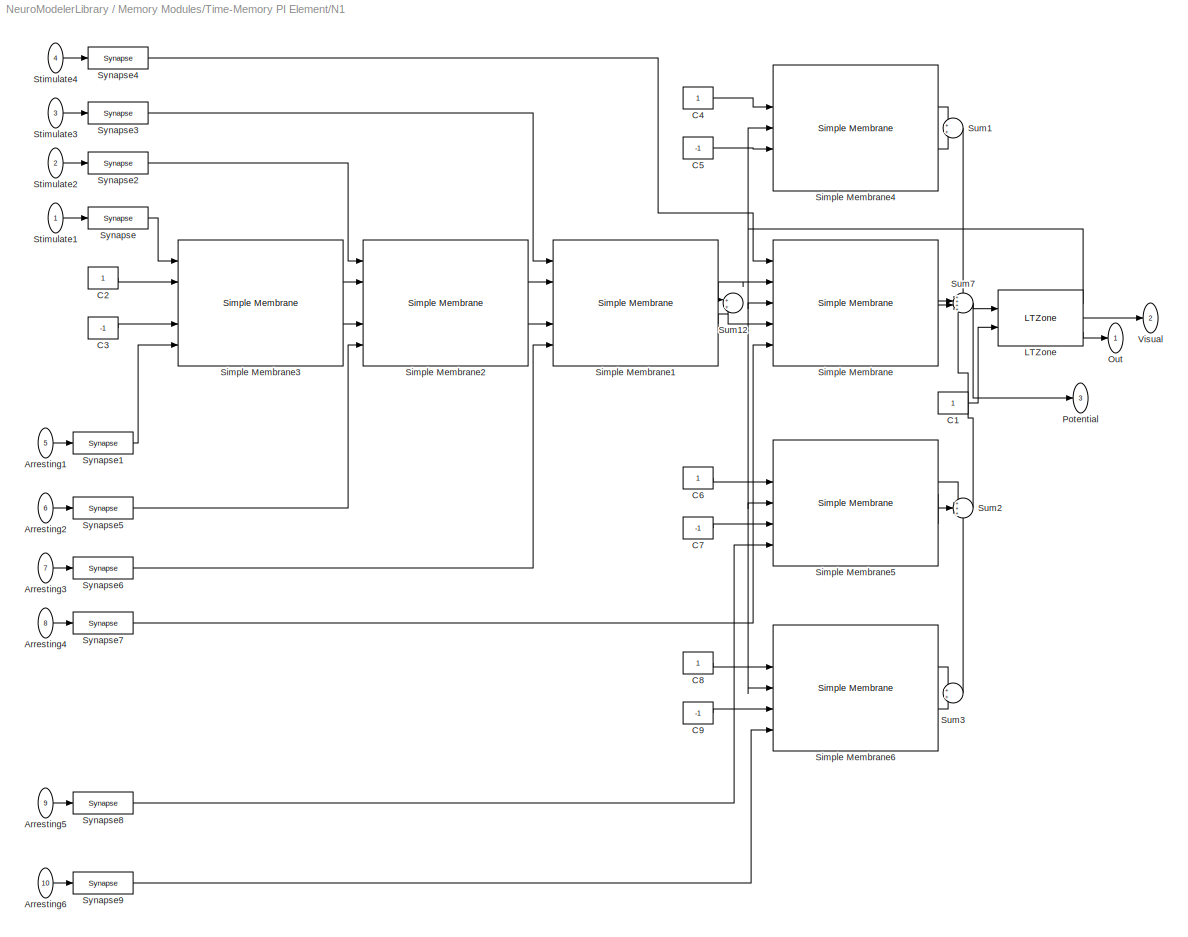
BLOCK [SubSystem] Memory Modules/Time-Memory PI Element/N1
  AncestorBlock = NeuroModelerLibrary/Sized Cells/Size4 Cell
  Ports = [10, 3]
  RequestExecContextInheritance = off
  SID = 787
BLOCK [Inport] Memory Modules/Time-Memory PI Element/N1/Arresting1
  NameLocation = top
  Port = 5
  SID = 787:641
BLOCK [Inport] Memory Modules/Time-Memory PI Element/N1/Arresting2
  NameLocation = top
  Port = 6
  SID = 787:642
BLOCK [Inport] Memory Modules/Time-Memory PI Element/N1/Arresting3
  NameLocation = top
  Port = 7
  SID = 787:643
BLOCK [Inport] Memory Modules/Time-Memory PI Element/N1/Arresting4
  NameLocation = top
  Port = 8
  SID = 787:644
BLOCK [Inport] Memory Modules/Time-Memory PI Element/N1/Arresting5
  NameLocation = top
  Port = 9
  SID = 787:790
BLOCK [Inport] Memory Modules/Time-Memory PI Element/N1/Arresting6
  NameLocation = top
  Port = 10
  SID = 787:792
BLOCK [Constant] Memory Modules/Time-Memory PI Element/N1/C1
  NameLocation = top
  SID = 787:645
BLOCK [Constant] Memory Modules/Time-Memory PI Element/N1/C2
  SID = 787:646
BLOCK [Constant] Memory Modules/Time-Memory PI Element/N1/C3
  SID = 787:647
  Value = -1
BLOCK [Constant] Memory Modules/Time-Memory PI Element/N1/C4
  SID = 787:648
BLOCK [Constant] Memory Modules/Time-Memory PI Element/N1/C5
  SID = 787:649
  Value = -1
BLOCK [Constant] Memory Modules/Time-Memory PI Element/N1/C6
  SID = 787:650
BLOCK [Constant] Memory Modules/Time-Memory PI Element/N1/C7
  SID = 787:651
  Value = -1
BLOCK [Constant] Memory Modules/Time-Memory PI Element/N1/C8
  SID = 787:652
BLOCK [Constant] Memory Modules/Time-Memory PI Element/N1/C9
  SID = 787:653
  Value = -1
BLOCK [Reference] Memory Modules/Time-Memory PI Element/N1/LTZone  REF=$bdroot/Neuron Elements/LTZone
  FB = 0.9
  IT = 0.005
  NM = 4
  Ports = [2, 3]
  SID = 787:654
  SourceBlock = $bdroot/Neuron Elements/LTZone
  SourceType = Ion pump
  T = 0.001
BLOCK [Outport] Memory Modules/Time-Memory PI Element/N1/Out
  SID = 787:675
  VectorParamsAs1DForOutWhenUnconnected = off
BLOCK [Outport] Memory Modules/Time-Memory PI Element/N1/Potential
  Port = 3
  SID = 787:677
  VectorParamsAs1DForOutWhenUnconnected = off
BLOCK [Reference] Memory Modules/Time-Memory PI Element/N1/Simple Membrane  REF=$bdroot/Neuron Elements/Simple Membrane
  ACm = 1e-9
  ARFm = 1e8
  ARm = 1e7
  ECm = 1e-9
  ERFm = 1e8
  ERm = 1e7
  Ports = [5, 2]
  SID = 787:655
  SourceBlock = $bdroot/Neuron Elements/Simple Membrane
BLOCK [Reference] Memory Modules/Time-Memory PI Element/N1/Simple Membrane1  REF=$bdroot/Neuron Elements/Simple Membrane
  ACm = 1e-9
  ARFm = 1e8
  ARm = 1e7
  ECm = 1e-9
  ERFm = 1e8
  ERm = 1e7
  Ports = [5, 2]
  SID = 787:656
  SourceBlock = $bdroot/Neuron Elements/Simple Membrane
BLOCK [Reference] Memory Modules/Time-Memory PI Element/N1/Simple Membrane2  REF=$bdroot/Neuron Elements/Simple Membrane
  ACm = 1e-9
  ARFm = 1e8
  ARm = 1e7
  ECm = 1e-9
  ERFm = 1e8
  ERm = 1e7
  Ports = [5, 2]
  SID = 787:657
  SourceBlock = $bdroot/Neuron Elements/Simple Membrane
BLOCK [Reference] Memory Modules/Time-Memory PI Element/N1/Simple Membrane3  REF=$bdroot/Neuron Elements/Simple Membrane
  ACm = 1e-9
  ARFm = 1e8
  ARm = 1e7
  ECm = 1e-9
  ERFm = 1e8
  ERm = 1e7
  Ports = [5, 2]
  SID = 787:658
  SourceBlock = $bdroot/Neuron Elements/Simple Membrane
BLOCK [Reference] Memory Modules/Time-Memory PI Element/N1/Simple Membrane4  REF=$bdroot/Neuron Elements/Simple Membrane
  ACm = 1e-9
  ARFm = 1e8
  ARm = 1e7
  ECm = 1e-9
  ERFm = 1e8
  ERm = 1e7
  Ports = [5, 2]
  SID = 787:659
  SourceBlock = $bdroot/Neuron Elements/Simple Membrane
BLOCK [Reference] Memory Modules/Time-Memory PI Element/N1/Simple Membrane5  REF=$bdroot/Neuron Elements/Simple Membrane
  ACm = 1e-9
  ARFm = 1e8
  ARm = 1e7
  ECm = 1e-9
  ERFm = 1e8
  ERm = 1e7
  Ports = [5, 2]
  SID = 787:660
  SourceBlock = $bdroot/Neuron Elements/Simple Membrane
BLOCK [Reference] Memory Modules/Time-Memory PI Element/N1/Simple Membrane6  REF=$bdroot/Neuron Elements/Simple Membrane
  ACm = 1e-9
  ARFm = 1e8
  ARm = 1e7
  ECm = 1e-9
  ERFm = 1e8
  ERm = 1e7
  Ports = [5, 2]
  SID = 787:661
  SourceBlock = $bdroot/Neuron Elements/Simple Membrane
BLOCK [Inport] Memory Modules/Time-Memory PI Element/N1/Stimulate1
  NameLocation = top
  SID = 787:637
BLOCK [Inport] Memory Modules/Time-Memory PI Element/N1/Stimulate2
  NameLocation = top
  Port = 2
  SID = 787:638
BLOCK [Inport] Memory Modules/Time-Memory PI Element/N1/Stimulate3
  NameLocation = top
  Port = 3
  SID = 787:639
BLOCK [Inport] Memory Modules/Time-Memory PI Element/N1/Stimulate4
  NameLocation = top
  Port = 4
  SID = 787:640
BLOCK [Sum] Memory Modules/Time-Memory PI Element/N1/Sum1
  InputSameDT = on
  OutDataTypeStr = Inherit: Same as first input
  Ports = [2, 1]
  SID = 787:662
  SaturateOnIntegerOverflow = on
BLOCK [Sum] Memory Modules/Time-Memory PI Element/N1/Sum12
  InputSameDT = on
  OutDataTypeStr = Inherit: Same as first input
  Ports = [2, 1]
  SID = 787:663
  SaturateOnIntegerOverflow = on
BLOCK [Sum] Memory Modules/Time-Memory PI Element/N1/Sum2
  InputSameDT = on
  Inputs = +++
  OutDataTypeStr = Inherit: Same as first input
  Ports = [3, 1]
  SID = 787:664
  SaturateOnIntegerOverflow = on
BLOCK [Sum] Memory Modules/Time-Memory PI Element/N1/Sum3
  InputSameDT = on
  OutDataTypeStr = Inherit: Same as first input
  Ports = [2, 1]
  SID = 787:665
  SaturateOnIntegerOverflow = on
BLOCK [Sum] Memory Modules/Time-Memory PI Element/N1/Sum7
  InputSameDT = on
  Inputs = ++++
  OutDataTypeStr = Inherit: Same as first input
  Ports = [4, 1]
  SID = 787:666
  SaturateOnIntegerOverflow = on
BLOCK [Reference] Memory Modules/Time-Memory PI Element/N1/Synapse  REF=$bdroot/Neuron Elements/Synapse
  DecompositionTC = 0.01
  Ports = [1, 1]
  SID = 787:667
  SecretionTC = 0.001
  SourceBlock = $bdroot/Neuron Elements/Synapse
  gamma = 1e8
  ksi = 2
BLOCK [Reference] Memory Modules/Time-Memory PI Element/N1/Synapse1  REF=$bdroot/Neuron Elements/Synapse
  DecompositionTC = 0.01
  Ports = [1, 1]
  SID = 787:668
  SecretionTC = 0.001
  SourceBlock = $bdroot/Neuron Elements/Synapse
  gamma = 1e8
  ksi = 2
BLOCK [Reference] Memory Modules/Time-Memory PI Element/N1/Synapse2  REF=$bdroot/Neuron Elements/Synapse
  DecompositionTC = 0.01
  Ports = [1, 1]
  SID = 787:669
  SecretionTC = 0.001
  SourceBlock = $bdroot/Neuron Elements/Synapse
  gamma = 1e8
  ksi = 2
BLOCK [Reference] Memory Modules/Time-Memory PI Element/N1/Synapse3  REF=$bdroot/Neuron Elements/Synapse
  DecompositionTC = 0.01
  Ports = [1, 1]
  SID = 787:670
  SecretionTC = 0.001
  SourceBlock = $bdroot/Neuron Elements/Synapse
  gamma = 1e8
  ksi = 2
BLOCK [Reference] Memory Modules/Time-Memory PI Element/N1/Synapse4  REF=$bdroot/Neuron Elements/Synapse
  DecompositionTC = 0.01
  Ports = [1, 1]
  SID = 787:671
  SecretionTC = 0.001
  SourceBlock = $bdroot/Neuron Elements/Synapse
  gamma = 1e8
  ksi = 2
BLOCK [Reference] Memory Modules/Time-Memory PI Element/N1/Synapse5  REF=$bdroot/Neuron Elements/Synapse
  DecompositionTC = 0.01
  Ports = [1, 1]
  SID = 787:672
  SecretionTC = 0.001
  SourceBlock = $bdroot/Neuron Elements/Synapse
  gamma = 1e8
  ksi = 2
BLOCK [Reference] Memory Modules/Time-Memory PI Element/N1/Synapse6  REF=$bdroot/Neuron Elements/Synapse
  DecompositionTC = 0.01
  Ports = [1, 1]
  SID = 787:673
  SecretionTC = 0.001
  SourceBlock = $bdroot/Neuron Elements/Synapse
  gamma = 1e8
  ksi = 2
BLOCK [Reference] Memory Modules/Time-Memory PI Element/N1/Synapse7  REF=$bdroot/Neuron Elements/Synapse
  DecompositionTC = 0.01
  Ports = [1, 1]
  SID = 787:674
  SecretionTC = 0.001
  SourceBlock = $bdroot/Neuron Elements/Synapse
  gamma = 1e8
  ksi = 2
BLOCK [Reference] Memory Modules/Time-Memory PI Element/N1/Synapse8  REF=$bdroot/Neuron Elements/Synapse
  DecompositionTC = 0.01
  Ports = [1, 1]
  SID = 787:791
  SecretionTC = 0.001
  SourceBlock = $bdroot/Neuron Elements/Synapse
  gamma = 1e8
  ksi = 2
BLOCK [Reference] Memory Modules/Time-Memory PI Element/N1/Synapse9  REF=$bdroot/Neuron Elements/Synapse
  DecompositionTC = 0.01
  Ports = [1, 1]
  SID = 787:793
  SecretionTC = 0.001
  SourceBlock = $bdroot/Neuron Elements/Synapse
  gamma = 1e8
  ksi = 2
BLOCK [Outport] Memory Modules/Time-Memory PI Element/N1/Visual
  Port = 2
  SID = 787:676
  VectorParamsAs1DForOutWhenUnconnected = off
BLOCK [Reference] Memory Modules/Time-Memory PI Element/N2  REF=$bdroot/Sized Cells/Size4 Cell
  Ports = [8, 3]
  SID = 788
  SourceBlock = $bdroot/Sized Cells/Size4 Cell
  SourceType = SubSystem
BLOCK [Inport] Memory Modules/Time-Memory PI Element/Prev Elem\nActivate
  Port = 2
  SID = 785
BLOCK [Inport] Memory Modules/Time-Memory PI Element/Top-Level \nActivate
  SID = 784
BLOCK [SubSystem] Multistate Cells
  Ports = []
  RequestExecContextInheritance = off
  SID = 67
BLOCK [SubSystem] Multistate Cells/Multistate Membrane Cell
  NameLocation = top
  Ports = [2, 3]
  RequestExecContextInheritance = off
  SID = 68
BLOCK [Inport] Multistate Cells/Multistate Membrane Cell/Arresting
  NameLocation = top
  Port = 2
  SID = 70
BLOCK [Constant] Multistate Cells/Multistate Membrane Cell/C1
  NameLocation = top
  SID = 71
BLOCK [Constant] Multistate Cells/Multistate Membrane Cell/C2
  SID = 72
BLOCK [Constant] Multistate Cells/Multistate Membrane Cell/C3
  SID = 73
  Value = -1
BLOCK [Reference] Multistate Cells/Multistate Membrane Cell/LTZone  REF=$bdroot/Neuron Elements/LTZone
  FB = 1.7
  IT = 0.005
  NM = 1
  Ports = [2, 3]
  RTWMemSecDataConstants = Inherit from model
  RTWMemSecDataInternal = Inherit from model
  RTWMemSecDataParameters = Inherit from model
  RTWMemSecFuncExecute = Inherit from model
  RTWMemSecFuncInitTerm = Inherit from model
  SID = 74
  SourceBlock = $bdroot/Neuron Elements/LTZone
  SourceType = Ion pump
  T = 0.001
BLOCK [Reference] Multistate Cells/Multistate Membrane Cell/Multistate Membrane  REF=$bdroot/Neuron Elements/Multistate Membrane
  AllowZeroVariantControls = off
  AutoFrameSizeCalculation = off
  Latency = 0
  Ports = [5, 2]
  PropagateVariantConditions = off
  RTWMemSecDataConstants = Inherit from model
  RTWMemSecDataInternal = Inherit from model
  RTWMemSecDataParameters = Inherit from model
  RTWMemSecFuncExecute = Inherit from model
  RTWMemSecFuncInitTerm = Inherit from model
  SID = 75
  ShowPortLabels = FromPortIcon
  SourceBlock = $bdroot/Neuron Elements/Multistate Membrane
  SourceType = SubSystem
  SystemSampleTime = -1
  VariantActivationTime = update diagram
BLOCK [Outport] Multistate Cells/Multistate Membrane Cell/Out
  SID = 81
  VectorParamsAs1DForOutWhenUnconnected = off
BLOCK [Outport] Multistate Cells/Multistate Membrane Cell/Potential
  Port = 3
  SID = 83
  VectorParamsAs1DForOutWhenUnconnected = off
BLOCK [Reference] Multistate Cells/Multistate Membrane Cell/Simple Membrane  REF=$bdroot/Neuron Elements/Simple Membrane
  ACm = 1e-9
  ARFm = 1e8
  ARm = 1e7
  ECm = 1e-9
  ERFm = 1e8
  ERm = 1e7
  Ports = [5, 2]
  RTWMemSecDataConstants = Inherit from model
  RTWMemSecDataInternal = Inherit from model
  RTWMemSecDataParameters = Inherit from model
  RTWMemSecFuncExecute = Inherit from model
  RTWMemSecFuncInitTerm = Inherit from model
  SID = 76
  SourceBlock = $bdroot/Neuron Elements/Simple Membrane
BLOCK [Inport] Multistate Cells/Multistate Membrane Cell/Stimulate
  NameLocation = top
  SID = 69
BLOCK [Sum] Multistate Cells/Multistate Membrane Cell/Sum12
  InputSameDT = on
  OutDataTypeStr = Inherit: Same as first input
  Ports = [2, 1]
  SID = 77
  SaturateOnIntegerOverflow = on
BLOCK [Sum] Multistate Cells/Multistate Membrane Cell/Sum7
  InputSameDT = on
  OutDataTypeStr = Inherit: Same as first input
  Ports = [2, 1]
  SID = 78
  SaturateOnIntegerOverflow = on
BLOCK [Reference] Multistate Cells/Multistate Membrane Cell/Synapse  REF=$bdroot/Neuron Elements/Synapse
  DecompositionTC = 0.01
  Ports = [1, 1]
  RTWMemSecDataConstants = Inherit from model
  RTWMemSecDataInternal = Inherit from model
  RTWMemSecDataParameters = Inherit from model
  RTWMemSecFuncExecute = Inherit from model
  RTWMemSecFuncInitTerm = Inherit from model
  SID = 79
  SecretionTC = 0.001
  SourceBlock = $bdroot/Neuron Elements/Synapse
  UseKsi = on
  gamma = 1e8
  ksi = 2
BLOCK [Reference] Multistate Cells/Multistate Membrane Cell/Synapse1  REF=$bdroot/Neuron Elements/Synapse
  DecompositionTC = 0.01
  Ports = [1, 1]
  RTWMemSecDataConstants = Inherit from model
  RTWMemSecDataInternal = Inherit from model
  RTWMemSecDataParameters = Inherit from model
  RTWMemSecFuncExecute = Inherit from model
  RTWMemSecFuncInitTerm = Inherit from model
  SID = 80
  SecretionTC = 0.001
  SourceBlock = $bdroot/Neuron Elements/Synapse
  UseKsi = on
  gamma = 1e8
  ksi = 2
BLOCK [Outport] Multistate Cells/Multistate Membrane Cell/Visual
  Port = 2
  SID = 82
  VectorParamsAs1DForOutWhenUnconnected = off
BLOCK [SubSystem] Neuron Elements
  Ports = []
  RequestExecContextInheritance = off
  SID = 84
BLOCK [SubSystem] Neuron Elements/CSNM Compartment
  Ports = [5, 2]
  RequestExecContextInheritance = off
  SID = 1170
BLOCK [Constant] Neuron Elements/CSNM Compartment/ACm
  SID = 1176
  Value = ACm
BLOCK [Constant] Neuron Elements/CSNM Compartment/ARm
  SID = 1177
  Value = ARm
BLOCK [Constant] Neuron Elements/CSNM Compartment/ARm1
  SID = 1178
  Value = ARFm
BLOCK [Outport] Neuron Elements/CSNM Compartment/Arresting Out
  Port = 2
  SID = 1187
  VectorParamsAs1DForOutWhenUnconnected = off
BLOCK [Inport] Neuron Elements/CSNM Compartment/Arresting Synapse
  Port = 5
  SID = 1175
BLOCK [Inport] Neuron Elements/CSNM Compartment/Arresting input
  Port = 4
  SID = 1174
BLOCK [Constant] Neuron Elements/CSNM Compartment/ECm
  SID = 1179
  Value = ECm
BLOCK [Constant] Neuron Elements/CSNM Compartment/ERm
  SID = 1180
  Value = ERm
BLOCK [Constant] Neuron Elements/CSNM Compartment/ERm1
  SID = 1181
  Value = ERFm
BLOCK [Outport] Neuron Elements/CSNM Compartment/Excitatory Out
  SID = 1186
  VectorParamsAs1DForOutWhenUnconnected = off
BLOCK [Inport] Neuron Elements/CSNM Compartment/Excitatory Synapse
  SID = 1171
BLOCK [Inport] Neuron Elements/CSNM Compartment/Excitatory input
  Port = 2
  SID = 1172
BLOCK [Inport] Neuron Elements/CSNM Compartment/Feedback
  Port = 3
  SID = 1173
BLOCK [Gain] Neuron Elements/CSNM Compartment/Gain1
  Gain = sign
  SID = 1182
BLOCK [Gain] Neuron Elements/CSNM Compartment/Gain11
  Gain = 1/U0
  SID = 1183
BLOCK [Reference] Neuron Elements/CSNM Compartment/Ion System  REF=$bdroot/Neuron Elements/Ion System
  AllowZeroVariantControls = off
  AutoFrameSizeCalculation = off
  Latency = 0
  Ports = [6, 1]
  PropagateVariantConditions = off
  RTWMemSecDataConstants = Inherit from model
  RTWMemSecDataInternal = Inherit from model
  RTWMemSecDataParameters = Inherit from model
  RTWMemSecFuncExecute = Inherit from model
  RTWMemSecFuncInitTerm = Inherit from model
  SID = 1208
  ShowPortLabels = FromPortIcon
  SourceBlock = $bdroot/Neuron Elements/Ion System
  SourceType = SubSystem
  SystemSampleTime = -1
  VariantActivationTime = update diagram
BLOCK [Reference] Neuron Elements/CSNM Compartment/Ion System1  REF=$bdroot/Neuron Elements/Ion System
  AllowZeroVariantControls = off
  AutoFrameSizeCalculation = off
  Latency = 0
  Ports = [6, 1]
  PropagateVariantConditions = off
  RTWMemSecDataConstants = Inherit from model
  RTWMemSecDataInternal = Inherit from model
  RTWMemSecDataParameters = Inherit from model
  RTWMemSecFuncExecute = Inherit from model
  RTWMemSecFuncInitTerm = Inherit from model
  SID = 1209
  ShowPortLabels = FromPortIcon
  SourceBlock = $bdroot/Neuron Elements/Ion System
  SourceType = SubSystem
  SystemSampleTime = -1
  VariantActivationTime = update diagram
BLOCK [SubSystem] Neuron Elements/CSNM LTZone
  Ports = [2, 4]
  RequestExecContextInheritance = off
  SID = 1188
BLOCK [Constant] Neuron Elements/CSNM LTZone/C5
  SID = 1191
  Value = 0
BLOCK [Inport] Neuron Elements/CSNM LTZone/E
  Port = 2
  SID = 1190
BLOCK [Gain] Neuron Elements/CSNM LTZone/FB
  Gain = FB
  OutDataTypeStr = Inherit: Same as input
  ParamDataTypeStr = Inherit: Same as input
  SID = 1192
BLOCK [Outport] Neuron Elements/CSNM LTZone/Feedback
  InitialOutput = 0
  Port = 3
  SID = 1199
  VectorParamsAs1DForOutWhenUnconnected = off
BLOCK [Gain] Neuron Elements/CSNM LTZone/Inputs
  Gain = 1/NM
  OutDataTypeStr = Inherit: Same as input
  ParamDataTypeStr = Inherit: Same as input
  SID = 1193
BLOCK [Outport] Neuron Elements/CSNM LTZone/Out
  InitialOutput = 0
  SID = 1197
  VectorParamsAs1DForOutWhenUnconnected = off
BLOCK [Outport] Neuron Elements/CSNM LTZone/OutPotential
  InitialOutput = 0
  Port = 2
  SID = 1198
  VectorParamsAs1DForOutWhenUnconnected = off
BLOCK [Inport] Neuron Elements/CSNM LTZone/Potential
  SID = 1189
BLOCK [Relay] Neuron Elements/CSNM LTZone/Relay
  OffSwitchValue = switchOff
  OnSwitchValue = T
  SID = 1194
BLOCK [Switch] Neuron Elements/CSNM LTZone/S2
  SID = 1195
  Threshold = 1
BLOCK [Switch] Neuron Elements/CSNM LTZone/S3
  SID = 1196
  Threshold = 1
BLOCK [Outport] Neuron Elements/CSNM LTZone/Visual
  InitialOutput = 0
  Port = 4
  SID = 1200
  VectorParamsAs1DForOutWhenUnconnected = off
BLOCK [SubSystem] Neuron Elements/CSNM Synapse
  Ports = [1, 1]
  RequestExecContextInheritance = off
  SID = 1146
BLOCK [SubSystem] Neuron Elements/CSNM Synapse-D
  Ports = [1, 1]
  RequestExecContextInheritance = off
  SID = 1703
BLOCK [Clock] Neuron Elements/CSNM Synapse-D/Clock1
  SID = 1705
BLOCK [Constant] Neuron Elements/CSNM Synapse-D/Constant
  SID = 1706
BLOCK [Constant] Neuron Elements/CSNM Synapse-D/Constant1
  SID = 1707
  Value = 0
BLOCK [Constant] Neuron Elements/CSNM Synapse-D/Constant2
  SID = 1708
  Value = UseKsi
BLOCK [Constant] Neuron Elements/CSNM Synapse-D/Constant3
  SID = 1709
  Value = -1
BLOCK [Constant] Neuron Elements/CSNM Synapse-D/Constant4
  SID = 1710
  Value = DecompositionTC
BLOCK [Constant] Neuron Elements/CSNM Synapse-D/Constant5
  SID = 1711
  Value = SecretionTC
BLOCK [Constant] Neuron Elements/CSNM Synapse-D/Constant6
  SID = 1712
  Value = sign
BLOCK [Constant] Neuron Elements/CSNM Synapse-D/Constant7
  SID = 1713
  Value = 0
BLOCK [Constant] Neuron Elements/CSNM Synapse-D/Constant8
  SID = 1714
BLOCK [Fcn] Neuron Elements/CSNM Synapse-D/Fcn
  Expr = u*u*ksi
  SID = 1715
BLOCK [Gain] Neuron Elements/CSNM Synapse-D/Gain
  Gain = 4*ksi/Rs
  OutDataTypeStr = Inherit: Same as input
  ParamDataTypeStr = Inherit: Same as input
  SID = 1716
  SaturateOnIntegerOverflow = on
BLOCK [Gain] Neuron Elements/CSNM Synapse-D/Gain1
  OutDataTypeStr = Inherit: Same as input
  ParamDataTypeStr = Inherit: Same as input
  SID = 1717
  SaturateOnIntegerOverflow = on
BLOCK [Gain] Neuron Elements/CSNM Synapse-D/Gain2
  Gain = 1/Rs
  OutDataTypeStr = Inherit: Same as input
  ParamDataTypeStr = Inherit: Same as input
  SID = 1718
  SaturateOnIntegerOverflow = on
BLOCK [Gain] Neuron Elements/CSNM Synapse-D/Gain4
  Gain = Weight
  SID = 1719
BLOCK [Gain] Neuron Elements/CSNM Synapse-D/Gain9
  Gain = U0
  SID = 1720
BLOCK [Inport] Neuron Elements/CSNM Synapse-D/In1
  SID = 1704
BLOCK [Reference] Neuron Elements/CSNM Synapse-D/Inertial Link  REF=$bdroot/Support/Inertial Link
  AllowZeroVariantControls = off
  AutoFrameSizeCalculation = off
  Latency = 0
  Ports = [2, 1]
  PropagateVariantConditions = off
  RTWMemSecDataConstants = Inherit from model
  RTWMemSecDataInternal = Inherit from model
  RTWMemSecDataParameters = Inherit from model
  RTWMemSecFuncExecute = Inherit from model
  RTWMemSecFuncInitTerm = Inherit from model
  SID = 1721
  ShowPortLabels = FromPortIcon
  SourceBlock = $bdroot/Support/Inertial Link
  SourceType = SubSystem
  SystemSampleTime = -1
  VariantActivationTime = update diagram
BLOCK [Outport] Neuron Elements/CSNM Synapse-D/Out1
  SID = 1734
  VectorParamsAs1DForOutWhenUnconnected = off
BLOCK [Product] Neuron Elements/CSNM Synapse-D/Product
  Ports = [2, 1]
  SID = 1722
BLOCK [Sum] Neuron Elements/CSNM Synapse-D/Sum
  Inputs = +-
  Ports = [2, 1]
  SID = 1723
  SaturateOnIntegerOverflow = on
BLOCK [Sum] Neuron Elements/CSNM Synapse-D/Sum1
  Inputs = -+|
  Ports = [2, 1]
  SID = 1724
BLOCK [Switch] Neuron Elements/CSNM Synapse-D/Switch
  InputSameDT = off
  SID = 1725
  SaturateOnIntegerOverflow = off
  Threshold = 1
BLOCK [Switch] Neuron Elements/CSNM Synapse-D/Switch1
  InputSameDT = off
  SID = 1726
  SaturateOnIntegerOverflow = off
BLOCK [Switch] Neuron Elements/CSNM Synapse-D/Switch2
  InputSameDT = off
  SID = 1727
  SaturateOnIntegerOverflow = off
  Threshold = 1
BLOCK [Switch] Neuron Elements/CSNM Synapse-D/Switch3
  InputSameDT = off
  SID = 1728
  SaturateOnIntegerOverflow = off
  Threshold = 1
BLOCK [Switch] Neuron Elements/CSNM Synapse-D/Switch4
  SID = 1729
  Threshold = 0.001
BLOCK [SubSystem] Neuron Elements/CSNM Synapse-D/Triggered\nSubsystem
  Ports = [1, 1, 0, 1]
  RequestExecContextInheritance = off
  SID = 1730
  TreatAsAtomicUnit = on
BLOCK [Inport] Neuron Elements/CSNM Synapse-D/Triggered\nSubsystem/In1
  SID = 1731
BLOCK [Outport] Neuron Elements/CSNM Synapse-D/Triggered\nSubsystem/Out1
  SID = 1733
BLOCK [TriggerPort] Neuron Elements/CSNM Synapse-D/Triggered\nSubsystem/Trigger
  Ports = []
  SID = 1732
  StatesWhenEnabling = held
  VariantControl = Variant
BLOCK [Constant] Neuron Elements/CSNM Synapse/Constant
  SID = 1148
BLOCK [Constant] Neuron Elements/CSNM Synapse/Constant1
  SID = 1149
  Value = 0
BLOCK [Constant] Neuron Elements/CSNM Synapse/Constant2
  SID = 1150
  Value = UseKsi
BLOCK [Constant] Neuron Elements/CSNM Synapse/Constant3
  SID = 1151
  Value = -1
BLOCK [Constant] Neuron Elements/CSNM Synapse/Constant4
  SID = 1152
  Value = DecompositionTC
BLOCK [Constant] Neuron Elements/CSNM Synapse/Constant5
  SID = 1153
  Value = SecretionTC
BLOCK [Constant] Neuron Elements/CSNM Synapse/Constant6
  SID = 1154
  Value = sign
BLOCK [Fcn] Neuron Elements/CSNM Synapse/Fcn
  Expr = u*u*ksi
  SID = 1155
BLOCK [Gain] Neuron Elements/CSNM Synapse/Gain
  Gain = 4*ksi/Rs
  OutDataTypeStr = Inherit: Same as input
  ParamDataTypeStr = Inherit: Same as input
  SID = 1156
  SaturateOnIntegerOverflow = on
BLOCK [Gain] Neuron Elements/CSNM Synapse/Gain1
  OutDataTypeStr = Inherit: Same as input
  ParamDataTypeStr = Inherit: Same as input
  SID = 1157
  SaturateOnIntegerOverflow = on
BLOCK [Gain] Neuron Elements/CSNM Synapse/Gain2
  Gain = 1/Rs
  OutDataTypeStr = Inherit: Same as input
  ParamDataTypeStr = Inherit: Same as input
  SID = 1158
  SaturateOnIntegerOverflow = on
BLOCK [Gain] Neuron Elements/CSNM Synapse/Gain4
  Gain = Weight
  SID = 1160
BLOCK [Gain] Neuron Elements/CSNM Synapse/Gain9
  Gain = U0
  SID = 1161
BLOCK [Reference] Neuron Elements/CSNM Synapse/Inertial Link  REF=$bdroot/Support/Inertial Link
  AllowZeroVariantControls = off
  AutoFrameSizeCalculation = off
  Latency = 0
  Ports = [2, 1]
  PropagateVariantConditions = off
  RTWMemSecDataConstants = Inherit from model
  RTWMemSecDataInternal = Inherit from model
  RTWMemSecDataParameters = Inherit from model
  RTWMemSecFuncExecute = Inherit from model
  RTWMemSecFuncInitTerm = Inherit from model
  SID = 1162
  ShowPortLabels = FromPortIcon
  SourceBlock = $bdroot/Support/Inertial Link
  SourceType = SubSystem
  SystemSampleTime = -1
  VariantActivationTime = update diagram
BLOCK [Product] Neuron Elements/CSNM Synapse/Product
  Ports = [2, 1]
  SID = 1163
BLOCK [Sum] Neuron Elements/CSNM Synapse/Sum
  Inputs = +-
  Ports = [2, 1]
  SID = 1164
  SaturateOnIntegerOverflow = on
BLOCK [Switch] Neuron Elements/CSNM Synapse/Switch
  InputSameDT = off
  SID = 1165
  SaturateOnIntegerOverflow = off
  Threshold = 1
BLOCK [Switch] Neuron Elements/CSNM Synapse/Switch1
  InputSameDT = off
  SID = 1166
  SaturateOnIntegerOverflow = off
BLOCK [Switch] Neuron Elements/CSNM Synapse/Switch2
  InputSameDT = off
  SID = 1167
  SaturateOnIntegerOverflow = off
  Threshold = 1
BLOCK [Switch] Neuron Elements/CSNM Synapse/Switch3
  InputSameDT = off
  SID = 1168
  SaturateOnIntegerOverflow = off
  Threshold = 1
BLOCK [Outport] Neuron Elements/CSNM Synapse/i_syn
  SID = 1169
  VectorParamsAs1DForOutWhenUnconnected = off
BLOCK [Inport] Neuron Elements/CSNM Synapse/pulse input
  SID = 1147
BLOCK [SubSystem] Neuron Elements/ContLTZone
  Ports = [1, 1]
  RequestExecContextInheritance = off
  SID = 749
BLOCK [Reference] Neuron Elements/ContLTZone/Compare\nTo Zero2  REF=simulink/Logic and Bit\nOperations/Compare\nTo Zero
  OutDataTypeStr = uint8
  Ports = [1, 1]
  RTWMemSecDataConstants = Inherit from model
  RTWMemSecDataInternal = Inherit from model
  RTWMemSecDataParameters = Inherit from model
  RTWMemSecFuncExecute = Inherit from model
  RTWMemSecFuncInitTerm = Inherit from model
  SID = 751
  SourceBlock = simulink/Logic and Bit\nOperations/Compare\nTo Zero
  SourceProductBaseCode = SL
  SourceType = Compare To Zero
  ZeroCross = off
  relop = >=
BLOCK [Inport] Neuron Elements/ContLTZone/In1
  SID = 750
BLOCK [Outport] Neuron Elements/ContLTZone/Out1
  SID = 755
  VectorParamsAs1DForOutWhenUnconnected = off
BLOCK [Product] Neuron Elements/ContLTZone/Product2
  Ports = [2, 1]
  RndMeth = Zero
  SID = 752
BLOCK [Signum] Neuron Elements/ContLTZone/Sign2
  SID = 753
BLOCK [Reference] Neuron Elements/ContLTZone/tansig  REF=neural/Transfer Functions/tansig
  Ports = [1, 1]
  RTWMemSecDataConstants = Inherit from model
  RTWMemSecDataInternal = Inherit from model
  RTWMemSecDataParameters = Inherit from model
  RTWMemSecFuncExecute = Inherit from model
  RTWMemSecFuncInitTerm = Inherit from model
  SID = 754
  SourceBlock = neural/Transfer Functions/tansig
  SourceProductBaseCode = NN
  SourceType = TANSIG
BLOCK [SubSystem] Neuron Elements/IaF Compartment
  Ports = [3, 1]
  RequestExecContextInheritance = off
  SID = 1847
BLOCK [Constant] Neuron Elements/IaF Compartment/Constant1
  SID = 1851
  Value = V_reset
BLOCK [Constant] Neuron Elements/IaF Compartment/Constant10
  SID = 1852
  Value = tau_m
BLOCK [Constant] Neuron Elements/IaF Compartment/Constant12
  SID = 1853
  Value = I_const
BLOCK [Gain] Neuron Elements/IaF Compartment/Gain3
  Gain = tau_m/Cm
  SID = 1854
BLOCK [Reference] Neuron Elements/IaF Compartment/Inertial Link With Reset1  REF=$bdroot/Support/Inertial Link With Reset
  AllowZeroVariantControls = off
  AutoFrameSizeCalculation = off
  Latency = 0
  Ports = [4, 2]
  PropagateVariantConditions = off
  RTWMemSecDataConstants = Inherit from model
  RTWMemSecDataInternal = Inherit from model
  RTWMemSecDataParameters = Inherit from model
  RTWMemSecFuncExecute = Inherit from model
  RTWMemSecFuncInitTerm = Inherit from model
  SID = 1855
  ShowPortLabels = FromPortIcon
  SourceBlock = $bdroot/Support/Inertial Link With Reset
  SourceType = SubSystem
  SystemSampleTime = -1
  VariantActivationTime = update diagram
BLOCK [Outport] Neuron Elements/IaF Compartment/Out1
  SID = 1858
BLOCK [Inport] Neuron Elements/IaF Compartment/Reset Signal
  Port = 3
  SID = 1850
BLOCK [Inport] Neuron Elements/IaF Compartment/Resting Potential
  Port = 2
  SID = 1849
BLOCK [Sum] Neuron Elements/IaF Compartment/Sum1
  Ports = [2, 1]
  SID = 1856
BLOCK [Sum] Neuron Elements/IaF Compartment/Sum3
  Ports = [2, 1]
  SID = 1857
BLOCK [Inport] Neuron Elements/IaF Compartment/Synapses
  SID = 1848
BLOCK [SubSystem] Neuron Elements/IaF LTZone
  Ports = [1, 2]
  RequestExecContextInheritance = off
  SID = 1859
BLOCK [Constant] Neuron Elements/IaF LTZone/Constant2
  SID = 1861
BLOCK [Constant] Neuron Elements/IaF LTZone/Constant6
  SID = 1862
  Value = 0
BLOCK [Outport] Neuron Elements/IaF LTZone/Out
  SID = 1864
BLOCK [Outport] Neuron Elements/IaF LTZone/Out Potential
  Port = 2
  SID = 1865
BLOCK [Inport] Neuron Elements/IaF LTZone/Potential
  SID = 1860
BLOCK [Switch] Neuron Elements/IaF LTZone/S1
  SID = 1863
  Threshold = V_th
BLOCK [SubSystem] Neuron Elements/Ion System
  Ports = [6, 1]
  RequestExecContextInheritance = off
  SID = 85
BLOCK [SubSystem] Neuron Elements/Ion System v0.1
  Ports = [4, 1]
  RequestExecContextInheritance = off
  SID = 910
BLOCK [Inport] Neuron Elements/Ion System v0.1/Channel
  NameLocation = top
  Port = 2
  SID = 931
BLOCK [Inport] Neuron Elements/Ion System v0.1/Cm
  NameLocation = top
  Port = 4
  SID = 933
BLOCK [Product] Neuron Elements/Ion System v0.1/Divide
  InputSameDT = on
  Inputs = **/
  OutDataTypeStr = Inherit: Same as first input
  Ports = [3, 1]
  RndMeth = Zero
  SID = 934
BLOCK [Fcn] Neuron Elements/Ion System v0.1/F2
  Expr = u
  NameLocation = right
  SID = 935
BLOCK [Fcn] Neuron Elements/Ion System v0.1/F3
  Expr = 1/(1+abs(u))
  NameLocation = top
  SID = 936
BLOCK [Fcn] Neuron Elements/Ion System v0.1/F4
  Expr = 1/u
  SID = 937
BLOCK [SubSystem] Neuron Elements/Ion System v0.1/Inertial Link (H1)
  Ports = [2, 1]
  RequestExecContextInheritance = off
  SID = 938
BLOCK [Fcn] Neuron Elements/Ion System v0.1/Inertial Link (H1)/Fcn1
  Expr = 1/u
  SID = 941
BLOCK [Inport] Neuron Elements/Ion System v0.1/Inertial Link (H1)/In1
  SID = 939
BLOCK [Inport] Neuron Elements/Ion System v0.1/Inertial Link (H1)/In2
  Port = 2
  SID = 940
BLOCK [Integrator] Neuron Elements/Ion System v0.1/Inertial Link (H1)/Integrator
  Ports = [1, 1]
  SID = 942
BLOCK [Outport] Neuron Elements/Ion System v0.1/Inertial Link (H1)/Out1
  InitialOutput = 0
  SID = 946
  VectorParamsAs1DForOutWhenUnconnected = off
BLOCK [Product] Neuron Elements/Ion System v0.1/Inertial Link (H1)/Product
  InputSameDT = on
  NameLocation = top
  OutDataTypeStr = Inherit: Same as first input
  Ports = [2, 1]
  RndMeth = Zero
  SID = 943
  SaturateOnIntegerOverflow = on
BLOCK [Product] Neuron Elements/Ion System v0.1/Inertial Link (H1)/Product1
  InputSameDT = on
  OutDataTypeStr = Inherit: Same as first input
  Ports = [2, 1]
  RndMeth = Zero
  SID = 944
  SaturateOnIntegerOverflow = on
BLOCK [Sum] Neuron Elements/Ion System v0.1/Inertial Link (H1)/Sum
  IconShape = rectangular
  InputSameDT = on
  Inputs = +-
  OutDataTypeStr = Inherit: Same as first input
  Ports = [2, 1]
  SID = 945
  SaturateOnIntegerOverflow = on
BLOCK [Outport] Neuron Elements/Ion System v0.1/Out
  SID = 952
  VectorParamsAs1DForOutWhenUnconnected = off
BLOCK [Product] Neuron Elements/Ion System v0.1/P1
  InputSameDT = on
  OutDataTypeStr = Inherit: Same as first input
  Ports = [2, 1]
  RndMeth = Zero
  SID = 947
  SaturateOnIntegerOverflow = on
BLOCK [Product] Neuron Elements/Ion System v0.1/Product
  InputSameDT = on
  OutDataTypeStr = Inherit: Same as first input
  Ports = [2, 1]
  RndMeth = Zero
  SID = 948
BLOCK [Inport] Neuron Elements/Ion System v0.1/Rm
  NameLocation = top
  Port = 3
  SID = 932
BLOCK [Sum] Neuron Elements/Ion System v0.1/Sum1
  InputSameDT = on
  Inputs = -+
  NameLocation = top
  OutDataTypeStr = Inherit: Same as first input
  Ports = [2, 1]
  SID = 949
  SaturateOnIntegerOverflow = on
BLOCK [Sum] Neuron Elements/Ion System v0.1/Sum4
  InputSameDT = on
  Inputs = -+
  OutDataTypeStr = Inherit: Same as first input
  Ports = [2, 1]
  SID = 950
  SaturateOnIntegerOverflow = on
BLOCK [Sum] Neuron Elements/Ion System v0.1/Sum5
  IconShape = rectangular
  InputSameDT = on
  OutDataTypeStr = Inherit: Same as first input
  Ports = [2, 1]
  SID = 951
  SaturateOnIntegerOverflow = on
BLOCK [Inport] Neuron Elements/Ion System v0.1/Synapse
  NameLocation = top
  SID = 930
BLOCK [Inport] Neuron Elements/Ion System/Channel
  NameLocation = top
  Port = 2
  SID = 87
BLOCK [Inport] Neuron Elements/Ion System/Cm
  NameLocation = top
  Port = 4
  SID = 89
BLOCK [Product] Neuron Elements/Ion System/Divide
  Inputs = */
  Ports = [2, 1]
  SID = 92
BLOCK [Product] Neuron Elements/Ion System/Divide1
  Inputs = */
  Ports = [2, 1]
  SID = 93
BLOCK [Fcn] Neuron Elements/Ion System/F1
  Expr = -u
  SID = 94
BLOCK [Fcn] Neuron Elements/Ion System/F4
  Expr = 1/u
  SID = 95
BLOCK [Inport] Neuron Elements/Ion System/Feedback
  NameLocation = top
  Port = 5
  SID = 90
BLOCK [Reference] Neuron Elements/Ion System/Inertial Link  REF=$bdroot/Support/Inertial Link
  AllowZeroVariantControls = off
  AutoFrameSizeCalculation = off
  Latency = 0
  Ports = [2, 1]
  PropagateVariantConditions = off
  RTWMemSecDataConstants = Inherit from model
  RTWMemSecDataInternal = Inherit from model
  RTWMemSecDataParameters = Inherit from model
  RTWMemSecFuncExecute = Inherit from model
  RTWMemSecFuncInitTerm = Inherit from model
  SID = 96
  ShowPortLabels = FromPortIcon
  SourceBlock = $bdroot/Support/Inertial Link
  SourceType = SubSystem
  SystemSampleTime = -1
  VariantActivationTime = update diagram
BLOCK [Outport] Neuron Elements/Ion System/Out
  SID = 102
  VectorParamsAs1DForOutWhenUnconnected = off
BLOCK [Product] Neuron Elements/Ion System/P1
  InputSameDT = on
  OutDataTypeStr = Inherit: Same as first input
  Ports = [2, 1]
  RndMeth = Zero
  SID = 97
  SaturateOnIntegerOverflow = on
BLOCK [Inport] Neuron Elements/Ion System/RFm
  NameLocation = top
  Port = 6
  SID = 91
BLOCK [Inport] Neuron Elements/Ion System/Rm
  NameLocation = top
  Port = 3
  SID = 88
BLOCK [Switch] Neuron Elements/Ion System/S2
  Criteria = u2 > Threshold
  SID = 98
BLOCK [Sum] Neuron Elements/Ion System/Sum2
  IconShape = rectangular
  InputSameDT = on
  OutDataTypeStr = Inherit: Same as first input
  Ports = [2, 1]
  SID = 99
  SaturateOnIntegerOverflow = on
BLOCK [Sum] Neuron Elements/Ion System/Sum4
  InputSameDT = on
  Inputs = -+
  OutDataTypeStr = Inherit: Same as first input
  Ports = [2, 1]
  SID = 100
  SaturateOnIntegerOverflow = on
BLOCK [Sum] Neuron Elements/Ion System/Sum5
  IconShape = rectangular
  InputSameDT = on
  OutDataTypeStr = Inherit: Same as first input
  Ports = [2, 1]
  SID = 101
  SaturateOnIntegerOverflow = on
BLOCK [Inport] Neuron Elements/Ion System/Synapse
  NameLocation = top
  SID = 86
BLOCK [SubSystem] Neuron Elements/LTZone
  Ports = [2, 3]
  RequestExecContextInheritance = off
  SID = 103
BLOCK [SubSystem] Neuron Elements/LTZone v0.1
  Ports = [2, 3]
  RequestExecContextInheritance = off
  SID = 2448
BLOCK [Constant] Neuron Elements/LTZone v0.1/C1
  SID = 2451
BLOCK [Constant] Neuron Elements/LTZone v0.1/C2
  SID = 2452
  Value = 1/Rc
BLOCK [Constant] Neuron Elements/LTZone v0.1/C3
  SID = 2453
  Value = 1/RR
BLOCK [Constant] Neuron Elements/LTZone v0.1/C5
  SID = 2454
  Value = 0
BLOCK [Inport] Neuron Elements/LTZone v0.1/E
  Port = 2
  SID = 2450
BLOCK [Fcn] Neuron Elements/LTZone v0.1/F1
  Expr = Cc/u
  SID = 2455
BLOCK [SubSystem] Neuron Elements/LTZone v0.1/Inertial Link (H1)
  Ports = [2, 1]
  RequestExecContextInheritance = off
  SID = 2456
BLOCK [Fcn] Neuron Elements/LTZone v0.1/Inertial Link (H1)/Fcn1
  Expr = 1/u
  SID = 2459
BLOCK [Inport] Neuron Elements/LTZone v0.1/Inertial Link (H1)/In1
  SID = 2457
BLOCK [Inport] Neuron Elements/LTZone v0.1/Inertial Link (H1)/In2
  Port = 2
  SID = 2458
BLOCK [Integrator] Neuron Elements/LTZone v0.1/Inertial Link (H1)/Integrator
  Ports = [1, 1]
  SID = 2460
BLOCK [Outport] Neuron Elements/LTZone v0.1/Inertial Link (H1)/Out1
  InitialOutput = 0
  SID = 2464
  VectorParamsAs1DForOutWhenUnconnected = off
BLOCK [Product] Neuron Elements/LTZone v0.1/Inertial Link (H1)/Product
  InputSameDT = on
  NameLocation = top
  OutDataTypeStr = Inherit: Same as first input
  Ports = [2, 1]
  RndMeth = Zero
  SID = 2461
  SaturateOnIntegerOverflow = on
BLOCK [Product] Neuron Elements/LTZone v0.1/Inertial Link (H1)/Product1
  InputSameDT = on
  OutDataTypeStr = Inherit: Same as first input
  Ports = [2, 1]
  RndMeth = Zero
  SID = 2462
  SaturateOnIntegerOverflow = on
BLOCK [Sum] Neuron Elements/LTZone v0.1/Inertial Link (H1)/Sum
  IconShape = rectangular
  InputSameDT = on
  Inputs = +-
  OutDataTypeStr = Inherit: Same as first input
  Ports = [2, 1]
  SID = 2463
  SaturateOnIntegerOverflow = on
BLOCK [Outport] Neuron Elements/LTZone v0.1/Membrane
  InitialOutput = 0
  Port = 2
  SID = 2538
  VectorParamsAs1DForOutWhenUnconnected = off
BLOCK [Outport] Neuron Elements/LTZone v0.1/Out
  InitialOutput = 0
  SID = 2471
  VectorParamsAs1DForOutWhenUnconnected = off
BLOCK [Relay] Neuron Elements/LTZone v0.1/Relay
  OffSwitchValue = 0
  OnSwitchValue = T
  SID = 2465
BLOCK [Switch] Neuron Elements/LTZone v0.1/S1
  SID = 2466
  Threshold = 1
BLOCK [Switch] Neuron Elements/LTZone v0.1/S2
  SID = 2467
  Threshold = 1
BLOCK [Switch] Neuron Elements/LTZone v0.1/S3
  SID = 2468
  Threshold = 1
BLOCK [Inport] Neuron Elements/LTZone v0.1/Sum
  SID = 2449
BLOCK [Sum] Neuron Elements/LTZone v0.1/Sum2
  IconShape = rectangular
  InputSameDT = on
  OutDataTypeStr = Inherit: Same as first input
  Ports = [2, 1]
  SID = 2469
  SaturateOnIntegerOverflow = on
BLOCK [TransferFcn] Neuron Elements/LTZone v0.1/Transfer Fcn
  Denominator = [IT 1]
  SID = 2470
BLOCK [Outport] Neuron Elements/LTZone v0.1/Visual
  InitialOutput = 0
  Port = 3
  SID = 2473
  VectorParamsAs1DForOutWhenUnconnected = off
BLOCK [Constant] Neuron Elements/LTZone/C5
  SID = 106
  Value = 0
BLOCK [Inport] Neuron Elements/LTZone/E
  Port = 2
  SID = 105
BLOCK [Gain] Neuron Elements/LTZone/FB
  Gain = FB
  OutDataTypeStr = Inherit: Same as input
  ParamDataTypeStr = Inherit: Same as input
  SID = 107
BLOCK [Outport] Neuron Elements/LTZone/Feedback
  InitialOutput = 0
  SID = 113
  VectorParamsAs1DForOutWhenUnconnected = off
BLOCK [Gain] Neuron Elements/LTZone/Inputs
  Gain = 1/NM
  OutDataTypeStr = Inherit: Same as input
  ParamDataTypeStr = Inherit: Same as input
  SID = 108
BLOCK [Outport] Neuron Elements/LTZone/Out
  InitialOutput = 0
  Port = 3
  SID = 115
  VectorParamsAs1DForOutWhenUnconnected = off
BLOCK [Inport] Neuron Elements/LTZone/Potential
  SID = 104
BLOCK [Relay] Neuron Elements/LTZone/Relay
  OffSwitchValue = 0
  OnSwitchValue = T
  SID = 109
BLOCK [Switch] Neuron Elements/LTZone/S2
  SID = 110
  Threshold = 1
BLOCK [Switch] Neuron Elements/LTZone/S3
  SID = 111
  Threshold = 1
BLOCK [TransferFcn] Neuron Elements/LTZone/Transfer Fcn
  Denominator = [IT 1]
  SID = 112
BLOCK [Outport] Neuron Elements/LTZone/Visual
  InitialOutput = 0
  Port = 2
  SID = 114
  VectorParamsAs1DForOutWhenUnconnected = off
BLOCK [SubSystem] Neuron Elements/LTZoneV2
  Ports = [2, 4]
  RequestExecContextInheritance = off
  SID = 1129
BLOCK [Constant] Neuron Elements/LTZoneV2/C1
  SID = 1132
  Value = inertia
BLOCK [Constant] Neuron Elements/LTZoneV2/C5
  SID = 1133
  Value = 0
BLOCK [Inport] Neuron Elements/LTZoneV2/E
  Port = 2
  SID = 1131
BLOCK [Gain] Neuron Elements/LTZoneV2/FB
  Gain = FB
  OutDataTypeStr = Inherit: Same as input
  ParamDataTypeStr = Inherit: Same as input
  SID = 1134
BLOCK [Outport] Neuron Elements/LTZoneV2/Feedback
  InitialOutput = 0
  Port = 3
  SID = 1143
  VectorParamsAs1DForOutWhenUnconnected = off
BLOCK [Gain] Neuron Elements/LTZoneV2/Inputs
  Gain = 1/NM
  OutDataTypeStr = Inherit: Same as input
  ParamDataTypeStr = Inherit: Same as input
  SID = 1135
BLOCK [Outport] Neuron Elements/LTZoneV2/Out
  InitialOutput = 0
  SID = 1141
  VectorParamsAs1DForOutWhenUnconnected = off
BLOCK [Outport] Neuron Elements/LTZoneV2/OutPotential
  InitialOutput = 0
  Port = 2
  SID = 1142
  VectorParamsAs1DForOutWhenUnconnected = off
BLOCK [Inport] Neuron Elements/LTZoneV2/Potential
  SID = 1130
BLOCK [Relay] Neuron Elements/LTZoneV2/Relay
  OffSwitchValue = switchOff
  OnSwitchValue = T
  SID = 1136
BLOCK [Switch] Neuron Elements/LTZoneV2/S2
  SID = 1137
  Threshold = 1
BLOCK [Switch] Neuron Elements/LTZoneV2/S3
  SID = 1138
  Threshold = 1
BLOCK [Switch] Neuron Elements/LTZoneV2/Switch
  InputSameDT = off
  SID = 1139
  SaturateOnIntegerOverflow = off
  Threshold = 1
BLOCK [TransferFcn] Neuron Elements/LTZoneV2/Transfer Fcn1
  Denominator = [IT 1]
  SID = 1140
BLOCK [Outport] Neuron Elements/LTZoneV2/Visual
  InitialOutput = 0
  Port = 4
  SID = 1144
  VectorParamsAs1DForOutWhenUnconnected = off
BLOCK [SubSystem] Neuron Elements/Multistate Membrane
  Ports = [5, 2]
  RequestExecContextInheritance = off
  SID = 116
BLOCK [Inport] Neuron Elements/Multistate Membrane/Arresting Synapse
  Port = 5
  SID = 121
BLOCK [Inport] Neuron Elements/Multistate Membrane/Arresting input
  Port = 4
  SID = 120
BLOCK [Inport] Neuron Elements/Multistate Membrane/Excitatory Synapse
  SID = 117
BLOCK [Inport] Neuron Elements/Multistate Membrane/Excitatory input
  Port = 2
  SID = 118
BLOCK [Inport] Neuron Elements/Multistate Membrane/Feedback
  Port = 3
  SID = 119
BLOCK [Gain] Neuron Elements/Multistate Membrane/Gain5
  Gain = 0.5
  OutDataTypeStr = Inherit: Same as input
  ParamDataTypeStr = Inherit: Same as input
  SID = 122
BLOCK [Gain] Neuron Elements/Multistate Membrane/Gain6
  Gain = 0.5
  OutDataTypeStr = Inherit: Same as input
  ParamDataTypeStr = Inherit: Same as input
  SID = 123
BLOCK [Outport] Neuron Elements/Multistate Membrane/Out1
  SID = 132
  VectorParamsAs1DForOutWhenUnconnected = off
BLOCK [Outport] Neuron Elements/Multistate Membrane/Out3
  Port = 2
  SID = 133
  VectorParamsAs1DForOutWhenUnconnected = off
BLOCK [Reference] Neuron Elements/Multistate Membrane/Simple Membrane  REF=$bdroot/Neuron Elements/Simple Membrane
  ACm = 1e-9
  ARFm = 1e8
  ARm = 1e7
  ECm = 1e-9
  ERFm = 1e8
  ERm = 1e7
  Ports = [5, 2]
  RTWMemSecDataConstants = Inherit from model
  RTWMemSecDataInternal = Inherit from model
  RTWMemSecDataParameters = Inherit from model
  RTWMemSecFuncExecute = Inherit from model
  RTWMemSecFuncInitTerm = Inherit from model
  SID = 124
  SourceBlock = $bdroot/Neuron Elements/Simple Membrane
BLOCK [Reference] Neuron Elements/Multistate Membrane/Simple Membrane1  REF=$bdroot/Neuron Elements/Simple Membrane
  ACm = 1e-9
  ARFm = 1e8
  ARm = 1e7
  ECm = 1e-9
  ERFm = 1e8
  ERm = 1e7
  Ports = [5, 2]
  RTWMemSecDataConstants = Inherit from model
  RTWMemSecDataInternal = Inherit from model
  RTWMemSecDataParameters = Inherit from model
  RTWMemSecFuncExecute = Inherit from model
  RTWMemSecFuncInitTerm = Inherit from model
  SID = 125
  SourceBlock = $bdroot/Neuron Elements/Simple Membrane
BLOCK [Sum] Neuron Elements/Multistate Membrane/Sum1
  InputSameDT = on
  OutDataTypeStr = Inherit: Same as first input
  Ports = [2, 1]
  SID = 126
  SaturateOnIntegerOverflow = on
BLOCK [Sum] Neuron Elements/Multistate Membrane/Sum10
  InputSameDT = on
  OutDataTypeStr = Inherit: Same as first input
  Ports = [2, 1]
  SID = 127
  SaturateOnIntegerOverflow = on
BLOCK [Sum] Neuron Elements/Multistate Membrane/Sum11
  InputSameDT = on
  OutDataTypeStr = Inherit: Same as first input
  Ports = [2, 1]
  SID = 128
  SaturateOnIntegerOverflow = on
BLOCK [Sum] Neuron Elements/Multistate Membrane/Sum3
  InputSameDT = on
  OutDataTypeStr = Inherit: Same as first input
  Ports = [2, 1]
  SID = 129
  SaturateOnIntegerOverflow = on
BLOCK [Sum] Neuron Elements/Multistate Membrane/Sum8
  InputSameDT = on
  OutDataTypeStr = Inherit: Same as first input
  Ports = [2, 1]
  SID = 130
  SaturateOnIntegerOverflow = on
BLOCK [Sum] Neuron Elements/Multistate Membrane/Sum9
  InputSameDT = on
  OutDataTypeStr = Inherit: Same as first input
  Ports = [2, 1]
  SID = 131
  SaturateOnIntegerOverflow = on
BLOCK [SubSystem] Neuron Elements/Neuro Membrane v0.1
  Ports = [5, 2]
  RequestExecContextInheritance = off
  SID = 911
BLOCK [Constant] Neuron Elements/Neuro Membrane v0.1/ACm
  SID = 920
  Value = ACm
BLOCK [Constant] Neuron Elements/Neuro Membrane v0.1/ARm
  SID = 921
  Value = ARm
BLOCK [Inport] Neuron Elements/Neuro Membrane v0.1/Arresting Channel
  Port = 4
  SID = 918
BLOCK [Outport] Neuron Elements/Neuro Membrane v0.1/Arresting Out
  Port = 2
  SID = 929
  VectorParamsAs1DForOutWhenUnconnected = off
BLOCK [Inport] Neuron Elements/Neuro Membrane v0.1/Arresting Synapse
  Port = 5
  SID = 919
BLOCK [Constant] Neuron Elements/Neuro Membrane v0.1/ECm
  SID = 922
  Value = ECm
BLOCK [Constant] Neuron Elements/Neuro Membrane v0.1/ERm
  SID = 923
  Value = ERm
BLOCK [Inport] Neuron Elements/Neuro Membrane v0.1/Excitatory Channel
  Port = 2
  SID = 916
BLOCK [Outport] Neuron Elements/Neuro Membrane v0.1/Excitatory Out
  SID = 928
  VectorParamsAs1DForOutWhenUnconnected = off
BLOCK [Inport] Neuron Elements/Neuro Membrane v0.1/Excitatory Synapse
  SID = 915
BLOCK [Reference] Neuron Elements/Neuro Membrane v0.1/Neuro Channel  REF=$bdroot/Neuron Elements/Ion System v0.1
  AllowZeroVariantControls = off
  AutoFrameSizeCalculation = off
  Latency = 0
  Ports = [4, 1]
  PropagateVariantConditions = off
  RTWMemSecDataConstants = Inherit from model
  RTWMemSecDataInternal = Inherit from model
  RTWMemSecDataParameters = Inherit from model
  RTWMemSecFuncExecute = Inherit from model
  RTWMemSecFuncInitTerm = Inherit from model
  SID = 924
  ShowPortLabels = FromPortIcon
  SourceBlock = $bdroot/Neuron Elements/Ion System v0.1
  SourceType = SubSystem
  SystemSampleTime = -1
  VariantActivationTime = update diagram
BLOCK [Reference] Neuron Elements/Neuro Membrane v0.1/Neuro Channel1  REF=$bdroot/Neuron Elements/Ion System v0.1
  AllowZeroVariantControls = off
  AutoFrameSizeCalculation = off
  Latency = 0
  Ports = [4, 1]
  PropagateVariantConditions = off
  RTWMemSecDataConstants = Inherit from model
  RTWMemSecDataInternal = Inherit from model
  RTWMemSecDataParameters = Inherit from model
  RTWMemSecFuncExecute = Inherit from model
  RTWMemSecFuncInitTerm = Inherit from model
  SID = 925
  ShowPortLabels = FromPortIcon
  SourceBlock = $bdroot/Neuron Elements/Ion System v0.1
  SourceType = SubSystem
  SystemSampleTime = -1
  VariantActivationTime = update diagram
BLOCK [Inport] Neuron Elements/Neuro Membrane v0.1/Recharge
  Port = 3
  SID = 917
BLOCK [Sum] Neuron Elements/Neuro Membrane v0.1/Sum1
  InputSameDT = on
  Inputs = -+
  OutDataTypeStr = Inherit: Same as first input
  Ports = [2, 1]
  SID = 926
  SaturateOnIntegerOverflow = on
BLOCK [Sum] Neuron Elements/Neuro Membrane v0.1/Sum2
  InputSameDT = on
  Inputs = +-
  OutDataTypeStr = Inherit: Same as first input
  Ports = [2, 1]
  SID = 927
  SaturateOnIntegerOverflow = on
BLOCK [SubSystem] Neuron Elements/Simple Membrane
  Ports = [5, 2]
  RequestExecContextInheritance = off
  SID = 134
BLOCK [Constant] Neuron Elements/Simple Membrane/ACm
  SID = 140
  Value = ACm
BLOCK [Constant] Neuron Elements/Simple Membrane/ARm
  SID = 141
  Value = ARm
BLOCK [Constant] Neuron Elements/Simple Membrane/ARm1
  SID = 142
  Value = ARFm
BLOCK [Outport] Neuron Elements/Simple Membrane/Arresting Out
  Port = 2
  SID = 149
  VectorParamsAs1DForOutWhenUnconnected = off
BLOCK [Inport] Neuron Elements/Simple Membrane/Arresting Synapse
  Port = 5
  SID = 139
BLOCK [Inport] Neuron Elements/Simple Membrane/Arresting input
  Port = 4
  SID = 138
BLOCK [Constant] Neuron Elements/Simple Membrane/ECm
  SID = 143
  Value = ECm
BLOCK [Constant] Neuron Elements/Simple Membrane/ERm
  SID = 144
  Value = ERm
BLOCK [Constant] Neuron Elements/Simple Membrane/ERm1
  SID = 145
  Value = ERFm
BLOCK [Outport] Neuron Elements/Simple Membrane/Excitatory Out
  SID = 148
  VectorParamsAs1DForOutWhenUnconnected = off
BLOCK [Inport] Neuron Elements/Simple Membrane/Excitatory Synapse
  SID = 135
BLOCK [Inport] Neuron Elements/Simple Membrane/Excitatory input
  Port = 2
  SID = 136
BLOCK [Inport] Neuron Elements/Simple Membrane/Feedback
  Port = 3
  SID = 137
BLOCK [Reference] Neuron Elements/Simple Membrane/Ion System  REF=$bdroot/Neuron Elements/Ion System
  Ports = [6, 1]
  SID = 146
  SourceBlock = $bdroot/Neuron Elements/Ion System
  SourceType = SubSystem
BLOCK [Reference] Neuron Elements/Simple Membrane/Ion System1  REF=$bdroot/Neuron Elements/Ion System
  Ports = [6, 1]
  SID = 147
  SourceBlock = $bdroot/Neuron Elements/Ion System
  SourceType = SubSystem
BLOCK [Reference] Neuron Elements/Simple Synapse  REF=$bdroot/Neuron Elements/Synapse
  DecompositionTC = 0.01
  Ports = [1, 1]
  RTWMemSecDataConstants = Inherit from model
  RTWMemSecDataInternal = Inherit from model
  RTWMemSecDataParameters = Inherit from model
  RTWMemSecFuncExecute = Inherit from model
  RTWMemSecFuncInitTerm = Inherit from model
  SID = 1095
  SecretionTC = 0.001
  SourceBlock = $bdroot/Neuron Elements/Synapse
  UseKsi = off
  gamma = 1e8
  ksi = 2
BLOCK [SubSystem] Neuron Elements/Synapse
  Ports = [1, 1]
  RequestExecContextInheritance = off
  SID = 150
BLOCK [SubSystem] Neuron Elements/Synapse Ion System v0.1
  Ports = [4, 1]
  RequestExecContextInheritance = off
  SID = 913
BLOCK [Inport] Neuron Elements/Synapse Ion System v0.1/Channel
  NameLocation = top
  Port = 2
  SID = 975
BLOCK [Inport] Neuron Elements/Synapse Ion System v0.1/Cm
  NameLocation = top
  Port = 4
  SID = 977
BLOCK [Product] Neuron Elements/Synapse Ion System v0.1/Divide
  InputSameDT = on
  Inputs = **/
  OutDataTypeStr = Inherit: Same as first input
  Ports = [3, 1]
  RndMeth = Zero
  SID = 978
BLOCK [Fcn] Neuron Elements/Synapse Ion System v0.1/F2
  Expr = u
  NameLocation = right
  SID = 979
BLOCK [Fcn] Neuron Elements/Synapse Ion System v0.1/F3
  Expr = 1/(1+abs(u))
  NameLocation = top
  SID = 980
BLOCK [Fcn] Neuron Elements/Synapse Ion System v0.1/F4
  Expr = 1/u
  SID = 981
BLOCK [SubSystem] Neuron Elements/Synapse Ion System v0.1/Inertial Link (H1)
  Ports = [2, 1]
  RequestExecContextInheritance = off
  SID = 982
BLOCK [Fcn] Neuron Elements/Synapse Ion System v0.1/Inertial Link (H1)/Fcn1
  Expr = 1/u
  SID = 985
BLOCK [Inport] Neuron Elements/Synapse Ion System v0.1/Inertial Link (H1)/In1
  SID = 983
BLOCK [Inport] Neuron Elements/Synapse Ion System v0.1/Inertial Link (H1)/In2
  Port = 2
  SID = 984
BLOCK [Integrator] Neuron Elements/Synapse Ion System v0.1/Inertial Link (H1)/Integrator
  Ports = [1, 1]
  SID = 986
BLOCK [Outport] Neuron Elements/Synapse Ion System v0.1/Inertial Link (H1)/Out1
  InitialOutput = 0
  SID = 990
  VectorParamsAs1DForOutWhenUnconnected = off
BLOCK [Product] Neuron Elements/Synapse Ion System v0.1/Inertial Link (H1)/Product
  InputSameDT = on
  NameLocation = top
  OutDataTypeStr = Inherit: Same as first input
  Ports = [2, 1]
  RndMeth = Zero
  SID = 987
  SaturateOnIntegerOverflow = on
BLOCK [Product] Neuron Elements/Synapse Ion System v0.1/Inertial Link (H1)/Product1
  InputSameDT = on
  OutDataTypeStr = Inherit: Same as first input
  Ports = [2, 1]
  RndMeth = Zero
  SID = 988
  SaturateOnIntegerOverflow = on
BLOCK [Sum] Neuron Elements/Synapse Ion System v0.1/Inertial Link (H1)/Sum
  IconShape = rectangular
  InputSameDT = on
  Inputs = +-
  OutDataTypeStr = Inherit: Same as first input
  Ports = [2, 1]
  SID = 989
  SaturateOnIntegerOverflow = on
BLOCK [Outport] Neuron Elements/Synapse Ion System v0.1/Out
  SID = 996
  VectorParamsAs1DForOutWhenUnconnected = off
BLOCK [Product] Neuron Elements/Synapse Ion System v0.1/P1
  InputSameDT = on
  Inputs = 3
  OutDataTypeStr = Inherit: Same as first input
  Ports = [3, 1]
  RndMeth = Zero
  SID = 991
  SaturateOnIntegerOverflow = on
BLOCK [Product] Neuron Elements/Synapse Ion System v0.1/Product
  InputSameDT = on
  OutDataTypeStr = Inherit: Same as first input
  Ports = [2, 1]
  RndMeth = Zero
  SID = 992
BLOCK [Inport] Neuron Elements/Synapse Ion System v0.1/Rm
  NameLocation = top
  Port = 3
  SID = 976
BLOCK [Sum] Neuron Elements/Synapse Ion System v0.1/Sum1
  InputSameDT = on
  Inputs = -+
  NameLocation = top
  OutDataTypeStr = Inherit: Same as first input
  Ports = [2, 1]
  SID = 993
  SaturateOnIntegerOverflow = on
BLOCK [Sum] Neuron Elements/Synapse Ion System v0.1/Sum4
  InputSameDT = on
  Inputs = -+
  OutDataTypeStr = Inherit: Same as first input
  Ports = [2, 1]
  SID = 994
  SaturateOnIntegerOverflow = on
BLOCK [Sum] Neuron Elements/Synapse Ion System v0.1/Sum5
  IconShape = rectangular
  InputSameDT = on
  OutDataTypeStr = Inherit: Same as first input
  Ports = [2, 1]
  SID = 995
  SaturateOnIntegerOverflow = on
BLOCK [Inport] Neuron Elements/Synapse Ion System v0.1/Synapse
  NameLocation = top
  SID = 974
BLOCK [SubSystem] Neuron Elements/Synapse Membrane v0.1
  Ports = [5, 2]
  RequestExecContextInheritance = off
  SID = 914
BLOCK [Constant] Neuron Elements/Synapse Membrane v0.1/ACm
  SID = 1002
  Value = ACm
BLOCK [Constant] Neuron Elements/Synapse Membrane v0.1/ARm
  SID = 1003
  Value = ARm
BLOCK [Inport] Neuron Elements/Synapse Membrane v0.1/Arresting Channel
  Port = 4
  SID = 1000
BLOCK [Outport] Neuron Elements/Synapse Membrane v0.1/Arresting Out
  Port = 2
  SID = 1011
  VectorParamsAs1DForOutWhenUnconnected = off
BLOCK [Inport] Neuron Elements/Synapse Membrane v0.1/Arresting Synapse
  Port = 5
  SID = 1001
BLOCK [Constant] Neuron Elements/Synapse Membrane v0.1/ECm
  SID = 1004
  Value = ECm
BLOCK [Constant] Neuron Elements/Synapse Membrane v0.1/ERm
  SID = 1005
  Value = ERm
BLOCK [Inport] Neuron Elements/Synapse Membrane v0.1/Excitatory Channel
  Port = 2
  SID = 998
BLOCK [Outport] Neuron Elements/Synapse Membrane v0.1/Excitatory Out
  SID = 1010
  VectorParamsAs1DForOutWhenUnconnected = off
BLOCK [Inport] Neuron Elements/Synapse Membrane v0.1/Excitatory Synapse
  SID = 997
BLOCK [Inport] Neuron Elements/Synapse Membrane v0.1/Recharge
  Port = 3
  SID = 999
BLOCK [Sum] Neuron Elements/Synapse Membrane v0.1/Sum1
  InputSameDT = on
  Inputs = -+
  OutDataTypeStr = Inherit: Same as first input
  Ports = [2, 1]
  SID = 1006
  SaturateOnIntegerOverflow = on
BLOCK [Sum] Neuron Elements/Synapse Membrane v0.1/Sum2
  InputSameDT = on
  Inputs = +-
  OutDataTypeStr = Inherit: Same as first input
  Ports = [2, 1]
  SID = 1007
  SaturateOnIntegerOverflow = on
BLOCK [Reference] Neuron Elements/Synapse Membrane v0.1/Synapse Channel  REF=$bdroot/Neuron Elements/Synapse Ion System v0.1
  AllowZeroVariantControls = off
  AutoFrameSizeCalculation = off
  Latency = 0
  Ports = [4, 1]
  PropagateVariantConditions = off
  RTWMemSecDataConstants = Inherit from model
  RTWMemSecDataInternal = Inherit from model
  RTWMemSecDataParameters = Inherit from model
  RTWMemSecFuncExecute = Inherit from model
  RTWMemSecFuncInitTerm = Inherit from model
  SID = 1008
  ShowPortLabels = FromPortIcon
  SourceBlock = $bdroot/Neuron Elements/Synapse Ion System v0.1
  SourceType = SubSystem
  SystemSampleTime = -1
  VariantActivationTime = update diagram
BLOCK [Reference] Neuron Elements/Synapse Membrane v0.1/Synapse Channel1  REF=$bdroot/Neuron Elements/Synapse Ion System v0.1
  AllowZeroVariantControls = off
  AutoFrameSizeCalculation = off
  Latency = 0
  Ports = [4, 1]
  PropagateVariantConditions = off
  RTWMemSecDataConstants = Inherit from model
  RTWMemSecDataInternal = Inherit from model
  RTWMemSecDataParameters = Inherit from model
  RTWMemSecFuncExecute = Inherit from model
  RTWMemSecFuncInitTerm = Inherit from model
  SID = 1009
  ShowPortLabels = FromPortIcon
  SourceBlock = $bdroot/Neuron Elements/Synapse Ion System v0.1
  SourceType = SubSystem
  SystemSampleTime = -1
  VariantActivationTime = update diagram
BLOCK [Reference] Neuron Elements/Synapse PresynInh v0.1  REF=$bdroot/Neuron Elements/Synapse v0.1
  DecompositionTC = 0.1
  Ports = [1, 1]
  RTWMemSecDataConstants = Inherit from model
  RTWMemSecDataInternal = Inherit from model
  RTWMemSecDataParameters = Inherit from model
  RTWMemSecFuncExecute = Inherit from model
  RTWMemSecFuncInitTerm = Inherit from model
  SID = 2536
  SecretionTC = 0.001
  SourceBlock = $bdroot/Neuron Elements/Synapse v0.1
  gamma = 1
  ksi = 2
BLOCK [SubSystem] Neuron Elements/Synapse v0.1
  Ports = [1, 1]
  RequestExecContextInheritance = off
  SID = 912
BLOCK [Constant] Neuron Elements/Synapse v0.1/Constant1
  SID = 954
  Value = 0
BLOCK [Constant] Neuron Elements/Synapse v0.1/Constant4
  SID = 955
  Value = DecompositionTC
BLOCK [Constant] Neuron Elements/Synapse v0.1/Constant5
  SID = 956
  Value = SecretionTC
BLOCK [Fcn] Neuron Elements/Synapse v0.1/Fcn
  Expr = u*u*ksi
  SID = 957
BLOCK [Fcn] Neuron Elements/Synapse v0.1/Fcn1
  Expr = u/(u+ksi)
  SID = 958
BLOCK [Gain] Neuron Elements/Synapse v0.1/Gain
  Gain = gamma*4*ksi
  OutDataTypeStr = Inherit: Same as input
  ParamDataTypeStr = Inherit: Same as input
  SID = 959
  SaturateOnIntegerOverflow = on
BLOCK [Gain] Neuron Elements/Synapse v0.1/Gain1
  Gain = 0.01
  OutDataTypeStr = Inherit: Same as input
  ParamDataTypeStr = Inherit: Same as input
  SID = 960
  SaturateOnIntegerOverflow = on
BLOCK [Inport] Neuron Elements/Synapse v0.1/In1
  SID = 953
BLOCK [SubSystem] Neuron Elements/Synapse v0.1/Inertial Link (H1)1
  Ports = [2, 1]
  RequestExecContextInheritance = off
  SID = 961
BLOCK [Fcn] Neuron Elements/Synapse v0.1/Inertial Link (H1)1/Fcn1
  Expr = 1/u
  SID = 964
BLOCK [Inport] Neuron Elements/Synapse v0.1/Inertial Link (H1)1/In1
  SID = 962
BLOCK [Inport] Neuron Elements/Synapse v0.1/Inertial Link (H1)1/In2
  Port = 2
  SID = 963
BLOCK [Integrator] Neuron Elements/Synapse v0.1/Inertial Link (H1)1/Integrator
  Ports = [1, 1]
  SID = 965
BLOCK [Outport] Neuron Elements/Synapse v0.1/Inertial Link (H1)1/Out1
  InitialOutput = 0
  SID = 969
  VectorParamsAs1DForOutWhenUnconnected = off
BLOCK [Product] Neuron Elements/Synapse v0.1/Inertial Link (H1)1/Product
  InputSameDT = on
  NameLocation = top
  OutDataTypeStr = Inherit: Same as first input
  Ports = [2, 1]
  RndMeth = Zero
  SID = 966
  SaturateOnIntegerOverflow = on
BLOCK [Product] Neuron Elements/Synapse v0.1/Inertial Link (H1)1/Product1
  InputSameDT = on
  OutDataTypeStr = Inherit: Same as first input
  Ports = [2, 1]
  RndMeth = Zero
  SID = 967
  SaturateOnIntegerOverflow = on
BLOCK [Sum] Neuron Elements/Synapse v0.1/Inertial Link (H1)1/Sum
  IconShape = rectangular
  InputSameDT = on
  Inputs = +-
  OutDataTypeStr = Inherit: Same as first input
  Ports = [2, 1]
  SID = 968
  SaturateOnIntegerOverflow = on
BLOCK [Outport] Neuron Elements/Synapse v0.1/Out1
  SID = 973
  VectorParamsAs1DForOutWhenUnconnected = off
BLOCK [Sum] Neuron Elements/Synapse v0.1/Sum
  InputSameDT = on
  Inputs = +-
  OutDataTypeStr = Inherit: Same as first input
  Ports = [2, 1]
  SID = 970
  SaturateOnIntegerOverflow = on
BLOCK [Switch] Neuron Elements/Synapse v0.1/Switch1
  SID = 971
BLOCK [Switch] Neuron Elements/Synapse v0.1/Switch2
  SID = 972
  Threshold = 1
BLOCK [Constant] Neuron Elements/Synapse/Constant1
  SID = 152
  Value = 0
BLOCK [Constant] Neuron Elements/Synapse/Constant2
  SID = 1092
  Value = UseKsi
BLOCK [Constant] Neuron Elements/Synapse/Constant4
  SID = 153
  Value = DecompositionTC
BLOCK [Constant] Neuron Elements/Synapse/Constant5
  SID = 154
  Value = SecretionTC
BLOCK [Fcn] Neuron Elements/Synapse/Fcn
  Expr = u*u*ksi
  SID = 155
BLOCK [Gain] Neuron Elements/Synapse/Gain
  Gain = 4*ksi/gamma
  OutDataTypeStr = Inherit: Same as input
  ParamDataTypeStr = Inherit: Same as input
  SID = 156
  SaturateOnIntegerOverflow = on
BLOCK [Gain] Neuron Elements/Synapse/Gain1
  OutDataTypeStr = Inherit: Same as input
  ParamDataTypeStr = Inherit: Same as input
  SID = 157
  SaturateOnIntegerOverflow = on
BLOCK [Gain] Neuron Elements/Synapse/Gain2
  Gain = 1/gamma
  OutDataTypeStr = Inherit: Same as input
  ParamDataTypeStr = Inherit: Same as input
  SID = 1093
  SaturateOnIntegerOverflow = on
BLOCK [Inport] Neuron Elements/Synapse/In1
  SID = 151
BLOCK [Reference] Neuron Elements/Synapse/Inertial Link  REF=$bdroot/Support/Inertial Link
  Ports = [2, 1]
  SID = 158
  SourceBlock = $bdroot/Support/Inertial Link
  SourceType = SubSystem
BLOCK [Outport] Neuron Elements/Synapse/Out1
  SID = 162
  VectorParamsAs1DForOutWhenUnconnected = off
BLOCK [Sum] Neuron Elements/Synapse/Sum
  Inputs = +-
  Ports = [2, 1]
  SID = 159
  SaturateOnIntegerOverflow = on
BLOCK [Switch] Neuron Elements/Synapse/Switch1
  InputSameDT = off
  SID = 160
  SaturateOnIntegerOverflow = off
BLOCK [Switch] Neuron Elements/Synapse/Switch2
  InputSameDT = off
  SID = 161
  SaturateOnIntegerOverflow = off
  Threshold = 1
BLOCK [Switch] Neuron Elements/Synapse/Switch3
  InputSameDT = off
  SID = 1091
  SaturateOnIntegerOverflow = off
  Threshold = 1
BLOCK [SubSystem] Pacemaker Cells
  Ports = []
  RequestExecContextInheritance = off
  SID = 163
BLOCK [SubSystem] Pacemaker Cells/Pacemaker1-1 Cell
  NameLocation = top
  Ports = [8, 3]
  RequestExecContextInheritance = off
  SID = 164
BLOCK [Inport] Pacemaker Cells/Pacemaker1-1 Cell/Arresting1
  NameLocation = top
  Port = 5
  SID = 169
BLOCK [Inport] Pacemaker Cells/Pacemaker1-1 Cell/Arresting2
  NameLocation = top
  Port = 6
  SID = 170
BLOCK [Inport] Pacemaker Cells/Pacemaker1-1 Cell/Arresting3
  NameLocation = top
  Port = 7
  SID = 171
BLOCK [Inport] Pacemaker Cells/Pacemaker1-1 Cell/Arresting4
  NameLocation = top
  Port = 8
  SID = 172
BLOCK [Constant] Pacemaker Cells/Pacemaker1-1 Cell/C1
  NameLocation = top
  SID = 173
BLOCK [Constant] Pacemaker Cells/Pacemaker1-1 Cell/C2
  SID = 174
BLOCK [Constant] Pacemaker Cells/Pacemaker1-1 Cell/C3
  SID = 175
  Value = -0.99
BLOCK [Reference] Pacemaker Cells/Pacemaker1-1 Cell/LTZone  REF=$bdroot/Neuron Elements/LTZone
  FB = 1.7
  FunctionWithSeparateData = off
  IT = 0.005
  NM = 1
  Ports = [2, 3]
  RTWMemSecDataConstants = Inherit from model
  RTWMemSecDataInternal = Inherit from model
  RTWMemSecDataParameters = Inherit from model
  RTWMemSecFuncExecute = Inherit from model
  RTWMemSecFuncInitTerm = Inherit from model
  SID = 176
  ShowPortLabels = FromPortIcon
  SourceBlock = $bdroot/Neuron Elements/LTZone
  SourceType = Ion pump
  SystemSampleTime = -1
  T = 0.001
BLOCK [Outport] Pacemaker Cells/Pacemaker1-1 Cell/Out
  SID = 191
  VectorParamsAs1DForOutWhenUnconnected = off
BLOCK [Outport] Pacemaker Cells/Pacemaker1-1 Cell/Potential
  Port = 3
  SID = 193
  VectorParamsAs1DForOutWhenUnconnected = off
BLOCK [Reference] Pacemaker Cells/Pacemaker1-1 Cell/Simple Membrane  REF=$bdroot/Neuron Elements/Simple Membrane
  ACm = 1e-9
  ARFm = 1e8
  ARm = 1e7
  ECm = 1e-9
  ERFm = 1e8
  ERm = 1e7
  FunctionWithSeparateData = off
  Ports = [5, 2]
  RTWMemSecDataConstants = Inherit from model
  RTWMemSecDataInternal = Inherit from model
  RTWMemSecDataParameters = Inherit from model
  RTWMemSecFuncExecute = Inherit from model
  RTWMemSecFuncInitTerm = Inherit from model
  SID = 177
  ShowPortLabels = FromPortIcon
  SourceBlock = $bdroot/Neuron Elements/Simple Membrane
  SourceType = Unknown
  SystemSampleTime = -1
BLOCK [Reference] Pacemaker Cells/Pacemaker1-1 Cell/Simple Membrane1  REF=$bdroot/Neuron Elements/Simple Membrane
  ACm = 1e-9
  ARFm = 1e8
  ARm = 1e7
  ECm = 1e-9
  ERFm = 1e8
  ERm = 1e7
  FunctionWithSeparateData = off
  Ports = [5, 2]
  RTWMemSecDataConstants = Inherit from model
  RTWMemSecDataInternal = Inherit from model
  RTWMemSecDataParameters = Inherit from model
  RTWMemSecFuncExecute = Inherit from model
  RTWMemSecFuncInitTerm = Inherit from model
  SID = 178
  ShowPortLabels = FromPortIcon
  SourceBlock = $bdroot/Neuron Elements/Simple Membrane
  SourceType = Unknown
  SystemSampleTime = -1
BLOCK [Reference] Pacemaker Cells/Pacemaker1-1 Cell/Simple Membrane2  REF=$bdroot/Neuron Elements/Simple Membrane
  ACm = 1e-9
  ARFm = 1e8
  ARm = 1e7
  ECm = 1e-9
  ERFm = 1e8
  ERm = 1e7
  FunctionWithSeparateData = off
  Ports = [5, 2]
  RTWMemSecDataConstants = Inherit from model
  RTWMemSecDataInternal = Inherit from model
  RTWMemSecDataParameters = Inherit from model
  RTWMemSecFuncExecute = Inherit from model
  RTWMemSecFuncInitTerm = Inherit from model
  SID = 179
  ShowPortLabels = FromPortIcon
  SourceBlock = $bdroot/Neuron Elements/Simple Membrane
  SourceType = Unknown
  SystemSampleTime = -1
BLOCK [Reference] Pacemaker Cells/Pacemaker1-1 Cell/Simple Membrane3  REF=$bdroot/Neuron Elements/Simple Membrane
  ACm = 1e-9
  ARFm = 1e8
  ARm = 1e7
  ECm = 1e-9
  ERFm = 1e8
  ERm = 1e7
  FunctionWithSeparateData = off
  Ports = [5, 2]
  RTWMemSecDataConstants = Inherit from model
  RTWMemSecDataInternal = Inherit from model
  RTWMemSecDataParameters = Inherit from model
  RTWMemSecFuncExecute = Inherit from model
  RTWMemSecFuncInitTerm = Inherit from model
  SID = 180
  ShowPortLabels = FromPortIcon
  SourceBlock = $bdroot/Neuron Elements/Simple Membrane
  SourceType = Unknown
  SystemSampleTime = -1
BLOCK [Inport] Pacemaker Cells/Pacemaker1-1 Cell/Stimulate1
  NameLocation = top
  SID = 165
BLOCK [Inport] Pacemaker Cells/Pacemaker1-1 Cell/Stimulate2
  NameLocation = top
  Port = 2
  SID = 166
BLOCK [Inport] Pacemaker Cells/Pacemaker1-1 Cell/Stimulate3
  NameLocation = top
  Port = 3
  SID = 167
BLOCK [Inport] Pacemaker Cells/Pacemaker1-1 Cell/Stimulate4
  NameLocation = top
  Port = 4
  SID = 168
BLOCK [Sum] Pacemaker Cells/Pacemaker1-1 Cell/Sum12
  InputSameDT = on
  OutDataTypeStr = Inherit: Same as first input
  Ports = [2, 1]
  SID = 181
  SaturateOnIntegerOverflow = on
BLOCK [Sum] Pacemaker Cells/Pacemaker1-1 Cell/Sum7
  InputSameDT = on
  OutDataTypeStr = Inherit: Same as first input
  Ports = [2, 1]
  SID = 182
  SaturateOnIntegerOverflow = on
BLOCK [Reference] Pacemaker Cells/Pacemaker1-1 Cell/Synapse  REF=$bdroot/Neuron Elements/Synapse
  DecompositionTC = 0.01
  FunctionWithSeparateData = off
  Ports = [1, 1]
  RTWMemSecDataConstants = Inherit from model
  RTWMemSecDataInternal = Inherit from model
  RTWMemSecDataParameters = Inherit from model
  RTWMemSecFuncExecute = Inherit from model
  RTWMemSecFuncInitTerm = Inherit from model
  SID = 183
  SecretionTC = 0.001
  ShowPortLabels = FromPortIcon
  SourceBlock = $bdroot/Neuron Elements/Synapse
  SourceType = Unknown
  SystemSampleTime = -1
  gamma = 1e8
  ksi = 2
BLOCK [Reference] Pacemaker Cells/Pacemaker1-1 Cell/Synapse1  REF=$bdroot/Neuron Elements/Synapse
  DecompositionTC = 0.01
  FunctionWithSeparateData = off
  Ports = [1, 1]
  RTWMemSecDataConstants = Inherit from model
  RTWMemSecDataInternal = Inherit from model
  RTWMemSecDataParameters = Inherit from model
  RTWMemSecFuncExecute = Inherit from model
  RTWMemSecFuncInitTerm = Inherit from model
  SID = 184
  SecretionTC = 0.001
  ShowPortLabels = FromPortIcon
  SourceBlock = $bdroot/Neuron Elements/Synapse
  SourceType = Unknown
  SystemSampleTime = -1
  gamma = 1e8
  ksi = 2
BLOCK [Reference] Pacemaker Cells/Pacemaker1-1 Cell/Synapse2  REF=$bdroot/Neuron Elements/Synapse
  DecompositionTC = 0.01
  FunctionWithSeparateData = off
  Ports = [1, 1]
  RTWMemSecDataConstants = Inherit from model
  RTWMemSecDataInternal = Inherit from model
  RTWMemSecDataParameters = Inherit from model
  RTWMemSecFuncExecute = Inherit from model
  RTWMemSecFuncInitTerm = Inherit from model
  SID = 185
  SecretionTC = 0.001
  ShowPortLabels = FromPortIcon
  SourceBlock = $bdroot/Neuron Elements/Synapse
  SourceType = Unknown
  SystemSampleTime = -1
  gamma = 1e8
  ksi = 2
BLOCK [Reference] Pacemaker Cells/Pacemaker1-1 Cell/Synapse3  REF=$bdroot/Neuron Elements/Synapse
  DecompositionTC = 0.01
  FunctionWithSeparateData = off
  Ports = [1, 1]
  RTWMemSecDataConstants = Inherit from model
  RTWMemSecDataInternal = Inherit from model
  RTWMemSecDataParameters = Inherit from model
  RTWMemSecFuncExecute = Inherit from model
  RTWMemSecFuncInitTerm = Inherit from model
  SID = 186
  SecretionTC = 0.001
  ShowPortLabels = FromPortIcon
  SourceBlock = $bdroot/Neuron Elements/Synapse
  SourceType = Unknown
  SystemSampleTime = -1
  gamma = 1e8
  ksi = 2
BLOCK [Reference] Pacemaker Cells/Pacemaker1-1 Cell/Synapse4  REF=$bdroot/Neuron Elements/Synapse
  DecompositionTC = 0.01
  FunctionWithSeparateData = off
  Ports = [1, 1]
  RTWMemSecDataConstants = Inherit from model
  RTWMemSecDataInternal = Inherit from model
  RTWMemSecDataParameters = Inherit from model
  RTWMemSecFuncExecute = Inherit from model
  RTWMemSecFuncInitTerm = Inherit from model
  SID = 187
  SecretionTC = 0.001
  ShowPortLabels = FromPortIcon
  SourceBlock = $bdroot/Neuron Elements/Synapse
  SourceType = Unknown
  SystemSampleTime = -1
  gamma = 1e8
  ksi = 2
BLOCK [Reference] Pacemaker Cells/Pacemaker1-1 Cell/Synapse5  REF=$bdroot/Neuron Elements/Synapse
  DecompositionTC = 0.01
  FunctionWithSeparateData = off
  Ports = [1, 1]
  RTWMemSecDataConstants = Inherit from model
  RTWMemSecDataInternal = Inherit from model
  RTWMemSecDataParameters = Inherit from model
  RTWMemSecFuncExecute = Inherit from model
  RTWMemSecFuncInitTerm = Inherit from model
  SID = 188
  SecretionTC = 0.001
  ShowPortLabels = FromPortIcon
  SourceBlock = $bdroot/Neuron Elements/Synapse
  SourceType = Unknown
  SystemSampleTime = -1
  gamma = 1e8
  ksi = 2
BLOCK [Reference] Pacemaker Cells/Pacemaker1-1 Cell/Synapse6  REF=$bdroot/Neuron Elements/Synapse
  DecompositionTC = 0.01
  FunctionWithSeparateData = off
  Ports = [1, 1]
  RTWMemSecDataConstants = Inherit from model
  RTWMemSecDataInternal = Inherit from model
  RTWMemSecDataParameters = Inherit from model
  RTWMemSecFuncExecute = Inherit from model
  RTWMemSecFuncInitTerm = Inherit from model
  SID = 189
  SecretionTC = 0.001
  ShowPortLabels = FromPortIcon
  SourceBlock = $bdroot/Neuron Elements/Synapse
  SourceType = Unknown
  SystemSampleTime = -1
  gamma = 1e8
  ksi = 2
BLOCK [Reference] Pacemaker Cells/Pacemaker1-1 Cell/Synapse7  REF=$bdroot/Neuron Elements/Synapse
  DecompositionTC = 0.01
  FunctionWithSeparateData = off
  Ports = [1, 1]
  RTWMemSecDataConstants = Inherit from model
  RTWMemSecDataInternal = Inherit from model
  RTWMemSecDataParameters = Inherit from model
  RTWMemSecFuncExecute = Inherit from model
  RTWMemSecFuncInitTerm = Inherit from model
  SID = 190
  SecretionTC = 0.001
  ShowPortLabels = FromPortIcon
  SourceBlock = $bdroot/Neuron Elements/Synapse
  SourceType = Unknown
  SystemSampleTime = -1
  gamma = 1e8
  ksi = 2
BLOCK [Outport] Pacemaker Cells/Pacemaker1-1 Cell/Visual
  Port = 2
  SID = 192
  VectorParamsAs1DForOutWhenUnconnected = off
BLOCK [SubSystem] Pacemaker Cells/Pacemaker1-2 Cell
  NameLocation = top
  Ports = [8, 3]
  RequestExecContextInheritance = off
  SID = 194
BLOCK [Inport] Pacemaker Cells/Pacemaker1-2 Cell/Arresting1
  NameLocation = top
  Port = 5
  SID = 199
BLOCK [Inport] Pacemaker Cells/Pacemaker1-2 Cell/Arresting2
  NameLocation = top
  Port = 6
  SID = 200
BLOCK [Inport] Pacemaker Cells/Pacemaker1-2 Cell/Arresting3
  NameLocation = top
  Port = 7
  SID = 201
BLOCK [Inport] Pacemaker Cells/Pacemaker1-2 Cell/Arresting4
  NameLocation = top
  Port = 8
  SID = 202
BLOCK [Constant] Pacemaker Cells/Pacemaker1-2 Cell/C1
  NameLocation = top
  SID = 203
BLOCK [Constant] Pacemaker Cells/Pacemaker1-2 Cell/C2
  SID = 204
BLOCK [Constant] Pacemaker Cells/Pacemaker1-2 Cell/C3
  SID = 205
  Value = -0.99
BLOCK [Reference] Pacemaker Cells/Pacemaker1-2 Cell/LTZone  REF=$bdroot/Neuron Elements/LTZone
  FB = 1.7
  IT = 0.005
  NM = 1
  Ports = [2, 3]
  RTWMemSecDataConstants = Inherit from model
  RTWMemSecDataInternal = Inherit from model
  RTWMemSecDataParameters = Inherit from model
  RTWMemSecFuncExecute = Inherit from model
  RTWMemSecFuncInitTerm = Inherit from model
  SID = 206
  SourceBlock = $bdroot/Neuron Elements/LTZone
  SourceType = Ion pump
  T = 0.001
BLOCK [Outport] Pacemaker Cells/Pacemaker1-2 Cell/Out
  SID = 221
  VectorParamsAs1DForOutWhenUnconnected = off
BLOCK [Outport] Pacemaker Cells/Pacemaker1-2 Cell/Potential
  Port = 3
  SID = 223
  VectorParamsAs1DForOutWhenUnconnected = off
BLOCK [Reference] Pacemaker Cells/Pacemaker1-2 Cell/Simple Membrane  REF=$bdroot/Neuron Elements/Simple Membrane
  ACm = 1e-9
  ARFm = 1e8
  ARm = 1e7
  ECm = 1e-9
  ERFm = 1e8
  ERm = 1e7
  Ports = [5, 2]
  RTWMemSecDataConstants = Inherit from model
  RTWMemSecDataInternal = Inherit from model
  RTWMemSecDataParameters = Inherit from model
  RTWMemSecFuncExecute = Inherit from model
  RTWMemSecFuncInitTerm = Inherit from model
  SID = 207
  SourceBlock = $bdroot/Neuron Elements/Simple Membrane
BLOCK [Reference] Pacemaker Cells/Pacemaker1-2 Cell/Simple Membrane1  REF=$bdroot/Neuron Elements/Simple Membrane
  ACm = 1e-9
  ARFm = 1e8
  ARm = 1e7
  ECm = 1e-9
  ERFm = 1e8
  ERm = 1e7
  Ports = [5, 2]
  RTWMemSecDataConstants = Inherit from model
  RTWMemSecDataInternal = Inherit from model
  RTWMemSecDataParameters = Inherit from model
  RTWMemSecFuncExecute = Inherit from model
  RTWMemSecFuncInitTerm = Inherit from model
  SID = 208
  SourceBlock = $bdroot/Neuron Elements/Simple Membrane
BLOCK [Reference] Pacemaker Cells/Pacemaker1-2 Cell/Simple Membrane2  REF=$bdroot/Neuron Elements/Simple Membrane
  ACm = 1e-9
  ARFm = 1e8
  ARm = 1e7
  ECm = 1e-9
  ERFm = 1e8
  ERm = 1e7
  Ports = [5, 2]
  RTWMemSecDataConstants = Inherit from model
  RTWMemSecDataInternal = Inherit from model
  RTWMemSecDataParameters = Inherit from model
  RTWMemSecFuncExecute = Inherit from model
  RTWMemSecFuncInitTerm = Inherit from model
  SID = 209
  SourceBlock = $bdroot/Neuron Elements/Simple Membrane
BLOCK [Reference] Pacemaker Cells/Pacemaker1-2 Cell/Simple Membrane3  REF=$bdroot/Neuron Elements/Simple Membrane
  ACm = 1e-9
  ARFm = 1e8
  ARm = 1e7
  ECm = 1e-9
  ERFm = 1e8
  ERm = 1e7
  Ports = [5, 2]
  RTWMemSecDataConstants = Inherit from model
  RTWMemSecDataInternal = Inherit from model
  RTWMemSecDataParameters = Inherit from model
  RTWMemSecFuncExecute = Inherit from model
  RTWMemSecFuncInitTerm = Inherit from model
  SID = 210
  SourceBlock = $bdroot/Neuron Elements/Simple Membrane
BLOCK [Inport] Pacemaker Cells/Pacemaker1-2 Cell/Stimulate1
  NameLocation = top
  SID = 195
BLOCK [Inport] Pacemaker Cells/Pacemaker1-2 Cell/Stimulate2
  NameLocation = top
  Port = 2
  SID = 196
BLOCK [Inport] Pacemaker Cells/Pacemaker1-2 Cell/Stimulate3
  NameLocation = top
  Port = 3
  SID = 197
BLOCK [Inport] Pacemaker Cells/Pacemaker1-2 Cell/Stimulate4
  NameLocation = top
  Port = 4
  SID = 198
BLOCK [Sum] Pacemaker Cells/Pacemaker1-2 Cell/Sum12
  InputSameDT = on
  OutDataTypeStr = Inherit: Same as first input
  Ports = [2, 1]
  SID = 211
  SaturateOnIntegerOverflow = on
BLOCK [Sum] Pacemaker Cells/Pacemaker1-2 Cell/Sum7
  InputSameDT = on
  OutDataTypeStr = Inherit: Same as first input
  Ports = [2, 1]
  SID = 212
  SaturateOnIntegerOverflow = on
BLOCK [Reference] Pacemaker Cells/Pacemaker1-2 Cell/Synapse  REF=$bdroot/Neuron Elements/Synapse
  DecompositionTC = 0.01
  Ports = [1, 1]
  RTWMemSecDataConstants = Inherit from model
  RTWMemSecDataInternal = Inherit from model
  RTWMemSecDataParameters = Inherit from model
  RTWMemSecFuncExecute = Inherit from model
  RTWMemSecFuncInitTerm = Inherit from model
  SID = 213
  SecretionTC = 0.001
  SourceBlock = $bdroot/Neuron Elements/Synapse
  UseKsi = on
  gamma = 1e8
  ksi = 2
BLOCK [Reference] Pacemaker Cells/Pacemaker1-2 Cell/Synapse1  REF=$bdroot/Neuron Elements/Synapse
  DecompositionTC = 0.01
  Ports = [1, 1]
  RTWMemSecDataConstants = Inherit from model
  RTWMemSecDataInternal = Inherit from model
  RTWMemSecDataParameters = Inherit from model
  RTWMemSecFuncExecute = Inherit from model
  RTWMemSecFuncInitTerm = Inherit from model
  SID = 214
  SecretionTC = 0.001
  SourceBlock = $bdroot/Neuron Elements/Synapse
  UseKsi = on
  gamma = 1e8
  ksi = 2
BLOCK [Reference] Pacemaker Cells/Pacemaker1-2 Cell/Synapse2  REF=$bdroot/Neuron Elements/Synapse
  DecompositionTC = 0.01
  Ports = [1, 1]
  RTWMemSecDataConstants = Inherit from model
  RTWMemSecDataInternal = Inherit from model
  RTWMemSecDataParameters = Inherit from model
  RTWMemSecFuncExecute = Inherit from model
  RTWMemSecFuncInitTerm = Inherit from model
  SID = 215
  SecretionTC = 0.001
  SourceBlock = $bdroot/Neuron Elements/Synapse
  UseKsi = on
  gamma = 1e8
  ksi = 2
BLOCK [Reference] Pacemaker Cells/Pacemaker1-2 Cell/Synapse3  REF=$bdroot/Neuron Elements/Synapse
  DecompositionTC = 0.01
  Ports = [1, 1]
  RTWMemSecDataConstants = Inherit from model
  RTWMemSecDataInternal = Inherit from model
  RTWMemSecDataParameters = Inherit from model
  RTWMemSecFuncExecute = Inherit from model
  RTWMemSecFuncInitTerm = Inherit from model
  SID = 216
  SecretionTC = 0.001
  SourceBlock = $bdroot/Neuron Elements/Synapse
  UseKsi = on
  gamma = 1e8
  ksi = 2
BLOCK [Reference] Pacemaker Cells/Pacemaker1-2 Cell/Synapse4  REF=$bdroot/Neuron Elements/Synapse
  DecompositionTC = 0.01
  Ports = [1, 1]
  RTWMemSecDataConstants = Inherit from model
  RTWMemSecDataInternal = Inherit from model
  RTWMemSecDataParameters = Inherit from model
  RTWMemSecFuncExecute = Inherit from model
  RTWMemSecFuncInitTerm = Inherit from model
  SID = 217
  SecretionTC = 0.001
  SourceBlock = $bdroot/Neuron Elements/Synapse
  UseKsi = on
  gamma = 1e8
  ksi = 2
BLOCK [Reference] Pacemaker Cells/Pacemaker1-2 Cell/Synapse5  REF=$bdroot/Neuron Elements/Synapse
  DecompositionTC = 0.01
  Ports = [1, 1]
  RTWMemSecDataConstants = Inherit from model
  RTWMemSecDataInternal = Inherit from model
  RTWMemSecDataParameters = Inherit from model
  RTWMemSecFuncExecute = Inherit from model
  RTWMemSecFuncInitTerm = Inherit from model
  SID = 218
  SecretionTC = 0.001
  SourceBlock = $bdroot/Neuron Elements/Synapse
  UseKsi = on
  gamma = 1e8
  ksi = 2
BLOCK [Reference] Pacemaker Cells/Pacemaker1-2 Cell/Synapse6  REF=$bdroot/Neuron Elements/Synapse
  DecompositionTC = 0.01
  Ports = [1, 1]
  RTWMemSecDataConstants = Inherit from model
  RTWMemSecDataInternal = Inherit from model
  RTWMemSecDataParameters = Inherit from model
  RTWMemSecFuncExecute = Inherit from model
  RTWMemSecFuncInitTerm = Inherit from model
  SID = 219
  SecretionTC = 0.001
  SourceBlock = $bdroot/Neuron Elements/Synapse
  UseKsi = on
  gamma = 1e8
  ksi = 2
BLOCK [Reference] Pacemaker Cells/Pacemaker1-2 Cell/Synapse7  REF=$bdroot/Neuron Elements/Synapse
  DecompositionTC = 0.01
  Ports = [1, 1]
  RTWMemSecDataConstants = Inherit from model
  RTWMemSecDataInternal = Inherit from model
  RTWMemSecDataParameters = Inherit from model
  RTWMemSecFuncExecute = Inherit from model
  RTWMemSecFuncInitTerm = Inherit from model
  SID = 220
  SecretionTC = 0.001
  SourceBlock = $bdroot/Neuron Elements/Synapse
  UseKsi = on
  gamma = 1e8
  ksi = 2
BLOCK [Outport] Pacemaker Cells/Pacemaker1-2 Cell/Visual
  Port = 2
  SID = 222
  VectorParamsAs1DForOutWhenUnconnected = off
BLOCK [SubSystem] Pacemaker Cells/Pacemaker1-3 Cell
  NameLocation = top
  Ports = [8, 3]
  RequestExecContextInheritance = off
  SID = 224
BLOCK [Inport] Pacemaker Cells/Pacemaker1-3 Cell/Arresting1
  NameLocation = top
  Port = 5
  SID = 229
BLOCK [Inport] Pacemaker Cells/Pacemaker1-3 Cell/Arresting2
  NameLocation = top
  Port = 6
  SID = 230
BLOCK [Inport] Pacemaker Cells/Pacemaker1-3 Cell/Arresting3
  NameLocation = top
  Port = 7
  SID = 231
BLOCK [Inport] Pacemaker Cells/Pacemaker1-3 Cell/Arresting4
  NameLocation = top
  Port = 8
  SID = 232
BLOCK [Constant] Pacemaker Cells/Pacemaker1-3 Cell/C1
  NameLocation = top
  SID = 233
BLOCK [Constant] Pacemaker Cells/Pacemaker1-3 Cell/C2
  SID = 234
BLOCK [Constant] Pacemaker Cells/Pacemaker1-3 Cell/C3
  SID = 235
  Value = -0.99
BLOCK [Reference] Pacemaker Cells/Pacemaker1-3 Cell/LTZone  REF=$bdroot/Neuron Elements/LTZone
  FB = 1.7
  FunctionWithSeparateData = off
  IT = 0.005
  NM = 1
  Ports = [2, 3]
  RTWMemSecDataConstants = Inherit from model
  RTWMemSecDataInternal = Inherit from model
  RTWMemSecDataParameters = Inherit from model
  RTWMemSecFuncExecute = Inherit from model
  RTWMemSecFuncInitTerm = Inherit from model
  SID = 236
  ShowPortLabels = FromPortIcon
  SourceBlock = $bdroot/Neuron Elements/LTZone
  SourceType = Ion pump
  SystemSampleTime = -1
  T = 0.001
BLOCK [Outport] Pacemaker Cells/Pacemaker1-3 Cell/Out
  SID = 251
  VectorParamsAs1DForOutWhenUnconnected = off
BLOCK [Outport] Pacemaker Cells/Pacemaker1-3 Cell/Potential
  Port = 3
  SID = 253
  VectorParamsAs1DForOutWhenUnconnected = off
BLOCK [Reference] Pacemaker Cells/Pacemaker1-3 Cell/Simple Membrane  REF=$bdroot/Neuron Elements/Simple Membrane
  ACm = 1e-9
  ARFm = 1e8
  ARm = 1e7
  ECm = 1e-9
  ERFm = 1e8
  ERm = 1e7
  FunctionWithSeparateData = off
  Ports = [5, 2]
  RTWMemSecDataConstants = Inherit from model
  RTWMemSecDataInternal = Inherit from model
  RTWMemSecDataParameters = Inherit from model
  RTWMemSecFuncExecute = Inherit from model
  RTWMemSecFuncInitTerm = Inherit from model
  SID = 237
  ShowPortLabels = FromPortIcon
  SourceBlock = $bdroot/Neuron Elements/Simple Membrane
  SourceType = Unknown
  SystemSampleTime = -1
BLOCK [Reference] Pacemaker Cells/Pacemaker1-3 Cell/Simple Membrane1  REF=$bdroot/Neuron Elements/Simple Membrane
  ACm = 1e-9
  ARFm = 1e8
  ARm = 1e7
  ECm = 1e-9
  ERFm = 1e8
  ERm = 1e7
  FunctionWithSeparateData = off
  Ports = [5, 2]
  RTWMemSecDataConstants = Inherit from model
  RTWMemSecDataInternal = Inherit from model
  RTWMemSecDataParameters = Inherit from model
  RTWMemSecFuncExecute = Inherit from model
  RTWMemSecFuncInitTerm = Inherit from model
  SID = 238
  ShowPortLabels = FromPortIcon
  SourceBlock = $bdroot/Neuron Elements/Simple Membrane
  SourceType = Unknown
  SystemSampleTime = -1
BLOCK [Reference] Pacemaker Cells/Pacemaker1-3 Cell/Simple Membrane2  REF=$bdroot/Neuron Elements/Simple Membrane
  ACm = 1e-9
  ARFm = 1e8
  ARm = 1e7
  ECm = 1e-9
  ERFm = 1e8
  ERm = 1e7
  FunctionWithSeparateData = off
  Ports = [5, 2]
  RTWMemSecDataConstants = Inherit from model
  RTWMemSecDataInternal = Inherit from model
  RTWMemSecDataParameters = Inherit from model
  RTWMemSecFuncExecute = Inherit from model
  RTWMemSecFuncInitTerm = Inherit from model
  SID = 239
  ShowPortLabels = FromPortIcon
  SourceBlock = $bdroot/Neuron Elements/Simple Membrane
  SourceType = Unknown
  SystemSampleTime = -1
BLOCK [Reference] Pacemaker Cells/Pacemaker1-3 Cell/Simple Membrane3  REF=$bdroot/Neuron Elements/Simple Membrane
  ACm = 1e-9
  ARFm = 1e8
  ARm = 1e7
  ECm = 1e-9
  ERFm = 1e8
  ERm = 1e7
  FunctionWithSeparateData = off
  Ports = [5, 2]
  RTWMemSecDataConstants = Inherit from model
  RTWMemSecDataInternal = Inherit from model
  RTWMemSecDataParameters = Inherit from model
  RTWMemSecFuncExecute = Inherit from model
  RTWMemSecFuncInitTerm = Inherit from model
  SID = 240
  ShowPortLabels = FromPortIcon
  SourceBlock = $bdroot/Neuron Elements/Simple Membrane
  SourceType = Unknown
  SystemSampleTime = -1
BLOCK [Inport] Pacemaker Cells/Pacemaker1-3 Cell/Stimulate1
  NameLocation = top
  SID = 225
BLOCK [Inport] Pacemaker Cells/Pacemaker1-3 Cell/Stimulate2
  NameLocation = top
  Port = 2
  SID = 226
BLOCK [Inport] Pacemaker Cells/Pacemaker1-3 Cell/Stimulate3
  NameLocation = top
  Port = 3
  SID = 227
BLOCK [Inport] Pacemaker Cells/Pacemaker1-3 Cell/Stimulate4
  NameLocation = top
  Port = 4
  SID = 228
BLOCK [Sum] Pacemaker Cells/Pacemaker1-3 Cell/Sum12
  InputSameDT = on
  OutDataTypeStr = Inherit: Same as first input
  Ports = [2, 1]
  SID = 241
  SaturateOnIntegerOverflow = on
BLOCK [Sum] Pacemaker Cells/Pacemaker1-3 Cell/Sum7
  InputSameDT = on
  OutDataTypeStr = Inherit: Same as first input
  Ports = [2, 1]
  SID = 242
  SaturateOnIntegerOverflow = on
BLOCK [Reference] Pacemaker Cells/Pacemaker1-3 Cell/Synapse  REF=$bdroot/Neuron Elements/Synapse
  DecompositionTC = 0.01
  FunctionWithSeparateData = off
  Ports = [1, 1]
  RTWMemSecDataConstants = Inherit from model
  RTWMemSecDataInternal = Inherit from model
  RTWMemSecDataParameters = Inherit from model
  RTWMemSecFuncExecute = Inherit from model
  RTWMemSecFuncInitTerm = Inherit from model
  SID = 243
  SecretionTC = 0.001
  ShowPortLabels = FromPortIcon
  SourceBlock = $bdroot/Neuron Elements/Synapse
  SourceType = Unknown
  SystemSampleTime = -1
  gamma = 1e8
  ksi = 2
BLOCK [Reference] Pacemaker Cells/Pacemaker1-3 Cell/Synapse1  REF=$bdroot/Neuron Elements/Synapse
  DecompositionTC = 0.01
  FunctionWithSeparateData = off
  Ports = [1, 1]
  RTWMemSecDataConstants = Inherit from model
  RTWMemSecDataInternal = Inherit from model
  RTWMemSecDataParameters = Inherit from model
  RTWMemSecFuncExecute = Inherit from model
  RTWMemSecFuncInitTerm = Inherit from model
  SID = 244
  SecretionTC = 0.001
  ShowPortLabels = FromPortIcon
  SourceBlock = $bdroot/Neuron Elements/Synapse
  SourceType = Unknown
  SystemSampleTime = -1
  gamma = 1e8
  ksi = 2
BLOCK [Reference] Pacemaker Cells/Pacemaker1-3 Cell/Synapse2  REF=$bdroot/Neuron Elements/Synapse
  DecompositionTC = 0.01
  FunctionWithSeparateData = off
  Ports = [1, 1]
  RTWMemSecDataConstants = Inherit from model
  RTWMemSecDataInternal = Inherit from model
  RTWMemSecDataParameters = Inherit from model
  RTWMemSecFuncExecute = Inherit from model
  RTWMemSecFuncInitTerm = Inherit from model
  SID = 245
  SecretionTC = 0.001
  ShowPortLabels = FromPortIcon
  SourceBlock = $bdroot/Neuron Elements/Synapse
  SourceType = Unknown
  SystemSampleTime = -1
  gamma = 1e8
  ksi = 2
BLOCK [Reference] Pacemaker Cells/Pacemaker1-3 Cell/Synapse3  REF=$bdroot/Neuron Elements/Synapse
  DecompositionTC = 0.01
  FunctionWithSeparateData = off
  Ports = [1, 1]
  RTWMemSecDataConstants = Inherit from model
  RTWMemSecDataInternal = Inherit from model
  RTWMemSecDataParameters = Inherit from model
  RTWMemSecFuncExecute = Inherit from model
  RTWMemSecFuncInitTerm = Inherit from model
  SID = 246
  SecretionTC = 0.001
  ShowPortLabels = FromPortIcon
  SourceBlock = $bdroot/Neuron Elements/Synapse
  SourceType = Unknown
  SystemSampleTime = -1
  gamma = 1e8
  ksi = 2
BLOCK [Reference] Pacemaker Cells/Pacemaker1-3 Cell/Synapse4  REF=$bdroot/Neuron Elements/Synapse
  DecompositionTC = 0.01
  FunctionWithSeparateData = off
  Ports = [1, 1]
  RTWMemSecDataConstants = Inherit from model
  RTWMemSecDataInternal = Inherit from model
  RTWMemSecDataParameters = Inherit from model
  RTWMemSecFuncExecute = Inherit from model
  RTWMemSecFuncInitTerm = Inherit from model
  SID = 247
  SecretionTC = 0.001
  ShowPortLabels = FromPortIcon
  SourceBlock = $bdroot/Neuron Elements/Synapse
  SourceType = Unknown
  SystemSampleTime = -1
  gamma = 1e8
  ksi = 2
BLOCK [Reference] Pacemaker Cells/Pacemaker1-3 Cell/Synapse5  REF=$bdroot/Neuron Elements/Synapse
  DecompositionTC = 0.01
  FunctionWithSeparateData = off
  Ports = [1, 1]
  RTWMemSecDataConstants = Inherit from model
  RTWMemSecDataInternal = Inherit from model
  RTWMemSecDataParameters = Inherit from model
  RTWMemSecFuncExecute = Inherit from model
  RTWMemSecFuncInitTerm = Inherit from model
  SID = 248
  SecretionTC = 0.001
  ShowPortLabels = FromPortIcon
  SourceBlock = $bdroot/Neuron Elements/Synapse
  SourceType = Unknown
  SystemSampleTime = -1
  gamma = 1e8
  ksi = 2
BLOCK [Reference] Pacemaker Cells/Pacemaker1-3 Cell/Synapse6  REF=$bdroot/Neuron Elements/Synapse
  DecompositionTC = 0.01
  FunctionWithSeparateData = off
  Ports = [1, 1]
  RTWMemSecDataConstants = Inherit from model
  RTWMemSecDataInternal = Inherit from model
  RTWMemSecDataParameters = Inherit from model
  RTWMemSecFuncExecute = Inherit from model
  RTWMemSecFuncInitTerm = Inherit from model
  SID = 249
  SecretionTC = 0.001
  ShowPortLabels = FromPortIcon
  SourceBlock = $bdroot/Neuron Elements/Synapse
  SourceType = Unknown
  SystemSampleTime = -1
  gamma = 1e8
  ksi = 2
BLOCK [Reference] Pacemaker Cells/Pacemaker1-3 Cell/Synapse7  REF=$bdroot/Neuron Elements/Synapse
  DecompositionTC = 0.01
  FunctionWithSeparateData = off
  Ports = [1, 1]
  RTWMemSecDataConstants = Inherit from model
  RTWMemSecDataInternal = Inherit from model
  RTWMemSecDataParameters = Inherit from model
  RTWMemSecFuncExecute = Inherit from model
  RTWMemSecFuncInitTerm = Inherit from model
  SID = 250
  SecretionTC = 0.001
  ShowPortLabels = FromPortIcon
  SourceBlock = $bdroot/Neuron Elements/Synapse
  SourceType = Unknown
  SystemSampleTime = -1
  gamma = 1e8
  ksi = 2
BLOCK [Outport] Pacemaker Cells/Pacemaker1-3 Cell/Visual
  Port = 2
  SID = 252
  VectorParamsAs1DForOutWhenUnconnected = off
BLOCK [SubSystem] Pacemaker Cells/Pacemaker1-4 Cell
  NameLocation = top
  Ports = [8, 3]
  RequestExecContextInheritance = off
  SID = 254
BLOCK [Inport] Pacemaker Cells/Pacemaker1-4 Cell/Arresting1
  NameLocation = top
  Port = 5
  SID = 259
BLOCK [Inport] Pacemaker Cells/Pacemaker1-4 Cell/Arresting2
  NameLocation = top
  Port = 6
  SID = 260
BLOCK [Inport] Pacemaker Cells/Pacemaker1-4 Cell/Arresting3
  NameLocation = top
  Port = 7
  SID = 261
BLOCK [Inport] Pacemaker Cells/Pacemaker1-4 Cell/Arresting4
  NameLocation = top
  Port = 8
  SID = 262
BLOCK [Constant] Pacemaker Cells/Pacemaker1-4 Cell/C1
  NameLocation = top
  SID = 263
BLOCK [Constant] Pacemaker Cells/Pacemaker1-4 Cell/C2
  SID = 264
BLOCK [Constant] Pacemaker Cells/Pacemaker1-4 Cell/C3
  SID = 265
  Value = -0.99
BLOCK [Reference] Pacemaker Cells/Pacemaker1-4 Cell/LTZone  REF=$bdroot/Neuron Elements/LTZone
  FB = 1.7
  IT = 0.005
  NM = 1
  Ports = [2, 3]
  RTWMemSecDataConstants = Inherit from model
  RTWMemSecDataInternal = Inherit from model
  RTWMemSecDataParameters = Inherit from model
  RTWMemSecFuncExecute = Inherit from model
  RTWMemSecFuncInitTerm = Inherit from model
  SID = 266
  SourceBlock = $bdroot/Neuron Elements/LTZone
  SourceType = Ion pump
  T = 0.001
BLOCK [Outport] Pacemaker Cells/Pacemaker1-4 Cell/Out
  SID = 281
  VectorParamsAs1DForOutWhenUnconnected = off
BLOCK [Outport] Pacemaker Cells/Pacemaker1-4 Cell/Potential
  Port = 3
  SID = 283
  VectorParamsAs1DForOutWhenUnconnected = off
BLOCK [Reference] Pacemaker Cells/Pacemaker1-4 Cell/Simple Membrane  REF=$bdroot/Neuron Elements/Simple Membrane
  ACm = 1e-9
  ARFm = 1e8
  ARm = 1e7
  ECm = 1e-9
  ERFm = 1e8
  ERm = 1e7
  Ports = [5, 2]
  RTWMemSecDataConstants = Inherit from model
  RTWMemSecDataInternal = Inherit from model
  RTWMemSecDataParameters = Inherit from model
  RTWMemSecFuncExecute = Inherit from model
  RTWMemSecFuncInitTerm = Inherit from model
  SID = 267
  SourceBlock = $bdroot/Neuron Elements/Simple Membrane
BLOCK [Reference] Pacemaker Cells/Pacemaker1-4 Cell/Simple Membrane1  REF=$bdroot/Neuron Elements/Simple Membrane
  ACm = 1e-9
  ARFm = 1e8
  ARm = 1e7
  ECm = 1e-9
  ERFm = 1e8
  ERm = 1e7
  Ports = [5, 2]
  RTWMemSecDataConstants = Inherit from model
  RTWMemSecDataInternal = Inherit from model
  RTWMemSecDataParameters = Inherit from model
  RTWMemSecFuncExecute = Inherit from model
  RTWMemSecFuncInitTerm = Inherit from model
  SID = 268
  SourceBlock = $bdroot/Neuron Elements/Simple Membrane
BLOCK [Reference] Pacemaker Cells/Pacemaker1-4 Cell/Simple Membrane2  REF=$bdroot/Neuron Elements/Simple Membrane
  ACm = 1e-9
  ARFm = 1e8
  ARm = 1e7
  ECm = 1e-9
  ERFm = 1e8
  ERm = 1e7
  Ports = [5, 2]
  RTWMemSecDataConstants = Inherit from model
  RTWMemSecDataInternal = Inherit from model
  RTWMemSecDataParameters = Inherit from model
  RTWMemSecFuncExecute = Inherit from model
  RTWMemSecFuncInitTerm = Inherit from model
  SID = 269
  SourceBlock = $bdroot/Neuron Elements/Simple Membrane
BLOCK [Reference] Pacemaker Cells/Pacemaker1-4 Cell/Simple Membrane3  REF=$bdroot/Neuron Elements/Simple Membrane
  ACm = 1e-9
  ARFm = 1e8
  ARm = 1e7
  ECm = 1e-9
  ERFm = 1e8
  ERm = 1e7
  Ports = [5, 2]
  RTWMemSecDataConstants = Inherit from model
  RTWMemSecDataInternal = Inherit from model
  RTWMemSecDataParameters = Inherit from model
  RTWMemSecFuncExecute = Inherit from model
  RTWMemSecFuncInitTerm = Inherit from model
  SID = 270
  SourceBlock = $bdroot/Neuron Elements/Simple Membrane
BLOCK [Inport] Pacemaker Cells/Pacemaker1-4 Cell/Stimulate1
  NameLocation = top
  SID = 255
BLOCK [Inport] Pacemaker Cells/Pacemaker1-4 Cell/Stimulate2
  NameLocation = top
  Port = 2
  SID = 256
BLOCK [Inport] Pacemaker Cells/Pacemaker1-4 Cell/Stimulate3
  NameLocation = top
  Port = 3
  SID = 257
BLOCK [Inport] Pacemaker Cells/Pacemaker1-4 Cell/Stimulate4
  NameLocation = top
  Port = 4
  SID = 258
BLOCK [Sum] Pacemaker Cells/Pacemaker1-4 Cell/Sum12
  InputSameDT = on
  OutDataTypeStr = Inherit: Same as first input
  Ports = [2, 1]
  SID = 271
  SaturateOnIntegerOverflow = on
BLOCK [Sum] Pacemaker Cells/Pacemaker1-4 Cell/Sum7
  InputSameDT = on
  OutDataTypeStr = Inherit: Same as first input
  Ports = [2, 1]
  SID = 272
  SaturateOnIntegerOverflow = on
BLOCK [Reference] Pacemaker Cells/Pacemaker1-4 Cell/Synapse  REF=$bdroot/Neuron Elements/Synapse
  DecompositionTC = 0.01
  Ports = [1, 1]
  RTWMemSecDataConstants = Inherit from model
  RTWMemSecDataInternal = Inherit from model
  RTWMemSecDataParameters = Inherit from model
  RTWMemSecFuncExecute = Inherit from model
  RTWMemSecFuncInitTerm = Inherit from model
  SID = 273
  SecretionTC = 0.001
  SourceBlock = $bdroot/Neuron Elements/Synapse
  UseKsi = on
  gamma = 1e8
  ksi = 2
BLOCK [Reference] Pacemaker Cells/Pacemaker1-4 Cell/Synapse1  REF=$bdroot/Neuron Elements/Synapse
  DecompositionTC = 0.01
  Ports = [1, 1]
  RTWMemSecDataConstants = Inherit from model
  RTWMemSecDataInternal = Inherit from model
  RTWMemSecDataParameters = Inherit from model
  RTWMemSecFuncExecute = Inherit from model
  RTWMemSecFuncInitTerm = Inherit from model
  SID = 274
  SecretionTC = 0.001
  SourceBlock = $bdroot/Neuron Elements/Synapse
  UseKsi = on
  gamma = 1e8
  ksi = 2
BLOCK [Reference] Pacemaker Cells/Pacemaker1-4 Cell/Synapse2  REF=$bdroot/Neuron Elements/Synapse
  DecompositionTC = 0.01
  Ports = [1, 1]
  RTWMemSecDataConstants = Inherit from model
  RTWMemSecDataInternal = Inherit from model
  RTWMemSecDataParameters = Inherit from model
  RTWMemSecFuncExecute = Inherit from model
  RTWMemSecFuncInitTerm = Inherit from model
  SID = 275
  SecretionTC = 0.001
  SourceBlock = $bdroot/Neuron Elements/Synapse
  UseKsi = on
  gamma = 1e8
  ksi = 2
BLOCK [Reference] Pacemaker Cells/Pacemaker1-4 Cell/Synapse3  REF=$bdroot/Neuron Elements/Synapse
  DecompositionTC = 0.01
  Ports = [1, 1]
  RTWMemSecDataConstants = Inherit from model
  RTWMemSecDataInternal = Inherit from model
  RTWMemSecDataParameters = Inherit from model
  RTWMemSecFuncExecute = Inherit from model
  RTWMemSecFuncInitTerm = Inherit from model
  SID = 276
  SecretionTC = 0.001
  SourceBlock = $bdroot/Neuron Elements/Synapse
  UseKsi = on
  gamma = 1e8
  ksi = 2
BLOCK [Reference] Pacemaker Cells/Pacemaker1-4 Cell/Synapse4  REF=$bdroot/Neuron Elements/Synapse
  DecompositionTC = 0.01
  Ports = [1, 1]
  RTWMemSecDataConstants = Inherit from model
  RTWMemSecDataInternal = Inherit from model
  RTWMemSecDataParameters = Inherit from model
  RTWMemSecFuncExecute = Inherit from model
  RTWMemSecFuncInitTerm = Inherit from model
  SID = 277
  SecretionTC = 0.001
  SourceBlock = $bdroot/Neuron Elements/Synapse
  UseKsi = on
  gamma = 1e8
  ksi = 2
BLOCK [Reference] Pacemaker Cells/Pacemaker1-4 Cell/Synapse5  REF=$bdroot/Neuron Elements/Synapse
  DecompositionTC = 0.01
  Ports = [1, 1]
  RTWMemSecDataConstants = Inherit from model
  RTWMemSecDataInternal = Inherit from model
  RTWMemSecDataParameters = Inherit from model
  RTWMemSecFuncExecute = Inherit from model
  RTWMemSecFuncInitTerm = Inherit from model
  SID = 278
  SecretionTC = 0.001
  SourceBlock = $bdroot/Neuron Elements/Synapse
  UseKsi = on
  gamma = 1e8
  ksi = 2
BLOCK [Reference] Pacemaker Cells/Pacemaker1-4 Cell/Synapse6  REF=$bdroot/Neuron Elements/Synapse
  DecompositionTC = 0.01
  Ports = [1, 1]
  RTWMemSecDataConstants = Inherit from model
  RTWMemSecDataInternal = Inherit from model
  RTWMemSecDataParameters = Inherit from model
  RTWMemSecFuncExecute = Inherit from model
  RTWMemSecFuncInitTerm = Inherit from model
  SID = 279
  SecretionTC = 0.001
  SourceBlock = $bdroot/Neuron Elements/Synapse
  UseKsi = on
  gamma = 1e8
  ksi = 2
BLOCK [Reference] Pacemaker Cells/Pacemaker1-4 Cell/Synapse7  REF=$bdroot/Neuron Elements/Synapse
  DecompositionTC = 0.01
  Ports = [1, 1]
  RTWMemSecDataConstants = Inherit from model
  RTWMemSecDataInternal = Inherit from model
  RTWMemSecDataParameters = Inherit from model
  RTWMemSecFuncExecute = Inherit from model
  RTWMemSecFuncInitTerm = Inherit from model
  SID = 280
  SecretionTC = 0.001
  SourceBlock = $bdroot/Neuron Elements/Synapse
  UseKsi = on
  gamma = 1e8
  ksi = 2
BLOCK [Outport] Pacemaker Cells/Pacemaker1-4 Cell/Visual
  Port = 2
  SID = 282
  VectorParamsAs1DForOutWhenUnconnected = off
BLOCK [SubSystem] Pacemaker Cells/Pacemaker2 Cell
  NameLocation = top
  Ports = [8, 3]
  RequestExecContextInheritance = off
  SID = 284
BLOCK [Inport] Pacemaker Cells/Pacemaker2 Cell/Arresting1
  NameLocation = top
  Port = 5
  SID = 289
BLOCK [Inport] Pacemaker Cells/Pacemaker2 Cell/Arresting2
  NameLocation = top
  Port = 6
  SID = 290
BLOCK [Inport] Pacemaker Cells/Pacemaker2 Cell/Arresting3
  NameLocation = top
  Port = 7
  SID = 291
BLOCK [Inport] Pacemaker Cells/Pacemaker2 Cell/Arresting4
  NameLocation = top
  Port = 8
  SID = 292
BLOCK [Constant] Pacemaker Cells/Pacemaker2 Cell/C1
  NameLocation = top
  SID = 293
BLOCK [Constant] Pacemaker Cells/Pacemaker2 Cell/C2
  SID = 294
BLOCK [Constant] Pacemaker Cells/Pacemaker2 Cell/C3
  SID = 295
  Value = -0.99
BLOCK [Constant] Pacemaker Cells/Pacemaker2 Cell/C4
  SID = 296
BLOCK [Constant] Pacemaker Cells/Pacemaker2 Cell/C5
  SID = 297
  Value = -1
BLOCK [Reference] Pacemaker Cells/Pacemaker2 Cell/LTZone  REF=$bdroot/Neuron Elements/LTZone
  FB = 1.2
  FunctionWithSeparateData = off
  IT = 0.005
  NM = 2
  Ports = [2, 3]
  RTWMemSecDataConstants = Inherit from model
  RTWMemSecDataInternal = Inherit from model
  RTWMemSecDataParameters = Inherit from model
  RTWMemSecFuncExecute = Inherit from model
  RTWMemSecFuncInitTerm = Inherit from model
  SID = 298
  ShowPortLabels = FromPortIcon
  SourceBlock = $bdroot/Neuron Elements/LTZone
  SourceType = Ion pump
  SystemSampleTime = -1
  T = 0.001
BLOCK [Outport] Pacemaker Cells/Pacemaker2 Cell/Out
  SID = 315
  VectorParamsAs1DForOutWhenUnconnected = off
BLOCK [Outport] Pacemaker Cells/Pacemaker2 Cell/Potential
  Port = 3
  SID = 317
  VectorParamsAs1DForOutWhenUnconnected = off
BLOCK [Reference] Pacemaker Cells/Pacemaker2 Cell/Simple Membrane  REF=$bdroot/Neuron Elements/Simple Membrane
  ACm = 1e-9
  ARFm = 1e8
  ARm = 1e7
  ECm = 1e-9
  ERFm = 1e8
  ERm = 1e7
  FunctionWithSeparateData = off
  Ports = [5, 2]
  RTWMemSecDataConstants = Inherit from model
  RTWMemSecDataInternal = Inherit from model
  RTWMemSecDataParameters = Inherit from model
  RTWMemSecFuncExecute = Inherit from model
  RTWMemSecFuncInitTerm = Inherit from model
  SID = 299
  ShowPortLabels = FromPortIcon
  SourceBlock = $bdroot/Neuron Elements/Simple Membrane
  SourceType = Unknown
  SystemSampleTime = -1
BLOCK [Reference] Pacemaker Cells/Pacemaker2 Cell/Simple Membrane1  REF=$bdroot/Neuron Elements/Simple Membrane
  ACm = 1e-9
  ARFm = 1e8
  ARm = 1e7
  ECm = 1e-9
  ERFm = 1e8
  ERm = 1e7
  FunctionWithSeparateData = off
  Ports = [5, 2]
  RTWMemSecDataConstants = Inherit from model
  RTWMemSecDataInternal = Inherit from model
  RTWMemSecDataParameters = Inherit from model
  RTWMemSecFuncExecute = Inherit from model
  RTWMemSecFuncInitTerm = Inherit from model
  SID = 300
  ShowPortLabels = FromPortIcon
  SourceBlock = $bdroot/Neuron Elements/Simple Membrane
  SourceType = Unknown
  SystemSampleTime = -1
BLOCK [Reference] Pacemaker Cells/Pacemaker2 Cell/Simple Membrane2  REF=$bdroot/Neuron Elements/Simple Membrane
  ACm = 1e-9
  ARFm = 1e8
  ARm = 1e7
  ECm = 1e-9
  ERFm = 1e8
  ERm = 1e7
  FunctionWithSeparateData = off
  Ports = [5, 2]
  RTWMemSecDataConstants = Inherit from model
  RTWMemSecDataInternal = Inherit from model
  RTWMemSecDataParameters = Inherit from model
  RTWMemSecFuncExecute = Inherit from model
  RTWMemSecFuncInitTerm = Inherit from model
  SID = 301
  ShowPortLabels = FromPortIcon
  SourceBlock = $bdroot/Neuron Elements/Simple Membrane
  SourceType = Unknown
  SystemSampleTime = -1
BLOCK [Reference] Pacemaker Cells/Pacemaker2 Cell/Simple Membrane3  REF=$bdroot/Neuron Elements/Simple Membrane
  ACm = 1e-9
  ARFm = 1e8
  ARm = 1e7
  ECm = 1e-9
  ERFm = 1e8
  ERm = 1e7
  FunctionWithSeparateData = off
  Ports = [5, 2]
  RTWMemSecDataConstants = Inherit from model
  RTWMemSecDataInternal = Inherit from model
  RTWMemSecDataParameters = Inherit from model
  RTWMemSecFuncExecute = Inherit from model
  RTWMemSecFuncInitTerm = Inherit from model
  SID = 302
  ShowPortLabels = FromPortIcon
  SourceBlock = $bdroot/Neuron Elements/Simple Membrane
  SourceType = Unknown
  SystemSampleTime = -1
BLOCK [Reference] Pacemaker Cells/Pacemaker2 Cell/Simple Membrane4  REF=$bdroot/Neuron Elements/Simple Membrane
  ACm = 1e-9
  ARFm = 1e8
  ARm = 1e7
  ECm = 1e-9
  ERFm = 1e8
  ERm = 1e7
  FunctionWithSeparateData = off
  Ports = [5, 2]
  RTWMemSecDataConstants = Inherit from model
  RTWMemSecDataInternal = Inherit from model
  RTWMemSecDataParameters = Inherit from model
  RTWMemSecFuncExecute = Inherit from model
  RTWMemSecFuncInitTerm = Inherit from model
  SID = 303
  ShowPortLabels = FromPortIcon
  SourceBlock = $bdroot/Neuron Elements/Simple Membrane
  SourceType = Unknown
  SystemSampleTime = -1
BLOCK [Inport] Pacemaker Cells/Pacemaker2 Cell/Stimulate1
  NameLocation = top
  SID = 285
BLOCK [Inport] Pacemaker Cells/Pacemaker2 Cell/Stimulate2
  NameLocation = top
  Port = 2
  SID = 286
BLOCK [Inport] Pacemaker Cells/Pacemaker2 Cell/Stimulate3
  NameLocation = top
  Port = 3
  SID = 287
BLOCK [Inport] Pacemaker Cells/Pacemaker2 Cell/Stimulate4
  NameLocation = top
  Port = 4
  SID = 288
BLOCK [Sum] Pacemaker Cells/Pacemaker2 Cell/Sum1
  InputSameDT = on
  OutDataTypeStr = Inherit: Same as first input
  Ports = [2, 1]
  SID = 304
  SaturateOnIntegerOverflow = on
BLOCK [Sum] Pacemaker Cells/Pacemaker2 Cell/Sum12
  InputSameDT = on
  OutDataTypeStr = Inherit: Same as first input
  Ports = [2, 1]
  SID = 305
  SaturateOnIntegerOverflow = on
BLOCK [Sum] Pacemaker Cells/Pacemaker2 Cell/Sum7
  InputSameDT = on
  Inputs = ++++
  OutDataTypeStr = Inherit: Same as first input
  Ports = [4, 1]
  SID = 306
  SaturateOnIntegerOverflow = on
BLOCK [Reference] Pacemaker Cells/Pacemaker2 Cell/Synapse  REF=$bdroot/Neuron Elements/Synapse
  DecompositionTC = 0.01
  FunctionWithSeparateData = off
  Ports = [1, 1]
  RTWMemSecDataConstants = Inherit from model
  RTWMemSecDataInternal = Inherit from model
  RTWMemSecDataParameters = Inherit from model
  RTWMemSecFuncExecute = Inherit from model
  RTWMemSecFuncInitTerm = Inherit from model
  SID = 307
  SecretionTC = 0.001
  ShowPortLabels = FromPortIcon
  SourceBlock = $bdroot/Neuron Elements/Synapse
  SourceType = Unknown
  SystemSampleTime = -1
  gamma = 1e8
  ksi = 2
BLOCK [Reference] Pacemaker Cells/Pacemaker2 Cell/Synapse1  REF=$bdroot/Neuron Elements/Synapse
  DecompositionTC = 0.01
  FunctionWithSeparateData = off
  Ports = [1, 1]
  RTWMemSecDataConstants = Inherit from model
  RTWMemSecDataInternal = Inherit from model
  RTWMemSecDataParameters = Inherit from model
  RTWMemSecFuncExecute = Inherit from model
  RTWMemSecFuncInitTerm = Inherit from model
  SID = 308
  SecretionTC = 0.001
  ShowPortLabels = FromPortIcon
  SourceBlock = $bdroot/Neuron Elements/Synapse
  SourceType = Unknown
  SystemSampleTime = -1
  gamma = 1e8
  ksi = 2
BLOCK [Reference] Pacemaker Cells/Pacemaker2 Cell/Synapse2  REF=$bdroot/Neuron Elements/Synapse
  DecompositionTC = 0.01
  FunctionWithSeparateData = off
  Ports = [1, 1]
  RTWMemSecDataConstants = Inherit from model
  RTWMemSecDataInternal = Inherit from model
  RTWMemSecDataParameters = Inherit from model
  RTWMemSecFuncExecute = Inherit from model
  RTWMemSecFuncInitTerm = Inherit from model
  SID = 309
  SecretionTC = 0.001
  ShowPortLabels = FromPortIcon
  SourceBlock = $bdroot/Neuron Elements/Synapse
  SourceType = Unknown
  SystemSampleTime = -1
  gamma = 1e8
  ksi = 2
BLOCK [Reference] Pacemaker Cells/Pacemaker2 Cell/Synapse3  REF=$bdroot/Neuron Elements/Synapse
  DecompositionTC = 0.01
  FunctionWithSeparateData = off
  Ports = [1, 1]
  RTWMemSecDataConstants = Inherit from model
  RTWMemSecDataInternal = Inherit from model
  RTWMemSecDataParameters = Inherit from model
  RTWMemSecFuncExecute = Inherit from model
  RTWMemSecFuncInitTerm = Inherit from model
  SID = 310
  SecretionTC = 0.001
  ShowPortLabels = FromPortIcon
  SourceBlock = $bdroot/Neuron Elements/Synapse
  SourceType = Unknown
  SystemSampleTime = -1
  gamma = 1e8
  ksi = 2
BLOCK [Reference] Pacemaker Cells/Pacemaker2 Cell/Synapse4  REF=$bdroot/Neuron Elements/Synapse
  DecompositionTC = 0.01
  FunctionWithSeparateData = off
  Ports = [1, 1]
  RTWMemSecDataConstants = Inherit from model
  RTWMemSecDataInternal = Inherit from model
  RTWMemSecDataParameters = Inherit from model
  RTWMemSecFuncExecute = Inherit from model
  RTWMemSecFuncInitTerm = Inherit from model
  SID = 311
  SecretionTC = 0.001
  ShowPortLabels = FromPortIcon
  SourceBlock = $bdroot/Neuron Elements/Synapse
  SourceType = Unknown
  SystemSampleTime = -1
  gamma = 1e8
  ksi = 2
BLOCK [Reference] Pacemaker Cells/Pacemaker2 Cell/Synapse5  REF=$bdroot/Neuron Elements/Synapse
  DecompositionTC = 0.01
  FunctionWithSeparateData = off
  Ports = [1, 1]
  RTWMemSecDataConstants = Inherit from model
  RTWMemSecDataInternal = Inherit from model
  RTWMemSecDataParameters = Inherit from model
  RTWMemSecFuncExecute = Inherit from model
  RTWMemSecFuncInitTerm = Inherit from model
  SID = 312
  SecretionTC = 0.001
  ShowPortLabels = FromPortIcon
  SourceBlock = $bdroot/Neuron Elements/Synapse
  SourceType = Unknown
  SystemSampleTime = -1
  gamma = 1e8
  ksi = 2
BLOCK [Reference] Pacemaker Cells/Pacemaker2 Cell/Synapse6  REF=$bdroot/Neuron Elements/Synapse
  DecompositionTC = 0.01
  FunctionWithSeparateData = off
  Ports = [1, 1]
  RTWMemSecDataConstants = Inherit from model
  RTWMemSecDataInternal = Inherit from model
  RTWMemSecDataParameters = Inherit from model
  RTWMemSecFuncExecute = Inherit from model
  RTWMemSecFuncInitTerm = Inherit from model
  SID = 313
  SecretionTC = 0.001
  ShowPortLabels = FromPortIcon
  SourceBlock = $bdroot/Neuron Elements/Synapse
  SourceType = Unknown
  SystemSampleTime = -1
  gamma = 1e8
  ksi = 2
BLOCK [Reference] Pacemaker Cells/Pacemaker2 Cell/Synapse7  REF=$bdroot/Neuron Elements/Synapse
  DecompositionTC = 0.01
  FunctionWithSeparateData = off
  Ports = [1, 1]
  RTWMemSecDataConstants = Inherit from model
  RTWMemSecDataInternal = Inherit from model
  RTWMemSecDataParameters = Inherit from model
  RTWMemSecFuncExecute = Inherit from model
  RTWMemSecFuncInitTerm = Inherit from model
  SID = 314
  SecretionTC = 0.001
  ShowPortLabels = FromPortIcon
  SourceBlock = $bdroot/Neuron Elements/Synapse
  SourceType = Unknown
  SystemSampleTime = -1
  gamma = 1e8
  ksi = 2
BLOCK [Outport] Pacemaker Cells/Pacemaker2 Cell/Visual
  Port = 2
  SID = 316
  VectorParamsAs1DForOutWhenUnconnected = off
BLOCK [SubSystem] Pacemaker Cells/Pacemaker3 Cell
  NameLocation = top
  Ports = [8, 3]
  RequestExecContextInheritance = off
  SID = 318
BLOCK [Inport] Pacemaker Cells/Pacemaker3 Cell/Arresting1
  NameLocation = top
  Port = 5
  SID = 323
BLOCK [Inport] Pacemaker Cells/Pacemaker3 Cell/Arresting2
  NameLocation = top
  Port = 6
  SID = 324
BLOCK [Inport] Pacemaker Cells/Pacemaker3 Cell/Arresting3
  NameLocation = top
  Port = 7
  SID = 325
BLOCK [Inport] Pacemaker Cells/Pacemaker3 Cell/Arresting4
  NameLocation = top
  Port = 8
  SID = 326
BLOCK [Constant] Pacemaker Cells/Pacemaker3 Cell/C1
  NameLocation = top
  SID = 327
BLOCK [Constant] Pacemaker Cells/Pacemaker3 Cell/C2
  SID = 328
BLOCK [Constant] Pacemaker Cells/Pacemaker3 Cell/C3
  SID = 329
  Value = -0.99
BLOCK [Constant] Pacemaker Cells/Pacemaker3 Cell/C4
  SID = 330
BLOCK [Constant] Pacemaker Cells/Pacemaker3 Cell/C5
  SID = 331
  Value = -1
BLOCK [Constant] Pacemaker Cells/Pacemaker3 Cell/C6
  SID = 332
BLOCK [Constant] Pacemaker Cells/Pacemaker3 Cell/C7
  SID = 333
  Value = -1
BLOCK [Reference] Pacemaker Cells/Pacemaker3 Cell/LTZone  REF=$bdroot/Neuron Elements/LTZone
  FB = 1
  FunctionWithSeparateData = off
  IT = 0.005
  NM = 3
  Ports = [2, 3]
  RTWMemSecDataConstants = Inherit from model
  RTWMemSecDataInternal = Inherit from model
  RTWMemSecDataParameters = Inherit from model
  RTWMemSecFuncExecute = Inherit from model
  RTWMemSecFuncInitTerm = Inherit from model
  SID = 334
  ShowPortLabels = FromPortIcon
  SourceBlock = $bdroot/Neuron Elements/LTZone
  SourceType = Ion pump
  SystemSampleTime = -1
  T = 0.001
BLOCK [Outport] Pacemaker Cells/Pacemaker3 Cell/Out
  SID = 353
  VectorParamsAs1DForOutWhenUnconnected = off
BLOCK [Outport] Pacemaker Cells/Pacemaker3 Cell/Potential
  Port = 3
  SID = 355
  VectorParamsAs1DForOutWhenUnconnected = off
BLOCK [Reference] Pacemaker Cells/Pacemaker3 Cell/Simple Membrane  REF=$bdroot/Neuron Elements/Simple Membrane
  ACm = 1e-9
  ARFm = 1e8
  ARm = 1e7
  ECm = 1e-9
  ERFm = 1e8
  ERm = 1e7
  FunctionWithSeparateData = off
  Ports = [5, 2]
  RTWMemSecDataConstants = Inherit from model
  RTWMemSecDataInternal = Inherit from model
  RTWMemSecDataParameters = Inherit from model
  RTWMemSecFuncExecute = Inherit from model
  RTWMemSecFuncInitTerm = Inherit from model
  SID = 335
  ShowPortLabels = FromPortIcon
  SourceBlock = $bdroot/Neuron Elements/Simple Membrane
  SourceType = Unknown
  SystemSampleTime = -1
BLOCK [Reference] Pacemaker Cells/Pacemaker3 Cell/Simple Membrane1  REF=$bdroot/Neuron Elements/Simple Membrane
  ACm = 1e-9
  ARFm = 1e8
  ARm = 1e7
  ECm = 1e-9
  ERFm = 1e8
  ERm = 1e7
  FunctionWithSeparateData = off
  Ports = [5, 2]
  RTWMemSecDataConstants = Inherit from model
  RTWMemSecDataInternal = Inherit from model
  RTWMemSecDataParameters = Inherit from model
  RTWMemSecFuncExecute = Inherit from model
  RTWMemSecFuncInitTerm = Inherit from model
  SID = 336
  ShowPortLabels = FromPortIcon
  SourceBlock = $bdroot/Neuron Elements/Simple Membrane
  SourceType = Unknown
  SystemSampleTime = -1
BLOCK [Reference] Pacemaker Cells/Pacemaker3 Cell/Simple Membrane2  REF=$bdroot/Neuron Elements/Simple Membrane
  ACm = 1e-9
  ARFm = 1e8
  ARm = 1e7
  ECm = 1e-9
  ERFm = 1e8
  ERm = 1e7
  FunctionWithSeparateData = off
  Ports = [5, 2]
  RTWMemSecDataConstants = Inherit from model
  RTWMemSecDataInternal = Inherit from model
  RTWMemSecDataParameters = Inherit from model
  RTWMemSecFuncExecute = Inherit from model
  RTWMemSecFuncInitTerm = Inherit from model
  SID = 337
  ShowPortLabels = FromPortIcon
  SourceBlock = $bdroot/Neuron Elements/Simple Membrane
  SourceType = Unknown
  SystemSampleTime = -1
BLOCK [Reference] Pacemaker Cells/Pacemaker3 Cell/Simple Membrane3  REF=$bdroot/Neuron Elements/Simple Membrane
  ACm = 1e-9
  ARFm = 1e8
  ARm = 1e7
  ECm = 1e-9
  ERFm = 1e8
  ERm = 1e7
  FunctionWithSeparateData = off
  Ports = [5, 2]
  RTWMemSecDataConstants = Inherit from model
  RTWMemSecDataInternal = Inherit from model
  RTWMemSecDataParameters = Inherit from model
  RTWMemSecFuncExecute = Inherit from model
  RTWMemSecFuncInitTerm = Inherit from model
  SID = 338
  ShowPortLabels = FromPortIcon
  SourceBlock = $bdroot/Neuron Elements/Simple Membrane
  SourceType = Unknown
  SystemSampleTime = -1
BLOCK [Reference] Pacemaker Cells/Pacemaker3 Cell/Simple Membrane4  REF=$bdroot/Neuron Elements/Simple Membrane
  ACm = 1e-9
  ARFm = 1e8
  ARm = 1e7
  ECm = 1e-9
  ERFm = 1e8
  ERm = 1e7
  FunctionWithSeparateData = off
  Ports = [5, 2]
  RTWMemSecDataConstants = Inherit from model
  RTWMemSecDataInternal = Inherit from model
  RTWMemSecDataParameters = Inherit from model
  RTWMemSecFuncExecute = Inherit from model
  RTWMemSecFuncInitTerm = Inherit from model
  SID = 339
  ShowPortLabels = FromPortIcon
  SourceBlock = $bdroot/Neuron Elements/Simple Membrane
  SourceType = Unknown
  SystemSampleTime = -1
BLOCK [Reference] Pacemaker Cells/Pacemaker3 Cell/Simple Membrane5  REF=$bdroot/Neuron Elements/Simple Membrane
  ACm = 1e-9
  ARFm = 1e8
  ARm = 1e7
  ECm = 1e-9
  ERFm = 1e8
  ERm = 1e7
  FunctionWithSeparateData = off
  Ports = [5, 2]
  RTWMemSecDataConstants = Inherit from model
  RTWMemSecDataInternal = Inherit from model
  RTWMemSecDataParameters = Inherit from model
  RTWMemSecFuncExecute = Inherit from model
  RTWMemSecFuncInitTerm = Inherit from model
  SID = 340
  ShowPortLabels = FromPortIcon
  SourceBlock = $bdroot/Neuron Elements/Simple Membrane
  SourceType = Unknown
  SystemSampleTime = -1
BLOCK [Inport] Pacemaker Cells/Pacemaker3 Cell/Stimulate1
  NameLocation = top
  SID = 319
BLOCK [Inport] Pacemaker Cells/Pacemaker3 Cell/Stimulate2
  NameLocation = top
  Port = 2
  SID = 320
BLOCK [Inport] Pacemaker Cells/Pacemaker3 Cell/Stimulate3
  NameLocation = top
  Port = 3
  SID = 321
BLOCK [Inport] Pacemaker Cells/Pacemaker3 Cell/Stimulate4
  NameLocation = top
  Port = 4
  SID = 322
BLOCK [Sum] Pacemaker Cells/Pacemaker3 Cell/Sum1
  InputSameDT = on
  OutDataTypeStr = Inherit: Same as first input
  Ports = [2, 1]
  SID = 341
  SaturateOnIntegerOverflow = on
BLOCK [Sum] Pacemaker Cells/Pacemaker3 Cell/Sum12
  InputSameDT = on
  OutDataTypeStr = Inherit: Same as first input
  Ports = [2, 1]
  SID = 342
  SaturateOnIntegerOverflow = on
BLOCK [Sum] Pacemaker Cells/Pacemaker3 Cell/Sum2
  InputSameDT = on
  OutDataTypeStr = Inherit: Same as first input
  Ports = [2, 1]
  SID = 343
  SaturateOnIntegerOverflow = on
BLOCK [Sum] Pacemaker Cells/Pacemaker3 Cell/Sum7
  InputSameDT = on
  Inputs = ++++
  OutDataTypeStr = Inherit: Same as first input
  Ports = [4, 1]
  SID = 344
  SaturateOnIntegerOverflow = on
BLOCK [Reference] Pacemaker Cells/Pacemaker3 Cell/Synapse  REF=$bdroot/Neuron Elements/Synapse
  DecompositionTC = 0.01
  FunctionWithSeparateData = off
  Ports = [1, 1]
  RTWMemSecDataConstants = Inherit from model
  RTWMemSecDataInternal = Inherit from model
  RTWMemSecDataParameters = Inherit from model
  RTWMemSecFuncExecute = Inherit from model
  RTWMemSecFuncInitTerm = Inherit from model
  SID = 345
  SecretionTC = 0.001
  ShowPortLabels = FromPortIcon
  SourceBlock = $bdroot/Neuron Elements/Synapse
  SourceType = Unknown
  SystemSampleTime = -1
  gamma = 1e8
  ksi = 2
BLOCK [Reference] Pacemaker Cells/Pacemaker3 Cell/Synapse1  REF=$bdroot/Neuron Elements/Synapse
  DecompositionTC = 0.01
  FunctionWithSeparateData = off
  Ports = [1, 1]
  RTWMemSecDataConstants = Inherit from model
  RTWMemSecDataInternal = Inherit from model
  RTWMemSecDataParameters = Inherit from model
  RTWMemSecFuncExecute = Inherit from model
  RTWMemSecFuncInitTerm = Inherit from model
  SID = 346
  SecretionTC = 0.001
  ShowPortLabels = FromPortIcon
  SourceBlock = $bdroot/Neuron Elements/Synapse
  SourceType = Unknown
  SystemSampleTime = -1
  gamma = 1e8
  ksi = 2
BLOCK [Reference] Pacemaker Cells/Pacemaker3 Cell/Synapse2  REF=$bdroot/Neuron Elements/Synapse
  DecompositionTC = 0.01
  FunctionWithSeparateData = off
  Ports = [1, 1]
  RTWMemSecDataConstants = Inherit from model
  RTWMemSecDataInternal = Inherit from model
  RTWMemSecDataParameters = Inherit from model
  RTWMemSecFuncExecute = Inherit from model
  RTWMemSecFuncInitTerm = Inherit from model
  SID = 347
  SecretionTC = 0.001
  ShowPortLabels = FromPortIcon
  SourceBlock = $bdroot/Neuron Elements/Synapse
  SourceType = Unknown
  SystemSampleTime = -1
  gamma = 1e8
  ksi = 2
BLOCK [Reference] Pacemaker Cells/Pacemaker3 Cell/Synapse3  REF=$bdroot/Neuron Elements/Synapse
  DecompositionTC = 0.01
  FunctionWithSeparateData = off
  Ports = [1, 1]
  RTWMemSecDataConstants = Inherit from model
  RTWMemSecDataInternal = Inherit from model
  RTWMemSecDataParameters = Inherit from model
  RTWMemSecFuncExecute = Inherit from model
  RTWMemSecFuncInitTerm = Inherit from model
  SID = 348
  SecretionTC = 0.001
  ShowPortLabels = FromPortIcon
  SourceBlock = $bdroot/Neuron Elements/Synapse
  SourceType = Unknown
  SystemSampleTime = -1
  gamma = 1e8
  ksi = 2
BLOCK [Reference] Pacemaker Cells/Pacemaker3 Cell/Synapse4  REF=$bdroot/Neuron Elements/Synapse
  DecompositionTC = 0.01
  FunctionWithSeparateData = off
  Ports = [1, 1]
  RTWMemSecDataConstants = Inherit from model
  RTWMemSecDataInternal = Inherit from model
  RTWMemSecDataParameters = Inherit from model
  RTWMemSecFuncExecute = Inherit from model
  RTWMemSecFuncInitTerm = Inherit from model
  SID = 349
  SecretionTC = 0.001
  ShowPortLabels = FromPortIcon
  SourceBlock = $bdroot/Neuron Elements/Synapse
  SourceType = Unknown
  SystemSampleTime = -1
  gamma = 1e8
  ksi = 2
BLOCK [Reference] Pacemaker Cells/Pacemaker3 Cell/Synapse5  REF=$bdroot/Neuron Elements/Synapse
  DecompositionTC = 0.01
  FunctionWithSeparateData = off
  Ports = [1, 1]
  RTWMemSecDataConstants = Inherit from model
  RTWMemSecDataInternal = Inherit from model
  RTWMemSecDataParameters = Inherit from model
  RTWMemSecFuncExecute = Inherit from model
  RTWMemSecFuncInitTerm = Inherit from model
  SID = 350
  SecretionTC = 0.001
  ShowPortLabels = FromPortIcon
  SourceBlock = $bdroot/Neuron Elements/Synapse
  SourceType = Unknown
  SystemSampleTime = -1
  gamma = 1e8
  ksi = 2
BLOCK [Reference] Pacemaker Cells/Pacemaker3 Cell/Synapse6  REF=$bdroot/Neuron Elements/Synapse
  DecompositionTC = 0.01
  FunctionWithSeparateData = off
  Ports = [1, 1]
  RTWMemSecDataConstants = Inherit from model
  RTWMemSecDataInternal = Inherit from model
  RTWMemSecDataParameters = Inherit from model
  RTWMemSecFuncExecute = Inherit from model
  RTWMemSecFuncInitTerm = Inherit from model
  SID = 351
  SecretionTC = 0.001
  ShowPortLabels = FromPortIcon
  SourceBlock = $bdroot/Neuron Elements/Synapse
  SourceType = Unknown
  SystemSampleTime = -1
  gamma = 1e8
  ksi = 2
BLOCK [Reference] Pacemaker Cells/Pacemaker3 Cell/Synapse7  REF=$bdroot/Neuron Elements/Synapse
  DecompositionTC = 0.01
  FunctionWithSeparateData = off
  Ports = [1, 1]
  RTWMemSecDataConstants = Inherit from model
  RTWMemSecDataInternal = Inherit from model
  RTWMemSecDataParameters = Inherit from model
  RTWMemSecFuncExecute = Inherit from model
  RTWMemSecFuncInitTerm = Inherit from model
  SID = 352
  SecretionTC = 0.001
  ShowPortLabels = FromPortIcon
  SourceBlock = $bdroot/Neuron Elements/Synapse
  SourceType = Unknown
  SystemSampleTime = -1
  gamma = 1e8
  ksi = 2
BLOCK [Outport] Pacemaker Cells/Pacemaker3 Cell/Visual
  Port = 2
  SID = 354
  VectorParamsAs1DForOutWhenUnconnected = off
BLOCK [SubSystem] Pacemaker Cells/Pacemaker4 Cell
  NameLocation = top
  Ports = [8, 3]
  RequestExecContextInheritance = off
  SID = 356
BLOCK [Inport] Pacemaker Cells/Pacemaker4 Cell/Arresting1
  NameLocation = top
  Port = 5
  SID = 361
BLOCK [Inport] Pacemaker Cells/Pacemaker4 Cell/Arresting2
  NameLocation = top
  Port = 6
  SID = 362
BLOCK [Inport] Pacemaker Cells/Pacemaker4 Cell/Arresting3
  NameLocation = top
  Port = 7
  SID = 363
BLOCK [Inport] Pacemaker Cells/Pacemaker4 Cell/Arresting4
  NameLocation = top
  Port = 8
  SID = 364
BLOCK [Constant] Pacemaker Cells/Pacemaker4 Cell/C1
  NameLocation = top
  SID = 365
BLOCK [Constant] Pacemaker Cells/Pacemaker4 Cell/C2
  SID = 366
BLOCK [Constant] Pacemaker Cells/Pacemaker4 Cell/C3
  SID = 367
  Value = -0.99
BLOCK [Constant] Pacemaker Cells/Pacemaker4 Cell/C4
  SID = 368
BLOCK [Constant] Pacemaker Cells/Pacemaker4 Cell/C5
  SID = 369
  Value = -1
BLOCK [Constant] Pacemaker Cells/Pacemaker4 Cell/C6
  SID = 370
BLOCK [Constant] Pacemaker Cells/Pacemaker4 Cell/C7
  SID = 371
  Value = -1
BLOCK [Constant] Pacemaker Cells/Pacemaker4 Cell/C8
  SID = 372
BLOCK [Constant] Pacemaker Cells/Pacemaker4 Cell/C9
  SID = 373
  Value = -1
BLOCK [Reference] Pacemaker Cells/Pacemaker4 Cell/LTZone  REF=$bdroot/Neuron Elements/LTZone
  FB = 0.9
  FunctionWithSeparateData = off
  IT = 0.005
  NM = 4
  Ports = [2, 3]
  RTWMemSecDataConstants = Inherit from model
  RTWMemSecDataInternal = Inherit from model
  RTWMemSecDataParameters = Inherit from model
  RTWMemSecFuncExecute = Inherit from model
  RTWMemSecFuncInitTerm = Inherit from model
  SID = 374
  ShowPortLabels = FromPortIcon
  SourceBlock = $bdroot/Neuron Elements/LTZone
  SourceType = Ion pump
  SystemSampleTime = -1
  T = 0.001
BLOCK [Outport] Pacemaker Cells/Pacemaker4 Cell/Out
  SID = 395
  VectorParamsAs1DForOutWhenUnconnected = off
BLOCK [Outport] Pacemaker Cells/Pacemaker4 Cell/Potential
  Port = 3
  SID = 397
  VectorParamsAs1DForOutWhenUnconnected = off
BLOCK [Reference] Pacemaker Cells/Pacemaker4 Cell/Simple Membrane  REF=$bdroot/Neuron Elements/Simple Membrane
  ACm = 1e-9
  ARFm = 1e8
  ARm = 1e7
  ECm = 1e-9
  ERFm = 1e8
  ERm = 1e7
  FunctionWithSeparateData = off
  Ports = [5, 2]
  RTWMemSecDataConstants = Inherit from model
  RTWMemSecDataInternal = Inherit from model
  RTWMemSecDataParameters = Inherit from model
  RTWMemSecFuncExecute = Inherit from model
  RTWMemSecFuncInitTerm = Inherit from model
  SID = 375
  ShowPortLabels = FromPortIcon
  SourceBlock = $bdroot/Neuron Elements/Simple Membrane
  SourceType = Unknown
  SystemSampleTime = -1
BLOCK [Reference] Pacemaker Cells/Pacemaker4 Cell/Simple Membrane1  REF=$bdroot/Neuron Elements/Simple Membrane
  ACm = 1e-9
  ARFm = 1e8
  ARm = 1e7
  ECm = 1e-9
  ERFm = 1e8
  ERm = 1e7
  FunctionWithSeparateData = off
  Ports = [5, 2]
  RTWMemSecDataConstants = Inherit from model
  RTWMemSecDataInternal = Inherit from model
  RTWMemSecDataParameters = Inherit from model
  RTWMemSecFuncExecute = Inherit from model
  RTWMemSecFuncInitTerm = Inherit from model
  SID = 376
  ShowPortLabels = FromPortIcon
  SourceBlock = $bdroot/Neuron Elements/Simple Membrane
  SourceType = Unknown
  SystemSampleTime = -1
BLOCK [Reference] Pacemaker Cells/Pacemaker4 Cell/Simple Membrane2  REF=$bdroot/Neuron Elements/Simple Membrane
  ACm = 1e-9
  ARFm = 1e8
  ARm = 1e7
  ECm = 1e-9
  ERFm = 1e8
  ERm = 1e7
  FunctionWithSeparateData = off
  Ports = [5, 2]
  RTWMemSecDataConstants = Inherit from model
  RTWMemSecDataInternal = Inherit from model
  RTWMemSecDataParameters = Inherit from model
  RTWMemSecFuncExecute = Inherit from model
  RTWMemSecFuncInitTerm = Inherit from model
  SID = 377
  ShowPortLabels = FromPortIcon
  SourceBlock = $bdroot/Neuron Elements/Simple Membrane
  SourceType = Unknown
  SystemSampleTime = -1
BLOCK [Reference] Pacemaker Cells/Pacemaker4 Cell/Simple Membrane3  REF=$bdroot/Neuron Elements/Simple Membrane
  ACm = 1e-9
  ARFm = 1e8
  ARm = 1e7
  ECm = 1e-9
  ERFm = 1e8
  ERm = 1e7
  FunctionWithSeparateData = off
  Ports = [5, 2]
  RTWMemSecDataConstants = Inherit from model
  RTWMemSecDataInternal = Inherit from model
  RTWMemSecDataParameters = Inherit from model
  RTWMemSecFuncExecute = Inherit from model
  RTWMemSecFuncInitTerm = Inherit from model
  SID = 378
  ShowPortLabels = FromPortIcon
  SourceBlock = $bdroot/Neuron Elements/Simple Membrane
  SourceType = Unknown
  SystemSampleTime = -1
BLOCK [Reference] Pacemaker Cells/Pacemaker4 Cell/Simple Membrane4  REF=$bdroot/Neuron Elements/Simple Membrane
  ACm = 1e-9
  ARFm = 1e8
  ARm = 1e7
  ECm = 1e-9
  ERFm = 1e8
  ERm = 1e7
  FunctionWithSeparateData = off
  Ports = [5, 2]
  RTWMemSecDataConstants = Inherit from model
  RTWMemSecDataInternal = Inherit from model
  RTWMemSecDataParameters = Inherit from model
  RTWMemSecFuncExecute = Inherit from model
  RTWMemSecFuncInitTerm = Inherit from model
  SID = 379
  ShowPortLabels = FromPortIcon
  SourceBlock = $bdroot/Neuron Elements/Simple Membrane
  SourceType = Unknown
  SystemSampleTime = -1
BLOCK [Reference] Pacemaker Cells/Pacemaker4 Cell/Simple Membrane5  REF=$bdroot/Neuron Elements/Simple Membrane
  ACm = 1e-9
  ARFm = 1e8
  ARm = 1e7
  ECm = 1e-9
  ERFm = 1e8
  ERm = 1e7
  FunctionWithSeparateData = off
  Ports = [5, 2]
  RTWMemSecDataConstants = Inherit from model
  RTWMemSecDataInternal = Inherit from model
  RTWMemSecDataParameters = Inherit from model
  RTWMemSecFuncExecute = Inherit from model
  RTWMemSecFuncInitTerm = Inherit from model
  SID = 380
  ShowPortLabels = FromPortIcon
  SourceBlock = $bdroot/Neuron Elements/Simple Membrane
  SourceType = Unknown
  SystemSampleTime = -1
BLOCK [Reference] Pacemaker Cells/Pacemaker4 Cell/Simple Membrane6  REF=$bdroot/Neuron Elements/Simple Membrane
  ACm = 1e-9
  ARFm = 1e8
  ARm = 1e7
  ECm = 1e-9
  ERFm = 1e8
  ERm = 1e7
  FunctionWithSeparateData = off
  Ports = [5, 2]
  RTWMemSecDataConstants = Inherit from model
  RTWMemSecDataInternal = Inherit from model
  RTWMemSecDataParameters = Inherit from model
  RTWMemSecFuncExecute = Inherit from model
  RTWMemSecFuncInitTerm = Inherit from model
  SID = 381
  ShowPortLabels = FromPortIcon
  SourceBlock = $bdroot/Neuron Elements/Simple Membrane
  SourceType = Unknown
  SystemSampleTime = -1
BLOCK [Inport] Pacemaker Cells/Pacemaker4 Cell/Stimulate1
  NameLocation = top
  SID = 357
BLOCK [Inport] Pacemaker Cells/Pacemaker4 Cell/Stimulate2
  NameLocation = top
  Port = 2
  SID = 358
BLOCK [Inport] Pacemaker Cells/Pacemaker4 Cell/Stimulate3
  NameLocation = top
  Port = 3
  SID = 359
BLOCK [Inport] Pacemaker Cells/Pacemaker4 Cell/Stimulate4
  NameLocation = top
  Port = 4
  SID = 360
BLOCK [Sum] Pacemaker Cells/Pacemaker4 Cell/Sum1
  InputSameDT = on
  OutDataTypeStr = Inherit: Same as first input
  Ports = [2, 1]
  SID = 382
  SaturateOnIntegerOverflow = on
BLOCK [Sum] Pacemaker Cells/Pacemaker4 Cell/Sum12
  InputSameDT = on
  OutDataTypeStr = Inherit: Same as first input
  Ports = [2, 1]
  SID = 383
  SaturateOnIntegerOverflow = on
BLOCK [Sum] Pacemaker Cells/Pacemaker4 Cell/Sum2
  InputSameDT = on
  Inputs = +++
  OutDataTypeStr = Inherit: Same as first input
  Ports = [3, 1]
  SID = 384
  SaturateOnIntegerOverflow = on
BLOCK [Sum] Pacemaker Cells/Pacemaker4 Cell/Sum3
  InputSameDT = on
  OutDataTypeStr = Inherit: Same as first input
  Ports = [2, 1]
  SID = 385
  SaturateOnIntegerOverflow = on
BLOCK [Sum] Pacemaker Cells/Pacemaker4 Cell/Sum7
  InputSameDT = on
  Inputs = ++++
  OutDataTypeStr = Inherit: Same as first input
  Ports = [4, 1]
  SID = 386
  SaturateOnIntegerOverflow = on
BLOCK [Reference] Pacemaker Cells/Pacemaker4 Cell/Synapse  REF=$bdroot/Neuron Elements/Synapse
  DecompositionTC = 0.01
  FunctionWithSeparateData = off
  Ports = [1, 1]
  RTWMemSecDataConstants = Inherit from model
  RTWMemSecDataInternal = Inherit from model
  RTWMemSecDataParameters = Inherit from model
  RTWMemSecFuncExecute = Inherit from model
  RTWMemSecFuncInitTerm = Inherit from model
  SID = 387
  SecretionTC = 0.001
  ShowPortLabels = FromPortIcon
  SourceBlock = $bdroot/Neuron Elements/Synapse
  SourceType = Unknown
  SystemSampleTime = -1
  gamma = 1e8
  ksi = 2
BLOCK [Reference] Pacemaker Cells/Pacemaker4 Cell/Synapse1  REF=$bdroot/Neuron Elements/Synapse
  DecompositionTC = 0.01
  FunctionWithSeparateData = off
  Ports = [1, 1]
  RTWMemSecDataConstants = Inherit from model
  RTWMemSecDataInternal = Inherit from model
  RTWMemSecDataParameters = Inherit from model
  RTWMemSecFuncExecute = Inherit from model
  RTWMemSecFuncInitTerm = Inherit from model
  SID = 388
  SecretionTC = 0.001
  ShowPortLabels = FromPortIcon
  SourceBlock = $bdroot/Neuron Elements/Synapse
  SourceType = Unknown
  SystemSampleTime = -1
  gamma = 1e8
  ksi = 2
BLOCK [Reference] Pacemaker Cells/Pacemaker4 Cell/Synapse2  REF=$bdroot/Neuron Elements/Synapse
  DecompositionTC = 0.01
  FunctionWithSeparateData = off
  Ports = [1, 1]
  RTWMemSecDataConstants = Inherit from model
  RTWMemSecDataInternal = Inherit from model
  RTWMemSecDataParameters = Inherit from model
  RTWMemSecFuncExecute = Inherit from model
  RTWMemSecFuncInitTerm = Inherit from model
  SID = 389
  SecretionTC = 0.001
  ShowPortLabels = FromPortIcon
  SourceBlock = $bdroot/Neuron Elements/Synapse
  SourceType = Unknown
  SystemSampleTime = -1
  gamma = 1e8
  ksi = 2
BLOCK [Reference] Pacemaker Cells/Pacemaker4 Cell/Synapse3  REF=$bdroot/Neuron Elements/Synapse
  DecompositionTC = 0.01
  FunctionWithSeparateData = off
  Ports = [1, 1]
  RTWMemSecDataConstants = Inherit from model
  RTWMemSecDataInternal = Inherit from model
  RTWMemSecDataParameters = Inherit from model
  RTWMemSecFuncExecute = Inherit from model
  RTWMemSecFuncInitTerm = Inherit from model
  SID = 390
  SecretionTC = 0.001
  ShowPortLabels = FromPortIcon
  SourceBlock = $bdroot/Neuron Elements/Synapse
  SourceType = Unknown
  SystemSampleTime = -1
  gamma = 1e8
  ksi = 2
BLOCK [Reference] Pacemaker Cells/Pacemaker4 Cell/Synapse4  REF=$bdroot/Neuron Elements/Synapse
  DecompositionTC = 0.01
  FunctionWithSeparateData = off
  Ports = [1, 1]
  RTWMemSecDataConstants = Inherit from model
  RTWMemSecDataInternal = Inherit from model
  RTWMemSecDataParameters = Inherit from model
  RTWMemSecFuncExecute = Inherit from model
  RTWMemSecFuncInitTerm = Inherit from model
  SID = 391
  SecretionTC = 0.001
  ShowPortLabels = FromPortIcon
  SourceBlock = $bdroot/Neuron Elements/Synapse
  SourceType = Unknown
  SystemSampleTime = -1
  gamma = 1e8
  ksi = 2
BLOCK [Reference] Pacemaker Cells/Pacemaker4 Cell/Synapse5  REF=$bdroot/Neuron Elements/Synapse
  DecompositionTC = 0.01
  FunctionWithSeparateData = off
  Ports = [1, 1]
  RTWMemSecDataConstants = Inherit from model
  RTWMemSecDataInternal = Inherit from model
  RTWMemSecDataParameters = Inherit from model
  RTWMemSecFuncExecute = Inherit from model
  RTWMemSecFuncInitTerm = Inherit from model
  SID = 392
  SecretionTC = 0.001
  ShowPortLabels = FromPortIcon
  SourceBlock = $bdroot/Neuron Elements/Synapse
  SourceType = Unknown
  SystemSampleTime = -1
  gamma = 1e8
  ksi = 2
BLOCK [Reference] Pacemaker Cells/Pacemaker4 Cell/Synapse6  REF=$bdroot/Neuron Elements/Synapse
  DecompositionTC = 0.01
  FunctionWithSeparateData = off
  Ports = [1, 1]
  RTWMemSecDataConstants = Inherit from model
  RTWMemSecDataInternal = Inherit from model
  RTWMemSecDataParameters = Inherit from model
  RTWMemSecFuncExecute = Inherit from model
  RTWMemSecFuncInitTerm = Inherit from model
  SID = 393
  SecretionTC = 0.001
  ShowPortLabels = FromPortIcon
  SourceBlock = $bdroot/Neuron Elements/Synapse
  SourceType = Unknown
  SystemSampleTime = -1
  gamma = 1e8
  ksi = 2
BLOCK [Reference] Pacemaker Cells/Pacemaker4 Cell/Synapse7  REF=$bdroot/Neuron Elements/Synapse
  DecompositionTC = 0.01
  FunctionWithSeparateData = off
  Ports = [1, 1]
  RTWMemSecDataConstants = Inherit from model
  RTWMemSecDataInternal = Inherit from model
  RTWMemSecDataParameters = Inherit from model
  RTWMemSecFuncExecute = Inherit from model
  RTWMemSecFuncInitTerm = Inherit from model
  SID = 394
  SecretionTC = 0.001
  ShowPortLabels = FromPortIcon
  SourceBlock = $bdroot/Neuron Elements/Synapse
  SourceType = Unknown
  SystemSampleTime = -1
  gamma = 1e8
  ksi = 2
BLOCK [Outport] Pacemaker Cells/Pacemaker4 Cell/Visual
  Port = 2
  SID = 396
  VectorParamsAs1DForOutWhenUnconnected = off
BLOCK [SubSystem] Pacemaker Cells/Pacemaker4x4 Cell
  NameLocation = top
  Ports = [8, 3]
  RequestExecContextInheritance = off
  SID = 398
BLOCK [Inport] Pacemaker Cells/Pacemaker4x4 Cell/Arresting1
  NameLocation = top
  Port = 5
  SID = 403
BLOCK [Inport] Pacemaker Cells/Pacemaker4x4 Cell/Arresting2
  NameLocation = top
  Port = 6
  SID = 404
BLOCK [Inport] Pacemaker Cells/Pacemaker4x4 Cell/Arresting3
  NameLocation = top
  Port = 7
  SID = 405
BLOCK [Inport] Pacemaker Cells/Pacemaker4x4 Cell/Arresting4
  NameLocation = top
  Port = 8
  SID = 406
BLOCK [Constant] Pacemaker Cells/Pacemaker4x4 Cell/C1
  NameLocation = top
  SID = 407
BLOCK [Constant] Pacemaker Cells/Pacemaker4x4 Cell/C2
  SID = 408
BLOCK [Constant] Pacemaker Cells/Pacemaker4x4 Cell/C3
  SID = 409
  Value = -0.99
BLOCK [Constant] Pacemaker Cells/Pacemaker4x4 Cell/C4
  SID = 410
BLOCK [Constant] Pacemaker Cells/Pacemaker4x4 Cell/C5
  SID = 411
  Value = -1
BLOCK [Constant] Pacemaker Cells/Pacemaker4x4 Cell/C6
  SID = 412
BLOCK [Constant] Pacemaker Cells/Pacemaker4x4 Cell/C7
  SID = 413
  Value = -1
BLOCK [Constant] Pacemaker Cells/Pacemaker4x4 Cell/C8
  SID = 414
BLOCK [Constant] Pacemaker Cells/Pacemaker4x4 Cell/C9
  SID = 415
  Value = -1
BLOCK [Reference] Pacemaker Cells/Pacemaker4x4 Cell/LTZone  REF=$bdroot/LTZone
  FB = sqrt(4)
  FunctionWithSeparateData = off
  IT = 0.005
  NM = 4
  Ports = [2, 3]
  RTWMemSecDataConstants = Inherit from model
  RTWMemSecDataInternal = Inherit from model
  RTWMemSecDataParameters = Inherit from model
  RTWMemSecFuncExecute = Inherit from model
  RTWMemSecFuncInitTerm = Inherit from model
  SID = 416
  ShowPortLabels = FromPortIcon
  SourceBlock = $bdroot/LTZone
  SourceType = Ion pump
  SystemSampleTime = -1
  T = 0.001
BLOCK [Outport] Pacemaker Cells/Pacemaker4x4 Cell/Out
  SID = 440
  VectorParamsAs1DForOutWhenUnconnected = off
BLOCK [Outport] Pacemaker Cells/Pacemaker4x4 Cell/Potential
  Port = 3
  SID = 442
  VectorParamsAs1DForOutWhenUnconnected = off
BLOCK [Reference] Pacemaker Cells/Pacemaker4x4 Cell/Simple Membrane  REF=$bdroot/Simple Membrane
  ACm = 1e-9
  ARFm = 1e8
  ARm = 1e7
  ECm = 1e-9
  ERFm = 1e8
  ERm = 1e7
  FunctionWithSeparateData = off
  Ports = [5, 2]
  RTWMemSecDataConstants = Inherit from model
  RTWMemSecDataInternal = Inherit from model
  RTWMemSecDataParameters = Inherit from model
  RTWMemSecFuncExecute = Inherit from model
  RTWMemSecFuncInitTerm = Inherit from model
  SID = 417
  ShowPortLabels = FromPortIcon
  SourceBlock = $bdroot/Simple Membrane
  SourceType = Unknown
  SystemSampleTime = -1
BLOCK [Reference] Pacemaker Cells/Pacemaker4x4 Cell/Simple Membrane1  REF=$bdroot/Simple Membrane
  ACm = 1e-9
  ARFm = 1e8
  ARm = 1e7
  ECm = 1e-9
  ERFm = 1e8
  ERm = 1e7
  FunctionWithSeparateData = off
  Ports = [5, 2]
  RTWMemSecDataConstants = Inherit from model
  RTWMemSecDataInternal = Inherit from model
  RTWMemSecDataParameters = Inherit from model
  RTWMemSecFuncExecute = Inherit from model
  RTWMemSecFuncInitTerm = Inherit from model
  SID = 418
  ShowPortLabels = FromPortIcon
  SourceBlock = $bdroot/Simple Membrane
  SourceType = Unknown
  SystemSampleTime = -1
BLOCK [Reference] Pacemaker Cells/Pacemaker4x4 Cell/Simple Membrane2  REF=$bdroot/Simple Membrane
  ACm = 1e-9
  ARFm = 1e8
  ARm = 1e7
  ECm = 1e-9
  ERFm = 1e8
  ERm = 1e7
  FunctionWithSeparateData = off
  Ports = [5, 2]
  RTWMemSecDataConstants = Inherit from model
  RTWMemSecDataInternal = Inherit from model
  RTWMemSecDataParameters = Inherit from model
  RTWMemSecFuncExecute = Inherit from model
  RTWMemSecFuncInitTerm = Inherit from model
  SID = 419
  ShowPortLabels = FromPortIcon
  SourceBlock = $bdroot/Simple Membrane
  SourceType = Unknown
  SystemSampleTime = -1
BLOCK [Reference] Pacemaker Cells/Pacemaker4x4 Cell/Simple Membrane3  REF=$bdroot/Simple Membrane
  ACm = 1e-9
  ARFm = 1e8
  ARm = 1e7
  ECm = 1e-9
  ERFm = 1e8
  ERm = 1e7
  FunctionWithSeparateData = off
  Ports = [5, 2]
  RTWMemSecDataConstants = Inherit from model
  RTWMemSecDataInternal = Inherit from model
  RTWMemSecDataParameters = Inherit from model
  RTWMemSecFuncExecute = Inherit from model
  RTWMemSecFuncInitTerm = Inherit from model
  SID = 420
  ShowPortLabels = FromPortIcon
  SourceBlock = $bdroot/Simple Membrane
  SourceType = Unknown
  SystemSampleTime = -1
BLOCK [Reference] Pacemaker Cells/Pacemaker4x4 Cell/Simple Membrane4  REF=$bdroot/Simple Membrane
  ACm = 1e-9
  ARFm = 1e8
  ARm = 1e7
  ECm = 1e-9
  ERFm = 1e8
  ERm = 1e7
  FunctionWithSeparateData = off
  Ports = [5, 2]
  RTWMemSecDataConstants = Inherit from model
  RTWMemSecDataInternal = Inherit from model
  RTWMemSecDataParameters = Inherit from model
  RTWMemSecFuncExecute = Inherit from model
  RTWMemSecFuncInitTerm = Inherit from model
  SID = 421
  ShowPortLabels = FromPortIcon
  SourceBlock = $bdroot/Simple Membrane
  SourceType = Unknown
  SystemSampleTime = -1
BLOCK [Reference] Pacemaker Cells/Pacemaker4x4 Cell/Simple Membrane5  REF=$bdroot/Simple Membrane
  ACm = 1e-9
  ARFm = 1e8
  ARm = 1e7
  ECm = 1e-9
  ERFm = 1e8
  ERm = 1e7
  FunctionWithSeparateData = off
  Ports = [5, 2]
  RTWMemSecDataConstants = Inherit from model
  RTWMemSecDataInternal = Inherit from model
  RTWMemSecDataParameters = Inherit from model
  RTWMemSecFuncExecute = Inherit from model
  RTWMemSecFuncInitTerm = Inherit from model
  SID = 422
  ShowPortLabels = FromPortIcon
  SourceBlock = $bdroot/Simple Membrane
  SourceType = Unknown
  SystemSampleTime = -1
BLOCK [Reference] Pacemaker Cells/Pacemaker4x4 Cell/Simple Membrane6  REF=$bdroot/Simple Membrane
  ACm = 1e-9
  ARFm = 1e8
  ARm = 1e7
  ECm = 1e-9
  ERFm = 1e8
  ERm = 1e7
  FunctionWithSeparateData = off
  Ports = [5, 2]
  RTWMemSecDataConstants = Inherit from model
  RTWMemSecDataInternal = Inherit from model
  RTWMemSecDataParameters = Inherit from model
  RTWMemSecFuncExecute = Inherit from model
  RTWMemSecFuncInitTerm = Inherit from model
  SID = 423
  ShowPortLabels = FromPortIcon
  SourceBlock = $bdroot/Simple Membrane
  SourceType = Unknown
  SystemSampleTime = -1
BLOCK [Reference] Pacemaker Cells/Pacemaker4x4 Cell/Simple Membrane7  REF=$bdroot/Simple Membrane
  ACm = 1e-9
  ARFm = 1e8
  ARm = 1e7
  ECm = 1e-9
  ERFm = 1e8
  ERm = 1e7
  FunctionWithSeparateData = off
  Ports = [5, 2]
  RTWMemSecDataConstants = Inherit from model
  RTWMemSecDataInternal = Inherit from model
  RTWMemSecDataParameters = Inherit from model
  RTWMemSecFuncExecute = Inherit from model
  RTWMemSecFuncInitTerm = Inherit from model
  SID = 424
  ShowPortLabels = FromPortIcon
  SourceBlock = $bdroot/Simple Membrane
  SourceType = Unknown
  SystemSampleTime = -1
BLOCK [Reference] Pacemaker Cells/Pacemaker4x4 Cell/Simple Membrane8  REF=$bdroot/Simple Membrane
  ACm = 1e-9
  ARFm = 1e8
  ARm = 1e7
  ECm = 1e-9
  ERFm = 1e8
  ERm = 1e7
  FunctionWithSeparateData = off
  Ports = [5, 2]
  RTWMemSecDataConstants = Inherit from model
  RTWMemSecDataInternal = Inherit from model
  RTWMemSecDataParameters = Inherit from model
  RTWMemSecFuncExecute = Inherit from model
  RTWMemSecFuncInitTerm = Inherit from model
  SID = 425
  ShowPortLabels = FromPortIcon
  SourceBlock = $bdroot/Simple Membrane
  SourceType = Unknown
  SystemSampleTime = -1
BLOCK [Reference] Pacemaker Cells/Pacemaker4x4 Cell/Simple Membrane9  REF=$bdroot/Simple Membrane
  ACm = 1e-9
  ARFm = 1e8
  ARm = 1e7
  ECm = 1e-9
  ERFm = 1e8
  ERm = 1e7
  FunctionWithSeparateData = off
  Ports = [5, 2]
  RTWMemSecDataConstants = Inherit from model
  RTWMemSecDataInternal = Inherit from model
  RTWMemSecDataParameters = Inherit from model
  RTWMemSecFuncExecute = Inherit from model
  RTWMemSecFuncInitTerm = Inherit from model
  SID = 426
  ShowPortLabels = FromPortIcon
  SourceBlock = $bdroot/Simple Membrane
  SourceType = Unknown
  SystemSampleTime = -1
BLOCK [Inport] Pacemaker Cells/Pacemaker4x4 Cell/Stimulate1
  NameLocation = top
  SID = 399
BLOCK [Inport] Pacemaker Cells/Pacemaker4x4 Cell/Stimulate2
  NameLocation = top
  Port = 2
  SID = 400
BLOCK [Inport] Pacemaker Cells/Pacemaker4x4 Cell/Stimulate3
  NameLocation = top
  Port = 3
  SID = 401
BLOCK [Inport] Pacemaker Cells/Pacemaker4x4 Cell/Stimulate4
  NameLocation = top
  Port = 4
  SID = 402
BLOCK [Sum] Pacemaker Cells/Pacemaker4x4 Cell/Sum1
  InputSameDT = on
  OutDataTypeStr = Inherit: Same as first input
  Ports = [2, 1]
  SID = 427
  SaturateOnIntegerOverflow = on
BLOCK [Sum] Pacemaker Cells/Pacemaker4x4 Cell/Sum12
  InputSameDT = on
  OutDataTypeStr = Inherit: Same as first input
  Ports = [2, 1]
  SID = 428
  SaturateOnIntegerOverflow = on
BLOCK [Sum] Pacemaker Cells/Pacemaker4x4 Cell/Sum2
  InputSameDT = on
  Inputs = +++
  OutDataTypeStr = Inherit: Same as first input
  Ports = [3, 1]
  SID = 429
  SaturateOnIntegerOverflow = on
BLOCK [Sum] Pacemaker Cells/Pacemaker4x4 Cell/Sum3
  InputSameDT = on
  OutDataTypeStr = Inherit: Same as first input
  Ports = [2, 1]
  SID = 430
  SaturateOnIntegerOverflow = on
BLOCK [Sum] Pacemaker Cells/Pacemaker4x4 Cell/Sum7
  InputSameDT = on
  Inputs = ++++
  OutDataTypeStr = Inherit: Same as first input
  Ports = [4, 1]
  SID = 431
  SaturateOnIntegerOverflow = on
BLOCK [Reference] Pacemaker Cells/Pacemaker4x4 Cell/Synapse  REF=$bdroot/Synapse
  DecompositionTC = 0.01
  FunctionWithSeparateData = off
  Ports = [1, 1]
  RTWMemSecDataConstants = Inherit from model
  RTWMemSecDataInternal = Inherit from model
  RTWMemSecDataParameters = Inherit from model
  RTWMemSecFuncExecute = Inherit from model
  RTWMemSecFuncInitTerm = Inherit from model
  SID = 432
  SecretionTC = 0.001
  ShowPortLabels = FromPortIcon
  SourceBlock = $bdroot/Synapse
  SourceType = Unknown
  SystemSampleTime = -1
  gamma = 1e8
  ksi = 1
BLOCK [Reference] Pacemaker Cells/Pacemaker4x4 Cell/Synapse1  REF=$bdroot/Synapse
  DecompositionTC = 0.01
  FunctionWithSeparateData = off
  Ports = [1, 1]
  RTWMemSecDataConstants = Inherit from model
  RTWMemSecDataInternal = Inherit from model
  RTWMemSecDataParameters = Inherit from model
  RTWMemSecFuncExecute = Inherit from model
  RTWMemSecFuncInitTerm = Inherit from model
  SID = 433
  SecretionTC = 0.001
  ShowPortLabels = FromPortIcon
  SourceBlock = $bdroot/Synapse
  SourceType = Unknown
  SystemSampleTime = -1
  gamma = 1e8
  ksi = 1
BLOCK [Reference] Pacemaker Cells/Pacemaker4x4 Cell/Synapse2  REF=$bdroot/Synapse
  DecompositionTC = 0.01
  FunctionWithSeparateData = off
  Ports = [1, 1]
  RTWMemSecDataConstants = Inherit from model
  RTWMemSecDataInternal = Inherit from model
  RTWMemSecDataParameters = Inherit from model
  RTWMemSecFuncExecute = Inherit from model
  RTWMemSecFuncInitTerm = Inherit from model
  SID = 434
  SecretionTC = 0.001
  ShowPortLabels = FromPortIcon
  SourceBlock = $bdroot/Synapse
  SourceType = Unknown
  SystemSampleTime = -1
  gamma = 1e8
  ksi = 1
BLOCK [Reference] Pacemaker Cells/Pacemaker4x4 Cell/Synapse3  REF=$bdroot/Synapse
  DecompositionTC = 0.01
  FunctionWithSeparateData = off
  Ports = [1, 1]
  RTWMemSecDataConstants = Inherit from model
  RTWMemSecDataInternal = Inherit from model
  RTWMemSecDataParameters = Inherit from model
  RTWMemSecFuncExecute = Inherit from model
  RTWMemSecFuncInitTerm = Inherit from model
  SID = 435
  SecretionTC = 0.001
  ShowPortLabels = FromPortIcon
  SourceBlock = $bdroot/Synapse
  SourceType = Unknown
  SystemSampleTime = -1
  gamma = 1e8
  ksi = 1
BLOCK [Reference] Pacemaker Cells/Pacemaker4x4 Cell/Synapse4  REF=$bdroot/Synapse
  DecompositionTC = 0.01
  FunctionWithSeparateData = off
  Ports = [1, 1]
  RTWMemSecDataConstants = Inherit from model
  RTWMemSecDataInternal = Inherit from model
  RTWMemSecDataParameters = Inherit from model
  RTWMemSecFuncExecute = Inherit from model
  RTWMemSecFuncInitTerm = Inherit from model
  SID = 436
  SecretionTC = 0.001
  ShowPortLabels = FromPortIcon
  SourceBlock = $bdroot/Synapse
  SourceType = Unknown
  SystemSampleTime = -1
  gamma = 1e8
  ksi = 1
BLOCK [Reference] Pacemaker Cells/Pacemaker4x4 Cell/Synapse5  REF=$bdroot/Synapse
  DecompositionTC = 0.01
  FunctionWithSeparateData = off
  Ports = [1, 1]
  RTWMemSecDataConstants = Inherit from model
  RTWMemSecDataInternal = Inherit from model
  RTWMemSecDataParameters = Inherit from model
  RTWMemSecFuncExecute = Inherit from model
  RTWMemSecFuncInitTerm = Inherit from model
  SID = 437
  SecretionTC = 0.001
  ShowPortLabels = FromPortIcon
  SourceBlock = $bdroot/Synapse
  SourceType = Unknown
  SystemSampleTime = -1
  gamma = 1e8
  ksi = 1
BLOCK [Reference] Pacemaker Cells/Pacemaker4x4 Cell/Synapse6  REF=$bdroot/Synapse
  DecompositionTC = 0.01
  FunctionWithSeparateData = off
  Ports = [1, 1]
  RTWMemSecDataConstants = Inherit from model
  RTWMemSecDataInternal = Inherit from model
  RTWMemSecDataParameters = Inherit from model
  RTWMemSecFuncExecute = Inherit from model
  RTWMemSecFuncInitTerm = Inherit from model
  SID = 438
  SecretionTC = 0.001
  ShowPortLabels = FromPortIcon
  SourceBlock = $bdroot/Synapse
  SourceType = Unknown
  SystemSampleTime = -1
  gamma = 1e8
  ksi = 1
BLOCK [Reference] Pacemaker Cells/Pacemaker4x4 Cell/Synapse7  REF=$bdroot/Synapse
  DecompositionTC = 0.01
  FunctionWithSeparateData = off
  Ports = [1, 1]
  RTWMemSecDataConstants = Inherit from model
  RTWMemSecDataInternal = Inherit from model
  RTWMemSecDataParameters = Inherit from model
  RTWMemSecFuncExecute = Inherit from model
  RTWMemSecFuncInitTerm = Inherit from model
  SID = 439
  SecretionTC = 0.001
  ShowPortLabels = FromPortIcon
  SourceBlock = $bdroot/Synapse
  SourceType = Unknown
  SystemSampleTime = -1
  gamma = 1e8
  ksi = 1
BLOCK [Outport] Pacemaker Cells/Pacemaker4x4 Cell/Visual
  Port = 2
  SID = 441
  VectorParamsAs1DForOutWhenUnconnected = off
BLOCK [SubSystem] Pacemaker Cells/Slow Pacemaker Cell
  NameLocation = top
  Ports = [8, 3]
  RequestExecContextInheritance = off
  SID = 443
BLOCK [Inport] Pacemaker Cells/Slow Pacemaker Cell/Arresting1
  NameLocation = top
  Port = 5
  SID = 448
BLOCK [Inport] Pacemaker Cells/Slow Pacemaker Cell/Arresting2
  NameLocation = top
  Port = 6
  SID = 449
BLOCK [Inport] Pacemaker Cells/Slow Pacemaker Cell/Arresting3
  NameLocation = top
  Port = 7
  SID = 450
BLOCK [Inport] Pacemaker Cells/Slow Pacemaker Cell/Arresting4
  NameLocation = top
  Port = 8
  SID = 451
BLOCK [Constant] Pacemaker Cells/Slow Pacemaker Cell/C1
  NameLocation = top
  SID = 452
BLOCK [Constant] Pacemaker Cells/Slow Pacemaker Cell/C2
  SID = 453
BLOCK [Constant] Pacemaker Cells/Slow Pacemaker Cell/C3
  SID = 454
  Value = -0.99
BLOCK [Reference] Pacemaker Cells/Slow Pacemaker Cell/LTZone  REF=$bdroot/Neuron Elements/LTZone
  FB = 1.7
  FunctionWithSeparateData = off
  IT = 0.005
  NM = 1
  Ports = [2, 3]
  RTWMemSecDataConstants = Inherit from model
  RTWMemSecDataInternal = Inherit from model
  RTWMemSecDataParameters = Inherit from model
  RTWMemSecFuncExecute = Inherit from model
  RTWMemSecFuncInitTerm = Inherit from model
  SID = 455
  ShowPortLabels = FromPortIcon
  SourceBlock = $bdroot/Neuron Elements/LTZone
  SourceType = Ion pump
  SystemSampleTime = -1
  T = 0.001
BLOCK [Outport] Pacemaker Cells/Slow Pacemaker Cell/Out
  SID = 470
  VectorParamsAs1DForOutWhenUnconnected = off
BLOCK [Outport] Pacemaker Cells/Slow Pacemaker Cell/Potential
  Port = 3
  SID = 472
  VectorParamsAs1DForOutWhenUnconnected = off
BLOCK [Reference] Pacemaker Cells/Slow Pacemaker Cell/Simple Membrane  REF=$bdroot/Neuron Elements/Simple Membrane
  ACm = 1e-9
  ARFm = 1e8
  ARm = 1e8
  ECm = 1e-9
  ERFm = 1e8
  ERm = 1e8
  FunctionWithSeparateData = off
  Ports = [5, 2]
  RTWMemSecDataConstants = Inherit from model
  RTWMemSecDataInternal = Inherit from model
  RTWMemSecDataParameters = Inherit from model
  RTWMemSecFuncExecute = Inherit from model
  RTWMemSecFuncInitTerm = Inherit from model
  SID = 456
  ShowPortLabels = FromPortIcon
  SourceBlock = $bdroot/Neuron Elements/Simple Membrane
  SourceType = Unknown
  SystemSampleTime = -1
BLOCK [Reference] Pacemaker Cells/Slow Pacemaker Cell/Simple Membrane1  REF=$bdroot/Neuron Elements/Simple Membrane
  ACm = 1e-9
  ARFm = 1e8
  ARm = 1e7
  ECm = 1e-9
  ERFm = 1e8
  ERm = 1e7
  FunctionWithSeparateData = off
  Ports = [5, 2]
  RTWMemSecDataConstants = Inherit from model
  RTWMemSecDataInternal = Inherit from model
  RTWMemSecDataParameters = Inherit from model
  RTWMemSecFuncExecute = Inherit from model
  RTWMemSecFuncInitTerm = Inherit from model
  SID = 457
  ShowPortLabels = FromPortIcon
  SourceBlock = $bdroot/Neuron Elements/Simple Membrane
  SourceType = Unknown
  SystemSampleTime = -1
BLOCK [Reference] Pacemaker Cells/Slow Pacemaker Cell/Simple Membrane2  REF=$bdroot/Neuron Elements/Simple Membrane
  ACm = 1e-9
  ARFm = 1e8
  ARm = 1e7
  ECm = 1e-9
  ERFm = 1e8
  ERm = 1e7
  FunctionWithSeparateData = off
  Ports = [5, 2]
  RTWMemSecDataConstants = Inherit from model
  RTWMemSecDataInternal = Inherit from model
  RTWMemSecDataParameters = Inherit from model
  RTWMemSecFuncExecute = Inherit from model
  RTWMemSecFuncInitTerm = Inherit from model
  SID = 458
  ShowPortLabels = FromPortIcon
  SourceBlock = $bdroot/Neuron Elements/Simple Membrane
  SourceType = Unknown
  SystemSampleTime = -1
BLOCK [Reference] Pacemaker Cells/Slow Pacemaker Cell/Simple Membrane3  REF=$bdroot/Neuron Elements/Simple Membrane
  ACm = 1e-9
  ARFm = 1e8
  ARm = 1e7
  ECm = 1e-9
  ERFm = 1e8
  ERm = 1e7
  FunctionWithSeparateData = off
  Ports = [5, 2]
  RTWMemSecDataConstants = Inherit from model
  RTWMemSecDataInternal = Inherit from model
  RTWMemSecDataParameters = Inherit from model
  RTWMemSecFuncExecute = Inherit from model
  RTWMemSecFuncInitTerm = Inherit from model
  SID = 459
  ShowPortLabels = FromPortIcon
  SourceBlock = $bdroot/Neuron Elements/Simple Membrane
  SourceType = Unknown
  SystemSampleTime = -1
BLOCK [Inport] Pacemaker Cells/Slow Pacemaker Cell/Stimulate1
  NameLocation = top
  SID = 444
BLOCK [Inport] Pacemaker Cells/Slow Pacemaker Cell/Stimulate2
  NameLocation = top
  Port = 2
  SID = 445
BLOCK [Inport] Pacemaker Cells/Slow Pacemaker Cell/Stimulate3
  NameLocation = top
  Port = 3
  SID = 446
BLOCK [Inport] Pacemaker Cells/Slow Pacemaker Cell/Stimulate4
  NameLocation = top
  Port = 4
  SID = 447
BLOCK [Sum] Pacemaker Cells/Slow Pacemaker Cell/Sum12
  InputSameDT = on
  OutDataTypeStr = Inherit: Same as first input
  Ports = [2, 1]
  SID = 460
  SaturateOnIntegerOverflow = on
BLOCK [Sum] Pacemaker Cells/Slow Pacemaker Cell/Sum7
  InputSameDT = on
  OutDataTypeStr = Inherit: Same as first input
  Ports = [2, 1]
  SID = 461
  SaturateOnIntegerOverflow = on
BLOCK [Reference] Pacemaker Cells/Slow Pacemaker Cell/Synapse  REF=$bdroot/Neuron Elements/Synapse
  DecompositionTC = 0.01
  FunctionWithSeparateData = off
  Ports = [1, 1]
  RTWMemSecDataConstants = Inherit from model
  RTWMemSecDataInternal = Inherit from model
  RTWMemSecDataParameters = Inherit from model
  RTWMemSecFuncExecute = Inherit from model
  RTWMemSecFuncInitTerm = Inherit from model
  SID = 462
  SecretionTC = 0.001
  ShowPortLabels = FromPortIcon
  SourceBlock = $bdroot/Neuron Elements/Synapse
  SourceType = Unknown
  SystemSampleTime = -1
  gamma = 1e8
  ksi = 2
BLOCK [Reference] Pacemaker Cells/Slow Pacemaker Cell/Synapse1  REF=$bdroot/Neuron Elements/Synapse
  DecompositionTC = 0.01
  FunctionWithSeparateData = off
  Ports = [1, 1]
  RTWMemSecDataConstants = Inherit from model
  RTWMemSecDataInternal = Inherit from model
  RTWMemSecDataParameters = Inherit from model
  RTWMemSecFuncExecute = Inherit from model
  RTWMemSecFuncInitTerm = Inherit from model
  SID = 463
  SecretionTC = 0.001
  ShowPortLabels = FromPortIcon
  SourceBlock = $bdroot/Neuron Elements/Synapse
  SourceType = Unknown
  SystemSampleTime = -1
  gamma = 1e8
  ksi = 2
BLOCK [Reference] Pacemaker Cells/Slow Pacemaker Cell/Synapse2  REF=$bdroot/Neuron Elements/Synapse
  DecompositionTC = 0.01
  FunctionWithSeparateData = off
  Ports = [1, 1]
  RTWMemSecDataConstants = Inherit from model
  RTWMemSecDataInternal = Inherit from model
  RTWMemSecDataParameters = Inherit from model
  RTWMemSecFuncExecute = Inherit from model
  RTWMemSecFuncInitTerm = Inherit from model
  SID = 464
  SecretionTC = 0.001
  ShowPortLabels = FromPortIcon
  SourceBlock = $bdroot/Neuron Elements/Synapse
  SourceType = Unknown
  SystemSampleTime = -1
  gamma = 1e8
  ksi = 2
BLOCK [Reference] Pacemaker Cells/Slow Pacemaker Cell/Synapse3  REF=$bdroot/Neuron Elements/Synapse
  DecompositionTC = 0.01
  FunctionWithSeparateData = off
  Ports = [1, 1]
  RTWMemSecDataConstants = Inherit from model
  RTWMemSecDataInternal = Inherit from model
  RTWMemSecDataParameters = Inherit from model
  RTWMemSecFuncExecute = Inherit from model
  RTWMemSecFuncInitTerm = Inherit from model
  SID = 465
  SecretionTC = 0.001
  ShowPortLabels = FromPortIcon
  SourceBlock = $bdroot/Neuron Elements/Synapse
  SourceType = Unknown
  SystemSampleTime = -1
  gamma = 1e8
  ksi = 2
BLOCK [Reference] Pacemaker Cells/Slow Pacemaker Cell/Synapse4  REF=$bdroot/Neuron Elements/Synapse
  DecompositionTC = 0.01
  FunctionWithSeparateData = off
  Ports = [1, 1]
  RTWMemSecDataConstants = Inherit from model
  RTWMemSecDataInternal = Inherit from model
  RTWMemSecDataParameters = Inherit from model
  RTWMemSecFuncExecute = Inherit from model
  RTWMemSecFuncInitTerm = Inherit from model
  SID = 466
  SecretionTC = 0.001
  ShowPortLabels = FromPortIcon
  SourceBlock = $bdroot/Neuron Elements/Synapse
  SourceType = Unknown
  SystemSampleTime = -1
  gamma = 1e8
  ksi = 2
BLOCK [Reference] Pacemaker Cells/Slow Pacemaker Cell/Synapse5  REF=$bdroot/Neuron Elements/Synapse
  DecompositionTC = 0.01
  FunctionWithSeparateData = off
  Ports = [1, 1]
  RTWMemSecDataConstants = Inherit from model
  RTWMemSecDataInternal = Inherit from model
  RTWMemSecDataParameters = Inherit from model
  RTWMemSecFuncExecute = Inherit from model
  RTWMemSecFuncInitTerm = Inherit from model
  SID = 467
  SecretionTC = 0.001
  ShowPortLabels = FromPortIcon
  SourceBlock = $bdroot/Neuron Elements/Synapse
  SourceType = Unknown
  SystemSampleTime = -1
  gamma = 1e8
  ksi = 2
BLOCK [Reference] Pacemaker Cells/Slow Pacemaker Cell/Synapse6  REF=$bdroot/Neuron Elements/Synapse
  DecompositionTC = 0.01
  FunctionWithSeparateData = off
  Ports = [1, 1]
  RTWMemSecDataConstants = Inherit from model
  RTWMemSecDataInternal = Inherit from model
  RTWMemSecDataParameters = Inherit from model
  RTWMemSecFuncExecute = Inherit from model
  RTWMemSecFuncInitTerm = Inherit from model
  SID = 468
  SecretionTC = 0.001
  ShowPortLabels = FromPortIcon
  SourceBlock = $bdroot/Neuron Elements/Synapse
  SourceType = Unknown
  SystemSampleTime = -1
  gamma = 1e8
  ksi = 2
BLOCK [Reference] Pacemaker Cells/Slow Pacemaker Cell/Synapse7  REF=$bdroot/Neuron Elements/Synapse
  DecompositionTC = 0.01
  FunctionWithSeparateData = off
  Ports = [1, 1]
  RTWMemSecDataConstants = Inherit from model
  RTWMemSecDataInternal = Inherit from model
  RTWMemSecDataParameters = Inherit from model
  RTWMemSecFuncExecute = Inherit from model
  RTWMemSecFuncInitTerm = Inherit from model
  SID = 469
  SecretionTC = 0.001
  ShowPortLabels = FromPortIcon
  SourceBlock = $bdroot/Neuron Elements/Synapse
  SourceType = Unknown
  SystemSampleTime = -1
  gamma = 1e8
  ksi = 2
BLOCK [Outport] Pacemaker Cells/Slow Pacemaker Cell/Visual
  Port = 2
  SID = 471
  VectorParamsAs1DForOutWhenUnconnected = off
BLOCK [SubSystem] Recycle Bin
  Ports = []
  RequestExecContextInheritance = off
  SID = 1692
BLOCK [SubSystem] Recycle Bin/Dendrite Neuron \nSamples
  Ports = []
  RequestExecContextInheritance = off
  SID = 811
BLOCK [SubSystem] Recycle Bin/Membrane Samples
  Ports = []
  RequestExecContextInheritance = off
  SID = 807
BLOCK [SubSystem] Recycle Bin/Multistate Neuron \nSamples
  Ports = []
  RequestExecContextInheritance = off
  SID = 810
BLOCK [SubSystem] Recycle Bin/PCN1
  Ports = []
  RequestExecContextInheritance = off
  SID = 814
BLOCK [SubSystem] Recycle Bin/PCN2
  Ports = []
  RequestExecContextInheritance = off
  SID = 815
BLOCK [SubSystem] Recycle Bin/Pacemaker Samples
  Ports = []
  RequestExecContextInheritance = off
  SID = 809
BLOCK [SubSystem] Recycle Bin/RCN
  Ports = []
  RequestExecContextInheritance = off
  SID = 813
BLOCK [SubSystem] Recycle Bin/Simple Neuron Samples
  Ports = []
  RequestExecContextInheritance = off
  SID = 808
BLOCK [SubSystem] Recycle Bin/Simple \nNeural Networks
  Ports = []
  RequestExecContextInheritance = off
  SID = 817
BLOCK [SubSystem] Recycle Bin/Size Neuron \nSamples
  Ports = []
  RequestExecContextInheritance = off
  SID = 812
BLOCK [SubSystem] Recycle Bin/Synapse Samples
  Ports = []
  RequestExecContextInheritance = off
  SID = 790
BLOCK [SubSystem] Recycle Bin/TCN
  Ports = []
  RequestExecContextInheritance = off
  SID = 816
BLOCK [SubSystem] Simple Cells
  Ports = []
  RequestExecContextInheritance = off
  SID = 473
BLOCK [SubSystem] Simple Cells/Afferent1
  NameLocation = top
  Ports = [1, 3]
  RequestExecContextInheritance = off
  SID = 756
BLOCK [Constant] Simple Cells/Afferent1/C1
  NameLocation = top
  SID = 758
BLOCK [Constant] Simple Cells/Afferent1/C2
  NameLocation = top
  SID = 759
  Value = 0
BLOCK [Constant] Simple Cells/Afferent1/C3
  SID = 760
  Value = -1
BLOCK [Fcn] Simple Cells/Afferent1/Fcn
  Expr = 2-exp(-ExpCoeff*(u+IncCoeff))
  SID = 761
BLOCK [Reference] Simple Cells/Afferent1/LTZone  REF=$bdroot/Neuron Elements/LTZone
  FB = 1.7
  IT = 0.005
  NM = 1
  Ports = [2, 3]
  SID = 762
  SourceBlock = $bdroot/Neuron Elements/LTZone
  SourceType = Ion pump
  T = 0.001
BLOCK [Outport] Simple Cells/Afferent1/Out
  SID = 766
  VectorParamsAs1DForOutWhenUnconnected = off
BLOCK [Outport] Simple Cells/Afferent1/Potential
  Port = 3
  SID = 768
  VectorParamsAs1DForOutWhenUnconnected = off
BLOCK [Reference] Simple Cells/Afferent1/Simple Membrane1  REF=$bdroot/Neuron Elements/Simple Membrane
  ACm = 1e-9
  ARFm = 1e8
  ARm = 1e7
  ECm = 1e-9
  ERFm = 1e8
  ERm = 1e7
  Ports = [5, 2]
  SID = 763
  SourceBlock = $bdroot/Neuron Elements/Simple Membrane
BLOCK [Inport] Simple Cells/Afferent1/Stimulate
  NameLocation = top
  SID = 757
BLOCK [Sum] Simple Cells/Afferent1/Sum1
  InputSameDT = on
  OutDataTypeStr = Inherit: Same as first input
  Ports = [2, 1]
  SID = 764
  SaturateOnIntegerOverflow = on
BLOCK [Sum] Simple Cells/Afferent1/Sum7
  InputSameDT = on
  OutDataTypeStr = Inherit: Same as first input
  Ports = [2, 1]
  SID = 765
  SaturateOnIntegerOverflow = on
BLOCK [Outport] Simple Cells/Afferent1/Visual
  Port = 2
  SID = 767
  VectorParamsAs1DForOutWhenUnconnected = off
BLOCK [SubSystem] Simple Cells/Electric Simple Cell
  NameLocation = top
  Ports = [4, 5]
  RequestExecContextInheritance = off
  SID = 474
BLOCK [Outport] Simple Cells/Electric Simple Cell/Ar Potential
  Port = 5
  SID = 495
  VectorParamsAs1DForOutWhenUnconnected = off
BLOCK [Constant] Simple Cells/Electric Simple Cell/C1
  NameLocation = top
  SID = 479
BLOCK [Constant] Simple Cells/Electric Simple Cell/C2
  SID = 480
BLOCK [Constant] Simple Cells/Electric Simple Cell/C3
  SID = 481
  Value = -1
BLOCK [Inport] Simple Cells/Electric Simple Cell/Chem Arresting
  NameLocation = top
  Port = 2
  SID = 476
BLOCK [Inport] Simple Cells/Electric Simple Cell/Chem Stimulate
  NameLocation = top
  SID = 475
BLOCK [Inport] Simple Cells/Electric Simple Cell/El Arresting
  NameLocation = top
  Port = 4
  SID = 478
BLOCK [Inport] Simple Cells/Electric Simple Cell/El Stimulate
  NameLocation = top
  Port = 3
  SID = 477
BLOCK [Outport] Simple Cells/Electric Simple Cell/Ex Potential
  Port = 4
  SID = 494
  VectorParamsAs1DForOutWhenUnconnected = off
BLOCK [Gain] Simple Cells/Electric Simple Cell/Inputs
  Gain = 0.5
  OutDataTypeStr = Inherit: Same as input
  ParamDataTypeStr = Inherit: Same as input
  SID = 482
BLOCK [Gain] Simple Cells/Electric Simple Cell/Inputs1
  Gain = 0.5
  OutDataTypeStr = Inherit: Same as input
  ParamDataTypeStr = Inherit: Same as input
  SID = 483
BLOCK [Reference] Simple Cells/Electric Simple Cell/LTZone  REF=$bdroot/Neuron Elements/LTZone
  FB = 1.7
  IT = 0.005
  NM = 1
  Ports = [2, 3]
  SID = 484
  SourceBlock = $bdroot/Neuron Elements/LTZone
  SourceType = Ion pump
  T = 0.001
BLOCK [Outport] Simple Cells/Electric Simple Cell/Out
  SID = 491
  VectorParamsAs1DForOutWhenUnconnected = off
BLOCK [Outport] Simple Cells/Electric Simple Cell/Potential
  Port = 3
  SID = 493
  VectorParamsAs1DForOutWhenUnconnected = off
BLOCK [Reference] Simple Cells/Electric Simple Cell/Simple Membrane  REF=$bdroot/Neuron Elements/Simple Membrane
  ACm = 1e-9
  ARFm = 1e8
  ARm = 1e7
  ECm = 1e-9
  ERFm = 1e8
  ERm = 1e7
  Ports = [5, 2]
  SID = 485
  SourceBlock = $bdroot/Neuron Elements/Simple Membrane
BLOCK [Sum] Simple Cells/Electric Simple Cell/Sum1
  InputSameDT = on
  OutDataTypeStr = Inherit: Same as first input
  Ports = [2, 1]
  SID = 486
  SaturateOnIntegerOverflow = on
BLOCK [Sum] Simple Cells/Electric Simple Cell/Sum2
  InputSameDT = on
  OutDataTypeStr = Inherit: Same as first input
  Ports = [2, 1]
  SID = 487
  SaturateOnIntegerOverflow = on
BLOCK [Sum] Simple Cells/Electric Simple Cell/Sum7
  InputSameDT = on
  OutDataTypeStr = Inherit: Same as first input
  Ports = [2, 1]
  SID = 488
  SaturateOnIntegerOverflow = on
BLOCK [Reference] Simple Cells/Electric Simple Cell/Synapse  REF=$bdroot/Neuron Elements/Synapse
  DecompositionTC = 0.01
  Ports = [1, 1]
  SID = 489
  SecretionTC = 0.001
  SourceBlock = $bdroot/Neuron Elements/Synapse
  gamma = 1e8
  ksi = 2
BLOCK [Reference] Simple Cells/Electric Simple Cell/Synapse1  REF=$bdroot/Neuron Elements/Synapse
  DecompositionTC = 0.01
  Ports = [1, 1]
  SID = 490
  SecretionTC = 0.001
  SourceBlock = $bdroot/Neuron Elements/Synapse
  gamma = 1e8
  ksi = 2
BLOCK [Outport] Simple Cells/Electric Simple Cell/Visual
  Port = 2
  SID = 492
  VectorParamsAs1DForOutWhenUnconnected = off
BLOCK [SubSystem] Simple Cells/Electric Simple2 Cell
  NameLocation = top
  Ports = [4, 5]
  RequestExecContextInheritance = off
  SID = 496
BLOCK [Outport] Simple Cells/Electric Simple2 Cell/Ar Potential
  Port = 5
  SID = 518
  VectorParamsAs1DForOutWhenUnconnected = off
BLOCK [Constant] Simple Cells/Electric Simple2 Cell/C1
  NameLocation = top
  SID = 501
BLOCK [Constant] Simple Cells/Electric Simple2 Cell/C2
  SID = 502
BLOCK [Constant] Simple Cells/Electric Simple2 Cell/C3
  SID = 503
  Value = -1
BLOCK [Inport] Simple Cells/Electric Simple2 Cell/Chem Arresting
  NameLocation = top
  Port = 2
  SID = 498
BLOCK [Inport] Simple Cells/Electric Simple2 Cell/Chem Stimulate
  NameLocation = top
  SID = 497
BLOCK [Inport] Simple Cells/Electric Simple2 Cell/El Arresting
  NameLocation = top
  Port = 4
  SID = 500
BLOCK [Inport] Simple Cells/Electric Simple2 Cell/El Stimulate
  NameLocation = top
  Port = 3
  SID = 499
BLOCK [Outport] Simple Cells/Electric Simple2 Cell/Ex Potential
  Port = 4
  SID = 517
  VectorParamsAs1DForOutWhenUnconnected = off
BLOCK [Gain] Simple Cells/Electric Simple2 Cell/Inputs
  Gain = 0.5
  OutDataTypeStr = Inherit: Same as input
  ParamDataTypeStr = Inherit: Same as input
  SID = 504
BLOCK [Gain] Simple Cells/Electric Simple2 Cell/Inputs1
  Gain = 0.5
  OutDataTypeStr = Inherit: Same as input
  ParamDataTypeStr = Inherit: Same as input
  SID = 505
BLOCK [Reference] Simple Cells/Electric Simple2 Cell/LTZone  REF=$bdroot/Neuron Elements/LTZone
  FB = 1.7
  IT = 0.005
  NM = 1
  Ports = [2, 3]
  RTWMemSecDataConstants = Inherit from model
  RTWMemSecDataInternal = Inherit from model
  RTWMemSecDataParameters = Inherit from model
  RTWMemSecFuncExecute = Inherit from model
  RTWMemSecFuncInitTerm = Inherit from model
  SID = 506
  SourceBlock = $bdroot/Neuron Elements/LTZone
  SourceType = Ion pump
  T = 0.001
BLOCK [Outport] Simple Cells/Electric Simple2 Cell/Out
  SID = 514
  VectorParamsAs1DForOutWhenUnconnected = off
BLOCK [Outport] Simple Cells/Electric Simple2 Cell/Potential
  Port = 3
  SID = 516
  VectorParamsAs1DForOutWhenUnconnected = off
BLOCK [Reference] Simple Cells/Electric Simple2 Cell/Simple Membrane  REF=$bdroot/Neuron Elements/Simple Membrane
  ACm = 1e-9
  ARFm = 1e8
  ARm = 1e7
  ECm = 1e-9
  ERFm = 1e8
  ERm = 1e7
  Ports = [5, 2]
  RTWMemSecDataConstants = Inherit from model
  RTWMemSecDataInternal = Inherit from model
  RTWMemSecDataParameters = Inherit from model
  RTWMemSecFuncExecute = Inherit from model
  RTWMemSecFuncInitTerm = Inherit from model
  SID = 507
  SourceBlock = $bdroot/Neuron Elements/Simple Membrane
BLOCK [Reference] Simple Cells/Electric Simple2 Cell/Simple Membrane1  REF=$bdroot/Neuron Elements/Simple Membrane
  ACm = 1e-9
  ARFm = 1e8
  ARm = 1e7
  ECm = 1e-9
  ERFm = 1e8
  ERm = 1e7
  Ports = [5, 2]
  RTWMemSecDataConstants = Inherit from model
  RTWMemSecDataInternal = Inherit from model
  RTWMemSecDataParameters = Inherit from model
  RTWMemSecFuncExecute = Inherit from model
  RTWMemSecFuncInitTerm = Inherit from model
  SID = 508
  SourceBlock = $bdroot/Neuron Elements/Simple Membrane
BLOCK [Sum] Simple Cells/Electric Simple2 Cell/Sum1
  InputSameDT = on
  OutDataTypeStr = Inherit: Same as first input
  Ports = [2, 1]
  SID = 509
  SaturateOnIntegerOverflow = on
BLOCK [Sum] Simple Cells/Electric Simple2 Cell/Sum2
  InputSameDT = on
  OutDataTypeStr = Inherit: Same as first input
  Ports = [2, 1]
  SID = 510
  SaturateOnIntegerOverflow = on
BLOCK [Sum] Simple Cells/Electric Simple2 Cell/Sum7
  InputSameDT = on
  OutDataTypeStr = Inherit: Same as first input
  Ports = [2, 1]
  SID = 511
  SaturateOnIntegerOverflow = on
BLOCK [Reference] Simple Cells/Electric Simple2 Cell/Synapse  REF=$bdroot/Neuron Elements/Synapse
  DecompositionTC = 0.01
  Ports = [1, 1]
  RTWMemSecDataConstants = Inherit from model
  RTWMemSecDataInternal = Inherit from model
  RTWMemSecDataParameters = Inherit from model
  RTWMemSecFuncExecute = Inherit from model
  RTWMemSecFuncInitTerm = Inherit from model
  SID = 512
  SecretionTC = 0.001
  SourceBlock = $bdroot/Neuron Elements/Synapse
  UseKsi = on
  gamma = 1e8
  ksi = 2
BLOCK [Reference] Simple Cells/Electric Simple2 Cell/Synapse1  REF=$bdroot/Neuron Elements/Synapse
  DecompositionTC = 0.01
  Ports = [1, 1]
  RTWMemSecDataConstants = Inherit from model
  RTWMemSecDataInternal = Inherit from model
  RTWMemSecDataParameters = Inherit from model
  RTWMemSecFuncExecute = Inherit from model
  RTWMemSecFuncInitTerm = Inherit from model
  SID = 513
  SecretionTC = 0.001
  SourceBlock = $bdroot/Neuron Elements/Synapse
  UseKsi = on
  gamma = 1e8
  ksi = 2
BLOCK [Outport] Simple Cells/Electric Simple2 Cell/Visual
  Port = 2
  SID = 515
  VectorParamsAs1DForOutWhenUnconnected = off
BLOCK [SubSystem] Simple Cells/Large PresynInh \nNewNeuron v0.1
  AncestorBlock = NeuroModelerLibrary/Simple Cells/Large \nNewNeuron v0.1
  Ports = [5, 3]
  RequestExecContextInheritance = off
  SID = 2535
BLOCK [Constant] Simple Cells/Large PresynInh \nNewNeuron v0.1/C1
  SID = 2535:2499
  Value = 100
BLOCK [Constant] Simple Cells/Large PresynInh \nNewNeuron v0.1/C2
  SID = 2535:2500
  Value = 100
BLOCK [Gain] Simple Cells/Large PresynInh \nNewNeuron v0.1/Gain1
  Gain = 0.5
  NameLocation = left
  OutDataTypeStr = Inherit: Same as input
  ParamDataTypeStr = Inherit: Same as input
  SID = 2535:2501
BLOCK [Gain] Simple Cells/Large PresynInh \nNewNeuron v0.1/Gain2
  Gain = -1
  OutDataTypeStr = Inherit: Same as input
  ParamDataTypeStr = Inherit: Same as input
  SID = 2535:2502
BLOCK [Gain] Simple Cells/Large PresynInh \nNewNeuron v0.1/Gain3
  Gain = 0.5
  OutDataTypeStr = Inherit: Same as input
  ParamDataTypeStr = Inherit: Same as input
  SID = 2535:2503
BLOCK [Gain] Simple Cells/Large PresynInh \nNewNeuron v0.1/Gain4
  Gain = 0.5
  OutDataTypeStr = Inherit: Same as input
  ParamDataTypeStr = Inherit: Same as input
  SID = 2535:2504
BLOCK [Inport] Simple Cells/Large PresynInh \nNewNeuron v0.1/In1
  NameLocation = top
  SID = 2535:2498
BLOCK [Inport] Simple Cells/Large PresynInh \nNewNeuron v0.1/In2
  NameLocation = top
  Port = 2
  SID = 2535:2520
BLOCK [Inport] Simple Cells/Large PresynInh \nNewNeuron v0.1/In3
  NameLocation = top
  Port = 3
  SID = 2535:2528
BLOCK [Inport] Simple Cells/Large PresynInh \nNewNeuron v0.1/In4
  NameLocation = top
  Port = 4
  SID = 2535:2530
BLOCK [Inport] Simple Cells/Large PresynInh \nNewNeuron v0.1/In5
  NameLocation = top
  Port = 5
  SID = 2535:2532
BLOCK [Reference] Simple Cells/Large PresynInh \nNewNeuron v0.1/LTZone v0.1  REF=$bdroot/Neuron Elements/LTZone v0.1
  Cc = 0.001
  IT = 0.005
  Ports = [2, 3]
  RR = 1
  RTWMemSecDataConstants = Inherit from model
  RTWMemSecDataInternal = Inherit from model
  RTWMemSecDataParameters = Inherit from model
  RTWMemSecFuncExecute = Inherit from model
  RTWMemSecFuncInitTerm = Inherit from model
  Rc = 1
  SID = 2535:2505
  SourceBlock = $bdroot/Neuron Elements/LTZone v0.1
  SourceType = Ion pump
  T = 10
BLOCK [Reference] Simple Cells/Large PresynInh \nNewNeuron v0.1/Neuro Membrane  REF=$bdroot/Neuron Elements/Neuro Membrane v0.1
  ACm = 0.1
  ARm = 1
  ECm = 0.1
  ERm = 1
  Ports = [5, 2]
  RTWMemSecDataConstants = Inherit from model
  RTWMemSecDataInternal = Inherit from model
  RTWMemSecDataParameters = Inherit from model
  RTWMemSecFuncExecute = Inherit from model
  RTWMemSecFuncInitTerm = Inherit from model
  SID = 2535:2506
  SourceBlock = $bdroot/Neuron Elements/Neuro Membrane v0.1
BLOCK [Reference] Simple Cells/Large PresynInh \nNewNeuron v0.1/Neuro Membrane1  REF=$bdroot/Neuron Elements/Neuro Membrane v0.1
  ACm = 0.1
  ARm = 1
  ECm = 0.1
  ERm = 1
  Ports = [5, 2]
  RTWMemSecDataConstants = Inherit from model
  RTWMemSecDataInternal = Inherit from model
  RTWMemSecDataParameters = Inherit from model
  RTWMemSecFuncExecute = Inherit from model
  RTWMemSecFuncInitTerm = Inherit from model
  SID = 2535:2507
  SourceBlock = $bdroot/Neuron Elements/Neuro Membrane v0.1
BLOCK [Reference] Simple Cells/Large PresynInh \nNewNeuron v0.1/Neuro Membrane2  REF=$bdroot/Neuron Elements/Neuro Membrane v0.1
  ACm = 0.1
  ARm = 1
  ECm = 0.1
  ERm = 1
  Ports = [5, 2]
  RTWMemSecDataConstants = Inherit from model
  RTWMemSecDataInternal = Inherit from model
  RTWMemSecDataParameters = Inherit from model
  RTWMemSecFuncExecute = Inherit from model
  RTWMemSecFuncInitTerm = Inherit from model
  SID = 2535:2508
  SourceBlock = $bdroot/Neuron Elements/Neuro Membrane v0.1
BLOCK [Reference] Simple Cells/Large PresynInh \nNewNeuron v0.1/Neuro Membrane3  REF=$bdroot/Neuron Elements/Neuro Membrane v0.1
  ACm = 0.1
  ARm = 1
  ECm = 0.1
  ERm = 1
  Ports = [5, 2]
  RTWMemSecDataConstants = Inherit from model
  RTWMemSecDataInternal = Inherit from model
  RTWMemSecDataParameters = Inherit from model
  RTWMemSecFuncExecute = Inherit from model
  RTWMemSecFuncInitTerm = Inherit from model
  SID = 2535:2509
  SourceBlock = $bdroot/Neuron Elements/Neuro Membrane v0.1
BLOCK [Reference] Simple Cells/Large PresynInh \nNewNeuron v0.1/Neuro Membrane4  REF=$bdroot/Neuron Elements/Neuro Membrane v0.1
  ACm = 0.1
  ARm = 1
  ECm = 0.1
  ERm = 1
  Ports = [5, 2]
  RTWMemSecDataConstants = Inherit from model
  RTWMemSecDataInternal = Inherit from model
  RTWMemSecDataParameters = Inherit from model
  RTWMemSecFuncExecute = Inherit from model
  RTWMemSecFuncInitTerm = Inherit from model
  SID = 2535:2510
  SourceBlock = $bdroot/Neuron Elements/Neuro Membrane v0.1
BLOCK [Reference] Simple Cells/Large PresynInh \nNewNeuron v0.1/Neuro Membrane5  REF=$bdroot/Neuron Elements/Neuro Membrane v0.1
  ACm = 0.1
  ARm = 1
  ECm = 0.1
  ERm = 1
  Ports = [5, 2]
  RTWMemSecDataConstants = Inherit from model
  RTWMemSecDataInternal = Inherit from model
  RTWMemSecDataParameters = Inherit from model
  RTWMemSecFuncExecute = Inherit from model
  RTWMemSecFuncInitTerm = Inherit from model
  SID = 2535:2511
  SourceBlock = $bdroot/Neuron Elements/Neuro Membrane v0.1
BLOCK [Outport] Simple Cells/Large PresynInh \nNewNeuron v0.1/Out1
  SID = 2535:2516
  VectorParamsAs1DForOutWhenUnconnected = off
BLOCK [Outport] Simple Cells/Large PresynInh \nNewNeuron v0.1/Out2
  Port = 2
  SID = 2535:2517
  VectorParamsAs1DForOutWhenUnconnected = off
BLOCK [Outport] Simple Cells/Large PresynInh \nNewNeuron v0.1/Out3
  Port = 3
  SID = 2535:2542
  VectorParamsAs1DForOutWhenUnconnected = off
BLOCK [Sum] Simple Cells/Large PresynInh \nNewNeuron v0.1/Sum2
  InputSameDT = on
  OutDataTypeStr = Inherit: Same as first input
  Ports = [2, 1]
  SID = 2535:2512
  SaturateOnIntegerOverflow = on
BLOCK [Sum] Simple Cells/Large PresynInh \nNewNeuron v0.1/Sum3
  InputSameDT = on
  OutDataTypeStr = Inherit: Same as first input
  Ports = [2, 1]
  SID = 2535:2513
  SaturateOnIntegerOverflow = on
BLOCK [Sum] Simple Cells/Large PresynInh \nNewNeuron v0.1/Sum7
  InputSameDT = on
  Inputs = ++++
  OutDataTypeStr = Inherit: Same as first input
  Ports = [4, 1]
  SID = 2535:2514
  SaturateOnIntegerOverflow = on
BLOCK [Reference] Simple Cells/Large PresynInh \nNewNeuron v0.1/Synapse PresynInh v0.1 - 1  REF=$bdroot/Neuron Elements/Synapse v0.1
  DecompositionTC = 0.1
  Ports = [1, 1]
  RTWMemSecDataConstants = Inherit from model
  RTWMemSecDataInternal = Inherit from model
  RTWMemSecDataParameters = Inherit from model
  RTWMemSecFuncExecute = Inherit from model
  RTWMemSecFuncInitTerm = Inherit from model
  SID = 2535:2537
  SecretionTC = 0.001
  SourceBlock = $bdroot/Neuron Elements/Synapse v0.1
  gamma = 1
  ksi = 2
BLOCK [Reference] Simple Cells/Large PresynInh \nNewNeuron v0.1/Synapse PresynInh v0.1 - 2  REF=$bdroot/Neuron Elements/Synapse v0.1
  DecompositionTC = 0.1
  Ports = [1, 1]
  RTWMemSecDataConstants = Inherit from model
  RTWMemSecDataInternal = Inherit from model
  RTWMemSecDataParameters = Inherit from model
  RTWMemSecFuncExecute = Inherit from model
  RTWMemSecFuncInitTerm = Inherit from model
  SID = 2535:2538
  SecretionTC = 0.001
  SourceBlock = $bdroot/Neuron Elements/Synapse v0.1
  gamma = 1
  ksi = 2
BLOCK [Reference] Simple Cells/Large PresynInh \nNewNeuron v0.1/Synapse PresynInh v0.1 - 3  REF=$bdroot/Neuron Elements/Synapse v0.1
  DecompositionTC = 0.1
  Ports = [1, 1]
  RTWMemSecDataConstants = Inherit from model
  RTWMemSecDataInternal = Inherit from model
  RTWMemSecDataParameters = Inherit from model
  RTWMemSecFuncExecute = Inherit from model
  RTWMemSecFuncInitTerm = Inherit from model
  SID = 2535:2539
  SecretionTC = 0.001
  SourceBlock = $bdroot/Neuron Elements/Synapse v0.1
  gamma = 1
  ksi = 2
BLOCK [Reference] Simple Cells/Large PresynInh \nNewNeuron v0.1/Synapse PresynInh v0.1 - 5  REF=$bdroot/Neuron Elements/Synapse v0.1
  DecompositionTC = 0.1
  Ports = [1, 1]
  RTWMemSecDataConstants = Inherit from model
  RTWMemSecDataInternal = Inherit from model
  RTWMemSecDataParameters = Inherit from model
  RTWMemSecFuncExecute = Inherit from model
  RTWMemSecFuncInitTerm = Inherit from model
  SID = 2535:2541
  SecretionTC = 0.001
  SourceBlock = $bdroot/Neuron Elements/Synapse v0.1
  gamma = 1
  ksi = 2
BLOCK [Reference] Simple Cells/Large PresynInh \nNewNeuron v0.1/Synapse PresynInh v0.1 -4  REF=$bdroot/Neuron Elements/Synapse v0.1
  DecompositionTC = 0.1
  Ports = [1, 1]
  RTWMemSecDataConstants = Inherit from model
  RTWMemSecDataInternal = Inherit from model
  RTWMemSecDataParameters = Inherit from model
  RTWMemSecFuncExecute = Inherit from model
  RTWMemSecFuncInitTerm = Inherit from model
  SID = 2535:2540
  SecretionTC = 0.001
  SourceBlock = $bdroot/Neuron Elements/Synapse v0.1
  gamma = 1
  ksi = 2
BLOCK [SubSystem] Simple Cells/Large \nNewNeuron v0.1
  Ports = [5, 3]
  RequestExecContextInheritance = off
  SID = 2497
BLOCK [Constant] Simple Cells/Large \nNewNeuron v0.1/C1
  SID = 2499
  Value = 100
BLOCK [Constant] Simple Cells/Large \nNewNeuron v0.1/C2
  SID = 2500
  Value = 100
BLOCK [Gain] Simple Cells/Large \nNewNeuron v0.1/Gain1
  Gain = 0.5
  NameLocation = left
  OutDataTypeStr = Inherit: Same as input
  ParamDataTypeStr = Inherit: Same as input
  SID = 2501
BLOCK [Gain] Simple Cells/Large \nNewNeuron v0.1/Gain2
  Gain = -1
  OutDataTypeStr = Inherit: Same as input
  ParamDataTypeStr = Inherit: Same as input
  SID = 2502
BLOCK [Gain] Simple Cells/Large \nNewNeuron v0.1/Gain3
  Gain = 0.5
  OutDataTypeStr = Inherit: Same as input
  ParamDataTypeStr = Inherit: Same as input
  SID = 2503
BLOCK [Gain] Simple Cells/Large \nNewNeuron v0.1/Gain4
  Gain = 0.5
  OutDataTypeStr = Inherit: Same as input
  ParamDataTypeStr = Inherit: Same as input
  SID = 2504
BLOCK [Inport] Simple Cells/Large \nNewNeuron v0.1/In1
  NameLocation = top
  SID = 2498
BLOCK [Inport] Simple Cells/Large \nNewNeuron v0.1/In2
  NameLocation = top
  Port = 2
  SID = 2520
BLOCK [Inport] Simple Cells/Large \nNewNeuron v0.1/In3
  NameLocation = top
  Port = 3
  SID = 2528
BLOCK [Inport] Simple Cells/Large \nNewNeuron v0.1/In4
  NameLocation = top
  Port = 4
  SID = 2530
BLOCK [Inport] Simple Cells/Large \nNewNeuron v0.1/In5
  NameLocation = top
  Port = 5
  SID = 2532
BLOCK [Reference] Simple Cells/Large \nNewNeuron v0.1/LTZone v0.1  REF=$bdroot/Neuron Elements/LTZone v0.1
  Cc = 0.001
  IT = 0.005
  Ports = [2, 3]
  RR = 1
  RTWMemSecDataConstants = Inherit from model
  RTWMemSecDataInternal = Inherit from model
  RTWMemSecDataParameters = Inherit from model
  RTWMemSecFuncExecute = Inherit from model
  RTWMemSecFuncInitTerm = Inherit from model
  Rc = 1
  SID = 2505
  SourceBlock = $bdroot/Neuron Elements/LTZone v0.1
  SourceType = Ion pump
  T = 10
BLOCK [Reference] Simple Cells/Large \nNewNeuron v0.1/Neuro Membrane  REF=$bdroot/Neuron Elements/Neuro Membrane v0.1
  ACm = 0.1
  ARm = 1
  ECm = 0.1
  ERm = 1
  Ports = [5, 2]
  RTWMemSecDataConstants = Inherit from model
  RTWMemSecDataInternal = Inherit from model
  RTWMemSecDataParameters = Inherit from model
  RTWMemSecFuncExecute = Inherit from model
  RTWMemSecFuncInitTerm = Inherit from model
  SID = 2506
  SourceBlock = $bdroot/Neuron Elements/Neuro Membrane v0.1
BLOCK [Reference] Simple Cells/Large \nNewNeuron v0.1/Neuro Membrane1  REF=$bdroot/Neuron Elements/Neuro Membrane v0.1
  ACm = 0.1
  ARm = 1
  ECm = 0.1
  ERm = 1
  Ports = [5, 2]
  RTWMemSecDataConstants = Inherit from model
  RTWMemSecDataInternal = Inherit from model
  RTWMemSecDataParameters = Inherit from model
  RTWMemSecFuncExecute = Inherit from model
  RTWMemSecFuncInitTerm = Inherit from model
  SID = 2507
  SourceBlock = $bdroot/Neuron Elements/Neuro Membrane v0.1
BLOCK [Reference] Simple Cells/Large \nNewNeuron v0.1/Neuro Membrane2  REF=$bdroot/Neuron Elements/Neuro Membrane v0.1
  ACm = 0.1
  ARm = 1
  ECm = 0.1
  ERm = 1
  Ports = [5, 2]
  RTWMemSecDataConstants = Inherit from model
  RTWMemSecDataInternal = Inherit from model
  RTWMemSecDataParameters = Inherit from model
  RTWMemSecFuncExecute = Inherit from model
  RTWMemSecFuncInitTerm = Inherit from model
  SID = 2508
  SourceBlock = $bdroot/Neuron Elements/Neuro Membrane v0.1
BLOCK [Reference] Simple Cells/Large \nNewNeuron v0.1/Neuro Membrane3  REF=$bdroot/Neuron Elements/Neuro Membrane v0.1
  ACm = 0.1
  ARm = 1
  ECm = 0.1
  ERm = 1
  Ports = [5, 2]
  RTWMemSecDataConstants = Inherit from model
  RTWMemSecDataInternal = Inherit from model
  RTWMemSecDataParameters = Inherit from model
  RTWMemSecFuncExecute = Inherit from model
  RTWMemSecFuncInitTerm = Inherit from model
  SID = 2509
  SourceBlock = $bdroot/Neuron Elements/Neuro Membrane v0.1
BLOCK [Reference] Simple Cells/Large \nNewNeuron v0.1/Neuro Membrane4  REF=$bdroot/Neuron Elements/Neuro Membrane v0.1
  ACm = 0.1
  ARm = 1
  ECm = 0.1
  ERm = 1
  Ports = [5, 2]
  RTWMemSecDataConstants = Inherit from model
  RTWMemSecDataInternal = Inherit from model
  RTWMemSecDataParameters = Inherit from model
  RTWMemSecFuncExecute = Inherit from model
  RTWMemSecFuncInitTerm = Inherit from model
  SID = 2510
  SourceBlock = $bdroot/Neuron Elements/Neuro Membrane v0.1
BLOCK [Reference] Simple Cells/Large \nNewNeuron v0.1/Neuro Membrane5  REF=$bdroot/Neuron Elements/Neuro Membrane v0.1
  ACm = 0.1
  ARm = 1
  ECm = 0.1
  ERm = 1
  Ports = [5, 2]
  RTWMemSecDataConstants = Inherit from model
  RTWMemSecDataInternal = Inherit from model
  RTWMemSecDataParameters = Inherit from model
  RTWMemSecFuncExecute = Inherit from model
  RTWMemSecFuncInitTerm = Inherit from model
  SID = 2511
  SourceBlock = $bdroot/Neuron Elements/Neuro Membrane v0.1
BLOCK [Outport] Simple Cells/Large \nNewNeuron v0.1/Out1
  SID = 2516
  VectorParamsAs1DForOutWhenUnconnected = off
BLOCK [Outport] Simple Cells/Large \nNewNeuron v0.1/Out2
  Port = 2
  SID = 2517
  VectorParamsAs1DForOutWhenUnconnected = off
BLOCK [Outport] Simple Cells/Large \nNewNeuron v0.1/Out3
  Port = 3
  SID = 2539
  VectorParamsAs1DForOutWhenUnconnected = off
BLOCK [Sum] Simple Cells/Large \nNewNeuron v0.1/Sum2
  InputSameDT = on
  OutDataTypeStr = Inherit: Same as first input
  Ports = [2, 1]
  SID = 2512
  SaturateOnIntegerOverflow = on
BLOCK [Sum] Simple Cells/Large \nNewNeuron v0.1/Sum3
  InputSameDT = on
  OutDataTypeStr = Inherit: Same as first input
  Ports = [2, 1]
  SID = 2513
  SaturateOnIntegerOverflow = on
BLOCK [Sum] Simple Cells/Large \nNewNeuron v0.1/Sum7
  InputSameDT = on
  Inputs = ++++
  OutDataTypeStr = Inherit: Same as first input
  Ports = [4, 1]
  SID = 2514
  SaturateOnIntegerOverflow = on
BLOCK [Reference] Simple Cells/Large \nNewNeuron v0.1/Synapse1  REF=$bdroot/Neuron Elements/Synapse v0.1
  DecompositionTC = 0.1
  Ports = [1, 1]
  RTWMemSecDataConstants = Inherit from model
  RTWMemSecDataInternal = Inherit from model
  RTWMemSecDataParameters = Inherit from model
  RTWMemSecFuncExecute = Inherit from model
  RTWMemSecFuncInitTerm = Inherit from model
  SID = 2515
  SecretionTC = 0.001
  SourceBlock = $bdroot/Neuron Elements/Synapse v0.1
  gamma = 1
  ksi = 1
BLOCK [Reference] Simple Cells/Large \nNewNeuron v0.1/Synapse2  REF=$bdroot/Neuron Elements/Synapse v0.1
  DecompositionTC = 0.1
  Ports = [1, 1]
  RTWMemSecDataConstants = Inherit from model
  RTWMemSecDataInternal = Inherit from model
  RTWMemSecDataParameters = Inherit from model
  RTWMemSecFuncExecute = Inherit from model
  RTWMemSecFuncInitTerm = Inherit from model
  SID = 2521
  SecretionTC = 0.001
  SourceBlock = $bdroot/Neuron Elements/Synapse v0.1
  gamma = 1
  ksi = 1
BLOCK [Reference] Simple Cells/Large \nNewNeuron v0.1/Synapse3  REF=$bdroot/Neuron Elements/Synapse v0.1
  DecompositionTC = 0.1
  Ports = [1, 1]
  RTWMemSecDataConstants = Inherit from model
  RTWMemSecDataInternal = Inherit from model
  RTWMemSecDataParameters = Inherit from model
  RTWMemSecFuncExecute = Inherit from model
  RTWMemSecFuncInitTerm = Inherit from model
  SID = 2529
  SecretionTC = 0.001
  SourceBlock = $bdroot/Neuron Elements/Synapse v0.1
  gamma = 1
  ksi = 1
BLOCK [Reference] Simple Cells/Large \nNewNeuron v0.1/Synapse4  REF=$bdroot/Neuron Elements/Synapse v0.1
  DecompositionTC = 0.1
  Ports = [1, 1]
  RTWMemSecDataConstants = Inherit from model
  RTWMemSecDataInternal = Inherit from model
  RTWMemSecDataParameters = Inherit from model
  RTWMemSecFuncExecute = Inherit from model
  RTWMemSecFuncInitTerm = Inherit from model
  SID = 2531
  SecretionTC = 0.001
  SourceBlock = $bdroot/Neuron Elements/Synapse v0.1
  gamma = 1
  ksi = 1
BLOCK [Reference] Simple Cells/Large \nNewNeuron v0.1/Synapse5  REF=$bdroot/Neuron Elements/Synapse v0.1
  DecompositionTC = 0.1
  Ports = [1, 1]
  RTWMemSecDataConstants = Inherit from model
  RTWMemSecDataInternal = Inherit from model
  RTWMemSecDataParameters = Inherit from model
  RTWMemSecFuncExecute = Inherit from model
  RTWMemSecFuncInitTerm = Inherit from model
  SID = 2533
  SecretionTC = 0.001
  SourceBlock = $bdroot/Neuron Elements/Synapse v0.1
  gamma = 1
  ksi = 1
BLOCK [SubSystem] Simple Cells/Simple Cell
  NameLocation = top
  Ports = [2, 3]
  RequestExecContextInheritance = off
  SID = 519
BLOCK [SubSystem] Simple Cells/Simple Cell - Inertial
  AncestorBlock = NeuroModelerLibrary/Simple Cells/Simple Cell
  NameLocation = top
  Ports = [2, 3]
  RequestExecContextInheritance = off
  SID = 770
BLOCK [Inport] Simple Cells/Simple Cell - Inertial/Arresting
  NameLocation = top
  Port = 2
  SID = 770:521
BLOCK [Constant] Simple Cells/Simple Cell - Inertial/C1
  NameLocation = top
  SID = 770:522
BLOCK [Constant] Simple Cells/Simple Cell - Inertial/C2
  SID = 770:523
BLOCK [Constant] Simple Cells/Simple Cell - Inertial/C3
  SID = 770:524
  Value = -1
BLOCK [Reference] Simple Cells/Simple Cell - Inertial/LTZone  REF=$bdroot/Neuron Elements/LTZone
  FB = 1.7
  IT = 0.005
  NM = 1
  Ports = [2, 3]
  SID = 770:525
  SourceBlock = $bdroot/Neuron Elements/LTZone
  SourceType = Ion pump
  T = 0.00001
BLOCK [Outport] Simple Cells/Simple Cell - Inertial/Out
  SID = 770:530
  VectorParamsAs1DForOutWhenUnconnected = off
BLOCK [Outport] Simple Cells/Simple Cell - Inertial/Potential
  Port = 3
  SID = 770:532
  VectorParamsAs1DForOutWhenUnconnected = off
BLOCK [Reference] Simple Cells/Simple Cell - Inertial/Simple Membrane  REF=$bdroot/Neuron Elements/Simple Membrane
  ACm = 1e-9
  ARFm = 1e8
  ARm = 1e7
  ECm = 1e-9
  ERFm = 1e8
  ERm = 1e7
  Ports = [5, 2]
  SID = 770:526
  SourceBlock = $bdroot/Neuron Elements/Simple Membrane
BLOCK [Reference] Simple Cells/Simple Cell - Inertial/Simple Membrane1  REF=$bdroot/Neuron Elements/Simple Membrane
  ACm = 1e-7
  ARFm = 1e8
  ARm = 1e7
  ECm = 1e-7
  ERFm = 1e8
  ERm = 1e7
  Ports = [5, 2]
  SID = 770:534
  SourceBlock = $bdroot/Neuron Elements/Simple Membrane
BLOCK [Inport] Simple Cells/Simple Cell - Inertial/Stimulate
  NameLocation = top
  SID = 770:520
BLOCK [Sum] Simple Cells/Simple Cell - Inertial/Sum1
  InputSameDT = on
  OutDataTypeStr = Inherit: Same as first input
  Ports = [2, 1]
  SID = 770:535
  SaturateOnIntegerOverflow = on
BLOCK [Sum] Simple Cells/Simple Cell - Inertial/Sum7
  InputSameDT = on
  OutDataTypeStr = Inherit: Same as first input
  Ports = [2, 1]
  SID = 770:527
  SaturateOnIntegerOverflow = on
BLOCK [SubSystem] Simple Cells/Simple Cell - Inertial/Synapse
  AncestorBlock = NeuroModelerLibrary/Neuron Elements/Synapse
  Ports = [1, 1]
  RequestExecContextInheritance = off
  SID = 770:528
BLOCK [Constant] Simple Cells/Simple Cell - Inertial/Synapse/Constant1
  SID = 770:528:152
  Value = 0
BLOCK [Constant] Simple Cells/Simple Cell - Inertial/Synapse/Constant4
  SID = 770:528:153
  Value = DecompositionTC
BLOCK [Constant] Simple Cells/Simple Cell - Inertial/Synapse/Constant5
  SID = 770:528:154
  Value = SecretionTC
BLOCK [Fcn] Simple Cells/Simple Cell - Inertial/Synapse/Fcn
  Expr = u*u*ksi
  SID = 770:528:155
BLOCK [Gain] Simple Cells/Simple Cell - Inertial/Synapse/Gain
  Gain = 1/gamma
  OutDataTypeStr = Inherit: Same as input
  ParamDataTypeStr = Inherit: Same as input
  SID = 770:528:156
  SaturateOnIntegerOverflow = on
BLOCK [Gain] Simple Cells/Simple Cell - Inertial/Synapse/Gain1
  OutDataTypeStr = Inherit: Same as input
  ParamDataTypeStr = Inherit: Same as input
  SID = 770:528:157
  SaturateOnIntegerOverflow = on
BLOCK [Inport] Simple Cells/Simple Cell - Inertial/Synapse/In1
  SID = 770:528:151
BLOCK [Reference] Simple Cells/Simple Cell - Inertial/Synapse/Inertial Link  REF=$bdroot/Support/Inertial Link
  Ports = [2, 1]
  SID = 770:528:158
  SourceBlock = $bdroot/Support/Inertial Link
  SourceType = SubSystem
BLOCK [Outport] Simple Cells/Simple Cell - Inertial/Synapse/Out1
  SID = 770:528:162
  VectorParamsAs1DForOutWhenUnconnected = off
BLOCK [Sum] Simple Cells/Simple Cell - Inertial/Synapse/Sum
  Inputs = +-
  Ports = [2, 1]
  SID = 770:528:159
  SaturateOnIntegerOverflow = on
BLOCK [Switch] Simple Cells/Simple Cell - Inertial/Synapse/Switch1
  InputSameDT = off
  SID = 770:528:160
  SaturateOnIntegerOverflow = off
BLOCK [Switch] Simple Cells/Simple Cell - Inertial/Synapse/Switch2
  InputSameDT = off
  SID = 770:528:161
  SaturateOnIntegerOverflow = off
  Threshold = 1
BLOCK [SubSystem] Simple Cells/Simple Cell - Inertial/Synapse1
  AncestorBlock = NeuroModelerLibrary/Neuron Elements/Synapse
  Ports = [1, 1]
  RequestExecContextInheritance = off
  SID = 770:529
BLOCK [Constant] Simple Cells/Simple Cell - Inertial/Synapse1/Constant1
  SID = 770:529:152
  Value = 0
BLOCK [Constant] Simple Cells/Simple Cell - Inertial/Synapse1/Constant4
  SID = 770:529:153
  Value = DecompositionTC
BLOCK [Constant] Simple Cells/Simple Cell - Inertial/Synapse1/Constant5
  SID = 770:529:154
  Value = SecretionTC
BLOCK [Fcn] Simple Cells/Simple Cell - Inertial/Synapse1/Fcn
  Expr = u*u*ksi
  SID = 770:529:155
BLOCK [Gain] Simple Cells/Simple Cell - Inertial/Synapse1/Gain
  Gain = 1/gamma
  OutDataTypeStr = Inherit: Same as input
  ParamDataTypeStr = Inherit: Same as input
  SID = 770:529:156
  SaturateOnIntegerOverflow = on
BLOCK [Gain] Simple Cells/Simple Cell - Inertial/Synapse1/Gain1
  OutDataTypeStr = Inherit: Same as input
  ParamDataTypeStr = Inherit: Same as input
  SID = 770:529:157
  SaturateOnIntegerOverflow = on
BLOCK [Inport] Simple Cells/Simple Cell - Inertial/Synapse1/In1
  SID = 770:529:151
BLOCK [Reference] Simple Cells/Simple Cell - Inertial/Synapse1/Inertial Link  REF=$bdroot/Support/Inertial Link
  Ports = [2, 1]
  SID = 770:529:158
  SourceBlock = $bdroot/Support/Inertial Link
  SourceType = SubSystem
BLOCK [Outport] Simple Cells/Simple Cell - Inertial/Synapse1/Out1
  SID = 770:529:162
  VectorParamsAs1DForOutWhenUnconnected = off
BLOCK [Sum] Simple Cells/Simple Cell - Inertial/Synapse1/Sum
  Inputs = +-
  Ports = [2, 1]
  SID = 770:529:159
  SaturateOnIntegerOverflow = on
BLOCK [Switch] Simple Cells/Simple Cell - Inertial/Synapse1/Switch1
  InputSameDT = off
  SID = 770:529:160
  SaturateOnIntegerOverflow = off
BLOCK [Switch] Simple Cells/Simple Cell - Inertial/Synapse1/Switch2
  InputSameDT = off
  SID = 770:529:161
  SaturateOnIntegerOverflow = off
  Threshold = 1
BLOCK [Outport] Simple Cells/Simple Cell - Inertial/Visual
  Port = 2
  SID = 770:531
  VectorParamsAs1DForOutWhenUnconnected = off
BLOCK [SubSystem] Simple Cells/Simple Cell MembraneCap
  NameLocation = top
  Ports = [2, 3]
  RequestExecContextInheritance = off
  SID = 2545
BLOCK [Inport] Simple Cells/Simple Cell MembraneCap/Arresting
  NameLocation = top
  Port = 2
  SID = 2547
BLOCK [Constant] Simple Cells/Simple Cell MembraneCap/C1
  NameLocation = top
  SID = 2548
BLOCK [Constant] Simple Cells/Simple Cell MembraneCap/C2
  SID = 2549
BLOCK [Constant] Simple Cells/Simple Cell MembraneCap/C3
  SID = 2550
  Value = -1
BLOCK [Reference] Simple Cells/Simple Cell MembraneCap/LTZone  REF=$bdroot/Neuron Elements/LTZone
  FB = 1.7
  IT = 0.005
  NM = 1
  Ports = [2, 3]
  RTWMemSecDataConstants = Inherit from model
  RTWMemSecDataInternal = Inherit from model
  RTWMemSecDataParameters = Inherit from model
  RTWMemSecFuncExecute = Inherit from model
  RTWMemSecFuncInitTerm = Inherit from model
  SID = 2551
  SourceBlock = $bdroot/Neuron Elements/LTZone
  SourceType = Ion pump
  T = 0.00001
BLOCK [Outport] Simple Cells/Simple Cell MembraneCap/Out
  SID = 2558
BLOCK [Outport] Simple Cells/Simple Cell MembraneCap/Potential
  Port = 3
  SID = 2560
BLOCK [Reference] Simple Cells/Simple Cell MembraneCap/Simple Membrane  REF=$bdroot/Neuron Elements/Simple Membrane
  ACm = 1e-9
  ARFm = 1e8
  ARm = 1e7
  ECm = 1e-9
  ERFm = 1e8
  ERm = 1e7
  Ports = [5, 2]
  RTWMemSecDataConstants = Inherit from model
  RTWMemSecDataInternal = Inherit from model
  RTWMemSecDataParameters = Inherit from model
  RTWMemSecFuncExecute = Inherit from model
  RTWMemSecFuncInitTerm = Inherit from model
  SID = 2552
  SourceBlock = $bdroot/Neuron Elements/Simple Membrane
BLOCK [Reference] Simple Cells/Simple Cell MembraneCap/Simple Membrane1  REF=$bdroot/Neuron Elements/Simple Membrane
  ACm = 1e-7
  ARFm = 1e8
  ARm = 1e7
  ECm = 1e-7
  ERFm = 1e8
  ERm = 1e7
  Ports = [5, 2]
  RTWMemSecDataConstants = Inherit from model
  RTWMemSecDataInternal = Inherit from model
  RTWMemSecDataParameters = Inherit from model
  RTWMemSecFuncExecute = Inherit from model
  RTWMemSecFuncInitTerm = Inherit from model
  SID = 2553
  SourceBlock = $bdroot/Neuron Elements/Simple Membrane
BLOCK [Inport] Simple Cells/Simple Cell MembraneCap/Stimulate
  NameLocation = top
  SID = 2546
BLOCK [Sum] Simple Cells/Simple Cell MembraneCap/Sum1
  InputSameDT = on
  OutDataTypeStr = Inherit: Same as first input
  Ports = [2, 1]
  SID = 2554
  SaturateOnIntegerOverflow = on
BLOCK [Sum] Simple Cells/Simple Cell MembraneCap/Sum7
  InputSameDT = on
  OutDataTypeStr = Inherit: Same as first input
  Ports = [2, 1]
  SID = 2555
  SaturateOnIntegerOverflow = on
BLOCK [SubSystem] Simple Cells/Simple Cell MembraneCap/Synapse
  AncestorBlock = NeuroModelerLibrary/Neuron Elements/Synapse
  Ports = [1, 1]
  RequestExecContextInheritance = off
  SID = 2556
BLOCK [Constant] Simple Cells/Simple Cell MembraneCap/Synapse/Constant1
  SID = 2556:152
  Value = 0
BLOCK [Constant] Simple Cells/Simple Cell MembraneCap/Synapse/Constant4
  SID = 2556:153
  Value = DecompositionTC
BLOCK [Constant] Simple Cells/Simple Cell MembraneCap/Synapse/Constant5
  SID = 2556:154
  Value = SecretionTC
BLOCK [Fcn] Simple Cells/Simple Cell MembraneCap/Synapse/Fcn
  Expr = u*u*ksi
  SID = 2556:155
BLOCK [Gain] Simple Cells/Simple Cell MembraneCap/Synapse/Gain
  Gain = 1/gamma
  OutDataTypeStr = Inherit: Same as input
  ParamDataTypeStr = Inherit: Same as input
  SID = 2556:156
  SaturateOnIntegerOverflow = on
BLOCK [Gain] Simple Cells/Simple Cell MembraneCap/Synapse/Gain1
  OutDataTypeStr = Inherit: Same as input
  ParamDataTypeStr = Inherit: Same as input
  SID = 2556:157
  SaturateOnIntegerOverflow = on
BLOCK [Inport] Simple Cells/Simple Cell MembraneCap/Synapse/In1
  SID = 2556:151
BLOCK [Reference] Simple Cells/Simple Cell MembraneCap/Synapse/Inertial Link  REF=$bdroot/Support/Inertial Link
  AllowZeroVariantControls = off
  AutoFrameSizeCalculation = off
  Latency = 0
  Ports = [2, 1]
  PropagateVariantConditions = off
  RTWMemSecDataConstants = Inherit from model
  RTWMemSecDataInternal = Inherit from model
  RTWMemSecDataParameters = Inherit from model
  RTWMemSecFuncExecute = Inherit from model
  RTWMemSecFuncInitTerm = Inherit from model
  SID = 2556:158
  ShowPortLabels = FromPortIcon
  SourceBlock = $bdroot/Support/Inertial Link
  SourceType = SubSystem
  SystemSampleTime = -1
  VariantActivationTime = update diagram
BLOCK [Outport] Simple Cells/Simple Cell MembraneCap/Synapse/Out1
  SID = 2556:162
BLOCK [Sum] Simple Cells/Simple Cell MembraneCap/Synapse/Sum
  Inputs = +-
  Ports = [2, 1]
  SID = 2556:159
  SaturateOnIntegerOverflow = on
BLOCK [Switch] Simple Cells/Simple Cell MembraneCap/Synapse/Switch1
  InputSameDT = off
  SID = 2556:160
  SaturateOnIntegerOverflow = off
BLOCK [Switch] Simple Cells/Simple Cell MembraneCap/Synapse/Switch2
  InputSameDT = off
  SID = 2556:161
  SaturateOnIntegerOverflow = off
  Threshold = 1
BLOCK [SubSystem] Simple Cells/Simple Cell MembraneCap/Synapse1
  AncestorBlock = NeuroModelerLibrary/Neuron Elements/Synapse
  Ports = [1, 1]
  RequestExecContextInheritance = off
  SID = 2557
BLOCK [Constant] Simple Cells/Simple Cell MembraneCap/Synapse1/Constant1
  SID = 2557:152
  Value = 0
BLOCK [Constant] Simple Cells/Simple Cell MembraneCap/Synapse1/Constant4
  SID = 2557:153
  Value = DecompositionTC
BLOCK [Constant] Simple Cells/Simple Cell MembraneCap/Synapse1/Constant5
  SID = 2557:154
  Value = SecretionTC
BLOCK [Fcn] Simple Cells/Simple Cell MembraneCap/Synapse1/Fcn
  Expr = u*u*ksi
  SID = 2557:155
BLOCK [Gain] Simple Cells/Simple Cell MembraneCap/Synapse1/Gain
  Gain = 1/gamma
  OutDataTypeStr = Inherit: Same as input
  ParamDataTypeStr = Inherit: Same as input
  SID = 2557:156
  SaturateOnIntegerOverflow = on
BLOCK [Gain] Simple Cells/Simple Cell MembraneCap/Synapse1/Gain1
  OutDataTypeStr = Inherit: Same as input
  ParamDataTypeStr = Inherit: Same as input
  SID = 2557:157
  SaturateOnIntegerOverflow = on
BLOCK [Inport] Simple Cells/Simple Cell MembraneCap/Synapse1/In1
  SID = 2557:151
BLOCK [Reference] Simple Cells/Simple Cell MembraneCap/Synapse1/Inertial Link  REF=$bdroot/Support/Inertial Link
  AllowZeroVariantControls = off
  AutoFrameSizeCalculation = off
  Latency = 0
  Ports = [2, 1]
  PropagateVariantConditions = off
  RTWMemSecDataConstants = Inherit from model
  RTWMemSecDataInternal = Inherit from model
  RTWMemSecDataParameters = Inherit from model
  RTWMemSecFuncExecute = Inherit from model
  RTWMemSecFuncInitTerm = Inherit from model
  SID = 2557:158
  ShowPortLabels = FromPortIcon
  SourceBlock = $bdroot/Support/Inertial Link
  SourceType = SubSystem
  SystemSampleTime = -1
  VariantActivationTime = update diagram
BLOCK [Outport] Simple Cells/Simple Cell MembraneCap/Synapse1/Out1
  SID = 2557:162
BLOCK [Sum] Simple Cells/Simple Cell MembraneCap/Synapse1/Sum
  Inputs = +-
  Ports = [2, 1]
  SID = 2557:159
  SaturateOnIntegerOverflow = on
BLOCK [Switch] Simple Cells/Simple Cell MembraneCap/Synapse1/Switch1
  InputSameDT = off
  SID = 2557:160
  SaturateOnIntegerOverflow = off
BLOCK [Switch] Simple Cells/Simple Cell MembraneCap/Synapse1/Switch2
  InputSameDT = off
  SID = 2557:161
  SaturateOnIntegerOverflow = off
  Threshold = 1
BLOCK [Outport] Simple Cells/Simple Cell MembraneCap/Visual
  Port = 2
  SID = 2559
BLOCK [SubSystem] Simple Cells/Simple Cell MembraneCap[2]
  NameLocation = top
  Ports = [2, 3]
  RequestExecContextInheritance = off
  SID = 2561
BLOCK [Inport] Simple Cells/Simple Cell MembraneCap[2]/Arresting
  NameLocation = top
  Port = 2
  SID = 2563
BLOCK [Constant] Simple Cells/Simple Cell MembraneCap[2]/C1
  NameLocation = top
  SID = 2564
BLOCK [Constant] Simple Cells/Simple Cell MembraneCap[2]/C2
  SID = 2565
BLOCK [Constant] Simple Cells/Simple Cell MembraneCap[2]/C3
  SID = 2566
  Value = -1
BLOCK [Reference] Simple Cells/Simple Cell MembraneCap[2]/LTZone  REF=$bdroot/Neuron Elements/LTZone
  FB = 1.7
  IT = 0.005
  NM = 1
  Ports = [2, 3]
  RTWMemSecDataConstants = Inherit from model
  RTWMemSecDataInternal = Inherit from model
  RTWMemSecDataParameters = Inherit from model
  RTWMemSecFuncExecute = Inherit from model
  RTWMemSecFuncInitTerm = Inherit from model
  SID = 2567
  SourceBlock = $bdroot/Neuron Elements/LTZone
  SourceType = Ion pump
  T = 0.00001
BLOCK [Outport] Simple Cells/Simple Cell MembraneCap[2]/Out
  SID = 2575
BLOCK [Outport] Simple Cells/Simple Cell MembraneCap[2]/Potential
  Port = 3
  SID = 2577
BLOCK [Scope] Simple Cells/Simple Cell MembraneCap[2]/Scope
  Floating = off
  NumInputPorts = 5
  Ports = [5]
  SID = 2568
  ScopeSpecificationString = C++SS(StrPVP('Location','[165, 328, 1380, 806]'),StrPVP('Open','off'),MxPVP('AxesTitles',54,'struct(''axes1'',''%<SignalLabel>'',''axes2'',''%<SignalLabel>'',''axes3'',''%<SignalLabel>'',''axes4'',''%<SignalLabel>'',''axes5'',''%<SignalLabel>'')'),StrPVP('YMin','-0.002~-1~-1~-1~-1'),StrPVP('YMax','0.00025~1~1~1~1'),StrPVP('SaveName','ScopeData1'),StrPVP('DataFormat','StructureWithTime'),StrPVP('Ma...<+152ch>
BLOCK [Reference] Simple Cells/Simple Cell MembraneCap[2]/Simple Membrane  REF=$bdroot/Neuron Elements/Simple Membrane
  ACm = 1e-7
  ARFm = 1e8
  ARm = 1e7
  ECm = 1e-7
  ERFm = 1e8
  ERm = 1e7
  Ports = [5, 2]
  RTWMemSecDataConstants = Inherit from model
  RTWMemSecDataInternal = Inherit from model
  RTWMemSecDataParameters = Inherit from model
  RTWMemSecFuncExecute = Inherit from model
  RTWMemSecFuncInitTerm = Inherit from model
  SID = 2569
  SourceBlock = $bdroot/Neuron Elements/Simple Membrane
BLOCK [Reference] Simple Cells/Simple Cell MembraneCap[2]/Simple Membrane1  REF=$bdroot/Neuron Elements/Simple Membrane
  ACm = 1e-7
  ARFm = 1e8
  ARm = 1e7
  ECm = 1e-7
  ERFm = 1e8
  ERm = 1e7
  Ports = [5, 2]
  RTWMemSecDataConstants = Inherit from model
  RTWMemSecDataInternal = Inherit from model
  RTWMemSecDataParameters = Inherit from model
  RTWMemSecFuncExecute = Inherit from model
  RTWMemSecFuncInitTerm = Inherit from model
  SID = 2570
  SourceBlock = $bdroot/Neuron Elements/Simple Membrane
BLOCK [Inport] Simple Cells/Simple Cell MembraneCap[2]/Stimulate
  NameLocation = top
  SID = 2562
BLOCK [Sum] Simple Cells/Simple Cell MembraneCap[2]/Sum1
  InputSameDT = on
  OutDataTypeStr = Inherit: Same as first input
  Ports = [2, 1]
  SID = 2571
  SaturateOnIntegerOverflow = on
BLOCK [Sum] Simple Cells/Simple Cell MembraneCap[2]/Sum7
  InputSameDT = on
  OutDataTypeStr = Inherit: Same as first input
  Ports = [2, 1]
  SID = 2572
  SaturateOnIntegerOverflow = on
BLOCK [SubSystem] Simple Cells/Simple Cell MembraneCap[2]/Synapse
  AncestorBlock = NeuroModelerLibrary/Neuron Elements/Synapse
  Ports = [1, 1]
  RequestExecContextInheritance = off
  SID = 2573
BLOCK [Constant] Simple Cells/Simple Cell MembraneCap[2]/Synapse/Constant1
  SID = 2573:152
  Value = 0
BLOCK [Constant] Simple Cells/Simple Cell MembraneCap[2]/Synapse/Constant4
  SID = 2573:153
  Value = DecompositionTC
BLOCK [Constant] Simple Cells/Simple Cell MembraneCap[2]/Synapse/Constant5
  SID = 2573:154
  Value = SecretionTC
BLOCK [Fcn] Simple Cells/Simple Cell MembraneCap[2]/Synapse/Fcn
  Expr = u*u*ksi
  SID = 2573:155
BLOCK [Gain] Simple Cells/Simple Cell MembraneCap[2]/Synapse/Gain
  Gain = 1/gamma
  OutDataTypeStr = Inherit: Same as input
  ParamDataTypeStr = Inherit: Same as input
  SID = 2573:156
  SaturateOnIntegerOverflow = on
BLOCK [Gain] Simple Cells/Simple Cell MembraneCap[2]/Synapse/Gain1
  OutDataTypeStr = Inherit: Same as input
  ParamDataTypeStr = Inherit: Same as input
  SID = 2573:157
  SaturateOnIntegerOverflow = on
BLOCK [Inport] Simple Cells/Simple Cell MembraneCap[2]/Synapse/In1
  SID = 2573:151
BLOCK [Reference] Simple Cells/Simple Cell MembraneCap[2]/Synapse/Inertial Link  REF=$bdroot/Support/Inertial Link
  AllowZeroVariantControls = off
  AutoFrameSizeCalculation = off
  Latency = 0
  Ports = [2, 1]
  PropagateVariantConditions = off
  RTWMemSecDataConstants = Inherit from model
  RTWMemSecDataInternal = Inherit from model
  RTWMemSecDataParameters = Inherit from model
  RTWMemSecFuncExecute = Inherit from model
  RTWMemSecFuncInitTerm = Inherit from model
  SID = 2573:158
  ShowPortLabels = FromPortIcon
  SourceBlock = $bdroot/Support/Inertial Link
  SourceType = SubSystem
  SystemSampleTime = -1
  VariantActivationTime = update diagram
BLOCK [Outport] Simple Cells/Simple Cell MembraneCap[2]/Synapse/Out1
  SID = 2573:162
BLOCK [Sum] Simple Cells/Simple Cell MembraneCap[2]/Synapse/Sum
  Inputs = +-
  Ports = [2, 1]
  SID = 2573:159
  SaturateOnIntegerOverflow = on
BLOCK [Switch] Simple Cells/Simple Cell MembraneCap[2]/Synapse/Switch1
  InputSameDT = off
  SID = 2573:160
  SaturateOnIntegerOverflow = off
BLOCK [Switch] Simple Cells/Simple Cell MembraneCap[2]/Synapse/Switch2
  InputSameDT = off
  SID = 2573:161
  SaturateOnIntegerOverflow = off
  Threshold = 1
BLOCK [SubSystem] Simple Cells/Simple Cell MembraneCap[2]/Synapse1
  AncestorBlock = NeuroModelerLibrary/Neuron Elements/Synapse
  Ports = [1, 1]
  RequestExecContextInheritance = off
  SID = 2574
BLOCK [Constant] Simple Cells/Simple Cell MembraneCap[2]/Synapse1/Constant1
  SID = 2574:152
  Value = 0
BLOCK [Constant] Simple Cells/Simple Cell MembraneCap[2]/Synapse1/Constant4
  SID = 2574:153
  Value = DecompositionTC
BLOCK [Constant] Simple Cells/Simple Cell MembraneCap[2]/Synapse1/Constant5
  SID = 2574:154
  Value = SecretionTC
BLOCK [Fcn] Simple Cells/Simple Cell MembraneCap[2]/Synapse1/Fcn
  Expr = u*u*ksi
  SID = 2574:155
BLOCK [Gain] Simple Cells/Simple Cell MembraneCap[2]/Synapse1/Gain
  Gain = 1/gamma
  OutDataTypeStr = Inherit: Same as input
  ParamDataTypeStr = Inherit: Same as input
  SID = 2574:156
  SaturateOnIntegerOverflow = on
BLOCK [Gain] Simple Cells/Simple Cell MembraneCap[2]/Synapse1/Gain1
  OutDataTypeStr = Inherit: Same as input
  ParamDataTypeStr = Inherit: Same as input
  SID = 2574:157
  SaturateOnIntegerOverflow = on
BLOCK [Inport] Simple Cells/Simple Cell MembraneCap[2]/Synapse1/In1
  SID = 2574:151
BLOCK [Reference] Simple Cells/Simple Cell MembraneCap[2]/Synapse1/Inertial Link  REF=$bdroot/Support/Inertial Link
  AllowZeroVariantControls = off
  AutoFrameSizeCalculation = off
  Latency = 0
  Ports = [2, 1]
  PropagateVariantConditions = off
  RTWMemSecDataConstants = Inherit from model
  RTWMemSecDataInternal = Inherit from model
  RTWMemSecDataParameters = Inherit from model
  RTWMemSecFuncExecute = Inherit from model
  RTWMemSecFuncInitTerm = Inherit from model
  SID = 2574:158
  ShowPortLabels = FromPortIcon
  SourceBlock = $bdroot/Support/Inertial Link
  SourceType = SubSystem
  SystemSampleTime = -1
  VariantActivationTime = update diagram
BLOCK [Outport] Simple Cells/Simple Cell MembraneCap[2]/Synapse1/Out1
  SID = 2574:162
BLOCK [Sum] Simple Cells/Simple Cell MembraneCap[2]/Synapse1/Sum
  Inputs = +-
  Ports = [2, 1]
  SID = 2574:159
  SaturateOnIntegerOverflow = on
BLOCK [Switch] Simple Cells/Simple Cell MembraneCap[2]/Synapse1/Switch1
  InputSameDT = off
  SID = 2574:160
  SaturateOnIntegerOverflow = off
BLOCK [Switch] Simple Cells/Simple Cell MembraneCap[2]/Synapse1/Switch2
  InputSameDT = off
  SID = 2574:161
  SaturateOnIntegerOverflow = off
  Threshold = 1
BLOCK [Outport] Simple Cells/Simple Cell MembraneCap[2]/Visual
  Port = 2
  SID = 2576
BLOCK [Inport] Simple Cells/Simple Cell/Arresting
  NameLocation = top
  Port = 2
  SID = 521
BLOCK [Constant] Simple Cells/Simple Cell/C1
  NameLocation = top
  SID = 522
BLOCK [Constant] Simple Cells/Simple Cell/C2
  SID = 523
BLOCK [Constant] Simple Cells/Simple Cell/C3
  SID = 524
  Value = -1
BLOCK [Reference] Simple Cells/Simple Cell/LTZone  REF=$bdroot/Neuron Elements/LTZone
  FB = 1.7
  IT = 0.005
  NM = 1
  Ports = [2, 3]
  RTWMemSecDataConstants = Inherit from model
  RTWMemSecDataInternal = Inherit from model
  RTWMemSecDataParameters = Inherit from model
  RTWMemSecFuncExecute = Inherit from model
  RTWMemSecFuncInitTerm = Inherit from model
  SID = 525
  SourceBlock = $bdroot/Neuron Elements/LTZone
  SourceType = Ion pump
  T = 0.001
BLOCK [Outport] Simple Cells/Simple Cell/Out
  SID = 530
  VectorParamsAs1DForOutWhenUnconnected = off
BLOCK [Outport] Simple Cells/Simple Cell/Potential
  Port = 3
  SID = 532
  VectorParamsAs1DForOutWhenUnconnected = off
BLOCK [Reference] Simple Cells/Simple Cell/Simple Membrane  REF=$bdroot/Neuron Elements/Simple Membrane
  ACm = 1e-9
  ARFm = 1e8
  ARm = 1e7
  ECm = 1e-9
  ERFm = 1e8
  ERm = 1e7
  Ports = [5, 2]
  RTWMemSecDataConstants = Inherit from model
  RTWMemSecDataInternal = Inherit from model
  RTWMemSecDataParameters = Inherit from model
  RTWMemSecFuncExecute = Inherit from model
  RTWMemSecFuncInitTerm = Inherit from model
  SID = 526
  SourceBlock = $bdroot/Neuron Elements/Simple Membrane
BLOCK [Inport] Simple Cells/Simple Cell/Stimulate
  NameLocation = top
  SID = 520
BLOCK [Sum] Simple Cells/Simple Cell/Sum7
  InputSameDT = on
  OutDataTypeStr = Inherit: Same as first input
  Ports = [2, 1]
  SID = 527
  SaturateOnIntegerOverflow = on
BLOCK [Reference] Simple Cells/Simple Cell/Synapse  REF=$bdroot/Neuron Elements/Synapse
  DecompositionTC = 0.01
  Ports = [1, 1]
  RTWMemSecDataConstants = Inherit from model
  RTWMemSecDataInternal = Inherit from model
  RTWMemSecDataParameters = Inherit from model
  RTWMemSecFuncExecute = Inherit from model
  RTWMemSecFuncInitTerm = Inherit from model
  SID = 528
  SecretionTC = 0.001
  SourceBlock = $bdroot/Neuron Elements/Synapse
  UseKsi = on
  gamma = 1e8
  ksi = 2
BLOCK [Reference] Simple Cells/Simple Cell/Synapse1  REF=$bdroot/Neuron Elements/Synapse
  DecompositionTC = 0.01
  Ports = [1, 1]
  RTWMemSecDataConstants = Inherit from model
  RTWMemSecDataInternal = Inherit from model
  RTWMemSecDataParameters = Inherit from model
  RTWMemSecFuncExecute = Inherit from model
  RTWMemSecFuncInitTerm = Inherit from model
  SID = 529
  SecretionTC = 0.001
  SourceBlock = $bdroot/Neuron Elements/Synapse
  UseKsi = on
  gamma = 1e8
  ksi = 2
BLOCK [Outport] Simple Cells/Simple Cell/Visual
  Port = 2
  SID = 531
  VectorParamsAs1DForOutWhenUnconnected = off
BLOCK [SubSystem] Simple Cells/Small PresynInh\nNewNeuron v0.1
  AncestorBlock = NeuroModelerLibrary/Simple Cells/Small \nNewNeuron v0.1
  Ports = [5, 3]
  RequestExecContextInheritance = off
  SID = 2534
BLOCK [Constant] Simple Cells/Small PresynInh\nNewNeuron v0.1/C1
  SID = 2534:2479
  Value = 100
BLOCK [Constant] Simple Cells/Small PresynInh\nNewNeuron v0.1/C2
  SID = 2534:2480
  Value = 100
BLOCK [Gain] Simple Cells/Small PresynInh\nNewNeuron v0.1/Gain1
  OutDataTypeStr = Inherit: Same as input
  ParamDataTypeStr = Inherit: Same as input
  SID = 2534:2481
BLOCK [Gain] Simple Cells/Small PresynInh\nNewNeuron v0.1/Gain2
  Gain = -1
  OutDataTypeStr = Inherit: Same as input
  ParamDataTypeStr = Inherit: Same as input
  SID = 2534:2482
BLOCK [Gain] Simple Cells/Small PresynInh\nNewNeuron v0.1/Gain3
  Gain = 0.5
  OutDataTypeStr = Inherit: Same as input
  ParamDataTypeStr = Inherit: Same as input
  SID = 2534:2483
BLOCK [Gain] Simple Cells/Small PresynInh\nNewNeuron v0.1/Gain4
  Gain = 0.5
  OutDataTypeStr = Inherit: Same as input
  ParamDataTypeStr = Inherit: Same as input
  SID = 2534:2484
BLOCK [Inport] Simple Cells/Small PresynInh\nNewNeuron v0.1/In1
  NameLocation = top
  SID = 2534:2478
BLOCK [Inport] Simple Cells/Small PresynInh\nNewNeuron v0.1/In2
  NameLocation = top
  Port = 2
  SID = 2534:2518
BLOCK [Inport] Simple Cells/Small PresynInh\nNewNeuron v0.1/In3
  NameLocation = top
  Port = 3
  SID = 2534:2522
BLOCK [Inport] Simple Cells/Small PresynInh\nNewNeuron v0.1/In4
  NameLocation = top
  Port = 4
  SID = 2534:2524
BLOCK [Inport] Simple Cells/Small PresynInh\nNewNeuron v0.1/In5
  NameLocation = top
  Port = 5
  SID = 2534:2526
BLOCK [Reference] Simple Cells/Small PresynInh\nNewNeuron v0.1/LTZone v0.1  REF=$bdroot/Neuron Elements/LTZone v0.1
  Cc = 0.001
  IT = 0.005
  Ports = [2, 3]
  RR = 1
  RTWMemSecDataConstants = Inherit from model
  RTWMemSecDataInternal = Inherit from model
  RTWMemSecDataParameters = Inherit from model
  RTWMemSecFuncExecute = Inherit from model
  RTWMemSecFuncInitTerm = Inherit from model
  Rc = 1
  SID = 2534:2485
  SourceBlock = $bdroot/Neuron Elements/LTZone v0.1
  SourceType = Ion pump
  T = 10
BLOCK [Reference] Simple Cells/Small PresynInh\nNewNeuron v0.1/Neuro Membrane  REF=$bdroot/Neuron Elements/Neuro Membrane v0.1
  ACm = 0.1
  ARm = 1
  ECm = 0.1
  ERm = 1
  Ports = [5, 2]
  RTWMemSecDataConstants = Inherit from model
  RTWMemSecDataInternal = Inherit from model
  RTWMemSecDataParameters = Inherit from model
  RTWMemSecFuncExecute = Inherit from model
  RTWMemSecFuncInitTerm = Inherit from model
  SID = 2534:2486
  SourceBlock = $bdroot/Neuron Elements/Neuro Membrane v0.1
BLOCK [Reference] Simple Cells/Small PresynInh\nNewNeuron v0.1/Neuro Membrane1  REF=$bdroot/Neuron Elements/Neuro Membrane v0.1
  ACm = 0.1
  ARm = 1
  ECm = 0.1
  ERm = 1
  Ports = [5, 2]
  RTWMemSecDataConstants = Inherit from model
  RTWMemSecDataInternal = Inherit from model
  RTWMemSecDataParameters = Inherit from model
  RTWMemSecFuncExecute = Inherit from model
  RTWMemSecFuncInitTerm = Inherit from model
  SID = 2534:2487
  SourceBlock = $bdroot/Neuron Elements/Neuro Membrane v0.1
BLOCK [Reference] Simple Cells/Small PresynInh\nNewNeuron v0.1/Neuro Membrane2  REF=$bdroot/Neuron Elements/Neuro Membrane v0.1
  ACm = 0.1
  ARm = 1
  ECm = 0.1
  ERm = 1
  Ports = [5, 2]
  RTWMemSecDataConstants = Inherit from model
  RTWMemSecDataInternal = Inherit from model
  RTWMemSecDataParameters = Inherit from model
  RTWMemSecFuncExecute = Inherit from model
  RTWMemSecFuncInitTerm = Inherit from model
  SID = 2534:2488
  SourceBlock = $bdroot/Neuron Elements/Neuro Membrane v0.1
BLOCK [Reference] Simple Cells/Small PresynInh\nNewNeuron v0.1/Neuro Membrane3  REF=$bdroot/Neuron Elements/Neuro Membrane v0.1
  ACm = 0.1
  ARm = 1
  ECm = 0.1
  ERm = 1
  Ports = [5, 2]
  RTWMemSecDataConstants = Inherit from model
  RTWMemSecDataInternal = Inherit from model
  RTWMemSecDataParameters = Inherit from model
  RTWMemSecFuncExecute = Inherit from model
  RTWMemSecFuncInitTerm = Inherit from model
  SID = 2534:2489
  SourceBlock = $bdroot/Neuron Elements/Neuro Membrane v0.1
BLOCK [Reference] Simple Cells/Small PresynInh\nNewNeuron v0.1/Neuro Membrane5  REF=$bdroot/Neuron Elements/Neuro Membrane v0.1
  ACm = 0.1
  ARm = 1
  ECm = 0.1
  ERm = 1
  Ports = [5, 2]
  RTWMemSecDataConstants = Inherit from model
  RTWMemSecDataInternal = Inherit from model
  RTWMemSecDataParameters = Inherit from model
  RTWMemSecFuncExecute = Inherit from model
  RTWMemSecFuncInitTerm = Inherit from model
  SID = 2534:2490
  SourceBlock = $bdroot/Neuron Elements/Neuro Membrane v0.1
BLOCK [Outport] Simple Cells/Small PresynInh\nNewNeuron v0.1/Out1
  SID = 2534:2495
  VectorParamsAs1DForOutWhenUnconnected = off
BLOCK [Outport] Simple Cells/Small PresynInh\nNewNeuron v0.1/Out2
  Port = 2
  SID = 2534:2496
  VectorParamsAs1DForOutWhenUnconnected = off
BLOCK [Outport] Simple Cells/Small PresynInh\nNewNeuron v0.1/Out3
  Port = 3
  SID = 2534:2542
  VectorParamsAs1DForOutWhenUnconnected = off
BLOCK [Sum] Simple Cells/Small PresynInh\nNewNeuron v0.1/Sum2
  InputSameDT = on
  OutDataTypeStr = Inherit: Same as first input
  Ports = [2, 1]
  SID = 2534:2491
  SaturateOnIntegerOverflow = on
BLOCK [Sum] Simple Cells/Small PresynInh\nNewNeuron v0.1/Sum3
  InputSameDT = on
  OutDataTypeStr = Inherit: Same as first input
  Ports = [2, 1]
  SID = 2534:2492
  SaturateOnIntegerOverflow = on
BLOCK [Sum] Simple Cells/Small PresynInh\nNewNeuron v0.1/Sum7
  InputSameDT = on
  Inputs = ++++
  OutDataTypeStr = Inherit: Same as first input
  Ports = [4, 1]
  SID = 2534:2493
  SaturateOnIntegerOverflow = on
BLOCK [Reference] Simple Cells/Small PresynInh\nNewNeuron v0.1/Synapse PresynInh v0.1 - 1  REF=$bdroot/Neuron Elements/Synapse v0.1
  DecompositionTC = 0.1
  Ports = [1, 1]
  RTWMemSecDataConstants = Inherit from model
  RTWMemSecDataInternal = Inherit from model
  RTWMemSecDataParameters = Inherit from model
  RTWMemSecFuncExecute = Inherit from model
  RTWMemSecFuncInitTerm = Inherit from model
  SID = 2534:2537
  SecretionTC = 0.001
  SourceBlock = $bdroot/Neuron Elements/Synapse v0.1
  gamma = 1
  ksi = 2
BLOCK [Reference] Simple Cells/Small PresynInh\nNewNeuron v0.1/Synapse PresynInh v0.1 - 2   REF=$bdroot/Neuron Elements/Synapse v0.1
  DecompositionTC = 0.1
  Ports = [1, 1]
  RTWMemSecDataConstants = Inherit from model
  RTWMemSecDataInternal = Inherit from model
  RTWMemSecDataParameters = Inherit from model
  RTWMemSecFuncExecute = Inherit from model
  RTWMemSecFuncInitTerm = Inherit from model
  SID = 2534:2538
  SecretionTC = 0.001
  SourceBlock = $bdroot/Neuron Elements/Synapse v0.1
  gamma = 1
  ksi = 2
BLOCK [Reference] Simple Cells/Small PresynInh\nNewNeuron v0.1/Synapse PresynInh v0.1 - 3  REF=$bdroot/Neuron Elements/Synapse v0.1
  DecompositionTC = 0.1
  Ports = [1, 1]
  RTWMemSecDataConstants = Inherit from model
  RTWMemSecDataInternal = Inherit from model
  RTWMemSecDataParameters = Inherit from model
  RTWMemSecFuncExecute = Inherit from model
  RTWMemSecFuncInitTerm = Inherit from model
  SID = 2534:2539
  SecretionTC = 0.001
  SourceBlock = $bdroot/Neuron Elements/Synapse v0.1
  gamma = 1
  ksi = 2
BLOCK [Reference] Simple Cells/Small PresynInh\nNewNeuron v0.1/Synapse PresynInh v0.1 - 4  REF=$bdroot/Neuron Elements/Synapse v0.1
  DecompositionTC = 0.1
  Ports = [1, 1]
  RTWMemSecDataConstants = Inherit from model
  RTWMemSecDataInternal = Inherit from model
  RTWMemSecDataParameters = Inherit from model
  RTWMemSecFuncExecute = Inherit from model
  RTWMemSecFuncInitTerm = Inherit from model
  SID = 2534:2540
  SecretionTC = 0.001
  SourceBlock = $bdroot/Neuron Elements/Synapse v0.1
  gamma = 1
  ksi = 2
BLOCK [Reference] Simple Cells/Small PresynInh\nNewNeuron v0.1/Synapse PresynInh v0.1 - 5  REF=$bdroot/Neuron Elements/Synapse v0.1
  DecompositionTC = 0.1
  Ports = [1, 1]
  RTWMemSecDataConstants = Inherit from model
  RTWMemSecDataInternal = Inherit from model
  RTWMemSecDataParameters = Inherit from model
  RTWMemSecFuncExecute = Inherit from model
  RTWMemSecFuncInitTerm = Inherit from model
  SID = 2534:2541
  SecretionTC = 0.001
  SourceBlock = $bdroot/Neuron Elements/Synapse v0.1
  gamma = 1
  ksi = 2
BLOCK [SubSystem] Simple Cells/Small \nNewNeuron v0.1
  Ports = [5, 3]
  RequestExecContextInheritance = off
  SID = 2477
BLOCK [Constant] Simple Cells/Small \nNewNeuron v0.1/C1
  SID = 2479
  Value = 100
BLOCK [Constant] Simple Cells/Small \nNewNeuron v0.1/C2
  SID = 2480
  Value = 100
BLOCK [Gain] Simple Cells/Small \nNewNeuron v0.1/Gain1
  OutDataTypeStr = Inherit: Same as input
  ParamDataTypeStr = Inherit: Same as input
  SID = 2481
BLOCK [Gain] Simple Cells/Small \nNewNeuron v0.1/Gain2
  Gain = -1
  OutDataTypeStr = Inherit: Same as input
  ParamDataTypeStr = Inherit: Same as input
  SID = 2482
BLOCK [Gain] Simple Cells/Small \nNewNeuron v0.1/Gain3
  Gain = 0.5
  OutDataTypeStr = Inherit: Same as input
  ParamDataTypeStr = Inherit: Same as input
  SID = 2483
BLOCK [Gain] Simple Cells/Small \nNewNeuron v0.1/Gain4
  Gain = 0.5
  OutDataTypeStr = Inherit: Same as input
  ParamDataTypeStr = Inherit: Same as input
  SID = 2484
BLOCK [Inport] Simple Cells/Small \nNewNeuron v0.1/In1
  NameLocation = top
  SID = 2478
BLOCK [Inport] Simple Cells/Small \nNewNeuron v0.1/In2
  NameLocation = top
  Port = 2
  SID = 2518
BLOCK [Inport] Simple Cells/Small \nNewNeuron v0.1/In3
  NameLocation = top
  Port = 3
  SID = 2522
BLOCK [Inport] Simple Cells/Small \nNewNeuron v0.1/In4
  NameLocation = top
  Port = 4
  SID = 2524
BLOCK [Inport] Simple Cells/Small \nNewNeuron v0.1/In5
  NameLocation = top
  Port = 5
  SID = 2526
BLOCK [Reference] Simple Cells/Small \nNewNeuron v0.1/LTZone v0.1  REF=$bdroot/Neuron Elements/LTZone v0.1
  Cc = 0.001
  IT = 0.005
  Ports = [2, 3]
  RR = 1
  RTWMemSecDataConstants = Inherit from model
  RTWMemSecDataInternal = Inherit from model
  RTWMemSecDataParameters = Inherit from model
  RTWMemSecFuncExecute = Inherit from model
  RTWMemSecFuncInitTerm = Inherit from model
  Rc = 1
  SID = 2485
  SourceBlock = $bdroot/Neuron Elements/LTZone v0.1
  SourceType = Ion pump
  T = 10
BLOCK [Reference] Simple Cells/Small \nNewNeuron v0.1/Neuro Membrane  REF=$bdroot/Neuron Elements/Neuro Membrane v0.1
  ACm = 0.1
  ARm = 1
  ECm = 0.1
  ERm = 1
  Ports = [5, 2]
  RTWMemSecDataConstants = Inherit from model
  RTWMemSecDataInternal = Inherit from model
  RTWMemSecDataParameters = Inherit from model
  RTWMemSecFuncExecute = Inherit from model
  RTWMemSecFuncInitTerm = Inherit from model
  SID = 2486
  SourceBlock = $bdroot/Neuron Elements/Neuro Membrane v0.1
BLOCK [Reference] Simple Cells/Small \nNewNeuron v0.1/Neuro Membrane1  REF=$bdroot/Neuron Elements/Neuro Membrane v0.1
  ACm = 0.1
  ARm = 1
  ECm = 0.1
  ERm = 1
  Ports = [5, 2]
  RTWMemSecDataConstants = Inherit from model
  RTWMemSecDataInternal = Inherit from model
  RTWMemSecDataParameters = Inherit from model
  RTWMemSecFuncExecute = Inherit from model
  RTWMemSecFuncInitTerm = Inherit from model
  SID = 2487
  SourceBlock = $bdroot/Neuron Elements/Neuro Membrane v0.1
BLOCK [Reference] Simple Cells/Small \nNewNeuron v0.1/Neuro Membrane2  REF=$bdroot/Neuron Elements/Neuro Membrane v0.1
  ACm = 0.1
  ARm = 1
  ECm = 0.1
  ERm = 1
  Ports = [5, 2]
  RTWMemSecDataConstants = Inherit from model
  RTWMemSecDataInternal = Inherit from model
  RTWMemSecDataParameters = Inherit from model
  RTWMemSecFuncExecute = Inherit from model
  RTWMemSecFuncInitTerm = Inherit from model
  SID = 2488
  SourceBlock = $bdroot/Neuron Elements/Neuro Membrane v0.1
BLOCK [Reference] Simple Cells/Small \nNewNeuron v0.1/Neuro Membrane3  REF=$bdroot/Neuron Elements/Neuro Membrane v0.1
  ACm = 0.1
  ARm = 1
  ECm = 0.1
  ERm = 1
  Ports = [5, 2]
  RTWMemSecDataConstants = Inherit from model
  RTWMemSecDataInternal = Inherit from model
  RTWMemSecDataParameters = Inherit from model
  RTWMemSecFuncExecute = Inherit from model
  RTWMemSecFuncInitTerm = Inherit from model
  SID = 2489
  SourceBlock = $bdroot/Neuron Elements/Neuro Membrane v0.1
BLOCK [Reference] Simple Cells/Small \nNewNeuron v0.1/Neuro Membrane5  REF=$bdroot/Neuron Elements/Neuro Membrane v0.1
  ACm = 0.1
  ARm = 1
  ECm = 0.1
  ERm = 1
  Ports = [5, 2]
  RTWMemSecDataConstants = Inherit from model
  RTWMemSecDataInternal = Inherit from model
  RTWMemSecDataParameters = Inherit from model
  RTWMemSecFuncExecute = Inherit from model
  RTWMemSecFuncInitTerm = Inherit from model
  SID = 2490
  SourceBlock = $bdroot/Neuron Elements/Neuro Membrane v0.1
BLOCK [Outport] Simple Cells/Small \nNewNeuron v0.1/Out1
  SID = 2495
  VectorParamsAs1DForOutWhenUnconnected = off
BLOCK [Outport] Simple Cells/Small \nNewNeuron v0.1/Out2
  Port = 2
  SID = 2496
  VectorParamsAs1DForOutWhenUnconnected = off
BLOCK [Outport] Simple Cells/Small \nNewNeuron v0.1/Out3
  Port = 3
  SID = 2537
  VectorParamsAs1DForOutWhenUnconnected = off
BLOCK [Sum] Simple Cells/Small \nNewNeuron v0.1/Sum2
  InputSameDT = on
  OutDataTypeStr = Inherit: Same as first input
  Ports = [2, 1]
  SID = 2491
  SaturateOnIntegerOverflow = on
BLOCK [Sum] Simple Cells/Small \nNewNeuron v0.1/Sum3
  InputSameDT = on
  OutDataTypeStr = Inherit: Same as first input
  Ports = [2, 1]
  SID = 2492
  SaturateOnIntegerOverflow = on
BLOCK [Sum] Simple Cells/Small \nNewNeuron v0.1/Sum7
  InputSameDT = on
  Inputs = ++++
  OutDataTypeStr = Inherit: Same as first input
  Ports = [4, 1]
  SID = 2493
  SaturateOnIntegerOverflow = on
BLOCK [Reference] Simple Cells/Small \nNewNeuron v0.1/Synapse1  REF=$bdroot/Neuron Elements/Synapse v0.1
  DecompositionTC = 0.1
  Ports = [1, 1]
  RTWMemSecDataConstants = Inherit from model
  RTWMemSecDataInternal = Inherit from model
  RTWMemSecDataParameters = Inherit from model
  RTWMemSecFuncExecute = Inherit from model
  RTWMemSecFuncInitTerm = Inherit from model
  SID = 2494
  SecretionTC = 0.001
  SourceBlock = $bdroot/Neuron Elements/Synapse v0.1
  gamma = 1
  ksi = 1
BLOCK [Reference] Simple Cells/Small \nNewNeuron v0.1/Synapse2  REF=$bdroot/Neuron Elements/Synapse v0.1
  DecompositionTC = 0.1
  Ports = [1, 1]
  RTWMemSecDataConstants = Inherit from model
  RTWMemSecDataInternal = Inherit from model
  RTWMemSecDataParameters = Inherit from model
  RTWMemSecFuncExecute = Inherit from model
  RTWMemSecFuncInitTerm = Inherit from model
  SID = 2519
  SecretionTC = 0.001
  SourceBlock = $bdroot/Neuron Elements/Synapse v0.1
  gamma = 1
  ksi = 1
BLOCK [Reference] Simple Cells/Small \nNewNeuron v0.1/Synapse3  REF=$bdroot/Neuron Elements/Synapse v0.1
  DecompositionTC = 0.1
  Ports = [1, 1]
  RTWMemSecDataConstants = Inherit from model
  RTWMemSecDataInternal = Inherit from model
  RTWMemSecDataParameters = Inherit from model
  RTWMemSecFuncExecute = Inherit from model
  RTWMemSecFuncInitTerm = Inherit from model
  SID = 2523
  SecretionTC = 0.001
  SourceBlock = $bdroot/Neuron Elements/Synapse v0.1
  gamma = 1
  ksi = 1
BLOCK [Reference] Simple Cells/Small \nNewNeuron v0.1/Synapse4  REF=$bdroot/Neuron Elements/Synapse v0.1
  DecompositionTC = 0.1
  Ports = [1, 1]
  RTWMemSecDataConstants = Inherit from model
  RTWMemSecDataInternal = Inherit from model
  RTWMemSecDataParameters = Inherit from model
  RTWMemSecFuncExecute = Inherit from model
  RTWMemSecFuncInitTerm = Inherit from model
  SID = 2525
  SecretionTC = 0.001
  SourceBlock = $bdroot/Neuron Elements/Synapse v0.1
  gamma = 1
  ksi = 1
BLOCK [Reference] Simple Cells/Small \nNewNeuron v0.1/Synapse5  REF=$bdroot/Neuron Elements/Synapse v0.1
  DecompositionTC = 0.1
  Ports = [1, 1]
  RTWMemSecDataConstants = Inherit from model
  RTWMemSecDataInternal = Inherit from model
  RTWMemSecDataParameters = Inherit from model
  RTWMemSecFuncExecute = Inherit from model
  RTWMemSecFuncInitTerm = Inherit from model
  SID = 2527
  SecretionTC = 0.001
  SourceBlock = $bdroot/Neuron Elements/Synapse v0.1
  gamma = 1
  ksi = 1
BLOCK [SubSystem] Sized Cells
  Ports = []
  RequestExecContextInheritance = off
  SID = 533
BLOCK [SubSystem] Sized Cells/CSNM1x0
  NameLocation = top
  Ports = [2, 3]
  RequestExecContextInheritance = off
  SID = 1284
BLOCK [Inport] Sized Cells/CSNM1x0/Arresting
  NameLocation = top
  Port = 2
  SID = 1314
BLOCK [Constant] Sized Cells/CSNM1x0/C1
  NameLocation = top
  SID = 1293
BLOCK [Constant] Sized Cells/CSNM1x0/C2
  SID = 1294
  Value = 0.93
BLOCK [Constant] Sized Cells/CSNM1x0/C3
  SID = 1295
  Value = -1
BLOCK [Reference] Sized Cells/CSNM1x0/CSNM LTZone  REF=$bdroot/Neuron Elements/CSNM LTZone
  FB = 2
  NM = 1
  Ports = [2, 4]
  RTWMemSecDataConstants = Inherit from model
  RTWMemSecDataInternal = Inherit from model
  RTWMemSecDataParameters = Inherit from model
  RTWMemSecFuncExecute = Inherit from model
  RTWMemSecFuncInitTerm = Inherit from model
  SID = 1946
  SourceBlock = $bdroot/Neuron Elements/CSNM LTZone
  SourceType = Ion pump
  T = -0.055
  switchOff = -0.1
BLOCK [Reference] Sized Cells/CSNM1x0/CSNM Synapse  REF=$bdroot/Neuron Elements/CSNM Synapse
  DecompositionTC = 0.005
  Ports = [1, 1]
  RTWMemSecDataConstants = Inherit from model
  RTWMemSecDataInternal = Inherit from model
  RTWMemSecDataParameters = Inherit from model
  RTWMemSecFuncExecute = Inherit from model
  RTWMemSecFuncInitTerm = Inherit from model
  Rs = 2e7
  SID = 1866
  SecretionTC = 0.001
  SourceBlock = $bdroot/Neuron Elements/CSNM Synapse
  U0 = -0.070
  UseKsi = off
  Weight = 1
  ksi = 1
  sign = off
BLOCK [Reference] Sized Cells/CSNM1x0/CSNM Synapse1  REF=$bdroot/Neuron Elements/CSNM Synapse
  DecompositionTC = 0.005
  Ports = [1, 1]
  RTWMemSecDataConstants = Inherit from model
  RTWMemSecDataInternal = Inherit from model
  RTWMemSecDataParameters = Inherit from model
  RTWMemSecFuncExecute = Inherit from model
  RTWMemSecFuncInitTerm = Inherit from model
  Rs = 2e7
  SID = 1867
  SecretionTC = 0.001
  SourceBlock = $bdroot/Neuron Elements/CSNM Synapse
  U0 = -0.070
  UseKsi = off
  Weight = 1
  ksi = 1
  sign = off
BLOCK [Outport] Sized Cells/CSNM1x0/Out
  SID = 1311
  VectorParamsAs1DForOutWhenUnconnected = off
BLOCK [Outport] Sized Cells/CSNM1x0/Potential
  Port = 3
  SID = 1313
  VectorParamsAs1DForOutWhenUnconnected = off
BLOCK [Reference] Sized Cells/CSNM1x0/Simple Membrane2  REF=$bdroot/Neuron Elements/CSNM Compartment
  ACm = 1e-9
  ARFm = 1e7
  ARm = 1e7
  ECm = 1e-9
  ERFm = 1e7
  ERm = 1e7
  Ports = [5, 2]
  RTWMemSecDataConstants = Inherit from model
  RTWMemSecDataInternal = Inherit from model
  RTWMemSecDataParameters = Inherit from model
  RTWMemSecFuncExecute = Inherit from model
  RTWMemSecFuncInitTerm = Inherit from model
  SID = 1298
  SourceBlock = $bdroot/Neuron Elements/CSNM Compartment
  U0 = -0.070
  sign = -1
BLOCK [Inport] Sized Cells/CSNM1x0/Stimulate
  NameLocation = top
  SID = 1288
BLOCK [Sum] Sized Cells/CSNM1x0/Sum7
  InputSameDT = on
  OutDataTypeStr = Inherit: Same as first input
  Ports = [2, 1]
  SID = 1302
  SaturateOnIntegerOverflow = on
BLOCK [Outport] Sized Cells/CSNM1x0/Visual
  Port = 2
  SID = 1312
  VectorParamsAs1DForOutWhenUnconnected = off
BLOCK [SubSystem] Sized Cells/CSNM1x1
  NameLocation = top
  Ports = [4, 3]
  RequestExecContextInheritance = off
  SID = 1315
BLOCK [Inport] Sized Cells/CSNM1x1/Arresting1
  NameLocation = top
  Port = 3
  SID = 1324
BLOCK [Inport] Sized Cells/CSNM1x1/Arresting2
  NameLocation = top
  Port = 4
  SID = 1325
BLOCK [Constant] Sized Cells/CSNM1x1/C1
  NameLocation = top
  SID = 1326
BLOCK [Constant] Sized Cells/CSNM1x1/C2
  SID = 1327
  Value = 0.93
BLOCK [Constant] Sized Cells/CSNM1x1/C3
  SID = 1328
  Value = -1
BLOCK [Reference] Sized Cells/CSNM1x1/CSNM Compartment  REF=$bdroot/Neuron Elements/CSNM Compartment
  ACm = 1e-9
  ARFm = 1e7
  ARm = 1e7
  ECm = 1e-9
  ERFm = 1e7
  ERm = 1e7
  Ports = [5, 2]
  RTWMemSecDataConstants = Inherit from model
  RTWMemSecDataInternal = Inherit from model
  RTWMemSecDataParameters = Inherit from model
  RTWMemSecFuncExecute = Inherit from model
  RTWMemSecFuncInitTerm = Inherit from model
  SID = 1971
  SourceBlock = $bdroot/Neuron Elements/CSNM Compartment
  U0 = -0.070
  sign = -1
BLOCK [Reference] Sized Cells/CSNM1x1/CSNM Compartment1  REF=$bdroot/Neuron Elements/CSNM Compartment
  ACm = 1e-9
  ARFm = 1e7
  ARm = 1e7
  ECm = 1e-9
  ERFm = 1e7
  ERm = 1e7
  Ports = [5, 2]
  RTWMemSecDataConstants = Inherit from model
  RTWMemSecDataInternal = Inherit from model
  RTWMemSecDataParameters = Inherit from model
  RTWMemSecFuncExecute = Inherit from model
  RTWMemSecFuncInitTerm = Inherit from model
  SID = 1972
  SourceBlock = $bdroot/Neuron Elements/CSNM Compartment
  U0 = -0.070
  sign = -1
BLOCK [Reference] Sized Cells/CSNM1x1/CSNM LTZone  REF=$bdroot/Neuron Elements/CSNM LTZone
  FB = 2
  NM = 1
  Ports = [2, 4]
  RTWMemSecDataConstants = Inherit from model
  RTWMemSecDataInternal = Inherit from model
  RTWMemSecDataParameters = Inherit from model
  RTWMemSecFuncExecute = Inherit from model
  RTWMemSecFuncInitTerm = Inherit from model
  SID = 1950
  SourceBlock = $bdroot/Neuron Elements/CSNM LTZone
  SourceType = Ion pump
  T = -0.055
  switchOff = -0.1
BLOCK [Reference] Sized Cells/CSNM1x1/CSNM Synapse  REF=$bdroot/Neuron Elements/CSNM Synapse
  DecompositionTC = 0.005
  Ports = [1, 1]
  RTWMemSecDataConstants = Inherit from model
  RTWMemSecDataInternal = Inherit from model
  RTWMemSecDataParameters = Inherit from model
  RTWMemSecFuncExecute = Inherit from model
  RTWMemSecFuncInitTerm = Inherit from model
  Rs = 2e7
  SID = 1874
  SecretionTC = 0.001
  SourceBlock = $bdroot/Neuron Elements/CSNM Synapse
  U0 = -0.070
  UseKsi = off
  Weight = 1
  ksi = 1
  sign = off
BLOCK [Reference] Sized Cells/CSNM1x1/CSNM Synapse1  REF=$bdroot/Neuron Elements/CSNM Synapse
  DecompositionTC = 0.005
  Ports = [1, 1]
  RTWMemSecDataConstants = Inherit from model
  RTWMemSecDataInternal = Inherit from model
  RTWMemSecDataParameters = Inherit from model
  RTWMemSecFuncExecute = Inherit from model
  RTWMemSecFuncInitTerm = Inherit from model
  Rs = 2e7
  SID = 1875
  SecretionTC = 0.001
  SourceBlock = $bdroot/Neuron Elements/CSNM Synapse
  U0 = -0.070
  UseKsi = off
  Weight = 1
  ksi = 1
  sign = off
BLOCK [Reference] Sized Cells/CSNM1x1/CSNM Synapse2  REF=$bdroot/Neuron Elements/CSNM Synapse
  DecompositionTC = 0.005
  Ports = [1, 1]
  RTWMemSecDataConstants = Inherit from model
  RTWMemSecDataInternal = Inherit from model
  RTWMemSecDataParameters = Inherit from model
  RTWMemSecFuncExecute = Inherit from model
  RTWMemSecFuncInitTerm = Inherit from model
  Rs = 2e7
  SID = 1876
  SecretionTC = 0.001
  SourceBlock = $bdroot/Neuron Elements/CSNM Synapse
  U0 = -0.070
  UseKsi = off
  Weight = 1
  ksi = 1
  sign = off
BLOCK [Reference] Sized Cells/CSNM1x1/CSNM Synapse3  REF=$bdroot/Neuron Elements/CSNM Synapse
  DecompositionTC = 0.005
  Ports = [1, 1]
  RTWMemSecDataConstants = Inherit from model
  RTWMemSecDataInternal = Inherit from model
  RTWMemSecDataParameters = Inherit from model
  RTWMemSecFuncExecute = Inherit from model
  RTWMemSecFuncInitTerm = Inherit from model
  Rs = 2e7
  SID = 1877
  SecretionTC = 0.001
  SourceBlock = $bdroot/Neuron Elements/CSNM Synapse
  U0 = -0.070
  UseKsi = off
  Weight = 1
  ksi = 1
  sign = off
BLOCK [Outport] Sized Cells/CSNM1x1/Out
  SID = 1344
  VectorParamsAs1DForOutWhenUnconnected = off
BLOCK [Outport] Sized Cells/CSNM1x1/Potential
  Port = 3
  SID = 1346
  VectorParamsAs1DForOutWhenUnconnected = off
BLOCK [Inport] Sized Cells/CSNM1x1/Stimulate1
  NameLocation = top
  Port = 2
  SID = 1321
BLOCK [Inport] Sized Cells/CSNM1x1/Stimulate2
  NameLocation = top
  SID = 1320
BLOCK [Sum] Sized Cells/CSNM1x1/Sum7
  InputSameDT = on
  OutDataTypeStr = Inherit: Same as first input
  Ports = [2, 1]
  SID = 1335
  SaturateOnIntegerOverflow = on
BLOCK [Outport] Sized Cells/CSNM1x1/Visual
  Port = 2
  SID = 1345
  VectorParamsAs1DForOutWhenUnconnected = off
BLOCK [SubSystem] Sized Cells/CSNM1x2
  NameLocation = top
  Ports = [6, 3]
  RequestExecContextInheritance = off
  SID = 1316
BLOCK [Inport] Sized Cells/CSNM1x2/Arresting1
  NameLocation = top
  Port = 6
  SID = 1354
BLOCK [Inport] Sized Cells/CSNM1x2/Arresting2
  NameLocation = top
  Port = 5
  SID = 1353
BLOCK [Inport] Sized Cells/CSNM1x2/Arresting3
  NameLocation = top
  Port = 4
  SID = 1352
BLOCK [Constant] Sized Cells/CSNM1x2/C1
  NameLocation = top
  SID = 1355
BLOCK [Constant] Sized Cells/CSNM1x2/C2
  SID = 1356
  Value = 0.93
BLOCK [Constant] Sized Cells/CSNM1x2/C3
  SID = 1357
  Value = -1
BLOCK [Reference] Sized Cells/CSNM1x2/CSNM Compartment  REF=$bdroot/Neuron Elements/CSNM Compartment
  ACm = 1e-9
  ARFm = 1e7
  ARm = 1e7
  ECm = 1e-9
  ERFm = 1e7
  ERm = 1e7
  Ports = [5, 2]
  RTWMemSecDataConstants = Inherit from model
  RTWMemSecDataInternal = Inherit from model
  RTWMemSecDataParameters = Inherit from model
  RTWMemSecFuncExecute = Inherit from model
  RTWMemSecFuncInitTerm = Inherit from model
  SID = 1985
  SourceBlock = $bdroot/Neuron Elements/CSNM Compartment
  U0 = -0.070
  sign = -1
BLOCK [Reference] Sized Cells/CSNM1x2/CSNM Compartment1  REF=$bdroot/Neuron Elements/CSNM Compartment
  ACm = 1e-9
  ARFm = 1e7
  ARm = 1e7
  ECm = 1e-9
  ERFm = 1e7
  ERm = 1e7
  Ports = [5, 2]
  RTWMemSecDataConstants = Inherit from model
  RTWMemSecDataInternal = Inherit from model
  RTWMemSecDataParameters = Inherit from model
  RTWMemSecFuncExecute = Inherit from model
  RTWMemSecFuncInitTerm = Inherit from model
  SID = 1986
  SourceBlock = $bdroot/Neuron Elements/CSNM Compartment
  U0 = -0.070
  sign = -1
BLOCK [Reference] Sized Cells/CSNM1x2/CSNM Compartment2  REF=$bdroot/Neuron Elements/CSNM Compartment
  ACm = 1e-9
  ARFm = 1e7
  ARm = 1e7
  ECm = 1e-9
  ERFm = 1e7
  ERm = 1e7
  Ports = [5, 2]
  RTWMemSecDataConstants = Inherit from model
  RTWMemSecDataInternal = Inherit from model
  RTWMemSecDataParameters = Inherit from model
  RTWMemSecFuncExecute = Inherit from model
  RTWMemSecFuncInitTerm = Inherit from model
  SID = 1987
  SourceBlock = $bdroot/Neuron Elements/CSNM Compartment
  U0 = -0.070
  sign = -1
BLOCK [Reference] Sized Cells/CSNM1x2/CSNM LTZone  REF=$bdroot/Neuron Elements/CSNM LTZone
  FB = 2
  NM = 1
  Ports = [2, 4]
  RTWMemSecDataConstants = Inherit from model
  RTWMemSecDataInternal = Inherit from model
  RTWMemSecDataParameters = Inherit from model
  RTWMemSecFuncExecute = Inherit from model
  RTWMemSecFuncInitTerm = Inherit from model
  SID = 1954
  SourceBlock = $bdroot/Neuron Elements/CSNM LTZone
  SourceType = Ion pump
  T = -0.055
  switchOff = -0.1
BLOCK [Reference] Sized Cells/CSNM1x2/CSNM Synapse  REF=$bdroot/Neuron Elements/CSNM Synapse
  DecompositionTC = 0.005
  Ports = [1, 1]
  RTWMemSecDataConstants = Inherit from model
  RTWMemSecDataInternal = Inherit from model
  RTWMemSecDataParameters = Inherit from model
  RTWMemSecFuncExecute = Inherit from model
  RTWMemSecFuncInitTerm = Inherit from model
  Rs = 2e7
  SID = 1890
  SecretionTC = 0.001
  SourceBlock = $bdroot/Neuron Elements/CSNM Synapse
  U0 = -0.070
  UseKsi = off
  Weight = 1
  ksi = 1
  sign = off
BLOCK [Reference] Sized Cells/CSNM1x2/CSNM Synapse1  REF=$bdroot/Neuron Elements/CSNM Synapse
  DecompositionTC = 0.005
  Ports = [1, 1]
  RTWMemSecDataConstants = Inherit from model
  RTWMemSecDataInternal = Inherit from model
  RTWMemSecDataParameters = Inherit from model
  RTWMemSecFuncExecute = Inherit from model
  RTWMemSecFuncInitTerm = Inherit from model
  Rs = 2e7
  SID = 1891
  SecretionTC = 0.001
  SourceBlock = $bdroot/Neuron Elements/CSNM Synapse
  U0 = -0.070
  UseKsi = off
  Weight = 1
  ksi = 1
  sign = off
BLOCK [Reference] Sized Cells/CSNM1x2/CSNM Synapse2  REF=$bdroot/Neuron Elements/CSNM Synapse
  DecompositionTC = 0.005
  Ports = [1, 1]
  RTWMemSecDataConstants = Inherit from model
  RTWMemSecDataInternal = Inherit from model
  RTWMemSecDataParameters = Inherit from model
  RTWMemSecFuncExecute = Inherit from model
  RTWMemSecFuncInitTerm = Inherit from model
  Rs = 2e7
  SID = 1892
  SecretionTC = 0.001
  SourceBlock = $bdroot/Neuron Elements/CSNM Synapse
  U0 = -0.070
  UseKsi = off
  Weight = 1
  ksi = 1
  sign = off
BLOCK [Reference] Sized Cells/CSNM1x2/CSNM Synapse3  REF=$bdroot/Neuron Elements/CSNM Synapse
  DecompositionTC = 0.005
  Ports = [1, 1]
  RTWMemSecDataConstants = Inherit from model
  RTWMemSecDataInternal = Inherit from model
  RTWMemSecDataParameters = Inherit from model
  RTWMemSecFuncExecute = Inherit from model
  RTWMemSecFuncInitTerm = Inherit from model
  Rs = 2e7
  SID = 1893
  SecretionTC = 0.001
  SourceBlock = $bdroot/Neuron Elements/CSNM Synapse
  U0 = -0.070
  UseKsi = off
  Weight = 1
  ksi = 1
  sign = off
BLOCK [Reference] Sized Cells/CSNM1x2/CSNM Synapse4  REF=$bdroot/Neuron Elements/CSNM Synapse
  DecompositionTC = 0.005
  Ports = [1, 1]
  RTWMemSecDataConstants = Inherit from model
  RTWMemSecDataInternal = Inherit from model
  RTWMemSecDataParameters = Inherit from model
  RTWMemSecFuncExecute = Inherit from model
  RTWMemSecFuncInitTerm = Inherit from model
  Rs = 2e7
  SID = 1894
  SecretionTC = 0.001
  SourceBlock = $bdroot/Neuron Elements/CSNM Synapse
  U0 = -0.070
  UseKsi = off
  Weight = 1
  ksi = 1
  sign = off
BLOCK [Reference] Sized Cells/CSNM1x2/CSNM Synapse5  REF=$bdroot/Neuron Elements/CSNM Synapse
  DecompositionTC = 0.005
  Ports = [1, 1]
  RTWMemSecDataConstants = Inherit from model
  RTWMemSecDataInternal = Inherit from model
  RTWMemSecDataParameters = Inherit from model
  RTWMemSecFuncExecute = Inherit from model
  RTWMemSecFuncInitTerm = Inherit from model
  Rs = 2e7
  SID = 1895
  SecretionTC = 0.001
  SourceBlock = $bdroot/Neuron Elements/CSNM Synapse
  U0 = -0.070
  UseKsi = off
  Weight = 1
  ksi = 1
  sign = off
BLOCK [Outport] Sized Cells/CSNM1x2/Out
  SID = 1373
  VectorParamsAs1DForOutWhenUnconnected = off
BLOCK [Outport] Sized Cells/CSNM1x2/Potential
  Port = 3
  SID = 1375
  VectorParamsAs1DForOutWhenUnconnected = off
BLOCK [Inport] Sized Cells/CSNM1x2/Stimulate1
  NameLocation = top
  Port = 3
  SID = 1350
BLOCK [Inport] Sized Cells/CSNM1x2/Stimulate2
  NameLocation = top
  Port = 2
  SID = 1349
BLOCK [Inport] Sized Cells/CSNM1x2/Stimulate3
  NameLocation = top
  SID = 1348
BLOCK [Sum] Sized Cells/CSNM1x2/Sum12
  InputSameDT = on
  OutDataTypeStr = Inherit: Same as first input
  Ports = [2, 1]
  SID = 1363
  SaturateOnIntegerOverflow = on
BLOCK [Sum] Sized Cells/CSNM1x2/Sum7
  InputSameDT = on
  OutDataTypeStr = Inherit: Same as first input
  Ports = [2, 1]
  SID = 1364
  SaturateOnIntegerOverflow = on
BLOCK [Outport] Sized Cells/CSNM1x2/Visual
  Port = 2
  SID = 1374
  VectorParamsAs1DForOutWhenUnconnected = off
BLOCK [SubSystem] Sized Cells/CSNM1x3
  NameLocation = top
  Ports = [8, 3]
  RequestExecContextInheritance = off
  SID = 1211
BLOCK [Inport] Sized Cells/CSNM1x3/Arresting1
  NameLocation = top
  Port = 5
  SID = 1216
BLOCK [Inport] Sized Cells/CSNM1x3/Arresting2
  NameLocation = top
  Port = 6
  SID = 1217
BLOCK [Inport] Sized Cells/CSNM1x3/Arresting3
  NameLocation = top
  Port = 7
  SID = 1218
BLOCK [Inport] Sized Cells/CSNM1x3/Arresting4
  NameLocation = top
  Port = 8
  SID = 1219
BLOCK [Constant] Sized Cells/CSNM1x3/C1
  NameLocation = top
  SID = 1220
BLOCK [Constant] Sized Cells/CSNM1x3/C2
  SID = 1221
  Value = 0.93
BLOCK [Constant] Sized Cells/CSNM1x3/C3
  SID = 1222
  Value = -1
BLOCK [Reference] Sized Cells/CSNM1x3/CSNM Compartment  REF=$bdroot/Neuron Elements/CSNM Compartment
  ACm = 1e-9
  ARFm = 1e7
  ARm = 1e7
  ECm = 1e-9
  ERFm = 1e7
  ERm = 1e7
  Ports = [5, 2]
  RTWMemSecDataConstants = Inherit from model
  RTWMemSecDataInternal = Inherit from model
  RTWMemSecDataParameters = Inherit from model
  RTWMemSecFuncExecute = Inherit from model
  RTWMemSecFuncInitTerm = Inherit from model
  SID = 2003
  SourceBlock = $bdroot/Neuron Elements/CSNM Compartment
  U0 = -0.070
  sign = -1
BLOCK [Reference] Sized Cells/CSNM1x3/CSNM Compartment1  REF=$bdroot/Neuron Elements/CSNM Compartment
  ACm = 1e-9
  ARFm = 1e7
  ARm = 1e7
  ECm = 1e-9
  ERFm = 1e7
  ERm = 1e7
  Ports = [5, 2]
  RTWMemSecDataConstants = Inherit from model
  RTWMemSecDataInternal = Inherit from model
  RTWMemSecDataParameters = Inherit from model
  RTWMemSecFuncExecute = Inherit from model
  RTWMemSecFuncInitTerm = Inherit from model
  SID = 2004
  SourceBlock = $bdroot/Neuron Elements/CSNM Compartment
  U0 = -0.070
  sign = -1
BLOCK [Reference] Sized Cells/CSNM1x3/CSNM Compartment2  REF=$bdroot/Neuron Elements/CSNM Compartment
  ACm = 1e-9
  ARFm = 1e7
  ARm = 1e7
  ECm = 1e-9
  ERFm = 1e7
  ERm = 1e7
  Ports = [5, 2]
  RTWMemSecDataConstants = Inherit from model
  RTWMemSecDataInternal = Inherit from model
  RTWMemSecDataParameters = Inherit from model
  RTWMemSecFuncExecute = Inherit from model
  RTWMemSecFuncInitTerm = Inherit from model
  SID = 2005
  SourceBlock = $bdroot/Neuron Elements/CSNM Compartment
  U0 = -0.070
  sign = -1
BLOCK [Reference] Sized Cells/CSNM1x3/CSNM Compartment3  REF=$bdroot/Neuron Elements/CSNM Compartment
  ACm = 1e-9
  ARFm = 1e7
  ARm = 1e7
  ECm = 1e-9
  ERFm = 1e7
  ERm = 1e7
  Ports = [5, 2]
  RTWMemSecDataConstants = Inherit from model
  RTWMemSecDataInternal = Inherit from model
  RTWMemSecDataParameters = Inherit from model
  RTWMemSecFuncExecute = Inherit from model
  RTWMemSecFuncInitTerm = Inherit from model
  SID = 2006
  SourceBlock = $bdroot/Neuron Elements/CSNM Compartment
  U0 = -0.070
  sign = -1
BLOCK [Reference] Sized Cells/CSNM1x3/CSNM LTZone  REF=$bdroot/Neuron Elements/CSNM LTZone
  FB = 2
  NM = 1
  Ports = [2, 4]
  RTWMemSecDataConstants = Inherit from model
  RTWMemSecDataInternal = Inherit from model
  RTWMemSecDataParameters = Inherit from model
  RTWMemSecFuncExecute = Inherit from model
  RTWMemSecFuncInitTerm = Inherit from model
  SID = 1958
  SourceBlock = $bdroot/Neuron Elements/CSNM LTZone
  SourceType = Ion pump
  T = -0.055
  switchOff = -0.1
BLOCK [Reference] Sized Cells/CSNM1x3/CSNM Synapse  REF=$bdroot/Neuron Elements/CSNM Synapse
  DecompositionTC = 0.005
  Ports = [1, 1]
  RTWMemSecDataConstants = Inherit from model
  RTWMemSecDataInternal = Inherit from model
  RTWMemSecDataParameters = Inherit from model
  RTWMemSecFuncExecute = Inherit from model
  RTWMemSecFuncInitTerm = Inherit from model
  Rs = 2e7
  SID = 1914
  SecretionTC = 0.001
  SourceBlock = $bdroot/Neuron Elements/CSNM Synapse
  U0 = -0.070
  UseKsi = off
  Weight = 1
  ksi = 1
  sign = off
BLOCK [Reference] Sized Cells/CSNM1x3/CSNM Synapse1  REF=$bdroot/Neuron Elements/CSNM Synapse
  DecompositionTC = 0.005
  Ports = [1, 1]
  RTWMemSecDataConstants = Inherit from model
  RTWMemSecDataInternal = Inherit from model
  RTWMemSecDataParameters = Inherit from model
  RTWMemSecFuncExecute = Inherit from model
  RTWMemSecFuncInitTerm = Inherit from model
  Rs = 2e7
  SID = 1915
  SecretionTC = 0.001
  SourceBlock = $bdroot/Neuron Elements/CSNM Synapse
  U0 = -0.070
  UseKsi = off
  Weight = 1
  ksi = 1
  sign = off
BLOCK [Reference] Sized Cells/CSNM1x3/CSNM Synapse2  REF=$bdroot/Neuron Elements/CSNM Synapse
  DecompositionTC = 0.005
  Ports = [1, 1]
  RTWMemSecDataConstants = Inherit from model
  RTWMemSecDataInternal = Inherit from model
  RTWMemSecDataParameters = Inherit from model
  RTWMemSecFuncExecute = Inherit from model
  RTWMemSecFuncInitTerm = Inherit from model
  Rs = 2e7
  SID = 1916
  SecretionTC = 0.001
  SourceBlock = $bdroot/Neuron Elements/CSNM Synapse
  U0 = -0.070
  UseKsi = off
  Weight = 1
  ksi = 1
  sign = off
BLOCK [Reference] Sized Cells/CSNM1x3/CSNM Synapse3  REF=$bdroot/Neuron Elements/CSNM Synapse
  DecompositionTC = 0.005
  Ports = [1, 1]
  RTWMemSecDataConstants = Inherit from model
  RTWMemSecDataInternal = Inherit from model
  RTWMemSecDataParameters = Inherit from model
  RTWMemSecFuncExecute = Inherit from model
  RTWMemSecFuncInitTerm = Inherit from model
  Rs = 2e7
  SID = 1917
  SecretionTC = 0.001
  SourceBlock = $bdroot/Neuron Elements/CSNM Synapse
  U0 = -0.070
  UseKsi = off
  Weight = 1
  ksi = 1
  sign = off
BLOCK [Reference] Sized Cells/CSNM1x3/CSNM Synapse4  REF=$bdroot/Neuron Elements/CSNM Synapse
  DecompositionTC = 0.005
  Ports = [1, 1]
  RTWMemSecDataConstants = Inherit from model
  RTWMemSecDataInternal = Inherit from model
  RTWMemSecDataParameters = Inherit from model
  RTWMemSecFuncExecute = Inherit from model
  RTWMemSecFuncInitTerm = Inherit from model
  Rs = 2e7
  SID = 1918
  SecretionTC = 0.001
  SourceBlock = $bdroot/Neuron Elements/CSNM Synapse
  U0 = -0.070
  UseKsi = off
  Weight = 1
  ksi = 1
  sign = off
BLOCK [Reference] Sized Cells/CSNM1x3/CSNM Synapse5  REF=$bdroot/Neuron Elements/CSNM Synapse
  DecompositionTC = 0.005
  Ports = [1, 1]
  RTWMemSecDataConstants = Inherit from model
  RTWMemSecDataInternal = Inherit from model
  RTWMemSecDataParameters = Inherit from model
  RTWMemSecFuncExecute = Inherit from model
  RTWMemSecFuncInitTerm = Inherit from model
  Rs = 2e7
  SID = 1919
  SecretionTC = 0.001
  SourceBlock = $bdroot/Neuron Elements/CSNM Synapse
  U0 = -0.070
  UseKsi = off
  Weight = 1
  ksi = 1
  sign = off
BLOCK [Reference] Sized Cells/CSNM1x3/CSNM Synapse6  REF=$bdroot/Neuron Elements/CSNM Synapse
  DecompositionTC = 0.005
  Ports = [1, 1]
  RTWMemSecDataConstants = Inherit from model
  RTWMemSecDataInternal = Inherit from model
  RTWMemSecDataParameters = Inherit from model
  RTWMemSecFuncExecute = Inherit from model
  RTWMemSecFuncInitTerm = Inherit from model
  Rs = 2e7
  SID = 1920
  SecretionTC = 0.001
  SourceBlock = $bdroot/Neuron Elements/CSNM Synapse
  U0 = -0.070
  UseKsi = off
  Weight = 1
  ksi = 1
  sign = off
BLOCK [Reference] Sized Cells/CSNM1x3/CSNM Synapse7  REF=$bdroot/Neuron Elements/CSNM Synapse
  DecompositionTC = 0.005
  Ports = [1, 1]
  RTWMemSecDataConstants = Inherit from model
  RTWMemSecDataInternal = Inherit from model
  RTWMemSecDataParameters = Inherit from model
  RTWMemSecFuncExecute = Inherit from model
  RTWMemSecFuncInitTerm = Inherit from model
  Rs = 2e7
  SID = 1921
  SecretionTC = 0.001
  SourceBlock = $bdroot/Neuron Elements/CSNM Synapse
  U0 = -0.070
  UseKsi = off
  Weight = 1
  ksi = 1
  sign = off
BLOCK [Outport] Sized Cells/CSNM1x3/Out
  SID = 1238
  VectorParamsAs1DForOutWhenUnconnected = off
BLOCK [Outport] Sized Cells/CSNM1x3/Potential
  Port = 3
  SID = 1240
  VectorParamsAs1DForOutWhenUnconnected = off
BLOCK [Inport] Sized Cells/CSNM1x3/Stimulate1
  NameLocation = top
  SID = 1212
BLOCK [Inport] Sized Cells/CSNM1x3/Stimulate2
  NameLocation = top
  Port = 2
  SID = 1213
BLOCK [Inport] Sized Cells/CSNM1x3/Stimulate3
  NameLocation = top
  Port = 3
  SID = 1214
BLOCK [Inport] Sized Cells/CSNM1x3/Stimulate4
  NameLocation = top
  Port = 4
  SID = 1215
BLOCK [Sum] Sized Cells/CSNM1x3/Sum12
  InputSameDT = on
  OutDataTypeStr = Inherit: Same as first input
  Ports = [2, 1]
  SID = 1228
  SaturateOnIntegerOverflow = on
BLOCK [Sum] Sized Cells/CSNM1x3/Sum7
  InputSameDT = on
  OutDataTypeStr = Inherit: Same as first input
  Ports = [2, 1]
  SID = 1229
  SaturateOnIntegerOverflow = on
BLOCK [Outport] Sized Cells/CSNM1x3/Visual
  Port = 2
  SID = 1239
  VectorParamsAs1DForOutWhenUnconnected = off
BLOCK [SubSystem] Sized Cells/CSNM1x4-Syn4
  NameLocation = top
  Ports = [8, 3]
  RequestExecContextInheritance = off
  SID = 1661
BLOCK [Inport] Sized Cells/CSNM1x4-Syn4/Arresting1
  NameLocation = top
  Port = 5
  SID = 1666
BLOCK [Inport] Sized Cells/CSNM1x4-Syn4/Arresting2
  NameLocation = top
  Port = 6
  SID = 1667
BLOCK [Inport] Sized Cells/CSNM1x4-Syn4/Arresting3
  NameLocation = top
  Port = 7
  SID = 1668
BLOCK [Inport] Sized Cells/CSNM1x4-Syn4/Arresting4
  NameLocation = top
  Port = 8
  SID = 1669
BLOCK [Constant] Sized Cells/CSNM1x4-Syn4/C1
  NameLocation = top
  SID = 1670
BLOCK [Constant] Sized Cells/CSNM1x4-Syn4/C2
  SID = 1671
  Value = 0.93
BLOCK [Constant] Sized Cells/CSNM1x4-Syn4/C3
  SID = 1672
  Value = -1
BLOCK [Reference] Sized Cells/CSNM1x4-Syn4/CSNM Compartment  REF=$bdroot/Neuron Elements/CSNM Compartment
  ACm = 1e-9
  ARFm = 1e7
  ARm = 1e7
  ECm = 1e-9
  ERFm = 1e7
  ERm = 1e7
  Ports = [5, 2]
  RTWMemSecDataConstants = Inherit from model
  RTWMemSecDataInternal = Inherit from model
  RTWMemSecDataParameters = Inherit from model
  RTWMemSecFuncExecute = Inherit from model
  RTWMemSecFuncInitTerm = Inherit from model
  SID = 2035
  SourceBlock = $bdroot/Neuron Elements/CSNM Compartment
  U0 = -0.070
  sign = -1
BLOCK [Reference] Sized Cells/CSNM1x4-Syn4/CSNM Compartment1  REF=$bdroot/Neuron Elements/CSNM Compartment
  ACm = 1e-9
  ARFm = 1e7
  ARm = 1e7
  ECm = 1e-9
  ERFm = 1e7
  ERm = 1e7
  Ports = [5, 2]
  RTWMemSecDataConstants = Inherit from model
  RTWMemSecDataInternal = Inherit from model
  RTWMemSecDataParameters = Inherit from model
  RTWMemSecFuncExecute = Inherit from model
  RTWMemSecFuncInitTerm = Inherit from model
  SID = 2036
  SourceBlock = $bdroot/Neuron Elements/CSNM Compartment
  U0 = -0.070
  sign = -1
BLOCK [Reference] Sized Cells/CSNM1x4-Syn4/CSNM Compartment2  REF=$bdroot/Neuron Elements/CSNM Compartment
  ACm = 1e-9
  ARFm = 1e7
  ARm = 1e7
  ECm = 1e-9
  ERFm = 1e7
  ERm = 1e7
  Ports = [5, 2]
  RTWMemSecDataConstants = Inherit from model
  RTWMemSecDataInternal = Inherit from model
  RTWMemSecDataParameters = Inherit from model
  RTWMemSecFuncExecute = Inherit from model
  RTWMemSecFuncInitTerm = Inherit from model
  SID = 2037
  SourceBlock = $bdroot/Neuron Elements/CSNM Compartment
  U0 = -0.070
  sign = -1
BLOCK [Reference] Sized Cells/CSNM1x4-Syn4/CSNM Compartment3  REF=$bdroot/Neuron Elements/CSNM Compartment
  ACm = 1e-9
  ARFm = 1e7
  ARm = 1e7
  ECm = 1e-9
  ERFm = 1e7
  ERm = 1e7
  Ports = [5, 2]
  RTWMemSecDataConstants = Inherit from model
  RTWMemSecDataInternal = Inherit from model
  RTWMemSecDataParameters = Inherit from model
  RTWMemSecFuncExecute = Inherit from model
  RTWMemSecFuncInitTerm = Inherit from model
  SID = 2038
  SourceBlock = $bdroot/Neuron Elements/CSNM Compartment
  U0 = -0.070
  sign = -1
BLOCK [Reference] Sized Cells/CSNM1x4-Syn4/CSNM LTZone  REF=$bdroot/Neuron Elements/CSNM LTZone
  FB = 2
  NM = 1
  Ports = [2, 4]
  RTWMemSecDataConstants = Inherit from model
  RTWMemSecDataInternal = Inherit from model
  RTWMemSecDataParameters = Inherit from model
  RTWMemSecFuncExecute = Inherit from model
  RTWMemSecFuncInitTerm = Inherit from model
  SID = 2034
  SourceBlock = $bdroot/Neuron Elements/CSNM LTZone
  SourceType = Ion pump
  T = -0.055
  switchOff = -0.1
BLOCK [Reference] Sized Cells/CSNM1x4-Syn4/CSNM Synapse  REF=$bdroot/Neuron Elements/CSNM Synapse
  DecompositionTC = 0.005
  Ports = [1, 1]
  RTWMemSecDataConstants = Inherit from model
  RTWMemSecDataInternal = Inherit from model
  RTWMemSecDataParameters = Inherit from model
  RTWMemSecFuncExecute = Inherit from model
  RTWMemSecFuncInitTerm = Inherit from model
  Rs = 2e7
  SID = 2026
  SecretionTC = 0.001
  SourceBlock = $bdroot/Neuron Elements/CSNM Synapse
  U0 = -0.070
  UseKsi = off
  Weight = 1
  ksi = 1
  sign = off
BLOCK [Reference] Sized Cells/CSNM1x4-Syn4/CSNM Synapse1  REF=$bdroot/Neuron Elements/CSNM Synapse
  DecompositionTC = 0.005
  Ports = [1, 1]
  RTWMemSecDataConstants = Inherit from model
  RTWMemSecDataInternal = Inherit from model
  RTWMemSecDataParameters = Inherit from model
  RTWMemSecFuncExecute = Inherit from model
  RTWMemSecFuncInitTerm = Inherit from model
  Rs = 2e7
  SID = 2027
  SecretionTC = 0.001
  SourceBlock = $bdroot/Neuron Elements/CSNM Synapse
  U0 = -0.070
  UseKsi = off
  Weight = 1
  ksi = 1
  sign = off
BLOCK [Reference] Sized Cells/CSNM1x4-Syn4/CSNM Synapse2  REF=$bdroot/Neuron Elements/CSNM Synapse
  DecompositionTC = 0.005
  Ports = [1, 1]
  RTWMemSecDataConstants = Inherit from model
  RTWMemSecDataInternal = Inherit from model
  RTWMemSecDataParameters = Inherit from model
  RTWMemSecFuncExecute = Inherit from model
  RTWMemSecFuncInitTerm = Inherit from model
  Rs = 2e7
  SID = 2028
  SecretionTC = 0.001
  SourceBlock = $bdroot/Neuron Elements/CSNM Synapse
  U0 = -0.070
  UseKsi = off
  Weight = 1
  ksi = 1
  sign = off
BLOCK [Reference] Sized Cells/CSNM1x4-Syn4/CSNM Synapse3  REF=$bdroot/Neuron Elements/CSNM Synapse
  DecompositionTC = 0.005
  Ports = [1, 1]
  RTWMemSecDataConstants = Inherit from model
  RTWMemSecDataInternal = Inherit from model
  RTWMemSecDataParameters = Inherit from model
  RTWMemSecFuncExecute = Inherit from model
  RTWMemSecFuncInitTerm = Inherit from model
  Rs = 2e7
  SID = 2029
  SecretionTC = 0.001
  SourceBlock = $bdroot/Neuron Elements/CSNM Synapse
  U0 = -0.070
  UseKsi = off
  Weight = 1
  ksi = 1
  sign = off
BLOCK [Reference] Sized Cells/CSNM1x4-Syn4/CSNM Synapse4  REF=$bdroot/Neuron Elements/CSNM Synapse
  DecompositionTC = 0.005
  Ports = [1, 1]
  RTWMemSecDataConstants = Inherit from model
  RTWMemSecDataInternal = Inherit from model
  RTWMemSecDataParameters = Inherit from model
  RTWMemSecFuncExecute = Inherit from model
  RTWMemSecFuncInitTerm = Inherit from model
  Rs = 2e7
  SID = 2030
  SecretionTC = 0.001
  SourceBlock = $bdroot/Neuron Elements/CSNM Synapse
  U0 = -0.070
  UseKsi = off
  Weight = 1
  ksi = 1
  sign = off
BLOCK [Reference] Sized Cells/CSNM1x4-Syn4/CSNM Synapse5  REF=$bdroot/Neuron Elements/CSNM Synapse
  DecompositionTC = 0.005
  Ports = [1, 1]
  RTWMemSecDataConstants = Inherit from model
  RTWMemSecDataInternal = Inherit from model
  RTWMemSecDataParameters = Inherit from model
  RTWMemSecFuncExecute = Inherit from model
  RTWMemSecFuncInitTerm = Inherit from model
  Rs = 2e7
  SID = 2031
  SecretionTC = 0.001
  SourceBlock = $bdroot/Neuron Elements/CSNM Synapse
  U0 = -0.070
  UseKsi = off
  Weight = 1
  ksi = 1
  sign = off
BLOCK [Reference] Sized Cells/CSNM1x4-Syn4/CSNM Synapse6  REF=$bdroot/Neuron Elements/CSNM Synapse
  DecompositionTC = 0.005
  Ports = [1, 1]
  RTWMemSecDataConstants = Inherit from model
  RTWMemSecDataInternal = Inherit from model
  RTWMemSecDataParameters = Inherit from model
  RTWMemSecFuncExecute = Inherit from model
  RTWMemSecFuncInitTerm = Inherit from model
  Rs = 2e7
  SID = 2032
  SecretionTC = 0.001
  SourceBlock = $bdroot/Neuron Elements/CSNM Synapse
  U0 = -0.070
  UseKsi = off
  Weight = 1
  ksi = 1
  sign = off
BLOCK [Reference] Sized Cells/CSNM1x4-Syn4/CSNM Synapse7  REF=$bdroot/Neuron Elements/CSNM Synapse
  DecompositionTC = 0.005
  Ports = [1, 1]
  RTWMemSecDataConstants = Inherit from model
  RTWMemSecDataInternal = Inherit from model
  RTWMemSecDataParameters = Inherit from model
  RTWMemSecFuncExecute = Inherit from model
  RTWMemSecFuncInitTerm = Inherit from model
  Rs = 2e7
  SID = 2033
  SecretionTC = 0.001
  SourceBlock = $bdroot/Neuron Elements/CSNM Synapse
  U0 = -0.070
  UseKsi = off
  Weight = 1
  ksi = 1
  sign = off
BLOCK [Outport] Sized Cells/CSNM1x4-Syn4/Out
  SID = 1688
  VectorParamsAs1DForOutWhenUnconnected = off
BLOCK [Outport] Sized Cells/CSNM1x4-Syn4/Potential
  Port = 3
  SID = 1690
  VectorParamsAs1DForOutWhenUnconnected = off
BLOCK [Inport] Sized Cells/CSNM1x4-Syn4/Stimulate1
  NameLocation = top
  SID = 1662
BLOCK [Inport] Sized Cells/CSNM1x4-Syn4/Stimulate2
  NameLocation = top
  Port = 2
  SID = 1663
BLOCK [Inport] Sized Cells/CSNM1x4-Syn4/Stimulate3
  NameLocation = top
  Port = 3
  SID = 1664
BLOCK [Inport] Sized Cells/CSNM1x4-Syn4/Stimulate4
  NameLocation = top
  Port = 4
  SID = 1665
BLOCK [Sum] Sized Cells/CSNM1x4-Syn4/Sum1
  InputSameDT = on
  Inputs = ++++
  OutDataTypeStr = Inherit: Same as first input
  Ports = [4, 1]
  SID = 1691
  SaturateOnIntegerOverflow = on
BLOCK [Sum] Sized Cells/CSNM1x4-Syn4/Sum12
  InputSameDT = on
  Inputs = ++++
  OutDataTypeStr = Inherit: Same as first input
  Ports = [4, 1]
  SID = 1678
  SaturateOnIntegerOverflow = on
BLOCK [Sum] Sized Cells/CSNM1x4-Syn4/Sum7
  InputSameDT = on
  OutDataTypeStr = Inherit: Same as first input
  Ports = [2, 1]
  SID = 1679
  SaturateOnIntegerOverflow = on
BLOCK [Outport] Sized Cells/CSNM1x4-Syn4/Visual
  Port = 2
  SID = 1689
  VectorParamsAs1DForOutWhenUnconnected = off
BLOCK [SubSystem] Sized Cells/CSNM2x0
  NameLocation = top
  Ports = [2, 3]
  RequestExecContextInheritance = off
  SID = 1377
BLOCK [Inport] Sized Cells/CSNM2x0/Arresting
  NameLocation = top
  Port = 2
  SID = 1382
BLOCK [Constant] Sized Cells/CSNM2x0/C1
  SID = 1383
BLOCK [Constant] Sized Cells/CSNM2x0/C2
  SID = 1384
  Value = 0.93
BLOCK [Constant] Sized Cells/CSNM2x0/C3
  SID = 1385
  Value = -1
BLOCK [Reference] Sized Cells/CSNM2x0/CSNM Compartment  REF=$bdroot/Neuron Elements/CSNM Compartment
  ACm = 1e-9
  ARFm = 1e7
  ARm = 1e7
  ECm = 1e-9
  ERFm = 1e7
  ERm = 1e7
  Ports = [5, 2]
  RTWMemSecDataConstants = Inherit from model
  RTWMemSecDataInternal = Inherit from model
  RTWMemSecDataParameters = Inherit from model
  RTWMemSecFuncExecute = Inherit from model
  RTWMemSecFuncInitTerm = Inherit from model
  SID = 1962
  SourceBlock = $bdroot/Neuron Elements/CSNM Compartment
  U0 = -0.070
  sign = -1
BLOCK [Reference] Sized Cells/CSNM2x0/CSNM Compartment1  REF=$bdroot/Neuron Elements/CSNM Compartment
  ACm = 1e-9
  ARFm = 1e7
  ARm = 1e7
  ECm = 1e-9
  ERFm = 1e7
  ERm = 1e7
  Ports = [5, 2]
  RTWMemSecDataConstants = Inherit from model
  RTWMemSecDataInternal = Inherit from model
  RTWMemSecDataParameters = Inherit from model
  RTWMemSecFuncExecute = Inherit from model
  RTWMemSecFuncInitTerm = Inherit from model
  SID = 1963
  SourceBlock = $bdroot/Neuron Elements/CSNM Compartment
  U0 = -0.070
  sign = -1
BLOCK [Reference] Sized Cells/CSNM2x0/CSNM LTZone  REF=$bdroot/Neuron Elements/CSNM LTZone
  FB = 2
  NM = 1
  Ports = [2, 4]
  RTWMemSecDataConstants = Inherit from model
  RTWMemSecDataInternal = Inherit from model
  RTWMemSecDataParameters = Inherit from model
  RTWMemSecFuncExecute = Inherit from model
  RTWMemSecFuncInitTerm = Inherit from model
  SID = 1947
  SourceBlock = $bdroot/Neuron Elements/CSNM LTZone
  SourceType = Ion pump
  T = -0.055
  switchOff = -0.1
BLOCK [Reference] Sized Cells/CSNM2x0/CSNM Synapse  REF=$bdroot/Neuron Elements/CSNM Synapse
  DecompositionTC = 0.005
  Ports = [1, 1]
  RTWMemSecDataConstants = Inherit from model
  RTWMemSecDataInternal = Inherit from model
  RTWMemSecDataParameters = Inherit from model
  RTWMemSecFuncExecute = Inherit from model
  RTWMemSecFuncInitTerm = Inherit from model
  Rs = 2e7
  SID = 1868
  SecretionTC = 0.001
  SourceBlock = $bdroot/Neuron Elements/CSNM Synapse
  U0 = -0.070
  UseKsi = off
  Weight = 1
  ksi = 1
  sign = off
BLOCK [Reference] Sized Cells/CSNM2x0/CSNM Synapse1  REF=$bdroot/Neuron Elements/CSNM Synapse
  DecompositionTC = 0.005
  Ports = [1, 1]
  RTWMemSecDataConstants = Inherit from model
  RTWMemSecDataInternal = Inherit from model
  RTWMemSecDataParameters = Inherit from model
  RTWMemSecFuncExecute = Inherit from model
  RTWMemSecFuncInitTerm = Inherit from model
  Rs = 2e7
  SID = 1869
  SecretionTC = 0.001
  SourceBlock = $bdroot/Neuron Elements/CSNM Synapse
  U0 = -0.070
  UseKsi = off
  Weight = 1
  ksi = 1
  sign = off
BLOCK [Outport] Sized Cells/CSNM2x0/Out
  SID = 1391
  VectorParamsAs1DForOutWhenUnconnected = off
BLOCK [Outport] Sized Cells/CSNM2x0/Potential
  Port = 3
  SID = 1393
  VectorParamsAs1DForOutWhenUnconnected = off
BLOCK [Inport] Sized Cells/CSNM2x0/Stimulate
  NameLocation = top
  SID = 1381
BLOCK [Sum] Sized Cells/CSNM2x0/Sum7
  InputSameDT = on
  Inputs = ++++
  OutDataTypeStr = Inherit: Same as first input
  Ports = [4, 1]
  SID = 1388
  SaturateOnIntegerOverflow = on
BLOCK [Outport] Sized Cells/CSNM2x0/Visual
  Port = 2
  SID = 1392
  VectorParamsAs1DForOutWhenUnconnected = off
BLOCK [SubSystem] Sized Cells/CSNM2x1
  NameLocation = top
  Ports = [4, 3]
  RequestExecContextInheritance = off
  SID = 1378
BLOCK [Inport] Sized Cells/CSNM2x1/Arresting1
  NameLocation = top
  Port = 3
  SID = 1396
BLOCK [Inport] Sized Cells/CSNM2x1/Arresting2
  NameLocation = top
  Port = 4
  SID = 1397
BLOCK [Constant] Sized Cells/CSNM2x1/C1
  SID = 1398
BLOCK [Constant] Sized Cells/CSNM2x1/C2
  SID = 1399
  Value = 0.93
BLOCK [Constant] Sized Cells/CSNM2x1/C3
  SID = 1400
  Value = -1
BLOCK [Reference] Sized Cells/CSNM2x1/CSNM Compartment  REF=$bdroot/Neuron Elements/CSNM Compartment
  ACm = 1e-9
  ARFm = 1e7
  ARm = 1e7
  ECm = 1e-9
  ERFm = 1e7
  ERm = 1e7
  Ports = [5, 2]
  RTWMemSecDataConstants = Inherit from model
  RTWMemSecDataInternal = Inherit from model
  RTWMemSecDataParameters = Inherit from model
  RTWMemSecFuncExecute = Inherit from model
  RTWMemSecFuncInitTerm = Inherit from model
  SID = 1973
  SourceBlock = $bdroot/Neuron Elements/CSNM Compartment
  U0 = -0.070
  sign = -1
BLOCK [Reference] Sized Cells/CSNM2x1/CSNM Compartment1  REF=$bdroot/Neuron Elements/CSNM Compartment
  ACm = 1e-9
  ARFm = 1e7
  ARm = 1e7
  ECm = 1e-9
  ERFm = 1e7
  ERm = 1e7
  Ports = [5, 2]
  RTWMemSecDataConstants = Inherit from model
  RTWMemSecDataInternal = Inherit from model
  RTWMemSecDataParameters = Inherit from model
  RTWMemSecFuncExecute = Inherit from model
  RTWMemSecFuncInitTerm = Inherit from model
  SID = 1974
  SourceBlock = $bdroot/Neuron Elements/CSNM Compartment
  U0 = -0.070
  sign = -1
BLOCK [Reference] Sized Cells/CSNM2x1/CSNM Compartment2  REF=$bdroot/Neuron Elements/CSNM Compartment
  ACm = 1e-9
  ARFm = 1e7
  ARm = 1e7
  ECm = 1e-9
  ERFm = 1e7
  ERm = 1e7
  Ports = [5, 2]
  RTWMemSecDataConstants = Inherit from model
  RTWMemSecDataInternal = Inherit from model
  RTWMemSecDataParameters = Inherit from model
  RTWMemSecFuncExecute = Inherit from model
  RTWMemSecFuncInitTerm = Inherit from model
  SID = 1975
  SourceBlock = $bdroot/Neuron Elements/CSNM Compartment
  U0 = -0.070
  sign = -1
BLOCK [Reference] Sized Cells/CSNM2x1/CSNM LTZone  REF=$bdroot/Neuron Elements/CSNM LTZone
  FB = 2
  NM = 1
  Ports = [2, 4]
  RTWMemSecDataConstants = Inherit from model
  RTWMemSecDataInternal = Inherit from model
  RTWMemSecDataParameters = Inherit from model
  RTWMemSecFuncExecute = Inherit from model
  RTWMemSecFuncInitTerm = Inherit from model
  SID = 1951
  SourceBlock = $bdroot/Neuron Elements/CSNM LTZone
  SourceType = Ion pump
  T = -0.055
  switchOff = -0.1
BLOCK [Reference] Sized Cells/CSNM2x1/CSNM Synapse  REF=$bdroot/Neuron Elements/CSNM Synapse
  DecompositionTC = 0.005
  Ports = [1, 1]
  RTWMemSecDataConstants = Inherit from model
  RTWMemSecDataInternal = Inherit from model
  RTWMemSecDataParameters = Inherit from model
  RTWMemSecFuncExecute = Inherit from model
  RTWMemSecFuncInitTerm = Inherit from model
  Rs = 2e7
  SID = 1878
  SecretionTC = 0.001
  SourceBlock = $bdroot/Neuron Elements/CSNM Synapse
  U0 = -0.070
  UseKsi = off
  Weight = 1
  ksi = 1
  sign = off
BLOCK [Reference] Sized Cells/CSNM2x1/CSNM Synapse1  REF=$bdroot/Neuron Elements/CSNM Synapse
  DecompositionTC = 0.005
  Ports = [1, 1]
  RTWMemSecDataConstants = Inherit from model
  RTWMemSecDataInternal = Inherit from model
  RTWMemSecDataParameters = Inherit from model
  RTWMemSecFuncExecute = Inherit from model
  RTWMemSecFuncInitTerm = Inherit from model
  Rs = 2e7
  SID = 1879
  SecretionTC = 0.001
  SourceBlock = $bdroot/Neuron Elements/CSNM Synapse
  U0 = -0.070
  UseKsi = off
  Weight = 1
  ksi = 1
  sign = off
BLOCK [Reference] Sized Cells/CSNM2x1/CSNM Synapse2  REF=$bdroot/Neuron Elements/CSNM Synapse
  DecompositionTC = 0.005
  Ports = [1, 1]
  RTWMemSecDataConstants = Inherit from model
  RTWMemSecDataInternal = Inherit from model
  RTWMemSecDataParameters = Inherit from model
  RTWMemSecFuncExecute = Inherit from model
  RTWMemSecFuncInitTerm = Inherit from model
  Rs = 2e7
  SID = 1880
  SecretionTC = 0.001
  SourceBlock = $bdroot/Neuron Elements/CSNM Synapse
  U0 = -0.070
  UseKsi = off
  Weight = 1
  ksi = 1
  sign = off
BLOCK [Reference] Sized Cells/CSNM2x1/CSNM Synapse3  REF=$bdroot/Neuron Elements/CSNM Synapse
  DecompositionTC = 0.005
  Ports = [1, 1]
  RTWMemSecDataConstants = Inherit from model
  RTWMemSecDataInternal = Inherit from model
  RTWMemSecDataParameters = Inherit from model
  RTWMemSecFuncExecute = Inherit from model
  RTWMemSecFuncInitTerm = Inherit from model
  Rs = 2e7
  SID = 1881
  SecretionTC = 0.001
  SourceBlock = $bdroot/Neuron Elements/CSNM Synapse
  U0 = -0.070
  UseKsi = off
  Weight = 1
  ksi = 1
  sign = off
BLOCK [Outport] Sized Cells/CSNM2x1/Out
  SID = 1409
  VectorParamsAs1DForOutWhenUnconnected = off
BLOCK [Outport] Sized Cells/CSNM2x1/Potential
  Port = 3
  SID = 1411
  VectorParamsAs1DForOutWhenUnconnected = off
BLOCK [Inport] Sized Cells/CSNM2x1/Stimulate1
  NameLocation = top
  Port = 2
  SID = 1395
BLOCK [Inport] Sized Cells/CSNM2x1/Stimulate2
  NameLocation = top
  SID = 1394
BLOCK [Sum] Sized Cells/CSNM2x1/Sum7
  InputSameDT = on
  Inputs = ++++
  OutDataTypeStr = Inherit: Same as first input
  Ports = [4, 1]
  SID = 1404
  SaturateOnIntegerOverflow = on
BLOCK [Outport] Sized Cells/CSNM2x1/Visual
  Port = 2
  SID = 1410
  VectorParamsAs1DForOutWhenUnconnected = off
BLOCK [SubSystem] Sized Cells/CSNM2x2
  NameLocation = top
  Ports = [6, 3]
  RequestExecContextInheritance = off
  SID = 1379
BLOCK [Inport] Sized Cells/CSNM2x2/Arresting1
  NameLocation = top
  Port = 6
  SID = 1417
BLOCK [Inport] Sized Cells/CSNM2x2/Arresting2
  NameLocation = top
  Port = 5
  SID = 1416
BLOCK [Inport] Sized Cells/CSNM2x2/Arresting3
  NameLocation = top
  Port = 4
  SID = 1415
BLOCK [Constant] Sized Cells/CSNM2x2/C1
  SID = 1418
BLOCK [Constant] Sized Cells/CSNM2x2/C2
  SID = 1419
  Value = 0.93
BLOCK [Constant] Sized Cells/CSNM2x2/C3
  SID = 1420
  Value = -1
BLOCK [Reference] Sized Cells/CSNM2x2/CSNM Compartment  REF=$bdroot/Neuron Elements/CSNM Compartment
  ACm = 1e-9
  ARFm = 1e7
  ARm = 1e7
  ECm = 1e-9
  ERFm = 1e7
  ERm = 1e7
  Ports = [5, 2]
  RTWMemSecDataConstants = Inherit from model
  RTWMemSecDataInternal = Inherit from model
  RTWMemSecDataParameters = Inherit from model
  RTWMemSecFuncExecute = Inherit from model
  RTWMemSecFuncInitTerm = Inherit from model
  SID = 1988
  SourceBlock = $bdroot/Neuron Elements/CSNM Compartment
  U0 = -0.070
  sign = -1
BLOCK [Reference] Sized Cells/CSNM2x2/CSNM Compartment1  REF=$bdroot/Neuron Elements/CSNM Compartment
  ACm = 1e-9
  ARFm = 1e7
  ARm = 1e7
  ECm = 1e-9
  ERFm = 1e7
  ERm = 1e7
  Ports = [5, 2]
  RTWMemSecDataConstants = Inherit from model
  RTWMemSecDataInternal = Inherit from model
  RTWMemSecDataParameters = Inherit from model
  RTWMemSecFuncExecute = Inherit from model
  RTWMemSecFuncInitTerm = Inherit from model
  SID = 1989
  SourceBlock = $bdroot/Neuron Elements/CSNM Compartment
  U0 = -0.070
  sign = -1
BLOCK [Reference] Sized Cells/CSNM2x2/CSNM Compartment2  REF=$bdroot/Neuron Elements/CSNM Compartment
  ACm = 1e-9
  ARFm = 1e7
  ARm = 1e7
  ECm = 1e-9
  ERFm = 1e7
  ERm = 1e7
  Ports = [5, 2]
  RTWMemSecDataConstants = Inherit from model
  RTWMemSecDataInternal = Inherit from model
  RTWMemSecDataParameters = Inherit from model
  RTWMemSecFuncExecute = Inherit from model
  RTWMemSecFuncInitTerm = Inherit from model
  SID = 1990
  SourceBlock = $bdroot/Neuron Elements/CSNM Compartment
  U0 = -0.070
  sign = -1
BLOCK [Reference] Sized Cells/CSNM2x2/CSNM Compartment3  REF=$bdroot/Neuron Elements/CSNM Compartment
  ACm = 1e-9
  ARFm = 1e7
  ARm = 1e7
  ECm = 1e-9
  ERFm = 1e7
  ERm = 1e7
  Ports = [5, 2]
  RTWMemSecDataConstants = Inherit from model
  RTWMemSecDataInternal = Inherit from model
  RTWMemSecDataParameters = Inherit from model
  RTWMemSecFuncExecute = Inherit from model
  RTWMemSecFuncInitTerm = Inherit from model
  SID = 1991
  SourceBlock = $bdroot/Neuron Elements/CSNM Compartment
  U0 = -0.070
  sign = -1
BLOCK [Reference] Sized Cells/CSNM2x2/CSNM LTZone  REF=$bdroot/Neuron Elements/CSNM LTZone
  FB = 2
  NM = 1
  Ports = [2, 4]
  RTWMemSecDataConstants = Inherit from model
  RTWMemSecDataInternal = Inherit from model
  RTWMemSecDataParameters = Inherit from model
  RTWMemSecFuncExecute = Inherit from model
  RTWMemSecFuncInitTerm = Inherit from model
  SID = 1955
  SourceBlock = $bdroot/Neuron Elements/CSNM LTZone
  SourceType = Ion pump
  T = -0.055
  switchOff = -0.1
BLOCK [Reference] Sized Cells/CSNM2x2/CSNM Synapse  REF=$bdroot/Neuron Elements/CSNM Synapse
  DecompositionTC = 0.005
  Ports = [1, 1]
  RTWMemSecDataConstants = Inherit from model
  RTWMemSecDataInternal = Inherit from model
  RTWMemSecDataParameters = Inherit from model
  RTWMemSecFuncExecute = Inherit from model
  RTWMemSecFuncInitTerm = Inherit from model
  Rs = 2e7
  SID = 1896
  SecretionTC = 0.001
  SourceBlock = $bdroot/Neuron Elements/CSNM Synapse
  U0 = -0.070
  UseKsi = off
  Weight = 1
  ksi = 1
  sign = off
BLOCK [Reference] Sized Cells/CSNM2x2/CSNM Synapse1  REF=$bdroot/Neuron Elements/CSNM Synapse
  DecompositionTC = 0.005
  Ports = [1, 1]
  RTWMemSecDataConstants = Inherit from model
  RTWMemSecDataInternal = Inherit from model
  RTWMemSecDataParameters = Inherit from model
  RTWMemSecFuncExecute = Inherit from model
  RTWMemSecFuncInitTerm = Inherit from model
  Rs = 2e7
  SID = 1897
  SecretionTC = 0.001
  SourceBlock = $bdroot/Neuron Elements/CSNM Synapse
  U0 = -0.070
  UseKsi = off
  Weight = 1
  ksi = 1
  sign = off
BLOCK [Reference] Sized Cells/CSNM2x2/CSNM Synapse2  REF=$bdroot/Neuron Elements/CSNM Synapse
  DecompositionTC = 0.005
  Ports = [1, 1]
  RTWMemSecDataConstants = Inherit from model
  RTWMemSecDataInternal = Inherit from model
  RTWMemSecDataParameters = Inherit from model
  RTWMemSecFuncExecute = Inherit from model
  RTWMemSecFuncInitTerm = Inherit from model
  Rs = 2e7
  SID = 1898
  SecretionTC = 0.001
  SourceBlock = $bdroot/Neuron Elements/CSNM Synapse
  U0 = -0.070
  UseKsi = off
  Weight = 1
  ksi = 1
  sign = off
BLOCK [Reference] Sized Cells/CSNM2x2/CSNM Synapse3  REF=$bdroot/Neuron Elements/CSNM Synapse
  DecompositionTC = 0.005
  Ports = [1, 1]
  RTWMemSecDataConstants = Inherit from model
  RTWMemSecDataInternal = Inherit from model
  RTWMemSecDataParameters = Inherit from model
  RTWMemSecFuncExecute = Inherit from model
  RTWMemSecFuncInitTerm = Inherit from model
  Rs = 2e7
  SID = 1899
  SecretionTC = 0.001
  SourceBlock = $bdroot/Neuron Elements/CSNM Synapse
  U0 = -0.070
  UseKsi = off
  Weight = 1
  ksi = 1
  sign = off
BLOCK [Reference] Sized Cells/CSNM2x2/CSNM Synapse4  REF=$bdroot/Neuron Elements/CSNM Synapse
  DecompositionTC = 0.005
  Ports = [1, 1]
  RTWMemSecDataConstants = Inherit from model
  RTWMemSecDataInternal = Inherit from model
  RTWMemSecDataParameters = Inherit from model
  RTWMemSecFuncExecute = Inherit from model
  RTWMemSecFuncInitTerm = Inherit from model
  Rs = 2e7
  SID = 1900
  SecretionTC = 0.001
  SourceBlock = $bdroot/Neuron Elements/CSNM Synapse
  U0 = -0.070
  UseKsi = off
  Weight = 1
  ksi = 1
  sign = off
BLOCK [Reference] Sized Cells/CSNM2x2/CSNM Synapse5  REF=$bdroot/Neuron Elements/CSNM Synapse
  DecompositionTC = 0.005
  Ports = [1, 1]
  RTWMemSecDataConstants = Inherit from model
  RTWMemSecDataInternal = Inherit from model
  RTWMemSecDataParameters = Inherit from model
  RTWMemSecFuncExecute = Inherit from model
  RTWMemSecFuncInitTerm = Inherit from model
  Rs = 2e7
  SID = 1901
  SecretionTC = 0.001
  SourceBlock = $bdroot/Neuron Elements/CSNM Synapse
  U0 = -0.070
  UseKsi = off
  Weight = 1
  ksi = 1
  sign = off
BLOCK [Outport] Sized Cells/CSNM2x2/Out
  SID = 1433
  VectorParamsAs1DForOutWhenUnconnected = off
BLOCK [Outport] Sized Cells/CSNM2x2/Potential
  Port = 3
  SID = 1435
  VectorParamsAs1DForOutWhenUnconnected = off
BLOCK [Inport] Sized Cells/CSNM2x2/Stimulate1
  NameLocation = top
  Port = 3
  SID = 1414
BLOCK [Inport] Sized Cells/CSNM2x2/Stimulate2
  NameLocation = top
  Port = 2
  SID = 1413
BLOCK [Inport] Sized Cells/CSNM2x2/Stimulate3
  NameLocation = top
  SID = 1412
BLOCK [Sum] Sized Cells/CSNM2x2/Sum7
  InputSameDT = on
  Inputs = ++++
  OutDataTypeStr = Inherit: Same as first input
  Ports = [4, 1]
  SID = 1426
  SaturateOnIntegerOverflow = on
BLOCK [Outport] Sized Cells/CSNM2x2/Visual
  Port = 2
  SID = 1434
  VectorParamsAs1DForOutWhenUnconnected = off
BLOCK [SubSystem] Sized Cells/CSNM2x3
  NameLocation = top
  Ports = [8, 3]
  RequestExecContextInheritance = off
  SID = 1380
BLOCK [Inport] Sized Cells/CSNM2x3/Arresting1
  NameLocation = top
  Port = 5
  SID = 1440
BLOCK [Inport] Sized Cells/CSNM2x3/Arresting2
  NameLocation = top
  Port = 6
  SID = 1441
BLOCK [Inport] Sized Cells/CSNM2x3/Arresting3
  NameLocation = top
  Port = 7
  SID = 1442
BLOCK [Inport] Sized Cells/CSNM2x3/Arresting4
  NameLocation = top
  Port = 8
  SID = 1443
BLOCK [Constant] Sized Cells/CSNM2x3/C1
  SID = 1444
BLOCK [Constant] Sized Cells/CSNM2x3/C2
  SID = 1445
  Value = 0.93
BLOCK [Constant] Sized Cells/CSNM2x3/C3
  SID = 1446
  Value = -1
BLOCK [Reference] Sized Cells/CSNM2x3/CSNM Compartment  REF=$bdroot/Neuron Elements/CSNM Compartment
  ACm = 1e-9
  ARFm = 1e7
  ARm = 1e7
  ECm = 1e-9
  ERFm = 1e7
  ERm = 1e7
  Ports = [5, 2]
  RTWMemSecDataConstants = Inherit from model
  RTWMemSecDataInternal = Inherit from model
  RTWMemSecDataParameters = Inherit from model
  RTWMemSecFuncExecute = Inherit from model
  RTWMemSecFuncInitTerm = Inherit from model
  SID = 2007
  SourceBlock = $bdroot/Neuron Elements/CSNM Compartment
  U0 = -0.070
  sign = -1
BLOCK [Reference] Sized Cells/CSNM2x3/CSNM Compartment1  REF=$bdroot/Neuron Elements/CSNM Compartment
  ACm = 1e-9
  ARFm = 1e7
  ARm = 1e7
  ECm = 1e-9
  ERFm = 1e7
  ERm = 1e7
  Ports = [5, 2]
  RTWMemSecDataConstants = Inherit from model
  RTWMemSecDataInternal = Inherit from model
  RTWMemSecDataParameters = Inherit from model
  RTWMemSecFuncExecute = Inherit from model
  RTWMemSecFuncInitTerm = Inherit from model
  SID = 2008
  SourceBlock = $bdroot/Neuron Elements/CSNM Compartment
  U0 = -0.070
  sign = -1
BLOCK [Reference] Sized Cells/CSNM2x3/CSNM Compartment2  REF=$bdroot/Neuron Elements/CSNM Compartment
  ACm = 1e-9
  ARFm = 1e7
  ARm = 1e7
  ECm = 1e-9
  ERFm = 1e7
  ERm = 1e7
  Ports = [5, 2]
  RTWMemSecDataConstants = Inherit from model
  RTWMemSecDataInternal = Inherit from model
  RTWMemSecDataParameters = Inherit from model
  RTWMemSecFuncExecute = Inherit from model
  RTWMemSecFuncInitTerm = Inherit from model
  SID = 2009
  SourceBlock = $bdroot/Neuron Elements/CSNM Compartment
  U0 = -0.070
  sign = -1
BLOCK [Reference] Sized Cells/CSNM2x3/CSNM Compartment3  REF=$bdroot/Neuron Elements/CSNM Compartment
  ACm = 1e-9
  ARFm = 1e7
  ARm = 1e7
  ECm = 1e-9
  ERFm = 1e7
  ERm = 1e7
  Ports = [5, 2]
  RTWMemSecDataConstants = Inherit from model
  RTWMemSecDataInternal = Inherit from model
  RTWMemSecDataParameters = Inherit from model
  RTWMemSecFuncExecute = Inherit from model
  RTWMemSecFuncInitTerm = Inherit from model
  SID = 2010
  SourceBlock = $bdroot/Neuron Elements/CSNM Compartment
  U0 = -0.070
  sign = -1
BLOCK [Reference] Sized Cells/CSNM2x3/CSNM Compartment4  REF=$bdroot/Neuron Elements/CSNM Compartment
  ACm = 1e-9
  ARFm = 1e7
  ARm = 1e7
  ECm = 1e-9
  ERFm = 1e7
  ERm = 1e7
  Ports = [5, 2]
  RTWMemSecDataConstants = Inherit from model
  RTWMemSecDataInternal = Inherit from model
  RTWMemSecDataParameters = Inherit from model
  RTWMemSecFuncExecute = Inherit from model
  RTWMemSecFuncInitTerm = Inherit from model
  SID = 2011
  SourceBlock = $bdroot/Neuron Elements/CSNM Compartment
  U0 = -0.070
  sign = -1
BLOCK [Reference] Sized Cells/CSNM2x3/CSNM LTZone  REF=$bdroot/Neuron Elements/CSNM LTZone
  FB = 2
  NM = 1
  Ports = [2, 4]
  RTWMemSecDataConstants = Inherit from model
  RTWMemSecDataInternal = Inherit from model
  RTWMemSecDataParameters = Inherit from model
  RTWMemSecFuncExecute = Inherit from model
  RTWMemSecFuncInitTerm = Inherit from model
  SID = 1959
  SourceBlock = $bdroot/Neuron Elements/CSNM LTZone
  SourceType = Ion pump
  T = -0.055
  switchOff = -0.1
BLOCK [Reference] Sized Cells/CSNM2x3/CSNM Synapse  REF=$bdroot/Neuron Elements/CSNM Synapse
  DecompositionTC = 0.005
  Ports = [1, 1]
  RTWMemSecDataConstants = Inherit from model
  RTWMemSecDataInternal = Inherit from model
  RTWMemSecDataParameters = Inherit from model
  RTWMemSecFuncExecute = Inherit from model
  RTWMemSecFuncInitTerm = Inherit from model
  Rs = 2e7
  SID = 1922
  SecretionTC = 0.001
  SourceBlock = $bdroot/Neuron Elements/CSNM Synapse
  U0 = -0.070
  UseKsi = off
  Weight = 1
  ksi = 1
  sign = off
BLOCK [Reference] Sized Cells/CSNM2x3/CSNM Synapse1  REF=$bdroot/Neuron Elements/CSNM Synapse
  DecompositionTC = 0.005
  Ports = [1, 1]
  RTWMemSecDataConstants = Inherit from model
  RTWMemSecDataInternal = Inherit from model
  RTWMemSecDataParameters = Inherit from model
  RTWMemSecFuncExecute = Inherit from model
  RTWMemSecFuncInitTerm = Inherit from model
  Rs = 2e7
  SID = 1923
  SecretionTC = 0.001
  SourceBlock = $bdroot/Neuron Elements/CSNM Synapse
  U0 = -0.070
  UseKsi = off
  Weight = 1
  ksi = 1
  sign = off
BLOCK [Reference] Sized Cells/CSNM2x3/CSNM Synapse2  REF=$bdroot/Neuron Elements/CSNM Synapse
  DecompositionTC = 0.005
  Ports = [1, 1]
  RTWMemSecDataConstants = Inherit from model
  RTWMemSecDataInternal = Inherit from model
  RTWMemSecDataParameters = Inherit from model
  RTWMemSecFuncExecute = Inherit from model
  RTWMemSecFuncInitTerm = Inherit from model
  Rs = 2e7
  SID = 1924
  SecretionTC = 0.001
  SourceBlock = $bdroot/Neuron Elements/CSNM Synapse
  U0 = -0.070
  UseKsi = off
  Weight = 1
  ksi = 1
  sign = off
BLOCK [Reference] Sized Cells/CSNM2x3/CSNM Synapse3  REF=$bdroot/Neuron Elements/CSNM Synapse
  DecompositionTC = 0.005
  Ports = [1, 1]
  RTWMemSecDataConstants = Inherit from model
  RTWMemSecDataInternal = Inherit from model
  RTWMemSecDataParameters = Inherit from model
  RTWMemSecFuncExecute = Inherit from model
  RTWMemSecFuncInitTerm = Inherit from model
  Rs = 2e7
  SID = 1925
  SecretionTC = 0.001
  SourceBlock = $bdroot/Neuron Elements/CSNM Synapse
  U0 = -0.070
  UseKsi = off
  Weight = 1
  ksi = 1
  sign = off
BLOCK [Reference] Sized Cells/CSNM2x3/CSNM Synapse4  REF=$bdroot/Neuron Elements/CSNM Synapse
  DecompositionTC = 0.005
  Ports = [1, 1]
  RTWMemSecDataConstants = Inherit from model
  RTWMemSecDataInternal = Inherit from model
  RTWMemSecDataParameters = Inherit from model
  RTWMemSecFuncExecute = Inherit from model
  RTWMemSecFuncInitTerm = Inherit from model
  Rs = 2e7
  SID = 1926
  SecretionTC = 0.001
  SourceBlock = $bdroot/Neuron Elements/CSNM Synapse
  U0 = -0.070
  UseKsi = off
  Weight = 1
  ksi = 1
  sign = off
BLOCK [Reference] Sized Cells/CSNM2x3/CSNM Synapse5  REF=$bdroot/Neuron Elements/CSNM Synapse
  DecompositionTC = 0.005
  Ports = [1, 1]
  RTWMemSecDataConstants = Inherit from model
  RTWMemSecDataInternal = Inherit from model
  RTWMemSecDataParameters = Inherit from model
  RTWMemSecFuncExecute = Inherit from model
  RTWMemSecFuncInitTerm = Inherit from model
  Rs = 2e7
  SID = 1927
  SecretionTC = 0.001
  SourceBlock = $bdroot/Neuron Elements/CSNM Synapse
  U0 = -0.070
  UseKsi = off
  Weight = 1
  ksi = 1
  sign = off
BLOCK [Reference] Sized Cells/CSNM2x3/CSNM Synapse6  REF=$bdroot/Neuron Elements/CSNM Synapse
  DecompositionTC = 0.005
  Ports = [1, 1]
  RTWMemSecDataConstants = Inherit from model
  RTWMemSecDataInternal = Inherit from model
  RTWMemSecDataParameters = Inherit from model
  RTWMemSecFuncExecute = Inherit from model
  RTWMemSecFuncInitTerm = Inherit from model
  Rs = 2e7
  SID = 1928
  SecretionTC = 0.001
  SourceBlock = $bdroot/Neuron Elements/CSNM Synapse
  U0 = -0.070
  UseKsi = off
  Weight = 1
  ksi = 1
  sign = off
BLOCK [Reference] Sized Cells/CSNM2x3/CSNM Synapse7  REF=$bdroot/Neuron Elements/CSNM Synapse
  DecompositionTC = 0.005
  Ports = [1, 1]
  RTWMemSecDataConstants = Inherit from model
  RTWMemSecDataInternal = Inherit from model
  RTWMemSecDataParameters = Inherit from model
  RTWMemSecFuncExecute = Inherit from model
  RTWMemSecFuncInitTerm = Inherit from model
  Rs = 2e7
  SID = 1929
  SecretionTC = 0.001
  SourceBlock = $bdroot/Neuron Elements/CSNM Synapse
  U0 = -0.070
  UseKsi = off
  Weight = 1
  ksi = 1
  sign = off
BLOCK [Outport] Sized Cells/CSNM2x3/Out
  SID = 1462
  VectorParamsAs1DForOutWhenUnconnected = off
BLOCK [Outport] Sized Cells/CSNM2x3/Potential
  Port = 3
  SID = 1464
  VectorParamsAs1DForOutWhenUnconnected = off
BLOCK [Inport] Sized Cells/CSNM2x3/Stimulate1
  NameLocation = top
  SID = 1436
BLOCK [Inport] Sized Cells/CSNM2x3/Stimulate2
  NameLocation = top
  Port = 2
  SID = 1437
BLOCK [Inport] Sized Cells/CSNM2x3/Stimulate3
  NameLocation = top
  Port = 3
  SID = 1438
BLOCK [Inport] Sized Cells/CSNM2x3/Stimulate4
  NameLocation = top
  Port = 4
  SID = 1439
BLOCK [Sum] Sized Cells/CSNM2x3/Sum7
  InputSameDT = on
  Inputs = ++++
  OutDataTypeStr = Inherit: Same as first input
  Ports = [4, 1]
  SID = 1453
  SaturateOnIntegerOverflow = on
BLOCK [Outport] Sized Cells/CSNM2x3/Visual
  Port = 2
  SID = 1463
  VectorParamsAs1DForOutWhenUnconnected = off
BLOCK [SubSystem] Sized Cells/CSNM3x0
  NameLocation = top
  Ports = [2, 3]
  RequestExecContextInheritance = off
  SID = 1469
BLOCK [Inport] Sized Cells/CSNM3x0/Arresting
  NameLocation = top
  Port = 2
  SID = 1474
BLOCK [Constant] Sized Cells/CSNM3x0/C1
  SID = 1475
BLOCK [Constant] Sized Cells/CSNM3x0/C2
  SID = 1476
  Value = 0.93
BLOCK [Constant] Sized Cells/CSNM3x0/C3
  SID = 1477
  Value = -1
BLOCK [Reference] Sized Cells/CSNM3x0/CSNM Compartment  REF=$bdroot/Neuron Elements/CSNM Compartment
  ACm = 1e-9
  ARFm = 1e7
  ARm = 1e7
  ECm = 1e-9
  ERFm = 1e7
  ERm = 1e7
  Ports = [5, 2]
  RTWMemSecDataConstants = Inherit from model
  RTWMemSecDataInternal = Inherit from model
  RTWMemSecDataParameters = Inherit from model
  RTWMemSecFuncExecute = Inherit from model
  RTWMemSecFuncInitTerm = Inherit from model
  SID = 1964
  SourceBlock = $bdroot/Neuron Elements/CSNM Compartment
  U0 = -0.070
  sign = -1
BLOCK [Reference] Sized Cells/CSNM3x0/CSNM Compartment1  REF=$bdroot/Neuron Elements/CSNM Compartment
  ACm = 1e-9
  ARFm = 1e7
  ARm = 1e7
  ECm = 1e-9
  ERFm = 1e7
  ERm = 1e7
  Ports = [5, 2]
  RTWMemSecDataConstants = Inherit from model
  RTWMemSecDataInternal = Inherit from model
  RTWMemSecDataParameters = Inherit from model
  RTWMemSecFuncExecute = Inherit from model
  RTWMemSecFuncInitTerm = Inherit from model
  SID = 1965
  SourceBlock = $bdroot/Neuron Elements/CSNM Compartment
  U0 = -0.070
  sign = -1
BLOCK [Reference] Sized Cells/CSNM3x0/CSNM Compartment2  REF=$bdroot/Neuron Elements/CSNM Compartment
  ACm = 1e-9
  ARFm = 1e7
  ARm = 1e7
  ECm = 1e-9
  ERFm = 1e7
  ERm = 1e7
  Ports = [5, 2]
  RTWMemSecDataConstants = Inherit from model
  RTWMemSecDataInternal = Inherit from model
  RTWMemSecDataParameters = Inherit from model
  RTWMemSecFuncExecute = Inherit from model
  RTWMemSecFuncInitTerm = Inherit from model
  SID = 1966
  SourceBlock = $bdroot/Neuron Elements/CSNM Compartment
  U0 = -0.070
  sign = -1
BLOCK [Reference] Sized Cells/CSNM3x0/CSNM LTZone  REF=$bdroot/Neuron Elements/CSNM LTZone
  FB = 2
  NM = 1
  Ports = [2, 4]
  RTWMemSecDataConstants = Inherit from model
  RTWMemSecDataInternal = Inherit from model
  RTWMemSecDataParameters = Inherit from model
  RTWMemSecFuncExecute = Inherit from model
  RTWMemSecFuncInitTerm = Inherit from model
  SID = 1948
  SourceBlock = $bdroot/Neuron Elements/CSNM LTZone
  SourceType = Ion pump
  T = -0.055
  switchOff = -0.1
BLOCK [Reference] Sized Cells/CSNM3x0/CSNM Synapse  REF=$bdroot/Neuron Elements/CSNM Synapse
  DecompositionTC = 0.005
  Ports = [1, 1]
  RTWMemSecDataConstants = Inherit from model
  RTWMemSecDataInternal = Inherit from model
  RTWMemSecDataParameters = Inherit from model
  RTWMemSecFuncExecute = Inherit from model
  RTWMemSecFuncInitTerm = Inherit from model
  Rs = 2e7
  SID = 1870
  SecretionTC = 0.001
  SourceBlock = $bdroot/Neuron Elements/CSNM Synapse
  U0 = -0.070
  UseKsi = off
  Weight = 1
  ksi = 1
  sign = off
BLOCK [Reference] Sized Cells/CSNM3x0/CSNM Synapse1  REF=$bdroot/Neuron Elements/CSNM Synapse
  DecompositionTC = 0.005
  Ports = [1, 1]
  RTWMemSecDataConstants = Inherit from model
  RTWMemSecDataInternal = Inherit from model
  RTWMemSecDataParameters = Inherit from model
  RTWMemSecFuncExecute = Inherit from model
  RTWMemSecFuncInitTerm = Inherit from model
  Rs = 2e7
  SID = 1871
  SecretionTC = 0.001
  SourceBlock = $bdroot/Neuron Elements/CSNM Synapse
  U0 = -0.070
  UseKsi = off
  Weight = 1
  ksi = 1
  sign = off
BLOCK [Outport] Sized Cells/CSNM3x0/Out
  SID = 1484
  VectorParamsAs1DForOutWhenUnconnected = off
BLOCK [Outport] Sized Cells/CSNM3x0/Potential
  Port = 3
  SID = 1486
  VectorParamsAs1DForOutWhenUnconnected = off
BLOCK [Inport] Sized Cells/CSNM3x0/Stimulate
  NameLocation = top
  SID = 1473
BLOCK [Sum] Sized Cells/CSNM3x0/Sum7
  InputSameDT = on
  Inputs = ++++++
  OutDataTypeStr = Inherit: Same as first input
  Ports = [6, 1]
  SID = 1481
  SaturateOnIntegerOverflow = on
BLOCK [Outport] Sized Cells/CSNM3x0/Visual
  Port = 2
  SID = 1485
  VectorParamsAs1DForOutWhenUnconnected = off
BLOCK [SubSystem] Sized Cells/CSNM3x1
  NameLocation = top
  Ports = [4, 3]
  RequestExecContextInheritance = off
  SID = 1470
BLOCK [Inport] Sized Cells/CSNM3x1/Arresting1
  NameLocation = top
  Port = 3
  SID = 1489
BLOCK [Inport] Sized Cells/CSNM3x1/Arresting2
  NameLocation = top
  Port = 4
  SID = 1490
BLOCK [Constant] Sized Cells/CSNM3x1/C1
  SID = 1491
BLOCK [Constant] Sized Cells/CSNM3x1/C2
  SID = 1492
  Value = 0.93
BLOCK [Constant] Sized Cells/CSNM3x1/C3
  SID = 1493
  Value = -1
BLOCK [Reference] Sized Cells/CSNM3x1/CSNM Compartment  REF=$bdroot/Neuron Elements/CSNM Compartment
  ACm = 1e-9
  ARFm = 1e7
  ARm = 1e7
  ECm = 1e-9
  ERFm = 1e7
  ERm = 1e7
  Ports = [5, 2]
  RTWMemSecDataConstants = Inherit from model
  RTWMemSecDataInternal = Inherit from model
  RTWMemSecDataParameters = Inherit from model
  RTWMemSecFuncExecute = Inherit from model
  RTWMemSecFuncInitTerm = Inherit from model
  SID = 1976
  SourceBlock = $bdroot/Neuron Elements/CSNM Compartment
  U0 = -0.070
  sign = -1
BLOCK [Reference] Sized Cells/CSNM3x1/CSNM Compartment1  REF=$bdroot/Neuron Elements/CSNM Compartment
  ACm = 1e-9
  ARFm = 1e7
  ARm = 1e7
  ECm = 1e-9
  ERFm = 1e7
  ERm = 1e7
  Ports = [5, 2]
  RTWMemSecDataConstants = Inherit from model
  RTWMemSecDataInternal = Inherit from model
  RTWMemSecDataParameters = Inherit from model
  RTWMemSecFuncExecute = Inherit from model
  RTWMemSecFuncInitTerm = Inherit from model
  SID = 1977
  SourceBlock = $bdroot/Neuron Elements/CSNM Compartment
  U0 = -0.070
  sign = -1
BLOCK [Reference] Sized Cells/CSNM3x1/CSNM Compartment2  REF=$bdroot/Neuron Elements/CSNM Compartment
  ACm = 1e-9
  ARFm = 1e7
  ARm = 1e7
  ECm = 1e-9
  ERFm = 1e7
  ERm = 1e7
  Ports = [5, 2]
  RTWMemSecDataConstants = Inherit from model
  RTWMemSecDataInternal = Inherit from model
  RTWMemSecDataParameters = Inherit from model
  RTWMemSecFuncExecute = Inherit from model
  RTWMemSecFuncInitTerm = Inherit from model
  SID = 1978
  SourceBlock = $bdroot/Neuron Elements/CSNM Compartment
  U0 = -0.070
  sign = -1
BLOCK [Reference] Sized Cells/CSNM3x1/CSNM Compartment3  REF=$bdroot/Neuron Elements/CSNM Compartment
  ACm = 1e-9
  ARFm = 1e7
  ARm = 1e7
  ECm = 1e-9
  ERFm = 1e7
  ERm = 1e7
  Ports = [5, 2]
  RTWMemSecDataConstants = Inherit from model
  RTWMemSecDataInternal = Inherit from model
  RTWMemSecDataParameters = Inherit from model
  RTWMemSecFuncExecute = Inherit from model
  RTWMemSecFuncInitTerm = Inherit from model
  SID = 1979
  SourceBlock = $bdroot/Neuron Elements/CSNM Compartment
  U0 = -0.070
  sign = -1
BLOCK [Reference] Sized Cells/CSNM3x1/CSNM LTZone  REF=$bdroot/Neuron Elements/CSNM LTZone
  FB = 2
  NM = 1
  Ports = [2, 4]
  RTWMemSecDataConstants = Inherit from model
  RTWMemSecDataInternal = Inherit from model
  RTWMemSecDataParameters = Inherit from model
  RTWMemSecFuncExecute = Inherit from model
  RTWMemSecFuncInitTerm = Inherit from model
  SID = 1952
  SourceBlock = $bdroot/Neuron Elements/CSNM LTZone
  SourceType = Ion pump
  T = -0.055
  switchOff = -0.1
BLOCK [Reference] Sized Cells/CSNM3x1/CSNM Synapse  REF=$bdroot/Neuron Elements/CSNM Synapse
  DecompositionTC = 0.005
  Ports = [1, 1]
  RTWMemSecDataConstants = Inherit from model
  RTWMemSecDataInternal = Inherit from model
  RTWMemSecDataParameters = Inherit from model
  RTWMemSecFuncExecute = Inherit from model
  RTWMemSecFuncInitTerm = Inherit from model
  Rs = 2e7
  SID = 1882
  SecretionTC = 0.001
  SourceBlock = $bdroot/Neuron Elements/CSNM Synapse
  U0 = -0.070
  UseKsi = off
  Weight = 1
  ksi = 1
  sign = off
BLOCK [Reference] Sized Cells/CSNM3x1/CSNM Synapse1  REF=$bdroot/Neuron Elements/CSNM Synapse
  DecompositionTC = 0.005
  Ports = [1, 1]
  RTWMemSecDataConstants = Inherit from model
  RTWMemSecDataInternal = Inherit from model
  RTWMemSecDataParameters = Inherit from model
  RTWMemSecFuncExecute = Inherit from model
  RTWMemSecFuncInitTerm = Inherit from model
  Rs = 2e7
  SID = 1883
  SecretionTC = 0.001
  SourceBlock = $bdroot/Neuron Elements/CSNM Synapse
  U0 = -0.070
  UseKsi = off
  Weight = 1
  ksi = 1
  sign = off
BLOCK [Reference] Sized Cells/CSNM3x1/CSNM Synapse2  REF=$bdroot/Neuron Elements/CSNM Synapse
  DecompositionTC = 0.005
  Ports = [1, 1]
  RTWMemSecDataConstants = Inherit from model
  RTWMemSecDataInternal = Inherit from model
  RTWMemSecDataParameters = Inherit from model
  RTWMemSecFuncExecute = Inherit from model
  RTWMemSecFuncInitTerm = Inherit from model
  Rs = 2e7
  SID = 1884
  SecretionTC = 0.001
  SourceBlock = $bdroot/Neuron Elements/CSNM Synapse
  U0 = -0.070
  UseKsi = off
  Weight = 1
  ksi = 1
  sign = off
BLOCK [Reference] Sized Cells/CSNM3x1/CSNM Synapse3  REF=$bdroot/Neuron Elements/CSNM Synapse
  DecompositionTC = 0.005
  Ports = [1, 1]
  RTWMemSecDataConstants = Inherit from model
  RTWMemSecDataInternal = Inherit from model
  RTWMemSecDataParameters = Inherit from model
  RTWMemSecFuncExecute = Inherit from model
  RTWMemSecFuncInitTerm = Inherit from model
  Rs = 2e7
  SID = 1885
  SecretionTC = 0.001
  SourceBlock = $bdroot/Neuron Elements/CSNM Synapse
  U0 = -0.070
  UseKsi = off
  Weight = 1
  ksi = 1
  sign = off
BLOCK [Outport] Sized Cells/CSNM3x1/Out
  SID = 1503
  VectorParamsAs1DForOutWhenUnconnected = off
BLOCK [Outport] Sized Cells/CSNM3x1/Potential
  Port = 3
  SID = 1505
  VectorParamsAs1DForOutWhenUnconnected = off
BLOCK [Inport] Sized Cells/CSNM3x1/Stimulate1
  NameLocation = top
  Port = 2
  SID = 1488
BLOCK [Inport] Sized Cells/CSNM3x1/Stimulate2
  NameLocation = top
  SID = 1487
BLOCK [Sum] Sized Cells/CSNM3x1/Sum7
  InputSameDT = on
  Inputs = ++++++
  OutDataTypeStr = Inherit: Same as first input
  Ports = [6, 1]
  SID = 1498
  SaturateOnIntegerOverflow = on
BLOCK [Outport] Sized Cells/CSNM3x1/Visual
  Port = 2
  SID = 1504
  VectorParamsAs1DForOutWhenUnconnected = off
BLOCK [SubSystem] Sized Cells/CSNM3x2
  NameLocation = top
  Ports = [6, 3]
  RequestExecContextInheritance = off
  SID = 1471
BLOCK [Inport] Sized Cells/CSNM3x2/Arresting1
  NameLocation = top
  Port = 6
  SID = 1511
BLOCK [Inport] Sized Cells/CSNM3x2/Arresting2
  NameLocation = top
  Port = 5
  SID = 1510
BLOCK [Inport] Sized Cells/CSNM3x2/Arresting3
  NameLocation = top
  Port = 4
  SID = 1509
BLOCK [Constant] Sized Cells/CSNM3x2/C1
  SID = 1512
BLOCK [Constant] Sized Cells/CSNM3x2/C2
  SID = 1513
  Value = 0.93
BLOCK [Constant] Sized Cells/CSNM3x2/C3
  SID = 1514
  Value = -1
BLOCK [Reference] Sized Cells/CSNM3x2/CSNM Compartment  REF=$bdroot/Neuron Elements/CSNM Compartment
  ACm = 1e-9
  ARFm = 1e7
  ARm = 1e7
  ECm = 1e-9
  ERFm = 1e7
  ERm = 1e7
  Ports = [5, 2]
  RTWMemSecDataConstants = Inherit from model
  RTWMemSecDataInternal = Inherit from model
  RTWMemSecDataParameters = Inherit from model
  RTWMemSecFuncExecute = Inherit from model
  RTWMemSecFuncInitTerm = Inherit from model
  SID = 1992
  SourceBlock = $bdroot/Neuron Elements/CSNM Compartment
  U0 = -0.070
  sign = -1
BLOCK [Reference] Sized Cells/CSNM3x2/CSNM Compartment1  REF=$bdroot/Neuron Elements/CSNM Compartment
  ACm = 1e-9
  ARFm = 1e7
  ARm = 1e7
  ECm = 1e-9
  ERFm = 1e7
  ERm = 1e7
  Ports = [5, 2]
  RTWMemSecDataConstants = Inherit from model
  RTWMemSecDataInternal = Inherit from model
  RTWMemSecDataParameters = Inherit from model
  RTWMemSecFuncExecute = Inherit from model
  RTWMemSecFuncInitTerm = Inherit from model
  SID = 1993
  SourceBlock = $bdroot/Neuron Elements/CSNM Compartment
  U0 = -0.070
  sign = -1
BLOCK [Reference] Sized Cells/CSNM3x2/CSNM Compartment2  REF=$bdroot/Neuron Elements/CSNM Compartment
  ACm = 1e-9
  ARFm = 1e7
  ARm = 1e7
  ECm = 1e-9
  ERFm = 1e7
  ERm = 1e7
  Ports = [5, 2]
  RTWMemSecDataConstants = Inherit from model
  RTWMemSecDataInternal = Inherit from model
  RTWMemSecDataParameters = Inherit from model
  RTWMemSecFuncExecute = Inherit from model
  RTWMemSecFuncInitTerm = Inherit from model
  SID = 1994
  SourceBlock = $bdroot/Neuron Elements/CSNM Compartment
  U0 = -0.070
  sign = -1
BLOCK [Reference] Sized Cells/CSNM3x2/CSNM Compartment3  REF=$bdroot/Neuron Elements/CSNM Compartment
  ACm = 1e-9
  ARFm = 1e7
  ARm = 1e7
  ECm = 1e-9
  ERFm = 1e7
  ERm = 1e7
  Ports = [5, 2]
  RTWMemSecDataConstants = Inherit from model
  RTWMemSecDataInternal = Inherit from model
  RTWMemSecDataParameters = Inherit from model
  RTWMemSecFuncExecute = Inherit from model
  RTWMemSecFuncInitTerm = Inherit from model
  SID = 1995
  SourceBlock = $bdroot/Neuron Elements/CSNM Compartment
  U0 = -0.070
  sign = -1
BLOCK [Reference] Sized Cells/CSNM3x2/CSNM Compartment4  REF=$bdroot/Neuron Elements/CSNM Compartment
  ACm = 1e-9
  ARFm = 1e7
  ARm = 1e7
  ECm = 1e-9
  ERFm = 1e7
  ERm = 1e7
  Ports = [5, 2]
  RTWMemSecDataConstants = Inherit from model
  RTWMemSecDataInternal = Inherit from model
  RTWMemSecDataParameters = Inherit from model
  RTWMemSecFuncExecute = Inherit from model
  RTWMemSecFuncInitTerm = Inherit from model
  SID = 1996
  SourceBlock = $bdroot/Neuron Elements/CSNM Compartment
  U0 = -0.070
  sign = -1
BLOCK [Reference] Sized Cells/CSNM3x2/CSNM LTZone  REF=$bdroot/Neuron Elements/CSNM LTZone
  FB = 2
  NM = 1
  Ports = [2, 4]
  RTWMemSecDataConstants = Inherit from model
  RTWMemSecDataInternal = Inherit from model
  RTWMemSecDataParameters = Inherit from model
  RTWMemSecFuncExecute = Inherit from model
  RTWMemSecFuncInitTerm = Inherit from model
  SID = 1956
  SourceBlock = $bdroot/Neuron Elements/CSNM LTZone
  SourceType = Ion pump
  T = -0.055
  switchOff = -0.1
BLOCK [Reference] Sized Cells/CSNM3x2/CSNM Synapse  REF=$bdroot/Neuron Elements/CSNM Synapse
  DecompositionTC = 0.005
  Ports = [1, 1]
  RTWMemSecDataConstants = Inherit from model
  RTWMemSecDataInternal = Inherit from model
  RTWMemSecDataParameters = Inherit from model
  RTWMemSecFuncExecute = Inherit from model
  RTWMemSecFuncInitTerm = Inherit from model
  Rs = 2e7
  SID = 1902
  SecretionTC = 0.001
  SourceBlock = $bdroot/Neuron Elements/CSNM Synapse
  U0 = -0.070
  UseKsi = off
  Weight = 1
  ksi = 1
  sign = off
BLOCK [Reference] Sized Cells/CSNM3x2/CSNM Synapse1  REF=$bdroot/Neuron Elements/CSNM Synapse
  DecompositionTC = 0.005
  Ports = [1, 1]
  RTWMemSecDataConstants = Inherit from model
  RTWMemSecDataInternal = Inherit from model
  RTWMemSecDataParameters = Inherit from model
  RTWMemSecFuncExecute = Inherit from model
  RTWMemSecFuncInitTerm = Inherit from model
  Rs = 2e7
  SID = 1903
  SecretionTC = 0.001
  SourceBlock = $bdroot/Neuron Elements/CSNM Synapse
  U0 = -0.070
  UseKsi = off
  Weight = 1
  ksi = 1
  sign = off
BLOCK [Reference] Sized Cells/CSNM3x2/CSNM Synapse2  REF=$bdroot/Neuron Elements/CSNM Synapse
  DecompositionTC = 0.005
  Ports = [1, 1]
  RTWMemSecDataConstants = Inherit from model
  RTWMemSecDataInternal = Inherit from model
  RTWMemSecDataParameters = Inherit from model
  RTWMemSecFuncExecute = Inherit from model
  RTWMemSecFuncInitTerm = Inherit from model
  Rs = 2e7
  SID = 1904
  SecretionTC = 0.001
  SourceBlock = $bdroot/Neuron Elements/CSNM Synapse
  U0 = -0.070
  UseKsi = off
  Weight = 1
  ksi = 1
  sign = off
BLOCK [Reference] Sized Cells/CSNM3x2/CSNM Synapse3  REF=$bdroot/Neuron Elements/CSNM Synapse
  DecompositionTC = 0.005
  Ports = [1, 1]
  RTWMemSecDataConstants = Inherit from model
  RTWMemSecDataInternal = Inherit from model
  RTWMemSecDataParameters = Inherit from model
  RTWMemSecFuncExecute = Inherit from model
  RTWMemSecFuncInitTerm = Inherit from model
  Rs = 2e7
  SID = 1905
  SecretionTC = 0.001
  SourceBlock = $bdroot/Neuron Elements/CSNM Synapse
  U0 = -0.070
  UseKsi = off
  Weight = 1
  ksi = 1
  sign = off
BLOCK [Reference] Sized Cells/CSNM3x2/CSNM Synapse4  REF=$bdroot/Neuron Elements/CSNM Synapse
  DecompositionTC = 0.005
  Ports = [1, 1]
  RTWMemSecDataConstants = Inherit from model
  RTWMemSecDataInternal = Inherit from model
  RTWMemSecDataParameters = Inherit from model
  RTWMemSecFuncExecute = Inherit from model
  RTWMemSecFuncInitTerm = Inherit from model
  Rs = 2e7
  SID = 1906
  SecretionTC = 0.001
  SourceBlock = $bdroot/Neuron Elements/CSNM Synapse
  U0 = -0.070
  UseKsi = off
  Weight = 1
  ksi = 1
  sign = off
BLOCK [Reference] Sized Cells/CSNM3x2/CSNM Synapse5  REF=$bdroot/Neuron Elements/CSNM Synapse
  DecompositionTC = 0.005
  Ports = [1, 1]
  RTWMemSecDataConstants = Inherit from model
  RTWMemSecDataInternal = Inherit from model
  RTWMemSecDataParameters = Inherit from model
  RTWMemSecFuncExecute = Inherit from model
  RTWMemSecFuncInitTerm = Inherit from model
  Rs = 2e7
  SID = 1907
  SecretionTC = 0.001
  SourceBlock = $bdroot/Neuron Elements/CSNM Synapse
  U0 = -0.070
  UseKsi = off
  Weight = 1
  ksi = 1
  sign = off
BLOCK [Outport] Sized Cells/CSNM3x2/Out
  SID = 1527
  VectorParamsAs1DForOutWhenUnconnected = off
BLOCK [Outport] Sized Cells/CSNM3x2/Potential
  Port = 3
  SID = 1529
  VectorParamsAs1DForOutWhenUnconnected = off
BLOCK [Inport] Sized Cells/CSNM3x2/Stimulate1
  NameLocation = top
  Port = 3
  SID = 1508
BLOCK [Inport] Sized Cells/CSNM3x2/Stimulate2
  NameLocation = top
  Port = 2
  SID = 1507
BLOCK [Inport] Sized Cells/CSNM3x2/Stimulate3
  NameLocation = top
  SID = 1506
BLOCK [Sum] Sized Cells/CSNM3x2/Sum7
  InputSameDT = on
  Inputs = ++++++
  OutDataTypeStr = Inherit: Same as first input
  Ports = [6, 1]
  SID = 1520
  SaturateOnIntegerOverflow = on
BLOCK [Outport] Sized Cells/CSNM3x2/Visual
  Port = 2
  SID = 1528
  VectorParamsAs1DForOutWhenUnconnected = off
BLOCK [SubSystem] Sized Cells/CSNM3x3
  NameLocation = top
  Ports = [8, 3]
  RequestExecContextInheritance = off
  SID = 1472
BLOCK [Inport] Sized Cells/CSNM3x3/Arresting1
  NameLocation = top
  Port = 5
  SID = 1534
BLOCK [Inport] Sized Cells/CSNM3x3/Arresting2
  NameLocation = top
  Port = 6
  SID = 1535
BLOCK [Inport] Sized Cells/CSNM3x3/Arresting3
  NameLocation = top
  Port = 7
  SID = 1536
BLOCK [Inport] Sized Cells/CSNM3x3/Arresting4
  NameLocation = top
  Port = 8
  SID = 1537
BLOCK [Constant] Sized Cells/CSNM3x3/C1
  SID = 1538
BLOCK [Constant] Sized Cells/CSNM3x3/C2
  SID = 1539
  Value = 0.93
BLOCK [Constant] Sized Cells/CSNM3x3/C3
  SID = 1540
  Value = -1
BLOCK [Reference] Sized Cells/CSNM3x3/CSNM Compartment  REF=$bdroot/Neuron Elements/CSNM Compartment
  ACm = 1e-9
  ARFm = 1e7
  ARm = 1e7
  ECm = 1e-9
  ERFm = 1e7
  ERm = 1e7
  Ports = [5, 2]
  RTWMemSecDataConstants = Inherit from model
  RTWMemSecDataInternal = Inherit from model
  RTWMemSecDataParameters = Inherit from model
  RTWMemSecFuncExecute = Inherit from model
  RTWMemSecFuncInitTerm = Inherit from model
  SID = 2012
  SourceBlock = $bdroot/Neuron Elements/CSNM Compartment
  U0 = -0.070
  sign = -1
BLOCK [Reference] Sized Cells/CSNM3x3/CSNM Compartment1  REF=$bdroot/Neuron Elements/CSNM Compartment
  ACm = 1e-9
  ARFm = 1e7
  ARm = 1e7
  ECm = 1e-9
  ERFm = 1e7
  ERm = 1e7
  Ports = [5, 2]
  RTWMemSecDataConstants = Inherit from model
  RTWMemSecDataInternal = Inherit from model
  RTWMemSecDataParameters = Inherit from model
  RTWMemSecFuncExecute = Inherit from model
  RTWMemSecFuncInitTerm = Inherit from model
  SID = 2013
  SourceBlock = $bdroot/Neuron Elements/CSNM Compartment
  U0 = -0.070
  sign = -1
BLOCK [Reference] Sized Cells/CSNM3x3/CSNM Compartment2  REF=$bdroot/Neuron Elements/CSNM Compartment
  ACm = 1e-9
  ARFm = 1e7
  ARm = 1e7
  ECm = 1e-9
  ERFm = 1e7
  ERm = 1e7
  Ports = [5, 2]
  RTWMemSecDataConstants = Inherit from model
  RTWMemSecDataInternal = Inherit from model
  RTWMemSecDataParameters = Inherit from model
  RTWMemSecFuncExecute = Inherit from model
  RTWMemSecFuncInitTerm = Inherit from model
  SID = 2014
  SourceBlock = $bdroot/Neuron Elements/CSNM Compartment
  U0 = -0.070
  sign = -1
BLOCK [Reference] Sized Cells/CSNM3x3/CSNM Compartment3  REF=$bdroot/Neuron Elements/CSNM Compartment
  ACm = 1e-9
  ARFm = 1e7
  ARm = 1e7
  ECm = 1e-9
  ERFm = 1e7
  ERm = 1e7
  Ports = [5, 2]
  RTWMemSecDataConstants = Inherit from model
  RTWMemSecDataInternal = Inherit from model
  RTWMemSecDataParameters = Inherit from model
  RTWMemSecFuncExecute = Inherit from model
  RTWMemSecFuncInitTerm = Inherit from model
  SID = 2015
  SourceBlock = $bdroot/Neuron Elements/CSNM Compartment
  U0 = -0.070
  sign = -1
BLOCK [Reference] Sized Cells/CSNM3x3/CSNM Compartment4  REF=$bdroot/Neuron Elements/CSNM Compartment
  ACm = 1e-9
  ARFm = 1e7
  ARm = 1e7
  ECm = 1e-9
  ERFm = 1e7
  ERm = 1e7
  Ports = [5, 2]
  RTWMemSecDataConstants = Inherit from model
  RTWMemSecDataInternal = Inherit from model
  RTWMemSecDataParameters = Inherit from model
  RTWMemSecFuncExecute = Inherit from model
  RTWMemSecFuncInitTerm = Inherit from model
  SID = 2016
  SourceBlock = $bdroot/Neuron Elements/CSNM Compartment
  U0 = -0.070
  sign = -1
BLOCK [Reference] Sized Cells/CSNM3x3/CSNM Compartment5  REF=$bdroot/Neuron Elements/CSNM Compartment
  ACm = 1e-9
  ARFm = 1e7
  ARm = 1e7
  ECm = 1e-9
  ERFm = 1e7
  ERm = 1e7
  Ports = [5, 2]
  RTWMemSecDataConstants = Inherit from model
  RTWMemSecDataInternal = Inherit from model
  RTWMemSecDataParameters = Inherit from model
  RTWMemSecFuncExecute = Inherit from model
  RTWMemSecFuncInitTerm = Inherit from model
  SID = 2017
  SourceBlock = $bdroot/Neuron Elements/CSNM Compartment
  U0 = -0.070
  sign = -1
BLOCK [Reference] Sized Cells/CSNM3x3/CSNM LTZone  REF=$bdroot/Neuron Elements/CSNM LTZone
  FB = 2
  NM = 1
  Ports = [2, 4]
  RTWMemSecDataConstants = Inherit from model
  RTWMemSecDataInternal = Inherit from model
  RTWMemSecDataParameters = Inherit from model
  RTWMemSecFuncExecute = Inherit from model
  RTWMemSecFuncInitTerm = Inherit from model
  SID = 1960
  SourceBlock = $bdroot/Neuron Elements/CSNM LTZone
  SourceType = Ion pump
  T = -0.055
  switchOff = -0.1
BLOCK [Reference] Sized Cells/CSNM3x3/CSNM Synapse  REF=$bdroot/Neuron Elements/CSNM Synapse
  DecompositionTC = 0.005
  Ports = [1, 1]
  RTWMemSecDataConstants = Inherit from model
  RTWMemSecDataInternal = Inherit from model
  RTWMemSecDataParameters = Inherit from model
  RTWMemSecFuncExecute = Inherit from model
  RTWMemSecFuncInitTerm = Inherit from model
  Rs = 2e7
  SID = 1930
  SecretionTC = 0.001
  SourceBlock = $bdroot/Neuron Elements/CSNM Synapse
  U0 = -0.070
  UseKsi = off
  Weight = 1
  ksi = 1
  sign = off
BLOCK [Reference] Sized Cells/CSNM3x3/CSNM Synapse1  REF=$bdroot/Neuron Elements/CSNM Synapse
  DecompositionTC = 0.005
  Ports = [1, 1]
  RTWMemSecDataConstants = Inherit from model
  RTWMemSecDataInternal = Inherit from model
  RTWMemSecDataParameters = Inherit from model
  RTWMemSecFuncExecute = Inherit from model
  RTWMemSecFuncInitTerm = Inherit from model
  Rs = 2e7
  SID = 1931
  SecretionTC = 0.001
  SourceBlock = $bdroot/Neuron Elements/CSNM Synapse
  U0 = -0.070
  UseKsi = off
  Weight = 1
  ksi = 1
  sign = off
BLOCK [Reference] Sized Cells/CSNM3x3/CSNM Synapse2  REF=$bdroot/Neuron Elements/CSNM Synapse
  DecompositionTC = 0.005
  Ports = [1, 1]
  RTWMemSecDataConstants = Inherit from model
  RTWMemSecDataInternal = Inherit from model
  RTWMemSecDataParameters = Inherit from model
  RTWMemSecFuncExecute = Inherit from model
  RTWMemSecFuncInitTerm = Inherit from model
  Rs = 2e7
  SID = 1932
  SecretionTC = 0.001
  SourceBlock = $bdroot/Neuron Elements/CSNM Synapse
  U0 = -0.070
  UseKsi = off
  Weight = 1
  ksi = 1
  sign = off
BLOCK [Reference] Sized Cells/CSNM3x3/CSNM Synapse3  REF=$bdroot/Neuron Elements/CSNM Synapse
  DecompositionTC = 0.005
  Ports = [1, 1]
  RTWMemSecDataConstants = Inherit from model
  RTWMemSecDataInternal = Inherit from model
  RTWMemSecDataParameters = Inherit from model
  RTWMemSecFuncExecute = Inherit from model
  RTWMemSecFuncInitTerm = Inherit from model
  Rs = 2e7
  SID = 1933
  SecretionTC = 0.001
  SourceBlock = $bdroot/Neuron Elements/CSNM Synapse
  U0 = -0.070
  UseKsi = off
  Weight = 1
  ksi = 1
  sign = off
BLOCK [Reference] Sized Cells/CSNM3x3/CSNM Synapse4  REF=$bdroot/Neuron Elements/CSNM Synapse
  DecompositionTC = 0.005
  Ports = [1, 1]
  RTWMemSecDataConstants = Inherit from model
  RTWMemSecDataInternal = Inherit from model
  RTWMemSecDataParameters = Inherit from model
  RTWMemSecFuncExecute = Inherit from model
  RTWMemSecFuncInitTerm = Inherit from model
  Rs = 2e7
  SID = 1934
  SecretionTC = 0.001
  SourceBlock = $bdroot/Neuron Elements/CSNM Synapse
  U0 = -0.070
  UseKsi = off
  Weight = 1
  ksi = 1
  sign = off
BLOCK [Reference] Sized Cells/CSNM3x3/CSNM Synapse5  REF=$bdroot/Neuron Elements/CSNM Synapse
  DecompositionTC = 0.005
  Ports = [1, 1]
  RTWMemSecDataConstants = Inherit from model
  RTWMemSecDataInternal = Inherit from model
  RTWMemSecDataParameters = Inherit from model
  RTWMemSecFuncExecute = Inherit from model
  RTWMemSecFuncInitTerm = Inherit from model
  Rs = 2e7
  SID = 1935
  SecretionTC = 0.001
  SourceBlock = $bdroot/Neuron Elements/CSNM Synapse
  U0 = -0.070
  UseKsi = off
  Weight = 1
  ksi = 1
  sign = off
BLOCK [Reference] Sized Cells/CSNM3x3/CSNM Synapse6  REF=$bdroot/Neuron Elements/CSNM Synapse
  DecompositionTC = 0.005
  Ports = [1, 1]
  RTWMemSecDataConstants = Inherit from model
  RTWMemSecDataInternal = Inherit from model
  RTWMemSecDataParameters = Inherit from model
  RTWMemSecFuncExecute = Inherit from model
  RTWMemSecFuncInitTerm = Inherit from model
  Rs = 2e7
  SID = 1936
  SecretionTC = 0.001
  SourceBlock = $bdroot/Neuron Elements/CSNM Synapse
  U0 = -0.070
  UseKsi = off
  Weight = 1
  ksi = 1
  sign = off
BLOCK [Reference] Sized Cells/CSNM3x3/CSNM Synapse7  REF=$bdroot/Neuron Elements/CSNM Synapse
  DecompositionTC = 0.005
  Ports = [1, 1]
  RTWMemSecDataConstants = Inherit from model
  RTWMemSecDataInternal = Inherit from model
  RTWMemSecDataParameters = Inherit from model
  RTWMemSecFuncExecute = Inherit from model
  RTWMemSecFuncInitTerm = Inherit from model
  Rs = 2e7
  SID = 1937
  SecretionTC = 0.001
  SourceBlock = $bdroot/Neuron Elements/CSNM Synapse
  U0 = -0.070
  UseKsi = off
  Weight = 1
  ksi = 1
  sign = off
BLOCK [Outport] Sized Cells/CSNM3x3/Out
  SID = 1556
  VectorParamsAs1DForOutWhenUnconnected = off
BLOCK [Outport] Sized Cells/CSNM3x3/Potential
  Port = 3
  SID = 1558
  VectorParamsAs1DForOutWhenUnconnected = off
BLOCK [Inport] Sized Cells/CSNM3x3/Stimulate1
  NameLocation = top
  SID = 1530
BLOCK [Inport] Sized Cells/CSNM3x3/Stimulate2
  NameLocation = top
  Port = 2
  SID = 1531
BLOCK [Inport] Sized Cells/CSNM3x3/Stimulate3
  NameLocation = top
  Port = 3
  SID = 1532
BLOCK [Inport] Sized Cells/CSNM3x3/Stimulate4
  NameLocation = top
  Port = 4
  SID = 1533
BLOCK [Sum] Sized Cells/CSNM3x3/Sum7
  InputSameDT = on
  Inputs = ++++++
  OutDataTypeStr = Inherit: Same as first input
  Ports = [6, 1]
  SID = 1547
  SaturateOnIntegerOverflow = on
BLOCK [Outport] Sized Cells/CSNM3x3/Visual
  Port = 2
  SID = 1557
  VectorParamsAs1DForOutWhenUnconnected = off
BLOCK [SubSystem] Sized Cells/CSNM4x0
  NameLocation = top
  Ports = [2, 3]
  RequestExecContextInheritance = off
  SID = 1563
BLOCK [Inport] Sized Cells/CSNM4x0/Arresting
  NameLocation = top
  Port = 2
  SID = 1568
BLOCK [Constant] Sized Cells/CSNM4x0/C1
  SID = 1569
BLOCK [Constant] Sized Cells/CSNM4x0/C2
  SID = 1570
  Value = 0.93
BLOCK [Constant] Sized Cells/CSNM4x0/C3
  SID = 1571
  Value = -1
BLOCK [Reference] Sized Cells/CSNM4x0/CSNM Compartment  REF=$bdroot/Neuron Elements/CSNM Compartment
  ACm = 1e-9
  ARFm = 1e7
  ARm = 1e7
  ECm = 1e-9
  ERFm = 1e7
  ERm = 1e7
  Ports = [5, 2]
  RTWMemSecDataConstants = Inherit from model
  RTWMemSecDataInternal = Inherit from model
  RTWMemSecDataParameters = Inherit from model
  RTWMemSecFuncExecute = Inherit from model
  RTWMemSecFuncInitTerm = Inherit from model
  SID = 1967
  SourceBlock = $bdroot/Neuron Elements/CSNM Compartment
  U0 = -0.070
  sign = -1
BLOCK [Reference] Sized Cells/CSNM4x0/CSNM Compartment1  REF=$bdroot/Neuron Elements/CSNM Compartment
  ACm = 1e-9
  ARFm = 1e7
  ARm = 1e7
  ECm = 1e-9
  ERFm = 1e7
  ERm = 1e7
  Ports = [5, 2]
  RTWMemSecDataConstants = Inherit from model
  RTWMemSecDataInternal = Inherit from model
  RTWMemSecDataParameters = Inherit from model
  RTWMemSecFuncExecute = Inherit from model
  RTWMemSecFuncInitTerm = Inherit from model
  SID = 1968
  SourceBlock = $bdroot/Neuron Elements/CSNM Compartment
  U0 = -0.070
  sign = -1
BLOCK [Reference] Sized Cells/CSNM4x0/CSNM Compartment2  REF=$bdroot/Neuron Elements/CSNM Compartment
  ACm = 1e-9
  ARFm = 1e7
  ARm = 1e7
  ECm = 1e-9
  ERFm = 1e7
  ERm = 1e7
  Ports = [5, 2]
  RTWMemSecDataConstants = Inherit from model
  RTWMemSecDataInternal = Inherit from model
  RTWMemSecDataParameters = Inherit from model
  RTWMemSecFuncExecute = Inherit from model
  RTWMemSecFuncInitTerm = Inherit from model
  SID = 1969
  SourceBlock = $bdroot/Neuron Elements/CSNM Compartment
  U0 = -0.070
  sign = -1
BLOCK [Reference] Sized Cells/CSNM4x0/CSNM Compartment3  REF=$bdroot/Neuron Elements/CSNM Compartment
  ACm = 1e-9
  ARFm = 1e7
  ARm = 1e7
  ECm = 1e-9
  ERFm = 1e7
  ERm = 1e7
  Ports = [5, 2]
  RTWMemSecDataConstants = Inherit from model
  RTWMemSecDataInternal = Inherit from model
  RTWMemSecDataParameters = Inherit from model
  RTWMemSecFuncExecute = Inherit from model
  RTWMemSecFuncInitTerm = Inherit from model
  SID = 1970
  SourceBlock = $bdroot/Neuron Elements/CSNM Compartment
  U0 = -0.070
  sign = -1
BLOCK [Reference] Sized Cells/CSNM4x0/CSNM LTZone  REF=$bdroot/Neuron Elements/CSNM LTZone
  FB = 2
  NM = 1
  Ports = [2, 4]
  RTWMemSecDataConstants = Inherit from model
  RTWMemSecDataInternal = Inherit from model
  RTWMemSecDataParameters = Inherit from model
  RTWMemSecFuncExecute = Inherit from model
  RTWMemSecFuncInitTerm = Inherit from model
  SID = 1949
  SourceBlock = $bdroot/Neuron Elements/CSNM LTZone
  SourceType = Ion pump
  T = -0.055
  switchOff = -0.1
BLOCK [Reference] Sized Cells/CSNM4x0/CSNM Synapse  REF=$bdroot/Neuron Elements/CSNM Synapse
  DecompositionTC = 0.005
  Ports = [1, 1]
  RTWMemSecDataConstants = Inherit from model
  RTWMemSecDataInternal = Inherit from model
  RTWMemSecDataParameters = Inherit from model
  RTWMemSecFuncExecute = Inherit from model
  RTWMemSecFuncInitTerm = Inherit from model
  Rs = 2e7
  SID = 1872
  SecretionTC = 0.001
  SourceBlock = $bdroot/Neuron Elements/CSNM Synapse
  U0 = -0.070
  UseKsi = off
  Weight = 1
  ksi = 1
  sign = off
BLOCK [Reference] Sized Cells/CSNM4x0/CSNM Synapse1  REF=$bdroot/Neuron Elements/CSNM Synapse
  DecompositionTC = 0.005
  Ports = [1, 1]
  RTWMemSecDataConstants = Inherit from model
  RTWMemSecDataInternal = Inherit from model
  RTWMemSecDataParameters = Inherit from model
  RTWMemSecFuncExecute = Inherit from model
  RTWMemSecFuncInitTerm = Inherit from model
  Rs = 2e7
  SID = 1873
  SecretionTC = 0.001
  SourceBlock = $bdroot/Neuron Elements/CSNM Synapse
  U0 = -0.070
  UseKsi = off
  Weight = 1
  ksi = 1
  sign = off
BLOCK [Outport] Sized Cells/CSNM4x0/Out
  SID = 1579
  VectorParamsAs1DForOutWhenUnconnected = off
BLOCK [Outport] Sized Cells/CSNM4x0/Potential
  Port = 3
  SID = 1581
  VectorParamsAs1DForOutWhenUnconnected = off
BLOCK [Inport] Sized Cells/CSNM4x0/Stimulate
  NameLocation = top
  SID = 1567
BLOCK [Sum] Sized Cells/CSNM4x0/Sum7
  InputSameDT = on
  Inputs = ++++++++
  OutDataTypeStr = Inherit: Same as first input
  Ports = [8, 1]
  SID = 1576
  SaturateOnIntegerOverflow = on
BLOCK [Outport] Sized Cells/CSNM4x0/Visual
  Port = 2
  SID = 1580
  VectorParamsAs1DForOutWhenUnconnected = off
BLOCK [SubSystem] Sized Cells/CSNM4x1
  NameLocation = top
  Ports = [4, 3]
  RequestExecContextInheritance = off
  SID = 1564
BLOCK [Inport] Sized Cells/CSNM4x1/Arresting1
  NameLocation = top
  Port = 3
  SID = 1584
BLOCK [Inport] Sized Cells/CSNM4x1/Arresting2
  NameLocation = top
  Port = 4
  SID = 1585
BLOCK [Constant] Sized Cells/CSNM4x1/C1
  SID = 1586
BLOCK [Constant] Sized Cells/CSNM4x1/C2
  SID = 1587
  Value = 0.93
BLOCK [Constant] Sized Cells/CSNM4x1/C3
  SID = 1588
  Value = -1
BLOCK [Reference] Sized Cells/CSNM4x1/CSNM Compartment  REF=$bdroot/Neuron Elements/CSNM Compartment
  ACm = 1e-9
  ARFm = 1e7
  ARm = 1e7
  ECm = 1e-9
  ERFm = 1e7
  ERm = 1e7
  Ports = [5, 2]
  RTWMemSecDataConstants = Inherit from model
  RTWMemSecDataInternal = Inherit from model
  RTWMemSecDataParameters = Inherit from model
  RTWMemSecFuncExecute = Inherit from model
  RTWMemSecFuncInitTerm = Inherit from model
  SID = 1980
  SourceBlock = $bdroot/Neuron Elements/CSNM Compartment
  U0 = -0.070
  sign = -1
BLOCK [Reference] Sized Cells/CSNM4x1/CSNM Compartment1  REF=$bdroot/Neuron Elements/CSNM Compartment
  ACm = 1e-9
  ARFm = 1e7
  ARm = 1e7
  ECm = 1e-9
  ERFm = 1e7
  ERm = 1e7
  Ports = [5, 2]
  RTWMemSecDataConstants = Inherit from model
  RTWMemSecDataInternal = Inherit from model
  RTWMemSecDataParameters = Inherit from model
  RTWMemSecFuncExecute = Inherit from model
  RTWMemSecFuncInitTerm = Inherit from model
  SID = 1981
  SourceBlock = $bdroot/Neuron Elements/CSNM Compartment
  U0 = -0.070
  sign = -1
BLOCK [Reference] Sized Cells/CSNM4x1/CSNM Compartment2  REF=$bdroot/Neuron Elements/CSNM Compartment
  ACm = 1e-9
  ARFm = 1e7
  ARm = 1e7
  ECm = 1e-9
  ERFm = 1e7
  ERm = 1e7
  Ports = [5, 2]
  RTWMemSecDataConstants = Inherit from model
  RTWMemSecDataInternal = Inherit from model
  RTWMemSecDataParameters = Inherit from model
  RTWMemSecFuncExecute = Inherit from model
  RTWMemSecFuncInitTerm = Inherit from model
  SID = 1982
  SourceBlock = $bdroot/Neuron Elements/CSNM Compartment
  U0 = -0.070
  sign = -1
BLOCK [Reference] Sized Cells/CSNM4x1/CSNM Compartment3  REF=$bdroot/Neuron Elements/CSNM Compartment
  ACm = 1e-9
  ARFm = 1e7
  ARm = 1e7
  ECm = 1e-9
  ERFm = 1e7
  ERm = 1e7
  Ports = [5, 2]
  RTWMemSecDataConstants = Inherit from model
  RTWMemSecDataInternal = Inherit from model
  RTWMemSecDataParameters = Inherit from model
  RTWMemSecFuncExecute = Inherit from model
  RTWMemSecFuncInitTerm = Inherit from model
  SID = 1983
  SourceBlock = $bdroot/Neuron Elements/CSNM Compartment
  U0 = -0.070
  sign = -1
BLOCK [Reference] Sized Cells/CSNM4x1/CSNM Compartment4  REF=$bdroot/Neuron Elements/CSNM Compartment
  ACm = 1e-9
  ARFm = 1e7
  ARm = 1e7
  ECm = 1e-9
  ERFm = 1e7
  ERm = 1e7
  Ports = [5, 2]
  RTWMemSecDataConstants = Inherit from model
  RTWMemSecDataInternal = Inherit from model
  RTWMemSecDataParameters = Inherit from model
  RTWMemSecFuncExecute = Inherit from model
  RTWMemSecFuncInitTerm = Inherit from model
  SID = 1984
  SourceBlock = $bdroot/Neuron Elements/CSNM Compartment
  U0 = -0.070
  sign = -1
BLOCK [Reference] Sized Cells/CSNM4x1/CSNM LTZone  REF=$bdroot/Neuron Elements/CSNM LTZone
  FB = 2
  NM = 1
  Ports = [2, 4]
  RTWMemSecDataConstants = Inherit from model
  RTWMemSecDataInternal = Inherit from model
  RTWMemSecDataParameters = Inherit from model
  RTWMemSecFuncExecute = Inherit from model
  RTWMemSecFuncInitTerm = Inherit from model
  SID = 1953
  SourceBlock = $bdroot/Neuron Elements/CSNM LTZone
  SourceType = Ion pump
  T = -0.055
  switchOff = -0.1
BLOCK [Reference] Sized Cells/CSNM4x1/CSNM Synapse  REF=$bdroot/Neuron Elements/CSNM Synapse
  DecompositionTC = 0.005
  Ports = [1, 1]
  RTWMemSecDataConstants = Inherit from model
  RTWMemSecDataInternal = Inherit from model
  RTWMemSecDataParameters = Inherit from model
  RTWMemSecFuncExecute = Inherit from model
  RTWMemSecFuncInitTerm = Inherit from model
  Rs = 2e7
  SID = 1886
  SecretionTC = 0.001
  SourceBlock = $bdroot/Neuron Elements/CSNM Synapse
  U0 = -0.070
  UseKsi = off
  Weight = 1
  ksi = 1
  sign = off
BLOCK [Reference] Sized Cells/CSNM4x1/CSNM Synapse1  REF=$bdroot/Neuron Elements/CSNM Synapse
  DecompositionTC = 0.005
  Ports = [1, 1]
  RTWMemSecDataConstants = Inherit from model
  RTWMemSecDataInternal = Inherit from model
  RTWMemSecDataParameters = Inherit from model
  RTWMemSecFuncExecute = Inherit from model
  RTWMemSecFuncInitTerm = Inherit from model
  Rs = 2e7
  SID = 1887
  SecretionTC = 0.001
  SourceBlock = $bdroot/Neuron Elements/CSNM Synapse
  U0 = -0.070
  UseKsi = off
  Weight = 1
  ksi = 1
  sign = off
BLOCK [Reference] Sized Cells/CSNM4x1/CSNM Synapse2  REF=$bdroot/Neuron Elements/CSNM Synapse
  DecompositionTC = 0.005
  Ports = [1, 1]
  RTWMemSecDataConstants = Inherit from model
  RTWMemSecDataInternal = Inherit from model
  RTWMemSecDataParameters = Inherit from model
  RTWMemSecFuncExecute = Inherit from model
  RTWMemSecFuncInitTerm = Inherit from model
  Rs = 2e7
  SID = 1888
  SecretionTC = 0.001
  SourceBlock = $bdroot/Neuron Elements/CSNM Synapse
  U0 = -0.070
  UseKsi = off
  Weight = 1
  ksi = 1
  sign = off
BLOCK [Reference] Sized Cells/CSNM4x1/CSNM Synapse3  REF=$bdroot/Neuron Elements/CSNM Synapse
  DecompositionTC = 0.005
  Ports = [1, 1]
  RTWMemSecDataConstants = Inherit from model
  RTWMemSecDataInternal = Inherit from model
  RTWMemSecDataParameters = Inherit from model
  RTWMemSecFuncExecute = Inherit from model
  RTWMemSecFuncInitTerm = Inherit from model
  Rs = 2e7
  SID = 1889
  SecretionTC = 0.001
  SourceBlock = $bdroot/Neuron Elements/CSNM Synapse
  U0 = -0.070
  UseKsi = off
  Weight = 1
  ksi = 1
  sign = off
BLOCK [Outport] Sized Cells/CSNM4x1/Out
  SID = 1599
  VectorParamsAs1DForOutWhenUnconnected = off
BLOCK [Outport] Sized Cells/CSNM4x1/Potential
  Port = 3
  SID = 1601
  VectorParamsAs1DForOutWhenUnconnected = off
BLOCK [Inport] Sized Cells/CSNM4x1/Stimulate1
  NameLocation = top
  Port = 2
  SID = 1583
BLOCK [Inport] Sized Cells/CSNM4x1/Stimulate2
  NameLocation = top
  SID = 1582
BLOCK [Sum] Sized Cells/CSNM4x1/Sum7
  InputSameDT = on
  Inputs = ++++++++
  OutDataTypeStr = Inherit: Same as first input
  Ports = [8, 1]
  SID = 1594
  SaturateOnIntegerOverflow = on
BLOCK [Outport] Sized Cells/CSNM4x1/Visual
  Port = 2
  SID = 1600
  VectorParamsAs1DForOutWhenUnconnected = off
BLOCK [SubSystem] Sized Cells/CSNM4x2
  NameLocation = top
  Ports = [6, 3]
  RequestExecContextInheritance = off
  SID = 1565
BLOCK [Inport] Sized Cells/CSNM4x2/Arresting1
  NameLocation = top
  Port = 6
  SID = 1607
BLOCK [Inport] Sized Cells/CSNM4x2/Arresting2
  NameLocation = top
  Port = 5
  SID = 1606
BLOCK [Inport] Sized Cells/CSNM4x2/Arresting3
  NameLocation = top
  Port = 4
  SID = 1605
BLOCK [Constant] Sized Cells/CSNM4x2/C1
  SID = 1608
BLOCK [Constant] Sized Cells/CSNM4x2/C2
  SID = 1609
  Value = 0.93
BLOCK [Constant] Sized Cells/CSNM4x2/C3
  SID = 1610
  Value = -1
BLOCK [Reference] Sized Cells/CSNM4x2/CSNM Compartment  REF=$bdroot/Neuron Elements/CSNM Compartment
  ACm = 1e-9
  ARFm = 1e7
  ARm = 1e7
  ECm = 1e-9
  ERFm = 1e7
  ERm = 1e7
  Ports = [5, 2]
  RTWMemSecDataConstants = Inherit from model
  RTWMemSecDataInternal = Inherit from model
  RTWMemSecDataParameters = Inherit from model
  RTWMemSecFuncExecute = Inherit from model
  RTWMemSecFuncInitTerm = Inherit from model
  SID = 1997
  SourceBlock = $bdroot/Neuron Elements/CSNM Compartment
  U0 = -0.070
  sign = -1
BLOCK [Reference] Sized Cells/CSNM4x2/CSNM Compartment1  REF=$bdroot/Neuron Elements/CSNM Compartment
  ACm = 1e-9
  ARFm = 1e7
  ARm = 1e7
  ECm = 1e-9
  ERFm = 1e7
  ERm = 1e7
  Ports = [5, 2]
  RTWMemSecDataConstants = Inherit from model
  RTWMemSecDataInternal = Inherit from model
  RTWMemSecDataParameters = Inherit from model
  RTWMemSecFuncExecute = Inherit from model
  RTWMemSecFuncInitTerm = Inherit from model
  SID = 1998
  SourceBlock = $bdroot/Neuron Elements/CSNM Compartment
  U0 = -0.070
  sign = -1
BLOCK [Reference] Sized Cells/CSNM4x2/CSNM Compartment2  REF=$bdroot/Neuron Elements/CSNM Compartment
  ACm = 1e-9
  ARFm = 1e7
  ARm = 1e7
  ECm = 1e-9
  ERFm = 1e7
  ERm = 1e7
  Ports = [5, 2]
  RTWMemSecDataConstants = Inherit from model
  RTWMemSecDataInternal = Inherit from model
  RTWMemSecDataParameters = Inherit from model
  RTWMemSecFuncExecute = Inherit from model
  RTWMemSecFuncInitTerm = Inherit from model
  SID = 1999
  SourceBlock = $bdroot/Neuron Elements/CSNM Compartment
  U0 = -0.070
  sign = -1
BLOCK [Reference] Sized Cells/CSNM4x2/CSNM Compartment3  REF=$bdroot/Neuron Elements/CSNM Compartment
  ACm = 1e-9
  ARFm = 1e7
  ARm = 1e7
  ECm = 1e-9
  ERFm = 1e7
  ERm = 1e7
  Ports = [5, 2]
  RTWMemSecDataConstants = Inherit from model
  RTWMemSecDataInternal = Inherit from model
  RTWMemSecDataParameters = Inherit from model
  RTWMemSecFuncExecute = Inherit from model
  RTWMemSecFuncInitTerm = Inherit from model
  SID = 2000
  SourceBlock = $bdroot/Neuron Elements/CSNM Compartment
  U0 = -0.070
  sign = -1
BLOCK [Reference] Sized Cells/CSNM4x2/CSNM Compartment4  REF=$bdroot/Neuron Elements/CSNM Compartment
  ACm = 1e-9
  ARFm = 1e7
  ARm = 1e7
  ECm = 1e-9
  ERFm = 1e7
  ERm = 1e7
  Ports = [5, 2]
  RTWMemSecDataConstants = Inherit from model
  RTWMemSecDataInternal = Inherit from model
  RTWMemSecDataParameters = Inherit from model
  RTWMemSecFuncExecute = Inherit from model
  RTWMemSecFuncInitTerm = Inherit from model
  SID = 2001
  SourceBlock = $bdroot/Neuron Elements/CSNM Compartment
  U0 = -0.070
  sign = -1
BLOCK [Reference] Sized Cells/CSNM4x2/CSNM Compartment5  REF=$bdroot/Neuron Elements/CSNM Compartment
  ACm = 1e-9
  ARFm = 1e7
  ARm = 1e7
  ECm = 1e-9
  ERFm = 1e7
  ERm = 1e7
  Ports = [5, 2]
  RTWMemSecDataConstants = Inherit from model
  RTWMemSecDataInternal = Inherit from model
  RTWMemSecDataParameters = Inherit from model
  RTWMemSecFuncExecute = Inherit from model
  RTWMemSecFuncInitTerm = Inherit from model
  SID = 2002
  SourceBlock = $bdroot/Neuron Elements/CSNM Compartment
  U0 = -0.070
  sign = -1
BLOCK [Reference] Sized Cells/CSNM4x2/CSNM LTZone  REF=$bdroot/Neuron Elements/CSNM LTZone
  FB = 2
  NM = 1
  Ports = [2, 4]
  RTWMemSecDataConstants = Inherit from model
  RTWMemSecDataInternal = Inherit from model
  RTWMemSecDataParameters = Inherit from model
  RTWMemSecFuncExecute = Inherit from model
  RTWMemSecFuncInitTerm = Inherit from model
  SID = 1957
  SourceBlock = $bdroot/Neuron Elements/CSNM LTZone
  SourceType = Ion pump
  T = -0.055
  switchOff = -0.1
BLOCK [Reference] Sized Cells/CSNM4x2/CSNM Synapse  REF=$bdroot/Neuron Elements/CSNM Synapse
  DecompositionTC = 0.005
  Ports = [1, 1]
  RTWMemSecDataConstants = Inherit from model
  RTWMemSecDataInternal = Inherit from model
  RTWMemSecDataParameters = Inherit from model
  RTWMemSecFuncExecute = Inherit from model
  RTWMemSecFuncInitTerm = Inherit from model
  Rs = 2e7
  SID = 1908
  SecretionTC = 0.001
  SourceBlock = $bdroot/Neuron Elements/CSNM Synapse
  U0 = -0.070
  UseKsi = off
  Weight = 1
  ksi = 1
  sign = off
BLOCK [Reference] Sized Cells/CSNM4x2/CSNM Synapse1  REF=$bdroot/Neuron Elements/CSNM Synapse
  DecompositionTC = 0.005
  Ports = [1, 1]
  RTWMemSecDataConstants = Inherit from model
  RTWMemSecDataInternal = Inherit from model
  RTWMemSecDataParameters = Inherit from model
  RTWMemSecFuncExecute = Inherit from model
  RTWMemSecFuncInitTerm = Inherit from model
  Rs = 2e7
  SID = 1909
  SecretionTC = 0.001
  SourceBlock = $bdroot/Neuron Elements/CSNM Synapse
  U0 = -0.070
  UseKsi = off
  Weight = 1
  ksi = 1
  sign = off
BLOCK [Reference] Sized Cells/CSNM4x2/CSNM Synapse2  REF=$bdroot/Neuron Elements/CSNM Synapse
  DecompositionTC = 0.005
  Ports = [1, 1]
  RTWMemSecDataConstants = Inherit from model
  RTWMemSecDataInternal = Inherit from model
  RTWMemSecDataParameters = Inherit from model
  RTWMemSecFuncExecute = Inherit from model
  RTWMemSecFuncInitTerm = Inherit from model
  Rs = 2e7
  SID = 1910
  SecretionTC = 0.001
  SourceBlock = $bdroot/Neuron Elements/CSNM Synapse
  U0 = -0.070
  UseKsi = off
  Weight = 1
  ksi = 1
  sign = off
BLOCK [Reference] Sized Cells/CSNM4x2/CSNM Synapse3  REF=$bdroot/Neuron Elements/CSNM Synapse
  DecompositionTC = 0.005
  Ports = [1, 1]
  RTWMemSecDataConstants = Inherit from model
  RTWMemSecDataInternal = Inherit from model
  RTWMemSecDataParameters = Inherit from model
  RTWMemSecFuncExecute = Inherit from model
  RTWMemSecFuncInitTerm = Inherit from model
  Rs = 2e7
  SID = 1911
  SecretionTC = 0.001
  SourceBlock = $bdroot/Neuron Elements/CSNM Synapse
  U0 = -0.070
  UseKsi = off
  Weight = 1
  ksi = 1
  sign = off
BLOCK [Reference] Sized Cells/CSNM4x2/CSNM Synapse4  REF=$bdroot/Neuron Elements/CSNM Synapse
  DecompositionTC = 0.005
  Ports = [1, 1]
  RTWMemSecDataConstants = Inherit from model
  RTWMemSecDataInternal = Inherit from model
  RTWMemSecDataParameters = Inherit from model
  RTWMemSecFuncExecute = Inherit from model
  RTWMemSecFuncInitTerm = Inherit from model
  Rs = 2e7
  SID = 1912
  SecretionTC = 0.001
  SourceBlock = $bdroot/Neuron Elements/CSNM Synapse
  U0 = -0.070
  UseKsi = off
  Weight = 1
  ksi = 1
  sign = off
BLOCK [Reference] Sized Cells/CSNM4x2/CSNM Synapse5  REF=$bdroot/Neuron Elements/CSNM Synapse
  DecompositionTC = 0.005
  Ports = [1, 1]
  RTWMemSecDataConstants = Inherit from model
  RTWMemSecDataInternal = Inherit from model
  RTWMemSecDataParameters = Inherit from model
  RTWMemSecFuncExecute = Inherit from model
  RTWMemSecFuncInitTerm = Inherit from model
  Rs = 2e7
  SID = 1913
  SecretionTC = 0.001
  SourceBlock = $bdroot/Neuron Elements/CSNM Synapse
  U0 = -0.070
  UseKsi = off
  Weight = 1
  ksi = 1
  sign = off
BLOCK [Outport] Sized Cells/CSNM4x2/Out
  SID = 1624
  VectorParamsAs1DForOutWhenUnconnected = off
BLOCK [Outport] Sized Cells/CSNM4x2/Potential
  Port = 3
  SID = 1626
  VectorParamsAs1DForOutWhenUnconnected = off
BLOCK [Inport] Sized Cells/CSNM4x2/Stimulate1
  NameLocation = top
  Port = 3
  SID = 1604
BLOCK [Inport] Sized Cells/CSNM4x2/Stimulate2
  NameLocation = top
  Port = 2
  SID = 1603
BLOCK [Inport] Sized Cells/CSNM4x2/Stimulate3
  NameLocation = top
  SID = 1602
BLOCK [Sum] Sized Cells/CSNM4x2/Sum7
  InputSameDT = on
  Inputs = ++++++++
  OutDataTypeStr = Inherit: Same as first input
  Ports = [8, 1]
  SID = 1617
  SaturateOnIntegerOverflow = on
BLOCK [Outport] Sized Cells/CSNM4x2/Visual
  Port = 2
  SID = 1625
  VectorParamsAs1DForOutWhenUnconnected = off
BLOCK [SubSystem] Sized Cells/CSNM4x3
  NameLocation = top
  Ports = [8, 3]
  RequestExecContextInheritance = off
  SID = 1566
BLOCK [Inport] Sized Cells/CSNM4x3/Arresting1
  NameLocation = top
  Port = 5
  SID = 1631
BLOCK [Inport] Sized Cells/CSNM4x3/Arresting2
  NameLocation = top
  Port = 6
  SID = 1632
BLOCK [Inport] Sized Cells/CSNM4x3/Arresting3
  NameLocation = top
  Port = 7
  SID = 1633
BLOCK [Inport] Sized Cells/CSNM4x3/Arresting4
  NameLocation = top
  Port = 8
  SID = 1634
BLOCK [Constant] Sized Cells/CSNM4x3/C1
  SID = 1635
BLOCK [Constant] Sized Cells/CSNM4x3/C2
  SID = 1636
  Value = 0.93
BLOCK [Constant] Sized Cells/CSNM4x3/C3
  SID = 1637
  Value = -1
BLOCK [Reference] Sized Cells/CSNM4x3/CSNM Compartment  REF=$bdroot/Neuron Elements/CSNM Compartment
  ACm = 1e-9
  ARFm = 1e7
  ARm = 1e7
  ECm = 1e-9
  ERFm = 1e7
  ERm = 1e7
  Ports = [5, 2]
  RTWMemSecDataConstants = Inherit from model
  RTWMemSecDataInternal = Inherit from model
  RTWMemSecDataParameters = Inherit from model
  RTWMemSecFuncExecute = Inherit from model
  RTWMemSecFuncInitTerm = Inherit from model
  SID = 2018
  SourceBlock = $bdroot/Neuron Elements/CSNM Compartment
  U0 = -0.070
  sign = -1
BLOCK [Reference] Sized Cells/CSNM4x3/CSNM Compartment1  REF=$bdroot/Neuron Elements/CSNM Compartment
  ACm = 1e-9
  ARFm = 1e7
  ARm = 1e7
  ECm = 1e-9
  ERFm = 1e7
  ERm = 1e7
  Ports = [5, 2]
  RTWMemSecDataConstants = Inherit from model
  RTWMemSecDataInternal = Inherit from model
  RTWMemSecDataParameters = Inherit from model
  RTWMemSecFuncExecute = Inherit from model
  RTWMemSecFuncInitTerm = Inherit from model
  SID = 2019
  SourceBlock = $bdroot/Neuron Elements/CSNM Compartment
  U0 = -0.070
  sign = -1
BLOCK [Reference] Sized Cells/CSNM4x3/CSNM Compartment2  REF=$bdroot/Neuron Elements/CSNM Compartment
  ACm = 1e-9
  ARFm = 1e7
  ARm = 1e7
  ECm = 1e-9
  ERFm = 1e7
  ERm = 1e7
  Ports = [5, 2]
  RTWMemSecDataConstants = Inherit from model
  RTWMemSecDataInternal = Inherit from model
  RTWMemSecDataParameters = Inherit from model
  RTWMemSecFuncExecute = Inherit from model
  RTWMemSecFuncInitTerm = Inherit from model
  SID = 2020
  SourceBlock = $bdroot/Neuron Elements/CSNM Compartment
  U0 = -0.070
  sign = -1
BLOCK [Reference] Sized Cells/CSNM4x3/CSNM Compartment3  REF=$bdroot/Neuron Elements/CSNM Compartment
  ACm = 1e-9
  ARFm = 1e7
  ARm = 1e7
  ECm = 1e-9
  ERFm = 1e7
  ERm = 1e7
  Ports = [5, 2]
  RTWMemSecDataConstants = Inherit from model
  RTWMemSecDataInternal = Inherit from model
  RTWMemSecDataParameters = Inherit from model
  RTWMemSecFuncExecute = Inherit from model
  RTWMemSecFuncInitTerm = Inherit from model
  SID = 2021
  SourceBlock = $bdroot/Neuron Elements/CSNM Compartment
  U0 = -0.070
  sign = -1
BLOCK [Reference] Sized Cells/CSNM4x3/CSNM Compartment4  REF=$bdroot/Neuron Elements/CSNM Compartment
  ACm = 1e-9
  ARFm = 1e7
  ARm = 1e7
  ECm = 1e-9
  ERFm = 1e7
  ERm = 1e7
  Ports = [5, 2]
  RTWMemSecDataConstants = Inherit from model
  RTWMemSecDataInternal = Inherit from model
  RTWMemSecDataParameters = Inherit from model
  RTWMemSecFuncExecute = Inherit from model
  RTWMemSecFuncInitTerm = Inherit from model
  SID = 2022
  SourceBlock = $bdroot/Neuron Elements/CSNM Compartment
  U0 = -0.070
  sign = -1
BLOCK [Reference] Sized Cells/CSNM4x3/CSNM Compartment5  REF=$bdroot/Neuron Elements/CSNM Compartment
  ACm = 1e-9
  ARFm = 1e7
  ARm = 1e7
  ECm = 1e-9
  ERFm = 1e7
  ERm = 1e7
  Ports = [5, 2]
  RTWMemSecDataConstants = Inherit from model
  RTWMemSecDataInternal = Inherit from model
  RTWMemSecDataParameters = Inherit from model
  RTWMemSecFuncExecute = Inherit from model
  RTWMemSecFuncInitTerm = Inherit from model
  SID = 2023
  SourceBlock = $bdroot/Neuron Elements/CSNM Compartment
  U0 = -0.070
  sign = -1
BLOCK [Reference] Sized Cells/CSNM4x3/CSNM Compartment6  REF=$bdroot/Neuron Elements/CSNM Compartment
  ACm = 1e-9
  ARFm = 1e7
  ARm = 1e7
  ECm = 1e-9
  ERFm = 1e7
  ERm = 1e7
  Ports = [5, 2]
  RTWMemSecDataConstants = Inherit from model
  RTWMemSecDataInternal = Inherit from model
  RTWMemSecDataParameters = Inherit from model
  RTWMemSecFuncExecute = Inherit from model
  RTWMemSecFuncInitTerm = Inherit from model
  SID = 2024
  SourceBlock = $bdroot/Neuron Elements/CSNM Compartment
  U0 = -0.070
  sign = -1
BLOCK [Reference] Sized Cells/CSNM4x3/CSNM LTZone  REF=$bdroot/Neuron Elements/CSNM LTZone
  FB = 2
  NM = 1
  Ports = [2, 4]
  RTWMemSecDataConstants = Inherit from model
  RTWMemSecDataInternal = Inherit from model
  RTWMemSecDataParameters = Inherit from model
  RTWMemSecFuncExecute = Inherit from model
  RTWMemSecFuncInitTerm = Inherit from model
  SID = 1961
  SourceBlock = $bdroot/Neuron Elements/CSNM LTZone
  SourceType = Ion pump
  T = -0.055
  switchOff = -0.1
BLOCK [Reference] Sized Cells/CSNM4x3/CSNM Synapse  REF=$bdroot/Neuron Elements/CSNM Synapse
  DecompositionTC = 0.005
  Ports = [1, 1]
  RTWMemSecDataConstants = Inherit from model
  RTWMemSecDataInternal = Inherit from model
  RTWMemSecDataParameters = Inherit from model
  RTWMemSecFuncExecute = Inherit from model
  RTWMemSecFuncInitTerm = Inherit from model
  Rs = 2e7
  SID = 1938
  SecretionTC = 0.001
  SourceBlock = $bdroot/Neuron Elements/CSNM Synapse
  U0 = -0.070
  UseKsi = off
  Weight = 1
  ksi = 1
  sign = off
BLOCK [Reference] Sized Cells/CSNM4x3/CSNM Synapse1  REF=$bdroot/Neuron Elements/CSNM Synapse
  DecompositionTC = 0.005
  Ports = [1, 1]
  RTWMemSecDataConstants = Inherit from model
  RTWMemSecDataInternal = Inherit from model
  RTWMemSecDataParameters = Inherit from model
  RTWMemSecFuncExecute = Inherit from model
  RTWMemSecFuncInitTerm = Inherit from model
  Rs = 2e7
  SID = 1939
  SecretionTC = 0.001
  SourceBlock = $bdroot/Neuron Elements/CSNM Synapse
  U0 = -0.070
  UseKsi = off
  Weight = 1
  ksi = 1
  sign = off
BLOCK [Reference] Sized Cells/CSNM4x3/CSNM Synapse2  REF=$bdroot/Neuron Elements/CSNM Synapse
  DecompositionTC = 0.005
  Ports = [1, 1]
  RTWMemSecDataConstants = Inherit from model
  RTWMemSecDataInternal = Inherit from model
  RTWMemSecDataParameters = Inherit from model
  RTWMemSecFuncExecute = Inherit from model
  RTWMemSecFuncInitTerm = Inherit from model
  Rs = 2e7
  SID = 1940
  SecretionTC = 0.001
  SourceBlock = $bdroot/Neuron Elements/CSNM Synapse
  U0 = -0.070
  UseKsi = off
  Weight = 1
  ksi = 1
  sign = off
BLOCK [Reference] Sized Cells/CSNM4x3/CSNM Synapse3  REF=$bdroot/Neuron Elements/CSNM Synapse
  DecompositionTC = 0.005
  Ports = [1, 1]
  RTWMemSecDataConstants = Inherit from model
  RTWMemSecDataInternal = Inherit from model
  RTWMemSecDataParameters = Inherit from model
  RTWMemSecFuncExecute = Inherit from model
  RTWMemSecFuncInitTerm = Inherit from model
  Rs = 2e7
  SID = 1941
  SecretionTC = 0.001
  SourceBlock = $bdroot/Neuron Elements/CSNM Synapse
  U0 = -0.070
  UseKsi = off
  Weight = 1
  ksi = 1
  sign = off
BLOCK [Reference] Sized Cells/CSNM4x3/CSNM Synapse4  REF=$bdroot/Neuron Elements/CSNM Synapse
  DecompositionTC = 0.005
  Ports = [1, 1]
  RTWMemSecDataConstants = Inherit from model
  RTWMemSecDataInternal = Inherit from model
  RTWMemSecDataParameters = Inherit from model
  RTWMemSecFuncExecute = Inherit from model
  RTWMemSecFuncInitTerm = Inherit from model
  Rs = 2e7
  SID = 1942
  SecretionTC = 0.001
  SourceBlock = $bdroot/Neuron Elements/CSNM Synapse
  U0 = -0.070
  UseKsi = off
  Weight = 1
  ksi = 1
  sign = off
BLOCK [Reference] Sized Cells/CSNM4x3/CSNM Synapse5  REF=$bdroot/Neuron Elements/CSNM Synapse
  DecompositionTC = 0.005
  Ports = [1, 1]
  RTWMemSecDataConstants = Inherit from model
  RTWMemSecDataInternal = Inherit from model
  RTWMemSecDataParameters = Inherit from model
  RTWMemSecFuncExecute = Inherit from model
  RTWMemSecFuncInitTerm = Inherit from model
  Rs = 2e7
  SID = 1943
  SecretionTC = 0.001
  SourceBlock = $bdroot/Neuron Elements/CSNM Synapse
  U0 = -0.070
  UseKsi = off
  Weight = 1
  ksi = 1
  sign = off
BLOCK [Reference] Sized Cells/CSNM4x3/CSNM Synapse6  REF=$bdroot/Neuron Elements/CSNM Synapse
  DecompositionTC = 0.005
  Ports = [1, 1]
  RTWMemSecDataConstants = Inherit from model
  RTWMemSecDataInternal = Inherit from model
  RTWMemSecDataParameters = Inherit from model
  RTWMemSecFuncExecute = Inherit from model
  RTWMemSecFuncInitTerm = Inherit from model
  Rs = 2e7
  SID = 1944
  SecretionTC = 0.001
  SourceBlock = $bdroot/Neuron Elements/CSNM Synapse
  U0 = -0.070
  UseKsi = off
  Weight = 1
  ksi = 1
  sign = off
BLOCK [Reference] Sized Cells/CSNM4x3/CSNM Synapse7  REF=$bdroot/Neuron Elements/CSNM Synapse
  DecompositionTC = 0.005
  Ports = [1, 1]
  RTWMemSecDataConstants = Inherit from model
  RTWMemSecDataInternal = Inherit from model
  RTWMemSecDataParameters = Inherit from model
  RTWMemSecFuncExecute = Inherit from model
  RTWMemSecFuncInitTerm = Inherit from model
  Rs = 2e7
  SID = 1945
  SecretionTC = 0.001
  SourceBlock = $bdroot/Neuron Elements/CSNM Synapse
  U0 = -0.070
  UseKsi = off
  Weight = 1
  ksi = 1
  sign = off
BLOCK [Outport] Sized Cells/CSNM4x3/Out
  SID = 1654
  VectorParamsAs1DForOutWhenUnconnected = off
BLOCK [Outport] Sized Cells/CSNM4x3/Potential
  Port = 3
  SID = 1656
  VectorParamsAs1DForOutWhenUnconnected = off
BLOCK [Inport] Sized Cells/CSNM4x3/Stimulate1
  NameLocation = top
  SID = 1627
BLOCK [Inport] Sized Cells/CSNM4x3/Stimulate2
  NameLocation = top
  Port = 2
  SID = 1628
BLOCK [Inport] Sized Cells/CSNM4x3/Stimulate3
  NameLocation = top
  Port = 3
  SID = 1629
BLOCK [Inport] Sized Cells/CSNM4x3/Stimulate4
  NameLocation = top
  Port = 4
  SID = 1630
BLOCK [Sum] Sized Cells/CSNM4x3/Sum7
  InputSameDT = on
  Inputs = ++++++++
  OutDataTypeStr = Inherit: Same as first input
  Ports = [8, 1]
  SID = 1645
  SaturateOnIntegerOverflow = on
BLOCK [Outport] Sized Cells/CSNM4x3/Visual
  Port = 2
  SID = 1655
  VectorParamsAs1DForOutWhenUnconnected = off
BLOCK [SubSystem] Sized Cells/Cell IaF 1x4
  Ports = [4, 1]
  RequestExecContextInheritance = off
  SID = 2108
BLOCK [SubSystem] Sized Cells/Cell IaF 1x4-Syn4
  Ports = [4, 1]
  RequestExecContextInheritance = off
  SID = 2041
BLOCK [Reference] Sized Cells/Cell IaF 1x4-Syn4/CSNM Synapse10  REF=$bdroot/Neuron Elements/CSNM Synapse
  DecompositionTC = 0.005
  Ports = [1, 1]
  RTWMemSecDataConstants = Inherit from model
  RTWMemSecDataInternal = Inherit from model
  RTWMemSecDataParameters = Inherit from model
  RTWMemSecFuncExecute = Inherit from model
  RTWMemSecFuncInitTerm = Inherit from model
  Rs = 2e7
  SID = 2046
  SecretionTC = 0.001
  SourceBlock = $bdroot/Neuron Elements/CSNM Synapse
  U0 = -0.070
  UseKsi = off
  Weight = 1
  ksi = 1
  sign = off
BLOCK [Reference] Sized Cells/Cell IaF 1x4-Syn4/CSNM Synapse11  REF=$bdroot/Neuron Elements/CSNM Synapse
  DecompositionTC = 0.005
  Ports = [1, 1]
  RTWMemSecDataConstants = Inherit from model
  RTWMemSecDataInternal = Inherit from model
  RTWMemSecDataParameters = Inherit from model
  RTWMemSecFuncExecute = Inherit from model
  RTWMemSecFuncInitTerm = Inherit from model
  Rs = 2e7
  SID = 2047
  SecretionTC = 0.001
  SourceBlock = $bdroot/Neuron Elements/CSNM Synapse
  U0 = -0.070
  UseKsi = off
  Weight = 1
  ksi = 1
  sign = off
BLOCK [Reference] Sized Cells/Cell IaF 1x4-Syn4/CSNM Synapse8  REF=$bdroot/Neuron Elements/CSNM Synapse
  DecompositionTC = 0.005
  Ports = [1, 1]
  RTWMemSecDataConstants = Inherit from model
  RTWMemSecDataInternal = Inherit from model
  RTWMemSecDataParameters = Inherit from model
  RTWMemSecFuncExecute = Inherit from model
  RTWMemSecFuncInitTerm = Inherit from model
  Rs = 2e7
  SID = 2048
  SecretionTC = 0.001
  SourceBlock = $bdroot/Neuron Elements/CSNM Synapse
  U0 = -0.070
  UseKsi = off
  Weight = 1
  ksi = 1
  sign = off
BLOCK [Reference] Sized Cells/Cell IaF 1x4-Syn4/CSNM Synapse9  REF=$bdroot/Neuron Elements/CSNM Synapse
  DecompositionTC = 0.005
  Ports = [1, 1]
  RTWMemSecDataConstants = Inherit from model
  RTWMemSecDataInternal = Inherit from model
  RTWMemSecDataParameters = Inherit from model
  RTWMemSecFuncExecute = Inherit from model
  RTWMemSecFuncInitTerm = Inherit from model
  Rs = 2e7
  SID = 2049
  SecretionTC = 0.001
  SourceBlock = $bdroot/Neuron Elements/CSNM Synapse
  U0 = -0.070
  UseKsi = off
  Weight = 1
  ksi = 1
  sign = off
BLOCK [Constant] Sized Cells/Cell IaF 1x4-Syn4/Constant4
  SID = 2050
  Value = -0.070
BLOCK [SubSystem] Sized Cells/Cell IaF 1x4-Syn4/IaF LTZone1
  Ports = [1, 2]
  RequestExecContextInheritance = off
  SID = 2051
BLOCK [Constant] Sized Cells/Cell IaF 1x4-Syn4/IaF LTZone1/Constant2
  SID = 2053
BLOCK [Constant] Sized Cells/Cell IaF 1x4-Syn4/IaF LTZone1/Constant6
  SID = 2054
  Value = 0
BLOCK [Outport] Sized Cells/Cell IaF 1x4-Syn4/IaF LTZone1/Out
  SID = 2056
BLOCK [Outport] Sized Cells/Cell IaF 1x4-Syn4/IaF LTZone1/Out Potential
  Port = 2
  SID = 2057
BLOCK [Inport] Sized Cells/Cell IaF 1x4-Syn4/IaF LTZone1/Potential
  SID = 2052
BLOCK [Switch] Sized Cells/Cell IaF 1x4-Syn4/IaF LTZone1/S1
  SID = 2055
  Threshold = V_th
BLOCK [SubSystem] Sized Cells/Cell IaF 1x4-Syn4/IaF Membrane Segment1
  Ports = [3, 1]
  RequestExecContextInheritance = off
  SID = 2058
BLOCK [Constant] Sized Cells/Cell IaF 1x4-Syn4/IaF Membrane Segment1/Constant1
  SID = 2062
  Value = V_reset
BLOCK [Constant] Sized Cells/Cell IaF 1x4-Syn4/IaF Membrane Segment1/Constant10
  SID = 2063
  Value = tau_m
BLOCK [Constant] Sized Cells/Cell IaF 1x4-Syn4/IaF Membrane Segment1/Constant12
  SID = 2064
  Value = I_const
BLOCK [Gain] Sized Cells/Cell IaF 1x4-Syn4/IaF Membrane Segment1/Gain3
  Gain = tau_m/Cm
  SID = 2065
BLOCK [Reference] Sized Cells/Cell IaF 1x4-Syn4/IaF Membrane Segment1/Inertial Link With Reset1  REF=$bdroot/Support/Inertial Link With Reset
  AllowZeroVariantControls = off
  AutoFrameSizeCalculation = off
  Latency = 0
  Ports = [4, 2]
  PropagateVariantConditions = off
  RTWMemSecDataConstants = Inherit from model
  RTWMemSecDataInternal = Inherit from model
  RTWMemSecDataParameters = Inherit from model
  RTWMemSecFuncExecute = Inherit from model
  RTWMemSecFuncInitTerm = Inherit from model
  SID = 2066
  ShowPortLabels = FromPortIcon
  SourceBlock = $bdroot/Support/Inertial Link With Reset
  SourceType = SubSystem
  SystemSampleTime = -1
  VariantActivationTime = update diagram
BLOCK [Outport] Sized Cells/Cell IaF 1x4-Syn4/IaF Membrane Segment1/Out1
  SID = 2069
BLOCK [Inport] Sized Cells/Cell IaF 1x4-Syn4/IaF Membrane Segment1/Reset Signal
  Port = 3
  SID = 2061
BLOCK [Inport] Sized Cells/Cell IaF 1x4-Syn4/IaF Membrane Segment1/Resting Potential
  Port = 2
  SID = 2060
BLOCK [Sum] Sized Cells/Cell IaF 1x4-Syn4/IaF Membrane Segment1/Sum1
  Ports = [2, 1]
  SID = 2067
BLOCK [Sum] Sized Cells/Cell IaF 1x4-Syn4/IaF Membrane Segment1/Sum3
  Ports = [2, 1]
  SID = 2068
BLOCK [Inport] Sized Cells/Cell IaF 1x4-Syn4/IaF Membrane Segment1/Synapses
  SID = 2059
BLOCK [SubSystem] Sized Cells/Cell IaF 1x4-Syn4/IaF Membrane Segment2
  Ports = [3, 1]
  RequestExecContextInheritance = off
  SID = 2070
BLOCK [Constant] Sized Cells/Cell IaF 1x4-Syn4/IaF Membrane Segment2/Constant1
  SID = 2074
  Value = V_reset
BLOCK [Constant] Sized Cells/Cell IaF 1x4-Syn4/IaF Membrane Segment2/Constant10
  SID = 2075
  Value = tau_m
BLOCK [Constant] Sized Cells/Cell IaF 1x4-Syn4/IaF Membrane Segment2/Constant12
  SID = 2076
  Value = I_const
BLOCK [Gain] Sized Cells/Cell IaF 1x4-Syn4/IaF Membrane Segment2/Gain3
  Gain = tau_m/Cm
  SID = 2077
BLOCK [Reference] Sized Cells/Cell IaF 1x4-Syn4/IaF Membrane Segment2/Inertial Link With Reset1  REF=$bdroot/Support/Inertial Link With Reset
  AllowZeroVariantControls = off
  AutoFrameSizeCalculation = off
  Latency = 0
  Ports = [4, 2]
  PropagateVariantConditions = off
  RTWMemSecDataConstants = Inherit from model
  RTWMemSecDataInternal = Inherit from model
  RTWMemSecDataParameters = Inherit from model
  RTWMemSecFuncExecute = Inherit from model
  RTWMemSecFuncInitTerm = Inherit from model
  SID = 2078
  ShowPortLabels = FromPortIcon
  SourceBlock = $bdroot/Support/Inertial Link With Reset
  SourceType = SubSystem
  SystemSampleTime = -1
  VariantActivationTime = update diagram
BLOCK [Outport] Sized Cells/Cell IaF 1x4-Syn4/IaF Membrane Segment2/Out1
  SID = 2081
BLOCK [Inport] Sized Cells/Cell IaF 1x4-Syn4/IaF Membrane Segment2/Reset Signal
  Port = 3
  SID = 2073
BLOCK [Inport] Sized Cells/Cell IaF 1x4-Syn4/IaF Membrane Segment2/Resting Potential
  Port = 2
  SID = 2072
BLOCK [Sum] Sized Cells/Cell IaF 1x4-Syn4/IaF Membrane Segment2/Sum1
  Ports = [2, 1]
  SID = 2079
BLOCK [Sum] Sized Cells/Cell IaF 1x4-Syn4/IaF Membrane Segment2/Sum3
  Ports = [2, 1]
  SID = 2080
BLOCK [Inport] Sized Cells/Cell IaF 1x4-Syn4/IaF Membrane Segment2/Synapses
  SID = 2071
BLOCK [SubSystem] Sized Cells/Cell IaF 1x4-Syn4/IaF Membrane Segment3
  Ports = [3, 1]
  RequestExecContextInheritance = off
  SID = 2082
BLOCK [Constant] Sized Cells/Cell IaF 1x4-Syn4/IaF Membrane Segment3/Constant1
  SID = 2086
  Value = V_reset
BLOCK [Constant] Sized Cells/Cell IaF 1x4-Syn4/IaF Membrane Segment3/Constant10
  SID = 2087
  Value = tau_m
BLOCK [Constant] Sized Cells/Cell IaF 1x4-Syn4/IaF Membrane Segment3/Constant12
  SID = 2088
  Value = I_const
BLOCK [Gain] Sized Cells/Cell IaF 1x4-Syn4/IaF Membrane Segment3/Gain3
  Gain = tau_m/Cm
  SID = 2089
BLOCK [Reference] Sized Cells/Cell IaF 1x4-Syn4/IaF Membrane Segment3/Inertial Link With Reset1  REF=$bdroot/Support/Inertial Link With Reset
  AllowZeroVariantControls = off
  AutoFrameSizeCalculation = off
  Latency = 0
  Ports = [4, 2]
  PropagateVariantConditions = off
  RTWMemSecDataConstants = Inherit from model
  RTWMemSecDataInternal = Inherit from model
  RTWMemSecDataParameters = Inherit from model
  RTWMemSecFuncExecute = Inherit from model
  RTWMemSecFuncInitTerm = Inherit from model
  SID = 2090
  ShowPortLabels = FromPortIcon
  SourceBlock = $bdroot/Support/Inertial Link With Reset
  SourceType = SubSystem
  SystemSampleTime = -1
  VariantActivationTime = update diagram
BLOCK [Outport] Sized Cells/Cell IaF 1x4-Syn4/IaF Membrane Segment3/Out1
  SID = 2093
BLOCK [Inport] Sized Cells/Cell IaF 1x4-Syn4/IaF Membrane Segment3/Reset Signal
  Port = 3
  SID = 2085
BLOCK [Inport] Sized Cells/Cell IaF 1x4-Syn4/IaF Membrane Segment3/Resting Potential
  Port = 2
  SID = 2084
BLOCK [Sum] Sized Cells/Cell IaF 1x4-Syn4/IaF Membrane Segment3/Sum1
  Ports = [2, 1]
  SID = 2091
BLOCK [Sum] Sized Cells/Cell IaF 1x4-Syn4/IaF Membrane Segment3/Sum3
  Ports = [2, 1]
  SID = 2092
BLOCK [Inport] Sized Cells/Cell IaF 1x4-Syn4/IaF Membrane Segment3/Synapses
  SID = 2083
BLOCK [SubSystem] Sized Cells/Cell IaF 1x4-Syn4/IaF Membrane Segment4
  Ports = [3, 1]
  RequestExecContextInheritance = off
  SID = 2094
BLOCK [Constant] Sized Cells/Cell IaF 1x4-Syn4/IaF Membrane Segment4/Constant1
  SID = 2098
  Value = V_reset
BLOCK [Constant] Sized Cells/Cell IaF 1x4-Syn4/IaF Membrane Segment4/Constant10
  SID = 2099
  Value = tau_m
BLOCK [Constant] Sized Cells/Cell IaF 1x4-Syn4/IaF Membrane Segment4/Constant12
  SID = 2100
  Value = I_const
BLOCK [Gain] Sized Cells/Cell IaF 1x4-Syn4/IaF Membrane Segment4/Gain3
  Gain = tau_m/Cm
  SID = 2101
BLOCK [Reference] Sized Cells/Cell IaF 1x4-Syn4/IaF Membrane Segment4/Inertial Link With Reset1  REF=$bdroot/Support/Inertial Link With Reset
  AllowZeroVariantControls = off
  AutoFrameSizeCalculation = off
  Latency = 0
  Ports = [4, 2]
  PropagateVariantConditions = off
  RTWMemSecDataConstants = Inherit from model
  RTWMemSecDataInternal = Inherit from model
  RTWMemSecDataParameters = Inherit from model
  RTWMemSecFuncExecute = Inherit from model
  RTWMemSecFuncInitTerm = Inherit from model
  SID = 2102
  ShowPortLabels = FromPortIcon
  SourceBlock = $bdroot/Support/Inertial Link With Reset
  SourceType = SubSystem
  SystemSampleTime = -1
  VariantActivationTime = update diagram
BLOCK [Outport] Sized Cells/Cell IaF 1x4-Syn4/IaF Membrane Segment4/Out1
  SID = 2105
BLOCK [Inport] Sized Cells/Cell IaF 1x4-Syn4/IaF Membrane Segment4/Reset Signal
  Port = 3
  SID = 2097
BLOCK [Inport] Sized Cells/Cell IaF 1x4-Syn4/IaF Membrane Segment4/Resting Potential
  Port = 2
  SID = 2096
BLOCK [Sum] Sized Cells/Cell IaF 1x4-Syn4/IaF Membrane Segment4/Sum1
  Ports = [2, 1]
  SID = 2103
BLOCK [Sum] Sized Cells/Cell IaF 1x4-Syn4/IaF Membrane Segment4/Sum3
  Ports = [2, 1]
  SID = 2104
BLOCK [Inport] Sized Cells/Cell IaF 1x4-Syn4/IaF Membrane Segment4/Synapses
  SID = 2095
BLOCK [Outport] Sized Cells/Cell IaF 1x4-Syn4/Potential
  SID = 2107
BLOCK [Inport] Sized Cells/Cell IaF 1x4-Syn4/Stimulate1
  SID = 2042
BLOCK [Inport] Sized Cells/Cell IaF 1x4-Syn4/Stimulate2
  Port = 2
  SID = 2043
BLOCK [Inport] Sized Cells/Cell IaF 1x4-Syn4/Stimulate3
  Port = 3
  SID = 2044
BLOCK [Inport] Sized Cells/Cell IaF 1x4-Syn4/Stimulate4
  Port = 4
  SID = 2045
BLOCK [Sum] Sized Cells/Cell IaF 1x4-Syn4/Sum2
  InputSameDT = on
  Inputs = ++++
  OutDataTypeStr = Inherit: Same as first input
  Ports = [4, 1]
  SID = 2106
  SaturateOnIntegerOverflow = on
BLOCK [Reference] Sized Cells/Cell IaF 1x4/CSNM Synapse40  REF=$bdroot/Neuron Elements/CSNM Synapse
  DecompositionTC = 0.005
  Ports = [1, 1]
  RTWMemSecDataConstants = Inherit from model
  RTWMemSecDataInternal = Inherit from model
  RTWMemSecDataParameters = Inherit from model
  RTWMemSecFuncExecute = Inherit from model
  RTWMemSecFuncInitTerm = Inherit from model
  Rs = 2e7
  SID = 2113
  SecretionTC = 0.001
  SourceBlock = $bdroot/Neuron Elements/CSNM Synapse
  U0 = -0.070
  UseKsi = off
  Weight = 1
  ksi = 1
  sign = off
BLOCK [Reference] Sized Cells/Cell IaF 1x4/CSNM Synapse41  REF=$bdroot/Neuron Elements/CSNM Synapse
  DecompositionTC = 0.005
  Ports = [1, 1]
  RTWMemSecDataConstants = Inherit from model
  RTWMemSecDataInternal = Inherit from model
  RTWMemSecDataParameters = Inherit from model
  RTWMemSecFuncExecute = Inherit from model
  RTWMemSecFuncInitTerm = Inherit from model
  Rs = 2e7
  SID = 2114
  SecretionTC = 0.001
  SourceBlock = $bdroot/Neuron Elements/CSNM Synapse
  U0 = -0.070
  UseKsi = off
  Weight = 1
  ksi = 1
  sign = off
BLOCK [Reference] Sized Cells/Cell IaF 1x4/CSNM Synapse42  REF=$bdroot/Neuron Elements/CSNM Synapse
  DecompositionTC = 0.005
  Ports = [1, 1]
  RTWMemSecDataConstants = Inherit from model
  RTWMemSecDataInternal = Inherit from model
  RTWMemSecDataParameters = Inherit from model
  RTWMemSecFuncExecute = Inherit from model
  RTWMemSecFuncInitTerm = Inherit from model
  Rs = 2e7
  SID = 2115
  SecretionTC = 0.001
  SourceBlock = $bdroot/Neuron Elements/CSNM Synapse
  U0 = -0.070
  UseKsi = off
  Weight = 1
  ksi = 1
  sign = off
BLOCK [Reference] Sized Cells/Cell IaF 1x4/CSNM Synapse43  REF=$bdroot/Neuron Elements/CSNM Synapse
  DecompositionTC = 0.005
  Ports = [1, 1]
  RTWMemSecDataConstants = Inherit from model
  RTWMemSecDataInternal = Inherit from model
  RTWMemSecDataParameters = Inherit from model
  RTWMemSecFuncExecute = Inherit from model
  RTWMemSecFuncInitTerm = Inherit from model
  Rs = 2e7
  SID = 2116
  SecretionTC = 0.001
  SourceBlock = $bdroot/Neuron Elements/CSNM Synapse
  U0 = -0.070
  UseKsi = off
  Weight = 1
  ksi = 1
  sign = off
BLOCK [Constant] Sized Cells/Cell IaF 1x4/Constant6
  SID = 2117
  Value = -0.070
BLOCK [SubSystem] Sized Cells/Cell IaF 1x4/IaF LTZone6
  Ports = [1, 2]
  RequestExecContextInheritance = off
  SID = 2118
BLOCK [Constant] Sized Cells/Cell IaF 1x4/IaF LTZone6/Constant2
  SID = 2120
BLOCK [Constant] Sized Cells/Cell IaF 1x4/IaF LTZone6/Constant6
  SID = 2121
  Value = 0
BLOCK [Outport] Sized Cells/Cell IaF 1x4/IaF LTZone6/Out
  SID = 2123
BLOCK [Outport] Sized Cells/Cell IaF 1x4/IaF LTZone6/Out Potential
  Port = 2
  SID = 2124
BLOCK [Inport] Sized Cells/Cell IaF 1x4/IaF LTZone6/Potential
  SID = 2119
BLOCK [Switch] Sized Cells/Cell IaF 1x4/IaF LTZone6/S1
  SID = 2122
  Threshold = V_th
BLOCK [SubSystem] Sized Cells/Cell IaF 1x4/IaF Membrane Segment18
  Ports = [3, 1]
  RequestExecContextInheritance = off
  SID = 2125
BLOCK [Constant] Sized Cells/Cell IaF 1x4/IaF Membrane Segment18/Constant1
  SID = 2129
  Value = V_reset
BLOCK [Constant] Sized Cells/Cell IaF 1x4/IaF Membrane Segment18/Constant10
  SID = 2130
  Value = tau_m
BLOCK [Constant] Sized Cells/Cell IaF 1x4/IaF Membrane Segment18/Constant12
  SID = 2131
  Value = I_const
BLOCK [Gain] Sized Cells/Cell IaF 1x4/IaF Membrane Segment18/Gain3
  Gain = tau_m/Cm
  SID = 2132
BLOCK [Reference] Sized Cells/Cell IaF 1x4/IaF Membrane Segment18/Inertial Link With Reset1  REF=$bdroot/Support/Inertial Link With Reset
  AllowZeroVariantControls = off
  AutoFrameSizeCalculation = off
  Latency = 0
  Ports = [4, 2]
  PropagateVariantConditions = off
  RTWMemSecDataConstants = Inherit from model
  RTWMemSecDataInternal = Inherit from model
  RTWMemSecDataParameters = Inherit from model
  RTWMemSecFuncExecute = Inherit from model
  RTWMemSecFuncInitTerm = Inherit from model
  SID = 2133
  ShowPortLabels = FromPortIcon
  SourceBlock = $bdroot/Support/Inertial Link With Reset
  SourceType = SubSystem
  SystemSampleTime = -1
  VariantActivationTime = update diagram
BLOCK [Outport] Sized Cells/Cell IaF 1x4/IaF Membrane Segment18/Out1
  SID = 2136
BLOCK [Inport] Sized Cells/Cell IaF 1x4/IaF Membrane Segment18/Reset Signal
  Port = 3
  SID = 2128
BLOCK [Inport] Sized Cells/Cell IaF 1x4/IaF Membrane Segment18/Resting Potential
  Port = 2
  SID = 2127
BLOCK [Sum] Sized Cells/Cell IaF 1x4/IaF Membrane Segment18/Sum1
  Ports = [2, 1]
  SID = 2134
BLOCK [Sum] Sized Cells/Cell IaF 1x4/IaF Membrane Segment18/Sum3
  Ports = [2, 1]
  SID = 2135
BLOCK [Inport] Sized Cells/Cell IaF 1x4/IaF Membrane Segment18/Synapses
  SID = 2126
BLOCK [SubSystem] Sized Cells/Cell IaF 1x4/IaF Membrane Segment19
  Ports = [3, 1]
  RequestExecContextInheritance = off
  SID = 2137
BLOCK [Constant] Sized Cells/Cell IaF 1x4/IaF Membrane Segment19/Constant1
  SID = 2141
  Value = V_reset
BLOCK [Constant] Sized Cells/Cell IaF 1x4/IaF Membrane Segment19/Constant10
  SID = 2142
  Value = tau_m
BLOCK [Constant] Sized Cells/Cell IaF 1x4/IaF Membrane Segment19/Constant12
  SID = 2143
  Value = I_const
BLOCK [Gain] Sized Cells/Cell IaF 1x4/IaF Membrane Segment19/Gain3
  Gain = tau_m/Cm
  SID = 2144
BLOCK [Reference] Sized Cells/Cell IaF 1x4/IaF Membrane Segment19/Inertial Link With Reset1  REF=$bdroot/Support/Inertial Link With Reset
  AllowZeroVariantControls = off
  AutoFrameSizeCalculation = off
  Latency = 0
  Ports = [4, 2]
  PropagateVariantConditions = off
  RTWMemSecDataConstants = Inherit from model
  RTWMemSecDataInternal = Inherit from model
  RTWMemSecDataParameters = Inherit from model
  RTWMemSecFuncExecute = Inherit from model
  RTWMemSecFuncInitTerm = Inherit from model
  SID = 2145
  ShowPortLabels = FromPortIcon
  SourceBlock = $bdroot/Support/Inertial Link With Reset
  SourceType = SubSystem
  SystemSampleTime = -1
  VariantActivationTime = update diagram
BLOCK [Outport] Sized Cells/Cell IaF 1x4/IaF Membrane Segment19/Out1
  SID = 2148
BLOCK [Inport] Sized Cells/Cell IaF 1x4/IaF Membrane Segment19/Reset Signal
  Port = 3
  SID = 2140
BLOCK [Inport] Sized Cells/Cell IaF 1x4/IaF Membrane Segment19/Resting Potential
  Port = 2
  SID = 2139
BLOCK [Sum] Sized Cells/Cell IaF 1x4/IaF Membrane Segment19/Sum1
  Ports = [2, 1]
  SID = 2146
BLOCK [Sum] Sized Cells/Cell IaF 1x4/IaF Membrane Segment19/Sum3
  Ports = [2, 1]
  SID = 2147
BLOCK [Inport] Sized Cells/Cell IaF 1x4/IaF Membrane Segment19/Synapses
  SID = 2138
BLOCK [SubSystem] Sized Cells/Cell IaF 1x4/IaF Membrane Segment20
  Ports = [3, 1]
  RequestExecContextInheritance = off
  SID = 2149
BLOCK [Constant] Sized Cells/Cell IaF 1x4/IaF Membrane Segment20/Constant1
  SID = 2153
  Value = V_reset
BLOCK [Constant] Sized Cells/Cell IaF 1x4/IaF Membrane Segment20/Constant10
  SID = 2154
  Value = tau_m
BLOCK [Constant] Sized Cells/Cell IaF 1x4/IaF Membrane Segment20/Constant12
  SID = 2155
  Value = I_const
BLOCK [Gain] Sized Cells/Cell IaF 1x4/IaF Membrane Segment20/Gain3
  Gain = tau_m/Cm
  SID = 2156
BLOCK [Reference] Sized Cells/Cell IaF 1x4/IaF Membrane Segment20/Inertial Link With Reset1  REF=$bdroot/Support/Inertial Link With Reset
  AllowZeroVariantControls = off
  AutoFrameSizeCalculation = off
  Latency = 0
  Ports = [4, 2]
  PropagateVariantConditions = off
  RTWMemSecDataConstants = Inherit from model
  RTWMemSecDataInternal = Inherit from model
  RTWMemSecDataParameters = Inherit from model
  RTWMemSecFuncExecute = Inherit from model
  RTWMemSecFuncInitTerm = Inherit from model
  SID = 2157
  ShowPortLabels = FromPortIcon
  SourceBlock = $bdroot/Support/Inertial Link With Reset
  SourceType = SubSystem
  SystemSampleTime = -1
  VariantActivationTime = update diagram
BLOCK [Outport] Sized Cells/Cell IaF 1x4/IaF Membrane Segment20/Out1
  SID = 2160
BLOCK [Inport] Sized Cells/Cell IaF 1x4/IaF Membrane Segment20/Reset Signal
  Port = 3
  SID = 2152
BLOCK [Inport] Sized Cells/Cell IaF 1x4/IaF Membrane Segment20/Resting Potential
  Port = 2
  SID = 2151
BLOCK [Sum] Sized Cells/Cell IaF 1x4/IaF Membrane Segment20/Sum1
  Ports = [2, 1]
  SID = 2158
BLOCK [Sum] Sized Cells/Cell IaF 1x4/IaF Membrane Segment20/Sum3
  Ports = [2, 1]
  SID = 2159
BLOCK [Inport] Sized Cells/Cell IaF 1x4/IaF Membrane Segment20/Synapses
  SID = 2150
BLOCK [SubSystem] Sized Cells/Cell IaF 1x4/IaF Membrane Segment21
  Ports = [3, 1]
  RequestExecContextInheritance = off
  SID = 2161
BLOCK [Constant] Sized Cells/Cell IaF 1x4/IaF Membrane Segment21/Constant1
  SID = 2165
  Value = V_reset
BLOCK [Constant] Sized Cells/Cell IaF 1x4/IaF Membrane Segment21/Constant10
  SID = 2166
  Value = tau_m
BLOCK [Constant] Sized Cells/Cell IaF 1x4/IaF Membrane Segment21/Constant12
  SID = 2167
  Value = I_const
BLOCK [Gain] Sized Cells/Cell IaF 1x4/IaF Membrane Segment21/Gain3
  Gain = tau_m/Cm
  SID = 2168
BLOCK [Reference] Sized Cells/Cell IaF 1x4/IaF Membrane Segment21/Inertial Link With Reset1  REF=$bdroot/Support/Inertial Link With Reset
  AllowZeroVariantControls = off
  AutoFrameSizeCalculation = off
  Latency = 0
  Ports = [4, 2]
  PropagateVariantConditions = off
  RTWMemSecDataConstants = Inherit from model
  RTWMemSecDataInternal = Inherit from model
  RTWMemSecDataParameters = Inherit from model
  RTWMemSecFuncExecute = Inherit from model
  RTWMemSecFuncInitTerm = Inherit from model
  SID = 2169
  ShowPortLabels = FromPortIcon
  SourceBlock = $bdroot/Support/Inertial Link With Reset
  SourceType = SubSystem
  SystemSampleTime = -1
  VariantActivationTime = update diagram
BLOCK [Outport] Sized Cells/Cell IaF 1x4/IaF Membrane Segment21/Out1
  SID = 2172
BLOCK [Inport] Sized Cells/Cell IaF 1x4/IaF Membrane Segment21/Reset Signal
  Port = 3
  SID = 2164
BLOCK [Inport] Sized Cells/Cell IaF 1x4/IaF Membrane Segment21/Resting Potential
  Port = 2
  SID = 2163
BLOCK [Sum] Sized Cells/Cell IaF 1x4/IaF Membrane Segment21/Sum1
  Ports = [2, 1]
  SID = 2170
BLOCK [Sum] Sized Cells/Cell IaF 1x4/IaF Membrane Segment21/Sum3
  Ports = [2, 1]
  SID = 2171
BLOCK [Inport] Sized Cells/Cell IaF 1x4/IaF Membrane Segment21/Synapses
  SID = 2162
BLOCK [Outport] Sized Cells/Cell IaF 1x4/Potential
  SID = 2173
BLOCK [Inport] Sized Cells/Cell IaF 1x4/Stimulate1
  SID = 2109
BLOCK [Inport] Sized Cells/Cell IaF 1x4/Stimulate2
  Port = 2
  SID = 2110
BLOCK [Inport] Sized Cells/Cell IaF 1x4/Stimulate3
  Port = 3
  SID = 2111
BLOCK [Inport] Sized Cells/Cell IaF 1x4/Stimulate4
  Port = 4
  SID = 2112
BLOCK [SubSystem] Sized Cells/Cell IaF 2x4
  Ports = [4, 1]
  RequestExecContextInheritance = off
  SID = 2174
BLOCK [Reference] Sized Cells/Cell IaF 2x4/CSNM Synapse40  REF=$bdroot/Neuron Elements/CSNM Synapse
  DecompositionTC = 0.005
  Ports = [1, 1]
  RTWMemSecDataConstants = Inherit from model
  RTWMemSecDataInternal = Inherit from model
  RTWMemSecDataParameters = Inherit from model
  RTWMemSecFuncExecute = Inherit from model
  RTWMemSecFuncInitTerm = Inherit from model
  Rs = 2e7
  SID = 2179
  SecretionTC = 0.001
  SourceBlock = $bdroot/Neuron Elements/CSNM Synapse
  U0 = -0.070
  UseKsi = off
  Weight = 1
  ksi = 1
  sign = off
BLOCK [Reference] Sized Cells/Cell IaF 2x4/CSNM Synapse41  REF=$bdroot/Neuron Elements/CSNM Synapse
  DecompositionTC = 0.005
  Ports = [1, 1]
  RTWMemSecDataConstants = Inherit from model
  RTWMemSecDataInternal = Inherit from model
  RTWMemSecDataParameters = Inherit from model
  RTWMemSecFuncExecute = Inherit from model
  RTWMemSecFuncInitTerm = Inherit from model
  Rs = 2e7
  SID = 2180
  SecretionTC = 0.001
  SourceBlock = $bdroot/Neuron Elements/CSNM Synapse
  U0 = -0.070
  UseKsi = off
  Weight = 1
  ksi = 1
  sign = off
BLOCK [Reference] Sized Cells/Cell IaF 2x4/CSNM Synapse42  REF=$bdroot/Neuron Elements/CSNM Synapse
  DecompositionTC = 0.005
  Ports = [1, 1]
  RTWMemSecDataConstants = Inherit from model
  RTWMemSecDataInternal = Inherit from model
  RTWMemSecDataParameters = Inherit from model
  RTWMemSecFuncExecute = Inherit from model
  RTWMemSecFuncInitTerm = Inherit from model
  Rs = 2e7
  SID = 2181
  SecretionTC = 0.001
  SourceBlock = $bdroot/Neuron Elements/CSNM Synapse
  U0 = -0.070
  UseKsi = off
  Weight = 1
  ksi = 1
  sign = off
BLOCK [Reference] Sized Cells/Cell IaF 2x4/CSNM Synapse43  REF=$bdroot/Neuron Elements/CSNM Synapse
  DecompositionTC = 0.005
  Ports = [1, 1]
  RTWMemSecDataConstants = Inherit from model
  RTWMemSecDataInternal = Inherit from model
  RTWMemSecDataParameters = Inherit from model
  RTWMemSecFuncExecute = Inherit from model
  RTWMemSecFuncInitTerm = Inherit from model
  Rs = 2e7
  SID = 2182
  SecretionTC = 0.001
  SourceBlock = $bdroot/Neuron Elements/CSNM Synapse
  U0 = -0.070
  UseKsi = off
  Weight = 1
  ksi = 1
  sign = off
BLOCK [Constant] Sized Cells/Cell IaF 2x4/Constant7
  SID = 2183
  Value = -0.070
BLOCK [SubSystem] Sized Cells/Cell IaF 2x4/IaF LTZone7
  Ports = [1, 2]
  RequestExecContextInheritance = off
  SID = 2184
BLOCK [Constant] Sized Cells/Cell IaF 2x4/IaF LTZone7/Constant2
  SID = 2186
BLOCK [Constant] Sized Cells/Cell IaF 2x4/IaF LTZone7/Constant6
  SID = 2187
  Value = 0
BLOCK [Outport] Sized Cells/Cell IaF 2x4/IaF LTZone7/Out
  SID = 2189
BLOCK [Outport] Sized Cells/Cell IaF 2x4/IaF LTZone7/Out Potential
  Port = 2
  SID = 2190
BLOCK [Inport] Sized Cells/Cell IaF 2x4/IaF LTZone7/Potential
  SID = 2185
BLOCK [Switch] Sized Cells/Cell IaF 2x4/IaF LTZone7/S1
  SID = 2188
  Threshold = V_th
BLOCK [SubSystem] Sized Cells/Cell IaF 2x4/IaF Membrane Segment22
  Ports = [3, 1]
  RequestExecContextInheritance = off
  SID = 2191
BLOCK [Constant] Sized Cells/Cell IaF 2x4/IaF Membrane Segment22/Constant1
  SID = 2195
  Value = V_reset
BLOCK [Constant] Sized Cells/Cell IaF 2x4/IaF Membrane Segment22/Constant10
  SID = 2196
  Value = tau_m
BLOCK [Constant] Sized Cells/Cell IaF 2x4/IaF Membrane Segment22/Constant12
  SID = 2197
  Value = I_const
BLOCK [Gain] Sized Cells/Cell IaF 2x4/IaF Membrane Segment22/Gain3
  Gain = tau_m/Cm
  SID = 2198
BLOCK [Reference] Sized Cells/Cell IaF 2x4/IaF Membrane Segment22/Inertial Link With Reset1  REF=$bdroot/Support/Inertial Link With Reset
  AllowZeroVariantControls = off
  AutoFrameSizeCalculation = off
  Latency = 0
  Ports = [4, 2]
  PropagateVariantConditions = off
  RTWMemSecDataConstants = Inherit from model
  RTWMemSecDataInternal = Inherit from model
  RTWMemSecDataParameters = Inherit from model
  RTWMemSecFuncExecute = Inherit from model
  RTWMemSecFuncInitTerm = Inherit from model
  SID = 2199
  ShowPortLabels = FromPortIcon
  SourceBlock = $bdroot/Support/Inertial Link With Reset
  SourceType = SubSystem
  SystemSampleTime = -1
  VariantActivationTime = update diagram
BLOCK [Outport] Sized Cells/Cell IaF 2x4/IaF Membrane Segment22/Out1
  SID = 2202
BLOCK [Inport] Sized Cells/Cell IaF 2x4/IaF Membrane Segment22/Reset Signal
  Port = 3
  SID = 2194
BLOCK [Inport] Sized Cells/Cell IaF 2x4/IaF Membrane Segment22/Resting Potential
  Port = 2
  SID = 2193
BLOCK [Sum] Sized Cells/Cell IaF 2x4/IaF Membrane Segment22/Sum1
  Ports = [2, 1]
  SID = 2200
BLOCK [Sum] Sized Cells/Cell IaF 2x4/IaF Membrane Segment22/Sum3
  Ports = [2, 1]
  SID = 2201
BLOCK [Inport] Sized Cells/Cell IaF 2x4/IaF Membrane Segment22/Synapses
  SID = 2192
BLOCK [SubSystem] Sized Cells/Cell IaF 2x4/IaF Membrane Segment23
  Ports = [3, 1]
  RequestExecContextInheritance = off
  SID = 2203
BLOCK [Constant] Sized Cells/Cell IaF 2x4/IaF Membrane Segment23/Constant1
  SID = 2207
  Value = V_reset
BLOCK [Constant] Sized Cells/Cell IaF 2x4/IaF Membrane Segment23/Constant10
  SID = 2208
  Value = tau_m
BLOCK [Constant] Sized Cells/Cell IaF 2x4/IaF Membrane Segment23/Constant12
  SID = 2209
  Value = I_const
BLOCK [Gain] Sized Cells/Cell IaF 2x4/IaF Membrane Segment23/Gain3
  Gain = tau_m/Cm
  SID = 2210
BLOCK [Reference] Sized Cells/Cell IaF 2x4/IaF Membrane Segment23/Inertial Link With Reset1  REF=$bdroot/Support/Inertial Link With Reset
  AllowZeroVariantControls = off
  AutoFrameSizeCalculation = off
  Latency = 0
  Ports = [4, 2]
  PropagateVariantConditions = off
  RTWMemSecDataConstants = Inherit from model
  RTWMemSecDataInternal = Inherit from model
  RTWMemSecDataParameters = Inherit from model
  RTWMemSecFuncExecute = Inherit from model
  RTWMemSecFuncInitTerm = Inherit from model
  SID = 2211
  ShowPortLabels = FromPortIcon
  SourceBlock = $bdroot/Support/Inertial Link With Reset
  SourceType = SubSystem
  SystemSampleTime = -1
  VariantActivationTime = update diagram
BLOCK [Outport] Sized Cells/Cell IaF 2x4/IaF Membrane Segment23/Out1
  SID = 2214
BLOCK [Inport] Sized Cells/Cell IaF 2x4/IaF Membrane Segment23/Reset Signal
  Port = 3
  SID = 2206
BLOCK [Inport] Sized Cells/Cell IaF 2x4/IaF Membrane Segment23/Resting Potential
  Port = 2
  SID = 2205
BLOCK [Sum] Sized Cells/Cell IaF 2x4/IaF Membrane Segment23/Sum1
  Ports = [2, 1]
  SID = 2212
BLOCK [Sum] Sized Cells/Cell IaF 2x4/IaF Membrane Segment23/Sum3
  Ports = [2, 1]
  SID = 2213
BLOCK [Inport] Sized Cells/Cell IaF 2x4/IaF Membrane Segment23/Synapses
  SID = 2204
BLOCK [SubSystem] Sized Cells/Cell IaF 2x4/IaF Membrane Segment24
  Ports = [3, 1]
  RequestExecContextInheritance = off
  SID = 2215
BLOCK [Constant] Sized Cells/Cell IaF 2x4/IaF Membrane Segment24/Constant1
  SID = 2219
  Value = V_reset
BLOCK [Constant] Sized Cells/Cell IaF 2x4/IaF Membrane Segment24/Constant10
  SID = 2220
  Value = tau_m
BLOCK [Constant] Sized Cells/Cell IaF 2x4/IaF Membrane Segment24/Constant12
  SID = 2221
  Value = I_const
BLOCK [Gain] Sized Cells/Cell IaF 2x4/IaF Membrane Segment24/Gain3
  Gain = tau_m/Cm
  SID = 2222
BLOCK [Reference] Sized Cells/Cell IaF 2x4/IaF Membrane Segment24/Inertial Link With Reset1  REF=$bdroot/Support/Inertial Link With Reset
  AllowZeroVariantControls = off
  AutoFrameSizeCalculation = off
  Latency = 0
  Ports = [4, 2]
  PropagateVariantConditions = off
  RTWMemSecDataConstants = Inherit from model
  RTWMemSecDataInternal = Inherit from model
  RTWMemSecDataParameters = Inherit from model
  RTWMemSecFuncExecute = Inherit from model
  RTWMemSecFuncInitTerm = Inherit from model
  SID = 2223
  ShowPortLabels = FromPortIcon
  SourceBlock = $bdroot/Support/Inertial Link With Reset
  SourceType = SubSystem
  SystemSampleTime = -1
  VariantActivationTime = update diagram
BLOCK [Outport] Sized Cells/Cell IaF 2x4/IaF Membrane Segment24/Out1
  SID = 2226
BLOCK [Inport] Sized Cells/Cell IaF 2x4/IaF Membrane Segment24/Reset Signal
  Port = 3
  SID = 2218
BLOCK [Inport] Sized Cells/Cell IaF 2x4/IaF Membrane Segment24/Resting Potential
  Port = 2
  SID = 2217
BLOCK [Sum] Sized Cells/Cell IaF 2x4/IaF Membrane Segment24/Sum1
  Ports = [2, 1]
  SID = 2224
BLOCK [Sum] Sized Cells/Cell IaF 2x4/IaF Membrane Segment24/Sum3
  Ports = [2, 1]
  SID = 2225
BLOCK [Inport] Sized Cells/Cell IaF 2x4/IaF Membrane Segment24/Synapses
  SID = 2216
BLOCK [SubSystem] Sized Cells/Cell IaF 2x4/IaF Membrane Segment25
  Ports = [3, 1]
  RequestExecContextInheritance = off
  SID = 2227
BLOCK [Constant] Sized Cells/Cell IaF 2x4/IaF Membrane Segment25/Constant1
  SID = 2231
  Value = V_reset
BLOCK [Constant] Sized Cells/Cell IaF 2x4/IaF Membrane Segment25/Constant10
  SID = 2232
  Value = tau_m
BLOCK [Constant] Sized Cells/Cell IaF 2x4/IaF Membrane Segment25/Constant12
  SID = 2233
  Value = I_const
BLOCK [Gain] Sized Cells/Cell IaF 2x4/IaF Membrane Segment25/Gain3
  Gain = tau_m/Cm
  SID = 2234
BLOCK [Reference] Sized Cells/Cell IaF 2x4/IaF Membrane Segment25/Inertial Link With Reset1  REF=$bdroot/Support/Inertial Link With Reset
  AllowZeroVariantControls = off
  AutoFrameSizeCalculation = off
  Latency = 0
  Ports = [4, 2]
  PropagateVariantConditions = off
  RTWMemSecDataConstants = Inherit from model
  RTWMemSecDataInternal = Inherit from model
  RTWMemSecDataParameters = Inherit from model
  RTWMemSecFuncExecute = Inherit from model
  RTWMemSecFuncInitTerm = Inherit from model
  SID = 2235
  ShowPortLabels = FromPortIcon
  SourceBlock = $bdroot/Support/Inertial Link With Reset
  SourceType = SubSystem
  SystemSampleTime = -1
  VariantActivationTime = update diagram
BLOCK [Outport] Sized Cells/Cell IaF 2x4/IaF Membrane Segment25/Out1
  SID = 2238
BLOCK [Inport] Sized Cells/Cell IaF 2x4/IaF Membrane Segment25/Reset Signal
  Port = 3
  SID = 2230
BLOCK [Inport] Sized Cells/Cell IaF 2x4/IaF Membrane Segment25/Resting Potential
  Port = 2
  SID = 2229
BLOCK [Sum] Sized Cells/Cell IaF 2x4/IaF Membrane Segment25/Sum1
  Ports = [2, 1]
  SID = 2236
BLOCK [Sum] Sized Cells/Cell IaF 2x4/IaF Membrane Segment25/Sum3
  Ports = [2, 1]
  SID = 2237
BLOCK [Inport] Sized Cells/Cell IaF 2x4/IaF Membrane Segment25/Synapses
  SID = 2228
BLOCK [SubSystem] Sized Cells/Cell IaF 2x4/IaF Membrane Segment26
  Ports = [3, 1]
  RequestExecContextInheritance = off
  SID = 2239
BLOCK [Constant] Sized Cells/Cell IaF 2x4/IaF Membrane Segment26/Constant1
  SID = 2243
  Value = V_reset
BLOCK [Constant] Sized Cells/Cell IaF 2x4/IaF Membrane Segment26/Constant10
  SID = 2244
  Value = tau_m
BLOCK [Constant] Sized Cells/Cell IaF 2x4/IaF Membrane Segment26/Constant12
  SID = 2245
  Value = I_const
BLOCK [Gain] Sized Cells/Cell IaF 2x4/IaF Membrane Segment26/Gain3
  Gain = tau_m/Cm
  SID = 2246
BLOCK [Reference] Sized Cells/Cell IaF 2x4/IaF Membrane Segment26/Inertial Link With Reset1  REF=$bdroot/Support/Inertial Link With Reset
  AllowZeroVariantControls = off
  AutoFrameSizeCalculation = off
  Latency = 0
  Ports = [4, 2]
  PropagateVariantConditions = off
  RTWMemSecDataConstants = Inherit from model
  RTWMemSecDataInternal = Inherit from model
  RTWMemSecDataParameters = Inherit from model
  RTWMemSecFuncExecute = Inherit from model
  RTWMemSecFuncInitTerm = Inherit from model
  SID = 2247
  ShowPortLabels = FromPortIcon
  SourceBlock = $bdroot/Support/Inertial Link With Reset
  SourceType = SubSystem
  SystemSampleTime = -1
  VariantActivationTime = update diagram
BLOCK [Outport] Sized Cells/Cell IaF 2x4/IaF Membrane Segment26/Out1
  SID = 2250
BLOCK [Inport] Sized Cells/Cell IaF 2x4/IaF Membrane Segment26/Reset Signal
  Port = 3
  SID = 2242
BLOCK [Inport] Sized Cells/Cell IaF 2x4/IaF Membrane Segment26/Resting Potential
  Port = 2
  SID = 2241
BLOCK [Sum] Sized Cells/Cell IaF 2x4/IaF Membrane Segment26/Sum1
  Ports = [2, 1]
  SID = 2248
BLOCK [Sum] Sized Cells/Cell IaF 2x4/IaF Membrane Segment26/Sum3
  Ports = [2, 1]
  SID = 2249
BLOCK [Inport] Sized Cells/Cell IaF 2x4/IaF Membrane Segment26/Synapses
  SID = 2240
BLOCK [Outport] Sized Cells/Cell IaF 2x4/Potential
  SID = 2252
BLOCK [Inport] Sized Cells/Cell IaF 2x4/Stimulate1
  SID = 2175
BLOCK [Inport] Sized Cells/Cell IaF 2x4/Stimulate2
  Port = 2
  SID = 2176
BLOCK [Inport] Sized Cells/Cell IaF 2x4/Stimulate3
  Port = 3
  SID = 2177
BLOCK [Inport] Sized Cells/Cell IaF 2x4/Stimulate4
  Port = 4
  SID = 2178
BLOCK [Sum] Sized Cells/Cell IaF 2x4/Sum
  Inputs = |++
  Ports = [2, 1]
  SID = 2251
BLOCK [SubSystem] Sized Cells/Cell IaF 3x4
  Ports = [4, 1]
  RequestExecContextInheritance = off
  SID = 2253
BLOCK [Reference] Sized Cells/Cell IaF 3x4/CSNM Synapse40  REF=$bdroot/Neuron Elements/CSNM Synapse
  DecompositionTC = 0.005
  Ports = [1, 1]
  RTWMemSecDataConstants = Inherit from model
  RTWMemSecDataInternal = Inherit from model
  RTWMemSecDataParameters = Inherit from model
  RTWMemSecFuncExecute = Inherit from model
  RTWMemSecFuncInitTerm = Inherit from model
  Rs = 2e7
  SID = 2258
  SecretionTC = 0.001
  SourceBlock = $bdroot/Neuron Elements/CSNM Synapse
  U0 = -0.070
  UseKsi = off
  Weight = 1
  ksi = 1
  sign = off
BLOCK [Reference] Sized Cells/Cell IaF 3x4/CSNM Synapse41  REF=$bdroot/Neuron Elements/CSNM Synapse
  DecompositionTC = 0.005
  Ports = [1, 1]
  RTWMemSecDataConstants = Inherit from model
  RTWMemSecDataInternal = Inherit from model
  RTWMemSecDataParameters = Inherit from model
  RTWMemSecFuncExecute = Inherit from model
  RTWMemSecFuncInitTerm = Inherit from model
  Rs = 2e7
  SID = 2259
  SecretionTC = 0.001
  SourceBlock = $bdroot/Neuron Elements/CSNM Synapse
  U0 = -0.070
  UseKsi = off
  Weight = 1
  ksi = 1
  sign = off
BLOCK [Reference] Sized Cells/Cell IaF 3x4/CSNM Synapse42  REF=$bdroot/Neuron Elements/CSNM Synapse
  DecompositionTC = 0.005
  Ports = [1, 1]
  RTWMemSecDataConstants = Inherit from model
  RTWMemSecDataInternal = Inherit from model
  RTWMemSecDataParameters = Inherit from model
  RTWMemSecFuncExecute = Inherit from model
  RTWMemSecFuncInitTerm = Inherit from model
  Rs = 2e7
  SID = 2260
  SecretionTC = 0.001
  SourceBlock = $bdroot/Neuron Elements/CSNM Synapse
  U0 = -0.070
  UseKsi = off
  Weight = 1
  ksi = 1
  sign = off
BLOCK [Reference] Sized Cells/Cell IaF 3x4/CSNM Synapse43  REF=$bdroot/Neuron Elements/CSNM Synapse
  DecompositionTC = 0.005
  Ports = [1, 1]
  RTWMemSecDataConstants = Inherit from model
  RTWMemSecDataInternal = Inherit from model
  RTWMemSecDataParameters = Inherit from model
  RTWMemSecFuncExecute = Inherit from model
  RTWMemSecFuncInitTerm = Inherit from model
  Rs = 2e7
  SID = 2261
  SecretionTC = 0.001
  SourceBlock = $bdroot/Neuron Elements/CSNM Synapse
  U0 = -0.070
  UseKsi = off
  Weight = 1
  ksi = 1
  sign = off
BLOCK [Constant] Sized Cells/Cell IaF 3x4/Constant8
  SID = 2262
  Value = -0.070
BLOCK [SubSystem] Sized Cells/Cell IaF 3x4/IaF LTZone8
  Ports = [1, 2]
  RequestExecContextInheritance = off
  SID = 2263
BLOCK [Constant] Sized Cells/Cell IaF 3x4/IaF LTZone8/Constant2
  SID = 2265
BLOCK [Constant] Sized Cells/Cell IaF 3x4/IaF LTZone8/Constant6
  SID = 2266
  Value = 0
BLOCK [Outport] Sized Cells/Cell IaF 3x4/IaF LTZone8/Out
  SID = 2268
BLOCK [Outport] Sized Cells/Cell IaF 3x4/IaF LTZone8/Out Potential
  Port = 2
  SID = 2269
BLOCK [Inport] Sized Cells/Cell IaF 3x4/IaF LTZone8/Potential
  SID = 2264
BLOCK [Switch] Sized Cells/Cell IaF 3x4/IaF LTZone8/S1
  SID = 2267
  Threshold = V_th
BLOCK [SubSystem] Sized Cells/Cell IaF 3x4/IaF Membrane Segment27
  Ports = [3, 1]
  RequestExecContextInheritance = off
  SID = 2270
BLOCK [Constant] Sized Cells/Cell IaF 3x4/IaF Membrane Segment27/Constant1
  SID = 2274
  Value = V_reset
BLOCK [Constant] Sized Cells/Cell IaF 3x4/IaF Membrane Segment27/Constant10
  SID = 2275
  Value = tau_m
BLOCK [Constant] Sized Cells/Cell IaF 3x4/IaF Membrane Segment27/Constant12
  SID = 2276
  Value = I_const
BLOCK [Gain] Sized Cells/Cell IaF 3x4/IaF Membrane Segment27/Gain3
  Gain = tau_m/Cm
  SID = 2277
BLOCK [Reference] Sized Cells/Cell IaF 3x4/IaF Membrane Segment27/Inertial Link With Reset1  REF=$bdroot/Support/Inertial Link With Reset
  AllowZeroVariantControls = off
  AutoFrameSizeCalculation = off
  Latency = 0
  Ports = [4, 2]
  PropagateVariantConditions = off
  RTWMemSecDataConstants = Inherit from model
  RTWMemSecDataInternal = Inherit from model
  RTWMemSecDataParameters = Inherit from model
  RTWMemSecFuncExecute = Inherit from model
  RTWMemSecFuncInitTerm = Inherit from model
  SID = 2278
  ShowPortLabels = FromPortIcon
  SourceBlock = $bdroot/Support/Inertial Link With Reset
  SourceType = SubSystem
  SystemSampleTime = -1
  VariantActivationTime = update diagram
BLOCK [Outport] Sized Cells/Cell IaF 3x4/IaF Membrane Segment27/Out1
  SID = 2281
BLOCK [Inport] Sized Cells/Cell IaF 3x4/IaF Membrane Segment27/Reset Signal
  Port = 3
  SID = 2273
BLOCK [Inport] Sized Cells/Cell IaF 3x4/IaF Membrane Segment27/Resting Potential
  Port = 2
  SID = 2272
BLOCK [Sum] Sized Cells/Cell IaF 3x4/IaF Membrane Segment27/Sum1
  Ports = [2, 1]
  SID = 2279
BLOCK [Sum] Sized Cells/Cell IaF 3x4/IaF Membrane Segment27/Sum3
  Ports = [2, 1]
  SID = 2280
BLOCK [Inport] Sized Cells/Cell IaF 3x4/IaF Membrane Segment27/Synapses
  SID = 2271
BLOCK [SubSystem] Sized Cells/Cell IaF 3x4/IaF Membrane Segment28
  Ports = [3, 1]
  RequestExecContextInheritance = off
  SID = 2282
BLOCK [Constant] Sized Cells/Cell IaF 3x4/IaF Membrane Segment28/Constant1
  SID = 2286
  Value = V_reset
BLOCK [Constant] Sized Cells/Cell IaF 3x4/IaF Membrane Segment28/Constant10
  SID = 2287
  Value = tau_m
BLOCK [Constant] Sized Cells/Cell IaF 3x4/IaF Membrane Segment28/Constant12
  SID = 2288
  Value = I_const
BLOCK [Gain] Sized Cells/Cell IaF 3x4/IaF Membrane Segment28/Gain3
  Gain = tau_m/Cm
  SID = 2289
BLOCK [Reference] Sized Cells/Cell IaF 3x4/IaF Membrane Segment28/Inertial Link With Reset1  REF=$bdroot/Support/Inertial Link With Reset
  AllowZeroVariantControls = off
  AutoFrameSizeCalculation = off
  Latency = 0
  Ports = [4, 2]
  PropagateVariantConditions = off
  RTWMemSecDataConstants = Inherit from model
  RTWMemSecDataInternal = Inherit from model
  RTWMemSecDataParameters = Inherit from model
  RTWMemSecFuncExecute = Inherit from model
  RTWMemSecFuncInitTerm = Inherit from model
  SID = 2290
  ShowPortLabels = FromPortIcon
  SourceBlock = $bdroot/Support/Inertial Link With Reset
  SourceType = SubSystem
  SystemSampleTime = -1
  VariantActivationTime = update diagram
BLOCK [Outport] Sized Cells/Cell IaF 3x4/IaF Membrane Segment28/Out1
  SID = 2293
BLOCK [Inport] Sized Cells/Cell IaF 3x4/IaF Membrane Segment28/Reset Signal
  Port = 3
  SID = 2285
BLOCK [Inport] Sized Cells/Cell IaF 3x4/IaF Membrane Segment28/Resting Potential
  Port = 2
  SID = 2284
BLOCK [Sum] Sized Cells/Cell IaF 3x4/IaF Membrane Segment28/Sum1
  Ports = [2, 1]
  SID = 2291
BLOCK [Sum] Sized Cells/Cell IaF 3x4/IaF Membrane Segment28/Sum3
  Ports = [2, 1]
  SID = 2292
BLOCK [Inport] Sized Cells/Cell IaF 3x4/IaF Membrane Segment28/Synapses
  SID = 2283
BLOCK [SubSystem] Sized Cells/Cell IaF 3x4/IaF Membrane Segment29
  Ports = [3, 1]
  RequestExecContextInheritance = off
  SID = 2294
BLOCK [Constant] Sized Cells/Cell IaF 3x4/IaF Membrane Segment29/Constant1
  SID = 2298
  Value = V_reset
BLOCK [Constant] Sized Cells/Cell IaF 3x4/IaF Membrane Segment29/Constant10
  SID = 2299
  Value = tau_m
BLOCK [Constant] Sized Cells/Cell IaF 3x4/IaF Membrane Segment29/Constant12
  SID = 2300
  Value = I_const
BLOCK [Gain] Sized Cells/Cell IaF 3x4/IaF Membrane Segment29/Gain3
  Gain = tau_m/Cm
  SID = 2301
BLOCK [Reference] Sized Cells/Cell IaF 3x4/IaF Membrane Segment29/Inertial Link With Reset1  REF=$bdroot/Support/Inertial Link With Reset
  AllowZeroVariantControls = off
  AutoFrameSizeCalculation = off
  Latency = 0
  Ports = [4, 2]
  PropagateVariantConditions = off
  RTWMemSecDataConstants = Inherit from model
  RTWMemSecDataInternal = Inherit from model
  RTWMemSecDataParameters = Inherit from model
  RTWMemSecFuncExecute = Inherit from model
  RTWMemSecFuncInitTerm = Inherit from model
  SID = 2302
  ShowPortLabels = FromPortIcon
  SourceBlock = $bdroot/Support/Inertial Link With Reset
  SourceType = SubSystem
  SystemSampleTime = -1
  VariantActivationTime = update diagram
BLOCK [Outport] Sized Cells/Cell IaF 3x4/IaF Membrane Segment29/Out1
  SID = 2305
BLOCK [Inport] Sized Cells/Cell IaF 3x4/IaF Membrane Segment29/Reset Signal
  Port = 3
  SID = 2297
BLOCK [Inport] Sized Cells/Cell IaF 3x4/IaF Membrane Segment29/Resting Potential
  Port = 2
  SID = 2296
BLOCK [Sum] Sized Cells/Cell IaF 3x4/IaF Membrane Segment29/Sum1
  Ports = [2, 1]
  SID = 2303
BLOCK [Sum] Sized Cells/Cell IaF 3x4/IaF Membrane Segment29/Sum3
  Ports = [2, 1]
  SID = 2304
BLOCK [Inport] Sized Cells/Cell IaF 3x4/IaF Membrane Segment29/Synapses
  SID = 2295
BLOCK [SubSystem] Sized Cells/Cell IaF 3x4/IaF Membrane Segment30
  Ports = [3, 1]
  RequestExecContextInheritance = off
  SID = 2306
BLOCK [Constant] Sized Cells/Cell IaF 3x4/IaF Membrane Segment30/Constant1
  SID = 2310
  Value = V_reset
BLOCK [Constant] Sized Cells/Cell IaF 3x4/IaF Membrane Segment30/Constant10
  SID = 2311
  Value = tau_m
BLOCK [Constant] Sized Cells/Cell IaF 3x4/IaF Membrane Segment30/Constant12
  SID = 2312
  Value = I_const
BLOCK [Gain] Sized Cells/Cell IaF 3x4/IaF Membrane Segment30/Gain3
  Gain = tau_m/Cm
  SID = 2313
BLOCK [Reference] Sized Cells/Cell IaF 3x4/IaF Membrane Segment30/Inertial Link With Reset1  REF=$bdroot/Support/Inertial Link With Reset
  AllowZeroVariantControls = off
  AutoFrameSizeCalculation = off
  Latency = 0
  Ports = [4, 2]
  PropagateVariantConditions = off
  RTWMemSecDataConstants = Inherit from model
  RTWMemSecDataInternal = Inherit from model
  RTWMemSecDataParameters = Inherit from model
  RTWMemSecFuncExecute = Inherit from model
  RTWMemSecFuncInitTerm = Inherit from model
  SID = 2314
  ShowPortLabels = FromPortIcon
  SourceBlock = $bdroot/Support/Inertial Link With Reset
  SourceType = SubSystem
  SystemSampleTime = -1
  VariantActivationTime = update diagram
BLOCK [Outport] Sized Cells/Cell IaF 3x4/IaF Membrane Segment30/Out1
  SID = 2317
BLOCK [Inport] Sized Cells/Cell IaF 3x4/IaF Membrane Segment30/Reset Signal
  Port = 3
  SID = 2309
BLOCK [Inport] Sized Cells/Cell IaF 3x4/IaF Membrane Segment30/Resting Potential
  Port = 2
  SID = 2308
BLOCK [Sum] Sized Cells/Cell IaF 3x4/IaF Membrane Segment30/Sum1
  Ports = [2, 1]
  SID = 2315
BLOCK [Sum] Sized Cells/Cell IaF 3x4/IaF Membrane Segment30/Sum3
  Ports = [2, 1]
  SID = 2316
BLOCK [Inport] Sized Cells/Cell IaF 3x4/IaF Membrane Segment30/Synapses
  SID = 2307
BLOCK [SubSystem] Sized Cells/Cell IaF 3x4/IaF Membrane Segment31
  Ports = [3, 1]
  RequestExecContextInheritance = off
  SID = 2318
BLOCK [Constant] Sized Cells/Cell IaF 3x4/IaF Membrane Segment31/Constant1
  SID = 2322
  Value = V_reset
BLOCK [Constant] Sized Cells/Cell IaF 3x4/IaF Membrane Segment31/Constant10
  SID = 2323
  Value = tau_m
BLOCK [Constant] Sized Cells/Cell IaF 3x4/IaF Membrane Segment31/Constant12
  SID = 2324
  Value = I_const
BLOCK [Gain] Sized Cells/Cell IaF 3x4/IaF Membrane Segment31/Gain3
  Gain = tau_m/Cm
  SID = 2325
BLOCK [Reference] Sized Cells/Cell IaF 3x4/IaF Membrane Segment31/Inertial Link With Reset1  REF=$bdroot/Support/Inertial Link With Reset
  AllowZeroVariantControls = off
  AutoFrameSizeCalculation = off
  Latency = 0
  Ports = [4, 2]
  PropagateVariantConditions = off
  RTWMemSecDataConstants = Inherit from model
  RTWMemSecDataInternal = Inherit from model
  RTWMemSecDataParameters = Inherit from model
  RTWMemSecFuncExecute = Inherit from model
  RTWMemSecFuncInitTerm = Inherit from model
  SID = 2326
  ShowPortLabels = FromPortIcon
  SourceBlock = $bdroot/Support/Inertial Link With Reset
  SourceType = SubSystem
  SystemSampleTime = -1
  VariantActivationTime = update diagram
BLOCK [Outport] Sized Cells/Cell IaF 3x4/IaF Membrane Segment31/Out1
  SID = 2329
BLOCK [Inport] Sized Cells/Cell IaF 3x4/IaF Membrane Segment31/Reset Signal
  Port = 3
  SID = 2321
BLOCK [Inport] Sized Cells/Cell IaF 3x4/IaF Membrane Segment31/Resting Potential
  Port = 2
  SID = 2320
BLOCK [Sum] Sized Cells/Cell IaF 3x4/IaF Membrane Segment31/Sum1
  Ports = [2, 1]
  SID = 2327
BLOCK [Sum] Sized Cells/Cell IaF 3x4/IaF Membrane Segment31/Sum3
  Ports = [2, 1]
  SID = 2328
BLOCK [Inport] Sized Cells/Cell IaF 3x4/IaF Membrane Segment31/Synapses
  SID = 2319
BLOCK [SubSystem] Sized Cells/Cell IaF 3x4/IaF Membrane Segment32
  Ports = [3, 1]
  RequestExecContextInheritance = off
  SID = 2330
BLOCK [Constant] Sized Cells/Cell IaF 3x4/IaF Membrane Segment32/Constant1
  SID = 2334
  Value = V_reset
BLOCK [Constant] Sized Cells/Cell IaF 3x4/IaF Membrane Segment32/Constant10
  SID = 2335
  Value = tau_m
BLOCK [Constant] Sized Cells/Cell IaF 3x4/IaF Membrane Segment32/Constant12
  SID = 2336
  Value = I_const
BLOCK [Gain] Sized Cells/Cell IaF 3x4/IaF Membrane Segment32/Gain3
  Gain = tau_m/Cm
  SID = 2337
BLOCK [Reference] Sized Cells/Cell IaF 3x4/IaF Membrane Segment32/Inertial Link With Reset1  REF=$bdroot/Support/Inertial Link With Reset
  AllowZeroVariantControls = off
  AutoFrameSizeCalculation = off
  Latency = 0
  Ports = [4, 2]
  PropagateVariantConditions = off
  RTWMemSecDataConstants = Inherit from model
  RTWMemSecDataInternal = Inherit from model
  RTWMemSecDataParameters = Inherit from model
  RTWMemSecFuncExecute = Inherit from model
  RTWMemSecFuncInitTerm = Inherit from model
  SID = 2338
  ShowPortLabels = FromPortIcon
  SourceBlock = $bdroot/Support/Inertial Link With Reset
  SourceType = SubSystem
  SystemSampleTime = -1
  VariantActivationTime = update diagram
BLOCK [Outport] Sized Cells/Cell IaF 3x4/IaF Membrane Segment32/Out1
  SID = 2341
BLOCK [Inport] Sized Cells/Cell IaF 3x4/IaF Membrane Segment32/Reset Signal
  Port = 3
  SID = 2333
BLOCK [Inport] Sized Cells/Cell IaF 3x4/IaF Membrane Segment32/Resting Potential
  Port = 2
  SID = 2332
BLOCK [Sum] Sized Cells/Cell IaF 3x4/IaF Membrane Segment32/Sum1
  Ports = [2, 1]
  SID = 2339
BLOCK [Sum] Sized Cells/Cell IaF 3x4/IaF Membrane Segment32/Sum3
  Ports = [2, 1]
  SID = 2340
BLOCK [Inport] Sized Cells/Cell IaF 3x4/IaF Membrane Segment32/Synapses
  SID = 2331
BLOCK [Outport] Sized Cells/Cell IaF 3x4/Potential
  SID = 2343
BLOCK [Inport] Sized Cells/Cell IaF 3x4/Stimulate1
  SID = 2254
BLOCK [Inport] Sized Cells/Cell IaF 3x4/Stimulate2
  Port = 2
  SID = 2255
BLOCK [Inport] Sized Cells/Cell IaF 3x4/Stimulate3
  Port = 3
  SID = 2256
BLOCK [Inport] Sized Cells/Cell IaF 3x4/Stimulate4
  Port = 4
  SID = 2257
BLOCK [Sum] Sized Cells/Cell IaF 3x4/Sum10
  Inputs = |+++
  Ports = [3, 1]
  SID = 2342
BLOCK [SubSystem] Sized Cells/Cell IaF 4x4
  Ports = [4, 1]
  RequestExecContextInheritance = off
  SID = 2344
BLOCK [Reference] Sized Cells/Cell IaF 4x4/CSNM Synapse40  REF=$bdroot/Neuron Elements/CSNM Synapse
  DecompositionTC = 0.005
  Ports = [1, 1]
  RTWMemSecDataConstants = Inherit from model
  RTWMemSecDataInternal = Inherit from model
  RTWMemSecDataParameters = Inherit from model
  RTWMemSecFuncExecute = Inherit from model
  RTWMemSecFuncInitTerm = Inherit from model
  Rs = 2e7
  SID = 2349
  SecretionTC = 0.001
  SourceBlock = $bdroot/Neuron Elements/CSNM Synapse
  U0 = -0.070
  UseKsi = off
  Weight = 1
  ksi = 1
  sign = off
BLOCK [Reference] Sized Cells/Cell IaF 4x4/CSNM Synapse41  REF=$bdroot/Neuron Elements/CSNM Synapse
  DecompositionTC = 0.005
  Ports = [1, 1]
  RTWMemSecDataConstants = Inherit from model
  RTWMemSecDataInternal = Inherit from model
  RTWMemSecDataParameters = Inherit from model
  RTWMemSecFuncExecute = Inherit from model
  RTWMemSecFuncInitTerm = Inherit from model
  Rs = 2e7
  SID = 2350
  SecretionTC = 0.001
  SourceBlock = $bdroot/Neuron Elements/CSNM Synapse
  U0 = -0.070
  UseKsi = off
  Weight = 1
  ksi = 1
  sign = off
BLOCK [Reference] Sized Cells/Cell IaF 4x4/CSNM Synapse42  REF=$bdroot/Neuron Elements/CSNM Synapse
  DecompositionTC = 0.005
  Ports = [1, 1]
  RTWMemSecDataConstants = Inherit from model
  RTWMemSecDataInternal = Inherit from model
  RTWMemSecDataParameters = Inherit from model
  RTWMemSecFuncExecute = Inherit from model
  RTWMemSecFuncInitTerm = Inherit from model
  Rs = 2e7
  SID = 2351
  SecretionTC = 0.001
  SourceBlock = $bdroot/Neuron Elements/CSNM Synapse
  U0 = -0.070
  UseKsi = off
  Weight = 1
  ksi = 1
  sign = off
BLOCK [Reference] Sized Cells/Cell IaF 4x4/CSNM Synapse43  REF=$bdroot/Neuron Elements/CSNM Synapse
  DecompositionTC = 0.005
  Ports = [1, 1]
  RTWMemSecDataConstants = Inherit from model
  RTWMemSecDataInternal = Inherit from model
  RTWMemSecDataParameters = Inherit from model
  RTWMemSecFuncExecute = Inherit from model
  RTWMemSecFuncInitTerm = Inherit from model
  Rs = 2e7
  SID = 2352
  SecretionTC = 0.001
  SourceBlock = $bdroot/Neuron Elements/CSNM Synapse
  U0 = -0.070
  UseKsi = off
  Weight = 1
  ksi = 1
  sign = off
BLOCK [Constant] Sized Cells/Cell IaF 4x4/Constant9
  SID = 2353
  Value = -0.070
BLOCK [SubSystem] Sized Cells/Cell IaF 4x4/IaF LTZone9
  Ports = [1, 2]
  RequestExecContextInheritance = off
  SID = 2354
BLOCK [Constant] Sized Cells/Cell IaF 4x4/IaF LTZone9/Constant2
  SID = 2356
BLOCK [Constant] Sized Cells/Cell IaF 4x4/IaF LTZone9/Constant6
  SID = 2357
  Value = 0
BLOCK [Outport] Sized Cells/Cell IaF 4x4/IaF LTZone9/Out
  SID = 2359
BLOCK [Outport] Sized Cells/Cell IaF 4x4/IaF LTZone9/Out Potential
  Port = 2
  SID = 2360
BLOCK [Inport] Sized Cells/Cell IaF 4x4/IaF LTZone9/Potential
  SID = 2355
BLOCK [Switch] Sized Cells/Cell IaF 4x4/IaF LTZone9/S1
  SID = 2358
  Threshold = V_th
BLOCK [SubSystem] Sized Cells/Cell IaF 4x4/IaF Membrane Segment33
  Ports = [3, 1]
  RequestExecContextInheritance = off
  SID = 2361
BLOCK [Constant] Sized Cells/Cell IaF 4x4/IaF Membrane Segment33/Constant1
  SID = 2365
  Value = V_reset
BLOCK [Constant] Sized Cells/Cell IaF 4x4/IaF Membrane Segment33/Constant10
  SID = 2366
  Value = tau_m
BLOCK [Constant] Sized Cells/Cell IaF 4x4/IaF Membrane Segment33/Constant12
  SID = 2367
  Value = I_const
BLOCK [Gain] Sized Cells/Cell IaF 4x4/IaF Membrane Segment33/Gain3
  Gain = tau_m/Cm
  SID = 2368
BLOCK [Reference] Sized Cells/Cell IaF 4x4/IaF Membrane Segment33/Inertial Link With Reset1  REF=$bdroot/Support/Inertial Link With Reset
  AllowZeroVariantControls = off
  AutoFrameSizeCalculation = off
  Latency = 0
  Ports = [4, 2]
  PropagateVariantConditions = off
  RTWMemSecDataConstants = Inherit from model
  RTWMemSecDataInternal = Inherit from model
  RTWMemSecDataParameters = Inherit from model
  RTWMemSecFuncExecute = Inherit from model
  RTWMemSecFuncInitTerm = Inherit from model
  SID = 2369
  ShowPortLabels = FromPortIcon
  SourceBlock = $bdroot/Support/Inertial Link With Reset
  SourceType = SubSystem
  SystemSampleTime = -1
  VariantActivationTime = update diagram
BLOCK [Outport] Sized Cells/Cell IaF 4x4/IaF Membrane Segment33/Out1
  SID = 2372
BLOCK [Inport] Sized Cells/Cell IaF 4x4/IaF Membrane Segment33/Reset Signal
  Port = 3
  SID = 2364
BLOCK [Inport] Sized Cells/Cell IaF 4x4/IaF Membrane Segment33/Resting Potential
  Port = 2
  SID = 2363
BLOCK [Sum] Sized Cells/Cell IaF 4x4/IaF Membrane Segment33/Sum1
  Ports = [2, 1]
  SID = 2370
BLOCK [Sum] Sized Cells/Cell IaF 4x4/IaF Membrane Segment33/Sum3
  Ports = [2, 1]
  SID = 2371
BLOCK [Inport] Sized Cells/Cell IaF 4x4/IaF Membrane Segment33/Synapses
  SID = 2362
BLOCK [SubSystem] Sized Cells/Cell IaF 4x4/IaF Membrane Segment34
  Ports = [3, 1]
  RequestExecContextInheritance = off
  SID = 2373
BLOCK [Constant] Sized Cells/Cell IaF 4x4/IaF Membrane Segment34/Constant1
  SID = 2377
  Value = V_reset
BLOCK [Constant] Sized Cells/Cell IaF 4x4/IaF Membrane Segment34/Constant10
  SID = 2378
  Value = tau_m
BLOCK [Constant] Sized Cells/Cell IaF 4x4/IaF Membrane Segment34/Constant12
  SID = 2379
  Value = I_const
BLOCK [Gain] Sized Cells/Cell IaF 4x4/IaF Membrane Segment34/Gain3
  Gain = tau_m/Cm
  SID = 2380
BLOCK [Reference] Sized Cells/Cell IaF 4x4/IaF Membrane Segment34/Inertial Link With Reset1  REF=$bdroot/Support/Inertial Link With Reset
  AllowZeroVariantControls = off
  AutoFrameSizeCalculation = off
  Latency = 0
  Ports = [4, 2]
  PropagateVariantConditions = off
  RTWMemSecDataConstants = Inherit from model
  RTWMemSecDataInternal = Inherit from model
  RTWMemSecDataParameters = Inherit from model
  RTWMemSecFuncExecute = Inherit from model
  RTWMemSecFuncInitTerm = Inherit from model
  SID = 2381
  ShowPortLabels = FromPortIcon
  SourceBlock = $bdroot/Support/Inertial Link With Reset
  SourceType = SubSystem
  SystemSampleTime = -1
  VariantActivationTime = update diagram
BLOCK [Outport] Sized Cells/Cell IaF 4x4/IaF Membrane Segment34/Out1
  SID = 2384
BLOCK [Inport] Sized Cells/Cell IaF 4x4/IaF Membrane Segment34/Reset Signal
  Port = 3
  SID = 2376
BLOCK [Inport] Sized Cells/Cell IaF 4x4/IaF Membrane Segment34/Resting Potential
  Port = 2
  SID = 2375
BLOCK [Sum] Sized Cells/Cell IaF 4x4/IaF Membrane Segment34/Sum1
  Ports = [2, 1]
  SID = 2382
BLOCK [Sum] Sized Cells/Cell IaF 4x4/IaF Membrane Segment34/Sum3
  Ports = [2, 1]
  SID = 2383
BLOCK [Inport] Sized Cells/Cell IaF 4x4/IaF Membrane Segment34/Synapses
  SID = 2374
BLOCK [SubSystem] Sized Cells/Cell IaF 4x4/IaF Membrane Segment35
  Ports = [3, 1]
  RequestExecContextInheritance = off
  SID = 2385
BLOCK [Constant] Sized Cells/Cell IaF 4x4/IaF Membrane Segment35/Constant1
  SID = 2389
  Value = V_reset
BLOCK [Constant] Sized Cells/Cell IaF 4x4/IaF Membrane Segment35/Constant10
  SID = 2390
  Value = tau_m
BLOCK [Constant] Sized Cells/Cell IaF 4x4/IaF Membrane Segment35/Constant12
  SID = 2391
  Value = I_const
BLOCK [Gain] Sized Cells/Cell IaF 4x4/IaF Membrane Segment35/Gain3
  Gain = tau_m/Cm
  SID = 2392
BLOCK [Reference] Sized Cells/Cell IaF 4x4/IaF Membrane Segment35/Inertial Link With Reset1  REF=$bdroot/Support/Inertial Link With Reset
  AllowZeroVariantControls = off
  AutoFrameSizeCalculation = off
  Latency = 0
  Ports = [4, 2]
  PropagateVariantConditions = off
  RTWMemSecDataConstants = Inherit from model
  RTWMemSecDataInternal = Inherit from model
  RTWMemSecDataParameters = Inherit from model
  RTWMemSecFuncExecute = Inherit from model
  RTWMemSecFuncInitTerm = Inherit from model
  SID = 2393
  ShowPortLabels = FromPortIcon
  SourceBlock = $bdroot/Support/Inertial Link With Reset
  SourceType = SubSystem
  SystemSampleTime = -1
  VariantActivationTime = update diagram
BLOCK [Outport] Sized Cells/Cell IaF 4x4/IaF Membrane Segment35/Out1
  SID = 2396
BLOCK [Inport] Sized Cells/Cell IaF 4x4/IaF Membrane Segment35/Reset Signal
  Port = 3
  SID = 2388
BLOCK [Inport] Sized Cells/Cell IaF 4x4/IaF Membrane Segment35/Resting Potential
  Port = 2
  SID = 2387
BLOCK [Sum] Sized Cells/Cell IaF 4x4/IaF Membrane Segment35/Sum1
  Ports = [2, 1]
  SID = 2394
BLOCK [Sum] Sized Cells/Cell IaF 4x4/IaF Membrane Segment35/Sum3
  Ports = [2, 1]
  SID = 2395
BLOCK [Inport] Sized Cells/Cell IaF 4x4/IaF Membrane Segment35/Synapses
  SID = 2386
BLOCK [SubSystem] Sized Cells/Cell IaF 4x4/IaF Membrane Segment36
  Ports = [3, 1]
  RequestExecContextInheritance = off
  SID = 2397
BLOCK [Constant] Sized Cells/Cell IaF 4x4/IaF Membrane Segment36/Constant1
  SID = 2401
  Value = V_reset
BLOCK [Constant] Sized Cells/Cell IaF 4x4/IaF Membrane Segment36/Constant10
  SID = 2402
  Value = tau_m
BLOCK [Constant] Sized Cells/Cell IaF 4x4/IaF Membrane Segment36/Constant12
  SID = 2403
  Value = I_const
BLOCK [Gain] Sized Cells/Cell IaF 4x4/IaF Membrane Segment36/Gain3
  Gain = tau_m/Cm
  SID = 2404
BLOCK [Reference] Sized Cells/Cell IaF 4x4/IaF Membrane Segment36/Inertial Link With Reset1  REF=$bdroot/Support/Inertial Link With Reset
  AllowZeroVariantControls = off
  AutoFrameSizeCalculation = off
  Latency = 0
  Ports = [4, 2]
  PropagateVariantConditions = off
  RTWMemSecDataConstants = Inherit from model
  RTWMemSecDataInternal = Inherit from model
  RTWMemSecDataParameters = Inherit from model
  RTWMemSecFuncExecute = Inherit from model
  RTWMemSecFuncInitTerm = Inherit from model
  SID = 2405
  ShowPortLabels = FromPortIcon
  SourceBlock = $bdroot/Support/Inertial Link With Reset
  SourceType = SubSystem
  SystemSampleTime = -1
  VariantActivationTime = update diagram
BLOCK [Outport] Sized Cells/Cell IaF 4x4/IaF Membrane Segment36/Out1
  SID = 2408
BLOCK [Inport] Sized Cells/Cell IaF 4x4/IaF Membrane Segment36/Reset Signal
  Port = 3
  SID = 2400
BLOCK [Inport] Sized Cells/Cell IaF 4x4/IaF Membrane Segment36/Resting Potential
  Port = 2
  SID = 2399
BLOCK [Sum] Sized Cells/Cell IaF 4x4/IaF Membrane Segment36/Sum1
  Ports = [2, 1]
  SID = 2406
BLOCK [Sum] Sized Cells/Cell IaF 4x4/IaF Membrane Segment36/Sum3
  Ports = [2, 1]
  SID = 2407
BLOCK [Inport] Sized Cells/Cell IaF 4x4/IaF Membrane Segment36/Synapses
  SID = 2398
BLOCK [SubSystem] Sized Cells/Cell IaF 4x4/IaF Membrane Segment37
  Ports = [3, 1]
  RequestExecContextInheritance = off
  SID = 2409
BLOCK [Constant] Sized Cells/Cell IaF 4x4/IaF Membrane Segment37/Constant1
  SID = 2413
  Value = V_reset
BLOCK [Constant] Sized Cells/Cell IaF 4x4/IaF Membrane Segment37/Constant10
  SID = 2414
  Value = tau_m
BLOCK [Constant] Sized Cells/Cell IaF 4x4/IaF Membrane Segment37/Constant12
  SID = 2415
  Value = I_const
BLOCK [Gain] Sized Cells/Cell IaF 4x4/IaF Membrane Segment37/Gain3
  Gain = tau_m/Cm
  SID = 2416
BLOCK [Reference] Sized Cells/Cell IaF 4x4/IaF Membrane Segment37/Inertial Link With Reset1  REF=$bdroot/Support/Inertial Link With Reset
  AllowZeroVariantControls = off
  AutoFrameSizeCalculation = off
  Latency = 0
  Ports = [4, 2]
  PropagateVariantConditions = off
  RTWMemSecDataConstants = Inherit from model
  RTWMemSecDataInternal = Inherit from model
  RTWMemSecDataParameters = Inherit from model
  RTWMemSecFuncExecute = Inherit from model
  RTWMemSecFuncInitTerm = Inherit from model
  SID = 2417
  ShowPortLabels = FromPortIcon
  SourceBlock = $bdroot/Support/Inertial Link With Reset
  SourceType = SubSystem
  SystemSampleTime = -1
  VariantActivationTime = update diagram
BLOCK [Outport] Sized Cells/Cell IaF 4x4/IaF Membrane Segment37/Out1
  SID = 2420
BLOCK [Inport] Sized Cells/Cell IaF 4x4/IaF Membrane Segment37/Reset Signal
  Port = 3
  SID = 2412
BLOCK [Inport] Sized Cells/Cell IaF 4x4/IaF Membrane Segment37/Resting Potential
  Port = 2
  SID = 2411
BLOCK [Sum] Sized Cells/Cell IaF 4x4/IaF Membrane Segment37/Sum1
  Ports = [2, 1]
  SID = 2418
BLOCK [Sum] Sized Cells/Cell IaF 4x4/IaF Membrane Segment37/Sum3
  Ports = [2, 1]
  SID = 2419
BLOCK [Inport] Sized Cells/Cell IaF 4x4/IaF Membrane Segment37/Synapses
  SID = 2410
BLOCK [SubSystem] Sized Cells/Cell IaF 4x4/IaF Membrane Segment38
  Ports = [3, 1]
  RequestExecContextInheritance = off
  SID = 2421
BLOCK [Constant] Sized Cells/Cell IaF 4x4/IaF Membrane Segment38/Constant1
  SID = 2425
  Value = V_reset
BLOCK [Constant] Sized Cells/Cell IaF 4x4/IaF Membrane Segment38/Constant10
  SID = 2426
  Value = tau_m
BLOCK [Constant] Sized Cells/Cell IaF 4x4/IaF Membrane Segment38/Constant12
  SID = 2427
  Value = I_const
BLOCK [Gain] Sized Cells/Cell IaF 4x4/IaF Membrane Segment38/Gain3
  Gain = tau_m/Cm
  SID = 2428
BLOCK [Reference] Sized Cells/Cell IaF 4x4/IaF Membrane Segment38/Inertial Link With Reset1  REF=$bdroot/Support/Inertial Link With Reset
  AllowZeroVariantControls = off
  AutoFrameSizeCalculation = off
  Latency = 0
  Ports = [4, 2]
  PropagateVariantConditions = off
  RTWMemSecDataConstants = Inherit from model
  RTWMemSecDataInternal = Inherit from model
  RTWMemSecDataParameters = Inherit from model
  RTWMemSecFuncExecute = Inherit from model
  RTWMemSecFuncInitTerm = Inherit from model
  SID = 2429
  ShowPortLabels = FromPortIcon
  SourceBlock = $bdroot/Support/Inertial Link With Reset
  SourceType = SubSystem
  SystemSampleTime = -1
  VariantActivationTime = update diagram
BLOCK [Outport] Sized Cells/Cell IaF 4x4/IaF Membrane Segment38/Out1
  SID = 2432
BLOCK [Inport] Sized Cells/Cell IaF 4x4/IaF Membrane Segment38/Reset Signal
  Port = 3
  SID = 2424
BLOCK [Inport] Sized Cells/Cell IaF 4x4/IaF Membrane Segment38/Resting Potential
  Port = 2
  SID = 2423
BLOCK [Sum] Sized Cells/Cell IaF 4x4/IaF Membrane Segment38/Sum1
  Ports = [2, 1]
  SID = 2430
BLOCK [Sum] Sized Cells/Cell IaF 4x4/IaF Membrane Segment38/Sum3
  Ports = [2, 1]
  SID = 2431
BLOCK [Inport] Sized Cells/Cell IaF 4x4/IaF Membrane Segment38/Synapses
  SID = 2422
BLOCK [SubSystem] Sized Cells/Cell IaF 4x4/IaF Membrane Segment39
  Ports = [3, 1]
  RequestExecContextInheritance = off
  SID = 2433
BLOCK [Constant] Sized Cells/Cell IaF 4x4/IaF Membrane Segment39/Constant1
  SID = 2437
  Value = V_reset
BLOCK [Constant] Sized Cells/Cell IaF 4x4/IaF Membrane Segment39/Constant10
  SID = 2438
  Value = tau_m
BLOCK [Constant] Sized Cells/Cell IaF 4x4/IaF Membrane Segment39/Constant12
  SID = 2439
  Value = I_const
BLOCK [Gain] Sized Cells/Cell IaF 4x4/IaF Membrane Segment39/Gain3
  Gain = tau_m/Cm
  SID = 2440
BLOCK [Reference] Sized Cells/Cell IaF 4x4/IaF Membrane Segment39/Inertial Link With Reset1  REF=$bdroot/Support/Inertial Link With Reset
  AllowZeroVariantControls = off
  AutoFrameSizeCalculation = off
  Latency = 0
  Ports = [4, 2]
  PropagateVariantConditions = off
  RTWMemSecDataConstants = Inherit from model
  RTWMemSecDataInternal = Inherit from model
  RTWMemSecDataParameters = Inherit from model
  RTWMemSecFuncExecute = Inherit from model
  RTWMemSecFuncInitTerm = Inherit from model
  SID = 2441
  ShowPortLabels = FromPortIcon
  SourceBlock = $bdroot/Support/Inertial Link With Reset
  SourceType = SubSystem
  SystemSampleTime = -1
  VariantActivationTime = update diagram
BLOCK [Outport] Sized Cells/Cell IaF 4x4/IaF Membrane Segment39/Out1
  SID = 2444
BLOCK [Inport] Sized Cells/Cell IaF 4x4/IaF Membrane Segment39/Reset Signal
  Port = 3
  SID = 2436
BLOCK [Inport] Sized Cells/Cell IaF 4x4/IaF Membrane Segment39/Resting Potential
  Port = 2
  SID = 2435
BLOCK [Sum] Sized Cells/Cell IaF 4x4/IaF Membrane Segment39/Sum1
  Ports = [2, 1]
  SID = 2442
BLOCK [Sum] Sized Cells/Cell IaF 4x4/IaF Membrane Segment39/Sum3
  Ports = [2, 1]
  SID = 2443
BLOCK [Inport] Sized Cells/Cell IaF 4x4/IaF Membrane Segment39/Synapses
  SID = 2434
BLOCK [Outport] Sized Cells/Cell IaF 4x4/Potential
  SID = 2446
BLOCK [Inport] Sized Cells/Cell IaF 4x4/Stimulate1
  SID = 2345
BLOCK [Inport] Sized Cells/Cell IaF 4x4/Stimulate2
  Port = 2
  SID = 2346
BLOCK [Inport] Sized Cells/Cell IaF 4x4/Stimulate3
  Port = 3
  SID = 2347
BLOCK [Inport] Sized Cells/Cell IaF 4x4/Stimulate4
  Port = 4
  SID = 2348
BLOCK [Sum] Sized Cells/Cell IaF 4x4/Sum11
  Inputs = |++++
  Ports = [4, 1]
  SID = 2445
BLOCK [SubSystem] Sized Cells/Size Cell
  NameLocation = top
  Ports = [8, 3]
  RequestExecContextInheritance = off
  SID = 534
BLOCK [Inport] Sized Cells/Size Cell/Arresting1
  NameLocation = top
  Port = 5
  SID = 539
BLOCK [Inport] Sized Cells/Size Cell/Arresting2
  NameLocation = top
  Port = 6
  SID = 540
BLOCK [Inport] Sized Cells/Size Cell/Arresting3
  NameLocation = top
  Port = 7
  SID = 541
BLOCK [Inport] Sized Cells/Size Cell/Arresting4
  NameLocation = top
  Port = 8
  SID = 542
BLOCK [Constant] Sized Cells/Size Cell/C1
  NameLocation = top
  SID = 543
BLOCK [Constant] Sized Cells/Size Cell/C2
  SID = 544
BLOCK [Constant] Sized Cells/Size Cell/C3
  SID = 545
  Value = -1
BLOCK [Reference] Sized Cells/Size Cell/LTZone  REF=$bdroot/Neuron Elements/LTZone
  FB = 1.7
  IT = 0.005
  NM = 1
  Ports = [2, 3]
  RTWMemSecDataConstants = Inherit from model
  RTWMemSecDataInternal = Inherit from model
  RTWMemSecDataParameters = Inherit from model
  RTWMemSecFuncExecute = Inherit from model
  RTWMemSecFuncInitTerm = Inherit from model
  SID = 546
  SourceBlock = $bdroot/Neuron Elements/LTZone
  SourceType = Ion pump
  T = 0.001
BLOCK [Outport] Sized Cells/Size Cell/Out
  SID = 561
  VectorParamsAs1DForOutWhenUnconnected = off
BLOCK [Outport] Sized Cells/Size Cell/Potential
  Port = 3
  SID = 563
  VectorParamsAs1DForOutWhenUnconnected = off
BLOCK [Reference] Sized Cells/Size Cell/Simple Membrane  REF=$bdroot/Neuron Elements/Simple Membrane
  ACm = 1e-9
  ARFm = 1e8
  ARm = 1e7
  ECm = 1e-9
  ERFm = 1e8
  ERm = 1e7
  Ports = [5, 2]
  RTWMemSecDataConstants = Inherit from model
  RTWMemSecDataInternal = Inherit from model
  RTWMemSecDataParameters = Inherit from model
  RTWMemSecFuncExecute = Inherit from model
  RTWMemSecFuncInitTerm = Inherit from model
  SID = 547
  SourceBlock = $bdroot/Neuron Elements/Simple Membrane
BLOCK [Reference] Sized Cells/Size Cell/Simple Membrane1  REF=$bdroot/Neuron Elements/Simple Membrane
  ACm = 1e-9
  ARFm = 1e8
  ARm = 1e7
  ECm = 1e-9
  ERFm = 1e8
  ERm = 1e7
  Ports = [5, 2]
  RTWMemSecDataConstants = Inherit from model
  RTWMemSecDataInternal = Inherit from model
  RTWMemSecDataParameters = Inherit from model
  RTWMemSecFuncExecute = Inherit from model
  RTWMemSecFuncInitTerm = Inherit from model
  SID = 548
  SourceBlock = $bdroot/Neuron Elements/Simple Membrane
BLOCK [Reference] Sized Cells/Size Cell/Simple Membrane2  REF=$bdroot/Neuron Elements/Simple Membrane
  ACm = 1e-9
  ARFm = 1e8
  ARm = 1e7
  ECm = 1e-9
  ERFm = 1e8
  ERm = 1e7
  Ports = [5, 2]
  RTWMemSecDataConstants = Inherit from model
  RTWMemSecDataInternal = Inherit from model
  RTWMemSecDataParameters = Inherit from model
  RTWMemSecFuncExecute = Inherit from model
  RTWMemSecFuncInitTerm = Inherit from model
  SID = 549
  SourceBlock = $bdroot/Neuron Elements/Simple Membrane
BLOCK [Reference] Sized Cells/Size Cell/Simple Membrane3  REF=$bdroot/Neuron Elements/Simple Membrane
  ACm = 1e-9
  ARFm = 1e8
  ARm = 1e7
  ECm = 1e-9
  ERFm = 1e8
  ERm = 1e7
  Ports = [5, 2]
  RTWMemSecDataConstants = Inherit from model
  RTWMemSecDataInternal = Inherit from model
  RTWMemSecDataParameters = Inherit from model
  RTWMemSecFuncExecute = Inherit from model
  RTWMemSecFuncInitTerm = Inherit from model
  SID = 550
  SourceBlock = $bdroot/Neuron Elements/Simple Membrane
BLOCK [Inport] Sized Cells/Size Cell/Stimulate1
  NameLocation = top
  SID = 535
BLOCK [Inport] Sized Cells/Size Cell/Stimulate2
  NameLocation = top
  Port = 2
  SID = 536
BLOCK [Inport] Sized Cells/Size Cell/Stimulate3
  NameLocation = top
  Port = 3
  SID = 537
BLOCK [Inport] Sized Cells/Size Cell/Stimulate4
  NameLocation = top
  Port = 4
  SID = 538
BLOCK [Sum] Sized Cells/Size Cell/Sum12
  InputSameDT = on
  OutDataTypeStr = Inherit: Same as first input
  Ports = [2, 1]
  SID = 551
  SaturateOnIntegerOverflow = on
BLOCK [Sum] Sized Cells/Size Cell/Sum7
  InputSameDT = on
  OutDataTypeStr = Inherit: Same as first input
  Ports = [2, 1]
  SID = 552
  SaturateOnIntegerOverflow = on
BLOCK [Reference] Sized Cells/Size Cell/Synapse  REF=$bdroot/Neuron Elements/Synapse
  DecompositionTC = 0.01
  Ports = [1, 1]
  RTWMemSecDataConstants = Inherit from model
  RTWMemSecDataInternal = Inherit from model
  RTWMemSecDataParameters = Inherit from model
  RTWMemSecFuncExecute = Inherit from model
  RTWMemSecFuncInitTerm = Inherit from model
  SID = 553
  SecretionTC = 0.001
  SourceBlock = $bdroot/Neuron Elements/Synapse
  UseKsi = on
  gamma = 1e8
  ksi = 2
BLOCK [Reference] Sized Cells/Size Cell/Synapse1  REF=$bdroot/Neuron Elements/Synapse
  DecompositionTC = 0.01
  Ports = [1, 1]
  RTWMemSecDataConstants = Inherit from model
  RTWMemSecDataInternal = Inherit from model
  RTWMemSecDataParameters = Inherit from model
  RTWMemSecFuncExecute = Inherit from model
  RTWMemSecFuncInitTerm = Inherit from model
  SID = 554
  SecretionTC = 0.001
  SourceBlock = $bdroot/Neuron Elements/Synapse
  UseKsi = on
  gamma = 1e8
  ksi = 2
BLOCK [Reference] Sized Cells/Size Cell/Synapse2  REF=$bdroot/Neuron Elements/Synapse
  DecompositionTC = 0.01
  Ports = [1, 1]
  RTWMemSecDataConstants = Inherit from model
  RTWMemSecDataInternal = Inherit from model
  RTWMemSecDataParameters = Inherit from model
  RTWMemSecFuncExecute = Inherit from model
  RTWMemSecFuncInitTerm = Inherit from model
  SID = 555
  SecretionTC = 0.001
  SourceBlock = $bdroot/Neuron Elements/Synapse
  UseKsi = on
  gamma = 1e8
  ksi = 2
BLOCK [Reference] Sized Cells/Size Cell/Synapse3  REF=$bdroot/Neuron Elements/Synapse
  DecompositionTC = 0.01
  Ports = [1, 1]
  RTWMemSecDataConstants = Inherit from model
  RTWMemSecDataInternal = Inherit from model
  RTWMemSecDataParameters = Inherit from model
  RTWMemSecFuncExecute = Inherit from model
  RTWMemSecFuncInitTerm = Inherit from model
  SID = 556
  SecretionTC = 0.001
  SourceBlock = $bdroot/Neuron Elements/Synapse
  UseKsi = on
  gamma = 1e8
  ksi = 2
BLOCK [Reference] Sized Cells/Size Cell/Synapse4  REF=$bdroot/Neuron Elements/Synapse
  DecompositionTC = 0.01
  Ports = [1, 1]
  RTWMemSecDataConstants = Inherit from model
  RTWMemSecDataInternal = Inherit from model
  RTWMemSecDataParameters = Inherit from model
  RTWMemSecFuncExecute = Inherit from model
  RTWMemSecFuncInitTerm = Inherit from model
  SID = 557
  SecretionTC = 0.001
  SourceBlock = $bdroot/Neuron Elements/Synapse
  UseKsi = on
  gamma = 1e8
  ksi = 2
BLOCK [Reference] Sized Cells/Size Cell/Synapse5  REF=$bdroot/Neuron Elements/Synapse
  DecompositionTC = 0.01
  Ports = [1, 1]
  RTWMemSecDataConstants = Inherit from model
  RTWMemSecDataInternal = Inherit from model
  RTWMemSecDataParameters = Inherit from model
  RTWMemSecFuncExecute = Inherit from model
  RTWMemSecFuncInitTerm = Inherit from model
  SID = 558
  SecretionTC = 0.001
  SourceBlock = $bdroot/Neuron Elements/Synapse
  UseKsi = on
  gamma = 1e8
  ksi = 2
BLOCK [Reference] Sized Cells/Size Cell/Synapse6  REF=$bdroot/Neuron Elements/Synapse
  DecompositionTC = 0.01
  Ports = [1, 1]
  RTWMemSecDataConstants = Inherit from model
  RTWMemSecDataInternal = Inherit from model
  RTWMemSecDataParameters = Inherit from model
  RTWMemSecFuncExecute = Inherit from model
  RTWMemSecFuncInitTerm = Inherit from model
  SID = 559
  SecretionTC = 0.001
  SourceBlock = $bdroot/Neuron Elements/Synapse
  UseKsi = on
  gamma = 1e8
  ksi = 2
BLOCK [Reference] Sized Cells/Size Cell/Synapse7  REF=$bdroot/Neuron Elements/Synapse
  DecompositionTC = 0.01
  Ports = [1, 1]
  RTWMemSecDataConstants = Inherit from model
  RTWMemSecDataInternal = Inherit from model
  RTWMemSecDataParameters = Inherit from model
  RTWMemSecFuncExecute = Inherit from model
  RTWMemSecFuncInitTerm = Inherit from model
  SID = 560
  SecretionTC = 0.001
  SourceBlock = $bdroot/Neuron Elements/Synapse
  UseKsi = on
  gamma = 1e8
  ksi = 2
BLOCK [Outport] Sized Cells/Size Cell/Visual
  Port = 2
  SID = 562
  VectorParamsAs1DForOutWhenUnconnected = off
BLOCK [SubSystem] Sized Cells/Size2 Cell
  NameLocation = top
  Ports = [8, 3]
  RequestExecContextInheritance = off
  SID = 564
BLOCK [Inport] Sized Cells/Size2 Cell/Arresting1
  NameLocation = top
  Port = 5
  SID = 569
BLOCK [Inport] Sized Cells/Size2 Cell/Arresting2
  NameLocation = top
  Port = 6
  SID = 570
BLOCK [Inport] Sized Cells/Size2 Cell/Arresting3
  NameLocation = top
  Port = 7
  SID = 571
BLOCK [Inport] Sized Cells/Size2 Cell/Arresting4
  NameLocation = top
  Port = 8
  SID = 572
BLOCK [Constant] Sized Cells/Size2 Cell/C1
  NameLocation = top
  SID = 573
BLOCK [Constant] Sized Cells/Size2 Cell/C2
  SID = 574
BLOCK [Constant] Sized Cells/Size2 Cell/C3
  SID = 575
  Value = -1
BLOCK [Constant] Sized Cells/Size2 Cell/C4
  SID = 576
BLOCK [Constant] Sized Cells/Size2 Cell/C5
  SID = 577
  Value = -1
BLOCK [Reference] Sized Cells/Size2 Cell/LTZone  REF=$bdroot/Neuron Elements/LTZone
  FB = 1.2
  IT = 0.005
  NM = 2
  Ports = [2, 3]
  SID = 578
  SourceBlock = $bdroot/Neuron Elements/LTZone
  SourceType = Ion pump
  T = 0.001
BLOCK [Outport] Sized Cells/Size2 Cell/Out
  SID = 595
  VectorParamsAs1DForOutWhenUnconnected = off
BLOCK [Outport] Sized Cells/Size2 Cell/Potential
  Port = 3
  SID = 597
  VectorParamsAs1DForOutWhenUnconnected = off
BLOCK [Reference] Sized Cells/Size2 Cell/Simple Membrane  REF=$bdroot/Neuron Elements/Simple Membrane
  ACm = 1e-9
  ARFm = 1e8
  ARm = 1e7
  ECm = 1e-9
  ERFm = 1e8
  ERm = 1e7
  Ports = [5, 2]
  SID = 579
  SourceBlock = $bdroot/Neuron Elements/Simple Membrane
BLOCK [Reference] Sized Cells/Size2 Cell/Simple Membrane1  REF=$bdroot/Neuron Elements/Simple Membrane
  ACm = 1e-9
  ARFm = 1e8
  ARm = 1e7
  ECm = 1e-9
  ERFm = 1e8
  ERm = 1e7
  Ports = [5, 2]
  SID = 580
  SourceBlock = $bdroot/Neuron Elements/Simple Membrane
BLOCK [Reference] Sized Cells/Size2 Cell/Simple Membrane2  REF=$bdroot/Neuron Elements/Simple Membrane
  ACm = 1e-9
  ARFm = 1e8
  ARm = 1e7
  ECm = 1e-9
  ERFm = 1e8
  ERm = 1e7
  Ports = [5, 2]
  SID = 581
  SourceBlock = $bdroot/Neuron Elements/Simple Membrane
BLOCK [Reference] Sized Cells/Size2 Cell/Simple Membrane3  REF=$bdroot/Neuron Elements/Simple Membrane
  ACm = 1e-9
  ARFm = 1e8
  ARm = 1e7
  ECm = 1e-9
  ERFm = 1e8
  ERm = 1e7
  Ports = [5, 2]
  SID = 582
  SourceBlock = $bdroot/Neuron Elements/Simple Membrane
BLOCK [Reference] Sized Cells/Size2 Cell/Simple Membrane4  REF=$bdroot/Neuron Elements/Simple Membrane
  ACm = 1e-9
  ARFm = 1e8
  ARm = 1e7
  ECm = 1e-9
  ERFm = 1e8
  ERm = 1e7
  Ports = [5, 2]
  SID = 583
  SourceBlock = $bdroot/Neuron Elements/Simple Membrane
BLOCK [Inport] Sized Cells/Size2 Cell/Stimulate1
  NameLocation = top
  SID = 565
BLOCK [Inport] Sized Cells/Size2 Cell/Stimulate2
  NameLocation = top
  Port = 2
  SID = 566
BLOCK [Inport] Sized Cells/Size2 Cell/Stimulate3
  NameLocation = top
  Port = 3
  SID = 567
BLOCK [Inport] Sized Cells/Size2 Cell/Stimulate4
  NameLocation = top
  Port = 4
  SID = 568
BLOCK [Sum] Sized Cells/Size2 Cell/Sum1
  InputSameDT = on
  OutDataTypeStr = Inherit: Same as first input
  Ports = [2, 1]
  SID = 584
  SaturateOnIntegerOverflow = on
BLOCK [Sum] Sized Cells/Size2 Cell/Sum12
  InputSameDT = on
  OutDataTypeStr = Inherit: Same as first input
  Ports = [2, 1]
  SID = 585
  SaturateOnIntegerOverflow = on
BLOCK [Sum] Sized Cells/Size2 Cell/Sum7
  InputSameDT = on
  Inputs = ++++
  OutDataTypeStr = Inherit: Same as first input
  Ports = [4, 1]
  SID = 586
  SaturateOnIntegerOverflow = on
BLOCK [Reference] Sized Cells/Size2 Cell/Synapse  REF=$bdroot/Neuron Elements/Synapse
  DecompositionTC = 0.01
  Ports = [1, 1]
  SID = 587
  SecretionTC = 0.001
  SourceBlock = $bdroot/Neuron Elements/Synapse
  UseKsi = on
  gamma = 1e8
  ksi = 2
BLOCK [Reference] Sized Cells/Size2 Cell/Synapse1  REF=$bdroot/Neuron Elements/Synapse
  DecompositionTC = 0.01
  Ports = [1, 1]
  SID = 588
  SecretionTC = 0.001
  SourceBlock = $bdroot/Neuron Elements/Synapse
  UseKsi = on
  gamma = 1e8
  ksi = 2
BLOCK [Reference] Sized Cells/Size2 Cell/Synapse2  REF=$bdroot/Neuron Elements/Synapse
  DecompositionTC = 0.01
  Ports = [1, 1]
  SID = 589
  SecretionTC = 0.001
  SourceBlock = $bdroot/Neuron Elements/Synapse
  UseKsi = on
  gamma = 1e8
  ksi = 2
BLOCK [Reference] Sized Cells/Size2 Cell/Synapse3  REF=$bdroot/Neuron Elements/Synapse
  DecompositionTC = 0.01
  Ports = [1, 1]
  SID = 590
  SecretionTC = 0.001
  SourceBlock = $bdroot/Neuron Elements/Synapse
  UseKsi = on
  gamma = 1e8
  ksi = 2
BLOCK [Reference] Sized Cells/Size2 Cell/Synapse4  REF=$bdroot/Neuron Elements/Synapse
  DecompositionTC = 0.01
  Ports = [1, 1]
  SID = 591
  SecretionTC = 0.001
  SourceBlock = $bdroot/Neuron Elements/Synapse
  UseKsi = on
  gamma = 1e8
  ksi = 2
BLOCK [Reference] Sized Cells/Size2 Cell/Synapse5  REF=$bdroot/Neuron Elements/Synapse
  DecompositionTC = 0.01
  Ports = [1, 1]
  SID = 592
  SecretionTC = 0.001
  SourceBlock = $bdroot/Neuron Elements/Synapse
  UseKsi = on
  gamma = 1e8
  ksi = 2
BLOCK [Reference] Sized Cells/Size2 Cell/Synapse6  REF=$bdroot/Neuron Elements/Synapse
  DecompositionTC = 0.01
  Ports = [1, 1]
  SID = 593
  SecretionTC = 0.001
  SourceBlock = $bdroot/Neuron Elements/Synapse
  UseKsi = on
  gamma = 1e8
  ksi = 2
BLOCK [Reference] Sized Cells/Size2 Cell/Synapse7  REF=$bdroot/Neuron Elements/Synapse
  DecompositionTC = 0.01
  Ports = [1, 1]
  SID = 594
  SecretionTC = 0.001
  SourceBlock = $bdroot/Neuron Elements/Synapse
  UseKsi = on
  gamma = 1e8
  ksi = 2
BLOCK [Outport] Sized Cells/Size2 Cell/Visual
  Port = 2
  SID = 596
  VectorParamsAs1DForOutWhenUnconnected = off
BLOCK [SubSystem] Sized Cells/Size3 Cell
  NameLocation = top
  Ports = [8, 3]
  RequestExecContextInheritance = off
  SID = 598
BLOCK [SubSystem] Sized Cells/Size3 Cell ModSynS1A1
  NameLocation = top
  Ports = [8, 3]
  RequestExecContextInheritance = off
  SID = 2578
BLOCK [Inport] Sized Cells/Size3 Cell ModSynS1A1/Arresting1
  NameLocation = top
  Port = 5
  SID = 2583
BLOCK [Inport] Sized Cells/Size3 Cell ModSynS1A1/Arresting2
  NameLocation = top
  Port = 6
  SID = 2584
BLOCK [Inport] Sized Cells/Size3 Cell ModSynS1A1/Arresting3
  NameLocation = top
  Port = 7
  SID = 2585
BLOCK [Inport] Sized Cells/Size3 Cell ModSynS1A1/Arresting4
  NameLocation = top
  Port = 8
  SID = 2586
BLOCK [Constant] Sized Cells/Size3 Cell ModSynS1A1/C1
  NameLocation = top
  SID = 2587
BLOCK [Constant] Sized Cells/Size3 Cell ModSynS1A1/C2
  SID = 2588
BLOCK [Constant] Sized Cells/Size3 Cell ModSynS1A1/C3
  SID = 2589
  Value = -1
BLOCK [Constant] Sized Cells/Size3 Cell ModSynS1A1/C4
  SID = 2590
BLOCK [Constant] Sized Cells/Size3 Cell ModSynS1A1/C5
  SID = 2591
  Value = -1
BLOCK [Constant] Sized Cells/Size3 Cell ModSynS1A1/C6
  SID = 2592
BLOCK [Constant] Sized Cells/Size3 Cell ModSynS1A1/C7
  SID = 2593
  Value = -1
BLOCK [Reference] Sized Cells/Size3 Cell ModSynS1A1/LTZone  REF=$bdroot/Neuron Elements/LTZone
  FB = 1
  IT = 0.005
  NM = 3
  Ports = [2, 3]
  RTWMemSecDataConstants = Inherit from model
  RTWMemSecDataInternal = Inherit from model
  RTWMemSecDataParameters = Inherit from model
  RTWMemSecFuncExecute = Inherit from model
  RTWMemSecFuncInitTerm = Inherit from model
  SID = 2594
  SourceBlock = $bdroot/Neuron Elements/LTZone
  SourceType = Ion pump
  T = 0.001
BLOCK [Outport] Sized Cells/Size3 Cell ModSynS1A1/Out
  SID = 2613
  VectorParamsAs1DForOutWhenUnconnected = off
BLOCK [Outport] Sized Cells/Size3 Cell ModSynS1A1/Potential
  Port = 3
  SID = 2615
  VectorParamsAs1DForOutWhenUnconnected = off
BLOCK [Reference] Sized Cells/Size3 Cell ModSynS1A1/Simple Membrane  REF=$bdroot/Neuron Elements/Simple Membrane
  ACm = 1e-9
  ARFm = 1e8
  ARm = 1e7
  ECm = 1e-9
  ERFm = 1e8
  ERm = 1e7
  Ports = [5, 2]
  RTWMemSecDataConstants = Inherit from model
  RTWMemSecDataInternal = Inherit from model
  RTWMemSecDataParameters = Inherit from model
  RTWMemSecFuncExecute = Inherit from model
  RTWMemSecFuncInitTerm = Inherit from model
  SID = 2595
  SourceBlock = $bdroot/Neuron Elements/Simple Membrane
BLOCK [Reference] Sized Cells/Size3 Cell ModSynS1A1/Simple Membrane1  REF=$bdroot/Neuron Elements/Simple Membrane
  ACm = 1e-9
  ARFm = 1e8
  ARm = 1e7
  ECm = 1e-9
  ERFm = 1e8
  ERm = 1e7
  Ports = [5, 2]
  RTWMemSecDataConstants = Inherit from model
  RTWMemSecDataInternal = Inherit from model
  RTWMemSecDataParameters = Inherit from model
  RTWMemSecFuncExecute = Inherit from model
  RTWMemSecFuncInitTerm = Inherit from model
  SID = 2596
  SourceBlock = $bdroot/Neuron Elements/Simple Membrane
BLOCK [Reference] Sized Cells/Size3 Cell ModSynS1A1/Simple Membrane2  REF=$bdroot/Neuron Elements/Simple Membrane
  ACm = 1e-9
  ARFm = 1e8
  ARm = 1e7
  ECm = 1e-9
  ERFm = 1e8
  ERm = 1e7
  Ports = [5, 2]
  RTWMemSecDataConstants = Inherit from model
  RTWMemSecDataInternal = Inherit from model
  RTWMemSecDataParameters = Inherit from model
  RTWMemSecFuncExecute = Inherit from model
  RTWMemSecFuncInitTerm = Inherit from model
  SID = 2597
  SourceBlock = $bdroot/Neuron Elements/Simple Membrane
BLOCK [Reference] Sized Cells/Size3 Cell ModSynS1A1/Simple Membrane3  REF=$bdroot/Neuron Elements/Simple Membrane
  ACm = 1e-9
  ARFm = 1e8
  ARm = 1e7
  ECm = 1e-9
  ERFm = 1e8
  ERm = 1e7
  Ports = [5, 2]
  RTWMemSecDataConstants = Inherit from model
  RTWMemSecDataInternal = Inherit from model
  RTWMemSecDataParameters = Inherit from model
  RTWMemSecFuncExecute = Inherit from model
  RTWMemSecFuncInitTerm = Inherit from model
  SID = 2598
  SourceBlock = $bdroot/Neuron Elements/Simple Membrane
BLOCK [Reference] Sized Cells/Size3 Cell ModSynS1A1/Simple Membrane4  REF=$bdroot/Neuron Elements/Simple Membrane
  ACm = 1e-9
  ARFm = 1e8
  ARm = 1e7
  ECm = 1e-9
  ERFm = 1e8
  ERm = 1e7
  Ports = [5, 2]
  RTWMemSecDataConstants = Inherit from model
  RTWMemSecDataInternal = Inherit from model
  RTWMemSecDataParameters = Inherit from model
  RTWMemSecFuncExecute = Inherit from model
  RTWMemSecFuncInitTerm = Inherit from model
  SID = 2599
  SourceBlock = $bdroot/Neuron Elements/Simple Membrane
BLOCK [Reference] Sized Cells/Size3 Cell ModSynS1A1/Simple Membrane5  REF=$bdroot/Neuron Elements/Simple Membrane
  ACm = 1e-9
  ARFm = 1e8
  ARm = 1e7
  ECm = 1e-9
  ERFm = 1e8
  ERm = 1e7
  Ports = [5, 2]
  RTWMemSecDataConstants = Inherit from model
  RTWMemSecDataInternal = Inherit from model
  RTWMemSecDataParameters = Inherit from model
  RTWMemSecFuncExecute = Inherit from model
  RTWMemSecFuncInitTerm = Inherit from model
  SID = 2600
  SourceBlock = $bdroot/Neuron Elements/Simple Membrane
BLOCK [Inport] Sized Cells/Size3 Cell ModSynS1A1/Stimulate1
  NameLocation = top
  SID = 2579
BLOCK [Inport] Sized Cells/Size3 Cell ModSynS1A1/Stimulate2
  NameLocation = top
  Port = 2
  SID = 2580
BLOCK [Inport] Sized Cells/Size3 Cell ModSynS1A1/Stimulate3
  NameLocation = top
  Port = 3
  SID = 2581
BLOCK [Inport] Sized Cells/Size3 Cell ModSynS1A1/Stimulate4
  NameLocation = top
  Port = 4
  SID = 2582
BLOCK [Sum] Sized Cells/Size3 Cell ModSynS1A1/Sum1
  InputSameDT = on
  OutDataTypeStr = Inherit: Same as first input
  Ports = [2, 1]
  SID = 2601
  SaturateOnIntegerOverflow = on
BLOCK [Sum] Sized Cells/Size3 Cell ModSynS1A1/Sum12
  InputSameDT = on
  OutDataTypeStr = Inherit: Same as first input
  Ports = [2, 1]
  SID = 2602
  SaturateOnIntegerOverflow = on
BLOCK [Sum] Sized Cells/Size3 Cell ModSynS1A1/Sum2
  InputSameDT = on
  OutDataTypeStr = Inherit: Same as first input
  Ports = [2, 1]
  SID = 2603
  SaturateOnIntegerOverflow = on
BLOCK [Sum] Sized Cells/Size3 Cell ModSynS1A1/Sum7
  InputSameDT = on
  Inputs = ++++
  OutDataTypeStr = Inherit: Same as first input
  Ports = [4, 1]
  SID = 2604
  SaturateOnIntegerOverflow = on
BLOCK [Reference] Sized Cells/Size3 Cell ModSynS1A1/Synapse  REF=$bdroot/Neuron Elements/Synapse
  DecompositionTC = 0.01
  Ports = [1, 1]
  RTWMemSecDataConstants = Inherit from model
  RTWMemSecDataInternal = Inherit from model
  RTWMemSecDataParameters = Inherit from model
  RTWMemSecFuncExecute = Inherit from model
  RTWMemSecFuncInitTerm = Inherit from model
  SID = 2605
  SecretionTC = 0.001
  SourceBlock = $bdroot/Neuron Elements/Synapse
  UseKsi = on
  gamma = 1e8
  ksi = 2
BLOCK [Reference] Sized Cells/Size3 Cell ModSynS1A1/Synapse1  REF=$bdroot/Neuron Elements/Synapse
  DecompositionTC = 0.01
  Ports = [1, 1]
  RTWMemSecDataConstants = Inherit from model
  RTWMemSecDataInternal = Inherit from model
  RTWMemSecDataParameters = Inherit from model
  RTWMemSecFuncExecute = Inherit from model
  RTWMemSecFuncInitTerm = Inherit from model
  SID = 2606
  SecretionTC = 0.001
  SourceBlock = $bdroot/Neuron Elements/Synapse
  UseKsi = on
  gamma = 1e8
  ksi = 2
BLOCK [Reference] Sized Cells/Size3 Cell ModSynS1A1/Synapse2  REF=$bdroot/Neuron Elements/Synapse
  DecompositionTC = 0.01
  Ports = [1, 1]
  RTWMemSecDataConstants = Inherit from model
  RTWMemSecDataInternal = Inherit from model
  RTWMemSecDataParameters = Inherit from model
  RTWMemSecFuncExecute = Inherit from model
  RTWMemSecFuncInitTerm = Inherit from model
  SID = 2607
  SecretionTC = 0.001
  SourceBlock = $bdroot/Neuron Elements/Synapse
  UseKsi = on
  gamma = 1e8
  ksi = 1
BLOCK [Reference] Sized Cells/Size3 Cell ModSynS1A1/Synapse3  REF=$bdroot/Neuron Elements/Synapse
  DecompositionTC = 0.01
  Ports = [1, 1]
  RTWMemSecDataConstants = Inherit from model
  RTWMemSecDataInternal = Inherit from model
  RTWMemSecDataParameters = Inherit from model
  RTWMemSecFuncExecute = Inherit from model
  RTWMemSecFuncInitTerm = Inherit from model
  SID = 2608
  SecretionTC = 0.001
  SourceBlock = $bdroot/Neuron Elements/Synapse
  UseKsi = on
  gamma = 1e8
  ksi = 1
BLOCK [Reference] Sized Cells/Size3 Cell ModSynS1A1/Synapse4  REF=$bdroot/Neuron Elements/Synapse
  DecompositionTC = 0.01
  Ports = [1, 1]
  RTWMemSecDataConstants = Inherit from model
  RTWMemSecDataInternal = Inherit from model
  RTWMemSecDataParameters = Inherit from model
  RTWMemSecFuncExecute = Inherit from model
  RTWMemSecFuncInitTerm = Inherit from model
  SID = 2609
  SecretionTC = 0.001
  SourceBlock = $bdroot/Neuron Elements/Synapse
  UseKsi = on
  gamma = 1e8
  ksi = 2
BLOCK [Reference] Sized Cells/Size3 Cell ModSynS1A1/Synapse5  REF=$bdroot/Neuron Elements/Synapse
  DecompositionTC = 0.01
  Ports = [1, 1]
  RTWMemSecDataConstants = Inherit from model
  RTWMemSecDataInternal = Inherit from model
  RTWMemSecDataParameters = Inherit from model
  RTWMemSecFuncExecute = Inherit from model
  RTWMemSecFuncInitTerm = Inherit from model
  SID = 2610
  SecretionTC = 0.001
  SourceBlock = $bdroot/Neuron Elements/Synapse
  UseKsi = on
  gamma = 1e8
  ksi = 2
BLOCK [Reference] Sized Cells/Size3 Cell ModSynS1A1/Synapse6  REF=$bdroot/Neuron Elements/Synapse
  DecompositionTC = 0.01
  Ports = [1, 1]
  RTWMemSecDataConstants = Inherit from model
  RTWMemSecDataInternal = Inherit from model
  RTWMemSecDataParameters = Inherit from model
  RTWMemSecFuncExecute = Inherit from model
  RTWMemSecFuncInitTerm = Inherit from model
  SID = 2611
  SecretionTC = 0.001
  SourceBlock = $bdroot/Neuron Elements/Synapse
  UseKsi = on
  gamma = 1e8
  ksi = 2
BLOCK [Reference] Sized Cells/Size3 Cell ModSynS1A1/Synapse7  REF=$bdroot/Neuron Elements/Synapse
  DecompositionTC = 0.01
  Ports = [1, 1]
  RTWMemSecDataConstants = Inherit from model
  RTWMemSecDataInternal = Inherit from model
  RTWMemSecDataParameters = Inherit from model
  RTWMemSecFuncExecute = Inherit from model
  RTWMemSecFuncInitTerm = Inherit from model
  SID = 2612
  SecretionTC = 0.001
  SourceBlock = $bdroot/Neuron Elements/Synapse
  UseKsi = on
  gamma = 1e8
  ksi = 2
BLOCK [Outport] Sized Cells/Size3 Cell ModSynS1A1/Visual
  Port = 2
  SID = 2614
  VectorParamsAs1DForOutWhenUnconnected = off
BLOCK [Inport] Sized Cells/Size3 Cell/Arresting1
  NameLocation = top
  Port = 5
  SID = 603
BLOCK [Inport] Sized Cells/Size3 Cell/Arresting2
  NameLocation = top
  Port = 6
  SID = 604
BLOCK [Inport] Sized Cells/Size3 Cell/Arresting3
  NameLocation = top
  Port = 7
  SID = 605
BLOCK [Inport] Sized Cells/Size3 Cell/Arresting4
  NameLocation = top
  Port = 8
  SID = 606
BLOCK [Constant] Sized Cells/Size3 Cell/C1
  NameLocation = top
  SID = 607
BLOCK [Constant] Sized Cells/Size3 Cell/C2
  SID = 608
BLOCK [Constant] Sized Cells/Size3 Cell/C3
  SID = 609
  Value = -1
BLOCK [Constant] Sized Cells/Size3 Cell/C4
  SID = 610
BLOCK [Constant] Sized Cells/Size3 Cell/C5
  SID = 611
  Value = -1
BLOCK [Constant] Sized Cells/Size3 Cell/C6
  SID = 612
BLOCK [Constant] Sized Cells/Size3 Cell/C7
  SID = 613
  Value = -1
BLOCK [Reference] Sized Cells/Size3 Cell/LTZone  REF=$bdroot/Neuron Elements/LTZone
  FB = 1
  IT = 0.005
  NM = 3
  Ports = [2, 3]
  RTWMemSecDataConstants = Inherit from model
  RTWMemSecDataInternal = Inherit from model
  RTWMemSecDataParameters = Inherit from model
  RTWMemSecFuncExecute = Inherit from model
  RTWMemSecFuncInitTerm = Inherit from model
  SID = 614
  SourceBlock = $bdroot/Neuron Elements/LTZone
  SourceType = Ion pump
  T = 0.001
BLOCK [Outport] Sized Cells/Size3 Cell/Out
  SID = 633
  VectorParamsAs1DForOutWhenUnconnected = off
BLOCK [Outport] Sized Cells/Size3 Cell/Potential
  Port = 3
  SID = 635
  VectorParamsAs1DForOutWhenUnconnected = off
BLOCK [Reference] Sized Cells/Size3 Cell/Simple Membrane  REF=$bdroot/Neuron Elements/Simple Membrane
  ACm = 1e-9
  ARFm = 1e8
  ARm = 1e7
  ECm = 1e-9
  ERFm = 1e8
  ERm = 1e7
  Ports = [5, 2]
  RTWMemSecDataConstants = Inherit from model
  RTWMemSecDataInternal = Inherit from model
  RTWMemSecDataParameters = Inherit from model
  RTWMemSecFuncExecute = Inherit from model
  RTWMemSecFuncInitTerm = Inherit from model
  SID = 615
  SourceBlock = $bdroot/Neuron Elements/Simple Membrane
BLOCK [Reference] Sized Cells/Size3 Cell/Simple Membrane1  REF=$bdroot/Neuron Elements/Simple Membrane
  ACm = 1e-9
  ARFm = 1e8
  ARm = 1e7
  ECm = 1e-9
  ERFm = 1e8
  ERm = 1e7
  Ports = [5, 2]
  RTWMemSecDataConstants = Inherit from model
  RTWMemSecDataInternal = Inherit from model
  RTWMemSecDataParameters = Inherit from model
  RTWMemSecFuncExecute = Inherit from model
  RTWMemSecFuncInitTerm = Inherit from model
  SID = 616
  SourceBlock = $bdroot/Neuron Elements/Simple Membrane
BLOCK [Reference] Sized Cells/Size3 Cell/Simple Membrane2  REF=$bdroot/Neuron Elements/Simple Membrane
  ACm = 1e-9
  ARFm = 1e8
  ARm = 1e7
  ECm = 1e-9
  ERFm = 1e8
  ERm = 1e7
  Ports = [5, 2]
  RTWMemSecDataConstants = Inherit from model
  RTWMemSecDataInternal = Inherit from model
  RTWMemSecDataParameters = Inherit from model
  RTWMemSecFuncExecute = Inherit from model
  RTWMemSecFuncInitTerm = Inherit from model
  SID = 617
  SourceBlock = $bdroot/Neuron Elements/Simple Membrane
BLOCK [Reference] Sized Cells/Size3 Cell/Simple Membrane3  REF=$bdroot/Neuron Elements/Simple Membrane
  ACm = 1e-9
  ARFm = 1e8
  ARm = 1e7
  ECm = 1e-9
  ERFm = 1e8
  ERm = 1e7
  Ports = [5, 2]
  RTWMemSecDataConstants = Inherit from model
  RTWMemSecDataInternal = Inherit from model
  RTWMemSecDataParameters = Inherit from model
  RTWMemSecFuncExecute = Inherit from model
  RTWMemSecFuncInitTerm = Inherit from model
  SID = 618
  SourceBlock = $bdroot/Neuron Elements/Simple Membrane
BLOCK [Reference] Sized Cells/Size3 Cell/Simple Membrane4  REF=$bdroot/Neuron Elements/Simple Membrane
  ACm = 1e-9
  ARFm = 1e8
  ARm = 1e7
  ECm = 1e-9
  ERFm = 1e8
  ERm = 1e7
  Ports = [5, 2]
  RTWMemSecDataConstants = Inherit from model
  RTWMemSecDataInternal = Inherit from model
  RTWMemSecDataParameters = Inherit from model
  RTWMemSecFuncExecute = Inherit from model
  RTWMemSecFuncInitTerm = Inherit from model
  SID = 619
  SourceBlock = $bdroot/Neuron Elements/Simple Membrane
BLOCK [Reference] Sized Cells/Size3 Cell/Simple Membrane5  REF=$bdroot/Neuron Elements/Simple Membrane
  ACm = 1e-9
  ARFm = 1e8
  ARm = 1e7
  ECm = 1e-9
  ERFm = 1e8
  ERm = 1e7
  Ports = [5, 2]
  RTWMemSecDataConstants = Inherit from model
  RTWMemSecDataInternal = Inherit from model
  RTWMemSecDataParameters = Inherit from model
  RTWMemSecFuncExecute = Inherit from model
  RTWMemSecFuncInitTerm = Inherit from model
  SID = 620
  SourceBlock = $bdroot/Neuron Elements/Simple Membrane
BLOCK [Inport] Sized Cells/Size3 Cell/Stimulate1
  NameLocation = top
  SID = 599
BLOCK [Inport] Sized Cells/Size3 Cell/Stimulate2
  NameLocation = top
  Port = 2
  SID = 600
BLOCK [Inport] Sized Cells/Size3 Cell/Stimulate3
  NameLocation = top
  Port = 3
  SID = 601
BLOCK [Inport] Sized Cells/Size3 Cell/Stimulate4
  NameLocation = top
  Port = 4
  SID = 602
BLOCK [Sum] Sized Cells/Size3 Cell/Sum1
  InputSameDT = on
  OutDataTypeStr = Inherit: Same as first input
  Ports = [2, 1]
  SID = 621
  SaturateOnIntegerOverflow = on
BLOCK [Sum] Sized Cells/Size3 Cell/Sum12
  InputSameDT = on
  OutDataTypeStr = Inherit: Same as first input
  Ports = [2, 1]
  SID = 622
  SaturateOnIntegerOverflow = on
BLOCK [Sum] Sized Cells/Size3 Cell/Sum2
  InputSameDT = on
  OutDataTypeStr = Inherit: Same as first input
  Ports = [2, 1]
  SID = 623
  SaturateOnIntegerOverflow = on
BLOCK [Sum] Sized Cells/Size3 Cell/Sum7
  InputSameDT = on
  Inputs = ++++
  OutDataTypeStr = Inherit: Same as first input
  Ports = [4, 1]
  SID = 624
  SaturateOnIntegerOverflow = on
BLOCK [Reference] Sized Cells/Size3 Cell/Synapse  REF=$bdroot/Neuron Elements/Synapse
  DecompositionTC = 0.01
  Ports = [1, 1]
  RTWMemSecDataConstants = Inherit from model
  RTWMemSecDataInternal = Inherit from model
  RTWMemSecDataParameters = Inherit from model
  RTWMemSecFuncExecute = Inherit from model
  RTWMemSecFuncInitTerm = Inherit from model
  SID = 625
  SecretionTC = 0.001
  SourceBlock = $bdroot/Neuron Elements/Synapse
  UseKsi = on
  gamma = 1e8
  ksi = 2
BLOCK [Reference] Sized Cells/Size3 Cell/Synapse1  REF=$bdroot/Neuron Elements/Synapse
  DecompositionTC = 0.01
  Ports = [1, 1]
  RTWMemSecDataConstants = Inherit from model
  RTWMemSecDataInternal = Inherit from model
  RTWMemSecDataParameters = Inherit from model
  RTWMemSecFuncExecute = Inherit from model
  RTWMemSecFuncInitTerm = Inherit from model
  SID = 626
  SecretionTC = 0.001
  SourceBlock = $bdroot/Neuron Elements/Synapse
  UseKsi = on
  gamma = 1e8
  ksi = 2
BLOCK [Reference] Sized Cells/Size3 Cell/Synapse2  REF=$bdroot/Neuron Elements/Synapse
  DecompositionTC = 0.01
  Ports = [1, 1]
  RTWMemSecDataConstants = Inherit from model
  RTWMemSecDataInternal = Inherit from model
  RTWMemSecDataParameters = Inherit from model
  RTWMemSecFuncExecute = Inherit from model
  RTWMemSecFuncInitTerm = Inherit from model
  SID = 627
  SecretionTC = 0.001
  SourceBlock = $bdroot/Neuron Elements/Synapse
  UseKsi = on
  gamma = 1e8
  ksi = 2
BLOCK [Reference] Sized Cells/Size3 Cell/Synapse3  REF=$bdroot/Neuron Elements/Synapse
  DecompositionTC = 0.01
  Ports = [1, 1]
  RTWMemSecDataConstants = Inherit from model
  RTWMemSecDataInternal = Inherit from model
  RTWMemSecDataParameters = Inherit from model
  RTWMemSecFuncExecute = Inherit from model
  RTWMemSecFuncInitTerm = Inherit from model
  SID = 628
  SecretionTC = 0.001
  SourceBlock = $bdroot/Neuron Elements/Synapse
  UseKsi = on
  gamma = 1e8
  ksi = 2
BLOCK [Reference] Sized Cells/Size3 Cell/Synapse4  REF=$bdroot/Neuron Elements/Synapse
  DecompositionTC = 0.01
  Ports = [1, 1]
  RTWMemSecDataConstants = Inherit from model
  RTWMemSecDataInternal = Inherit from model
  RTWMemSecDataParameters = Inherit from model
  RTWMemSecFuncExecute = Inherit from model
  RTWMemSecFuncInitTerm = Inherit from model
  SID = 629
  SecretionTC = 0.001
  SourceBlock = $bdroot/Neuron Elements/Synapse
  UseKsi = on
  gamma = 1e8
  ksi = 2
BLOCK [Reference] Sized Cells/Size3 Cell/Synapse5  REF=$bdroot/Neuron Elements/Synapse
  DecompositionTC = 0.01
  Ports = [1, 1]
  RTWMemSecDataConstants = Inherit from model
  RTWMemSecDataInternal = Inherit from model
  RTWMemSecDataParameters = Inherit from model
  RTWMemSecFuncExecute = Inherit from model
  RTWMemSecFuncInitTerm = Inherit from model
  SID = 630
  SecretionTC = 0.001
  SourceBlock = $bdroot/Neuron Elements/Synapse
  UseKsi = on
  gamma = 1e8
  ksi = 2
BLOCK [Reference] Sized Cells/Size3 Cell/Synapse6  REF=$bdroot/Neuron Elements/Synapse
  DecompositionTC = 0.01
  Ports = [1, 1]
  RTWMemSecDataConstants = Inherit from model
  RTWMemSecDataInternal = Inherit from model
  RTWMemSecDataParameters = Inherit from model
  RTWMemSecFuncExecute = Inherit from model
  RTWMemSecFuncInitTerm = Inherit from model
  SID = 631
  SecretionTC = 0.001
  SourceBlock = $bdroot/Neuron Elements/Synapse
  UseKsi = on
  gamma = 1e8
  ksi = 2
BLOCK [Reference] Sized Cells/Size3 Cell/Synapse7  REF=$bdroot/Neuron Elements/Synapse
  DecompositionTC = 0.01
  Ports = [1, 1]
  RTWMemSecDataConstants = Inherit from model
  RTWMemSecDataInternal = Inherit from model
  RTWMemSecDataParameters = Inherit from model
  RTWMemSecFuncExecute = Inherit from model
  RTWMemSecFuncInitTerm = Inherit from model
  SID = 632
  SecretionTC = 0.001
  SourceBlock = $bdroot/Neuron Elements/Synapse
  UseKsi = on
  gamma = 1e8
  ksi = 2
BLOCK [Outport] Sized Cells/Size3 Cell/Visual
  Port = 2
  SID = 634
  VectorParamsAs1DForOutWhenUnconnected = off
BLOCK [SubSystem] Sized Cells/Size4 Cell
  NameLocation = top
  Ports = [8, 3]
  RequestExecContextInheritance = off
  SID = 636
BLOCK [Inport] Sized Cells/Size4 Cell/Arresting1
  NameLocation = top
  Port = 5
  SID = 641
BLOCK [Inport] Sized Cells/Size4 Cell/Arresting2
  NameLocation = top
  Port = 6
  SID = 642
BLOCK [Inport] Sized Cells/Size4 Cell/Arresting3
  NameLocation = top
  Port = 7
  SID = 643
BLOCK [Inport] Sized Cells/Size4 Cell/Arresting4
  NameLocation = top
  Port = 8
  SID = 644
BLOCK [Constant] Sized Cells/Size4 Cell/C1
  NameLocation = top
  SID = 645
BLOCK [Constant] Sized Cells/Size4 Cell/C2
  SID = 646
BLOCK [Constant] Sized Cells/Size4 Cell/C3
  SID = 647
  Value = -1
BLOCK [Constant] Sized Cells/Size4 Cell/C4
  SID = 648
BLOCK [Constant] Sized Cells/Size4 Cell/C5
  SID = 649
  Value = -1
BLOCK [Constant] Sized Cells/Size4 Cell/C6
  SID = 650
BLOCK [Constant] Sized Cells/Size4 Cell/C7
  SID = 651
  Value = -1
BLOCK [Constant] Sized Cells/Size4 Cell/C8
  SID = 652
BLOCK [Constant] Sized Cells/Size4 Cell/C9
  SID = 653
  Value = -1
BLOCK [Reference] Sized Cells/Size4 Cell/LTZone  REF=$bdroot/Neuron Elements/LTZone
  FB = 0.9
  IT = 0.005
  NM = 4
  Ports = [2, 3]
  SID = 654
  SourceBlock = $bdroot/Neuron Elements/LTZone
  SourceType = Ion pump
  T = 0.001
BLOCK [Outport] Sized Cells/Size4 Cell/Out
  SID = 675
  VectorParamsAs1DForOutWhenUnconnected = off
BLOCK [Outport] Sized Cells/Size4 Cell/Potential
  Port = 3
  SID = 677
  VectorParamsAs1DForOutWhenUnconnected = off
BLOCK [Reference] Sized Cells/Size4 Cell/Simple Membrane  REF=$bdroot/Neuron Elements/Simple Membrane
  ACm = 1e-9
  ARFm = 1e8
  ARm = 1e7
  ECm = 1e-9
  ERFm = 1e8
  ERm = 1e7
  Ports = [5, 2]
  SID = 655
  SourceBlock = $bdroot/Neuron Elements/Simple Membrane
BLOCK [Reference] Sized Cells/Size4 Cell/Simple Membrane1  REF=$bdroot/Neuron Elements/Simple Membrane
  ACm = 1e-9
  ARFm = 1e8
  ARm = 1e7
  ECm = 1e-9
  ERFm = 1e8
  ERm = 1e7
  Ports = [5, 2]
  SID = 656
  SourceBlock = $bdroot/Neuron Elements/Simple Membrane
BLOCK [Reference] Sized Cells/Size4 Cell/Simple Membrane2  REF=$bdroot/Neuron Elements/Simple Membrane
  ACm = 1e-9
  ARFm = 1e8
  ARm = 1e7
  ECm = 1e-9
  ERFm = 1e8
  ERm = 1e7
  Ports = [5, 2]
  SID = 657
  SourceBlock = $bdroot/Neuron Elements/Simple Membrane
BLOCK [Reference] Sized Cells/Size4 Cell/Simple Membrane3  REF=$bdroot/Neuron Elements/Simple Membrane
  ACm = 1e-9
  ARFm = 1e8
  ARm = 1e7
  ECm = 1e-9
  ERFm = 1e8
  ERm = 1e7
  Ports = [5, 2]
  SID = 658
  SourceBlock = $bdroot/Neuron Elements/Simple Membrane
BLOCK [Reference] Sized Cells/Size4 Cell/Simple Membrane4  REF=$bdroot/Neuron Elements/Simple Membrane
  ACm = 1e-9
  ARFm = 1e8
  ARm = 1e7
  ECm = 1e-9
  ERFm = 1e8
  ERm = 1e7
  Ports = [5, 2]
  SID = 659
  SourceBlock = $bdroot/Neuron Elements/Simple Membrane
BLOCK [Reference] Sized Cells/Size4 Cell/Simple Membrane5  REF=$bdroot/Neuron Elements/Simple Membrane
  ACm = 1e-9
  ARFm = 1e8
  ARm = 1e7
  ECm = 1e-9
  ERFm = 1e8
  ERm = 1e7
  Ports = [5, 2]
  SID = 660
  SourceBlock = $bdroot/Neuron Elements/Simple Membrane
BLOCK [Reference] Sized Cells/Size4 Cell/Simple Membrane6  REF=$bdroot/Neuron Elements/Simple Membrane
  ACm = 1e-9
  ARFm = 1e8
  ARm = 1e7
  ECm = 1e-9
  ERFm = 1e8
  ERm = 1e7
  Ports = [5, 2]
  SID = 661
  SourceBlock = $bdroot/Neuron Elements/Simple Membrane
BLOCK [Inport] Sized Cells/Size4 Cell/Stimulate1
  NameLocation = top
  SID = 637
BLOCK [Inport] Sized Cells/Size4 Cell/Stimulate2
  NameLocation = top
  Port = 2
  SID = 638
BLOCK [Inport] Sized Cells/Size4 Cell/Stimulate3
  NameLocation = top
  Port = 3
  SID = 639
BLOCK [Inport] Sized Cells/Size4 Cell/Stimulate4
  NameLocation = top
  Port = 4
  SID = 640
BLOCK [Sum] Sized Cells/Size4 Cell/Sum1
  InputSameDT = on
  OutDataTypeStr = Inherit: Same as first input
  Ports = [2, 1]
  SID = 662
  SaturateOnIntegerOverflow = on
BLOCK [Sum] Sized Cells/Size4 Cell/Sum12
  InputSameDT = on
  OutDataTypeStr = Inherit: Same as first input
  Ports = [2, 1]
  SID = 663
  SaturateOnIntegerOverflow = on
BLOCK [Sum] Sized Cells/Size4 Cell/Sum2
  InputSameDT = on
  Inputs = +++
  OutDataTypeStr = Inherit: Same as first input
  Ports = [3, 1]
  SID = 664
  SaturateOnIntegerOverflow = on
BLOCK [Sum] Sized Cells/Size4 Cell/Sum3
  InputSameDT = on
  OutDataTypeStr = Inherit: Same as first input
  Ports = [2, 1]
  SID = 665
  SaturateOnIntegerOverflow = on
BLOCK [Sum] Sized Cells/Size4 Cell/Sum7
  InputSameDT = on
  Inputs = ++++
  OutDataTypeStr = Inherit: Same as first input
  Ports = [4, 1]
  SID = 666
  SaturateOnIntegerOverflow = on
BLOCK [Reference] Sized Cells/Size4 Cell/Synapse  REF=$bdroot/Neuron Elements/Synapse
  DecompositionTC = 0.01
  Ports = [1, 1]
  SID = 667
  SecretionTC = 0.001
  SourceBlock = $bdroot/Neuron Elements/Synapse
  UseKsi = on
  gamma = 1e8
  ksi = 2
BLOCK [Reference] Sized Cells/Size4 Cell/Synapse1  REF=$bdroot/Neuron Elements/Synapse
  DecompositionTC = 0.01
  Ports = [1, 1]
  SID = 668
  SecretionTC = 0.001
  SourceBlock = $bdroot/Neuron Elements/Synapse
  UseKsi = on
  gamma = 1e8
  ksi = 2
BLOCK [Reference] Sized Cells/Size4 Cell/Synapse2  REF=$bdroot/Neuron Elements/Synapse
  DecompositionTC = 0.01
  Ports = [1, 1]
  SID = 669
  SecretionTC = 0.001
  SourceBlock = $bdroot/Neuron Elements/Synapse
  UseKsi = on
  gamma = 1e8
  ksi = 2
BLOCK [Reference] Sized Cells/Size4 Cell/Synapse3  REF=$bdroot/Neuron Elements/Synapse
  DecompositionTC = 0.01
  Ports = [1, 1]
  SID = 670
  SecretionTC = 0.001
  SourceBlock = $bdroot/Neuron Elements/Synapse
  UseKsi = on
  gamma = 1e8
  ksi = 2
BLOCK [Reference] Sized Cells/Size4 Cell/Synapse4  REF=$bdroot/Neuron Elements/Synapse
  DecompositionTC = 0.01
  Ports = [1, 1]
  SID = 671
  SecretionTC = 0.001
  SourceBlock = $bdroot/Neuron Elements/Synapse
  UseKsi = on
  gamma = 1e8
  ksi = 2
BLOCK [Reference] Sized Cells/Size4 Cell/Synapse5  REF=$bdroot/Neuron Elements/Synapse
  DecompositionTC = 0.01
  Ports = [1, 1]
  SID = 672
  SecretionTC = 0.001
  SourceBlock = $bdroot/Neuron Elements/Synapse
  UseKsi = on
  gamma = 1e8
  ksi = 2
BLOCK [Reference] Sized Cells/Size4 Cell/Synapse6  REF=$bdroot/Neuron Elements/Synapse
  DecompositionTC = 0.01
  Ports = [1, 1]
  SID = 673
  SecretionTC = 0.001
  SourceBlock = $bdroot/Neuron Elements/Synapse
  UseKsi = on
  gamma = 1e8
  ksi = 2
BLOCK [Reference] Sized Cells/Size4 Cell/Synapse7  REF=$bdroot/Neuron Elements/Synapse
  DecompositionTC = 0.01
  Ports = [1, 1]
  SID = 674
  SecretionTC = 0.001
  SourceBlock = $bdroot/Neuron Elements/Synapse
  UseKsi = on
  gamma = 1e8
  ksi = 2
BLOCK [Outport] Sized Cells/Size4 Cell/Visual
  Port = 2
  SID = 676
  VectorParamsAs1DForOutWhenUnconnected = off
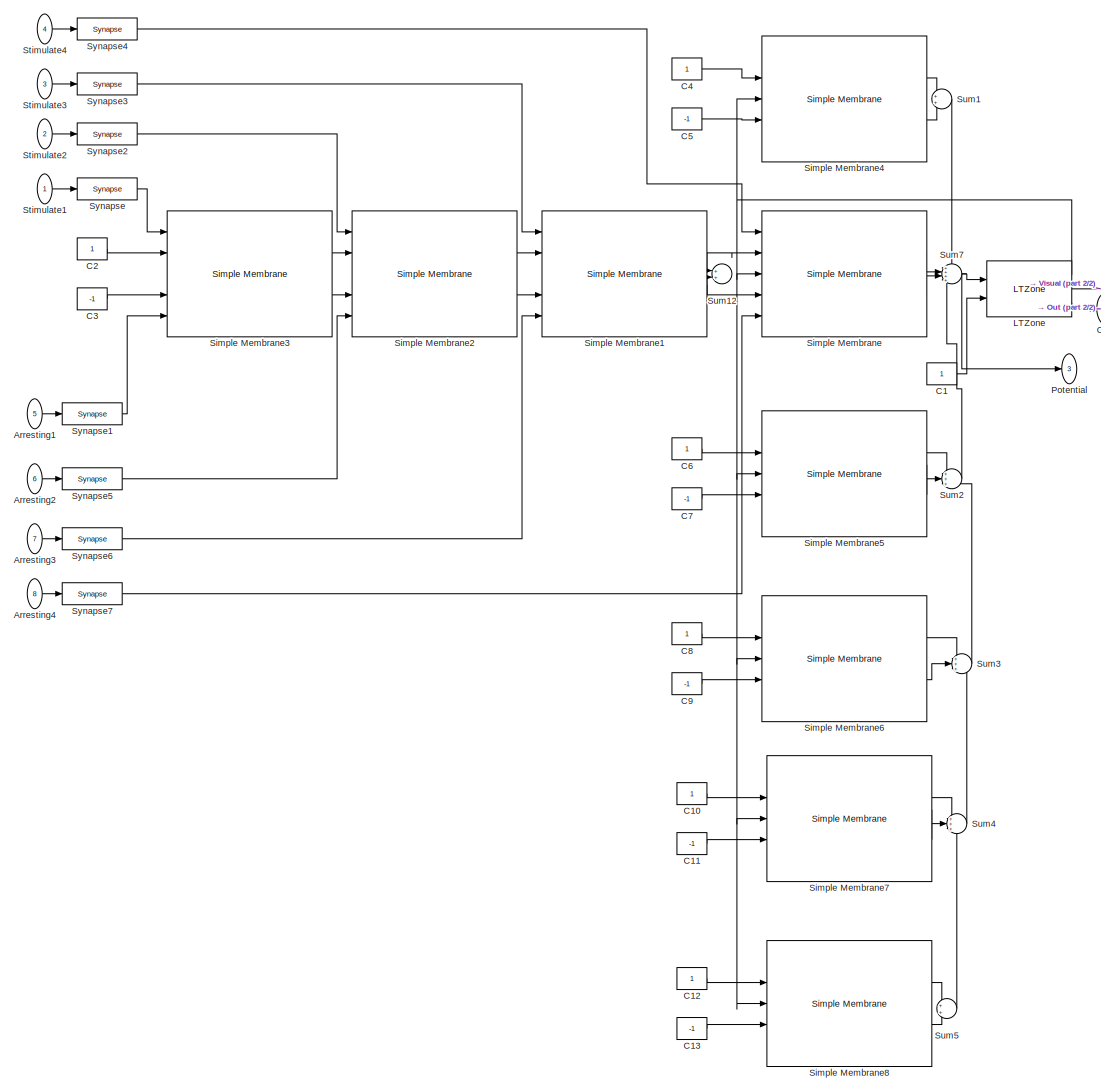
[diagram: Sized Cells/Size6 Cell - part 1/2, most of the canvas]
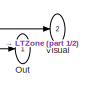
[diagram: Sized Cells/Size6 Cell - part 2/2, top right region]
BLOCK [SubSystem] Sized Cells/Size6 Cell
  NameLocation = top
  Ports = [8, 3]
  RequestExecContextInheritance = off
  SID = 678
BLOCK [Inport] Sized Cells/Size6 Cell/Arresting1
  NameLocation = top
  Port = 5
  SID = 683
BLOCK [Inport] Sized Cells/Size6 Cell/Arresting2
  NameLocation = top
  Port = 6
  SID = 684
BLOCK [Inport] Sized Cells/Size6 Cell/Arresting3
  NameLocation = top
  Port = 7
  SID = 685
BLOCK [Inport] Sized Cells/Size6 Cell/Arresting4
  NameLocation = top
  Port = 8
  SID = 686
BLOCK [Constant] Sized Cells/Size6 Cell/C1
  NameLocation = top
  SID = 687
BLOCK [Constant] Sized Cells/Size6 Cell/C10
  SID = 688
BLOCK [Constant] Sized Cells/Size6 Cell/C11
  SID = 689
  Value = -1
BLOCK [Constant] Sized Cells/Size6 Cell/C12
  SID = 690
BLOCK [Constant] Sized Cells/Size6 Cell/C13
  SID = 691
  Value = -1
BLOCK [Constant] Sized Cells/Size6 Cell/C2
  SID = 692
BLOCK [Constant] Sized Cells/Size6 Cell/C3
  SID = 693
  Value = -1
BLOCK [Constant] Sized Cells/Size6 Cell/C4
  SID = 694
BLOCK [Constant] Sized Cells/Size6 Cell/C5
  SID = 695
  Value = -1
BLOCK [Constant] Sized Cells/Size6 Cell/C6
  SID = 696
BLOCK [Constant] Sized Cells/Size6 Cell/C7
  SID = 697
  Value = -1
BLOCK [Constant] Sized Cells/Size6 Cell/C8
  SID = 698
BLOCK [Constant] Sized Cells/Size6 Cell/C9
  SID = 699
  Value = -1
BLOCK [Reference] Sized Cells/Size6 Cell/LTZone  REF=$bdroot/Neuron Elements/LTZone
  FB = 0.7
  FunctionWithSeparateData = off
  IT = 0.005
  NM = 6
  Ports = [2, 3]
  RTWMemSecDataConstants = Inherit from model
  RTWMemSecDataInternal = Inherit from model
  RTWMemSecDataParameters = Inherit from model
  RTWMemSecFuncExecute = Inherit from model
  RTWMemSecFuncInitTerm = Inherit from model
  SID = 700
  ShowPortLabels = FromPortIcon
  SourceBlock = $bdroot/Neuron Elements/LTZone
  SourceType = Ion pump
  SystemSampleTime = -1
  T = 0.001
BLOCK [Outport] Sized Cells/Size6 Cell/Out
  SID = 725
  VectorParamsAs1DForOutWhenUnconnected = off
BLOCK [Outport] Sized Cells/Size6 Cell/Potential
  Port = 3
  SID = 727
  VectorParamsAs1DForOutWhenUnconnected = off
BLOCK [Reference] Sized Cells/Size6 Cell/Simple Membrane  REF=$bdroot/Neuron Elements/Simple Membrane
  ACm = 1e-9
  ARFm = 1e8
  ARm = 1e7
  ECm = 1e-9
  ERFm = 1e8
  ERm = 1e7
  FunctionWithSeparateData = off
  Ports = [5, 2]
  RTWMemSecDataConstants = Inherit from model
  RTWMemSecDataInternal = Inherit from model
  RTWMemSecDataParameters = Inherit from model
  RTWMemSecFuncExecute = Inherit from model
  RTWMemSecFuncInitTerm = Inherit from model
  SID = 701
  ShowPortLabels = FromPortIcon
  SourceBlock = $bdroot/Neuron Elements/Simple Membrane
  SourceType = Unknown
  SystemSampleTime = -1
BLOCK [Reference] Sized Cells/Size6 Cell/Simple Membrane1  REF=$bdroot/Neuron Elements/Simple Membrane
  ACm = 1e-9
  ARFm = 1e8
  ARm = 1e7
  ECm = 1e-9
  ERFm = 1e8
  ERm = 1e7
  FunctionWithSeparateData = off
  Ports = [5, 2]
  RTWMemSecDataConstants = Inherit from model
  RTWMemSecDataInternal = Inherit from model
  RTWMemSecDataParameters = Inherit from model
  RTWMemSecFuncExecute = Inherit from model
  RTWMemSecFuncInitTerm = Inherit from model
  SID = 702
  ShowPortLabels = FromPortIcon
  SourceBlock = $bdroot/Neuron Elements/Simple Membrane
  SourceType = Unknown
  SystemSampleTime = -1
BLOCK [Reference] Sized Cells/Size6 Cell/Simple Membrane2  REF=$bdroot/Neuron Elements/Simple Membrane
  ACm = 1e-9
  ARFm = 1e8
  ARm = 1e7
  ECm = 1e-9
  ERFm = 1e8
  ERm = 1e7
  FunctionWithSeparateData = off
  Ports = [5, 2]
  RTWMemSecDataConstants = Inherit from model
  RTWMemSecDataInternal = Inherit from model
  RTWMemSecDataParameters = Inherit from model
  RTWMemSecFuncExecute = Inherit from model
  RTWMemSecFuncInitTerm = Inherit from model
  SID = 703
  ShowPortLabels = FromPortIcon
  SourceBlock = $bdroot/Neuron Elements/Simple Membrane
  SourceType = Unknown
  SystemSampleTime = -1
BLOCK [Reference] Sized Cells/Size6 Cell/Simple Membrane3  REF=$bdroot/Neuron Elements/Simple Membrane
  ACm = 1e-9
  ARFm = 1e8
  ARm = 1e7
  ECm = 1e-9
  ERFm = 1e8
  ERm = 1e7
  FunctionWithSeparateData = off
  Ports = [5, 2]
  RTWMemSecDataConstants = Inherit from model
  RTWMemSecDataInternal = Inherit from model
  RTWMemSecDataParameters = Inherit from model
  RTWMemSecFuncExecute = Inherit from model
  RTWMemSecFuncInitTerm = Inherit from model
  SID = 704
  ShowPortLabels = FromPortIcon
  SourceBlock = $bdroot/Neuron Elements/Simple Membrane
  SourceType = Unknown
  SystemSampleTime = -1
BLOCK [Reference] Sized Cells/Size6 Cell/Simple Membrane4  REF=$bdroot/Neuron Elements/Simple Membrane
  ACm = 1e-9
  ARFm = 1e8
  ARm = 1e7
  ECm = 1e-9
  ERFm = 1e8
  ERm = 1e7
  FunctionWithSeparateData = off
  Ports = [5, 2]
  RTWMemSecDataConstants = Inherit from model
  RTWMemSecDataInternal = Inherit from model
  RTWMemSecDataParameters = Inherit from model
  RTWMemSecFuncExecute = Inherit from model
  RTWMemSecFuncInitTerm = Inherit from model
  SID = 705
  ShowPortLabels = FromPortIcon
  SourceBlock = $bdroot/Neuron Elements/Simple Membrane
  SourceType = Unknown
  SystemSampleTime = -1
BLOCK [Reference] Sized Cells/Size6 Cell/Simple Membrane5  REF=$bdroot/Neuron Elements/Simple Membrane
  ACm = 1e-9
  ARFm = 1e8
  ARm = 1e7
  ECm = 1e-9
  ERFm = 1e8
  ERm = 1e7
  FunctionWithSeparateData = off
  Ports = [5, 2]
  RTWMemSecDataConstants = Inherit from model
  RTWMemSecDataInternal = Inherit from model
  RTWMemSecDataParameters = Inherit from model
  RTWMemSecFuncExecute = Inherit from model
  RTWMemSecFuncInitTerm = Inherit from model
  SID = 706
  ShowPortLabels = FromPortIcon
  SourceBlock = $bdroot/Neuron Elements/Simple Membrane
  SourceType = Unknown
  SystemSampleTime = -1
BLOCK [Reference] Sized Cells/Size6 Cell/Simple Membrane6  REF=$bdroot/Neuron Elements/Simple Membrane
  ACm = 1e-9
  ARFm = 1e8
  ARm = 1e7
  ECm = 1e-9
  ERFm = 1e8
  ERm = 1e7
  FunctionWithSeparateData = off
  Ports = [5, 2]
  RTWMemSecDataConstants = Inherit from model
  RTWMemSecDataInternal = Inherit from model
  RTWMemSecDataParameters = Inherit from model
  RTWMemSecFuncExecute = Inherit from model
  RTWMemSecFuncInitTerm = Inherit from model
  SID = 707
  ShowPortLabels = FromPortIcon
  SourceBlock = $bdroot/Neuron Elements/Simple Membrane
  SourceType = Unknown
  SystemSampleTime = -1
BLOCK [Reference] Sized Cells/Size6 Cell/Simple Membrane7  REF=$bdroot/Neuron Elements/Simple Membrane
  ACm = 1e-9
  ARFm = 1e8
  ARm = 1e7
  ECm = 1e-9
  ERFm = 1e8
  ERm = 1e7
  FunctionWithSeparateData = off
  Ports = [5, 2]
  RTWMemSecDataConstants = Inherit from model
  RTWMemSecDataInternal = Inherit from model
  RTWMemSecDataParameters = Inherit from model
  RTWMemSecFuncExecute = Inherit from model
  RTWMemSecFuncInitTerm = Inherit from model
  SID = 708
  ShowPortLabels = FromPortIcon
  SourceBlock = $bdroot/Neuron Elements/Simple Membrane
  SourceType = Unknown
  SystemSampleTime = -1
BLOCK [Reference] Sized Cells/Size6 Cell/Simple Membrane8  REF=$bdroot/Neuron Elements/Simple Membrane
  ACm = 1e-9
  ARFm = 1e8
  ARm = 1e7
  ECm = 1e-9
  ERFm = 1e8
  ERm = 1e7
  FunctionWithSeparateData = off
  Ports = [5, 2]
  RTWMemSecDataConstants = Inherit from model
  RTWMemSecDataInternal = Inherit from model
  RTWMemSecDataParameters = Inherit from model
  RTWMemSecFuncExecute = Inherit from model
  RTWMemSecFuncInitTerm = Inherit from model
  SID = 709
  ShowPortLabels = FromPortIcon
  SourceBlock = $bdroot/Neuron Elements/Simple Membrane
  SourceType = Unknown
  SystemSampleTime = -1
BLOCK [Inport] Sized Cells/Size6 Cell/Stimulate1
  NameLocation = top
  SID = 679
BLOCK [Inport] Sized Cells/Size6 Cell/Stimulate2
  NameLocation = top
  Port = 2
  SID = 680
BLOCK [Inport] Sized Cells/Size6 Cell/Stimulate3
  NameLocation = top
  Port = 3
  SID = 681
BLOCK [Inport] Sized Cells/Size6 Cell/Stimulate4
  NameLocation = top
  Port = 4
  SID = 682
BLOCK [Sum] Sized Cells/Size6 Cell/Sum1
  InputSameDT = on
  OutDataTypeStr = Inherit: Same as first input
  Ports = [2, 1]
  SID = 710
  SaturateOnIntegerOverflow = on
BLOCK [Sum] Sized Cells/Size6 Cell/Sum12
  InputSameDT = on
  OutDataTypeStr = Inherit: Same as first input
  Ports = [2, 1]
  SID = 711
  SaturateOnIntegerOverflow = on
BLOCK [Sum] Sized Cells/Size6 Cell/Sum2
  InputSameDT = on
  Inputs = +++
  OutDataTypeStr = Inherit: Same as first input
  Ports = [3, 1]
  SID = 712
  SaturateOnIntegerOverflow = on
BLOCK [Sum] Sized Cells/Size6 Cell/Sum3
  InputSameDT = on
  Inputs = +++
  OutDataTypeStr = Inherit: Same as first input
  Ports = [3, 1]
  SID = 713
  SaturateOnIntegerOverflow = on
BLOCK [Sum] Sized Cells/Size6 Cell/Sum4
  InputSameDT = on
  Inputs = +++
  OutDataTypeStr = Inherit: Same as first input
  Ports = [3, 1]
  SID = 714
  SaturateOnIntegerOverflow = on
BLOCK [Sum] Sized Cells/Size6 Cell/Sum5
  InputSameDT = on
  OutDataTypeStr = Inherit: Same as first input
  Ports = [2, 1]
  SID = 715
  SaturateOnIntegerOverflow = on
BLOCK [Sum] Sized Cells/Size6 Cell/Sum7
  InputSameDT = on
  Inputs = ++++
  OutDataTypeStr = Inherit: Same as first input
  Ports = [4, 1]
  SID = 716
  SaturateOnIntegerOverflow = on
BLOCK [Reference] Sized Cells/Size6 Cell/Synapse  REF=$bdroot/Neuron Elements/Synapse
  DecompositionTC = 0.01
  FunctionWithSeparateData = off
  Ports = [1, 1]
  RTWMemSecDataConstants = Inherit from model
  RTWMemSecDataInternal = Inherit from model
  RTWMemSecDataParameters = Inherit from model
  RTWMemSecFuncExecute = Inherit from model
  RTWMemSecFuncInitTerm = Inherit from model
  SID = 717
  SecretionTC = 0.001
  ShowPortLabels = FromPortIcon
  SourceBlock = $bdroot/Neuron Elements/Synapse
  SourceType = Unknown
  SystemSampleTime = -1
  gamma = 1e8
  ksi = 2
BLOCK [Reference] Sized Cells/Size6 Cell/Synapse1  REF=$bdroot/Neuron Elements/Synapse
  DecompositionTC = 0.01
  FunctionWithSeparateData = off
  Ports = [1, 1]
  RTWMemSecDataConstants = Inherit from model
  RTWMemSecDataInternal = Inherit from model
  RTWMemSecDataParameters = Inherit from model
  RTWMemSecFuncExecute = Inherit from model
  RTWMemSecFuncInitTerm = Inherit from model
  SID = 718
  SecretionTC = 0.001
  ShowPortLabels = FromPortIcon
  SourceBlock = $bdroot/Neuron Elements/Synapse
  SourceType = Unknown
  SystemSampleTime = -1
  gamma = 1e8
  ksi = 2
BLOCK [Reference] Sized Cells/Size6 Cell/Synapse2  REF=$bdroot/Neuron Elements/Synapse
  DecompositionTC = 0.01
  FunctionWithSeparateData = off
  Ports = [1, 1]
  RTWMemSecDataConstants = Inherit from model
  RTWMemSecDataInternal = Inherit from model
  RTWMemSecDataParameters = Inherit from model
  RTWMemSecFuncExecute = Inherit from model
  RTWMemSecFuncInitTerm = Inherit from model
  SID = 719
  SecretionTC = 0.001
  ShowPortLabels = FromPortIcon
  SourceBlock = $bdroot/Neuron Elements/Synapse
  SourceType = Unknown
  SystemSampleTime = -1
  gamma = 1e8
  ksi = 2
BLOCK [Reference] Sized Cells/Size6 Cell/Synapse3  REF=$bdroot/Neuron Elements/Synapse
  DecompositionTC = 0.01
  FunctionWithSeparateData = off
  Ports = [1, 1]
  RTWMemSecDataConstants = Inherit from model
  RTWMemSecDataInternal = Inherit from model
  RTWMemSecDataParameters = Inherit from model
  RTWMemSecFuncExecute = Inherit from model
  RTWMemSecFuncInitTerm = Inherit from model
  SID = 720
  SecretionTC = 0.001
  ShowPortLabels = FromPortIcon
  SourceBlock = $bdroot/Neuron Elements/Synapse
  SourceType = Unknown
  SystemSampleTime = -1
  gamma = 1e8
  ksi = 2
BLOCK [Reference] Sized Cells/Size6 Cell/Synapse4  REF=$bdroot/Neuron Elements/Synapse
  DecompositionTC = 0.01
  FunctionWithSeparateData = off
  Ports = [1, 1]
  RTWMemSecDataConstants = Inherit from model
  RTWMemSecDataInternal = Inherit from model
  RTWMemSecDataParameters = Inherit from model
  RTWMemSecFuncExecute = Inherit from model
  RTWMemSecFuncInitTerm = Inherit from model
  SID = 721
  SecretionTC = 0.001
  ShowPortLabels = FromPortIcon
  SourceBlock = $bdroot/Neuron Elements/Synapse
  SourceType = Unknown
  SystemSampleTime = -1
  gamma = 1e8
  ksi = 2
BLOCK [Reference] Sized Cells/Size6 Cell/Synapse5  REF=$bdroot/Neuron Elements/Synapse
  DecompositionTC = 0.01
  FunctionWithSeparateData = off
  Ports = [1, 1]
  RTWMemSecDataConstants = Inherit from model
  RTWMemSecDataInternal = Inherit from model
  RTWMemSecDataParameters = Inherit from model
  RTWMemSecFuncExecute = Inherit from model
  RTWMemSecFuncInitTerm = Inherit from model
  SID = 722
  SecretionTC = 0.001
  ShowPortLabels = FromPortIcon
  SourceBlock = $bdroot/Neuron Elements/Synapse
  SourceType = Unknown
  SystemSampleTime = -1
  gamma = 1e8
  ksi = 2
BLOCK [Reference] Sized Cells/Size6 Cell/Synapse6  REF=$bdroot/Neuron Elements/Synapse
  DecompositionTC = 0.01
  FunctionWithSeparateData = off
  Ports = [1, 1]
  RTWMemSecDataConstants = Inherit from model
  RTWMemSecDataInternal = Inherit from model
  RTWMemSecDataParameters = Inherit from model
  RTWMemSecFuncExecute = Inherit from model
  RTWMemSecFuncInitTerm = Inherit from model
  SID = 723
  SecretionTC = 0.001
  ShowPortLabels = FromPortIcon
  SourceBlock = $bdroot/Neuron Elements/Synapse
  SourceType = Unknown
  SystemSampleTime = -1
  gamma = 1e8
  ksi = 2
BLOCK [Reference] Sized Cells/Size6 Cell/Synapse7  REF=$bdroot/Neuron Elements/Synapse
  DecompositionTC = 0.01
  FunctionWithSeparateData = off
  Ports = [1, 1]
  RTWMemSecDataConstants = Inherit from model
  RTWMemSecDataInternal = Inherit from model
  RTWMemSecDataParameters = Inherit from model
  RTWMemSecFuncExecute = Inherit from model
  RTWMemSecFuncInitTerm = Inherit from model
  SID = 724
  SecretionTC = 0.001
  ShowPortLabels = FromPortIcon
  SourceBlock = $bdroot/Neuron Elements/Synapse
  SourceType = Unknown
  SystemSampleTime = -1
  gamma = 1e8
  ksi = 2
BLOCK [Outport] Sized Cells/Size6 Cell/Visual
  Port = 2
  SID = 726
  VectorParamsAs1DForOutWhenUnconnected = off
BLOCK [SubSystem] Support
  Ports = []
  RequestExecContextInheritance = off
  SID = 728
BLOCK [SubSystem] Support/Electric Engine Model
  Ports = [2, 3]
  RequestExecContextInheritance = off
  SID = 1043
BLOCK [Outport] Support/Electric Engine Model/Angle
  SID = 1057
  Tag = Angle
  VectorParamsAs1DForOutWhenUnconnected = off
BLOCK [Inport] Support/Electric Engine Model/Ext moment
  Port = 2
  SID = 1045
BLOCK [Gain] Support/Electric Engine Model/Gain
  Gain = 10
  SID = 1046
BLOCK [Gain] Support/Electric Engine Model/Gain1
  Gain = 10
  NameLocation = top
  SID = 1047
BLOCK [Integrator] Support/Electric Engine Model/Integrator
  Ports = [1, 1]
  SID = 1048
BLOCK [Integrator] Support/Electric Engine Model/Integrator1
  Ports = [1, 1]
  SID = 1049
BLOCK [Outport] Support/Electric Engine Model/Moment
  Port = 3
  SID = 1059
  VectorParamsAs1DForOutWhenUnconnected = off
BLOCK [Scope] Support/Electric Engine Model/Scope
  Floating = off
  NumInputPorts = 3
  Ports = [3]
  SID = 1050
  ScopeSpecificationString = C++SS(StrPVP('Location','[468, 344, 1492, 861]'),StrPVP('Open','off'),MxPVP('AxesTitles',54,'struct(''axes1'',''Angle'',''axes2'',''Speed'',''axes3'',''Moment'')'),StrPVP('ShowLegends','off'),StrPVP('YMin','-700000~-4.5e+008~-1.5e+006'),StrPVP('YMax','100000~5e+007~250000'),StrPVP('DataFormat','StructureWithTime'),StrPVP('BlockParamSampleTime','0'),StrPVP('ScrollMode','off'),StrPVP('LimitDataPoint...<+72ch>
BLOCK [Outport] Support/Electric Engine Model/Speed
  Port = 2
  SID = 1058
  VectorParamsAs1DForOutWhenUnconnected = off
BLOCK [Sum] Support/Electric Engine Model/Sum
  Inputs = |+-
  Ports = [2, 1]
  SID = 1051
BLOCK [Sum] Support/Electric Engine Model/Sum1
  Inputs = |+-
  Ports = [2, 1]
  SID = 1052
BLOCK [Sum] Support/Electric Engine Model/Sum2
  Inputs = |++
  Ports = [2, 1]
  SID = 1053
BLOCK [TransferFcn] Support/Electric Engine Model/Transfer Fcn
  Denominator = [0.001 0.1]
  SID = 1054
BLOCK [TransferFcn] Support/Electric Engine Model/Transfer Fcn1
  Denominator = [10 0]
  SID = 1055
BLOCK [TransferFcn] Support/Electric Engine Model/Transfer Fcn2
  Denominator = [10 0]
  SID = 1056
BLOCK [Inport] Support/Electric Engine Model/Voltage
  SID = 1044
BLOCK [SubSystem] Support/Inertial Link
  Ports = [2, 1]
  RequestExecContextInheritance = off
  SID = 729
BLOCK [SubSystem] Support/Inertial Link With Reset
  Ports = [4, 2]
  RequestExecContextInheritance = off
  SID = 1116
BLOCK [Fcn] Support/Inertial Link With Reset/Fcn1
  Expr = 1/u
  SID = 1119
BLOCK [Integrator] Support/Inertial Link With Reset/Integrator\nLimited
  ExternalReset = either
  InitialConditionSource = external
  LowerSaturationLimit = 0
  Ports = [3, 1, 0, 0, 1]
  SID = 1126
  ShowStatePort = on
  UpperSaturationLimit = 1
BLOCK [Outport] Support/Inertial Link With Reset/Out
  InitialOutput = 0
  SID = 1124
  VectorParamsAs1DForOutWhenUnconnected = off
BLOCK [Product] Support/Inertial Link With Reset/Product
  InputSameDT = on
  NameLocation = top
  OutDataTypeStr = Inherit: Same as first input
  Ports = [2, 1]
  RndMeth = Zero
  SID = 1121
  SaturateOnIntegerOverflow = on
BLOCK [Product] Support/Inertial Link With Reset/Product1
  InputSameDT = on
  OutDataTypeStr = Inherit: Same as first input
  Ports = [2, 1]
  RndMeth = Zero
  SID = 1122
  SaturateOnIntegerOverflow = on
BLOCK [Inport] Support/Inertial Link With Reset/Reset
  Port = 4
  SID = 1127
BLOCK [Outport] Support/Inertial Link With Reset/State
  InitialOutput = 0
  Port = 2
  SID = 1128
  VectorParamsAs1DForOutWhenUnconnected = off
BLOCK [Sum] Support/Inertial Link With Reset/Sum
  IconShape = rectangular
  InputSameDT = on
  Inputs = +-
  OutDataTypeStr = Inherit: Same as first input
  Ports = [2, 1]
  SID = 1123
  SaturateOnIntegerOverflow = on
BLOCK [Inport] Support/Inertial Link With Reset/TC
  Port = 2
  SID = 1118
BLOCK [Inport] Support/Inertial Link With Reset/Value
  SID = 1117
BLOCK [Inport] Support/Inertial Link With Reset/X0
  Port = 3
  SID = 1125
BLOCK [Fcn] Support/Inertial Link/Fcn1
  Expr = 1/u
  SID = 732
BLOCK [Inport] Support/Inertial Link/In1
  SID = 730
BLOCK [Inport] Support/Inertial Link/In2
  Port = 2
  SID = 731
BLOCK [Integrator] Support/Inertial Link/Integrator
  Ports = [1, 1]
  SID = 733
BLOCK [Outport] Support/Inertial Link/Out1
  InitialOutput = 0
  SID = 737
  VectorParamsAs1DForOutWhenUnconnected = off
BLOCK [Product] Support/Inertial Link/Product
  InputSameDT = on
  NameLocation = top
  OutDataTypeStr = Inherit: Same as first input
  Ports = [2, 1]
  RndMeth = Zero
  SID = 734
  SaturateOnIntegerOverflow = on
BLOCK [Product] Support/Inertial Link/Product1
  InputSameDT = on
  OutDataTypeStr = Inherit: Same as first input
  Ports = [2, 1]
  RndMeth = Zero
  SID = 735
  SaturateOnIntegerOverflow = on
BLOCK [Sum] Support/Inertial Link/Sum
  IconShape = rectangular
  InputSameDT = on
  Inputs = +-
  OutDataTypeStr = Inherit: Same as first input
  Ports = [2, 1]
  SID = 736
  SaturateOnIntegerOverflow = on
BLOCK [SubSystem] Support/Sign Separator
  Ports = [1, 2]
  RequestExecContextInheritance = off
  SID = 1061
BLOCK [Abs] Support/Sign Separator/Abs
  SID = 1063
  SaturateOnIntegerOverflow = off
BLOCK [Reference] Support/Sign Separator/Compare\nTo Zero  REF=simulink/Logic and Bit\nOperations/Compare\nTo Zero
  OutDataTypeStr = uint8
  Ports = [1, 1]
  SID = 1064
  SourceBlock = simulink/Logic and Bit\nOperations/Compare\nTo Zero
  SourceProductBaseCode = SL
  SourceType = Compare To Zero
  ZeroCross = off
  relop = >=
BLOCK [Reference] Support/Sign Separator/Compare\nTo Zero1  REF=simulink/Logic and Bit\nOperations/Compare\nTo Zero
  OutDataTypeStr = uint8
  Ports = [1, 1]
  SID = 1065
  SourceBlock = simulink/Logic and Bit\nOperations/Compare\nTo Zero
  SourceProductBaseCode = SL
  SourceType = Compare To Zero
  ZeroCross = off
  relop = <
BLOCK [Inport] Support/Sign Separator/In1
  NameLocation = right
  SID = 1062
BLOCK [Outport] Support/Sign Separator/Out1
  SID = 1070
  VectorParamsAs1DForOutWhenUnconnected = off
BLOCK [Outport] Support/Sign Separator/Out2
  Port = 2
  SID = 1071
  VectorParamsAs1DForOutWhenUnconnected = off
BLOCK [Product] Support/Sign Separator/Product
  Ports = [2, 1]
  RndMeth = Zero
  SID = 1066
BLOCK [Product] Support/Sign Separator/Product1
  Ports = [2, 1]
  RndMeth = Zero
  SID = 1067
BLOCK [Signum] Support/Sign Separator/Sign
  SID = 1068
BLOCK [Signum] Support/Sign Separator/Sign1
  SID = 1069
BLOCK [SubSystem] Support/Two-output\nPulse Generator
  Ports = [0, 2]
  RequestExecContextInheritance = off
  SID = 738
BLOCK [Clock] Support/Two-output\nPulse Generator/Clock
  SID = 739
BLOCK [Constant] Support/Two-output\nPulse Generator/Constant
  SID = 740
  Value = 0
BLOCK [DiscretePulseGenerator] Support/Two-output\nPulse Generator/Discrete Pulse\nGenerator
  Amplitude = A
  Period = P1
  Ports = [0, 1]
  PulseWidth = PW
  SID = 741
  SampleTime = ST
BLOCK [DiscretePulseGenerator] Support/Two-output\nPulse Generator/Discrete Pulse\nGenerator1
  Amplitude = A
  Period = P2
  Ports = [0, 1]
  PulseWidth = PW
  SID = 742
  SampleTime = ST
BLOCK [Outport] Support/Two-output\nPulse Generator/Out1
  InitialOutput = 0
  SID = 747
  VectorParamsAs1DForOutWhenUnconnected = off
BLOCK [Outport] Support/Two-output\nPulse Generator/Out2
  InitialOutput = 0
  Port = 2
  SID = 748
  VectorParamsAs1DForOutWhenUnconnected = off
BLOCK [Switch] Support/Two-output\nPulse Generator/Switch
  SID = 743
  Threshold = OOff1
BLOCK [Switch] Support/Two-output\nPulse Generator/Switch1
  SID = 744
  Threshold = OOff2
BLOCK [TransportDelay] Support/Two-output\nPulse Generator/Transport\nDelay
  DelayTime = OOn1
  Ports = [1, 1]
  SID = 745
BLOCK [TransportDelay] Support/Two-output\nPulse Generator/Transport\nDelay1
  DelayTime = OOn2
  Ports = [1, 1]
  SID = 746
ANNOTATION (root): \n \n CSNM Implementations
ANNOTATION (root): \n \n CSNM w/o spikes Impl.
ANNOTATION (root): \n \n Classic Spiking Neuron Models
ANNOTATION (root): \n \n Muscles & Other Actuators
ANNOTATION (root): <copyright redacted>\nwww.ailab.ru
ANNOTATION Analog Simple Cells: \n \n CSNM: version 0.2
ANNOTATION Classic Models: \n \n Neuron Models
ANNOTATION Classic Models: \n \n Synapse Models
ANNOTATION Dendrites Cells: \n \n CSNM: version 0.2
ANNOTATION Memory Modules: \n \n CSNM: version 0.2
ANNOTATION Multistate Cells: \n \n CSNM: version 0.2
ANNOTATION Neuron Elements: \n \n CSNM: version 0.1 (2010)
ANNOTATION Neuron Elements: \n \n CSNM: version 0.2 (2015)
ANNOTATION Neuron Elements: \n \n CSNM: version 0.3 (2021)
ANNOTATION Neuron Elements/LTZone v0.1: X1
ANNOTATION Neuron Elements/LTZone v0.1: X2
ANNOTATION Pacemaker Cells: \n \n CSNM: version 0.2
ANNOTATION Recycle Bin: \n \n Neural Networks Samples
ANNOTATION Recycle Bin: \n \n Neuron Parts Samples
ANNOTATION Recycle Bin: \n \n Neuron Samples
ANNOTATION Simple Cells: \n \n CSNM: version 0.1
ANNOTATION Simple Cells: \n \n CSNM: version 0.2
ANNOTATION Sized Cells: \n \n CSNM: version 0.2
ANNOTATION Sized Cells: \n \n CSNM: version 0.3
ANNOTATION Sized Cells: \n \n Segmented IaF
LINE Actuators/Eye Muscle/Gain1:1 -> Actuators/Eye Muscle/Subtract:3
LINE Actuators/Eye Muscle/Gain2:1 -> Actuators/Eye Muscle/Integrator1:1
LINE Actuators/Eye Muscle/Gain3:1 -> Actuators/Eye Muscle/Subtract1:2
LINE Actuators/Eye Muscle/Gain4:1 -> Actuators/Eye Muscle/Integrator2:1
LINE Actuators/Eye Muscle/Gain5:1 -> Actuators/Eye Muscle/Subtract:2
LINE Actuators/Eye Muscle/Gain:1 -> Actuators/Eye Muscle/Integrator:1
LINE Actuators/Eye Muscle/In1:1 -> Actuators/Eye Muscle/Subtract:1
NET Actuators/Eye Muscle/Integrator1:1 -> Actuators/Eye Muscle/Gain3:1, Actuators/Eye Muscle/Gain4:1
NET Actuators/Eye Muscle/Integrator2:1 -> Actuators/Eye Muscle/Gain5:1, Actuators/Eye Muscle/Out1:1
NET Actuators/Eye Muscle/Integrator:1 -> Actuators/Eye Muscle/Gain1:1, Actuators/Eye Muscle/Subtract1:1
LINE Actuators/Eye Muscle/Subtract1:1 -> Actuators/Eye Muscle/Gain2:1
LINE Actuators/Eye Muscle/Subtract:1 -> Actuators/Eye Muscle/Gain:1
LINE Analog Simple Cells/Simple Analog Neuron with PI/Ar Input 1:1 -> Analog Simple Cells/Simple Analog Neuron with PI/Simple Synapse2:1
LINE Analog Simple Cells/Simple Analog Neuron with PI/Ar Input 2:1 -> Analog Simple Cells/Simple Analog Neuron with PI/Simple Synapse3:1
LINE Analog Simple Cells/Simple Analog Neuron with PI/C2:1 -> Analog Simple Cells/Simple Analog Neuron with PI/Simple Membrane1:2
LINE Analog Simple Cells/Simple Analog Neuron with PI/C3:1 -> Analog Simple Cells/Simple Analog Neuron with PI/Simple Membrane1:4
LINE Analog Simple Cells/Simple Analog Neuron with PI/ContLTZone1:1 -> Analog Simple Cells/Simple Analog Neuron with PI/Out:1
LINE Analog Simple Cells/Simple Analog Neuron with PI/Ex Input 1:1 -> Analog Simple Cells/Simple Analog Neuron with PI/Simple Synapse:1
LINE Analog Simple Cells/Simple Analog Neuron with PI/Ex Input 2:1 -> Analog Simple Cells/Simple Analog Neuron with PI/Simple Synapse1:1
LINE Analog Simple Cells/Simple Analog Neuron with PI/Simple Membrane1:1 -> Analog Simple Cells/Simple Analog Neuron with PI/Sum7:1
LINE Analog Simple Cells/Simple Analog Neuron with PI/Simple Membrane1:2 -> Analog Simple Cells/Simple Analog Neuron with PI/Sum7:2
LINE Analog Simple Cells/Simple Analog Neuron with PI/Simple Synapse1:1 -> Analog Simple Cells/Simple Analog Neuron with PI/Sum4:2
LINE Analog Simple Cells/Simple Analog Neuron with PI/Simple Synapse2:1 -> Analog Simple Cells/Simple Analog Neuron with PI/Sum8:1
LINE Analog Simple Cells/Simple Analog Neuron with PI/Simple Synapse3:1 -> Analog Simple Cells/Simple Analog Neuron with PI/Sum8:2
LINE Analog Simple Cells/Simple Analog Neuron with PI/Simple Synapse:1 -> Analog Simple Cells/Simple Analog Neuron with PI/Sum4:1
LINE Analog Simple Cells/Simple Analog Neuron with PI/Sum4:1 -> Analog Simple Cells/Simple Analog Neuron with PI/Simple Membrane1:1
NET Analog Simple Cells/Simple Analog Neuron with PI/Sum7:1 -> Analog Simple Cells/Simple Analog Neuron with PI/ContLTZone1:1, Analog Simple Cells/Simple Analog Neuron with PI/Potential:1
LINE Analog Simple Cells/Simple Analog Neuron with PI/Sum8:1 -> Analog Simple Cells/Simple Analog Neuron with PI/Simple Membrane1:5
LINE Analog Simple Cells/Simple Analog Neuron/Ar Input 1:1 -> Analog Simple Cells/Simple Analog Neuron/Simple Synapse2:1
LINE Analog Simple Cells/Simple Analog Neuron/Ar Input 2:1 -> Analog Simple Cells/Simple Analog Neuron/Simple Synapse3:1
LINE Analog Simple Cells/Simple Analog Neuron/C2:1 -> Analog Simple Cells/Simple Analog Neuron/Simple Membrane1:2
LINE Analog Simple Cells/Simple Analog Neuron/C3:1 -> Analog Simple Cells/Simple Analog Neuron/Simple Membrane1:4
LINE Analog Simple Cells/Simple Analog Neuron/ContLTZone1:1 -> Analog Simple Cells/Simple Analog Neuron/Out:1
LINE Analog Simple Cells/Simple Analog Neuron/Ex Input 1:1 -> Analog Simple Cells/Simple Analog Neuron/Simple Synapse:1
LINE Analog Simple Cells/Simple Analog Neuron/Ex Input 2:1 -> Analog Simple Cells/Simple Analog Neuron/Simple Synapse1:1
LINE Analog Simple Cells/Simple Analog Neuron/Simple Membrane1:1 -> Analog Simple Cells/Simple Analog Neuron/Sum7:1
LINE Analog Simple Cells/Simple Analog Neuron/Simple Membrane1:2 -> Analog Simple Cells/Simple Analog Neuron/Sum7:2
LINE Analog Simple Cells/Simple Analog Neuron/Simple Synapse1:1 -> Analog Simple Cells/Simple Analog Neuron/Sum4:2
LINE Analog Simple Cells/Simple Analog Neuron/Simple Synapse2:1 -> Analog Simple Cells/Simple Analog Neuron/Sum8:1
LINE Analog Simple Cells/Simple Analog Neuron/Simple Synapse3:1 -> Analog Simple Cells/Simple Analog Neuron/Sum8:2
LINE Analog Simple Cells/Simple Analog Neuron/Simple Synapse:1 -> Analog Simple Cells/Simple Analog Neuron/Sum4:1
LINE Analog Simple Cells/Simple Analog Neuron/Sum4:1 -> Analog Simple Cells/Simple Analog Neuron/Simple Membrane1:1
NET Analog Simple Cells/Simple Analog Neuron/Sum7:1 -> Analog Simple Cells/Simple Analog Neuron/ContLTZone1:1, Analog Simple Cells/Simple Analog Neuron/Potential:1
LINE Analog Simple Cells/Simple Analog Neuron/Sum8:1 -> Analog Simple Cells/Simple Analog Neuron/Simple Membrane1:5
LINE Analog Simple Cells/Simple Tanh Analog Neuron /Ar Input 1:1 -> Analog Simple Cells/Simple Tanh Analog Neuron /Simple Synapse2:1
LINE Analog Simple Cells/Simple Tanh Analog Neuron /Ar Input 2:1 -> Analog Simple Cells/Simple Tanh Analog Neuron /Simple Synapse3:1
LINE Analog Simple Cells/Simple Tanh Analog Neuron /C2:1 -> Analog Simple Cells/Simple Tanh Analog Neuron /Simple Membrane1:2
LINE Analog Simple Cells/Simple Tanh Analog Neuron /C3:1 -> Analog Simple Cells/Simple Tanh Analog Neuron /Simple Membrane1:4
LINE Analog Simple Cells/Simple Tanh Analog Neuron /Ex Input 1:1 -> Analog Simple Cells/Simple Tanh Analog Neuron /Simple Synapse:1
LINE Analog Simple Cells/Simple Tanh Analog Neuron /Ex Input 2:1 -> Analog Simple Cells/Simple Tanh Analog Neuron /Simple Synapse1:1
LINE Analog Simple Cells/Simple Tanh Analog Neuron /Simple Membrane1:1 -> Analog Simple Cells/Simple Tanh Analog Neuron /Sum7:1
LINE Analog Simple Cells/Simple Tanh Analog Neuron /Simple Membrane1:2 -> Analog Simple Cells/Simple Tanh Analog Neuron /Sum7:2
LINE Analog Simple Cells/Simple Tanh Analog Neuron /Simple Synapse1:1 -> Analog Simple Cells/Simple Tanh Analog Neuron /Sum4:2
LINE Analog Simple Cells/Simple Tanh Analog Neuron /Simple Synapse2:1 -> Analog Simple Cells/Simple Tanh Analog Neuron /Sum8:1
LINE Analog Simple Cells/Simple Tanh Analog Neuron /Simple Synapse3:1 -> Analog Simple Cells/Simple Tanh Analog Neuron /Sum8:2
LINE Analog Simple Cells/Simple Tanh Analog Neuron /Simple Synapse:1 -> Analog Simple Cells/Simple Tanh Analog Neuron /Sum4:1
LINE Analog Simple Cells/Simple Tanh Analog Neuron /Sum4:1 -> Analog Simple Cells/Simple Tanh Analog Neuron /Simple Membrane1:1
NET Analog Simple Cells/Simple Tanh Analog Neuron /Sum7:1 -> Analog Simple Cells/Simple Tanh Analog Neuron /Potential:1, Analog Simple Cells/Simple Tanh Analog Neuron /tansig:1
LINE Analog Simple Cells/Simple Tanh Analog Neuron /Sum8:1 -> Analog Simple Cells/Simple Tanh Analog Neuron /Simple Membrane1:5
LINE Analog Simple Cells/Simple Tanh Analog Neuron /tansig:1 -> Analog Simple Cells/Simple Tanh Analog Neuron /Out:1
LINE Classic Models/Alpha-Function Synapse (nonsmooth)/-1//tau_syn:1 -> Classic Models/Alpha-Function Synapse (nonsmooth)/Math\nFunction:1
NET Classic Models/Alpha-Function Synapse (nonsmooth)/Clock:1 -> Classic Models/Alpha-Function Synapse (nonsmooth)/Sum:2, Classic Models/Alpha-Function Synapse (nonsmooth)/Triggered\nSubsystem:1
LINE Classic Models/Alpha-Function Synapse (nonsmooth)/Constant1:1 -> Classic Models/Alpha-Function Synapse (nonsmooth)/Switch:3
LINE Classic Models/Alpha-Function Synapse (nonsmooth)/Constant2:1 -> Classic Models/Alpha-Function Synapse (nonsmooth)/Switch1:3
LINE Classic Models/Alpha-Function Synapse (nonsmooth)/Constant:1 -> Classic Models/Alpha-Function Synapse (nonsmooth)/Switch:1
LINE Classic Models/Alpha-Function Synapse (nonsmooth)/Delay:1 -> Classic Models/Alpha-Function Synapse (nonsmooth)/i_syn:1
LINE Classic Models/Alpha-Function Synapse (nonsmooth)/I_syn:1 -> Classic Models/Alpha-Function Synapse (nonsmooth)/Product1:1
LINE Classic Models/Alpha-Function Synapse (nonsmooth)/Math\nFunction:1 -> Classic Models/Alpha-Function Synapse (nonsmooth)/I_syn:1
LINE Classic Models/Alpha-Function Synapse (nonsmooth)/MinMax\nRunning\nResettable:1 -> Classic Models/Alpha-Function Synapse (nonsmooth)/Switch1:2
LINE Classic Models/Alpha-Function Synapse (nonsmooth)/Product1:1 -> Classic Models/Alpha-Function Synapse (nonsmooth)/Switch1:1
NET Classic Models/Alpha-Function Synapse (nonsmooth)/Sum:1 -> Classic Models/Alpha-Function Synapse (nonsmooth)/-1//tau_syn:1, Classic Models/Alpha-Function Synapse (nonsmooth)/Switch:2
LINE Classic Models/Alpha-Function Synapse (nonsmooth)/Switch1:1 -> Classic Models/Alpha-Function Synapse (nonsmooth)/Weight:1
LINE Classic Models/Alpha-Function Synapse (nonsmooth)/Switch:1 -> Classic Models/Alpha-Function Synapse (nonsmooth)/Product1:2
LINE Classic Models/Alpha-Function Synapse (nonsmooth)/Triggered\nSubsystem/In1:1 -> Classic Models/Alpha-Function Synapse (nonsmooth)/Triggered\nSubsystem/Out1:1
LINE Classic Models/Alpha-Function Synapse (nonsmooth)/Triggered\nSubsystem:1 -> Classic Models/Alpha-Function Synapse (nonsmooth)/Sum:1
LINE Classic Models/Alpha-Function Synapse (nonsmooth)/Weight:1 -> Classic Models/Alpha-Function Synapse (nonsmooth)/Delay:1
NET Classic Models/Alpha-Function Synapse (nonsmooth)/pulse input:1 -> Classic Models/Alpha-Function Synapse (nonsmooth)/MinMax\nRunning\nResettable:1, Classic Models/Alpha-Function Synapse (nonsmooth)/Triggered\nSubsystem:trigger
LINE Classic Models/Alpha-Function Synapse (smooth)/-1//tau_syn:1 -> Classic Models/Alpha-Function Synapse (smooth)/Math\nFunction:1
LINE Classic Models/Alpha-Function Synapse (smooth)/1//tau_syn:1 -> Classic Models/Alpha-Function Synapse (smooth)/Product:1
NET Classic Models/Alpha-Function Synapse (smooth)/Clock:1 -> Classic Models/Alpha-Function Synapse (smooth)/Sum:2, Classic Models/Alpha-Function Synapse (smooth)/Triggered\nSubsystem:1
LINE Classic Models/Alpha-Function Synapse (smooth)/Constant1:1 -> Classic Models/Alpha-Function Synapse (smooth)/Switch:3
LINE Classic Models/Alpha-Function Synapse (smooth)/Constant2:1 -> Classic Models/Alpha-Function Synapse (smooth)/Switch1:3
LINE Classic Models/Alpha-Function Synapse (smooth)/Constant:1 -> Classic Models/Alpha-Function Synapse (smooth)/Switch:1
LINE Classic Models/Alpha-Function Synapse (smooth)/Delay:1 -> Classic Models/Alpha-Function Synapse (smooth)/i_syn:1
LINE Classic Models/Alpha-Function Synapse (smooth)/Gain4:1 -> Classic Models/Alpha-Function Synapse (smooth)/1//tau_syn:1
LINE Classic Models/Alpha-Function Synapse (smooth)/I_syn:1 -> Classic Models/Alpha-Function Synapse (smooth)/Product1:1
LINE Classic Models/Alpha-Function Synapse (smooth)/Math\nFunction:1 -> Classic Models/Alpha-Function Synapse (smooth)/Product:2
LINE Classic Models/Alpha-Function Synapse (smooth)/MinMax\nRunning\nResettable:1 -> Classic Models/Alpha-Function Synapse (smooth)/Switch1:2
LINE Classic Models/Alpha-Function Synapse (smooth)/Product1:1 -> Classic Models/Alpha-Function Synapse (smooth)/Switch1:1
LINE Classic Models/Alpha-Function Synapse (smooth)/Product:1 -> Classic Models/Alpha-Function Synapse (smooth)/I_syn:1
NET Classic Models/Alpha-Function Synapse (smooth)/Sum:1 -> Classic Models/Alpha-Function Synapse (smooth)/-1//tau_syn:1, Classic Models/Alpha-Function Synapse (smooth)/Gain4:1, Classic Models/Alpha-Function Synapse (smooth)/Switch:2
LINE Classic Models/Alpha-Function Synapse (smooth)/Switch1:1 -> Classic Models/Alpha-Function Synapse (smooth)/Weight:1
LINE Classic Models/Alpha-Function Synapse (smooth)/Switch:1 -> Classic Models/Alpha-Function Synapse (smooth)/Product1:2
LINE Classic Models/Alpha-Function Synapse (smooth)/Triggered\nSubsystem/In1:1 -> Classic Models/Alpha-Function Synapse (smooth)/Triggered\nSubsystem/Out1:1
LINE Classic Models/Alpha-Function Synapse (smooth)/Triggered\nSubsystem:1 -> Classic Models/Alpha-Function Synapse (smooth)/Sum:1
LINE Classic Models/Alpha-Function Synapse (smooth)/Weight:1 -> Classic Models/Alpha-Function Synapse (smooth)/Delay:1
NET Classic Models/Alpha-Function Synapse (smooth)/pulse input:1 -> Classic Models/Alpha-Function Synapse (smooth)/MinMax\nRunning\nResettable:1, Classic Models/Alpha-Function Synapse (smooth)/Triggered\nSubsystem:trigger
NET Classic Models/IaF Neuron with refractory/Clock:1 -> Classic Models/IaF Neuron with refractory/Sum:2, Classic Models/IaF Neuron with refractory/Triggered\nSubsystem:1
LINE Classic Models/IaF Neuron with refractory/Constant10:1 -> Classic Models/IaF Neuron with refractory/Inertial Link With Reset1:2
LINE Classic Models/IaF Neuron with refractory/Constant11:1 -> Classic Models/IaF Neuron with refractory/Sum3:2
LINE Classic Models/IaF Neuron with refractory/Constant12:1 -> Classic Models/IaF Neuron with refractory/Sum1:2
NET Classic Models/IaF Neuron with refractory/Constant1:1 -> Classic Models/IaF Neuron with refractory/Inertial Link With Reset1:3, Classic Models/IaF Neuron with refractory/S3:1
LINE Classic Models/IaF Neuron with refractory/Constant2:1 -> Classic Models/IaF Neuron with refractory/S1:1
LINE Classic Models/IaF Neuron with refractory/Constant3:1 -> Classic Models/IaF Neuron with refractory/S2:3
LINE Classic Models/IaF Neuron with refractory/Constant4:1 -> Classic Models/IaF Neuron with refractory/S4:1
LINE Classic Models/IaF Neuron with refractory/Constant5:1 -> Classic Models/IaF Neuron with refractory/S4:3
LINE Classic Models/IaF Neuron with refractory/Constant6:1 -> Classic Models/IaF Neuron with refractory/S1:3
LINE Classic Models/IaF Neuron with refractory/Gain3:1 -> Classic Models/IaF Neuron with refractory/Sum3:1
NET Classic Models/IaF Neuron with refractory/Inertial Link With Reset1:1 -> Classic Models/IaF Neuron with refractory/S1:2, Classic Models/IaF Neuron with refractory/S3:2, Classic Models/IaF Neuron with refractory/S3:3, Classic Models/IaF Neuron with refractory/S4:2
LINE Classic Models/IaF Neuron with refractory/S1:1 -> Classic Models/IaF Neuron with refractory/Inertial Link With Reset1:4
LINE Classic Models/IaF Neuron with refractory/S2:1 -> Classic Models/IaF Neuron with refractory/Vm:1
LINE Classic Models/IaF Neuron with refractory/S3:1 -> Classic Models/IaF Neuron with refractory/S2:1
LINE Classic Models/IaF Neuron with refractory/S4:1 -> Classic Models/IaF Neuron with refractory/Triggered\nSubsystem:trigger
LINE Classic Models/IaF Neuron with refractory/Sum1:1 -> Classic Models/IaF Neuron with refractory/Gain3:1
LINE Classic Models/IaF Neuron with refractory/Sum3:1 -> Classic Models/IaF Neuron with refractory/Inertial Link With Reset1:1
LINE Classic Models/IaF Neuron with refractory/Sum:1 -> Classic Models/IaF Neuron with refractory/S2:2
LINE Classic Models/IaF Neuron with refractory/Triggered\nSubsystem/In1:1 -> Classic Models/IaF Neuron with refractory/Triggered\nSubsystem/Out1:1
LINE Classic Models/IaF Neuron with refractory/Triggered\nSubsystem:1 -> Classic Models/IaF Neuron with refractory/Sum:1
LINE Classic Models/IaF Neuron with refractory/i_syn:1 -> Classic Models/IaF Neuron with refractory/Sum1:1
LINE Classic Models/IaF Neuron/Constant10:1 -> Classic Models/IaF Neuron/Inertial Link With Reset:2
LINE Classic Models/IaF Neuron/Constant11:1 -> Classic Models/IaF Neuron/Sum3:2
LINE Classic Models/IaF Neuron/Constant12:1 -> Classic Models/IaF Neuron/Gain2:1
NET Classic Models/IaF Neuron/Constant1:1 -> Classic Models/IaF Neuron/Inertial Link With Reset:3, Classic Models/IaF Neuron/S3:1
LINE Classic Models/IaF Neuron/Constant2:1 -> Classic Models/IaF Neuron/S1:1
LINE Classic Models/IaF Neuron/Constant6:1 -> Classic Models/IaF Neuron/S1:3
LINE Classic Models/IaF Neuron/Gain1:1 -> Classic Models/IaF Neuron/Inertial Link With Reset:1
LINE Classic Models/IaF Neuron/Gain2:1 -> Classic Models/IaF Neuron/Sum1:2
LINE Classic Models/IaF Neuron/Gain3:1 -> Classic Models/IaF Neuron/Sum1:1
NET Classic Models/IaF Neuron/Inertial Link With Reset:1 -> Classic Models/IaF Neuron/S1:2, Classic Models/IaF Neuron/S3:2, Classic Models/IaF Neuron/S3:3
LINE Classic Models/IaF Neuron/S1:1 -> Classic Models/IaF Neuron/Inertial Link With Reset:4
LINE Classic Models/IaF Neuron/S3:1 -> Classic Models/IaF Neuron/Vm:1
LINE Classic Models/IaF Neuron/Sum1:1 -> Classic Models/IaF Neuron/Sum3:1
LINE Classic Models/IaF Neuron/Sum3:1 -> Classic Models/IaF Neuron/Gain1:1
LINE Classic Models/IaF Neuron/i_syn:1 -> Classic Models/IaF Neuron/Gain3:1
LINE Classic Models/Static Synapse/Gain6:1 -> Classic Models/Static Synapse/Gain:1
LINE Classic Models/Static Synapse/Gain:1 -> Classic Models/Static Synapse/Transport\nDelay:1
LINE Classic Models/Static Synapse/Transfer Fcn:1 -> Classic Models/Static Synapse/Gain6:1
LINE Classic Models/Static Synapse/Transport\nDelay:1 -> Classic Models/Static Synapse/i_syn:1
LINE Classic Models/Static Synapse/pulse input:1 -> Classic Models/Static Synapse/Transfer Fcn:1
LINE Dendrites Cells/Branching Dendrites Cell ModGen/C1:1 -> Dendrites Cells/Branching Dendrites Cell ModGen/LTZone:2
NET Dendrites Cells/Branching Dendrites Cell ModGen/C2:1 -> Dendrites Cells/Branching Dendrites Cell ModGen/Simple Membrane3:2, Dendrites Cells/Branching Dendrites Cell ModGen/Simple Membrane4:2
NET Dendrites Cells/Branching Dendrites Cell ModGen/C3:1 -> Dendrites Cells/Branching Dendrites Cell ModGen/Simple Membrane3:4, Dendrites Cells/Branching Dendrites Cell ModGen/Simple Membrane4:4
LINE Dendrites Cells/Branching Dendrites Cell ModGen/Inputs1:1 -> Dendrites Cells/Branching Dendrites Cell ModGen/Simple Membrane2:4
LINE Dendrites Cells/Branching Dendrites Cell ModGen/Inputs:1 -> Dendrites Cells/Branching Dendrites Cell ModGen/Simple Membrane2:2
LINE Dendrites Cells/Branching Dendrites Cell ModGen/LTZone:1 -> Dendrites Cells/Branching Dendrites Cell ModGen/Simple Membrane:3
LINE Dendrites Cells/Branching Dendrites Cell ModGen/LTZone:2 -> Dendrites Cells/Branching Dendrites Cell ModGen/Visual:1
LINE Dendrites Cells/Branching Dendrites Cell ModGen/LTZone:3 -> Dendrites Cells/Branching Dendrites Cell ModGen/Out:1
LINE Dendrites Cells/Branching Dendrites Cell ModGen/Simple Membrane1:1 -> Dendrites Cells/Branching Dendrites Cell ModGen/Simple Membrane:2
LINE Dendrites Cells/Branching Dendrites Cell ModGen/Simple Membrane1:2 -> Dendrites Cells/Branching Dendrites Cell ModGen/Simple Membrane:4
LINE Dendrites Cells/Branching Dendrites Cell ModGen/Simple Membrane2:1 -> Dendrites Cells/Branching Dendrites Cell ModGen/Simple Membrane1:2
LINE Dendrites Cells/Branching Dendrites Cell ModGen/Simple Membrane2:2 -> Dendrites Cells/Branching Dendrites Cell ModGen/Simple Membrane1:4
LINE Dendrites Cells/Branching Dendrites Cell ModGen/Simple Membrane3:1 -> Dendrites Cells/Branching Dendrites Cell ModGen/Sum12:1
LINE Dendrites Cells/Branching Dendrites Cell ModGen/Simple Membrane3:2 -> Dendrites Cells/Branching Dendrites Cell ModGen/Sum1:1
LINE Dendrites Cells/Branching Dendrites Cell ModGen/Simple Membrane4:1 -> Dendrites Cells/Branching Dendrites Cell ModGen/Sum12:2
LINE Dendrites Cells/Branching Dendrites Cell ModGen/Simple Membrane4:2 -> Dendrites Cells/Branching Dendrites Cell ModGen/Sum1:2
LINE Dendrites Cells/Branching Dendrites Cell ModGen/Simple Membrane:1 -> Dendrites Cells/Branching Dendrites Cell ModGen/Sum7:1
LINE Dendrites Cells/Branching Dendrites Cell ModGen/Simple Membrane:2 -> Dendrites Cells/Branching Dendrites Cell ModGen/Sum7:2
LINE Dendrites Cells/Branching Dendrites Cell ModGen/Stimulate1:1 -> Dendrites Cells/Branching Dendrites Cell ModGen/Synapse:1
LINE Dendrites Cells/Branching Dendrites Cell ModGen/Stimulate2:1 -> Dendrites Cells/Branching Dendrites Cell ModGen/Synapse2:1
LINE Dendrites Cells/Branching Dendrites Cell ModGen/Stimulate3:1 -> Dendrites Cells/Branching Dendrites Cell ModGen/Synapse3:1
LINE Dendrites Cells/Branching Dendrites Cell ModGen/Stimulate4:1 -> Dendrites Cells/Branching Dendrites Cell ModGen/Synapse4:1
LINE Dendrites Cells/Branching Dendrites Cell ModGen/Stimulate5:1 -> Dendrites Cells/Branching Dendrites Cell ModGen/Synapse1:1
LINE Dendrites Cells/Branching Dendrites Cell ModGen/Stimulate6:1 -> Dendrites Cells/Branching Dendrites Cell ModGen/Synapse5:1
LINE Dendrites Cells/Branching Dendrites Cell ModGen/Stimulate7:1 -> Dendrites Cells/Branching Dendrites Cell ModGen/Synapse6:1
LINE Dendrites Cells/Branching Dendrites Cell ModGen/Stimulate8:1 -> Dendrites Cells/Branching Dendrites Cell ModGen/Synapse7:1
LINE Dendrites Cells/Branching Dendrites Cell ModGen/Sum12:1 -> Dendrites Cells/Branching Dendrites Cell ModGen/Inputs:1
LINE Dendrites Cells/Branching Dendrites Cell ModGen/Sum1:1 -> Dendrites Cells/Branching Dendrites Cell ModGen/Inputs1:1
LINE Dendrites Cells/Branching Dendrites Cell ModGen/Sum2:1 -> Dendrites Cells/Branching Dendrites Cell ModGen/Simple Membrane4:1
NET Dendrites Cells/Branching Dendrites Cell ModGen/Sum7:1 -> Dendrites Cells/Branching Dendrites Cell ModGen/LTZone:1, Dendrites Cells/Branching Dendrites Cell ModGen/Potential:1
LINE Dendrites Cells/Branching Dendrites Cell ModGen/Synapse1:1 -> Dendrites Cells/Branching Dendrites Cell ModGen/Sum2:1
LINE Dendrites Cells/Branching Dendrites Cell ModGen/Synapse2:1 -> Dendrites Cells/Branching Dendrites Cell ModGen/Simple Membrane2:1
LINE Dendrites Cells/Branching Dendrites Cell ModGen/Synapse3:1 -> Dendrites Cells/Branching Dendrites Cell ModGen/Simple Membrane1:1
LINE Dendrites Cells/Branching Dendrites Cell ModGen/Synapse4:1 -> Dendrites Cells/Branching Dendrites Cell ModGen/Simple Membrane:1
LINE Dendrites Cells/Branching Dendrites Cell ModGen/Synapse5:1 -> Dendrites Cells/Branching Dendrites Cell ModGen/Sum2:2
LINE Dendrites Cells/Branching Dendrites Cell ModGen/Synapse6:1 -> Dendrites Cells/Branching Dendrites Cell ModGen/Sum2:3
LINE Dendrites Cells/Branching Dendrites Cell ModGen/Synapse7:1 -> Dendrites Cells/Branching Dendrites Cell ModGen/Sum2:4
LINE Dendrites Cells/Branching Dendrites Cell ModGen/Synapse:1 -> Dendrites Cells/Branching Dendrites Cell ModGen/Simple Membrane3:1
LINE Dendrites Cells/Branching Dendrites Cell ModGenSyn/C1:1 -> Dendrites Cells/Branching Dendrites Cell ModGenSyn/LTZone:2
NET Dendrites Cells/Branching Dendrites Cell ModGenSyn/C2:1 -> Dendrites Cells/Branching Dendrites Cell ModGenSyn/Simple Membrane3:2, Dendrites Cells/Branching Dendrites Cell ModGenSyn/Simple Membrane4:2
NET Dendrites Cells/Branching Dendrites Cell ModGenSyn/C3:1 -> Dendrites Cells/Branching Dendrites Cell ModGenSyn/Simple Membrane3:4, Dendrites Cells/Branching Dendrites Cell ModGenSyn/Simple Membrane4:4
LINE Dendrites Cells/Branching Dendrites Cell ModGenSyn/Inputs1:1 -> Dendrites Cells/Branching Dendrites Cell ModGenSyn/Simple Membrane2:4
LINE Dendrites Cells/Branching Dendrites Cell ModGenSyn/Inputs:1 -> Dendrites Cells/Branching Dendrites Cell ModGenSyn/Simple Membrane2:2
LINE Dendrites Cells/Branching Dendrites Cell ModGenSyn/LTZone:1 -> Dendrites Cells/Branching Dendrites Cell ModGenSyn/Simple Membrane:3
LINE Dendrites Cells/Branching Dendrites Cell ModGenSyn/LTZone:2 -> Dendrites Cells/Branching Dendrites Cell ModGenSyn/Visual:1
LINE Dendrites Cells/Branching Dendrites Cell ModGenSyn/LTZone:3 -> Dendrites Cells/Branching Dendrites Cell ModGenSyn/Out:1
LINE Dendrites Cells/Branching Dendrites Cell ModGenSyn/Simple Membrane1:1 -> Dendrites Cells/Branching Dendrites Cell ModGenSyn/Simple Membrane:2
LINE Dendrites Cells/Branching Dendrites Cell ModGenSyn/Simple Membrane1:2 -> Dendrites Cells/Branching Dendrites Cell ModGenSyn/Simple Membrane:4
LINE Dendrites Cells/Branching Dendrites Cell ModGenSyn/Simple Membrane2:1 -> Dendrites Cells/Branching Dendrites Cell ModGenSyn/Simple Membrane1:2
LINE Dendrites Cells/Branching Dendrites Cell ModGenSyn/Simple Membrane2:2 -> Dendrites Cells/Branching Dendrites Cell ModGenSyn/Simple Membrane1:4
LINE Dendrites Cells/Branching Dendrites Cell ModGenSyn/Simple Membrane3:1 -> Dendrites Cells/Branching Dendrites Cell ModGenSyn/Sum12:1
LINE Dendrites Cells/Branching Dendrites Cell ModGenSyn/Simple Membrane3:2 -> Dendrites Cells/Branching Dendrites Cell ModGenSyn/Sum1:1
LINE Dendrites Cells/Branching Dendrites Cell ModGenSyn/Simple Membrane4:1 -> Dendrites Cells/Branching Dendrites Cell ModGenSyn/Sum12:2
LINE Dendrites Cells/Branching Dendrites Cell ModGenSyn/Simple Membrane4:2 -> Dendrites Cells/Branching Dendrites Cell ModGenSyn/Sum1:2
LINE Dendrites Cells/Branching Dendrites Cell ModGenSyn/Simple Membrane:1 -> Dendrites Cells/Branching Dendrites Cell ModGenSyn/Sum7:1
LINE Dendrites Cells/Branching Dendrites Cell ModGenSyn/Simple Membrane:2 -> Dendrites Cells/Branching Dendrites Cell ModGenSyn/Sum7:2
LINE Dendrites Cells/Branching Dendrites Cell ModGenSyn/Stimulate1:1 -> Dendrites Cells/Branching Dendrites Cell ModGenSyn/Synapse:1
LINE Dendrites Cells/Branching Dendrites Cell ModGenSyn/Stimulate2:1 -> Dendrites Cells/Branching Dendrites Cell ModGenSyn/Synapse2:1
LINE Dendrites Cells/Branching Dendrites Cell ModGenSyn/Stimulate3:1 -> Dendrites Cells/Branching Dendrites Cell ModGenSyn/Synapse3:1
LINE Dendrites Cells/Branching Dendrites Cell ModGenSyn/Stimulate4:1 -> Dendrites Cells/Branching Dendrites Cell ModGenSyn/Synapse4:1
LINE Dendrites Cells/Branching Dendrites Cell ModGenSyn/Stimulate5:1 -> Dendrites Cells/Branching Dendrites Cell ModGenSyn/Synapse1:1
LINE Dendrites Cells/Branching Dendrites Cell ModGenSyn/Stimulate6:1 -> Dendrites Cells/Branching Dendrites Cell ModGenSyn/Synapse5:1
LINE Dendrites Cells/Branching Dendrites Cell ModGenSyn/Stimulate7:1 -> Dendrites Cells/Branching Dendrites Cell ModGenSyn/Synapse6:1
LINE Dendrites Cells/Branching Dendrites Cell ModGenSyn/Stimulate8:1 -> Dendrites Cells/Branching Dendrites Cell ModGenSyn/Synapse7:1
LINE Dendrites Cells/Branching Dendrites Cell ModGenSyn/Sum12:1 -> Dendrites Cells/Branching Dendrites Cell ModGenSyn/Inputs:1
LINE Dendrites Cells/Branching Dendrites Cell ModGenSyn/Sum1:1 -> Dendrites Cells/Branching Dendrites Cell ModGenSyn/Inputs1:1
LINE Dendrites Cells/Branching Dendrites Cell ModGenSyn/Sum2:1 -> Dendrites Cells/Branching Dendrites Cell ModGenSyn/Simple Membrane4:1
NET Dendrites Cells/Branching Dendrites Cell ModGenSyn/Sum7:1 -> Dendrites Cells/Branching Dendrites Cell ModGenSyn/LTZone:1, Dendrites Cells/Branching Dendrites Cell ModGenSyn/Potential:1
LINE Dendrites Cells/Branching Dendrites Cell ModGenSyn/Synapse1:1 -> Dendrites Cells/Branching Dendrites Cell ModGenSyn/Sum2:1
LINE Dendrites Cells/Branching Dendrites Cell ModGenSyn/Synapse2:1 -> Dendrites Cells/Branching Dendrites Cell ModGenSyn/Simple Membrane2:1
LINE Dendrites Cells/Branching Dendrites Cell ModGenSyn/Synapse3:1 -> Dendrites Cells/Branching Dendrites Cell ModGenSyn/Simple Membrane1:1
LINE Dendrites Cells/Branching Dendrites Cell ModGenSyn/Synapse4:1 -> Dendrites Cells/Branching Dendrites Cell ModGenSyn/Simple Membrane:1
LINE Dendrites Cells/Branching Dendrites Cell ModGenSyn/Synapse5:1 -> Dendrites Cells/Branching Dendrites Cell ModGenSyn/Sum2:2
LINE Dendrites Cells/Branching Dendrites Cell ModGenSyn/Synapse6:1 -> Dendrites Cells/Branching Dendrites Cell ModGenSyn/Sum2:3
LINE Dendrites Cells/Branching Dendrites Cell ModGenSyn/Synapse7:1 -> Dendrites Cells/Branching Dendrites Cell ModGenSyn/Sum2:4
LINE Dendrites Cells/Branching Dendrites Cell ModGenSyn/Synapse:1 -> Dendrites Cells/Branching Dendrites Cell ModGenSyn/Simple Membrane3:1
LINE Dendrites Cells/Branching Dendrites Cell/C1:1 -> Dendrites Cells/Branching Dendrites Cell/LTZone:2
NET Dendrites Cells/Branching Dendrites Cell/C2:1 -> Dendrites Cells/Branching Dendrites Cell/Simple Membrane3:2, Dendrites Cells/Branching Dendrites Cell/Simple Membrane4:2
NET Dendrites Cells/Branching Dendrites Cell/C3:1 -> Dendrites Cells/Branching Dendrites Cell/Simple Membrane3:4, Dendrites Cells/Branching Dendrites Cell/Simple Membrane4:4
LINE Dendrites Cells/Branching Dendrites Cell/Inputs1:1 -> Dendrites Cells/Branching Dendrites Cell/Simple Membrane2:4
LINE Dendrites Cells/Branching Dendrites Cell/Inputs:1 -> Dendrites Cells/Branching Dendrites Cell/Simple Membrane2:2
LINE Dendrites Cells/Branching Dendrites Cell/LTZone:1 -> Dendrites Cells/Branching Dendrites Cell/Simple Membrane:3
LINE Dendrites Cells/Branching Dendrites Cell/LTZone:2 -> Dendrites Cells/Branching Dendrites Cell/Visual:1
LINE Dendrites Cells/Branching Dendrites Cell/LTZone:3 -> Dendrites Cells/Branching Dendrites Cell/Out:1
LINE Dendrites Cells/Branching Dendrites Cell/Simple Membrane1:1 -> Dendrites Cells/Branching Dendrites Cell/Simple Membrane:2
LINE Dendrites Cells/Branching Dendrites Cell/Simple Membrane1:2 -> Dendrites Cells/Branching Dendrites Cell/Simple Membrane:4
LINE Dendrites Cells/Branching Dendrites Cell/Simple Membrane2:1 -> Dendrites Cells/Branching Dendrites Cell/Simple Membrane1:2
LINE Dendrites Cells/Branching Dendrites Cell/Simple Membrane2:2 -> Dendrites Cells/Branching Dendrites Cell/Simple Membrane1:4
LINE Dendrites Cells/Branching Dendrites Cell/Simple Membrane3:1 -> Dendrites Cells/Branching Dendrites Cell/Sum12:1
LINE Dendrites Cells/Branching Dendrites Cell/Simple Membrane3:2 -> Dendrites Cells/Branching Dendrites Cell/Sum1:1
LINE Dendrites Cells/Branching Dendrites Cell/Simple Membrane4:1 -> Dendrites Cells/Branching Dendrites Cell/Sum12:2
LINE Dendrites Cells/Branching Dendrites Cell/Simple Membrane4:2 -> Dendrites Cells/Branching Dendrites Cell/Sum1:2
LINE Dendrites Cells/Branching Dendrites Cell/Simple Membrane:1 -> Dendrites Cells/Branching Dendrites Cell/Sum7:1
LINE Dendrites Cells/Branching Dendrites Cell/Simple Membrane:2 -> Dendrites Cells/Branching Dendrites Cell/Sum7:2
LINE Dendrites Cells/Branching Dendrites Cell/Stimulate1:1 -> Dendrites Cells/Branching Dendrites Cell/Synapse:1
LINE Dendrites Cells/Branching Dendrites Cell/Stimulate2:1 -> Dendrites Cells/Branching Dendrites Cell/Synapse2:1
LINE Dendrites Cells/Branching Dendrites Cell/Stimulate3:1 -> Dendrites Cells/Branching Dendrites Cell/Synapse3:1
LINE Dendrites Cells/Branching Dendrites Cell/Stimulate4:1 -> Dendrites Cells/Branching Dendrites Cell/Synapse4:1
LINE Dendrites Cells/Branching Dendrites Cell/Stimulate5:1 -> Dendrites Cells/Branching Dendrites Cell/Synapse1:1
LINE Dendrites Cells/Branching Dendrites Cell/Stimulate6:1 -> Dendrites Cells/Branching Dendrites Cell/Synapse5:1
LINE Dendrites Cells/Branching Dendrites Cell/Stimulate7:1 -> Dendrites Cells/Branching Dendrites Cell/Synapse6:1
LINE Dendrites Cells/Branching Dendrites Cell/Stimulate8:1 -> Dendrites Cells/Branching Dendrites Cell/Synapse7:1
LINE Dendrites Cells/Branching Dendrites Cell/Sum12:1 -> Dendrites Cells/Branching Dendrites Cell/Inputs:1
LINE Dendrites Cells/Branching Dendrites Cell/Sum1:1 -> Dendrites Cells/Branching Dendrites Cell/Inputs1:1
LINE Dendrites Cells/Branching Dendrites Cell/Sum2:1 -> Dendrites Cells/Branching Dendrites Cell/Simple Membrane4:1
NET Dendrites Cells/Branching Dendrites Cell/Sum7:1 -> Dendrites Cells/Branching Dendrites Cell/LTZone:1, Dendrites Cells/Branching Dendrites Cell/Potential:1
LINE Dendrites Cells/Branching Dendrites Cell/Synapse1:1 -> Dendrites Cells/Branching Dendrites Cell/Sum2:1
LINE Dendrites Cells/Branching Dendrites Cell/Synapse2:1 -> Dendrites Cells/Branching Dendrites Cell/Simple Membrane2:1
LINE Dendrites Cells/Branching Dendrites Cell/Synapse3:1 -> Dendrites Cells/Branching Dendrites Cell/Simple Membrane1:1
LINE Dendrites Cells/Branching Dendrites Cell/Synapse4:1 -> Dendrites Cells/Branching Dendrites Cell/Simple Membrane:1
LINE Dendrites Cells/Branching Dendrites Cell/Synapse5:1 -> Dendrites Cells/Branching Dendrites Cell/Sum2:2
LINE Dendrites Cells/Branching Dendrites Cell/Synapse6:1 -> Dendrites Cells/Branching Dendrites Cell/Sum2:3
LINE Dendrites Cells/Branching Dendrites Cell/Synapse7:1 -> Dendrites Cells/Branching Dendrites Cell/Sum2:4
LINE Dendrites Cells/Branching Dendrites Cell/Synapse:1 -> Dendrites Cells/Branching Dendrites Cell/Simple Membrane3:1
LINE Dendrites Cells/Long Dendite Cell ModGen(FBC)/Arresting1:1 -> Dendrites Cells/Long Dendite Cell ModGen(FBC)/Synapse1:1
LINE Dendrites Cells/Long Dendite Cell ModGen(FBC)/Arresting2:1 -> Dendrites Cells/Long Dendite Cell ModGen(FBC)/Synapse5:1
LINE Dendrites Cells/Long Dendite Cell ModGen(FBC)/Arresting3:1 -> Dendrites Cells/Long Dendite Cell ModGen(FBC)/Synapse6:1
LINE Dendrites Cells/Long Dendite Cell ModGen(FBC)/Arresting4:1 -> Dendrites Cells/Long Dendite Cell ModGen(FBC)/Synapse7:1
LINE Dendrites Cells/Long Dendite Cell ModGen(FBC)/C1:1 -> Dendrites Cells/Long Dendite Cell ModGen(FBC)/LTZone:2
LINE Dendrites Cells/Long Dendite Cell ModGen(FBC)/C2:1 -> Dendrites Cells/Long Dendite Cell ModGen(FBC)/Simple Membrane3:2
LINE Dendrites Cells/Long Dendite Cell ModGen(FBC)/C3:1 -> Dendrites Cells/Long Dendite Cell ModGen(FBC)/Simple Membrane3:4
LINE Dendrites Cells/Long Dendite Cell ModGen(FBC)/LTZone:1 -> Dendrites Cells/Long Dendite Cell ModGen(FBC)/Simple Membrane:3
LINE Dendrites Cells/Long Dendite Cell ModGen(FBC)/LTZone:2 -> Dendrites Cells/Long Dendite Cell ModGen(FBC)/Visual:1
LINE Dendrites Cells/Long Dendite Cell ModGen(FBC)/LTZone:3 -> Dendrites Cells/Long Dendite Cell ModGen(FBC)/Out:1
NET Dendrites Cells/Long Dendite Cell ModGen(FBC)/Simple Membrane1:1 -> Dendrites Cells/Long Dendite Cell ModGen(FBC)/Simple Membrane:2, Dendrites Cells/Long Dendite Cell ModGen(FBC)/Sum12:1
NET Dendrites Cells/Long Dendite Cell ModGen(FBC)/Simple Membrane1:2 -> Dendrites Cells/Long Dendite Cell ModGen(FBC)/Simple Membrane:4, Dendrites Cells/Long Dendite Cell ModGen(FBC)/Sum12:2
LINE Dendrites Cells/Long Dendite Cell ModGen(FBC)/Simple Membrane2:1 -> Dendrites Cells/Long Dendite Cell ModGen(FBC)/Simple Membrane1:2
LINE Dendrites Cells/Long Dendite Cell ModGen(FBC)/Simple Membrane2:2 -> Dendrites Cells/Long Dendite Cell ModGen(FBC)/Simple Membrane1:4
LINE Dendrites Cells/Long Dendite Cell ModGen(FBC)/Simple Membrane3:1 -> Dendrites Cells/Long Dendite Cell ModGen(FBC)/Simple Membrane2:2
LINE Dendrites Cells/Long Dendite Cell ModGen(FBC)/Simple Membrane3:2 -> Dendrites Cells/Long Dendite Cell ModGen(FBC)/Simple Membrane2:4
LINE Dendrites Cells/Long Dendite Cell ModGen(FBC)/Simple Membrane:1 -> Dendrites Cells/Long Dendite Cell ModGen(FBC)/Sum7:1
LINE Dendrites Cells/Long Dendite Cell ModGen(FBC)/Simple Membrane:2 -> Dendrites Cells/Long Dendite Cell ModGen(FBC)/Sum7:2
LINE Dendrites Cells/Long Dendite Cell ModGen(FBC)/Stimulate1:1 -> Dendrites Cells/Long Dendite Cell ModGen(FBC)/Synapse:1
LINE Dendrites Cells/Long Dendite Cell ModGen(FBC)/Stimulate2:1 -> Dendrites Cells/Long Dendite Cell ModGen(FBC)/Synapse2:1
LINE Dendrites Cells/Long Dendite Cell ModGen(FBC)/Stimulate3:1 -> Dendrites Cells/Long Dendite Cell ModGen(FBC)/Synapse3:1
LINE Dendrites Cells/Long Dendite Cell ModGen(FBC)/Stimulate4:1 -> Dendrites Cells/Long Dendite Cell ModGen(FBC)/Synapse4:1
NET Dendrites Cells/Long Dendite Cell ModGen(FBC)/Sum7:1 -> Dendrites Cells/Long Dendite Cell ModGen(FBC)/LTZone:1, Dendrites Cells/Long Dendite Cell ModGen(FBC)/Potential:1
LINE Dendrites Cells/Long Dendite Cell ModGen(FBC)/Synapse1:1 -> Dendrites Cells/Long Dendite Cell ModGen(FBC)/Simple Membrane3:5
LINE Dendrites Cells/Long Dendite Cell ModGen(FBC)/Synapse2:1 -> Dendrites Cells/Long Dendite Cell ModGen(FBC)/Simple Membrane2:1
LINE Dendrites Cells/Long Dendite Cell ModGen(FBC)/Synapse3:1 -> Dendrites Cells/Long Dendite Cell ModGen(FBC)/Simple Membrane1:1
LINE Dendrites Cells/Long Dendite Cell ModGen(FBC)/Synapse4:1 -> Dendrites Cells/Long Dendite Cell ModGen(FBC)/Simple Membrane:1
LINE Dendrites Cells/Long Dendite Cell ModGen(FBC)/Synapse5:1 -> Dendrites Cells/Long Dendite Cell ModGen(FBC)/Simple Membrane2:5
LINE Dendrites Cells/Long Dendite Cell ModGen(FBC)/Synapse6:1 -> Dendrites Cells/Long Dendite Cell ModGen(FBC)/Simple Membrane1:5
LINE Dendrites Cells/Long Dendite Cell ModGen(FBC)/Synapse7:1 -> Dendrites Cells/Long Dendite Cell ModGen(FBC)/Simple Membrane:5
LINE Dendrites Cells/Long Dendite Cell ModGen(FBC)/Synapse:1 -> Dendrites Cells/Long Dendite Cell ModGen(FBC)/Simple Membrane3:1
LINE Dendrites Cells/Long Dendite Cell ModGen/Arresting1:1 -> Dendrites Cells/Long Dendite Cell ModGen/Synapse1:1
LINE Dendrites Cells/Long Dendite Cell ModGen/Arresting2:1 -> Dendrites Cells/Long Dendite Cell ModGen/Synapse5:1
LINE Dendrites Cells/Long Dendite Cell ModGen/Arresting3:1 -> Dendrites Cells/Long Dendite Cell ModGen/Synapse6:1
LINE Dendrites Cells/Long Dendite Cell ModGen/Arresting4:1 -> Dendrites Cells/Long Dendite Cell ModGen/Synapse7:1
LINE Dendrites Cells/Long Dendite Cell ModGen/C1:1 -> Dendrites Cells/Long Dendite Cell ModGen/LTZone:2
LINE Dendrites Cells/Long Dendite Cell ModGen/C2:1 -> Dendrites Cells/Long Dendite Cell ModGen/Simple Membrane3:2
LINE Dendrites Cells/Long Dendite Cell ModGen/C3:1 -> Dendrites Cells/Long Dendite Cell ModGen/Simple Membrane3:4
LINE Dendrites Cells/Long Dendite Cell ModGen/LTZone:1 -> Dendrites Cells/Long Dendite Cell ModGen/Simple Membrane:3
LINE Dendrites Cells/Long Dendite Cell ModGen/LTZone:2 -> Dendrites Cells/Long Dendite Cell ModGen/Visual:1
LINE Dendrites Cells/Long Dendite Cell ModGen/LTZone:3 -> Dendrites Cells/Long Dendite Cell ModGen/Out:1
NET Dendrites Cells/Long Dendite Cell ModGen/Simple Membrane1:1 -> Dendrites Cells/Long Dendite Cell ModGen/Simple Membrane:2, Dendrites Cells/Long Dendite Cell ModGen/Sum12:1
NET Dendrites Cells/Long Dendite Cell ModGen/Simple Membrane1:2 -> Dendrites Cells/Long Dendite Cell ModGen/Simple Membrane:4, Dendrites Cells/Long Dendite Cell ModGen/Sum12:2
LINE Dendrites Cells/Long Dendite Cell ModGen/Simple Membrane2:1 -> Dendrites Cells/Long Dendite Cell ModGen/Simple Membrane1:2
LINE Dendrites Cells/Long Dendite Cell ModGen/Simple Membrane2:2 -> Dendrites Cells/Long Dendite Cell ModGen/Simple Membrane1:4
LINE Dendrites Cells/Long Dendite Cell ModGen/Simple Membrane3:1 -> Dendrites Cells/Long Dendite Cell ModGen/Simple Membrane2:2
LINE Dendrites Cells/Long Dendite Cell ModGen/Simple Membrane3:2 -> Dendrites Cells/Long Dendite Cell ModGen/Simple Membrane2:4
LINE Dendrites Cells/Long Dendite Cell ModGen/Simple Membrane:1 -> Dendrites Cells/Long Dendite Cell ModGen/Sum7:1
LINE Dendrites Cells/Long Dendite Cell ModGen/Simple Membrane:2 -> Dendrites Cells/Long Dendite Cell ModGen/Sum7:2
LINE Dendrites Cells/Long Dendite Cell ModGen/Stimulate1:1 -> Dendrites Cells/Long Dendite Cell ModGen/Synapse:1
LINE Dendrites Cells/Long Dendite Cell ModGen/Stimulate2:1 -> Dendrites Cells/Long Dendite Cell ModGen/Synapse2:1
LINE Dendrites Cells/Long Dendite Cell ModGen/Stimulate3:1 -> Dendrites Cells/Long Dendite Cell ModGen/Synapse3:1
LINE Dendrites Cells/Long Dendite Cell ModGen/Stimulate4:1 -> Dendrites Cells/Long Dendite Cell ModGen/Synapse4:1
NET Dendrites Cells/Long Dendite Cell ModGen/Sum7:1 -> Dendrites Cells/Long Dendite Cell ModGen/LTZone:1, Dendrites Cells/Long Dendite Cell ModGen/Potential:1
LINE Dendrites Cells/Long Dendite Cell ModGen/Synapse1:1 -> Dendrites Cells/Long Dendite Cell ModGen/Simple Membrane3:5
LINE Dendrites Cells/Long Dendite Cell ModGen/Synapse2:1 -> Dendrites Cells/Long Dendite Cell ModGen/Simple Membrane2:1
LINE Dendrites Cells/Long Dendite Cell ModGen/Synapse3:1 -> Dendrites Cells/Long Dendite Cell ModGen/Simple Membrane1:1
LINE Dendrites Cells/Long Dendite Cell ModGen/Synapse4:1 -> Dendrites Cells/Long Dendite Cell ModGen/Simple Membrane:1
LINE Dendrites Cells/Long Dendite Cell ModGen/Synapse5:1 -> Dendrites Cells/Long Dendite Cell ModGen/Simple Membrane2:5
LINE Dendrites Cells/Long Dendite Cell ModGen/Synapse6:1 -> Dendrites Cells/Long Dendite Cell ModGen/Simple Membrane1:5
LINE Dendrites Cells/Long Dendite Cell ModGen/Synapse7:1 -> Dendrites Cells/Long Dendite Cell ModGen/Simple Membrane:5
LINE Dendrites Cells/Long Dendite Cell ModGen/Synapse:1 -> Dendrites Cells/Long Dendite Cell ModGen/Simple Membrane3:1
LINE Dendrites Cells/Long Dendite Cell ModGenSyn/Arresting1:1 -> Dendrites Cells/Long Dendite Cell ModGenSyn/Synapse1:1
LINE Dendrites Cells/Long Dendite Cell ModGenSyn/Arresting2:1 -> Dendrites Cells/Long Dendite Cell ModGenSyn/Synapse5:1
LINE Dendrites Cells/Long Dendite Cell ModGenSyn/Arresting3:1 -> Dendrites Cells/Long Dendite Cell ModGenSyn/Synapse6:1
LINE Dendrites Cells/Long Dendite Cell ModGenSyn/Arresting4:1 -> Dendrites Cells/Long Dendite Cell ModGenSyn/Synapse7:1
LINE Dendrites Cells/Long Dendite Cell ModGenSyn/C1:1 -> Dendrites Cells/Long Dendite Cell ModGenSyn/LTZone:2
LINE Dendrites Cells/Long Dendite Cell ModGenSyn/C2:1 -> Dendrites Cells/Long Dendite Cell ModGenSyn/Simple Membrane3:2
LINE Dendrites Cells/Long Dendite Cell ModGenSyn/C3:1 -> Dendrites Cells/Long Dendite Cell ModGenSyn/Simple Membrane3:4
LINE Dendrites Cells/Long Dendite Cell ModGenSyn/LTZone:1 -> Dendrites Cells/Long Dendite Cell ModGenSyn/Simple Membrane:3
LINE Dendrites Cells/Long Dendite Cell ModGenSyn/LTZone:2 -> Dendrites Cells/Long Dendite Cell ModGenSyn/Visual:1
LINE Dendrites Cells/Long Dendite Cell ModGenSyn/LTZone:3 -> Dendrites Cells/Long Dendite Cell ModGenSyn/Out:1
NET Dendrites Cells/Long Dendite Cell ModGenSyn/Simple Membrane1:1 -> Dendrites Cells/Long Dendite Cell ModGenSyn/Simple Membrane:2, Dendrites Cells/Long Dendite Cell ModGenSyn/Sum12:1
NET Dendrites Cells/Long Dendite Cell ModGenSyn/Simple Membrane1:2 -> Dendrites Cells/Long Dendite Cell ModGenSyn/Simple Membrane:4, Dendrites Cells/Long Dendite Cell ModGenSyn/Sum12:2
LINE Dendrites Cells/Long Dendite Cell ModGenSyn/Simple Membrane2:1 -> Dendrites Cells/Long Dendite Cell ModGenSyn/Simple Membrane1:2
LINE Dendrites Cells/Long Dendite Cell ModGenSyn/Simple Membrane2:2 -> Dendrites Cells/Long Dendite Cell ModGenSyn/Simple Membrane1:4
LINE Dendrites Cells/Long Dendite Cell ModGenSyn/Simple Membrane3:1 -> Dendrites Cells/Long Dendite Cell ModGenSyn/Simple Membrane2:2
LINE Dendrites Cells/Long Dendite Cell ModGenSyn/Simple Membrane3:2 -> Dendrites Cells/Long Dendite Cell ModGenSyn/Simple Membrane2:4
LINE Dendrites Cells/Long Dendite Cell ModGenSyn/Simple Membrane:1 -> Dendrites Cells/Long Dendite Cell ModGenSyn/Sum7:1
LINE Dendrites Cells/Long Dendite Cell ModGenSyn/Simple Membrane:2 -> Dendrites Cells/Long Dendite Cell ModGenSyn/Sum7:2
LINE Dendrites Cells/Long Dendite Cell ModGenSyn/Stimulate1:1 -> Dendrites Cells/Long Dendite Cell ModGenSyn/Synapse:1
LINE Dendrites Cells/Long Dendite Cell ModGenSyn/Stimulate2:1 -> Dendrites Cells/Long Dendite Cell ModGenSyn/Synapse2:1
LINE Dendrites Cells/Long Dendite Cell ModGenSyn/Stimulate3:1 -> Dendrites Cells/Long Dendite Cell ModGenSyn/Synapse3:1
LINE Dendrites Cells/Long Dendite Cell ModGenSyn/Stimulate4:1 -> Dendrites Cells/Long Dendite Cell ModGenSyn/Synapse4:1
NET Dendrites Cells/Long Dendite Cell ModGenSyn/Sum7:1 -> Dendrites Cells/Long Dendite Cell ModGenSyn/LTZone:1, Dendrites Cells/Long Dendite Cell ModGenSyn/Potential:1
LINE Dendrites Cells/Long Dendite Cell ModGenSyn/Synapse1:1 -> Dendrites Cells/Long Dendite Cell ModGenSyn/Simple Membrane3:5
LINE Dendrites Cells/Long Dendite Cell ModGenSyn/Synapse2:1 -> Dendrites Cells/Long Dendite Cell ModGenSyn/Simple Membrane2:1
LINE Dendrites Cells/Long Dendite Cell ModGenSyn/Synapse3:1 -> Dendrites Cells/Long Dendite Cell ModGenSyn/Simple Membrane1:1
LINE Dendrites Cells/Long Dendite Cell ModGenSyn/Synapse4:1 -> Dendrites Cells/Long Dendite Cell ModGenSyn/Simple Membrane:1
LINE Dendrites Cells/Long Dendite Cell ModGenSyn/Synapse5:1 -> Dendrites Cells/Long Dendite Cell ModGenSyn/Simple Membrane2:5
LINE Dendrites Cells/Long Dendite Cell ModGenSyn/Synapse6:1 -> Dendrites Cells/Long Dendite Cell ModGenSyn/Simple Membrane1:5
LINE Dendrites Cells/Long Dendite Cell ModGenSyn/Synapse7:1 -> Dendrites Cells/Long Dendite Cell ModGenSyn/Simple Membrane:5
LINE Dendrites Cells/Long Dendite Cell ModGenSyn/Synapse:1 -> Dendrites Cells/Long Dendite Cell ModGenSyn/Simple Membrane3:1
LINE Dendrites Cells/Long Dendite Cell/Arresting1:1 -> Dendrites Cells/Long Dendite Cell/Synapse1:1
LINE Dendrites Cells/Long Dendite Cell/Arresting2:1 -> Dendrites Cells/Long Dendite Cell/Synapse5:1
LINE Dendrites Cells/Long Dendite Cell/Arresting3:1 -> Dendrites Cells/Long Dendite Cell/Synapse6:1
LINE Dendrites Cells/Long Dendite Cell/Arresting4:1 -> Dendrites Cells/Long Dendite Cell/Synapse7:1
LINE Dendrites Cells/Long Dendite Cell/C1:1 -> Dendrites Cells/Long Dendite Cell/LTZone:2
LINE Dendrites Cells/Long Dendite Cell/C2:1 -> Dendrites Cells/Long Dendite Cell/Simple Membrane3:2
LINE Dendrites Cells/Long Dendite Cell/C3:1 -> Dendrites Cells/Long Dendite Cell/Simple Membrane3:4
LINE Dendrites Cells/Long Dendite Cell/LTZone:1 -> Dendrites Cells/Long Dendite Cell/Simple Membrane:3
LINE Dendrites Cells/Long Dendite Cell/LTZone:2 -> Dendrites Cells/Long Dendite Cell/Visual:1
LINE Dendrites Cells/Long Dendite Cell/LTZone:3 -> Dendrites Cells/Long Dendite Cell/Out:1
NET Dendrites Cells/Long Dendite Cell/Simple Membrane1:1 -> Dendrites Cells/Long Dendite Cell/Simple Membrane:2, Dendrites Cells/Long Dendite Cell/Sum12:1
NET Dendrites Cells/Long Dendite Cell/Simple Membrane1:2 -> Dendrites Cells/Long Dendite Cell/Simple Membrane:4, Dendrites Cells/Long Dendite Cell/Sum12:2
LINE Dendrites Cells/Long Dendite Cell/Simple Membrane2:1 -> Dendrites Cells/Long Dendite Cell/Simple Membrane1:2
LINE Dendrites Cells/Long Dendite Cell/Simple Membrane2:2 -> Dendrites Cells/Long Dendite Cell/Simple Membrane1:4
LINE Dendrites Cells/Long Dendite Cell/Simple Membrane3:1 -> Dendrites Cells/Long Dendite Cell/Simple Membrane2:2
LINE Dendrites Cells/Long Dendite Cell/Simple Membrane3:2 -> Dendrites Cells/Long Dendite Cell/Simple Membrane2:4
LINE Dendrites Cells/Long Dendite Cell/Simple Membrane:1 -> Dendrites Cells/Long Dendite Cell/Sum7:1
LINE Dendrites Cells/Long Dendite Cell/Simple Membrane:2 -> Dendrites Cells/Long Dendite Cell/Sum7:2
LINE Dendrites Cells/Long Dendite Cell/Stimulate1:1 -> Dendrites Cells/Long Dendite Cell/Synapse:1
LINE Dendrites Cells/Long Dendite Cell/Stimulate2:1 -> Dendrites Cells/Long Dendite Cell/Synapse2:1
LINE Dendrites Cells/Long Dendite Cell/Stimulate3:1 -> Dendrites Cells/Long Dendite Cell/Synapse3:1
LINE Dendrites Cells/Long Dendite Cell/Stimulate4:1 -> Dendrites Cells/Long Dendite Cell/Synapse4:1
NET Dendrites Cells/Long Dendite Cell/Sum7:1 -> Dendrites Cells/Long Dendite Cell/LTZone:1, Dendrites Cells/Long Dendite Cell/Potential:1
LINE Dendrites Cells/Long Dendite Cell/Synapse1:1 -> Dendrites Cells/Long Dendite Cell/Simple Membrane3:5
LINE Dendrites Cells/Long Dendite Cell/Synapse2:1 -> Dendrites Cells/Long Dendite Cell/Simple Membrane2:1
LINE Dendrites Cells/Long Dendite Cell/Synapse3:1 -> Dendrites Cells/Long Dendite Cell/Simple Membrane1:1
LINE Dendrites Cells/Long Dendite Cell/Synapse4:1 -> Dendrites Cells/Long Dendite Cell/Simple Membrane:1
LINE Dendrites Cells/Long Dendite Cell/Synapse5:1 -> Dendrites Cells/Long Dendite Cell/Simple Membrane2:5
LINE Dendrites Cells/Long Dendite Cell/Synapse6:1 -> Dendrites Cells/Long Dendite Cell/Simple Membrane1:5
LINE Dendrites Cells/Long Dendite Cell/Synapse7:1 -> Dendrites Cells/Long Dendite Cell/Simple Membrane:5
LINE Dendrites Cells/Long Dendite Cell/Synapse:1 -> Dendrites Cells/Long Dendite Cell/Simple Membrane3:1
LINE Memory Modules/Time-Memory Element/Bottom-Level \nDeactivate:1 -> Memory Modules/Time-Memory Element/Size4 Cell2:4
LINE Memory Modules/Time-Memory Element/Prev Elem\nActivate:1 -> Memory Modules/Time-Memory Element/Size4 Cell:2
NET Memory Modules/Time-Memory Element/Size4 Cell1:1 -> Memory Modules/Time-Memory Element/Size4 Cell:3, Memory Modules/Time-Memory Element/Size4 Cell:5
NET Memory Modules/Time-Memory Element/Size4 Cell2:1 -> Memory Modules/Time-Memory Element/Next Elem \nActivate:1, Memory Modules/Time-Memory Element/Size4 Cell1:5, Memory Modules/Time-Memory Element/Size4 Cell:6
NET Memory Modules/Time-Memory Element/Size4 Cell:1 -> Memory Modules/Time-Memory Element/Bottom-Level \nControl Output:1, Memory Modules/Time-Memory Element/Size4 Cell1:1
LINE Memory Modules/Time-Memory Element/Top-Level \nActivate:1 -> Memory Modules/Time-Memory Element/Size4 Cell:1
NET Memory Modules/Time-Memory PI Element/Bottom-Level \nDeactivate:1 -> Memory Modules/Time-Memory PI Element/N1:5, Memory Modules/Time-Memory PI Element/N1:7, Memory Modules/Time-Memory PI Element/N2:5, Memory Modules/Time-Memory PI Element/N2:7
LINE Memory Modules/Time-Memory PI Element/N1/Arresting1:1 -> Memory Modules/Time-Memory PI Element/N1/Synapse1:1
LINE Memory Modules/Time-Memory PI Element/N1/Arresting2:1 -> Memory Modules/Time-Memory PI Element/N1/Synapse5:1
LINE Memory Modules/Time-Memory PI Element/N1/Arresting3:1 -> Memory Modules/Time-Memory PI Element/N1/Synapse6:1
LINE Memory Modules/Time-Memory PI Element/N1/Arresting4:1 -> Memory Modules/Time-Memory PI Element/N1/Synapse7:1
LINE Memory Modules/Time-Memory PI Element/N1/Arresting5:1 -> Memory Modules/Time-Memory PI Element/N1/Synapse8:1
LINE Memory Modules/Time-Memory PI Element/N1/Arresting6:1 -> Memory Modules/Time-Memory PI Element/N1/Synapse9:1
LINE Memory Modules/Time-Memory PI Element/N1/C1:1 -> Memory Modules/Time-Memory PI Element/N1/LTZone:2
LINE Memory Modules/Time-Memory PI Element/N1/C2:1 -> Memory Modules/Time-Memory PI Element/N1/Simple Membrane3:2
LINE Memory Modules/Time-Memory PI Element/N1/C3:1 -> Memory Modules/Time-Memory PI Element/N1/Simple Membrane3:4
LINE Memory Modules/Time-Memory PI Element/N1/C4:1 -> Memory Modules/Time-Memory PI Element/N1/Simple Membrane4:2
LINE Memory Modules/Time-Memory PI Element/N1/C5:1 -> Memory Modules/Time-Memory PI Element/N1/Simple Membrane4:4
LINE Memory Modules/Time-Memory PI Element/N1/C6:1 -> Memory Modules/Time-Memory PI Element/N1/Simple Membrane5:2
LINE Memory Modules/Time-Memory PI Element/N1/C7:1 -> Memory Modules/Time-Memory PI Element/N1/Simple Membrane5:4
LINE Memory Modules/Time-Memory PI Element/N1/C8:1 -> Memory Modules/Time-Memory PI Element/N1/Simple Membrane6:2
LINE Memory Modules/Time-Memory PI Element/N1/C9:1 -> Memory Modules/Time-Memory PI Element/N1/Simple Membrane6:4
NET Memory Modules/Time-Memory PI Element/N1/LTZone:1 -> Memory Modules/Time-Memory PI Element/N1/Simple Membrane4:3, Memory Modules/Time-Memory PI Element/N1/Simple Membrane5:3, Memory Modules/Time-Memory PI Element/N1/Simple Membrane6:3, Memory Modules/Time-Memory PI Element/N1/Simple Membrane:3
LINE Memory Modules/Time-Memory PI Element/N1/LTZone:2 -> Memory Modules/Time-Memory PI Element/N1/Visual:1
LINE Memory Modules/Time-Memory PI Element/N1/LTZone:3 -> Memory Modules/Time-Memory PI Element/N1/Out:1
NET Memory Modules/Time-Memory PI Element/N1/Simple Membrane1:1 -> Memory Modules/Time-Memory PI Element/N1/Simple Membrane:2, Memory Modules/Time-Memory PI Element/N1/Sum12:1
NET Memory Modules/Time-Memory PI Element/N1/Simple Membrane1:2 -> Memory Modules/Time-Memory PI Element/N1/Simple Membrane:4, Memory Modules/Time-Memory PI Element/N1/Sum12:2
LINE Memory Modules/Time-Memory PI Element/N1/Simple Membrane2:1 -> Memory Modules/Time-Memory PI Element/N1/Simple Membrane1:2
LINE Memory Modules/Time-Memory PI Element/N1/Simple Membrane2:2 -> Memory Modules/Time-Memory PI Element/N1/Simple Membrane1:4
LINE Memory Modules/Time-Memory PI Element/N1/Simple Membrane3:1 -> Memory Modules/Time-Memory PI Element/N1/Simple Membrane2:2
LINE Memory Modules/Time-Memory PI Element/N1/Simple Membrane3:2 -> Memory Modules/Time-Memory PI Element/N1/Simple Membrane2:4
LINE Memory Modules/Time-Memory PI Element/N1/Simple Membrane4:1 -> Memory Modules/Time-Memory PI Element/N1/Sum1:1
LINE Memory Modules/Time-Memory PI Element/N1/Simple Membrane4:2 -> Memory Modules/Time-Memory PI Element/N1/Sum1:2
LINE Memory Modules/Time-Memory PI Element/N1/Simple Membrane5:1 -> Memory Modules/Time-Memory PI Element/N1/Sum2:1
LINE Memory Modules/Time-Memory PI Element/N1/Simple Membrane5:2 -> Memory Modules/Time-Memory PI Element/N1/Sum2:2
LINE Memory Modules/Time-Memory PI Element/N1/Simple Membrane6:1 -> Memory Modules/Time-Memory PI Element/N1/Sum3:1
LINE Memory Modules/Time-Memory PI Element/N1/Simple Membrane6:2 -> Memory Modules/Time-Memory PI Element/N1/Sum3:2
LINE Memory Modules/Time-Memory PI Element/N1/Simple Membrane:1 -> Memory Modules/Time-Memory PI Element/N1/Sum7:2
LINE Memory Modules/Time-Memory PI Element/N1/Simple Membrane:2 -> Memory Modules/Time-Memory PI Element/N1/Sum7:3
LINE Memory Modules/Time-Memory PI Element/N1/Stimulate1:1 -> Memory Modules/Time-Memory PI Element/N1/Synapse:1
LINE Memory Modules/Time-Memory PI Element/N1/Stimulate2:1 -> Memory Modules/Time-Memory PI Element/N1/Synapse2:1
LINE Memory Modules/Time-Memory PI Element/N1/Stimulate3:1 -> Memory Modules/Time-Memory PI Element/N1/Synapse3:1
LINE Memory Modules/Time-Memory PI Element/N1/Stimulate4:1 -> Memory Modules/Time-Memory PI Element/N1/Synapse4:1
LINE Memory Modules/Time-Memory PI Element/N1/Sum1:1 -> Memory Modules/Time-Memory PI Element/N1/Sum7:1
LINE Memory Modules/Time-Memory PI Element/N1/Sum2:1 -> Memory Modules/Time-Memory PI Element/N1/Sum7:4
LINE Memory Modules/Time-Memory PI Element/N1/Sum3:1 -> Memory Modules/Time-Memory PI Element/N1/Sum2:3
NET Memory Modules/Time-Memory PI Element/N1/Sum7:1 -> Memory Modules/Time-Memory PI Element/N1/LTZone:1, Memory Modules/Time-Memory PI Element/N1/Potential:1
LINE Memory Modules/Time-Memory PI Element/N1/Synapse1:1 -> Memory Modules/Time-Memory PI Element/N1/Simple Membrane3:5
LINE Memory Modules/Time-Memory PI Element/N1/Synapse2:1 -> Memory Modules/Time-Memory PI Element/N1/Simple Membrane2:1
LINE Memory Modules/Time-Memory PI Element/N1/Synapse3:1 -> Memory Modules/Time-Memory PI Element/N1/Simple Membrane1:1
LINE Memory Modules/Time-Memory PI Element/N1/Synapse4:1 -> Memory Modules/Time-Memory PI Element/N1/Simple Membrane:1
LINE Memory Modules/Time-Memory PI Element/N1/Synapse5:1 -> Memory Modules/Time-Memory PI Element/N1/Simple Membrane2:5
LINE Memory Modules/Time-Memory PI Element/N1/Synapse6:1 -> Memory Modules/Time-Memory PI Element/N1/Simple Membrane1:5
LINE Memory Modules/Time-Memory PI Element/N1/Synapse7:1 -> Memory Modules/Time-Memory PI Element/N1/Simple Membrane:5
LINE Memory Modules/Time-Memory PI Element/N1/Synapse8:1 -> Memory Modules/Time-Memory PI Element/N1/Simple Membrane5:5
LINE Memory Modules/Time-Memory PI Element/N1/Synapse9:1 -> Memory Modules/Time-Memory PI Element/N1/Simple Membrane6:5
LINE Memory Modules/Time-Memory PI Element/N1/Synapse:1 -> Memory Modules/Time-Memory PI Element/N1/Simple Membrane3:1
NET Memory Modules/Time-Memory PI Element/N1:1 -> Memory Modules/Time-Memory PI Element/Bottom-Level \nControl Output:1, Memory Modules/Time-Memory PI Element/N2:3
LINE Memory Modules/Time-Memory PI Element/N2:1 -> Memory Modules/Time-Memory PI Element/N1:3
NET Memory Modules/Time-Memory PI Element/Prev Elem\nActivate:1 -> Memory Modules/Time-Memory PI Element/N1:1, Memory Modules/Time-Memory PI Element/N1:8, Memory Modules/Time-Memory PI Element/N1:9
LINE Memory Modules/Time-Memory PI Element/Top-Level \nActivate:1 -> Memory Modules/Time-Memory PI Element/N1:2
LINE Multistate Cells/Multistate Membrane Cell/Arresting:1 -> Multistate Cells/Multistate Membrane Cell/Synapse1:1
LINE Multistate Cells/Multistate Membrane Cell/C1:1 -> Multistate Cells/Multistate Membrane Cell/LTZone:2
LINE Multistate Cells/Multistate Membrane Cell/C2:1 -> Multistate Cells/Multistate Membrane Cell/Multistate Membrane:2
LINE Multistate Cells/Multistate Membrane Cell/C3:1 -> Multistate Cells/Multistate Membrane Cell/Multistate Membrane:4
LINE Multistate Cells/Multistate Membrane Cell/LTZone:1 -> Multistate Cells/Multistate Membrane Cell/Simple Membrane:3
LINE Multistate Cells/Multistate Membrane Cell/LTZone:2 -> Multistate Cells/Multistate Membrane Cell/Visual:1
LINE Multistate Cells/Multistate Membrane Cell/LTZone:3 -> Multistate Cells/Multistate Membrane Cell/Out:1
NET Multistate Cells/Multistate Membrane Cell/Multistate Membrane:1 -> Multistate Cells/Multistate Membrane Cell/Simple Membrane:2, Multistate Cells/Multistate Membrane Cell/Sum12:1
NET Multistate Cells/Multistate Membrane Cell/Multistate Membrane:2 -> Multistate Cells/Multistate Membrane Cell/Simple Membrane:4, Multistate Cells/Multistate Membrane Cell/Sum12:2
LINE Multistate Cells/Multistate Membrane Cell/Simple Membrane:1 -> Multistate Cells/Multistate Membrane Cell/Sum7:1
LINE Multistate Cells/Multistate Membrane Cell/Simple Membrane:2 -> Multistate Cells/Multistate Membrane Cell/Sum7:2
LINE Multistate Cells/Multistate Membrane Cell/Stimulate:1 -> Multistate Cells/Multistate Membrane Cell/Synapse:1
LINE Multistate Cells/Multistate Membrane Cell/Sum12:1 -> Multistate Cells/Multistate Membrane Cell/Potential:1
LINE Multistate Cells/Multistate Membrane Cell/Sum7:1 -> Multistate Cells/Multistate Membrane Cell/LTZone:1
LINE Multistate Cells/Multistate Membrane Cell/Synapse1:1 -> Multistate Cells/Multistate Membrane Cell/Multistate Membrane:5
LINE Multistate Cells/Multistate Membrane Cell/Synapse:1 -> Multistate Cells/Multistate Membrane Cell/Multistate Membrane:1
LINE Neuron Elements/CSNM Compartment/ACm:1 -> Neuron Elements/CSNM Compartment/Ion System:4
LINE Neuron Elements/CSNM Compartment/ARm1:1 -> Neuron Elements/CSNM Compartment/Ion System:6
LINE Neuron Elements/CSNM Compartment/ARm:1 -> Neuron Elements/CSNM Compartment/Ion System:3
LINE Neuron Elements/CSNM Compartment/Arresting Synapse:1 -> Neuron Elements/CSNM Compartment/Ion System1:1
LINE Neuron Elements/CSNM Compartment/Arresting input:1 -> Neuron Elements/CSNM Compartment/Ion System:2
LINE Neuron Elements/CSNM Compartment/ECm:1 -> Neuron Elements/CSNM Compartment/Ion System1:4
LINE Neuron Elements/CSNM Compartment/ERm1:1 -> Neuron Elements/CSNM Compartment/Ion System1:6
LINE Neuron Elements/CSNM Compartment/ERm:1 -> Neuron Elements/CSNM Compartment/Ion System1:3
LINE Neuron Elements/CSNM Compartment/Excitatory Synapse:1 -> Neuron Elements/CSNM Compartment/Gain11:1
LINE Neuron Elements/CSNM Compartment/Excitatory input:1 -> Neuron Elements/CSNM Compartment/Ion System1:2
NET Neuron Elements/CSNM Compartment/Feedback:1 -> Neuron Elements/CSNM Compartment/Ion System1:5, Neuron Elements/CSNM Compartment/Ion System:5
LINE Neuron Elements/CSNM Compartment/Gain11:1 -> Neuron Elements/CSNM Compartment/Gain1:1
LINE Neuron Elements/CSNM Compartment/Gain1:1 -> Neuron Elements/CSNM Compartment/Ion System:1
LINE Neuron Elements/CSNM Compartment/Ion System1:1 -> Neuron Elements/CSNM Compartment/Excitatory Out:1
LINE Neuron Elements/CSNM Compartment/Ion System:1 -> Neuron Elements/CSNM Compartment/Arresting Out:1
LINE Neuron Elements/CSNM LTZone/C5:1 -> Neuron Elements/CSNM LTZone/S2:3
NET Neuron Elements/CSNM LTZone/E:1 -> Neuron Elements/CSNM LTZone/S2:1, Neuron Elements/CSNM LTZone/S3:1
LINE Neuron Elements/CSNM LTZone/FB:1 -> Neuron Elements/CSNM LTZone/Feedback:1
NET Neuron Elements/CSNM LTZone/Inputs:1 -> Neuron Elements/CSNM LTZone/OutPotential:1, Neuron Elements/CSNM LTZone/Relay:1
LINE Neuron Elements/CSNM LTZone/Potential:1 -> Neuron Elements/CSNM LTZone/Inputs:1
NET Neuron Elements/CSNM LTZone/Relay:1 -> Neuron Elements/CSNM LTZone/S2:2, Neuron Elements/CSNM LTZone/S3:2
NET Neuron Elements/CSNM LTZone/S2:1 -> Neuron Elements/CSNM LTZone/FB:1, Neuron Elements/CSNM LTZone/Out:1
LINE Neuron Elements/CSNM LTZone/S3:1 -> Neuron Elements/CSNM LTZone/Visual:1
NET Neuron Elements/CSNM Synapse-D/Clock1:1 -> Neuron Elements/CSNM Synapse-D/Sum1:2, Neuron Elements/CSNM Synapse-D/Triggered\nSubsystem:1
LINE Neuron Elements/CSNM Synapse-D/Constant1:1 -> Neuron Elements/CSNM Synapse-D/Switch1:3
LINE Neuron Elements/CSNM Synapse-D/Constant2:1 -> Neuron Elements/CSNM Synapse-D/Switch3:2
LINE Neuron Elements/CSNM Synapse-D/Constant3:1 -> Neuron Elements/CSNM Synapse-D/Switch:3
LINE Neuron Elements/CSNM Synapse-D/Constant4:1 -> Neuron Elements/CSNM Synapse-D/Switch2:3
LINE Neuron Elements/CSNM Synapse-D/Constant5:1 -> Neuron Elements/CSNM Synapse-D/Switch2:1
LINE Neuron Elements/CSNM Synapse-D/Constant6:1 -> Neuron Elements/CSNM Synapse-D/Switch:2
LINE Neuron Elements/CSNM Synapse-D/Constant7:1 -> Neuron Elements/CSNM Synapse-D/Switch4:1
LINE Neuron Elements/CSNM Synapse-D/Constant8:1 -> Neuron Elements/CSNM Synapse-D/Switch4:3
LINE Neuron Elements/CSNM Synapse-D/Constant:1 -> Neuron Elements/CSNM Synapse-D/Switch:1
LINE Neuron Elements/CSNM Synapse-D/Fcn:1 -> Neuron Elements/CSNM Synapse-D/Sum:2
LINE Neuron Elements/CSNM Synapse-D/Gain1:1 -> Neuron Elements/CSNM Synapse-D/Inertial Link:1
LINE Neuron Elements/CSNM Synapse-D/Gain2:1 -> Neuron Elements/CSNM Synapse-D/Switch3:3
LINE Neuron Elements/CSNM Synapse-D/Gain4:1 -> Neuron Elements/CSNM Synapse-D/Out1:1
LINE Neuron Elements/CSNM Synapse-D/Gain9:1 -> Neuron Elements/CSNM Synapse-D/Product:2
LINE Neuron Elements/CSNM Synapse-D/Gain:1 -> Neuron Elements/CSNM Synapse-D/Switch3:1
LINE Neuron Elements/CSNM Synapse-D/In1:1 -> Neuron Elements/CSNM Synapse-D/Triggered\nSubsystem:trigger
NET Neuron Elements/CSNM Synapse-D/Inertial Link:1 -> Neuron Elements/CSNM Synapse-D/Fcn:1, Neuron Elements/CSNM Synapse-D/Gain2:1, Neuron Elements/CSNM Synapse-D/Sum:1
LINE Neuron Elements/CSNM Synapse-D/Product:1 -> Neuron Elements/CSNM Synapse-D/Gain4:1
LINE Neuron Elements/CSNM Synapse-D/Sum1:1 -> Neuron Elements/CSNM Synapse-D/Switch4:2
LINE Neuron Elements/CSNM Synapse-D/Sum:1 -> Neuron Elements/CSNM Synapse-D/Gain:1
LINE Neuron Elements/CSNM Synapse-D/Switch1:1 -> Neuron Elements/CSNM Synapse-D/Gain9:1
LINE Neuron Elements/CSNM Synapse-D/Switch2:1 -> Neuron Elements/CSNM Synapse-D/Inertial Link:2
NET Neuron Elements/CSNM Synapse-D/Switch3:1 -> Neuron Elements/CSNM Synapse-D/Switch1:1, Neuron Elements/CSNM Synapse-D/Switch1:2
NET Neuron Elements/CSNM Synapse-D/Switch4:1 -> Neuron Elements/CSNM Synapse-D/Gain1:1, Neuron Elements/CSNM Synapse-D/Switch2:2
LINE Neuron Elements/CSNM Synapse-D/Switch:1 -> Neuron Elements/CSNM Synapse-D/Product:1
LINE Neuron Elements/CSNM Synapse-D/Triggered\nSubsystem/In1:1 -> Neuron Elements/CSNM Synapse-D/Triggered\nSubsystem/Out1:1
LINE Neuron Elements/CSNM Synapse-D/Triggered\nSubsystem:1 -> Neuron Elements/CSNM Synapse-D/Sum1:1
LINE Neuron Elements/CSNM Synapse/Constant1:1 -> Neuron Elements/CSNM Synapse/Switch1:3
LINE Neuron Elements/CSNM Synapse/Constant2:1 -> Neuron Elements/CSNM Synapse/Switch3:2
LINE Neuron Elements/CSNM Synapse/Constant3:1 -> Neuron Elements/CSNM Synapse/Switch:3
LINE Neuron Elements/CSNM Synapse/Constant4:1 -> Neuron Elements/CSNM Synapse/Switch2:3
LINE Neuron Elements/CSNM Synapse/Constant5:1 -> Neuron Elements/CSNM Synapse/Switch2:1
LINE Neuron Elements/CSNM Synapse/Constant6:1 -> Neuron Elements/CSNM Synapse/Switch:2
LINE Neuron Elements/CSNM Synapse/Constant:1 -> Neuron Elements/CSNM Synapse/Switch:1
LINE Neuron Elements/CSNM Synapse/Fcn:1 -> Neuron Elements/CSNM Synapse/Sum:2
LINE Neuron Elements/CSNM Synapse/Gain1:1 -> Neuron Elements/CSNM Synapse/Inertial Link:1
LINE Neuron Elements/CSNM Synapse/Gain2:1 -> Neuron Elements/CSNM Synapse/Switch3:3
LINE Neuron Elements/CSNM Synapse/Gain4:1 -> Neuron Elements/CSNM Synapse/i_syn:1
LINE Neuron Elements/CSNM Synapse/Gain9:1 -> Neuron Elements/CSNM Synapse/Product:2
LINE Neuron Elements/CSNM Synapse/Gain:1 -> Neuron Elements/CSNM Synapse/Switch3:1
NET Neuron Elements/CSNM Synapse/Inertial Link:1 -> Neuron Elements/CSNM Synapse/Fcn:1, Neuron Elements/CSNM Synapse/Gain2:1, Neuron Elements/CSNM Synapse/Sum:1
LINE Neuron Elements/CSNM Synapse/Product:1 -> Neuron Elements/CSNM Synapse/Gain4:1
LINE Neuron Elements/CSNM Synapse/Sum:1 -> Neuron Elements/CSNM Synapse/Gain:1
LINE Neuron Elements/CSNM Synapse/Switch1:1 -> Neuron Elements/CSNM Synapse/Gain9:1
LINE Neuron Elements/CSNM Synapse/Switch2:1 -> Neuron Elements/CSNM Synapse/Inertial Link:2
NET Neuron Elements/CSNM Synapse/Switch3:1 -> Neuron Elements/CSNM Synapse/Switch1:1, Neuron Elements/CSNM Synapse/Switch1:2
LINE Neuron Elements/CSNM Synapse/Switch:1 -> Neuron Elements/CSNM Synapse/Product:1
NET Neuron Elements/CSNM Synapse/pulse input:1 -> Neuron Elements/CSNM Synapse/Gain1:1, Neuron Elements/CSNM Synapse/Switch2:2
LINE Neuron Elements/ContLTZone/Compare\nTo Zero2:1 -> Neuron Elements/ContLTZone/Product2:2
LINE Neuron Elements/ContLTZone/In1:1 -> Neuron Elements/ContLTZone/tansig:1
LINE Neuron Elements/ContLTZone/Product2:1 -> Neuron Elements/ContLTZone/Out1:1
LINE Neuron Elements/ContLTZone/Sign2:1 -> Neuron Elements/ContLTZone/Compare\nTo Zero2:1
NET Neuron Elements/ContLTZone/tansig:1 -> Neuron Elements/ContLTZone/Product2:1, Neuron Elements/ContLTZone/Sign2:1
LINE Neuron Elements/IaF Compartment/Constant10:1 -> Neuron Elements/IaF Compartment/Inertial Link With Reset1:2
LINE Neuron Elements/IaF Compartment/Constant12:1 -> Neuron Elements/IaF Compartment/Sum1:2
LINE Neuron Elements/IaF Compartment/Constant1:1 -> Neuron Elements/IaF Compartment/Inertial Link With Reset1:3
LINE Neuron Elements/IaF Compartment/Gain3:1 -> Neuron Elements/IaF Compartment/Sum3:1
LINE Neuron Elements/IaF Compartment/Inertial Link With Reset1:1 -> Neuron Elements/IaF Compartment/Out1:1
LINE Neuron Elements/IaF Compartment/Reset Signal:1 -> Neuron Elements/IaF Compartment/Inertial Link With Reset1:4
LINE Neuron Elements/IaF Compartment/Resting Potential:1 -> Neuron Elements/IaF Compartment/Sum3:2
LINE Neuron Elements/IaF Compartment/Sum1:1 -> Neuron Elements/IaF Compartment/Gain3:1
LINE Neuron Elements/IaF Compartment/Sum3:1 -> Neuron Elements/IaF Compartment/Inertial Link With Reset1:1
LINE Neuron Elements/IaF Compartment/Synapses:1 -> Neuron Elements/IaF Compartment/Sum1:1
LINE Neuron Elements/IaF LTZone/Constant2:1 -> Neuron Elements/IaF LTZone/S1:1
LINE Neuron Elements/IaF LTZone/Constant6:1 -> Neuron Elements/IaF LTZone/S1:3
NET Neuron Elements/IaF LTZone/Potential:1 -> Neuron Elements/IaF LTZone/Out Potential:1, Neuron Elements/IaF LTZone/S1:2
LINE Neuron Elements/IaF LTZone/S1:1 -> Neuron Elements/IaF LTZone/Out:1
NET Neuron Elements/Ion System v0.1/Channel:1 -> Neuron Elements/Ion System v0.1/Sum1:1, Neuron Elements/Ion System v0.1/Sum4:2
LINE Neuron Elements/Ion System v0.1/Cm:1 -> Neuron Elements/Ion System v0.1/Divide:1
LINE Neuron Elements/Ion System v0.1/Divide:1 -> Neuron Elements/Ion System v0.1/Inertial Link (H1):2
LINE Neuron Elements/Ion System v0.1/F2:1 -> Neuron Elements/Ion System v0.1/Product:2
LINE Neuron Elements/Ion System v0.1/F3:1 -> Neuron Elements/Ion System v0.1/Divide:2
LINE Neuron Elements/Ion System v0.1/F4:1 -> Neuron Elements/Ion System v0.1/Sum5:1
NET Neuron Elements/Ion System v0.1/Inertial Link (H1)/Fcn1:1 -> Neuron Elements/Ion System v0.1/Inertial Link (H1)/Product1:2, Neuron Elements/Ion System v0.1/Inertial Link (H1)/Product:2
LINE Neuron Elements/Ion System v0.1/Inertial Link (H1)/In1:1 -> Neuron Elements/Ion System v0.1/Inertial Link (H1)/Product1:1
LINE Neuron Elements/Ion System v0.1/Inertial Link (H1)/In2:1 -> Neuron Elements/Ion System v0.1/Inertial Link (H1)/Fcn1:1
NET Neuron Elements/Ion System v0.1/Inertial Link (H1)/Integrator:1 -> Neuron Elements/Ion System v0.1/Inertial Link (H1)/Out1:1, Neuron Elements/Ion System v0.1/Inertial Link (H1)/Product:1
LINE Neuron Elements/Ion System v0.1/Inertial Link (H1)/Product1:1 -> Neuron Elements/Ion System v0.1/Inertial Link (H1)/Sum:1
LINE Neuron Elements/Ion System v0.1/Inertial Link (H1)/Product:1 -> Neuron Elements/Ion System v0.1/Inertial Link (H1)/Sum:2
LINE Neuron Elements/Ion System v0.1/Inertial Link (H1)/Sum:1 -> Neuron Elements/Ion System v0.1/Inertial Link (H1)/Integrator:1
NET Neuron Elements/Ion System v0.1/Inertial Link (H1):1 -> Neuron Elements/Ion System v0.1/Out:1, Neuron Elements/Ion System v0.1/P1:1, Neuron Elements/Ion System v0.1/Sum1:2
LINE Neuron Elements/Ion System v0.1/P1:1 -> Neuron Elements/Ion System v0.1/Sum4:1
LINE Neuron Elements/Ion System v0.1/Product:1 -> Neuron Elements/Ion System v0.1/P1:2
NET Neuron Elements/Ion System v0.1/Rm:1 -> Neuron Elements/Ion System v0.1/F2:1, Neuron Elements/Ion System v0.1/F4:1
LINE Neuron Elements/Ion System v0.1/Sum1:1 -> Neuron Elements/Ion System v0.1/F3:1
LINE Neuron Elements/Ion System v0.1/Sum4:1 -> Neuron Elements/Ion System v0.1/Inertial Link (H1):1
LINE Neuron Elements/Ion System v0.1/Sum5:1 -> Neuron Elements/Ion System v0.1/Divide:3
NET Neuron Elements/Ion System v0.1/Synapse:1 -> Neuron Elements/Ion System v0.1/Product:1, Neuron Elements/Ion System v0.1/Sum5:2
LINE Neuron Elements/Ion System/Channel:1 -> Neuron Elements/Ion System/Sum2:2
LINE Neuron Elements/Ion System/Cm:1 -> Neuron Elements/Ion System/Divide:1
LINE Neuron Elements/Ion System/Divide1:1 -> Neuron Elements/Ion System/P1:2
LINE Neuron Elements/Ion System/Divide:1 -> Neuron Elements/Ion System/Inertial Link:2
LINE Neuron Elements/Ion System/F1:1 -> Neuron Elements/Ion System/Sum2:1
NET Neuron Elements/Ion System/F4:1 -> Neuron Elements/Ion System/Divide1:2, Neuron Elements/Ion System/Sum5:1
NET Neuron Elements/Ion System/Feedback:1 -> Neuron Elements/Ion System/F1:1, Neuron Elements/Ion System/S2:2
NET Neuron Elements/Ion System/Inertial Link:1 -> Neuron Elements/Ion System/Out:1, Neuron Elements/Ion System/P1:1
LINE Neuron Elements/Ion System/P1:1 -> Neuron Elements/Ion System/Sum4:1
LINE Neuron Elements/Ion System/RFm:1 -> Neuron Elements/Ion System/S2:1
LINE Neuron Elements/Ion System/Rm:1 -> Neuron Elements/Ion System/S2:3
LINE Neuron Elements/Ion System/S2:1 -> Neuron Elements/Ion System/F4:1
LINE Neuron Elements/Ion System/Sum2:1 -> Neuron Elements/Ion System/Sum4:2
LINE Neuron Elements/Ion System/Sum4:1 -> Neuron Elements/Ion System/Inertial Link:1
LINE Neuron Elements/Ion System/Sum5:1 -> Neuron Elements/Ion System/Divide:2
NET Neuron Elements/Ion System/Synapse:1 -> Neuron Elements/Ion System/Divide1:1, Neuron Elements/Ion System/Sum5:2
LINE Neuron Elements/LTZone v0.1/C2:1 -> Neuron Elements/LTZone v0.1/S1:3
LINE Neuron Elements/LTZone v0.1/C3:1 -> Neuron Elements/LTZone v0.1/S1:1
LINE Neuron Elements/LTZone v0.1/C5:1 -> Neuron Elements/LTZone v0.1/S2:3
NET Neuron Elements/LTZone v0.1/E:1 -> Neuron Elements/LTZone v0.1/S2:1, Neuron Elements/LTZone v0.1/S3:1
LINE Neuron Elements/LTZone v0.1/F1:1 -> Neuron Elements/LTZone v0.1/Inertial Link (H1):2
NET Neuron Elements/LTZone v0.1/Inertial Link (H1)/Fcn1:1 -> Neuron Elements/LTZone v0.1/Inertial Link (H1)/Product1:2, Neuron Elements/LTZone v0.1/Inertial Link (H1)/Product:2
LINE Neuron Elements/LTZone v0.1/Inertial Link (H1)/In1:1 -> Neuron Elements/LTZone v0.1/Inertial Link (H1)/Product1:1
LINE Neuron Elements/LTZone v0.1/Inertial Link (H1)/In2:1 -> Neuron Elements/LTZone v0.1/Inertial Link (H1)/Fcn1:1
NET Neuron Elements/LTZone v0.1/Inertial Link (H1)/Integrator:1 -> Neuron Elements/LTZone v0.1/Inertial Link (H1)/Out1:1, Neuron Elements/LTZone v0.1/Inertial Link (H1)/Product:1
LINE Neuron Elements/LTZone v0.1/Inertial Link (H1)/Product1:1 -> Neuron Elements/LTZone v0.1/Inertial Link (H1)/Sum:1
LINE Neuron Elements/LTZone v0.1/Inertial Link (H1)/Product:1 -> Neuron Elements/LTZone v0.1/Inertial Link (H1)/Sum:2
LINE Neuron Elements/LTZone v0.1/Inertial Link (H1)/Sum:1 -> Neuron Elements/LTZone v0.1/Inertial Link (H1)/Integrator:1
NET Neuron Elements/LTZone v0.1/Relay:1 -> Neuron Elements/LTZone v0.1/S1:2, Neuron Elements/LTZone v0.1/S2:2, Neuron Elements/LTZone v0.1/S3:2
LINE Neuron Elements/LTZone v0.1/S1:1 -> Neuron Elements/LTZone v0.1/F1:1
NET Neuron Elements/LTZone v0.1/S2:1 -> Neuron Elements/LTZone v0.1/Out:1, Neuron Elements/LTZone v0.1/Sum2:1
LINE Neuron Elements/LTZone v0.1/S3:1 -> Neuron Elements/LTZone v0.1/Visual:1
LINE Neuron Elements/LTZone v0.1/Sum2:1 -> Neuron Elements/LTZone v0.1/Inertial Link (H1):1
LINE Neuron Elements/LTZone v0.1/Sum:1 -> Neuron Elements/LTZone v0.1/Transfer Fcn:1
NET Neuron Elements/LTZone v0.1/Transfer Fcn:1 -> Neuron Elements/LTZone v0.1/Membrane:1, Neuron Elements/LTZone v0.1/Relay:1, Neuron Elements/LTZone v0.1/S3:3, Neuron Elements/LTZone v0.1/Sum2:2
LINE Neuron Elements/LTZone/C5:1 -> Neuron Elements/LTZone/S2:3
NET Neuron Elements/LTZone/E:1 -> Neuron Elements/LTZone/S2:1, Neuron Elements/LTZone/S3:1
LINE Neuron Elements/LTZone/FB:1 -> Neuron Elements/LTZone/Feedback:1
LINE Neuron Elements/LTZone/Inputs:1 -> Neuron Elements/LTZone/Transfer Fcn:1
LINE Neuron Elements/LTZone/Potential:1 -> Neuron Elements/LTZone/Inputs:1
NET Neuron Elements/LTZone/Relay:1 -> Neuron Elements/LTZone/S2:2, Neuron Elements/LTZone/S3:2
NET Neuron Elements/LTZone/S2:1 -> Neuron Elements/LTZone/FB:1, Neuron Elements/LTZone/Out:1
LINE Neuron Elements/LTZone/S3:1 -> Neuron Elements/LTZone/Visual:1
NET Neuron Elements/LTZone/Transfer Fcn:1 -> Neuron Elements/LTZone/Relay:1, Neuron Elements/LTZone/S3:3
LINE Neuron Elements/LTZoneV2/C1:1 -> Neuron Elements/LTZoneV2/Switch:2
LINE Neuron Elements/LTZoneV2/C5:1 -> Neuron Elements/LTZoneV2/S2:3
NET Neuron Elements/LTZoneV2/E:1 -> Neuron Elements/LTZoneV2/S2:1, Neuron Elements/LTZoneV2/S3:1
LINE Neuron Elements/LTZoneV2/FB:1 -> Neuron Elements/LTZoneV2/Feedback:1
NET Neuron Elements/LTZoneV2/Inputs:1 -> Neuron Elements/LTZoneV2/Switch:3, Neuron Elements/LTZoneV2/Transfer Fcn1:1
LINE Neuron Elements/LTZoneV2/Potential:1 -> Neuron Elements/LTZoneV2/Inputs:1
NET Neuron Elements/LTZoneV2/Relay:1 -> Neuron Elements/LTZoneV2/S2:2, Neuron Elements/LTZoneV2/S3:2
NET Neuron Elements/LTZoneV2/S2:1 -> Neuron Elements/LTZoneV2/FB:1, Neuron Elements/LTZoneV2/Out:1
LINE Neuron Elements/LTZoneV2/S3:1 -> Neuron Elements/LTZoneV2/Visual:1
NET Neuron Elements/LTZoneV2/Switch:1 -> Neuron Elements/LTZoneV2/OutPotential:1, Neuron Elements/LTZoneV2/Relay:1, Neuron Elements/LTZoneV2/S3:3
LINE Neuron Elements/LTZoneV2/Transfer Fcn1:1 -> Neuron Elements/LTZoneV2/Switch:1
LINE Neuron Elements/Multistate Membrane/Arresting Synapse:1 -> Neuron Elements/Multistate Membrane/Simple Membrane1:5
NET Neuron Elements/Multistate Membrane/Arresting input:1 -> Neuron Elements/Multistate Membrane/Sum11:1, Neuron Elements/Multistate Membrane/Sum9:1
LINE Neuron Elements/Multistate Membrane/Excitatory Synapse:1 -> Neuron Elements/Multistate Membrane/Simple Membrane1:1
NET Neuron Elements/Multistate Membrane/Excitatory input:1 -> Neuron Elements/Multistate Membrane/Sum10:2, Neuron Elements/Multistate Membrane/Sum8:2
NET Neuron Elements/Multistate Membrane/Feedback:1 -> Neuron Elements/Multistate Membrane/Simple Membrane1:3, Neuron Elements/Multistate Membrane/Simple Membrane:3
LINE Neuron Elements/Multistate Membrane/Gain5:1 -> Neuron Elements/Multistate Membrane/Out1:1
LINE Neuron Elements/Multistate Membrane/Gain6:1 -> Neuron Elements/Multistate Membrane/Out3:1
NET Neuron Elements/Multistate Membrane/Simple Membrane1:1 -> Neuron Elements/Multistate Membrane/Sum1:2, Neuron Elements/Multistate Membrane/Sum9:2
NET Neuron Elements/Multistate Membrane/Simple Membrane1:2 -> Neuron Elements/Multistate Membrane/Sum3:2, Neuron Elements/Multistate Membrane/Sum8:1
NET Neuron Elements/Multistate Membrane/Simple Membrane:1 -> Neuron Elements/Multistate Membrane/Sum10:1, Neuron Elements/Multistate Membrane/Sum1:1
NET Neuron Elements/Multistate Membrane/Simple Membrane:2 -> Neuron Elements/Multistate Membrane/Sum11:2, Neuron Elements/Multistate Membrane/Sum3:1
LINE Neuron Elements/Multistate Membrane/Sum10:1 -> Neuron Elements/Multistate Membrane/Simple Membrane1:2
LINE Neuron Elements/Multistate Membrane/Sum11:1 -> Neuron Elements/Multistate Membrane/Simple Membrane1:4
LINE Neuron Elements/Multistate Membrane/Sum1:1 -> Neuron Elements/Multistate Membrane/Gain5:1
LINE Neuron Elements/Multistate Membrane/Sum3:1 -> Neuron Elements/Multistate Membrane/Gain6:1
LINE Neuron Elements/Multistate Membrane/Sum8:1 -> Neuron Elements/Multistate Membrane/Simple Membrane:2
LINE Neuron Elements/Multistate Membrane/Sum9:1 -> Neuron Elements/Multistate Membrane/Simple Membrane:4
LINE Neuron Elements/Neuro Membrane v0.1/ACm:1 -> Neuron Elements/Neuro Membrane v0.1/Neuro Channel:4
LINE Neuron Elements/Neuro Membrane v0.1/ARm:1 -> Neuron Elements/Neuro Membrane v0.1/Neuro Channel:3
LINE Neuron Elements/Neuro Membrane v0.1/Arresting Channel:1 -> Neuron Elements/Neuro Membrane v0.1/Sum2:1
LINE Neuron Elements/Neuro Membrane v0.1/Arresting Synapse:1 -> Neuron Elements/Neuro Membrane v0.1/Neuro Channel1:1
LINE Neuron Elements/Neuro Membrane v0.1/ECm:1 -> Neuron Elements/Neuro Membrane v0.1/Neuro Channel1:4
LINE Neuron Elements/Neuro Membrane v0.1/ERm:1 -> Neuron Elements/Neuro Membrane v0.1/Neuro Channel1:3
LINE Neuron Elements/Neuro Membrane v0.1/Excitatory Channel:1 -> Neuron Elements/Neuro Membrane v0.1/Sum1:2
LINE Neuron Elements/Neuro Membrane v0.1/Excitatory Synapse:1 -> Neuron Elements/Neuro Membrane v0.1/Neuro Channel:1
LINE Neuron Elements/Neuro Membrane v0.1/Neuro Channel1:1 -> Neuron Elements/Neuro Membrane v0.1/Excitatory Out:1
LINE Neuron Elements/Neuro Membrane v0.1/Neuro Channel:1 -> Neuron Elements/Neuro Membrane v0.1/Arresting Out:1
NET Neuron Elements/Neuro Membrane v0.1/Recharge:1 -> Neuron Elements/Neuro Membrane v0.1/Sum1:1, Neuron Elements/Neuro Membrane v0.1/Sum2:2
LINE Neuron Elements/Neuro Membrane v0.1/Sum1:1 -> Neuron Elements/Neuro Membrane v0.1/Neuro Channel1:2
LINE Neuron Elements/Neuro Membrane v0.1/Sum2:1 -> Neuron Elements/Neuro Membrane v0.1/Neuro Channel:2
LINE Neuron Elements/Simple Membrane/ACm:1 -> Neuron Elements/Simple Membrane/Ion System:4
LINE Neuron Elements/Simple Membrane/ARm1:1 -> Neuron Elements/Simple Membrane/Ion System:6
LINE Neuron Elements/Simple Membrane/ARm:1 -> Neuron Elements/Simple Membrane/Ion System:3
LINE Neuron Elements/Simple Membrane/Arresting Synapse:1 -> Neuron Elements/Simple Membrane/Ion System1:1
LINE Neuron Elements/Simple Membrane/Arresting input:1 -> Neuron Elements/Simple Membrane/Ion System:2
LINE Neuron Elements/Simple Membrane/ECm:1 -> Neuron Elements/Simple Membrane/Ion System1:4
LINE Neuron Elements/Simple Membrane/ERm1:1 -> Neuron Elements/Simple Membrane/Ion System1:6
LINE Neuron Elements/Simple Membrane/ERm:1 -> Neuron Elements/Simple Membrane/Ion System1:3
LINE Neuron Elements/Simple Membrane/Excitatory Synapse:1 -> Neuron Elements/Simple Membrane/Ion System:1
LINE Neuron Elements/Simple Membrane/Excitatory input:1 -> Neuron Elements/Simple Membrane/Ion System1:2
NET Neuron Elements/Simple Membrane/Feedback:1 -> Neuron Elements/Simple Membrane/Ion System1:5, Neuron Elements/Simple Membrane/Ion System:5
LINE Neuron Elements/Simple Membrane/Ion System1:1 -> Neuron Elements/Simple Membrane/Excitatory Out:1
LINE Neuron Elements/Simple Membrane/Ion System:1 -> Neuron Elements/Simple Membrane/Arresting Out:1
NET Neuron Elements/Synapse Ion System v0.1/Channel:1 -> Neuron Elements/Synapse Ion System v0.1/Sum1:1, Neuron Elements/Synapse Ion System v0.1/Sum4:2
LINE Neuron Elements/Synapse Ion System v0.1/Cm:1 -> Neuron Elements/Synapse Ion System v0.1/Divide:2
LINE Neuron Elements/Synapse Ion System v0.1/Divide:1 -> Neuron Elements/Synapse Ion System v0.1/Inertial Link (H1):2
LINE Neuron Elements/Synapse Ion System v0.1/F2:1 -> Neuron Elements/Synapse Ion System v0.1/Product:2
LINE Neuron Elements/Synapse Ion System v0.1/F3:1 -> Neuron Elements/Synapse Ion System v0.1/Divide:1
LINE Neuron Elements/Synapse Ion System v0.1/F4:1 -> Neuron Elements/Synapse Ion System v0.1/Sum5:1
NET Neuron Elements/Synapse Ion System v0.1/Inertial Link (H1)/Fcn1:1 -> Neuron Elements/Synapse Ion System v0.1/Inertial Link (H1)/Product1:2, Neuron Elements/Synapse Ion System v0.1/Inertial Link (H1)/Product:2
LINE Neuron Elements/Synapse Ion System v0.1/Inertial Link (H1)/In1:1 -> Neuron Elements/Synapse Ion System v0.1/Inertial Link (H1)/Product1:1
LINE Neuron Elements/Synapse Ion System v0.1/Inertial Link (H1)/In2:1 -> Neuron Elements/Synapse Ion System v0.1/Inertial Link (H1)/Fcn1:1
NET Neuron Elements/Synapse Ion System v0.1/Inertial Link (H1)/Integrator:1 -> Neuron Elements/Synapse Ion System v0.1/Inertial Link (H1)/Out1:1, Neuron Elements/Synapse Ion System v0.1/Inertial Link (H1)/Product:1
LINE Neuron Elements/Synapse Ion System v0.1/Inertial Link (H1)/Product1:1 -> Neuron Elements/Synapse Ion System v0.1/Inertial Link (H1)/Sum:1
LINE Neuron Elements/Synapse Ion System v0.1/Inertial Link (H1)/Product:1 -> Neuron Elements/Synapse Ion System v0.1/Inertial Link (H1)/Sum:2
LINE Neuron Elements/Synapse Ion System v0.1/Inertial Link (H1)/Sum:1 -> Neuron Elements/Synapse Ion System v0.1/Inertial Link (H1)/Integrator:1
NET Neuron Elements/Synapse Ion System v0.1/Inertial Link (H1):1 -> Neuron Elements/Synapse Ion System v0.1/Out:1, Neuron Elements/Synapse Ion System v0.1/P1:1, Neuron Elements/Synapse Ion System v0.1/Sum1:2
LINE Neuron Elements/Synapse Ion System v0.1/P1:1 -> Neuron Elements/Synapse Ion System v0.1/Sum4:1
LINE Neuron Elements/Synapse Ion System v0.1/Product:1 -> Neuron Elements/Synapse Ion System v0.1/P1:2
NET Neuron Elements/Synapse Ion System v0.1/Rm:1 -> Neuron Elements/Synapse Ion System v0.1/F2:1, Neuron Elements/Synapse Ion System v0.1/F4:1
LINE Neuron Elements/Synapse Ion System v0.1/Sum1:1 -> Neuron Elements/Synapse Ion System v0.1/F3:1
LINE Neuron Elements/Synapse Ion System v0.1/Sum4:1 -> Neuron Elements/Synapse Ion System v0.1/Inertial Link (H1):1
LINE Neuron Elements/Synapse Ion System v0.1/Sum5:1 -> Neuron Elements/Synapse Ion System v0.1/Divide:3
NET Neuron Elements/Synapse Ion System v0.1/Synapse:1 -> Neuron Elements/Synapse Ion System v0.1/P1:3, Neuron Elements/Synapse Ion System v0.1/Product:1, Neuron Elements/Synapse Ion System v0.1/Sum5:2
LINE Neuron Elements/Synapse Membrane v0.1/ACm:1 -> Neuron Elements/Synapse Membrane v0.1/Synapse Channel:4
LINE Neuron Elements/Synapse Membrane v0.1/ARm:1 -> Neuron Elements/Synapse Membrane v0.1/Synapse Channel:3
LINE Neuron Elements/Synapse Membrane v0.1/Arresting Channel:1 -> Neuron Elements/Synapse Membrane v0.1/Sum2:1
LINE Neuron Elements/Synapse Membrane v0.1/Arresting Synapse:1 -> Neuron Elements/Synapse Membrane v0.1/Synapse Channel1:1
LINE Neuron Elements/Synapse Membrane v0.1/ECm:1 -> Neuron Elements/Synapse Membrane v0.1/Synapse Channel1:4
LINE Neuron Elements/Synapse Membrane v0.1/ERm:1 -> Neuron Elements/Synapse Membrane v0.1/Synapse Channel1:3
LINE Neuron Elements/Synapse Membrane v0.1/Excitatory Channel:1 -> Neuron Elements/Synapse Membrane v0.1/Sum1:2
LINE Neuron Elements/Synapse Membrane v0.1/Excitatory Synapse:1 -> Neuron Elements/Synapse Membrane v0.1/Synapse Channel:1
NET Neuron Elements/Synapse Membrane v0.1/Recharge:1 -> Neuron Elements/Synapse Membrane v0.1/Sum1:1, Neuron Elements/Synapse Membrane v0.1/Sum2:2
LINE Neuron Elements/Synapse Membrane v0.1/Sum1:1 -> Neuron Elements/Synapse Membrane v0.1/Synapse Channel1:2
LINE Neuron Elements/Synapse Membrane v0.1/Sum2:1 -> Neuron Elements/Synapse Membrane v0.1/Synapse Channel:2
LINE Neuron Elements/Synapse Membrane v0.1/Synapse Channel1:1 -> Neuron Elements/Synapse Membrane v0.1/Excitatory Out:1
LINE Neuron Elements/Synapse Membrane v0.1/Synapse Channel:1 -> Neuron Elements/Synapse Membrane v0.1/Arresting Out:1
LINE Neuron Elements/Synapse v0.1/Constant1:1 -> Neuron Elements/Synapse v0.1/Switch1:3
LINE Neuron Elements/Synapse v0.1/Constant4:1 -> Neuron Elements/Synapse v0.1/Switch2:3
LINE Neuron Elements/Synapse v0.1/Constant5:1 -> Neuron Elements/Synapse v0.1/Switch2:1
LINE Neuron Elements/Synapse v0.1/Fcn:1 -> Neuron Elements/Synapse v0.1/Sum:2
LINE Neuron Elements/Synapse v0.1/Gain1:1 -> Neuron Elements/Synapse v0.1/Inertial Link (H1)1:1
NET Neuron Elements/Synapse v0.1/Gain:1 -> Neuron Elements/Synapse v0.1/Switch1:1, Neuron Elements/Synapse v0.1/Switch1:2
NET Neuron Elements/Synapse v0.1/In1:1 -> Neuron Elements/Synapse v0.1/Gain1:1, Neuron Elements/Synapse v0.1/Switch2:2
NET Neuron Elements/Synapse v0.1/Inertial Link (H1)1/Fcn1:1 -> Neuron Elements/Synapse v0.1/Inertial Link (H1)1/Product1:2, Neuron Elements/Synapse v0.1/Inertial Link (H1)1/Product:2
LINE Neuron Elements/Synapse v0.1/Inertial Link (H1)1/In1:1 -> Neuron Elements/Synapse v0.1/Inertial Link (H1)1/Product1:1
LINE Neuron Elements/Synapse v0.1/Inertial Link (H1)1/In2:1 -> Neuron Elements/Synapse v0.1/Inertial Link (H1)1/Fcn1:1
NET Neuron Elements/Synapse v0.1/Inertial Link (H1)1/Integrator:1 -> Neuron Elements/Synapse v0.1/Inertial Link (H1)1/Out1:1, Neuron Elements/Synapse v0.1/Inertial Link (H1)1/Product:1
LINE Neuron Elements/Synapse v0.1/Inertial Link (H1)1/Product1:1 -> Neuron Elements/Synapse v0.1/Inertial Link (H1)1/Sum:1
LINE Neuron Elements/Synapse v0.1/Inertial Link (H1)1/Product:1 -> Neuron Elements/Synapse v0.1/Inertial Link (H1)1/Sum:2
LINE Neuron Elements/Synapse v0.1/Inertial Link (H1)1/Sum:1 -> Neuron Elements/Synapse v0.1/Inertial Link (H1)1/Integrator:1
NET Neuron Elements/Synapse v0.1/Inertial Link (H1)1:1 -> Neuron Elements/Synapse v0.1/Fcn:1, Neuron Elements/Synapse v0.1/Sum:1
LINE Neuron Elements/Synapse v0.1/Sum:1 -> Neuron Elements/Synapse v0.1/Gain:1
LINE Neuron Elements/Synapse v0.1/Switch1:1 -> Neuron Elements/Synapse v0.1/Out1:1
LINE Neuron Elements/Synapse v0.1/Switch2:1 -> Neuron Elements/Synapse v0.1/Inertial Link (H1)1:2
LINE Neuron Elements/Synapse/Constant1:1 -> Neuron Elements/Synapse/Switch1:3
LINE Neuron Elements/Synapse/Constant2:1 -> Neuron Elements/Synapse/Switch3:2
LINE Neuron Elements/Synapse/Constant4:1 -> Neuron Elements/Synapse/Switch2:3
LINE Neuron Elements/Synapse/Constant5:1 -> Neuron Elements/Synapse/Switch2:1
LINE Neuron Elements/Synapse/Fcn:1 -> Neuron Elements/Synapse/Sum:2
LINE Neuron Elements/Synapse/Gain1:1 -> Neuron Elements/Synapse/Inertial Link:1
LINE Neuron Elements/Synapse/Gain2:1 -> Neuron Elements/Synapse/Switch3:3
LINE Neuron Elements/Synapse/Gain:1 -> Neuron Elements/Synapse/Switch3:1
NET Neuron Elements/Synapse/In1:1 -> Neuron Elements/Synapse/Gain1:1, Neuron Elements/Synapse/Switch2:2
NET Neuron Elements/Synapse/Inertial Link:1 -> Neuron Elements/Synapse/Fcn:1, Neuron Elements/Synapse/Gain2:1, Neuron Elements/Synapse/Sum:1
LINE Neuron Elements/Synapse/Sum:1 -> Neuron Elements/Synapse/Gain:1
LINE Neuron Elements/Synapse/Switch1:1 -> Neuron Elements/Synapse/Out1:1
LINE Neuron Elements/Synapse/Switch2:1 -> Neuron Elements/Synapse/Inertial Link:2
NET Neuron Elements/Synapse/Switch3:1 -> Neuron Elements/Synapse/Switch1:1, Neuron Elements/Synapse/Switch1:2
LINE Pacemaker Cells/Pacemaker1-1 Cell/Arresting1:1 -> Pacemaker Cells/Pacemaker1-1 Cell/Synapse4:1
LINE Pacemaker Cells/Pacemaker1-1 Cell/Arresting2:1 -> Pacemaker Cells/Pacemaker1-1 Cell/Synapse5:1
LINE Pacemaker Cells/Pacemaker1-1 Cell/Arresting3:1 -> Pacemaker Cells/Pacemaker1-1 Cell/Synapse6:1
LINE Pacemaker Cells/Pacemaker1-1 Cell/Arresting4:1 -> Pacemaker Cells/Pacemaker1-1 Cell/Synapse7:1
LINE Pacemaker Cells/Pacemaker1-1 Cell/C1:1 -> Pacemaker Cells/Pacemaker1-1 Cell/LTZone:2
LINE Pacemaker Cells/Pacemaker1-1 Cell/C2:1 -> Pacemaker Cells/Pacemaker1-1 Cell/Simple Membrane3:2
LINE Pacemaker Cells/Pacemaker1-1 Cell/C3:1 -> Pacemaker Cells/Pacemaker1-1 Cell/Simple Membrane3:4
LINE Pacemaker Cells/Pacemaker1-1 Cell/LTZone:1 -> Pacemaker Cells/Pacemaker1-1 Cell/Simple Membrane:3
LINE Pacemaker Cells/Pacemaker1-1 Cell/LTZone:2 -> Pacemaker Cells/Pacemaker1-1 Cell/Visual:1
LINE Pacemaker Cells/Pacemaker1-1 Cell/LTZone:3 -> Pacemaker Cells/Pacemaker1-1 Cell/Out:1
NET Pacemaker Cells/Pacemaker1-1 Cell/Simple Membrane1:1 -> Pacemaker Cells/Pacemaker1-1 Cell/Simple Membrane:2, Pacemaker Cells/Pacemaker1-1 Cell/Sum12:1
NET Pacemaker Cells/Pacemaker1-1 Cell/Simple Membrane1:2 -> Pacemaker Cells/Pacemaker1-1 Cell/Simple Membrane:4, Pacemaker Cells/Pacemaker1-1 Cell/Sum12:2
LINE Pacemaker Cells/Pacemaker1-1 Cell/Simple Membrane2:1 -> Pacemaker Cells/Pacemaker1-1 Cell/Simple Membrane1:2
LINE Pacemaker Cells/Pacemaker1-1 Cell/Simple Membrane2:2 -> Pacemaker Cells/Pacemaker1-1 Cell/Simple Membrane1:4
LINE Pacemaker Cells/Pacemaker1-1 Cell/Simple Membrane3:1 -> Pacemaker Cells/Pacemaker1-1 Cell/Simple Membrane2:2
LINE Pacemaker Cells/Pacemaker1-1 Cell/Simple Membrane3:2 -> Pacemaker Cells/Pacemaker1-1 Cell/Simple Membrane2:4
LINE Pacemaker Cells/Pacemaker1-1 Cell/Simple Membrane:1 -> Pacemaker Cells/Pacemaker1-1 Cell/Sum7:1
LINE Pacemaker Cells/Pacemaker1-1 Cell/Simple Membrane:2 -> Pacemaker Cells/Pacemaker1-1 Cell/Sum7:2
LINE Pacemaker Cells/Pacemaker1-1 Cell/Stimulate1:1 -> Pacemaker Cells/Pacemaker1-1 Cell/Synapse3:1
LINE Pacemaker Cells/Pacemaker1-1 Cell/Stimulate2:1 -> Pacemaker Cells/Pacemaker1-1 Cell/Synapse2:1
LINE Pacemaker Cells/Pacemaker1-1 Cell/Stimulate3:1 -> Pacemaker Cells/Pacemaker1-1 Cell/Synapse1:1
LINE Pacemaker Cells/Pacemaker1-1 Cell/Stimulate4:1 -> Pacemaker Cells/Pacemaker1-1 Cell/Synapse:1
NET Pacemaker Cells/Pacemaker1-1 Cell/Sum7:1 -> Pacemaker Cells/Pacemaker1-1 Cell/LTZone:1, Pacemaker Cells/Pacemaker1-1 Cell/Potential:1
LINE Pacemaker Cells/Pacemaker1-1 Cell/Synapse1:1 -> Pacemaker Cells/Pacemaker1-1 Cell/Simple Membrane1:1
LINE Pacemaker Cells/Pacemaker1-1 Cell/Synapse2:1 -> Pacemaker Cells/Pacemaker1-1 Cell/Simple Membrane2:1
LINE Pacemaker Cells/Pacemaker1-1 Cell/Synapse3:1 -> Pacemaker Cells/Pacemaker1-1 Cell/Simple Membrane3:1
LINE Pacemaker Cells/Pacemaker1-1 Cell/Synapse4:1 -> Pacemaker Cells/Pacemaker1-1 Cell/Simple Membrane3:5
LINE Pacemaker Cells/Pacemaker1-1 Cell/Synapse5:1 -> Pacemaker Cells/Pacemaker1-1 Cell/Simple Membrane2:5
LINE Pacemaker Cells/Pacemaker1-1 Cell/Synapse6:1 -> Pacemaker Cells/Pacemaker1-1 Cell/Simple Membrane1:5
LINE Pacemaker Cells/Pacemaker1-1 Cell/Synapse7:1 -> Pacemaker Cells/Pacemaker1-1 Cell/Simple Membrane:5
LINE Pacemaker Cells/Pacemaker1-1 Cell/Synapse:1 -> Pacemaker Cells/Pacemaker1-1 Cell/Simple Membrane:1
LINE Pacemaker Cells/Pacemaker1-2 Cell/Arresting1:1 -> Pacemaker Cells/Pacemaker1-2 Cell/Synapse4:1
LINE Pacemaker Cells/Pacemaker1-2 Cell/Arresting2:1 -> Pacemaker Cells/Pacemaker1-2 Cell/Synapse5:1
LINE Pacemaker Cells/Pacemaker1-2 Cell/Arresting3:1 -> Pacemaker Cells/Pacemaker1-2 Cell/Synapse6:1
LINE Pacemaker Cells/Pacemaker1-2 Cell/Arresting4:1 -> Pacemaker Cells/Pacemaker1-2 Cell/Synapse7:1
LINE Pacemaker Cells/Pacemaker1-2 Cell/C1:1 -> Pacemaker Cells/Pacemaker1-2 Cell/LTZone:2
LINE Pacemaker Cells/Pacemaker1-2 Cell/C2:1 -> Pacemaker Cells/Pacemaker1-2 Cell/Simple Membrane3:2
LINE Pacemaker Cells/Pacemaker1-2 Cell/C3:1 -> Pacemaker Cells/Pacemaker1-2 Cell/Simple Membrane3:4
NET Pacemaker Cells/Pacemaker1-2 Cell/LTZone:1 -> Pacemaker Cells/Pacemaker1-2 Cell/Simple Membrane1:3, Pacemaker Cells/Pacemaker1-2 Cell/Simple Membrane:3
LINE Pacemaker Cells/Pacemaker1-2 Cell/LTZone:2 -> Pacemaker Cells/Pacemaker1-2 Cell/Visual:1
LINE Pacemaker Cells/Pacemaker1-2 Cell/LTZone:3 -> Pacemaker Cells/Pacemaker1-2 Cell/Out:1
NET Pacemaker Cells/Pacemaker1-2 Cell/Simple Membrane1:1 -> Pacemaker Cells/Pacemaker1-2 Cell/Simple Membrane:2, Pacemaker Cells/Pacemaker1-2 Cell/Sum12:1
NET Pacemaker Cells/Pacemaker1-2 Cell/Simple Membrane1:2 -> Pacemaker Cells/Pacemaker1-2 Cell/Simple Membrane:4, Pacemaker Cells/Pacemaker1-2 Cell/Sum12:2
LINE Pacemaker Cells/Pacemaker1-2 Cell/Simple Membrane2:1 -> Pacemaker Cells/Pacemaker1-2 Cell/Simple Membrane1:2
LINE Pacemaker Cells/Pacemaker1-2 Cell/Simple Membrane2:2 -> Pacemaker Cells/Pacemaker1-2 Cell/Simple Membrane1:4
LINE Pacemaker Cells/Pacemaker1-2 Cell/Simple Membrane3:1 -> Pacemaker Cells/Pacemaker1-2 Cell/Simple Membrane2:2
LINE Pacemaker Cells/Pacemaker1-2 Cell/Simple Membrane3:2 -> Pacemaker Cells/Pacemaker1-2 Cell/Simple Membrane2:4
LINE Pacemaker Cells/Pacemaker1-2 Cell/Simple Membrane:1 -> Pacemaker Cells/Pacemaker1-2 Cell/Sum7:1
LINE Pacemaker Cells/Pacemaker1-2 Cell/Simple Membrane:2 -> Pacemaker Cells/Pacemaker1-2 Cell/Sum7:2
LINE Pacemaker Cells/Pacemaker1-2 Cell/Stimulate1:1 -> Pacemaker Cells/Pacemaker1-2 Cell/Synapse3:1
LINE Pacemaker Cells/Pacemaker1-2 Cell/Stimulate2:1 -> Pacemaker Cells/Pacemaker1-2 Cell/Synapse2:1
LINE Pacemaker Cells/Pacemaker1-2 Cell/Stimulate3:1 -> Pacemaker Cells/Pacemaker1-2 Cell/Synapse1:1
LINE Pacemaker Cells/Pacemaker1-2 Cell/Stimulate4:1 -> Pacemaker Cells/Pacemaker1-2 Cell/Synapse:1
NET Pacemaker Cells/Pacemaker1-2 Cell/Sum7:1 -> Pacemaker Cells/Pacemaker1-2 Cell/LTZone:1, Pacemaker Cells/Pacemaker1-2 Cell/Potential:1
LINE Pacemaker Cells/Pacemaker1-2 Cell/Synapse1:1 -> Pacemaker Cells/Pacemaker1-2 Cell/Simple Membrane1:1
LINE Pacemaker Cells/Pacemaker1-2 Cell/Synapse2:1 -> Pacemaker Cells/Pacemaker1-2 Cell/Simple Membrane2:1
LINE Pacemaker Cells/Pacemaker1-2 Cell/Synapse3:1 -> Pacemaker Cells/Pacemaker1-2 Cell/Simple Membrane3:1
LINE Pacemaker Cells/Pacemaker1-2 Cell/Synapse4:1 -> Pacemaker Cells/Pacemaker1-2 Cell/Simple Membrane3:5
LINE Pacemaker Cells/Pacemaker1-2 Cell/Synapse5:1 -> Pacemaker Cells/Pacemaker1-2 Cell/Simple Membrane2:5
LINE Pacemaker Cells/Pacemaker1-2 Cell/Synapse6:1 -> Pacemaker Cells/Pacemaker1-2 Cell/Simple Membrane1:5
LINE Pacemaker Cells/Pacemaker1-2 Cell/Synapse7:1 -> Pacemaker Cells/Pacemaker1-2 Cell/Simple Membrane:5
LINE Pacemaker Cells/Pacemaker1-2 Cell/Synapse:1 -> Pacemaker Cells/Pacemaker1-2 Cell/Simple Membrane:1
LINE Pacemaker Cells/Pacemaker1-3 Cell/Arresting1:1 -> Pacemaker Cells/Pacemaker1-3 Cell/Synapse4:1
LINE Pacemaker Cells/Pacemaker1-3 Cell/Arresting2:1 -> Pacemaker Cells/Pacemaker1-3 Cell/Synapse5:1
LINE Pacemaker Cells/Pacemaker1-3 Cell/Arresting3:1 -> Pacemaker Cells/Pacemaker1-3 Cell/Synapse6:1
LINE Pacemaker Cells/Pacemaker1-3 Cell/Arresting4:1 -> Pacemaker Cells/Pacemaker1-3 Cell/Synapse7:1
LINE Pacemaker Cells/Pacemaker1-3 Cell/C1:1 -> Pacemaker Cells/Pacemaker1-3 Cell/LTZone:2
LINE Pacemaker Cells/Pacemaker1-3 Cell/C2:1 -> Pacemaker Cells/Pacemaker1-3 Cell/Simple Membrane3:2
LINE Pacemaker Cells/Pacemaker1-3 Cell/C3:1 -> Pacemaker Cells/Pacemaker1-3 Cell/Simple Membrane3:4
NET Pacemaker Cells/Pacemaker1-3 Cell/LTZone:1 -> Pacemaker Cells/Pacemaker1-3 Cell/Simple Membrane1:3, Pacemaker Cells/Pacemaker1-3 Cell/Simple Membrane2:3, Pacemaker Cells/Pacemaker1-3 Cell/Simple Membrane:3
LINE Pacemaker Cells/Pacemaker1-3 Cell/LTZone:2 -> Pacemaker Cells/Pacemaker1-3 Cell/Visual:1
LINE Pacemaker Cells/Pacemaker1-3 Cell/LTZone:3 -> Pacemaker Cells/Pacemaker1-3 Cell/Out:1
NET Pacemaker Cells/Pacemaker1-3 Cell/Simple Membrane1:1 -> Pacemaker Cells/Pacemaker1-3 Cell/Simple Membrane:2, Pacemaker Cells/Pacemaker1-3 Cell/Sum12:1
NET Pacemaker Cells/Pacemaker1-3 Cell/Simple Membrane1:2 -> Pacemaker Cells/Pacemaker1-3 Cell/Simple Membrane:4, Pacemaker Cells/Pacemaker1-3 Cell/Sum12:2
LINE Pacemaker Cells/Pacemaker1-3 Cell/Simple Membrane2:1 -> Pacemaker Cells/Pacemaker1-3 Cell/Simple Membrane1:2
LINE Pacemaker Cells/Pacemaker1-3 Cell/Simple Membrane2:2 -> Pacemaker Cells/Pacemaker1-3 Cell/Simple Membrane1:4
LINE Pacemaker Cells/Pacemaker1-3 Cell/Simple Membrane3:1 -> Pacemaker Cells/Pacemaker1-3 Cell/Simple Membrane2:2
LINE Pacemaker Cells/Pacemaker1-3 Cell/Simple Membrane3:2 -> Pacemaker Cells/Pacemaker1-3 Cell/Simple Membrane2:4
LINE Pacemaker Cells/Pacemaker1-3 Cell/Simple Membrane:1 -> Pacemaker Cells/Pacemaker1-3 Cell/Sum7:1
LINE Pacemaker Cells/Pacemaker1-3 Cell/Simple Membrane:2 -> Pacemaker Cells/Pacemaker1-3 Cell/Sum7:2
LINE Pacemaker Cells/Pacemaker1-3 Cell/Stimulate1:1 -> Pacemaker Cells/Pacemaker1-3 Cell/Synapse3:1
LINE Pacemaker Cells/Pacemaker1-3 Cell/Stimulate2:1 -> Pacemaker Cells/Pacemaker1-3 Cell/Synapse2:1
LINE Pacemaker Cells/Pacemaker1-3 Cell/Stimulate3:1 -> Pacemaker Cells/Pacemaker1-3 Cell/Synapse1:1
LINE Pacemaker Cells/Pacemaker1-3 Cell/Stimulate4:1 -> Pacemaker Cells/Pacemaker1-3 Cell/Synapse:1
NET Pacemaker Cells/Pacemaker1-3 Cell/Sum7:1 -> Pacemaker Cells/Pacemaker1-3 Cell/LTZone:1, Pacemaker Cells/Pacemaker1-3 Cell/Potential:1
LINE Pacemaker Cells/Pacemaker1-3 Cell/Synapse1:1 -> Pacemaker Cells/Pacemaker1-3 Cell/Simple Membrane1:1
LINE Pacemaker Cells/Pacemaker1-3 Cell/Synapse2:1 -> Pacemaker Cells/Pacemaker1-3 Cell/Simple Membrane2:1
LINE Pacemaker Cells/Pacemaker1-3 Cell/Synapse3:1 -> Pacemaker Cells/Pacemaker1-3 Cell/Simple Membrane3:1
LINE Pacemaker Cells/Pacemaker1-3 Cell/Synapse4:1 -> Pacemaker Cells/Pacemaker1-3 Cell/Simple Membrane3:5
LINE Pacemaker Cells/Pacemaker1-3 Cell/Synapse5:1 -> Pacemaker Cells/Pacemaker1-3 Cell/Simple Membrane2:5
LINE Pacemaker Cells/Pacemaker1-3 Cell/Synapse6:1 -> Pacemaker Cells/Pacemaker1-3 Cell/Simple Membrane1:5
LINE Pacemaker Cells/Pacemaker1-3 Cell/Synapse7:1 -> Pacemaker Cells/Pacemaker1-3 Cell/Simple Membrane:5
LINE Pacemaker Cells/Pacemaker1-3 Cell/Synapse:1 -> Pacemaker Cells/Pacemaker1-3 Cell/Simple Membrane:1
LINE Pacemaker Cells/Pacemaker1-4 Cell/Arresting1:1 -> Pacemaker Cells/Pacemaker1-4 Cell/Synapse4:1
LINE Pacemaker Cells/Pacemaker1-4 Cell/Arresting2:1 -> Pacemaker Cells/Pacemaker1-4 Cell/Synapse5:1
LINE Pacemaker Cells/Pacemaker1-4 Cell/Arresting3:1 -> Pacemaker Cells/Pacemaker1-4 Cell/Synapse6:1
LINE Pacemaker Cells/Pacemaker1-4 Cell/Arresting4:1 -> Pacemaker Cells/Pacemaker1-4 Cell/Synapse7:1
LINE Pacemaker Cells/Pacemaker1-4 Cell/C1:1 -> Pacemaker Cells/Pacemaker1-4 Cell/LTZone:2
LINE Pacemaker Cells/Pacemaker1-4 Cell/C2:1 -> Pacemaker Cells/Pacemaker1-4 Cell/Simple Membrane3:2
LINE Pacemaker Cells/Pacemaker1-4 Cell/C3:1 -> Pacemaker Cells/Pacemaker1-4 Cell/Simple Membrane3:4
NET Pacemaker Cells/Pacemaker1-4 Cell/LTZone:1 -> Pacemaker Cells/Pacemaker1-4 Cell/Simple Membrane1:3, Pacemaker Cells/Pacemaker1-4 Cell/Simple Membrane2:3, Pacemaker Cells/Pacemaker1-4 Cell/Simple Membrane3:3, Pacemaker Cells/Pacemaker1-4 Cell/Simple Membrane:3
LINE Pacemaker Cells/Pacemaker1-4 Cell/LTZone:2 -> Pacemaker Cells/Pacemaker1-4 Cell/Visual:1
LINE Pacemaker Cells/Pacemaker1-4 Cell/LTZone:3 -> Pacemaker Cells/Pacemaker1-4 Cell/Out:1
NET Pacemaker Cells/Pacemaker1-4 Cell/Simple Membrane1:1 -> Pacemaker Cells/Pacemaker1-4 Cell/Simple Membrane:2, Pacemaker Cells/Pacemaker1-4 Cell/Sum12:1
NET Pacemaker Cells/Pacemaker1-4 Cell/Simple Membrane1:2 -> Pacemaker Cells/Pacemaker1-4 Cell/Simple Membrane:4, Pacemaker Cells/Pacemaker1-4 Cell/Sum12:2
LINE Pacemaker Cells/Pacemaker1-4 Cell/Simple Membrane2:1 -> Pacemaker Cells/Pacemaker1-4 Cell/Simple Membrane1:2
LINE Pacemaker Cells/Pacemaker1-4 Cell/Simple Membrane2:2 -> Pacemaker Cells/Pacemaker1-4 Cell/Simple Membrane1:4
LINE Pacemaker Cells/Pacemaker1-4 Cell/Simple Membrane3:1 -> Pacemaker Cells/Pacemaker1-4 Cell/Simple Membrane2:2
LINE Pacemaker Cells/Pacemaker1-4 Cell/Simple Membrane3:2 -> Pacemaker Cells/Pacemaker1-4 Cell/Simple Membrane2:4
LINE Pacemaker Cells/Pacemaker1-4 Cell/Simple Membrane:1 -> Pacemaker Cells/Pacemaker1-4 Cell/Sum7:1
LINE Pacemaker Cells/Pacemaker1-4 Cell/Simple Membrane:2 -> Pacemaker Cells/Pacemaker1-4 Cell/Sum7:2
LINE Pacemaker Cells/Pacemaker1-4 Cell/Stimulate1:1 -> Pacemaker Cells/Pacemaker1-4 Cell/Synapse3:1
LINE Pacemaker Cells/Pacemaker1-4 Cell/Stimulate2:1 -> Pacemaker Cells/Pacemaker1-4 Cell/Synapse2:1
LINE Pacemaker Cells/Pacemaker1-4 Cell/Stimulate3:1 -> Pacemaker Cells/Pacemaker1-4 Cell/Synapse1:1
LINE Pacemaker Cells/Pacemaker1-4 Cell/Stimulate4:1 -> Pacemaker Cells/Pacemaker1-4 Cell/Synapse:1
NET Pacemaker Cells/Pacemaker1-4 Cell/Sum7:1 -> Pacemaker Cells/Pacemaker1-4 Cell/LTZone:1, Pacemaker Cells/Pacemaker1-4 Cell/Potential:1
LINE Pacemaker Cells/Pacemaker1-4 Cell/Synapse1:1 -> Pacemaker Cells/Pacemaker1-4 Cell/Simple Membrane1:1
LINE Pacemaker Cells/Pacemaker1-4 Cell/Synapse2:1 -> Pacemaker Cells/Pacemaker1-4 Cell/Simple Membrane2:1
LINE Pacemaker Cells/Pacemaker1-4 Cell/Synapse3:1 -> Pacemaker Cells/Pacemaker1-4 Cell/Simple Membrane3:1
LINE Pacemaker Cells/Pacemaker1-4 Cell/Synapse4:1 -> Pacemaker Cells/Pacemaker1-4 Cell/Simple Membrane3:5
LINE Pacemaker Cells/Pacemaker1-4 Cell/Synapse5:1 -> Pacemaker Cells/Pacemaker1-4 Cell/Simple Membrane2:5
LINE Pacemaker Cells/Pacemaker1-4 Cell/Synapse6:1 -> Pacemaker Cells/Pacemaker1-4 Cell/Simple Membrane1:5
LINE Pacemaker Cells/Pacemaker1-4 Cell/Synapse7:1 -> Pacemaker Cells/Pacemaker1-4 Cell/Simple Membrane:5
LINE Pacemaker Cells/Pacemaker1-4 Cell/Synapse:1 -> Pacemaker Cells/Pacemaker1-4 Cell/Simple Membrane:1
LINE Pacemaker Cells/Pacemaker2 Cell/Arresting1:1 -> Pacemaker Cells/Pacemaker2 Cell/Synapse4:1
LINE Pacemaker Cells/Pacemaker2 Cell/Arresting2:1 -> Pacemaker Cells/Pacemaker2 Cell/Synapse5:1
LINE Pacemaker Cells/Pacemaker2 Cell/Arresting3:1 -> Pacemaker Cells/Pacemaker2 Cell/Synapse6:1
LINE Pacemaker Cells/Pacemaker2 Cell/Arresting4:1 -> Pacemaker Cells/Pacemaker2 Cell/Synapse7:1
LINE Pacemaker Cells/Pacemaker2 Cell/C1:1 -> Pacemaker Cells/Pacemaker2 Cell/LTZone:2
LINE Pacemaker Cells/Pacemaker2 Cell/C2:1 -> Pacemaker Cells/Pacemaker2 Cell/Simple Membrane3:2
LINE Pacemaker Cells/Pacemaker2 Cell/C3:1 -> Pacemaker Cells/Pacemaker2 Cell/Simple Membrane3:4
LINE Pacemaker Cells/Pacemaker2 Cell/C4:1 -> Pacemaker Cells/Pacemaker2 Cell/Simple Membrane4:2
LINE Pacemaker Cells/Pacemaker2 Cell/C5:1 -> Pacemaker Cells/Pacemaker2 Cell/Simple Membrane4:4
NET Pacemaker Cells/Pacemaker2 Cell/LTZone:1 -> Pacemaker Cells/Pacemaker2 Cell/Simple Membrane4:3, Pacemaker Cells/Pacemaker2 Cell/Simple Membrane:3
LINE Pacemaker Cells/Pacemaker2 Cell/LTZone:2 -> Pacemaker Cells/Pacemaker2 Cell/Visual:1
LINE Pacemaker Cells/Pacemaker2 Cell/LTZone:3 -> Pacemaker Cells/Pacemaker2 Cell/Out:1
NET Pacemaker Cells/Pacemaker2 Cell/Simple Membrane1:1 -> Pacemaker Cells/Pacemaker2 Cell/Simple Membrane:2, Pacemaker Cells/Pacemaker2 Cell/Sum12:1
NET Pacemaker Cells/Pacemaker2 Cell/Simple Membrane1:2 -> Pacemaker Cells/Pacemaker2 Cell/Simple Membrane:4, Pacemaker Cells/Pacemaker2 Cell/Sum12:2
LINE Pacemaker Cells/Pacemaker2 Cell/Simple Membrane2:1 -> Pacemaker Cells/Pacemaker2 Cell/Simple Membrane1:2
LINE Pacemaker Cells/Pacemaker2 Cell/Simple Membrane2:2 -> Pacemaker Cells/Pacemaker2 Cell/Simple Membrane1:4
LINE Pacemaker Cells/Pacemaker2 Cell/Simple Membrane3:1 -> Pacemaker Cells/Pacemaker2 Cell/Simple Membrane2:2
LINE Pacemaker Cells/Pacemaker2 Cell/Simple Membrane3:2 -> Pacemaker Cells/Pacemaker2 Cell/Simple Membrane2:4
LINE Pacemaker Cells/Pacemaker2 Cell/Simple Membrane4:1 -> Pacemaker Cells/Pacemaker2 Cell/Sum1:1
LINE Pacemaker Cells/Pacemaker2 Cell/Simple Membrane4:2 -> Pacemaker Cells/Pacemaker2 Cell/Sum1:2
LINE Pacemaker Cells/Pacemaker2 Cell/Simple Membrane:1 -> Pacemaker Cells/Pacemaker2 Cell/Sum7:2
LINE Pacemaker Cells/Pacemaker2 Cell/Simple Membrane:2 -> Pacemaker Cells/Pacemaker2 Cell/Sum7:3
LINE Pacemaker Cells/Pacemaker2 Cell/Stimulate1:1 -> Pacemaker Cells/Pacemaker2 Cell/Synapse3:1
LINE Pacemaker Cells/Pacemaker2 Cell/Stimulate2:1 -> Pacemaker Cells/Pacemaker2 Cell/Synapse2:1
LINE Pacemaker Cells/Pacemaker2 Cell/Stimulate3:1 -> Pacemaker Cells/Pacemaker2 Cell/Synapse1:1
LINE Pacemaker Cells/Pacemaker2 Cell/Stimulate4:1 -> Pacemaker Cells/Pacemaker2 Cell/Synapse:1
LINE Pacemaker Cells/Pacemaker2 Cell/Sum1:1 -> Pacemaker Cells/Pacemaker2 Cell/Sum7:1
NET Pacemaker Cells/Pacemaker2 Cell/Sum7:1 -> Pacemaker Cells/Pacemaker2 Cell/LTZone:1, Pacemaker Cells/Pacemaker2 Cell/Potential:1
LINE Pacemaker Cells/Pacemaker2 Cell/Synapse1:1 -> Pacemaker Cells/Pacemaker2 Cell/Simple Membrane1:1
LINE Pacemaker Cells/Pacemaker2 Cell/Synapse2:1 -> Pacemaker Cells/Pacemaker2 Cell/Simple Membrane2:1
LINE Pacemaker Cells/Pacemaker2 Cell/Synapse3:1 -> Pacemaker Cells/Pacemaker2 Cell/Simple Membrane3:1
LINE Pacemaker Cells/Pacemaker2 Cell/Synapse4:1 -> Pacemaker Cells/Pacemaker2 Cell/Simple Membrane3:5
LINE Pacemaker Cells/Pacemaker2 Cell/Synapse5:1 -> Pacemaker Cells/Pacemaker2 Cell/Simple Membrane2:5
LINE Pacemaker Cells/Pacemaker2 Cell/Synapse6:1 -> Pacemaker Cells/Pacemaker2 Cell/Simple Membrane1:5
LINE Pacemaker Cells/Pacemaker2 Cell/Synapse7:1 -> Pacemaker Cells/Pacemaker2 Cell/Simple Membrane:5
LINE Pacemaker Cells/Pacemaker2 Cell/Synapse:1 -> Pacemaker Cells/Pacemaker2 Cell/Simple Membrane:1
LINE Pacemaker Cells/Pacemaker3 Cell/Arresting1:1 -> Pacemaker Cells/Pacemaker3 Cell/Synapse4:1
LINE Pacemaker Cells/Pacemaker3 Cell/Arresting2:1 -> Pacemaker Cells/Pacemaker3 Cell/Synapse5:1
LINE Pacemaker Cells/Pacemaker3 Cell/Arresting3:1 -> Pacemaker Cells/Pacemaker3 Cell/Synapse6:1
LINE Pacemaker Cells/Pacemaker3 Cell/Arresting4:1 -> Pacemaker Cells/Pacemaker3 Cell/Synapse7:1
LINE Pacemaker Cells/Pacemaker3 Cell/C1:1 -> Pacemaker Cells/Pacemaker3 Cell/LTZone:2
LINE Pacemaker Cells/Pacemaker3 Cell/C2:1 -> Pacemaker Cells/Pacemaker3 Cell/Simple Membrane3:2
LINE Pacemaker Cells/Pacemaker3 Cell/C3:1 -> Pacemaker Cells/Pacemaker3 Cell/Simple Membrane3:4
LINE Pacemaker Cells/Pacemaker3 Cell/C4:1 -> Pacemaker Cells/Pacemaker3 Cell/Simple Membrane4:2
LINE Pacemaker Cells/Pacemaker3 Cell/C5:1 -> Pacemaker Cells/Pacemaker3 Cell/Simple Membrane4:4
LINE Pacemaker Cells/Pacemaker3 Cell/C6:1 -> Pacemaker Cells/Pacemaker3 Cell/Simple Membrane5:2
LINE Pacemaker Cells/Pacemaker3 Cell/C7:1 -> Pacemaker Cells/Pacemaker3 Cell/Simple Membrane5:4
NET Pacemaker Cells/Pacemaker3 Cell/LTZone:1 -> Pacemaker Cells/Pacemaker3 Cell/Simple Membrane4:3, Pacemaker Cells/Pacemaker3 Cell/Simple Membrane5:3, Pacemaker Cells/Pacemaker3 Cell/Simple Membrane:3
LINE Pacemaker Cells/Pacemaker3 Cell/LTZone:2 -> Pacemaker Cells/Pacemaker3 Cell/Visual:1
LINE Pacemaker Cells/Pacemaker3 Cell/LTZone:3 -> Pacemaker Cells/Pacemaker3 Cell/Out:1
NET Pacemaker Cells/Pacemaker3 Cell/Simple Membrane1:1 -> Pacemaker Cells/Pacemaker3 Cell/Simple Membrane:2, Pacemaker Cells/Pacemaker3 Cell/Sum12:1
NET Pacemaker Cells/Pacemaker3 Cell/Simple Membrane1:2 -> Pacemaker Cells/Pacemaker3 Cell/Simple Membrane:4, Pacemaker Cells/Pacemaker3 Cell/Sum12:2
LINE Pacemaker Cells/Pacemaker3 Cell/Simple Membrane2:1 -> Pacemaker Cells/Pacemaker3 Cell/Simple Membrane1:2
LINE Pacemaker Cells/Pacemaker3 Cell/Simple Membrane2:2 -> Pacemaker Cells/Pacemaker3 Cell/Simple Membrane1:4
LINE Pacemaker Cells/Pacemaker3 Cell/Simple Membrane3:1 -> Pacemaker Cells/Pacemaker3 Cell/Simple Membrane2:2
LINE Pacemaker Cells/Pacemaker3 Cell/Simple Membrane3:2 -> Pacemaker Cells/Pacemaker3 Cell/Simple Membrane2:4
LINE Pacemaker Cells/Pacemaker3 Cell/Simple Membrane4:1 -> Pacemaker Cells/Pacemaker3 Cell/Sum1:1
LINE Pacemaker Cells/Pacemaker3 Cell/Simple Membrane4:2 -> Pacemaker Cells/Pacemaker3 Cell/Sum1:2
LINE Pacemaker Cells/Pacemaker3 Cell/Simple Membrane5:1 -> Pacemaker Cells/Pacemaker3 Cell/Sum2:1
LINE Pacemaker Cells/Pacemaker3 Cell/Simple Membrane5:2 -> Pacemaker Cells/Pacemaker3 Cell/Sum2:2
LINE Pacemaker Cells/Pacemaker3 Cell/Simple Membrane:1 -> Pacemaker Cells/Pacemaker3 Cell/Sum7:2
LINE Pacemaker Cells/Pacemaker3 Cell/Simple Membrane:2 -> Pacemaker Cells/Pacemaker3 Cell/Sum7:3
LINE Pacemaker Cells/Pacemaker3 Cell/Stimulate1:1 -> Pacemaker Cells/Pacemaker3 Cell/Synapse3:1
LINE Pacemaker Cells/Pacemaker3 Cell/Stimulate2:1 -> Pacemaker Cells/Pacemaker3 Cell/Synapse2:1
LINE Pacemaker Cells/Pacemaker3 Cell/Stimulate3:1 -> Pacemaker Cells/Pacemaker3 Cell/Synapse1:1
LINE Pacemaker Cells/Pacemaker3 Cell/Stimulate4:1 -> Pacemaker Cells/Pacemaker3 Cell/Synapse:1
LINE Pacemaker Cells/Pacemaker3 Cell/Sum1:1 -> Pacemaker Cells/Pacemaker3 Cell/Sum7:1
LINE Pacemaker Cells/Pacemaker3 Cell/Sum2:1 -> Pacemaker Cells/Pacemaker3 Cell/Sum7:4
NET Pacemaker Cells/Pacemaker3 Cell/Sum7:1 -> Pacemaker Cells/Pacemaker3 Cell/LTZone:1, Pacemaker Cells/Pacemaker3 Cell/Potential:1
LINE Pacemaker Cells/Pacemaker3 Cell/Synapse1:1 -> Pacemaker Cells/Pacemaker3 Cell/Simple Membrane1:1
LINE Pacemaker Cells/Pacemaker3 Cell/Synapse2:1 -> Pacemaker Cells/Pacemaker3 Cell/Simple Membrane2:1
LINE Pacemaker Cells/Pacemaker3 Cell/Synapse3:1 -> Pacemaker Cells/Pacemaker3 Cell/Simple Membrane3:1
LINE Pacemaker Cells/Pacemaker3 Cell/Synapse4:1 -> Pacemaker Cells/Pacemaker3 Cell/Simple Membrane3:5
LINE Pacemaker Cells/Pacemaker3 Cell/Synapse5:1 -> Pacemaker Cells/Pacemaker3 Cell/Simple Membrane2:5
LINE Pacemaker Cells/Pacemaker3 Cell/Synapse6:1 -> Pacemaker Cells/Pacemaker3 Cell/Simple Membrane1:5
LINE Pacemaker Cells/Pacemaker3 Cell/Synapse7:1 -> Pacemaker Cells/Pacemaker3 Cell/Simple Membrane:5
LINE Pacemaker Cells/Pacemaker3 Cell/Synapse:1 -> Pacemaker Cells/Pacemaker3 Cell/Simple Membrane:1
LINE Pacemaker Cells/Pacemaker4 Cell/Arresting1:1 -> Pacemaker Cells/Pacemaker4 Cell/Synapse4:1
LINE Pacemaker Cells/Pacemaker4 Cell/Arresting2:1 -> Pacemaker Cells/Pacemaker4 Cell/Synapse5:1
LINE Pacemaker Cells/Pacemaker4 Cell/Arresting3:1 -> Pacemaker Cells/Pacemaker4 Cell/Synapse6:1
LINE Pacemaker Cells/Pacemaker4 Cell/Arresting4:1 -> Pacemaker Cells/Pacemaker4 Cell/Synapse7:1
LINE Pacemaker Cells/Pacemaker4 Cell/C1:1 -> Pacemaker Cells/Pacemaker4 Cell/LTZone:2
LINE Pacemaker Cells/Pacemaker4 Cell/C2:1 -> Pacemaker Cells/Pacemaker4 Cell/Simple Membrane3:2
LINE Pacemaker Cells/Pacemaker4 Cell/C3:1 -> Pacemaker Cells/Pacemaker4 Cell/Simple Membrane3:4
LINE Pacemaker Cells/Pacemaker4 Cell/C4:1 -> Pacemaker Cells/Pacemaker4 Cell/Simple Membrane4:2
LINE Pacemaker Cells/Pacemaker4 Cell/C5:1 -> Pacemaker Cells/Pacemaker4 Cell/Simple Membrane4:4
LINE Pacemaker Cells/Pacemaker4 Cell/C6:1 -> Pacemaker Cells/Pacemaker4 Cell/Simple Membrane5:2
LINE Pacemaker Cells/Pacemaker4 Cell/C7:1 -> Pacemaker Cells/Pacemaker4 Cell/Simple Membrane5:4
LINE Pacemaker Cells/Pacemaker4 Cell/C8:1 -> Pacemaker Cells/Pacemaker4 Cell/Simple Membrane6:2
LINE Pacemaker Cells/Pacemaker4 Cell/C9:1 -> Pacemaker Cells/Pacemaker4 Cell/Simple Membrane6:4
NET Pacemaker Cells/Pacemaker4 Cell/LTZone:1 -> Pacemaker Cells/Pacemaker4 Cell/Simple Membrane4:3, Pacemaker Cells/Pacemaker4 Cell/Simple Membrane5:3, Pacemaker Cells/Pacemaker4 Cell/Simple Membrane6:3, Pacemaker Cells/Pacemaker4 Cell/Simple Membrane:3
LINE Pacemaker Cells/Pacemaker4 Cell/LTZone:2 -> Pacemaker Cells/Pacemaker4 Cell/Visual:1
LINE Pacemaker Cells/Pacemaker4 Cell/LTZone:3 -> Pacemaker Cells/Pacemaker4 Cell/Out:1
LINE Pacemaker Cells/Pacemaker4 Cell/Simple Membrane1:1 -> Pacemaker Cells/Pacemaker4 Cell/Simple Membrane2:2
LINE Pacemaker Cells/Pacemaker4 Cell/Simple Membrane1:2 -> Pacemaker Cells/Pacemaker4 Cell/Simple Membrane2:4
NET Pacemaker Cells/Pacemaker4 Cell/Simple Membrane2:1 -> Pacemaker Cells/Pacemaker4 Cell/Simple Membrane:2, Pacemaker Cells/Pacemaker4 Cell/Sum12:1
NET Pacemaker Cells/Pacemaker4 Cell/Simple Membrane2:2 -> Pacemaker Cells/Pacemaker4 Cell/Simple Membrane:4, Pacemaker Cells/Pacemaker4 Cell/Sum12:2
LINE Pacemaker Cells/Pacemaker4 Cell/Simple Membrane3:1 -> Pacemaker Cells/Pacemaker4 Cell/Simple Membrane1:2
LINE Pacemaker Cells/Pacemaker4 Cell/Simple Membrane3:2 -> Pacemaker Cells/Pacemaker4 Cell/Simple Membrane1:4
LINE Pacemaker Cells/Pacemaker4 Cell/Simple Membrane4:1 -> Pacemaker Cells/Pacemaker4 Cell/Sum1:1
LINE Pacemaker Cells/Pacemaker4 Cell/Simple Membrane4:2 -> Pacemaker Cells/Pacemaker4 Cell/Sum1:2
LINE Pacemaker Cells/Pacemaker4 Cell/Simple Membrane5:1 -> Pacemaker Cells/Pacemaker4 Cell/Sum2:1
LINE Pacemaker Cells/Pacemaker4 Cell/Simple Membrane5:2 -> Pacemaker Cells/Pacemaker4 Cell/Sum2:2
LINE Pacemaker Cells/Pacemaker4 Cell/Simple Membrane6:1 -> Pacemaker Cells/Pacemaker4 Cell/Sum3:1
LINE Pacemaker Cells/Pacemaker4 Cell/Simple Membrane6:2 -> Pacemaker Cells/Pacemaker4 Cell/Sum3:2
LINE Pacemaker Cells/Pacemaker4 Cell/Simple Membrane:1 -> Pacemaker Cells/Pacemaker4 Cell/Sum7:2
LINE Pacemaker Cells/Pacemaker4 Cell/Simple Membrane:2 -> Pacemaker Cells/Pacemaker4 Cell/Sum7:3
LINE Pacemaker Cells/Pacemaker4 Cell/Stimulate1:1 -> Pacemaker Cells/Pacemaker4 Cell/Synapse3:1
LINE Pacemaker Cells/Pacemaker4 Cell/Stimulate2:1 -> Pacemaker Cells/Pacemaker4 Cell/Synapse2:1
LINE Pacemaker Cells/Pacemaker4 Cell/Stimulate3:1 -> Pacemaker Cells/Pacemaker4 Cell/Synapse1:1
LINE Pacemaker Cells/Pacemaker4 Cell/Stimulate4:1 -> Pacemaker Cells/Pacemaker4 Cell/Synapse:1
LINE Pacemaker Cells/Pacemaker4 Cell/Sum1:1 -> Pacemaker Cells/Pacemaker4 Cell/Sum7:1
LINE Pacemaker Cells/Pacemaker4 Cell/Sum2:1 -> Pacemaker Cells/Pacemaker4 Cell/Sum7:4
LINE Pacemaker Cells/Pacemaker4 Cell/Sum3:1 -> Pacemaker Cells/Pacemaker4 Cell/Sum2:3
NET Pacemaker Cells/Pacemaker4 Cell/Sum7:1 -> Pacemaker Cells/Pacemaker4 Cell/LTZone:1, Pacemaker Cells/Pacemaker4 Cell/Potential:1
LINE Pacemaker Cells/Pacemaker4 Cell/Synapse1:1 -> Pacemaker Cells/Pacemaker4 Cell/Simple Membrane2:1
LINE Pacemaker Cells/Pacemaker4 Cell/Synapse2:1 -> Pacemaker Cells/Pacemaker4 Cell/Simple Membrane1:1
LINE Pacemaker Cells/Pacemaker4 Cell/Synapse3:1 -> Pacemaker Cells/Pacemaker4 Cell/Simple Membrane3:1
LINE Pacemaker Cells/Pacemaker4 Cell/Synapse4:1 -> Pacemaker Cells/Pacemaker4 Cell/Simple Membrane3:5
LINE Pacemaker Cells/Pacemaker4 Cell/Synapse5:1 -> Pacemaker Cells/Pacemaker4 Cell/Simple Membrane1:5
LINE Pacemaker Cells/Pacemaker4 Cell/Synapse6:1 -> Pacemaker Cells/Pacemaker4 Cell/Simple Membrane2:5
LINE Pacemaker Cells/Pacemaker4 Cell/Synapse7:1 -> Pacemaker Cells/Pacemaker4 Cell/Simple Membrane:5
LINE Pacemaker Cells/Pacemaker4 Cell/Synapse:1 -> Pacemaker Cells/Pacemaker4 Cell/Simple Membrane:1
LINE Pacemaker Cells/Pacemaker4x4 Cell/Arresting1:1 -> Pacemaker Cells/Pacemaker4x4 Cell/Synapse1:1
LINE Pacemaker Cells/Pacemaker4x4 Cell/Arresting2:1 -> Pacemaker Cells/Pacemaker4x4 Cell/Synapse5:1
LINE Pacemaker Cells/Pacemaker4x4 Cell/Arresting3:1 -> Pacemaker Cells/Pacemaker4x4 Cell/Synapse6:1
LINE Pacemaker Cells/Pacemaker4x4 Cell/Arresting4:1 -> Pacemaker Cells/Pacemaker4x4 Cell/Synapse7:1
LINE Pacemaker Cells/Pacemaker4x4 Cell/C1:1 -> Pacemaker Cells/Pacemaker4x4 Cell/LTZone:2
LINE Pacemaker Cells/Pacemaker4x4 Cell/C2:1 -> Pacemaker Cells/Pacemaker4x4 Cell/Simple Membrane9:2
LINE Pacemaker Cells/Pacemaker4x4 Cell/C3:1 -> Pacemaker Cells/Pacemaker4x4 Cell/Simple Membrane9:4
LINE Pacemaker Cells/Pacemaker4x4 Cell/C4:1 -> Pacemaker Cells/Pacemaker4x4 Cell/Simple Membrane4:2
LINE Pacemaker Cells/Pacemaker4x4 Cell/C5:1 -> Pacemaker Cells/Pacemaker4x4 Cell/Simple Membrane4:4
LINE Pacemaker Cells/Pacemaker4x4 Cell/C6:1 -> Pacemaker Cells/Pacemaker4x4 Cell/Simple Membrane5:2
LINE Pacemaker Cells/Pacemaker4x4 Cell/C7:1 -> Pacemaker Cells/Pacemaker4x4 Cell/Simple Membrane5:4
LINE Pacemaker Cells/Pacemaker4x4 Cell/C8:1 -> Pacemaker Cells/Pacemaker4x4 Cell/Simple Membrane6:2
LINE Pacemaker Cells/Pacemaker4x4 Cell/C9:1 -> Pacemaker Cells/Pacemaker4x4 Cell/Simple Membrane6:4
NET Pacemaker Cells/Pacemaker4x4 Cell/LTZone:1 -> Pacemaker Cells/Pacemaker4x4 Cell/Simple Membrane1:3, Pacemaker Cells/Pacemaker4x4 Cell/Simple Membrane2:3, Pacemaker Cells/Pacemaker4x4 Cell/Simple Membrane3:3, Pacemaker Cells/Pacemaker4x4 Cell/Simple Membrane4:3, Pacemaker Cells/Pacemaker4x4 Cell/Simple Membrane5:3, Pacemaker Cells/Pacemaker4x4 Cell/Simple Membrane6:3, Pacemaker Cells/Pacemaker4x4 Cell/Simple Membrane7:3, Pacemaker Cells/Pacemaker4x4 Cell/Simple Membrane8:3, Pacemaker Cells/Pacemaker4x4 Cell/Simple Membrane9:3, Pacemaker Cells/Pacemaker4x4 Cell/Simple Membrane:3
LINE Pacemaker Cells/Pacemaker4x4 Cell/LTZone:2 -> Pacemaker Cells/Pacemaker4x4 Cell/Visual:1
LINE Pacemaker Cells/Pacemaker4x4 Cell/LTZone:3 -> Pacemaker Cells/Pacemaker4x4 Cell/Out:1
NET Pacemaker Cells/Pacemaker4x4 Cell/Simple Membrane1:1 -> Pacemaker Cells/Pacemaker4x4 Cell/Simple Membrane:2, Pacemaker Cells/Pacemaker4x4 Cell/Sum12:1
NET Pacemaker Cells/Pacemaker4x4 Cell/Simple Membrane1:2 -> Pacemaker Cells/Pacemaker4x4 Cell/Simple Membrane:4, Pacemaker Cells/Pacemaker4x4 Cell/Sum12:2
LINE Pacemaker Cells/Pacemaker4x4 Cell/Simple Membrane2:1 -> Pacemaker Cells/Pacemaker4x4 Cell/Simple Membrane1:2
LINE Pacemaker Cells/Pacemaker4x4 Cell/Simple Membrane2:2 -> Pacemaker Cells/Pacemaker4x4 Cell/Simple Membrane1:4
LINE Pacemaker Cells/Pacemaker4x4 Cell/Simple Membrane3:1 -> Pacemaker Cells/Pacemaker4x4 Cell/Simple Membrane2:2
LINE Pacemaker Cells/Pacemaker4x4 Cell/Simple Membrane3:2 -> Pacemaker Cells/Pacemaker4x4 Cell/Simple Membrane2:4
LINE Pacemaker Cells/Pacemaker4x4 Cell/Simple Membrane4:1 -> Pacemaker Cells/Pacemaker4x4 Cell/Sum1:1
LINE Pacemaker Cells/Pacemaker4x4 Cell/Simple Membrane4:2 -> Pacemaker Cells/Pacemaker4x4 Cell/Sum1:2
LINE Pacemaker Cells/Pacemaker4x4 Cell/Simple Membrane5:1 -> Pacemaker Cells/Pacemaker4x4 Cell/Sum2:1
LINE Pacemaker Cells/Pacemaker4x4 Cell/Simple Membrane5:2 -> Pacemaker Cells/Pacemaker4x4 Cell/Sum2:2
LINE Pacemaker Cells/Pacemaker4x4 Cell/Simple Membrane6:1 -> Pacemaker Cells/Pacemaker4x4 Cell/Sum3:1
LINE Pacemaker Cells/Pacemaker4x4 Cell/Simple Membrane6:2 -> Pacemaker Cells/Pacemaker4x4 Cell/Sum3:2
LINE Pacemaker Cells/Pacemaker4x4 Cell/Simple Membrane7:1 -> Pacemaker Cells/Pacemaker4x4 Cell/Simple Membrane3:2
LINE Pacemaker Cells/Pacemaker4x4 Cell/Simple Membrane7:2 -> Pacemaker Cells/Pacemaker4x4 Cell/Simple Membrane3:4
LINE Pacemaker Cells/Pacemaker4x4 Cell/Simple Membrane8:1 -> Pacemaker Cells/Pacemaker4x4 Cell/Simple Membrane7:2
LINE Pacemaker Cells/Pacemaker4x4 Cell/Simple Membrane8:2 -> Pacemaker Cells/Pacemaker4x4 Cell/Simple Membrane7:4
LINE Pacemaker Cells/Pacemaker4x4 Cell/Simple Membrane9:1 -> Pacemaker Cells/Pacemaker4x4 Cell/Simple Membrane8:2
LINE Pacemaker Cells/Pacemaker4x4 Cell/Simple Membrane9:2 -> Pacemaker Cells/Pacemaker4x4 Cell/Simple Membrane8:4
LINE Pacemaker Cells/Pacemaker4x4 Cell/Simple Membrane:1 -> Pacemaker Cells/Pacemaker4x4 Cell/Sum7:2
LINE Pacemaker Cells/Pacemaker4x4 Cell/Simple Membrane:2 -> Pacemaker Cells/Pacemaker4x4 Cell/Sum7:3
LINE Pacemaker Cells/Pacemaker4x4 Cell/Stimulate1:1 -> Pacemaker Cells/Pacemaker4x4 Cell/Synapse:1
LINE Pacemaker Cells/Pacemaker4x4 Cell/Stimulate2:1 -> Pacemaker Cells/Pacemaker4x4 Cell/Synapse2:1
LINE Pacemaker Cells/Pacemaker4x4 Cell/Stimulate3:1 -> Pacemaker Cells/Pacemaker4x4 Cell/Synapse3:1
LINE Pacemaker Cells/Pacemaker4x4 Cell/Stimulate4:1 -> Pacemaker Cells/Pacemaker4x4 Cell/Synapse4:1
LINE Pacemaker Cells/Pacemaker4x4 Cell/Sum1:1 -> Pacemaker Cells/Pacemaker4x4 Cell/Sum7:1
LINE Pacemaker Cells/Pacemaker4x4 Cell/Sum2:1 -> Pacemaker Cells/Pacemaker4x4 Cell/Sum7:4
LINE Pacemaker Cells/Pacemaker4x4 Cell/Sum3:1 -> Pacemaker Cells/Pacemaker4x4 Cell/Sum2:3
NET Pacemaker Cells/Pacemaker4x4 Cell/Sum7:1 -> Pacemaker Cells/Pacemaker4x4 Cell/LTZone:1, Pacemaker Cells/Pacemaker4x4 Cell/Potential:1
LINE Pacemaker Cells/Pacemaker4x4 Cell/Synapse1:1 -> Pacemaker Cells/Pacemaker4x4 Cell/Simple Membrane3:5
LINE Pacemaker Cells/Pacemaker4x4 Cell/Synapse:1 -> Pacemaker Cells/Pacemaker4x4 Cell/Simple Membrane3:1
LINE Pacemaker Cells/Slow Pacemaker Cell/Arresting1:1 -> Pacemaker Cells/Slow Pacemaker Cell/Synapse4:1
LINE Pacemaker Cells/Slow Pacemaker Cell/Arresting2:1 -> Pacemaker Cells/Slow Pacemaker Cell/Synapse5:1
LINE Pacemaker Cells/Slow Pacemaker Cell/Arresting3:1 -> Pacemaker Cells/Slow Pacemaker Cell/Synapse6:1
LINE Pacemaker Cells/Slow Pacemaker Cell/Arresting4:1 -> Pacemaker Cells/Slow Pacemaker Cell/Synapse7:1
LINE Pacemaker Cells/Slow Pacemaker Cell/C1:1 -> Pacemaker Cells/Slow Pacemaker Cell/LTZone:2
LINE Pacemaker Cells/Slow Pacemaker Cell/C2:1 -> Pacemaker Cells/Slow Pacemaker Cell/Simple Membrane3:2
LINE Pacemaker Cells/Slow Pacemaker Cell/C3:1 -> Pacemaker Cells/Slow Pacemaker Cell/Simple Membrane3:4
LINE Pacemaker Cells/Slow Pacemaker Cell/LTZone:1 -> Pacemaker Cells/Slow Pacemaker Cell/Simple Membrane:3
LINE Pacemaker Cells/Slow Pacemaker Cell/LTZone:2 -> Pacemaker Cells/Slow Pacemaker Cell/Visual:1
LINE Pacemaker Cells/Slow Pacemaker Cell/LTZone:3 -> Pacemaker Cells/Slow Pacemaker Cell/Out:1
NET Pacemaker Cells/Slow Pacemaker Cell/Simple Membrane1:1 -> Pacemaker Cells/Slow Pacemaker Cell/Simple Membrane:2, Pacemaker Cells/Slow Pacemaker Cell/Sum12:1
NET Pacemaker Cells/Slow Pacemaker Cell/Simple Membrane1:2 -> Pacemaker Cells/Slow Pacemaker Cell/Simple Membrane:4, Pacemaker Cells/Slow Pacemaker Cell/Sum12:2
LINE Pacemaker Cells/Slow Pacemaker Cell/Simple Membrane2:1 -> Pacemaker Cells/Slow Pacemaker Cell/Simple Membrane1:2
LINE Pacemaker Cells/Slow Pacemaker Cell/Simple Membrane2:2 -> Pacemaker Cells/Slow Pacemaker Cell/Simple Membrane1:4
LINE Pacemaker Cells/Slow Pacemaker Cell/Simple Membrane3:1 -> Pacemaker Cells/Slow Pacemaker Cell/Simple Membrane2:2
LINE Pacemaker Cells/Slow Pacemaker Cell/Simple Membrane3:2 -> Pacemaker Cells/Slow Pacemaker Cell/Simple Membrane2:4
LINE Pacemaker Cells/Slow Pacemaker Cell/Simple Membrane:1 -> Pacemaker Cells/Slow Pacemaker Cell/Sum7:1
LINE Pacemaker Cells/Slow Pacemaker Cell/Simple Membrane:2 -> Pacemaker Cells/Slow Pacemaker Cell/Sum7:2
LINE Pacemaker Cells/Slow Pacemaker Cell/Stimulate1:1 -> Pacemaker Cells/Slow Pacemaker Cell/Synapse3:1
LINE Pacemaker Cells/Slow Pacemaker Cell/Stimulate2:1 -> Pacemaker Cells/Slow Pacemaker Cell/Synapse2:1
LINE Pacemaker Cells/Slow Pacemaker Cell/Stimulate3:1 -> Pacemaker Cells/Slow Pacemaker Cell/Synapse1:1
LINE Pacemaker Cells/Slow Pacemaker Cell/Stimulate4:1 -> Pacemaker Cells/Slow Pacemaker Cell/Synapse:1
NET Pacemaker Cells/Slow Pacemaker Cell/Sum7:1 -> Pacemaker Cells/Slow Pacemaker Cell/LTZone:1, Pacemaker Cells/Slow Pacemaker Cell/Potential:1
LINE Pacemaker Cells/Slow Pacemaker Cell/Synapse1:1 -> Pacemaker Cells/Slow Pacemaker Cell/Simple Membrane1:1
LINE Pacemaker Cells/Slow Pacemaker Cell/Synapse2:1 -> Pacemaker Cells/Slow Pacemaker Cell/Simple Membrane2:1
LINE Pacemaker Cells/Slow Pacemaker Cell/Synapse3:1 -> Pacemaker Cells/Slow Pacemaker Cell/Simple Membrane3:1
LINE Pacemaker Cells/Slow Pacemaker Cell/Synapse4:1 -> Pacemaker Cells/Slow Pacemaker Cell/Simple Membrane3:5
LINE Pacemaker Cells/Slow Pacemaker Cell/Synapse5:1 -> Pacemaker Cells/Slow Pacemaker Cell/Simple Membrane2:5
LINE Pacemaker Cells/Slow Pacemaker Cell/Synapse6:1 -> Pacemaker Cells/Slow Pacemaker Cell/Simple Membrane1:5
LINE Pacemaker Cells/Slow Pacemaker Cell/Synapse7:1 -> Pacemaker Cells/Slow Pacemaker Cell/Simple Membrane:5
LINE Pacemaker Cells/Slow Pacemaker Cell/Synapse:1 -> Pacemaker Cells/Slow Pacemaker Cell/Simple Membrane:1
LINE Simple Cells/Afferent1/C1:1 -> Simple Cells/Afferent1/LTZone:2
LINE Simple Cells/Afferent1/C2:1 -> Simple Cells/Afferent1/Sum1:2
LINE Simple Cells/Afferent1/C3:1 -> Simple Cells/Afferent1/Simple Membrane1:4
LINE Simple Cells/Afferent1/Fcn:1 -> Simple Cells/Afferent1/Sum1:1
LINE Simple Cells/Afferent1/LTZone:1 -> Simple Cells/Afferent1/Simple Membrane1:3
LINE Simple Cells/Afferent1/LTZone:2 -> Simple Cells/Afferent1/Visual:1
LINE Simple Cells/Afferent1/LTZone:3 -> Simple Cells/Afferent1/Out:1
LINE Simple Cells/Afferent1/Simple Membrane1:1 -> Simple Cells/Afferent1/Sum7:1
LINE Simple Cells/Afferent1/Simple Membrane1:2 -> Simple Cells/Afferent1/Sum7:2
LINE Simple Cells/Afferent1/Stimulate:1 -> Simple Cells/Afferent1/Fcn:1
LINE Simple Cells/Afferent1/Sum1:1 -> Simple Cells/Afferent1/Simple Membrane1:2
NET Simple Cells/Afferent1/Sum7:1 -> Simple Cells/Afferent1/LTZone:1, Simple Cells/Afferent1/Potential:1
LINE Simple Cells/Electric Simple Cell/C1:1 -> Simple Cells/Electric Simple Cell/LTZone:2
LINE Simple Cells/Electric Simple Cell/C2:1 -> Simple Cells/Electric Simple Cell/Sum1:1
LINE Simple Cells/Electric Simple Cell/C3:1 -> Simple Cells/Electric Simple Cell/Sum2:2
LINE Simple Cells/Electric Simple Cell/Chem Arresting:1 -> Simple Cells/Electric Simple Cell/Synapse1:1
LINE Simple Cells/Electric Simple Cell/Chem Stimulate:1 -> Simple Cells/Electric Simple Cell/Synapse:1
LINE Simple Cells/Electric Simple Cell/El Arresting:1 -> Simple Cells/Electric Simple Cell/Sum2:1
LINE Simple Cells/Electric Simple Cell/El Stimulate:1 -> Simple Cells/Electric Simple Cell/Sum1:2
LINE Simple Cells/Electric Simple Cell/Inputs1:1 -> Simple Cells/Electric Simple Cell/Simple Membrane:4
LINE Simple Cells/Electric Simple Cell/Inputs:1 -> Simple Cells/Electric Simple Cell/Simple Membrane:2
LINE Simple Cells/Electric Simple Cell/LTZone:1 -> Simple Cells/Electric Simple Cell/Simple Membrane:3
LINE Simple Cells/Electric Simple Cell/LTZone:2 -> Simple Cells/Electric Simple Cell/Visual:1
LINE Simple Cells/Electric Simple Cell/LTZone:3 -> Simple Cells/Electric Simple Cell/Out:1
NET Simple Cells/Electric Simple Cell/Simple Membrane:1 -> Simple Cells/Electric Simple Cell/Ex Potential:1, Simple Cells/Electric Simple Cell/Sum7:1
NET Simple Cells/Electric Simple Cell/Simple Membrane:2 -> Simple Cells/Electric Simple Cell/Ar Potential:1, Simple Cells/Electric Simple Cell/Sum7:2
LINE Simple Cells/Electric Simple Cell/Sum1:1 -> Simple Cells/Electric Simple Cell/Inputs:1
LINE Simple Cells/Electric Simple Cell/Sum2:1 -> Simple Cells/Electric Simple Cell/Inputs1:1
NET Simple Cells/Electric Simple Cell/Sum7:1 -> Simple Cells/Electric Simple Cell/LTZone:1, Simple Cells/Electric Simple Cell/Potential:1
LINE Simple Cells/Electric Simple Cell/Synapse1:1 -> Simple Cells/Electric Simple Cell/Simple Membrane:5
LINE Simple Cells/Electric Simple Cell/Synapse:1 -> Simple Cells/Electric Simple Cell/Simple Membrane:1
LINE Simple Cells/Electric Simple2 Cell/C1:1 -> Simple Cells/Electric Simple2 Cell/LTZone:2
LINE Simple Cells/Electric Simple2 Cell/C2:1 -> Simple Cells/Electric Simple2 Cell/Sum1:1
LINE Simple Cells/Electric Simple2 Cell/C3:1 -> Simple Cells/Electric Simple2 Cell/Sum2:2
LINE Simple Cells/Electric Simple2 Cell/Chem Arresting:1 -> Simple Cells/Electric Simple2 Cell/Synapse1:1
LINE Simple Cells/Electric Simple2 Cell/Chem Stimulate:1 -> Simple Cells/Electric Simple2 Cell/Synapse:1
LINE Simple Cells/Electric Simple2 Cell/El Arresting:1 -> Simple Cells/Electric Simple2 Cell/Sum2:1
LINE Simple Cells/Electric Simple2 Cell/El Stimulate:1 -> Simple Cells/Electric Simple2 Cell/Sum1:2
LINE Simple Cells/Electric Simple2 Cell/Inputs1:1 -> Simple Cells/Electric Simple2 Cell/Simple Membrane1:4
LINE Simple Cells/Electric Simple2 Cell/Inputs:1 -> Simple Cells/Electric Simple2 Cell/Simple Membrane1:2
LINE Simple Cells/Electric Simple2 Cell/LTZone:1 -> Simple Cells/Electric Simple2 Cell/Simple Membrane:3
LINE Simple Cells/Electric Simple2 Cell/LTZone:2 -> Simple Cells/Electric Simple2 Cell/Visual:1
LINE Simple Cells/Electric Simple2 Cell/LTZone:3 -> Simple Cells/Electric Simple2 Cell/Out:1
NET Simple Cells/Electric Simple2 Cell/Simple Membrane1:1 -> Simple Cells/Electric Simple2 Cell/Ex Potential:1, Simple Cells/Electric Simple2 Cell/Simple Membrane:2
NET Simple Cells/Electric Simple2 Cell/Simple Membrane1:2 -> Simple Cells/Electric Simple2 Cell/Ar Potential:1, Simple Cells/Electric Simple2 Cell/Simple Membrane:4
LINE Simple Cells/Electric Simple2 Cell/Simple Membrane:1 -> Simple Cells/Electric Simple2 Cell/Sum7:1
LINE Simple Cells/Electric Simple2 Cell/Simple Membrane:2 -> Simple Cells/Electric Simple2 Cell/Sum7:2
LINE Simple Cells/Electric Simple2 Cell/Sum1:1 -> Simple Cells/Electric Simple2 Cell/Inputs:1
LINE Simple Cells/Electric Simple2 Cell/Sum2:1 -> Simple Cells/Electric Simple2 Cell/Inputs1:1
NET Simple Cells/Electric Simple2 Cell/Sum7:1 -> Simple Cells/Electric Simple2 Cell/LTZone:1, Simple Cells/Electric Simple2 Cell/Potential:1
LINE Simple Cells/Electric Simple2 Cell/Synapse1:1 -> Simple Cells/Electric Simple2 Cell/Simple Membrane1:5
LINE Simple Cells/Electric Simple2 Cell/Synapse:1 -> Simple Cells/Electric Simple2 Cell/Simple Membrane1:1
LINE Simple Cells/Large PresynInh \nNewNeuron v0.1/C1:1 -> Simple Cells/Large PresynInh \nNewNeuron v0.1/LTZone v0.1:2
NET Simple Cells/Large PresynInh \nNewNeuron v0.1/C2:1 -> Simple Cells/Large PresynInh \nNewNeuron v0.1/Gain2:1, Simple Cells/Large PresynInh \nNewNeuron v0.1/Neuro Membrane1:2, Simple Cells/Large PresynInh \nNewNeuron v0.1/Neuro Membrane4:2, Simple Cells/Large PresynInh \nNewNeuron v0.1/Neuro Membrane5:2
LINE Simple Cells/Large PresynInh \nNewNeuron v0.1/Gain1:1 -> Simple Cells/Large PresynInh \nNewNeuron v0.1/LTZone v0.1:1
NET Simple Cells/Large PresynInh \nNewNeuron v0.1/Gain2:1 -> Simple Cells/Large PresynInh \nNewNeuron v0.1/Neuro Membrane1:4, Simple Cells/Large PresynInh \nNewNeuron v0.1/Neuro Membrane4:4, Simple Cells/Large PresynInh \nNewNeuron v0.1/Neuro Membrane5:4
LINE Simple Cells/Large PresynInh \nNewNeuron v0.1/Gain3:1 -> Simple Cells/Large PresynInh \nNewNeuron v0.1/Neuro Membrane3:4
LINE Simple Cells/Large PresynInh \nNewNeuron v0.1/Gain4:1 -> Simple Cells/Large PresynInh \nNewNeuron v0.1/Neuro Membrane3:2
LINE Simple Cells/Large PresynInh \nNewNeuron v0.1/In1:1 -> Simple Cells/Large PresynInh \nNewNeuron v0.1/Synapse PresynInh v0.1 - 1:1
LINE Simple Cells/Large PresynInh \nNewNeuron v0.1/In2:1 -> Simple Cells/Large PresynInh \nNewNeuron v0.1/Synapse PresynInh v0.1 - 2:1
LINE Simple Cells/Large PresynInh \nNewNeuron v0.1/In3:1 -> Simple Cells/Large PresynInh \nNewNeuron v0.1/Synapse PresynInh v0.1 - 3:1
LINE Simple Cells/Large PresynInh \nNewNeuron v0.1/In4:1 -> Simple Cells/Large PresynInh \nNewNeuron v0.1/Synapse PresynInh v0.1 -4:1
LINE Simple Cells/Large PresynInh \nNewNeuron v0.1/In5:1 -> Simple Cells/Large PresynInh \nNewNeuron v0.1/Synapse PresynInh v0.1 - 5:1
NET Simple Cells/Large PresynInh \nNewNeuron v0.1/LTZone v0.1:1 -> Simple Cells/Large PresynInh \nNewNeuron v0.1/Neuro Membrane2:3, Simple Cells/Large PresynInh \nNewNeuron v0.1/Neuro Membrane4:3, Simple Cells/Large PresynInh \nNewNeuron v0.1/Out2:1
LINE Simple Cells/Large PresynInh \nNewNeuron v0.1/LTZone v0.1:2 -> Simple Cells/Large PresynInh \nNewNeuron v0.1/Out3:1
LINE Simple Cells/Large PresynInh \nNewNeuron v0.1/LTZone v0.1:3 -> Simple Cells/Large PresynInh \nNewNeuron v0.1/Out1:1
LINE Simple Cells/Large PresynInh \nNewNeuron v0.1/Neuro Membrane1:1 -> Simple Cells/Large PresynInh \nNewNeuron v0.1/Neuro Membrane:2
LINE Simple Cells/Large PresynInh \nNewNeuron v0.1/Neuro Membrane1:2 -> Simple Cells/Large PresynInh \nNewNeuron v0.1/Neuro Membrane:4
LINE Simple Cells/Large PresynInh \nNewNeuron v0.1/Neuro Membrane2:1 -> Simple Cells/Large PresynInh \nNewNeuron v0.1/Sum7:1
LINE Simple Cells/Large PresynInh \nNewNeuron v0.1/Neuro Membrane2:2 -> Simple Cells/Large PresynInh \nNewNeuron v0.1/Sum7:2
LINE Simple Cells/Large PresynInh \nNewNeuron v0.1/Neuro Membrane3:1 -> Simple Cells/Large PresynInh \nNewNeuron v0.1/Neuro Membrane2:2
LINE Simple Cells/Large PresynInh \nNewNeuron v0.1/Neuro Membrane3:2 -> Simple Cells/Large PresynInh \nNewNeuron v0.1/Neuro Membrane2:4
LINE Simple Cells/Large PresynInh \nNewNeuron v0.1/Neuro Membrane4:1 -> Simple Cells/Large PresynInh \nNewNeuron v0.1/Sum7:3
LINE Simple Cells/Large PresynInh \nNewNeuron v0.1/Neuro Membrane4:2 -> Simple Cells/Large PresynInh \nNewNeuron v0.1/Sum7:4
LINE Simple Cells/Large PresynInh \nNewNeuron v0.1/Neuro Membrane5:1 -> Simple Cells/Large PresynInh \nNewNeuron v0.1/Sum2:2
LINE Simple Cells/Large PresynInh \nNewNeuron v0.1/Neuro Membrane5:2 -> Simple Cells/Large PresynInh \nNewNeuron v0.1/Sum3:2
LINE Simple Cells/Large PresynInh \nNewNeuron v0.1/Neuro Membrane:1 -> Simple Cells/Large PresynInh \nNewNeuron v0.1/Sum2:1
LINE Simple Cells/Large PresynInh \nNewNeuron v0.1/Neuro Membrane:2 -> Simple Cells/Large PresynInh \nNewNeuron v0.1/Sum3:1
LINE Simple Cells/Large PresynInh \nNewNeuron v0.1/Sum2:1 -> Simple Cells/Large PresynInh \nNewNeuron v0.1/Gain4:1
LINE Simple Cells/Large PresynInh \nNewNeuron v0.1/Sum3:1 -> Simple Cells/Large PresynInh \nNewNeuron v0.1/Gain3:1
LINE Simple Cells/Large PresynInh \nNewNeuron v0.1/Sum7:1 -> Simple Cells/Large PresynInh \nNewNeuron v0.1/Gain1:1
LINE Simple Cells/Large PresynInh \nNewNeuron v0.1/Synapse PresynInh v0.1 - 1:1 -> Simple Cells/Large PresynInh \nNewNeuron v0.1/Neuro Membrane1:1
LINE Simple Cells/Large PresynInh \nNewNeuron v0.1/Synapse PresynInh v0.1 - 2:1 -> Simple Cells/Large PresynInh \nNewNeuron v0.1/Neuro Membrane:1
LINE Simple Cells/Large PresynInh \nNewNeuron v0.1/Synapse PresynInh v0.1 - 3:1 -> Simple Cells/Large PresynInh \nNewNeuron v0.1/Neuro Membrane3:1
LINE Simple Cells/Large PresynInh \nNewNeuron v0.1/Synapse PresynInh v0.1 - 5:1 -> Simple Cells/Large PresynInh \nNewNeuron v0.1/Neuro Membrane5:1
LINE Simple Cells/Large PresynInh \nNewNeuron v0.1/Synapse PresynInh v0.1 -4:1 -> Simple Cells/Large PresynInh \nNewNeuron v0.1/Neuro Membrane2:1
LINE Simple Cells/Large \nNewNeuron v0.1/C1:1 -> Simple Cells/Large \nNewNeuron v0.1/LTZone v0.1:2
NET Simple Cells/Large \nNewNeuron v0.1/C2:1 -> Simple Cells/Large \nNewNeuron v0.1/Gain2:1, Simple Cells/Large \nNewNeuron v0.1/Neuro Membrane1:2, Simple Cells/Large \nNewNeuron v0.1/Neuro Membrane4:2, Simple Cells/Large \nNewNeuron v0.1/Neuro Membrane5:2
LINE Simple Cells/Large \nNewNeuron v0.1/Gain1:1 -> Simple Cells/Large \nNewNeuron v0.1/LTZone v0.1:1
NET Simple Cells/Large \nNewNeuron v0.1/Gain2:1 -> Simple Cells/Large \nNewNeuron v0.1/Neuro Membrane1:4, Simple Cells/Large \nNewNeuron v0.1/Neuro Membrane4:4, Simple Cells/Large \nNewNeuron v0.1/Neuro Membrane5:4
LINE Simple Cells/Large \nNewNeuron v0.1/Gain3:1 -> Simple Cells/Large \nNewNeuron v0.1/Neuro Membrane3:4
LINE Simple Cells/Large \nNewNeuron v0.1/Gain4:1 -> Simple Cells/Large \nNewNeuron v0.1/Neuro Membrane3:2
LINE Simple Cells/Large \nNewNeuron v0.1/In1:1 -> Simple Cells/Large \nNewNeuron v0.1/Synapse1:1
LINE Simple Cells/Large \nNewNeuron v0.1/In2:1 -> Simple Cells/Large \nNewNeuron v0.1/Synapse2:1
LINE Simple Cells/Large \nNewNeuron v0.1/In3:1 -> Simple Cells/Large \nNewNeuron v0.1/Synapse3:1
LINE Simple Cells/Large \nNewNeuron v0.1/In4:1 -> Simple Cells/Large \nNewNeuron v0.1/Synapse4:1
LINE Simple Cells/Large \nNewNeuron v0.1/In5:1 -> Simple Cells/Large \nNewNeuron v0.1/Synapse5:1
NET Simple Cells/Large \nNewNeuron v0.1/LTZone v0.1:1 -> Simple Cells/Large \nNewNeuron v0.1/Neuro Membrane2:3, Simple Cells/Large \nNewNeuron v0.1/Neuro Membrane4:3, Simple Cells/Large \nNewNeuron v0.1/Out2:1
LINE Simple Cells/Large \nNewNeuron v0.1/LTZone v0.1:2 -> Simple Cells/Large \nNewNeuron v0.1/Out3:1
LINE Simple Cells/Large \nNewNeuron v0.1/LTZone v0.1:3 -> Simple Cells/Large \nNewNeuron v0.1/Out1:1
LINE Simple Cells/Large \nNewNeuron v0.1/Neuro Membrane1:1 -> Simple Cells/Large \nNewNeuron v0.1/Neuro Membrane:2
LINE Simple Cells/Large \nNewNeuron v0.1/Neuro Membrane1:2 -> Simple Cells/Large \nNewNeuron v0.1/Neuro Membrane:4
LINE Simple Cells/Large \nNewNeuron v0.1/Neuro Membrane2:1 -> Simple Cells/Large \nNewNeuron v0.1/Sum7:1
LINE Simple Cells/Large \nNewNeuron v0.1/Neuro Membrane2:2 -> Simple Cells/Large \nNewNeuron v0.1/Sum7:2
LINE Simple Cells/Large \nNewNeuron v0.1/Neuro Membrane3:1 -> Simple Cells/Large \nNewNeuron v0.1/Neuro Membrane2:2
LINE Simple Cells/Large \nNewNeuron v0.1/Neuro Membrane3:2 -> Simple Cells/Large \nNewNeuron v0.1/Neuro Membrane2:4
LINE Simple Cells/Large \nNewNeuron v0.1/Neuro Membrane4:1 -> Simple Cells/Large \nNewNeuron v0.1/Sum7:3
LINE Simple Cells/Large \nNewNeuron v0.1/Neuro Membrane4:2 -> Simple Cells/Large \nNewNeuron v0.1/Sum7:4
LINE Simple Cells/Large \nNewNeuron v0.1/Neuro Membrane5:1 -> Simple Cells/Large \nNewNeuron v0.1/Sum2:2
LINE Simple Cells/Large \nNewNeuron v0.1/Neuro Membrane5:2 -> Simple Cells/Large \nNewNeuron v0.1/Sum3:2
LINE Simple Cells/Large \nNewNeuron v0.1/Neuro Membrane:1 -> Simple Cells/Large \nNewNeuron v0.1/Sum2:1
LINE Simple Cells/Large \nNewNeuron v0.1/Neuro Membrane:2 -> Simple Cells/Large \nNewNeuron v0.1/Sum3:1
LINE Simple Cells/Large \nNewNeuron v0.1/Sum2:1 -> Simple Cells/Large \nNewNeuron v0.1/Gain4:1
LINE Simple Cells/Large \nNewNeuron v0.1/Sum3:1 -> Simple Cells/Large \nNewNeuron v0.1/Gain3:1
LINE Simple Cells/Large \nNewNeuron v0.1/Sum7:1 -> Simple Cells/Large \nNewNeuron v0.1/Gain1:1
LINE Simple Cells/Large \nNewNeuron v0.1/Synapse1:1 -> Simple Cells/Large \nNewNeuron v0.1/Neuro Membrane1:1
LINE Simple Cells/Large \nNewNeuron v0.1/Synapse2:1 -> Simple Cells/Large \nNewNeuron v0.1/Neuro Membrane:1
LINE Simple Cells/Large \nNewNeuron v0.1/Synapse3:1 -> Simple Cells/Large \nNewNeuron v0.1/Neuro Membrane3:1
LINE Simple Cells/Large \nNewNeuron v0.1/Synapse4:1 -> Simple Cells/Large \nNewNeuron v0.1/Neuro Membrane2:1
LINE Simple Cells/Large \nNewNeuron v0.1/Synapse5:1 -> Simple Cells/Large \nNewNeuron v0.1/Neuro Membrane5:1
LINE Simple Cells/Simple Cell - Inertial/Arresting:1 -> Simple Cells/Simple Cell - Inertial/Synapse1:1
LINE Simple Cells/Simple Cell - Inertial/C1:1 -> Simple Cells/Simple Cell - Inertial/LTZone:2
LINE Simple Cells/Simple Cell - Inertial/C2:1 -> Simple Cells/Simple Cell - Inertial/Simple Membrane:2
LINE Simple Cells/Simple Cell - Inertial/C3:1 -> Simple Cells/Simple Cell - Inertial/Simple Membrane:4
LINE Simple Cells/Simple Cell - Inertial/LTZone:1 -> Simple Cells/Simple Cell - Inertial/Simple Membrane1:3
LINE Simple Cells/Simple Cell - Inertial/LTZone:2 -> Simple Cells/Simple Cell - Inertial/Visual:1
LINE Simple Cells/Simple Cell - Inertial/LTZone:3 -> Simple Cells/Simple Cell - Inertial/Out:1
LINE Simple Cells/Simple Cell - Inertial/Simple Membrane1:1 -> Simple Cells/Simple Cell - Inertial/Sum7:1
LINE Simple Cells/Simple Cell - Inertial/Simple Membrane1:2 -> Simple Cells/Simple Cell - Inertial/Sum7:2
NET Simple Cells/Simple Cell - Inertial/Simple Membrane:1 -> Simple Cells/Simple Cell - Inertial/Simple Membrane1:2, Simple Cells/Simple Cell - Inertial/Sum1:1
NET Simple Cells/Simple Cell - Inertial/Simple Membrane:2 -> Simple Cells/Simple Cell - Inertial/Simple Membrane1:4, Simple Cells/Simple Cell - Inertial/Sum1:2
LINE Simple Cells/Simple Cell - Inertial/Stimulate:1 -> Simple Cells/Simple Cell - Inertial/Synapse:1
LINE Simple Cells/Simple Cell - Inertial/Sum1:1 -> Simple Cells/Simple Cell - Inertial/Potential:1
LINE Simple Cells/Simple Cell - Inertial/Sum7:1 -> Simple Cells/Simple Cell - Inertial/LTZone:1
LINE Simple Cells/Simple Cell - Inertial/Synapse/Constant1:1 -> Simple Cells/Simple Cell - Inertial/Synapse/Switch1:3
LINE Simple Cells/Simple Cell - Inertial/Synapse/Constant4:1 -> Simple Cells/Simple Cell - Inertial/Synapse/Switch2:3
LINE Simple Cells/Simple Cell - Inertial/Synapse/Constant5:1 -> Simple Cells/Simple Cell - Inertial/Synapse/Switch2:1
LINE Simple Cells/Simple Cell - Inertial/Synapse/Fcn:1 -> Simple Cells/Simple Cell - Inertial/Synapse/Sum:2
LINE Simple Cells/Simple Cell - Inertial/Synapse/Gain1:1 -> Simple Cells/Simple Cell - Inertial/Synapse/Inertial Link:1
NET Simple Cells/Simple Cell - Inertial/Synapse/Gain:1 -> Simple Cells/Simple Cell - Inertial/Synapse/Switch1:1, Simple Cells/Simple Cell - Inertial/Synapse/Switch1:2
NET Simple Cells/Simple Cell - Inertial/Synapse/In1:1 -> Simple Cells/Simple Cell - Inertial/Synapse/Gain1:1, Simple Cells/Simple Cell - Inertial/Synapse/Switch2:2
LINE Simple Cells/Simple Cell - Inertial/Synapse/Inertial Link:1 -> Simple Cells/Simple Cell - Inertial/Synapse/Sum:1
LINE Simple Cells/Simple Cell - Inertial/Synapse/Sum:1 -> Simple Cells/Simple Cell - Inertial/Synapse/Gain:1
LINE Simple Cells/Simple Cell - Inertial/Synapse/Switch1:1 -> Simple Cells/Simple Cell - Inertial/Synapse/Out1:1
LINE Simple Cells/Simple Cell - Inertial/Synapse/Switch2:1 -> Simple Cells/Simple Cell - Inertial/Synapse/Inertial Link:2
LINE Simple Cells/Simple Cell - Inertial/Synapse1/Constant1:1 -> Simple Cells/Simple Cell - Inertial/Synapse1/Switch1:3
LINE Simple Cells/Simple Cell - Inertial/Synapse1/Constant4:1 -> Simple Cells/Simple Cell - Inertial/Synapse1/Switch2:3
LINE Simple Cells/Simple Cell - Inertial/Synapse1/Constant5:1 -> Simple Cells/Simple Cell - Inertial/Synapse1/Switch2:1
LINE Simple Cells/Simple Cell - Inertial/Synapse1/Gain1:1 -> Simple Cells/Simple Cell - Inertial/Synapse1/Inertial Link:1
NET Simple Cells/Simple Cell - Inertial/Synapse1/Gain:1 -> Simple Cells/Simple Cell - Inertial/Synapse1/Switch1:1, Simple Cells/Simple Cell - Inertial/Synapse1/Switch1:2
NET Simple Cells/Simple Cell - Inertial/Synapse1/In1:1 -> Simple Cells/Simple Cell - Inertial/Synapse1/Gain1:1, Simple Cells/Simple Cell - Inertial/Synapse1/Switch2:2
NET Simple Cells/Simple Cell - Inertial/Synapse1/Inertial Link:1 -> Simple Cells/Simple Cell - Inertial/Synapse1/Fcn:1, Simple Cells/Simple Cell - Inertial/Synapse1/Sum:1
LINE Simple Cells/Simple Cell - Inertial/Synapse1/Sum:1 -> Simple Cells/Simple Cell - Inertial/Synapse1/Gain:1
LINE Simple Cells/Simple Cell - Inertial/Synapse1/Switch1:1 -> Simple Cells/Simple Cell - Inertial/Synapse1/Out1:1
LINE Simple Cells/Simple Cell - Inertial/Synapse1/Switch2:1 -> Simple Cells/Simple Cell - Inertial/Synapse1/Inertial Link:2
LINE Simple Cells/Simple Cell - Inertial/Synapse1:1 -> Simple Cells/Simple Cell - Inertial/Simple Membrane:5
LINE Simple Cells/Simple Cell - Inertial/Synapse:1 -> Simple Cells/Simple Cell - Inertial/Simple Membrane:1
LINE Simple Cells/Simple Cell MembraneCap/Arresting:1 -> Simple Cells/Simple Cell MembraneCap/Synapse1:1
LINE Simple Cells/Simple Cell MembraneCap/C1:1 -> Simple Cells/Simple Cell MembraneCap/LTZone:2
LINE Simple Cells/Simple Cell MembraneCap/C2:1 -> Simple Cells/Simple Cell MembraneCap/Simple Membrane:2
LINE Simple Cells/Simple Cell MembraneCap/C3:1 -> Simple Cells/Simple Cell MembraneCap/Simple Membrane:4
LINE Simple Cells/Simple Cell MembraneCap/LTZone:1 -> Simple Cells/Simple Cell MembraneCap/Simple Membrane1:3
LINE Simple Cells/Simple Cell MembraneCap/LTZone:2 -> Simple Cells/Simple Cell MembraneCap/Visual:1
LINE Simple Cells/Simple Cell MembraneCap/LTZone:3 -> Simple Cells/Simple Cell MembraneCap/Out:1
LINE Simple Cells/Simple Cell MembraneCap/Simple Membrane1:1 -> Simple Cells/Simple Cell MembraneCap/Sum7:1
LINE Simple Cells/Simple Cell MembraneCap/Simple Membrane1:2 -> Simple Cells/Simple Cell MembraneCap/Sum7:2
NET Simple Cells/Simple Cell MembraneCap/Simple Membrane:1 -> Simple Cells/Simple Cell MembraneCap/Simple Membrane1:2, Simple Cells/Simple Cell MembraneCap/Sum1:1
NET Simple Cells/Simple Cell MembraneCap/Simple Membrane:2 -> Simple Cells/Simple Cell MembraneCap/Simple Membrane1:4, Simple Cells/Simple Cell MembraneCap/Sum1:2
LINE Simple Cells/Simple Cell MembraneCap/Stimulate:1 -> Simple Cells/Simple Cell MembraneCap/Synapse:1
LINE Simple Cells/Simple Cell MembraneCap/Sum1:1 -> Simple Cells/Simple Cell MembraneCap/Potential:1
LINE Simple Cells/Simple Cell MembraneCap/Sum7:1 -> Simple Cells/Simple Cell MembraneCap/LTZone:1
LINE Simple Cells/Simple Cell MembraneCap/Synapse/Constant1:1 -> Simple Cells/Simple Cell MembraneCap/Synapse/Switch1:3
LINE Simple Cells/Simple Cell MembraneCap/Synapse/Constant4:1 -> Simple Cells/Simple Cell MembraneCap/Synapse/Switch2:3
LINE Simple Cells/Simple Cell MembraneCap/Synapse/Constant5:1 -> Simple Cells/Simple Cell MembraneCap/Synapse/Switch2:1
LINE Simple Cells/Simple Cell MembraneCap/Synapse/Fcn:1 -> Simple Cells/Simple Cell MembraneCap/Synapse/Sum:2
LINE Simple Cells/Simple Cell MembraneCap/Synapse/Gain1:1 -> Simple Cells/Simple Cell MembraneCap/Synapse/Inertial Link:1
NET Simple Cells/Simple Cell MembraneCap/Synapse/Gain:1 -> Simple Cells/Simple Cell MembraneCap/Synapse/Switch1:1, Simple Cells/Simple Cell MembraneCap/Synapse/Switch1:2
NET Simple Cells/Simple Cell MembraneCap/Synapse/In1:1 -> Simple Cells/Simple Cell MembraneCap/Synapse/Gain1:1, Simple Cells/Simple Cell MembraneCap/Synapse/Switch2:2
LINE Simple Cells/Simple Cell MembraneCap/Synapse/Inertial Link:1 -> Simple Cells/Simple Cell MembraneCap/Synapse/Sum:1
LINE Simple Cells/Simple Cell MembraneCap/Synapse/Sum:1 -> Simple Cells/Simple Cell MembraneCap/Synapse/Gain:1
LINE Simple Cells/Simple Cell MembraneCap/Synapse/Switch1:1 -> Simple Cells/Simple Cell MembraneCap/Synapse/Out1:1
LINE Simple Cells/Simple Cell MembraneCap/Synapse/Switch2:1 -> Simple Cells/Simple Cell MembraneCap/Synapse/Inertial Link:2
LINE Simple Cells/Simple Cell MembraneCap/Synapse1/Constant1:1 -> Simple Cells/Simple Cell MembraneCap/Synapse1/Switch1:3
LINE Simple Cells/Simple Cell MembraneCap/Synapse1/Constant4:1 -> Simple Cells/Simple Cell MembraneCap/Synapse1/Switch2:3
LINE Simple Cells/Simple Cell MembraneCap/Synapse1/Constant5:1 -> Simple Cells/Simple Cell MembraneCap/Synapse1/Switch2:1
LINE Simple Cells/Simple Cell MembraneCap/Synapse1/Gain1:1 -> Simple Cells/Simple Cell MembraneCap/Synapse1/Inertial Link:1
NET Simple Cells/Simple Cell MembraneCap/Synapse1/Gain:1 -> Simple Cells/Simple Cell MembraneCap/Synapse1/Switch1:1, Simple Cells/Simple Cell MembraneCap/Synapse1/Switch1:2
NET Simple Cells/Simple Cell MembraneCap/Synapse1/In1:1 -> Simple Cells/Simple Cell MembraneCap/Synapse1/Gain1:1, Simple Cells/Simple Cell MembraneCap/Synapse1/Switch2:2
NET Simple Cells/Simple Cell MembraneCap/Synapse1/Inertial Link:1 -> Simple Cells/Simple Cell MembraneCap/Synapse1/Fcn:1, Simple Cells/Simple Cell MembraneCap/Synapse1/Sum:1
LINE Simple Cells/Simple Cell MembraneCap/Synapse1/Sum:1 -> Simple Cells/Simple Cell MembraneCap/Synapse1/Gain:1
LINE Simple Cells/Simple Cell MembraneCap/Synapse1/Switch1:1 -> Simple Cells/Simple Cell MembraneCap/Synapse1/Out1:1
LINE Simple Cells/Simple Cell MembraneCap/Synapse1/Switch2:1 -> Simple Cells/Simple Cell MembraneCap/Synapse1/Inertial Link:2
LINE Simple Cells/Simple Cell MembraneCap/Synapse1:1 -> Simple Cells/Simple Cell MembraneCap/Simple Membrane:5
LINE Simple Cells/Simple Cell MembraneCap/Synapse:1 -> Simple Cells/Simple Cell MembraneCap/Simple Membrane:1
LINE Simple Cells/Simple Cell MembraneCap[2]/Arresting:1 -> Simple Cells/Simple Cell MembraneCap[2]/Synapse1:1
LINE Simple Cells/Simple Cell MembraneCap[2]/C1:1 -> Simple Cells/Simple Cell MembraneCap[2]/LTZone:2
LINE Simple Cells/Simple Cell MembraneCap[2]/C2:1 -> Simple Cells/Simple Cell MembraneCap[2]/Simple Membrane:2
LINE Simple Cells/Simple Cell MembraneCap[2]/C3:1 -> Simple Cells/Simple Cell MembraneCap[2]/Simple Membrane:4
LINE Simple Cells/Simple Cell MembraneCap[2]/LTZone:1 -> Simple Cells/Simple Cell MembraneCap[2]/Simple Membrane1:3
LINE Simple Cells/Simple Cell MembraneCap[2]/LTZone:2 -> Simple Cells/Simple Cell MembraneCap[2]/Visual:1
LINE Simple Cells/Simple Cell MembraneCap[2]/LTZone:3 -> Simple Cells/Simple Cell MembraneCap[2]/Out:1
LINE Simple Cells/Simple Cell MembraneCap[2]/Simple Membrane1:1 -> Simple Cells/Simple Cell MembraneCap[2]/Sum7:1
LINE Simple Cells/Simple Cell MembraneCap[2]/Simple Membrane1:2 -> Simple Cells/Simple Cell MembraneCap[2]/Sum7:2
NET Simple Cells/Simple Cell MembraneCap[2]/Simple Membrane:1 -> Simple Cells/Simple Cell MembraneCap[2]/Simple Membrane1:2, Simple Cells/Simple Cell MembraneCap[2]/Sum1:1
NET Simple Cells/Simple Cell MembraneCap[2]/Simple Membrane:2 -> Simple Cells/Simple Cell MembraneCap[2]/Simple Membrane1:4, Simple Cells/Simple Cell MembraneCap[2]/Sum1:2
LINE Simple Cells/Simple Cell MembraneCap[2]/Stimulate:1 -> Simple Cells/Simple Cell MembraneCap[2]/Synapse:1
NET Simple Cells/Simple Cell MembraneCap[2]/Sum1:1 -> Simple Cells/Simple Cell MembraneCap[2]/Potential:1, Simple Cells/Simple Cell MembraneCap[2]/Scope:2
NET Simple Cells/Simple Cell MembraneCap[2]/Sum7:1 -> Simple Cells/Simple Cell MembraneCap[2]/LTZone:1, Simple Cells/Simple Cell MembraneCap[2]/Scope:1
LINE Simple Cells/Simple Cell MembraneCap[2]/Synapse/Constant1:1 -> Simple Cells/Simple Cell MembraneCap[2]/Synapse/Switch1:3
LINE Simple Cells/Simple Cell MembraneCap[2]/Synapse/Constant4:1 -> Simple Cells/Simple Cell MembraneCap[2]/Synapse/Switch2:3
LINE Simple Cells/Simple Cell MembraneCap[2]/Synapse/Constant5:1 -> Simple Cells/Simple Cell MembraneCap[2]/Synapse/Switch2:1
LINE Simple Cells/Simple Cell MembraneCap[2]/Synapse/Fcn:1 -> Simple Cells/Simple Cell MembraneCap[2]/Synapse/Sum:2
LINE Simple Cells/Simple Cell MembraneCap[2]/Synapse/Gain1:1 -> Simple Cells/Simple Cell MembraneCap[2]/Synapse/Inertial Link:1
NET Simple Cells/Simple Cell MembraneCap[2]/Synapse/Gain:1 -> Simple Cells/Simple Cell MembraneCap[2]/Synapse/Switch1:1, Simple Cells/Simple Cell MembraneCap[2]/Synapse/Switch1:2
NET Simple Cells/Simple Cell MembraneCap[2]/Synapse/In1:1 -> Simple Cells/Simple Cell MembraneCap[2]/Synapse/Gain1:1, Simple Cells/Simple Cell MembraneCap[2]/Synapse/Switch2:2
LINE Simple Cells/Simple Cell MembraneCap[2]/Synapse/Inertial Link:1 -> Simple Cells/Simple Cell MembraneCap[2]/Synapse/Sum:1
LINE Simple Cells/Simple Cell MembraneCap[2]/Synapse/Sum:1 -> Simple Cells/Simple Cell MembraneCap[2]/Synapse/Gain:1
LINE Simple Cells/Simple Cell MembraneCap[2]/Synapse/Switch1:1 -> Simple Cells/Simple Cell MembraneCap[2]/Synapse/Out1:1
LINE Simple Cells/Simple Cell MembraneCap[2]/Synapse/Switch2:1 -> Simple Cells/Simple Cell MembraneCap[2]/Synapse/Inertial Link:2
LINE Simple Cells/Simple Cell MembraneCap[2]/Synapse1/Constant1:1 -> Simple Cells/Simple Cell MembraneCap[2]/Synapse1/Switch1:3
LINE Simple Cells/Simple Cell MembraneCap[2]/Synapse1/Constant4:1 -> Simple Cells/Simple Cell MembraneCap[2]/Synapse1/Switch2:3
LINE Simple Cells/Simple Cell MembraneCap[2]/Synapse1/Constant5:1 -> Simple Cells/Simple Cell MembraneCap[2]/Synapse1/Switch2:1
LINE Simple Cells/Simple Cell MembraneCap[2]/Synapse1/Gain1:1 -> Simple Cells/Simple Cell MembraneCap[2]/Synapse1/Inertial Link:1
NET Simple Cells/Simple Cell MembraneCap[2]/Synapse1/Gain:1 -> Simple Cells/Simple Cell MembraneCap[2]/Synapse1/Switch1:1, Simple Cells/Simple Cell MembraneCap[2]/Synapse1/Switch1:2
NET Simple Cells/Simple Cell MembraneCap[2]/Synapse1/In1:1 -> Simple Cells/Simple Cell MembraneCap[2]/Synapse1/Gain1:1, Simple Cells/Simple Cell MembraneCap[2]/Synapse1/Switch2:2
NET Simple Cells/Simple Cell MembraneCap[2]/Synapse1/Inertial Link:1 -> Simple Cells/Simple Cell MembraneCap[2]/Synapse1/Fcn:1, Simple Cells/Simple Cell MembraneCap[2]/Synapse1/Sum:1
LINE Simple Cells/Simple Cell MembraneCap[2]/Synapse1/Sum:1 -> Simple Cells/Simple Cell MembraneCap[2]/Synapse1/Gain:1
LINE Simple Cells/Simple Cell MembraneCap[2]/Synapse1/Switch1:1 -> Simple Cells/Simple Cell MembraneCap[2]/Synapse1/Out1:1
LINE Simple Cells/Simple Cell MembraneCap[2]/Synapse1/Switch2:1 -> Simple Cells/Simple Cell MembraneCap[2]/Synapse1/Inertial Link:2
LINE Simple Cells/Simple Cell MembraneCap[2]/Synapse1:1 -> Simple Cells/Simple Cell MembraneCap[2]/Simple Membrane:5
LINE Simple Cells/Simple Cell MembraneCap[2]/Synapse:1 -> Simple Cells/Simple Cell MembraneCap[2]/Simple Membrane:1
LINE Simple Cells/Simple Cell/Arresting:1 -> Simple Cells/Simple Cell/Synapse1:1
LINE Simple Cells/Simple Cell/C1:1 -> Simple Cells/Simple Cell/LTZone:2
LINE Simple Cells/Simple Cell/C2:1 -> Simple Cells/Simple Cell/Simple Membrane:2
LINE Simple Cells/Simple Cell/C3:1 -> Simple Cells/Simple Cell/Simple Membrane:4
LINE Simple Cells/Simple Cell/LTZone:1 -> Simple Cells/Simple Cell/Simple Membrane:3
LINE Simple Cells/Simple Cell/LTZone:2 -> Simple Cells/Simple Cell/Visual:1
LINE Simple Cells/Simple Cell/LTZone:3 -> Simple Cells/Simple Cell/Out:1
LINE Simple Cells/Simple Cell/Simple Membrane:1 -> Simple Cells/Simple Cell/Sum7:1
LINE Simple Cells/Simple Cell/Simple Membrane:2 -> Simple Cells/Simple Cell/Sum7:2
LINE Simple Cells/Simple Cell/Stimulate:1 -> Simple Cells/Simple Cell/Synapse:1
NET Simple Cells/Simple Cell/Sum7:1 -> Simple Cells/Simple Cell/LTZone:1, Simple Cells/Simple Cell/Potential:1
LINE Simple Cells/Simple Cell/Synapse1:1 -> Simple Cells/Simple Cell/Simple Membrane:5
LINE Simple Cells/Simple Cell/Synapse:1 -> Simple Cells/Simple Cell/Simple Membrane:1
LINE Simple Cells/Small PresynInh\nNewNeuron v0.1/C1:1 -> Simple Cells/Small PresynInh\nNewNeuron v0.1/LTZone v0.1:2
NET Simple Cells/Small PresynInh\nNewNeuron v0.1/C2:1 -> Simple Cells/Small PresynInh\nNewNeuron v0.1/Gain2:1, Simple Cells/Small PresynInh\nNewNeuron v0.1/Neuro Membrane1:2, Simple Cells/Small PresynInh\nNewNeuron v0.1/Neuro Membrane5:2
LINE Simple Cells/Small PresynInh\nNewNeuron v0.1/Gain1:1 -> Simple Cells/Small PresynInh\nNewNeuron v0.1/LTZone v0.1:1
NET Simple Cells/Small PresynInh\nNewNeuron v0.1/Gain2:1 -> Simple Cells/Small PresynInh\nNewNeuron v0.1/Neuro Membrane1:4, Simple Cells/Small PresynInh\nNewNeuron v0.1/Neuro Membrane5:4
LINE Simple Cells/Small PresynInh\nNewNeuron v0.1/Gain3:1 -> Simple Cells/Small PresynInh\nNewNeuron v0.1/Neuro Membrane3:4
LINE Simple Cells/Small PresynInh\nNewNeuron v0.1/Gain4:1 -> Simple Cells/Small PresynInh\nNewNeuron v0.1/Neuro Membrane3:2
LINE Simple Cells/Small PresynInh\nNewNeuron v0.1/In1:1 -> Simple Cells/Small PresynInh\nNewNeuron v0.1/Synapse PresynInh v0.1 - 1:1
LINE Simple Cells/Small PresynInh\nNewNeuron v0.1/In2:1 -> Simple Cells/Small PresynInh\nNewNeuron v0.1/Synapse PresynInh v0.1 - 2 :1
LINE Simple Cells/Small PresynInh\nNewNeuron v0.1/In3:1 -> Simple Cells/Small PresynInh\nNewNeuron v0.1/Synapse PresynInh v0.1 - 3:1
LINE Simple Cells/Small PresynInh\nNewNeuron v0.1/In4:1 -> Simple Cells/Small PresynInh\nNewNeuron v0.1/Synapse PresynInh v0.1 - 4:1
LINE Simple Cells/Small PresynInh\nNewNeuron v0.1/In5:1 -> Simple Cells/Small PresynInh\nNewNeuron v0.1/Synapse PresynInh v0.1 - 5:1
NET Simple Cells/Small PresynInh\nNewNeuron v0.1/LTZone v0.1:1 -> Simple Cells/Small PresynInh\nNewNeuron v0.1/Neuro Membrane2:3, Simple Cells/Small PresynInh\nNewNeuron v0.1/Out2:1
LINE Simple Cells/Small PresynInh\nNewNeuron v0.1/LTZone v0.1:2 -> Simple Cells/Small PresynInh\nNewNeuron v0.1/Out3:1
LINE Simple Cells/Small PresynInh\nNewNeuron v0.1/LTZone v0.1:3 -> Simple Cells/Small PresynInh\nNewNeuron v0.1/Out1:1
LINE Simple Cells/Small PresynInh\nNewNeuron v0.1/Neuro Membrane1:1 -> Simple Cells/Small PresynInh\nNewNeuron v0.1/Neuro Membrane:2
LINE Simple Cells/Small PresynInh\nNewNeuron v0.1/Neuro Membrane1:2 -> Simple Cells/Small PresynInh\nNewNeuron v0.1/Neuro Membrane:4
LINE Simple Cells/Small PresynInh\nNewNeuron v0.1/Neuro Membrane2:1 -> Simple Cells/Small PresynInh\nNewNeuron v0.1/Sum7:1
LINE Simple Cells/Small PresynInh\nNewNeuron v0.1/Neuro Membrane2:2 -> Simple Cells/Small PresynInh\nNewNeuron v0.1/Sum7:2
LINE Simple Cells/Small PresynInh\nNewNeuron v0.1/Neuro Membrane3:1 -> Simple Cells/Small PresynInh\nNewNeuron v0.1/Neuro Membrane2:2
LINE Simple Cells/Small PresynInh\nNewNeuron v0.1/Neuro Membrane3:2 -> Simple Cells/Small PresynInh\nNewNeuron v0.1/Neuro Membrane2:4
LINE Simple Cells/Small PresynInh\nNewNeuron v0.1/Neuro Membrane5:1 -> Simple Cells/Small PresynInh\nNewNeuron v0.1/Sum2:2
LINE Simple Cells/Small PresynInh\nNewNeuron v0.1/Neuro Membrane5:2 -> Simple Cells/Small PresynInh\nNewNeuron v0.1/Sum3:2
LINE Simple Cells/Small PresynInh\nNewNeuron v0.1/Neuro Membrane:1 -> Simple Cells/Small PresynInh\nNewNeuron v0.1/Sum2:1
LINE Simple Cells/Small PresynInh\nNewNeuron v0.1/Neuro Membrane:2 -> Simple Cells/Small PresynInh\nNewNeuron v0.1/Sum3:1
LINE Simple Cells/Small PresynInh\nNewNeuron v0.1/Sum2:1 -> Simple Cells/Small PresynInh\nNewNeuron v0.1/Gain4:1
LINE Simple Cells/Small PresynInh\nNewNeuron v0.1/Sum3:1 -> Simple Cells/Small PresynInh\nNewNeuron v0.1/Gain3:1
LINE Simple Cells/Small PresynInh\nNewNeuron v0.1/Sum7:1 -> Simple Cells/Small PresynInh\nNewNeuron v0.1/Gain1:1
LINE Simple Cells/Small PresynInh\nNewNeuron v0.1/Synapse PresynInh v0.1 - 1:1 -> Simple Cells/Small PresynInh\nNewNeuron v0.1/Neuro Membrane1:1
LINE Simple Cells/Small PresynInh\nNewNeuron v0.1/Synapse PresynInh v0.1 - 2 :1 -> Simple Cells/Small PresynInh\nNewNeuron v0.1/Neuro Membrane:1
LINE Simple Cells/Small PresynInh\nNewNeuron v0.1/Synapse PresynInh v0.1 - 3:1 -> Simple Cells/Small PresynInh\nNewNeuron v0.1/Neuro Membrane3:1
LINE Simple Cells/Small PresynInh\nNewNeuron v0.1/Synapse PresynInh v0.1 - 4:1 -> Simple Cells/Small PresynInh\nNewNeuron v0.1/Neuro Membrane2:1
LINE Simple Cells/Small PresynInh\nNewNeuron v0.1/Synapse PresynInh v0.1 - 5:1 -> Simple Cells/Small PresynInh\nNewNeuron v0.1/Neuro Membrane5:1
LINE Simple Cells/Small \nNewNeuron v0.1/C1:1 -> Simple Cells/Small \nNewNeuron v0.1/LTZone v0.1:2
NET Simple Cells/Small \nNewNeuron v0.1/C2:1 -> Simple Cells/Small \nNewNeuron v0.1/Gain2:1, Simple Cells/Small \nNewNeuron v0.1/Neuro Membrane1:2, Simple Cells/Small \nNewNeuron v0.1/Neuro Membrane5:2
LINE Simple Cells/Small \nNewNeuron v0.1/Gain1:1 -> Simple Cells/Small \nNewNeuron v0.1/LTZone v0.1:1
NET Simple Cells/Small \nNewNeuron v0.1/Gain2:1 -> Simple Cells/Small \nNewNeuron v0.1/Neuro Membrane1:4, Simple Cells/Small \nNewNeuron v0.1/Neuro Membrane5:4
LINE Simple Cells/Small \nNewNeuron v0.1/Gain3:1 -> Simple Cells/Small \nNewNeuron v0.1/Neuro Membrane3:4
LINE Simple Cells/Small \nNewNeuron v0.1/Gain4:1 -> Simple Cells/Small \nNewNeuron v0.1/Neuro Membrane3:2
LINE Simple Cells/Small \nNewNeuron v0.1/In1:1 -> Simple Cells/Small \nNewNeuron v0.1/Synapse1:1
LINE Simple Cells/Small \nNewNeuron v0.1/In2:1 -> Simple Cells/Small \nNewNeuron v0.1/Synapse2:1
LINE Simple Cells/Small \nNewNeuron v0.1/In3:1 -> Simple Cells/Small \nNewNeuron v0.1/Synapse3:1
LINE Simple Cells/Small \nNewNeuron v0.1/In4:1 -> Simple Cells/Small \nNewNeuron v0.1/Synapse4:1
LINE Simple Cells/Small \nNewNeuron v0.1/In5:1 -> Simple Cells/Small \nNewNeuron v0.1/Synapse5:1
NET Simple Cells/Small \nNewNeuron v0.1/LTZone v0.1:1 -> Simple Cells/Small \nNewNeuron v0.1/Neuro Membrane2:3, Simple Cells/Small \nNewNeuron v0.1/Out2:1
LINE Simple Cells/Small \nNewNeuron v0.1/LTZone v0.1:2 -> Simple Cells/Small \nNewNeuron v0.1/Out3:1
LINE Simple Cells/Small \nNewNeuron v0.1/LTZone v0.1:3 -> Simple Cells/Small \nNewNeuron v0.1/Out1:1
LINE Simple Cells/Small \nNewNeuron v0.1/Neuro Membrane1:1 -> Simple Cells/Small \nNewNeuron v0.1/Neuro Membrane:2
LINE Simple Cells/Small \nNewNeuron v0.1/Neuro Membrane1:2 -> Simple Cells/Small \nNewNeuron v0.1/Neuro Membrane:4
LINE Simple Cells/Small \nNewNeuron v0.1/Neuro Membrane2:1 -> Simple Cells/Small \nNewNeuron v0.1/Sum7:1
LINE Simple Cells/Small \nNewNeuron v0.1/Neuro Membrane2:2 -> Simple Cells/Small \nNewNeuron v0.1/Sum7:2
LINE Simple Cells/Small \nNewNeuron v0.1/Neuro Membrane3:1 -> Simple Cells/Small \nNewNeuron v0.1/Neuro Membrane2:2
LINE Simple Cells/Small \nNewNeuron v0.1/Neuro Membrane3:2 -> Simple Cells/Small \nNewNeuron v0.1/Neuro Membrane2:4
LINE Simple Cells/Small \nNewNeuron v0.1/Neuro Membrane5:1 -> Simple Cells/Small \nNewNeuron v0.1/Sum2:2
LINE Simple Cells/Small \nNewNeuron v0.1/Neuro Membrane5:2 -> Simple Cells/Small \nNewNeuron v0.1/Sum3:2
LINE Simple Cells/Small \nNewNeuron v0.1/Neuro Membrane:1 -> Simple Cells/Small \nNewNeuron v0.1/Sum2:1
LINE Simple Cells/Small \nNewNeuron v0.1/Neuro Membrane:2 -> Simple Cells/Small \nNewNeuron v0.1/Sum3:1
LINE Simple Cells/Small \nNewNeuron v0.1/Sum2:1 -> Simple Cells/Small \nNewNeuron v0.1/Gain4:1
LINE Simple Cells/Small \nNewNeuron v0.1/Sum3:1 -> Simple Cells/Small \nNewNeuron v0.1/Gain3:1
LINE Simple Cells/Small \nNewNeuron v0.1/Sum7:1 -> Simple Cells/Small \nNewNeuron v0.1/Gain1:1
LINE Simple Cells/Small \nNewNeuron v0.1/Synapse1:1 -> Simple Cells/Small \nNewNeuron v0.1/Neuro Membrane1:1
LINE Simple Cells/Small \nNewNeuron v0.1/Synapse2:1 -> Simple Cells/Small \nNewNeuron v0.1/Neuro Membrane:1
LINE Simple Cells/Small \nNewNeuron v0.1/Synapse3:1 -> Simple Cells/Small \nNewNeuron v0.1/Neuro Membrane3:1
LINE Simple Cells/Small \nNewNeuron v0.1/Synapse4:1 -> Simple Cells/Small \nNewNeuron v0.1/Neuro Membrane2:1
LINE Simple Cells/Small \nNewNeuron v0.1/Synapse5:1 -> Simple Cells/Small \nNewNeuron v0.1/Neuro Membrane5:1
LINE Sized Cells/CSNM1x0/Arresting:1 -> Sized Cells/CSNM1x0/CSNM Synapse1:1
LINE Sized Cells/CSNM1x0/C1:1 -> Sized Cells/CSNM1x0/CSNM LTZone:2
LINE Sized Cells/CSNM1x0/C2:1 -> Sized Cells/CSNM1x0/Simple Membrane2:2
LINE Sized Cells/CSNM1x0/C3:1 -> Sized Cells/CSNM1x0/Simple Membrane2:4
LINE Sized Cells/CSNM1x0/CSNM LTZone:1 -> Sized Cells/CSNM1x0/Out:1
LINE Sized Cells/CSNM1x0/CSNM LTZone:2 -> Sized Cells/CSNM1x0/Potential:1
LINE Sized Cells/CSNM1x0/CSNM LTZone:3 -> Sized Cells/CSNM1x0/Simple Membrane2:3
LINE Sized Cells/CSNM1x0/CSNM LTZone:4 -> Sized Cells/CSNM1x0/Visual:1
LINE Sized Cells/CSNM1x0/CSNM Synapse1:1 -> Sized Cells/CSNM1x0/Simple Membrane2:5
LINE Sized Cells/CSNM1x0/CSNM Synapse:1 -> Sized Cells/CSNM1x0/Simple Membrane2:1
LINE Sized Cells/CSNM1x0/Simple Membrane2:1 -> Sized Cells/CSNM1x0/Sum7:1
LINE Sized Cells/CSNM1x0/Simple Membrane2:2 -> Sized Cells/CSNM1x0/Sum7:2
LINE Sized Cells/CSNM1x0/Stimulate:1 -> Sized Cells/CSNM1x0/CSNM Synapse:1
LINE Sized Cells/CSNM1x0/Sum7:1 -> Sized Cells/CSNM1x0/CSNM LTZone:1
LINE Sized Cells/CSNM1x1/Arresting1:1 -> Sized Cells/CSNM1x1/CSNM Synapse2:1
LINE Sized Cells/CSNM1x1/Arresting2:1 -> Sized Cells/CSNM1x1/CSNM Synapse3:1
LINE Sized Cells/CSNM1x1/C1:1 -> Sized Cells/CSNM1x1/CSNM LTZone:2
LINE Sized Cells/CSNM1x1/C2:1 -> Sized Cells/CSNM1x1/CSNM Compartment1:2
LINE Sized Cells/CSNM1x1/C3:1 -> Sized Cells/CSNM1x1/CSNM Compartment1:4
LINE Sized Cells/CSNM1x1/CSNM Compartment1:1 -> Sized Cells/CSNM1x1/CSNM Compartment:2
LINE Sized Cells/CSNM1x1/CSNM Compartment1:2 -> Sized Cells/CSNM1x1/CSNM Compartment:4
LINE Sized Cells/CSNM1x1/CSNM Compartment:1 -> Sized Cells/CSNM1x1/Sum7:1
LINE Sized Cells/CSNM1x1/CSNM Compartment:2 -> Sized Cells/CSNM1x1/Sum7:2
LINE Sized Cells/CSNM1x1/CSNM LTZone:1 -> Sized Cells/CSNM1x1/Out:1
LINE Sized Cells/CSNM1x1/CSNM LTZone:2 -> Sized Cells/CSNM1x1/Potential:1
LINE Sized Cells/CSNM1x1/CSNM LTZone:3 -> Sized Cells/CSNM1x1/CSNM Compartment:3
LINE Sized Cells/CSNM1x1/CSNM LTZone:4 -> Sized Cells/CSNM1x1/Visual:1
LINE Sized Cells/CSNM1x1/CSNM Synapse1:1 -> Sized Cells/CSNM1x1/CSNM Compartment1:1
LINE Sized Cells/CSNM1x1/CSNM Synapse2:1 -> Sized Cells/CSNM1x1/CSNM Compartment1:5
LINE Sized Cells/CSNM1x1/CSNM Synapse3:1 -> Sized Cells/CSNM1x1/CSNM Compartment:5
LINE Sized Cells/CSNM1x1/CSNM Synapse:1 -> Sized Cells/CSNM1x1/CSNM Compartment:1
LINE Sized Cells/CSNM1x1/Stimulate1:1 -> Sized Cells/CSNM1x1/CSNM Synapse:1
LINE Sized Cells/CSNM1x1/Stimulate2:1 -> Sized Cells/CSNM1x1/CSNM Synapse1:1
LINE Sized Cells/CSNM1x1/Sum7:1 -> Sized Cells/CSNM1x1/CSNM LTZone:1
LINE Sized Cells/CSNM1x2/Arresting1:1 -> Sized Cells/CSNM1x2/CSNM Synapse5:1
LINE Sized Cells/CSNM1x2/Arresting2:1 -> Sized Cells/CSNM1x2/CSNM Synapse4:1
LINE Sized Cells/CSNM1x2/Arresting3:1 -> Sized Cells/CSNM1x2/CSNM Synapse3:1
LINE Sized Cells/CSNM1x2/C1:1 -> Sized Cells/CSNM1x2/CSNM LTZone:2
LINE Sized Cells/CSNM1x2/C2:1 -> Sized Cells/CSNM1x2/CSNM Compartment2:2
LINE Sized Cells/CSNM1x2/C3:1 -> Sized Cells/CSNM1x2/CSNM Compartment2:4
NET Sized Cells/CSNM1x2/CSNM Compartment1:1 -> Sized Cells/CSNM1x2/CSNM Compartment:2, Sized Cells/CSNM1x2/Sum12:1
NET Sized Cells/CSNM1x2/CSNM Compartment1:2 -> Sized Cells/CSNM1x2/CSNM Compartment:4, Sized Cells/CSNM1x2/Sum12:2
LINE Sized Cells/CSNM1x2/CSNM Compartment2:1 -> Sized Cells/CSNM1x2/CSNM Compartment1:2
LINE Sized Cells/CSNM1x2/CSNM Compartment2:2 -> Sized Cells/CSNM1x2/CSNM Compartment1:4
LINE Sized Cells/CSNM1x2/CSNM Compartment:1 -> Sized Cells/CSNM1x2/Sum7:1
LINE Sized Cells/CSNM1x2/CSNM Compartment:2 -> Sized Cells/CSNM1x2/Sum7:2
LINE Sized Cells/CSNM1x2/CSNM LTZone:1 -> Sized Cells/CSNM1x2/Out:1
LINE Sized Cells/CSNM1x2/CSNM LTZone:2 -> Sized Cells/CSNM1x2/Potential:1
LINE Sized Cells/CSNM1x2/CSNM LTZone:3 -> Sized Cells/CSNM1x2/CSNM Compartment:3
LINE Sized Cells/CSNM1x2/CSNM LTZone:4 -> Sized Cells/CSNM1x2/Visual:1
LINE Sized Cells/CSNM1x2/CSNM Synapse1:1 -> Sized Cells/CSNM1x2/CSNM Compartment1:1
LINE Sized Cells/CSNM1x2/CSNM Synapse2:1 -> Sized Cells/CSNM1x2/CSNM Compartment2:1
LINE Sized Cells/CSNM1x2/CSNM Synapse3:1 -> Sized Cells/CSNM1x2/CSNM Compartment2:5
LINE Sized Cells/CSNM1x2/CSNM Synapse4:1 -> Sized Cells/CSNM1x2/CSNM Compartment1:5
LINE Sized Cells/CSNM1x2/CSNM Synapse5:1 -> Sized Cells/CSNM1x2/CSNM Compartment:5
LINE Sized Cells/CSNM1x2/CSNM Synapse:1 -> Sized Cells/CSNM1x2/CSNM Compartment:1
LINE Sized Cells/CSNM1x2/Stimulate1:1 -> Sized Cells/CSNM1x2/CSNM Synapse:1
LINE Sized Cells/CSNM1x2/Stimulate2:1 -> Sized Cells/CSNM1x2/CSNM Synapse1:1
LINE Sized Cells/CSNM1x2/Stimulate3:1 -> Sized Cells/CSNM1x2/CSNM Synapse2:1
LINE Sized Cells/CSNM1x2/Sum7:1 -> Sized Cells/CSNM1x2/CSNM LTZone:1
LINE Sized Cells/CSNM1x3/Arresting1:1 -> Sized Cells/CSNM1x3/CSNM Synapse4:1
LINE Sized Cells/CSNM1x3/Arresting2:1 -> Sized Cells/CSNM1x3/CSNM Synapse5:1
LINE Sized Cells/CSNM1x3/Arresting3:1 -> Sized Cells/CSNM1x3/CSNM Synapse6:1
LINE Sized Cells/CSNM1x3/Arresting4:1 -> Sized Cells/CSNM1x3/CSNM Synapse7:1
LINE Sized Cells/CSNM1x3/C1:1 -> Sized Cells/CSNM1x3/CSNM LTZone:2
LINE Sized Cells/CSNM1x3/C2:1 -> Sized Cells/CSNM1x3/CSNM Compartment3:2
LINE Sized Cells/CSNM1x3/C3:1 -> Sized Cells/CSNM1x3/CSNM Compartment3:4
NET Sized Cells/CSNM1x3/CSNM Compartment1:1 -> Sized Cells/CSNM1x3/CSNM Compartment:2, Sized Cells/CSNM1x3/Sum12:1
NET Sized Cells/CSNM1x3/CSNM Compartment1:2 -> Sized Cells/CSNM1x3/CSNM Compartment:4, Sized Cells/CSNM1x3/Sum12:2
LINE Sized Cells/CSNM1x3/CSNM Compartment2:1 -> Sized Cells/CSNM1x3/CSNM Compartment1:2
LINE Sized Cells/CSNM1x3/CSNM Compartment2:2 -> Sized Cells/CSNM1x3/CSNM Compartment1:4
LINE Sized Cells/CSNM1x3/CSNM Compartment3:1 -> Sized Cells/CSNM1x3/CSNM Compartment2:2
LINE Sized Cells/CSNM1x3/CSNM Compartment3:2 -> Sized Cells/CSNM1x3/CSNM Compartment2:4
LINE Sized Cells/CSNM1x3/CSNM Compartment:1 -> Sized Cells/CSNM1x3/Sum7:1
LINE Sized Cells/CSNM1x3/CSNM Compartment:2 -> Sized Cells/CSNM1x3/Sum7:2
LINE Sized Cells/CSNM1x3/CSNM LTZone:1 -> Sized Cells/CSNM1x3/Out:1
LINE Sized Cells/CSNM1x3/CSNM LTZone:2 -> Sized Cells/CSNM1x3/Potential:1
LINE Sized Cells/CSNM1x3/CSNM LTZone:3 -> Sized Cells/CSNM1x3/CSNM Compartment:3
LINE Sized Cells/CSNM1x3/CSNM LTZone:4 -> Sized Cells/CSNM1x3/Visual:1
LINE Sized Cells/CSNM1x3/CSNM Synapse1:1 -> Sized Cells/CSNM1x3/CSNM Compartment1:1
LINE Sized Cells/CSNM1x3/CSNM Synapse2:1 -> Sized Cells/CSNM1x3/CSNM Compartment2:1
LINE Sized Cells/CSNM1x3/CSNM Synapse3:1 -> Sized Cells/CSNM1x3/CSNM Compartment3:1
LINE Sized Cells/CSNM1x3/CSNM Synapse4:1 -> Sized Cells/CSNM1x3/CSNM Compartment3:5
LINE Sized Cells/CSNM1x3/CSNM Synapse5:1 -> Sized Cells/CSNM1x3/CSNM Compartment2:5
LINE Sized Cells/CSNM1x3/CSNM Synapse6:1 -> Sized Cells/CSNM1x3/CSNM Compartment1:5
LINE Sized Cells/CSNM1x3/CSNM Synapse7:1 -> Sized Cells/CSNM1x3/CSNM Compartment:5
LINE Sized Cells/CSNM1x3/CSNM Synapse:1 -> Sized Cells/CSNM1x3/CSNM Compartment:1
LINE Sized Cells/CSNM1x3/Stimulate1:1 -> Sized Cells/CSNM1x3/CSNM Synapse3:1
LINE Sized Cells/CSNM1x3/Stimulate2:1 -> Sized Cells/CSNM1x3/CSNM Synapse2:1
LINE Sized Cells/CSNM1x3/Stimulate3:1 -> Sized Cells/CSNM1x3/CSNM Synapse1:1
LINE Sized Cells/CSNM1x3/Stimulate4:1 -> Sized Cells/CSNM1x3/CSNM Synapse:1
LINE Sized Cells/CSNM1x3/Sum7:1 -> Sized Cells/CSNM1x3/CSNM LTZone:1
LINE Sized Cells/CSNM1x4-Syn4/Arresting1:1 -> Sized Cells/CSNM1x4-Syn4/CSNM Synapse4:1
LINE Sized Cells/CSNM1x4-Syn4/Arresting2:1 -> Sized Cells/CSNM1x4-Syn4/CSNM Synapse5:1
LINE Sized Cells/CSNM1x4-Syn4/Arresting3:1 -> Sized Cells/CSNM1x4-Syn4/CSNM Synapse6:1
LINE Sized Cells/CSNM1x4-Syn4/Arresting4:1 -> Sized Cells/CSNM1x4-Syn4/CSNM Synapse7:1
LINE Sized Cells/CSNM1x4-Syn4/C1:1 -> Sized Cells/CSNM1x4-Syn4/CSNM LTZone:2
LINE Sized Cells/CSNM1x4-Syn4/C2:1 -> Sized Cells/CSNM1x4-Syn4/CSNM Compartment3:2
LINE Sized Cells/CSNM1x4-Syn4/C3:1 -> Sized Cells/CSNM1x4-Syn4/CSNM Compartment3:4
LINE Sized Cells/CSNM1x4-Syn4/CSNM Compartment1:1 -> Sized Cells/CSNM1x4-Syn4/CSNM Compartment:2
LINE Sized Cells/CSNM1x4-Syn4/CSNM Compartment1:2 -> Sized Cells/CSNM1x4-Syn4/CSNM Compartment:4
LINE Sized Cells/CSNM1x4-Syn4/CSNM Compartment2:1 -> Sized Cells/CSNM1x4-Syn4/CSNM Compartment1:2
LINE Sized Cells/CSNM1x4-Syn4/CSNM Compartment2:2 -> Sized Cells/CSNM1x4-Syn4/CSNM Compartment1:4
LINE Sized Cells/CSNM1x4-Syn4/CSNM Compartment3:1 -> Sized Cells/CSNM1x4-Syn4/CSNM Compartment2:2
LINE Sized Cells/CSNM1x4-Syn4/CSNM Compartment3:2 -> Sized Cells/CSNM1x4-Syn4/CSNM Compartment2:4
LINE Sized Cells/CSNM1x4-Syn4/CSNM Compartment:1 -> Sized Cells/CSNM1x4-Syn4/Sum7:1
LINE Sized Cells/CSNM1x4-Syn4/CSNM Compartment:2 -> Sized Cells/CSNM1x4-Syn4/Sum7:2
LINE Sized Cells/CSNM1x4-Syn4/CSNM LTZone:1 -> Sized Cells/CSNM1x4-Syn4/Out:1
LINE Sized Cells/CSNM1x4-Syn4/CSNM LTZone:2 -> Sized Cells/CSNM1x4-Syn4/Potential:1
LINE Sized Cells/CSNM1x4-Syn4/CSNM LTZone:3 -> Sized Cells/CSNM1x4-Syn4/CSNM Compartment:3
LINE Sized Cells/CSNM1x4-Syn4/CSNM LTZone:4 -> Sized Cells/CSNM1x4-Syn4/Visual:1
LINE Sized Cells/CSNM1x4-Syn4/CSNM Synapse1:1 -> Sized Cells/CSNM1x4-Syn4/Sum12:2
LINE Sized Cells/CSNM1x4-Syn4/CSNM Synapse2:1 -> Sized Cells/CSNM1x4-Syn4/Sum12:3
LINE Sized Cells/CSNM1x4-Syn4/CSNM Synapse3:1 -> Sized Cells/CSNM1x4-Syn4/Sum12:4
LINE Sized Cells/CSNM1x4-Syn4/CSNM Synapse4:1 -> Sized Cells/CSNM1x4-Syn4/Sum1:1
LINE Sized Cells/CSNM1x4-Syn4/CSNM Synapse5:1 -> Sized Cells/CSNM1x4-Syn4/Sum1:2
LINE Sized Cells/CSNM1x4-Syn4/CSNM Synapse6:1 -> Sized Cells/CSNM1x4-Syn4/Sum1:3
LINE Sized Cells/CSNM1x4-Syn4/CSNM Synapse7:1 -> Sized Cells/CSNM1x4-Syn4/Sum1:4
LINE Sized Cells/CSNM1x4-Syn4/CSNM Synapse:1 -> Sized Cells/CSNM1x4-Syn4/Sum12:1
LINE Sized Cells/CSNM1x4-Syn4/Stimulate1:1 -> Sized Cells/CSNM1x4-Syn4/CSNM Synapse3:1
LINE Sized Cells/CSNM1x4-Syn4/Stimulate2:1 -> Sized Cells/CSNM1x4-Syn4/CSNM Synapse2:1
LINE Sized Cells/CSNM1x4-Syn4/Stimulate3:1 -> Sized Cells/CSNM1x4-Syn4/CSNM Synapse1:1
LINE Sized Cells/CSNM1x4-Syn4/Stimulate4:1 -> Sized Cells/CSNM1x4-Syn4/CSNM Synapse:1
LINE Sized Cells/CSNM1x4-Syn4/Sum12:1 -> Sized Cells/CSNM1x4-Syn4/CSNM Compartment3:1
LINE Sized Cells/CSNM1x4-Syn4/Sum1:1 -> Sized Cells/CSNM1x4-Syn4/CSNM Compartment3:5
LINE Sized Cells/CSNM1x4-Syn4/Sum7:1 -> Sized Cells/CSNM1x4-Syn4/CSNM LTZone:1
LINE Sized Cells/CSNM2x0/Arresting:1 -> Sized Cells/CSNM2x0/CSNM Synapse1:1
LINE Sized Cells/CSNM2x0/C1:1 -> Sized Cells/CSNM2x0/CSNM LTZone:2
NET Sized Cells/CSNM2x0/C2:1 -> Sized Cells/CSNM2x0/CSNM Compartment1:2, Sized Cells/CSNM2x0/CSNM Compartment:2
NET Sized Cells/CSNM2x0/C3:1 -> Sized Cells/CSNM2x0/CSNM Compartment1:4, Sized Cells/CSNM2x0/CSNM Compartment:4
LINE Sized Cells/CSNM2x0/CSNM Compartment1:1 -> Sized Cells/CSNM2x0/Sum7:3
LINE Sized Cells/CSNM2x0/CSNM Compartment1:2 -> Sized Cells/CSNM2x0/Sum7:4
LINE Sized Cells/CSNM2x0/CSNM Compartment:1 -> Sized Cells/CSNM2x0/Sum7:1
LINE Sized Cells/CSNM2x0/CSNM Compartment:2 -> Sized Cells/CSNM2x0/Sum7:2
LINE Sized Cells/CSNM2x0/CSNM LTZone:1 -> Sized Cells/CSNM2x0/Out:1
LINE Sized Cells/CSNM2x0/CSNM LTZone:2 -> Sized Cells/CSNM2x0/Potential:1
NET Sized Cells/CSNM2x0/CSNM LTZone:3 -> Sized Cells/CSNM2x0/CSNM Compartment1:3, Sized Cells/CSNM2x0/CSNM Compartment:3
LINE Sized Cells/CSNM2x0/CSNM LTZone:4 -> Sized Cells/CSNM2x0/Visual:1
LINE Sized Cells/CSNM2x0/CSNM Synapse1:1 -> Sized Cells/CSNM2x0/CSNM Compartment:5
LINE Sized Cells/CSNM2x0/CSNM Synapse:1 -> Sized Cells/CSNM2x0/CSNM Compartment:1
LINE Sized Cells/CSNM2x0/Stimulate:1 -> Sized Cells/CSNM2x0/CSNM Synapse:1
LINE Sized Cells/CSNM2x0/Sum7:1 -> Sized Cells/CSNM2x0/CSNM LTZone:1
LINE Sized Cells/CSNM2x1/Arresting1:1 -> Sized Cells/CSNM2x1/CSNM Synapse2:1
LINE Sized Cells/CSNM2x1/Arresting2:1 -> Sized Cells/CSNM2x1/CSNM Synapse3:1
LINE Sized Cells/CSNM2x1/C1:1 -> Sized Cells/CSNM2x1/CSNM LTZone:2
NET Sized Cells/CSNM2x1/C2:1 -> Sized Cells/CSNM2x1/CSNM Compartment1:2, Sized Cells/CSNM2x1/CSNM Compartment2:2
NET Sized Cells/CSNM2x1/C3:1 -> Sized Cells/CSNM2x1/CSNM Compartment1:4, Sized Cells/CSNM2x1/CSNM Compartment2:4
LINE Sized Cells/CSNM2x1/CSNM Compartment1:1 -> Sized Cells/CSNM2x1/Sum7:3
LINE Sized Cells/CSNM2x1/CSNM Compartment1:2 -> Sized Cells/CSNM2x1/Sum7:4
LINE Sized Cells/CSNM2x1/CSNM Compartment2:1 -> Sized Cells/CSNM2x1/CSNM Compartment:2
LINE Sized Cells/CSNM2x1/CSNM Compartment2:2 -> Sized Cells/CSNM2x1/CSNM Compartment:4
LINE Sized Cells/CSNM2x1/CSNM Compartment:1 -> Sized Cells/CSNM2x1/Sum7:1
LINE Sized Cells/CSNM2x1/CSNM Compartment:2 -> Sized Cells/CSNM2x1/Sum7:2
LINE Sized Cells/CSNM2x1/CSNM LTZone:1 -> Sized Cells/CSNM2x1/Out:1
LINE Sized Cells/CSNM2x1/CSNM LTZone:2 -> Sized Cells/CSNM2x1/Potential:1
NET Sized Cells/CSNM2x1/CSNM LTZone:3 -> Sized Cells/CSNM2x1/CSNM Compartment1:3, Sized Cells/CSNM2x1/CSNM Compartment:3
LINE Sized Cells/CSNM2x1/CSNM LTZone:4 -> Sized Cells/CSNM2x1/Visual:1
LINE Sized Cells/CSNM2x1/CSNM Synapse1:1 -> Sized Cells/CSNM2x1/CSNM Compartment2:1
LINE Sized Cells/CSNM2x1/CSNM Synapse2:1 -> Sized Cells/CSNM2x1/CSNM Compartment2:5
LINE Sized Cells/CSNM2x1/CSNM Synapse3:1 -> Sized Cells/CSNM2x1/CSNM Compartment:5
LINE Sized Cells/CSNM2x1/CSNM Synapse:1 -> Sized Cells/CSNM2x1/CSNM Compartment:1
LINE Sized Cells/CSNM2x1/Stimulate1:1 -> Sized Cells/CSNM2x1/CSNM Synapse:1
LINE Sized Cells/CSNM2x1/Stimulate2:1 -> Sized Cells/CSNM2x1/CSNM Synapse1:1
LINE Sized Cells/CSNM2x1/Sum7:1 -> Sized Cells/CSNM2x1/CSNM LTZone:1
LINE Sized Cells/CSNM2x2/Arresting1:1 -> Sized Cells/CSNM2x2/CSNM Synapse5:1
LINE Sized Cells/CSNM2x2/Arresting2:1 -> Sized Cells/CSNM2x2/CSNM Synapse4:1
LINE Sized Cells/CSNM2x2/Arresting3:1 -> Sized Cells/CSNM2x2/CSNM Synapse3:1
LINE Sized Cells/CSNM2x2/C1:1 -> Sized Cells/CSNM2x2/CSNM LTZone:2
NET Sized Cells/CSNM2x2/C2:1 -> Sized Cells/CSNM2x2/CSNM Compartment1:2, Sized Cells/CSNM2x2/CSNM Compartment3:2
NET Sized Cells/CSNM2x2/C3:1 -> Sized Cells/CSNM2x2/CSNM Compartment1:4, Sized Cells/CSNM2x2/CSNM Compartment3:4
LINE Sized Cells/CSNM2x2/CSNM Compartment1:1 -> Sized Cells/CSNM2x2/Sum7:3
LINE Sized Cells/CSNM2x2/CSNM Compartment1:2 -> Sized Cells/CSNM2x2/Sum7:4
LINE Sized Cells/CSNM2x2/CSNM Compartment2:1 -> Sized Cells/CSNM2x2/CSNM Compartment:2
LINE Sized Cells/CSNM2x2/CSNM Compartment2:2 -> Sized Cells/CSNM2x2/CSNM Compartment:4
LINE Sized Cells/CSNM2x2/CSNM Compartment3:1 -> Sized Cells/CSNM2x2/CSNM Compartment2:2
LINE Sized Cells/CSNM2x2/CSNM Compartment3:2 -> Sized Cells/CSNM2x2/CSNM Compartment2:4
LINE Sized Cells/CSNM2x2/CSNM Compartment:1 -> Sized Cells/CSNM2x2/Sum7:1
LINE Sized Cells/CSNM2x2/CSNM Compartment:2 -> Sized Cells/CSNM2x2/Sum7:2
LINE Sized Cells/CSNM2x2/CSNM LTZone:1 -> Sized Cells/CSNM2x2/Out:1
LINE Sized Cells/CSNM2x2/CSNM LTZone:2 -> Sized Cells/CSNM2x2/Potential:1
NET Sized Cells/CSNM2x2/CSNM LTZone:3 -> Sized Cells/CSNM2x2/CSNM Compartment1:3, Sized Cells/CSNM2x2/CSNM Compartment:3
LINE Sized Cells/CSNM2x2/CSNM LTZone:4 -> Sized Cells/CSNM2x2/Visual:1
LINE Sized Cells/CSNM2x2/CSNM Synapse1:1 -> Sized Cells/CSNM2x2/CSNM Compartment2:1
LINE Sized Cells/CSNM2x2/CSNM Synapse2:1 -> Sized Cells/CSNM2x2/CSNM Compartment3:1
LINE Sized Cells/CSNM2x2/CSNM Synapse3:1 -> Sized Cells/CSNM2x2/CSNM Compartment3:5
LINE Sized Cells/CSNM2x2/CSNM Synapse4:1 -> Sized Cells/CSNM2x2/CSNM Compartment2:5
LINE Sized Cells/CSNM2x2/CSNM Synapse5:1 -> Sized Cells/CSNM2x2/CSNM Compartment:5
LINE Sized Cells/CSNM2x2/CSNM Synapse:1 -> Sized Cells/CSNM2x2/CSNM Compartment:1
LINE Sized Cells/CSNM2x2/Stimulate1:1 -> Sized Cells/CSNM2x2/CSNM Synapse:1
LINE Sized Cells/CSNM2x2/Stimulate2:1 -> Sized Cells/CSNM2x2/CSNM Synapse1:1
LINE Sized Cells/CSNM2x2/Stimulate3:1 -> Sized Cells/CSNM2x2/CSNM Synapse2:1
LINE Sized Cells/CSNM2x2/Sum7:1 -> Sized Cells/CSNM2x2/CSNM LTZone:1
LINE Sized Cells/CSNM2x3/Arresting1:1 -> Sized Cells/CSNM2x3/CSNM Synapse4:1
LINE Sized Cells/CSNM2x3/Arresting2:1 -> Sized Cells/CSNM2x3/CSNM Synapse5:1
LINE Sized Cells/CSNM2x3/Arresting3:1 -> Sized Cells/CSNM2x3/CSNM Synapse6:1
LINE Sized Cells/CSNM2x3/Arresting4:1 -> Sized Cells/CSNM2x3/CSNM Synapse7:1
LINE Sized Cells/CSNM2x3/C1:1 -> Sized Cells/CSNM2x3/CSNM LTZone:2
NET Sized Cells/CSNM2x3/C2:1 -> Sized Cells/CSNM2x3/CSNM Compartment1:2, Sized Cells/CSNM2x3/CSNM Compartment4:2
NET Sized Cells/CSNM2x3/C3:1 -> Sized Cells/CSNM2x3/CSNM Compartment1:4, Sized Cells/CSNM2x3/CSNM Compartment4:4
LINE Sized Cells/CSNM2x3/CSNM Compartment1:1 -> Sized Cells/CSNM2x3/Sum7:3
LINE Sized Cells/CSNM2x3/CSNM Compartment1:2 -> Sized Cells/CSNM2x3/Sum7:4
LINE Sized Cells/CSNM2x3/CSNM Compartment2:1 -> Sized Cells/CSNM2x3/CSNM Compartment:2
LINE Sized Cells/CSNM2x3/CSNM Compartment2:2 -> Sized Cells/CSNM2x3/CSNM Compartment:4
LINE Sized Cells/CSNM2x3/CSNM Compartment3:1 -> Sized Cells/CSNM2x3/CSNM Compartment2:2
LINE Sized Cells/CSNM2x3/CSNM Compartment3:2 -> Sized Cells/CSNM2x3/CSNM Compartment2:4
LINE Sized Cells/CSNM2x3/CSNM Compartment4:1 -> Sized Cells/CSNM2x3/CSNM Compartment3:2
LINE Sized Cells/CSNM2x3/CSNM Compartment4:2 -> Sized Cells/CSNM2x3/CSNM Compartment3:4
LINE Sized Cells/CSNM2x3/CSNM Compartment:1 -> Sized Cells/CSNM2x3/Sum7:1
LINE Sized Cells/CSNM2x3/CSNM Compartment:2 -> Sized Cells/CSNM2x3/Sum7:2
LINE Sized Cells/CSNM2x3/CSNM LTZone:1 -> Sized Cells/CSNM2x3/Out:1
LINE Sized Cells/CSNM2x3/CSNM LTZone:2 -> Sized Cells/CSNM2x3/Potential:1
NET Sized Cells/CSNM2x3/CSNM LTZone:3 -> Sized Cells/CSNM2x3/CSNM Compartment1:3, Sized Cells/CSNM2x3/CSNM Compartment:3
LINE Sized Cells/CSNM2x3/CSNM LTZone:4 -> Sized Cells/CSNM2x3/Visual:1
LINE Sized Cells/CSNM2x3/CSNM Synapse1:1 -> Sized Cells/CSNM2x3/CSNM Compartment2:1
LINE Sized Cells/CSNM2x3/CSNM Synapse2:1 -> Sized Cells/CSNM2x3/CSNM Compartment3:1
LINE Sized Cells/CSNM2x3/CSNM Synapse3:1 -> Sized Cells/CSNM2x3/CSNM Compartment4:1
LINE Sized Cells/CSNM2x3/CSNM Synapse4:1 -> Sized Cells/CSNM2x3/CSNM Compartment4:5
LINE Sized Cells/CSNM2x3/CSNM Synapse5:1 -> Sized Cells/CSNM2x3/CSNM Compartment3:5
LINE Sized Cells/CSNM2x3/CSNM Synapse6:1 -> Sized Cells/CSNM2x3/CSNM Compartment2:5
LINE Sized Cells/CSNM2x3/CSNM Synapse7:1 -> Sized Cells/CSNM2x3/CSNM Compartment:5
LINE Sized Cells/CSNM2x3/CSNM Synapse:1 -> Sized Cells/CSNM2x3/CSNM Compartment:1
LINE Sized Cells/CSNM2x3/Stimulate1:1 -> Sized Cells/CSNM2x3/CSNM Synapse3:1
LINE Sized Cells/CSNM2x3/Stimulate2:1 -> Sized Cells/CSNM2x3/CSNM Synapse2:1
LINE Sized Cells/CSNM2x3/Stimulate3:1 -> Sized Cells/CSNM2x3/CSNM Synapse1:1
LINE Sized Cells/CSNM2x3/Stimulate4:1 -> Sized Cells/CSNM2x3/CSNM Synapse:1
LINE Sized Cells/CSNM2x3/Sum7:1 -> Sized Cells/CSNM2x3/CSNM LTZone:1
LINE Sized Cells/CSNM3x0/Arresting:1 -> Sized Cells/CSNM3x0/CSNM Synapse1:1
LINE Sized Cells/CSNM3x0/C1:1 -> Sized Cells/CSNM3x0/CSNM LTZone:2
NET Sized Cells/CSNM3x0/C2:1 -> Sized Cells/CSNM3x0/CSNM Compartment1:2, Sized Cells/CSNM3x0/CSNM Compartment2:2, Sized Cells/CSNM3x0/CSNM Compartment:2
NET Sized Cells/CSNM3x0/C3:1 -> Sized Cells/CSNM3x0/CSNM Compartment1:4, Sized Cells/CSNM3x0/CSNM Compartment2:4, Sized Cells/CSNM3x0/CSNM Compartment:4
LINE Sized Cells/CSNM3x0/CSNM Compartment1:1 -> Sized Cells/CSNM3x0/Sum7:3
LINE Sized Cells/CSNM3x0/CSNM Compartment1:2 -> Sized Cells/CSNM3x0/Sum7:4
LINE Sized Cells/CSNM3x0/CSNM Compartment2:1 -> Sized Cells/CSNM3x0/Sum7:5
LINE Sized Cells/CSNM3x0/CSNM Compartment2:2 -> Sized Cells/CSNM3x0/Sum7:6
LINE Sized Cells/CSNM3x0/CSNM Compartment:1 -> Sized Cells/CSNM3x0/Sum7:1
LINE Sized Cells/CSNM3x0/CSNM Compartment:2 -> Sized Cells/CSNM3x0/Sum7:2
LINE Sized Cells/CSNM3x0/CSNM LTZone:1 -> Sized Cells/CSNM3x0/Out:1
LINE Sized Cells/CSNM3x0/CSNM LTZone:2 -> Sized Cells/CSNM3x0/Potential:1
NET Sized Cells/CSNM3x0/CSNM LTZone:3 -> Sized Cells/CSNM3x0/CSNM Compartment1:3, Sized Cells/CSNM3x0/CSNM Compartment2:3, Sized Cells/CSNM3x0/CSNM Compartment:3
LINE Sized Cells/CSNM3x0/CSNM LTZone:4 -> Sized Cells/CSNM3x0/Visual:1
LINE Sized Cells/CSNM3x0/CSNM Synapse1:1 -> Sized Cells/CSNM3x0/CSNM Compartment:5
LINE Sized Cells/CSNM3x0/CSNM Synapse:1 -> Sized Cells/CSNM3x0/CSNM Compartment:1
LINE Sized Cells/CSNM3x0/Stimulate:1 -> Sized Cells/CSNM3x0/CSNM Synapse:1
LINE Sized Cells/CSNM3x0/Sum7:1 -> Sized Cells/CSNM3x0/CSNM LTZone:1
LINE Sized Cells/CSNM3x1/Arresting1:1 -> Sized Cells/CSNM3x1/CSNM Synapse2:1
LINE Sized Cells/CSNM3x1/Arresting2:1 -> Sized Cells/CSNM3x1/CSNM Synapse3:1
LINE Sized Cells/CSNM3x1/C1:1 -> Sized Cells/CSNM3x1/CSNM LTZone:2
NET Sized Cells/CSNM3x1/C2:1 -> Sized Cells/CSNM3x1/CSNM Compartment1:2, Sized Cells/CSNM3x1/CSNM Compartment2:2, Sized Cells/CSNM3x1/CSNM Compartment3:2
NET Sized Cells/CSNM3x1/C3:1 -> Sized Cells/CSNM3x1/CSNM Compartment1:4, Sized Cells/CSNM3x1/CSNM Compartment2:4, Sized Cells/CSNM3x1/CSNM Compartment3:4
LINE Sized Cells/CSNM3x1/CSNM Compartment1:1 -> Sized Cells/CSNM3x1/Sum7:3
LINE Sized Cells/CSNM3x1/CSNM Compartment1:2 -> Sized Cells/CSNM3x1/Sum7:4
LINE Sized Cells/CSNM3x1/CSNM Compartment2:1 -> Sized Cells/CSNM3x1/Sum7:5
LINE Sized Cells/CSNM3x1/CSNM Compartment2:2 -> Sized Cells/CSNM3x1/Sum7:6
LINE Sized Cells/CSNM3x1/CSNM Compartment3:1 -> Sized Cells/CSNM3x1/CSNM Compartment:2
LINE Sized Cells/CSNM3x1/CSNM Compartment3:2 -> Sized Cells/CSNM3x1/CSNM Compartment:4
LINE Sized Cells/CSNM3x1/CSNM Compartment:1 -> Sized Cells/CSNM3x1/Sum7:1
LINE Sized Cells/CSNM3x1/CSNM Compartment:2 -> Sized Cells/CSNM3x1/Sum7:2
LINE Sized Cells/CSNM3x1/CSNM LTZone:1 -> Sized Cells/CSNM3x1/Out:1
LINE Sized Cells/CSNM3x1/CSNM LTZone:2 -> Sized Cells/CSNM3x1/Potential:1
NET Sized Cells/CSNM3x1/CSNM LTZone:3 -> Sized Cells/CSNM3x1/CSNM Compartment1:3, Sized Cells/CSNM3x1/CSNM Compartment2:3, Sized Cells/CSNM3x1/CSNM Compartment:3
LINE Sized Cells/CSNM3x1/CSNM LTZone:4 -> Sized Cells/CSNM3x1/Visual:1
LINE Sized Cells/CSNM3x1/CSNM Synapse1:1 -> Sized Cells/CSNM3x1/CSNM Compartment3:1
LINE Sized Cells/CSNM3x1/CSNM Synapse2:1 -> Sized Cells/CSNM3x1/CSNM Compartment3:5
LINE Sized Cells/CSNM3x1/CSNM Synapse3:1 -> Sized Cells/CSNM3x1/CSNM Compartment:5
LINE Sized Cells/CSNM3x1/CSNM Synapse:1 -> Sized Cells/CSNM3x1/CSNM Compartment:1
LINE Sized Cells/CSNM3x1/Stimulate1:1 -> Sized Cells/CSNM3x1/CSNM Synapse:1
LINE Sized Cells/CSNM3x1/Stimulate2:1 -> Sized Cells/CSNM3x1/CSNM Synapse1:1
LINE Sized Cells/CSNM3x1/Sum7:1 -> Sized Cells/CSNM3x1/CSNM LTZone:1
LINE Sized Cells/CSNM3x2/Arresting1:1 -> Sized Cells/CSNM3x2/CSNM Synapse5:1
LINE Sized Cells/CSNM3x2/Arresting2:1 -> Sized Cells/CSNM3x2/CSNM Synapse4:1
LINE Sized Cells/CSNM3x2/Arresting3:1 -> Sized Cells/CSNM3x2/CSNM Synapse3:1
LINE Sized Cells/CSNM3x2/C1:1 -> Sized Cells/CSNM3x2/CSNM LTZone:2
NET Sized Cells/CSNM3x2/C2:1 -> Sized Cells/CSNM3x2/CSNM Compartment1:2, Sized Cells/CSNM3x2/CSNM Compartment2:2, Sized Cells/CSNM3x2/CSNM Compartment4:2
NET Sized Cells/CSNM3x2/C3:1 -> Sized Cells/CSNM3x2/CSNM Compartment1:4, Sized Cells/CSNM3x2/CSNM Compartment2:4, Sized Cells/CSNM3x2/CSNM Compartment4:4
LINE Sized Cells/CSNM3x2/CSNM Compartment1:1 -> Sized Cells/CSNM3x2/Sum7:3
LINE Sized Cells/CSNM3x2/CSNM Compartment1:2 -> Sized Cells/CSNM3x2/Sum7:4
LINE Sized Cells/CSNM3x2/CSNM Compartment2:1 -> Sized Cells/CSNM3x2/Sum7:5
LINE Sized Cells/CSNM3x2/CSNM Compartment2:2 -> Sized Cells/CSNM3x2/Sum7:6
LINE Sized Cells/CSNM3x2/CSNM Compartment3:1 -> Sized Cells/CSNM3x2/CSNM Compartment:2
LINE Sized Cells/CSNM3x2/CSNM Compartment3:2 -> Sized Cells/CSNM3x2/CSNM Compartment:4
LINE Sized Cells/CSNM3x2/CSNM Compartment4:1 -> Sized Cells/CSNM3x2/CSNM Compartment3:2
LINE Sized Cells/CSNM3x2/CSNM Compartment4:2 -> Sized Cells/CSNM3x2/CSNM Compartment3:4
LINE Sized Cells/CSNM3x2/CSNM Compartment:1 -> Sized Cells/CSNM3x2/Sum7:1
LINE Sized Cells/CSNM3x2/CSNM Compartment:2 -> Sized Cells/CSNM3x2/Sum7:2
LINE Sized Cells/CSNM3x2/CSNM LTZone:1 -> Sized Cells/CSNM3x2/Out:1
LINE Sized Cells/CSNM3x2/CSNM LTZone:2 -> Sized Cells/CSNM3x2/Potential:1
NET Sized Cells/CSNM3x2/CSNM LTZone:3 -> Sized Cells/CSNM3x2/CSNM Compartment1:3, Sized Cells/CSNM3x2/CSNM Compartment2:3, Sized Cells/CSNM3x2/CSNM Compartment:3
LINE Sized Cells/CSNM3x2/CSNM LTZone:4 -> Sized Cells/CSNM3x2/Visual:1
LINE Sized Cells/CSNM3x2/CSNM Synapse1:1 -> Sized Cells/CSNM3x2/CSNM Compartment3:1
LINE Sized Cells/CSNM3x2/CSNM Synapse2:1 -> Sized Cells/CSNM3x2/CSNM Compartment4:1
LINE Sized Cells/CSNM3x2/CSNM Synapse3:1 -> Sized Cells/CSNM3x2/CSNM Compartment4:5
LINE Sized Cells/CSNM3x2/CSNM Synapse4:1 -> Sized Cells/CSNM3x2/CSNM Compartment3:5
LINE Sized Cells/CSNM3x2/CSNM Synapse5:1 -> Sized Cells/CSNM3x2/CSNM Compartment:5
LINE Sized Cells/CSNM3x2/CSNM Synapse:1 -> Sized Cells/CSNM3x2/CSNM Compartment:1
LINE Sized Cells/CSNM3x2/Stimulate1:1 -> Sized Cells/CSNM3x2/CSNM Synapse:1
LINE Sized Cells/CSNM3x2/Stimulate2:1 -> Sized Cells/CSNM3x2/CSNM Synapse1:1
LINE Sized Cells/CSNM3x2/Stimulate3:1 -> Sized Cells/CSNM3x2/CSNM Synapse2:1
LINE Sized Cells/CSNM3x2/Sum7:1 -> Sized Cells/CSNM3x2/CSNM LTZone:1
LINE Sized Cells/CSNM3x3/Arresting1:1 -> Sized Cells/CSNM3x3/CSNM Synapse4:1
LINE Sized Cells/CSNM3x3/Arresting2:1 -> Sized Cells/CSNM3x3/CSNM Synapse5:1
LINE Sized Cells/CSNM3x3/Arresting3:1 -> Sized Cells/CSNM3x3/CSNM Synapse6:1
LINE Sized Cells/CSNM3x3/Arresting4:1 -> Sized Cells/CSNM3x3/CSNM Synapse7:1
LINE Sized Cells/CSNM3x3/C1:1 -> Sized Cells/CSNM3x3/CSNM LTZone:2
NET Sized Cells/CSNM3x3/C2:1 -> Sized Cells/CSNM3x3/CSNM Compartment1:2, Sized Cells/CSNM3x3/CSNM Compartment2:2, Sized Cells/CSNM3x3/CSNM Compartment5:2
NET Sized Cells/CSNM3x3/C3:1 -> Sized Cells/CSNM3x3/CSNM Compartment1:4, Sized Cells/CSNM3x3/CSNM Compartment2:4, Sized Cells/CSNM3x3/CSNM Compartment5:4
LINE Sized Cells/CSNM3x3/CSNM Compartment1:1 -> Sized Cells/CSNM3x3/Sum7:3
LINE Sized Cells/CSNM3x3/CSNM Compartment1:2 -> Sized Cells/CSNM3x3/Sum7:4
LINE Sized Cells/CSNM3x3/CSNM Compartment2:1 -> Sized Cells/CSNM3x3/Sum7:5
LINE Sized Cells/CSNM3x3/CSNM Compartment2:2 -> Sized Cells/CSNM3x3/Sum7:6
LINE Sized Cells/CSNM3x3/CSNM Compartment3:1 -> Sized Cells/CSNM3x3/CSNM Compartment:2
LINE Sized Cells/CSNM3x3/CSNM Compartment3:2 -> Sized Cells/CSNM3x3/CSNM Compartment:4
LINE Sized Cells/CSNM3x3/CSNM Compartment4:1 -> Sized Cells/CSNM3x3/CSNM Compartment3:2
LINE Sized Cells/CSNM3x3/CSNM Compartment4:2 -> Sized Cells/CSNM3x3/CSNM Compartment3:4
LINE Sized Cells/CSNM3x3/CSNM Compartment5:1 -> Sized Cells/CSNM3x3/CSNM Compartment4:2
LINE Sized Cells/CSNM3x3/CSNM Compartment5:2 -> Sized Cells/CSNM3x3/CSNM Compartment4:4
LINE Sized Cells/CSNM3x3/CSNM Compartment:1 -> Sized Cells/CSNM3x3/Sum7:1
LINE Sized Cells/CSNM3x3/CSNM Compartment:2 -> Sized Cells/CSNM3x3/Sum7:2
LINE Sized Cells/CSNM3x3/CSNM LTZone:1 -> Sized Cells/CSNM3x3/Out:1
LINE Sized Cells/CSNM3x3/CSNM LTZone:2 -> Sized Cells/CSNM3x3/Potential:1
NET Sized Cells/CSNM3x3/CSNM LTZone:3 -> Sized Cells/CSNM3x3/CSNM Compartment1:3, Sized Cells/CSNM3x3/CSNM Compartment2:3, Sized Cells/CSNM3x3/CSNM Compartment:3
LINE Sized Cells/CSNM3x3/CSNM LTZone:4 -> Sized Cells/CSNM3x3/Visual:1
LINE Sized Cells/CSNM3x3/CSNM Synapse1:1 -> Sized Cells/CSNM3x3/CSNM Compartment3:1
LINE Sized Cells/CSNM3x3/CSNM Synapse2:1 -> Sized Cells/CSNM3x3/CSNM Compartment4:1
LINE Sized Cells/CSNM3x3/CSNM Synapse3:1 -> Sized Cells/CSNM3x3/CSNM Compartment5:1
LINE Sized Cells/CSNM3x3/CSNM Synapse4:1 -> Sized Cells/CSNM3x3/CSNM Compartment5:5
LINE Sized Cells/CSNM3x3/CSNM Synapse5:1 -> Sized Cells/CSNM3x3/CSNM Compartment4:5
LINE Sized Cells/CSNM3x3/CSNM Synapse6:1 -> Sized Cells/CSNM3x3/CSNM Compartment3:5
LINE Sized Cells/CSNM3x3/CSNM Synapse7:1 -> Sized Cells/CSNM3x3/CSNM Compartment:5
LINE Sized Cells/CSNM3x3/CSNM Synapse:1 -> Sized Cells/CSNM3x3/CSNM Compartment:1
LINE Sized Cells/CSNM3x3/Stimulate1:1 -> Sized Cells/CSNM3x3/CSNM Synapse3:1
LINE Sized Cells/CSNM3x3/Stimulate2:1 -> Sized Cells/CSNM3x3/CSNM Synapse2:1
LINE Sized Cells/CSNM3x3/Stimulate3:1 -> Sized Cells/CSNM3x3/CSNM Synapse1:1
LINE Sized Cells/CSNM3x3/Stimulate4:1 -> Sized Cells/CSNM3x3/CSNM Synapse:1
LINE Sized Cells/CSNM3x3/Sum7:1 -> Sized Cells/CSNM3x3/CSNM LTZone:1
LINE Sized Cells/CSNM4x0/Arresting:1 -> Sized Cells/CSNM4x0/CSNM Synapse1:1
LINE Sized Cells/CSNM4x0/C1:1 -> Sized Cells/CSNM4x0/CSNM LTZone:2
NET Sized Cells/CSNM4x0/C2:1 -> Sized Cells/CSNM4x0/CSNM Compartment1:2, Sized Cells/CSNM4x0/CSNM Compartment2:2, Sized Cells/CSNM4x0/CSNM Compartment3:2, Sized Cells/CSNM4x0/CSNM Compartment:2
NET Sized Cells/CSNM4x0/C3:1 -> Sized Cells/CSNM4x0/CSNM Compartment1:4, Sized Cells/CSNM4x0/CSNM Compartment2:4, Sized Cells/CSNM4x0/CSNM Compartment3:4, Sized Cells/CSNM4x0/CSNM Compartment:4
LINE Sized Cells/CSNM4x0/CSNM Compartment1:1 -> Sized Cells/CSNM4x0/Sum7:3
LINE Sized Cells/CSNM4x0/CSNM Compartment1:2 -> Sized Cells/CSNM4x0/Sum7:4
LINE Sized Cells/CSNM4x0/CSNM Compartment2:1 -> Sized Cells/CSNM4x0/Sum7:5
LINE Sized Cells/CSNM4x0/CSNM Compartment2:2 -> Sized Cells/CSNM4x0/Sum7:6
LINE Sized Cells/CSNM4x0/CSNM Compartment3:1 -> Sized Cells/CSNM4x0/Sum7:7
LINE Sized Cells/CSNM4x0/CSNM Compartment3:2 -> Sized Cells/CSNM4x0/Sum7:8
LINE Sized Cells/CSNM4x0/CSNM Compartment:1 -> Sized Cells/CSNM4x0/Sum7:1
LINE Sized Cells/CSNM4x0/CSNM Compartment:2 -> Sized Cells/CSNM4x0/Sum7:2
LINE Sized Cells/CSNM4x0/CSNM LTZone:1 -> Sized Cells/CSNM4x0/Out:1
LINE Sized Cells/CSNM4x0/CSNM LTZone:2 -> Sized Cells/CSNM4x0/Potential:1
NET Sized Cells/CSNM4x0/CSNM LTZone:3 -> Sized Cells/CSNM4x0/CSNM Compartment1:3, Sized Cells/CSNM4x0/CSNM Compartment2:3, Sized Cells/CSNM4x0/CSNM Compartment3:3, Sized Cells/CSNM4x0/CSNM Compartment:3
LINE Sized Cells/CSNM4x0/CSNM LTZone:4 -> Sized Cells/CSNM4x0/Visual:1
LINE Sized Cells/CSNM4x0/CSNM Synapse1:1 -> Sized Cells/CSNM4x0/CSNM Compartment:5
LINE Sized Cells/CSNM4x0/CSNM Synapse:1 -> Sized Cells/CSNM4x0/CSNM Compartment:1
LINE Sized Cells/CSNM4x0/Stimulate:1 -> Sized Cells/CSNM4x0/CSNM Synapse:1
LINE Sized Cells/CSNM4x0/Sum7:1 -> Sized Cells/CSNM4x0/CSNM LTZone:1
LINE Sized Cells/CSNM4x1/Arresting1:1 -> Sized Cells/CSNM4x1/CSNM Synapse2:1
LINE Sized Cells/CSNM4x1/Arresting2:1 -> Sized Cells/CSNM4x1/CSNM Synapse3:1
LINE Sized Cells/CSNM4x1/C1:1 -> Sized Cells/CSNM4x1/CSNM LTZone:2
NET Sized Cells/CSNM4x1/C2:1 -> Sized Cells/CSNM4x1/CSNM Compartment1:2, Sized Cells/CSNM4x1/CSNM Compartment2:2, Sized Cells/CSNM4x1/CSNM Compartment3:2, Sized Cells/CSNM4x1/CSNM Compartment4:2
NET Sized Cells/CSNM4x1/C3:1 -> Sized Cells/CSNM4x1/CSNM Compartment1:4, Sized Cells/CSNM4x1/CSNM Compartment2:4, Sized Cells/CSNM4x1/CSNM Compartment3:4, Sized Cells/CSNM4x1/CSNM Compartment4:4
LINE Sized Cells/CSNM4x1/CSNM Compartment1:1 -> Sized Cells/CSNM4x1/Sum7:3
LINE Sized Cells/CSNM4x1/CSNM Compartment1:2 -> Sized Cells/CSNM4x1/Sum7:4
LINE Sized Cells/CSNM4x1/CSNM Compartment2:1 -> Sized Cells/CSNM4x1/Sum7:5
LINE Sized Cells/CSNM4x1/CSNM Compartment2:2 -> Sized Cells/CSNM4x1/Sum7:6
LINE Sized Cells/CSNM4x1/CSNM Compartment3:1 -> Sized Cells/CSNM4x1/Sum7:7
LINE Sized Cells/CSNM4x1/CSNM Compartment3:2 -> Sized Cells/CSNM4x1/Sum7:8
LINE Sized Cells/CSNM4x1/CSNM Compartment4:1 -> Sized Cells/CSNM4x1/CSNM Compartment:2
LINE Sized Cells/CSNM4x1/CSNM Compartment4:2 -> Sized Cells/CSNM4x1/CSNM Compartment:4
LINE Sized Cells/CSNM4x1/CSNM Compartment:1 -> Sized Cells/CSNM4x1/Sum7:1
LINE Sized Cells/CSNM4x1/CSNM Compartment:2 -> Sized Cells/CSNM4x1/Sum7:2
LINE Sized Cells/CSNM4x1/CSNM LTZone:1 -> Sized Cells/CSNM4x1/Out:1
LINE Sized Cells/CSNM4x1/CSNM LTZone:2 -> Sized Cells/CSNM4x1/Potential:1
NET Sized Cells/CSNM4x1/CSNM LTZone:3 -> Sized Cells/CSNM4x1/CSNM Compartment1:3, Sized Cells/CSNM4x1/CSNM Compartment2:3, Sized Cells/CSNM4x1/CSNM Compartment3:3, Sized Cells/CSNM4x1/CSNM Compartment:3
LINE Sized Cells/CSNM4x1/CSNM LTZone:4 -> Sized Cells/CSNM4x1/Visual:1
LINE Sized Cells/CSNM4x1/CSNM Synapse1:1 -> Sized Cells/CSNM4x1/CSNM Compartment4:1
LINE Sized Cells/CSNM4x1/CSNM Synapse2:1 -> Sized Cells/CSNM4x1/CSNM Compartment4:5
LINE Sized Cells/CSNM4x1/CSNM Synapse3:1 -> Sized Cells/CSNM4x1/CSNM Compartment:5
LINE Sized Cells/CSNM4x1/CSNM Synapse:1 -> Sized Cells/CSNM4x1/CSNM Compartment:1
LINE Sized Cells/CSNM4x1/Stimulate1:1 -> Sized Cells/CSNM4x1/CSNM Synapse:1
LINE Sized Cells/CSNM4x1/Stimulate2:1 -> Sized Cells/CSNM4x1/CSNM Synapse1:1
LINE Sized Cells/CSNM4x1/Sum7:1 -> Sized Cells/CSNM4x1/CSNM LTZone:1
LINE Sized Cells/CSNM4x2/Arresting1:1 -> Sized Cells/CSNM4x2/CSNM Synapse5:1
LINE Sized Cells/CSNM4x2/Arresting2:1 -> Sized Cells/CSNM4x2/CSNM Synapse4:1
LINE Sized Cells/CSNM4x2/Arresting3:1 -> Sized Cells/CSNM4x2/CSNM Synapse3:1
LINE Sized Cells/CSNM4x2/C1:1 -> Sized Cells/CSNM4x2/CSNM LTZone:2
NET Sized Cells/CSNM4x2/C2:1 -> Sized Cells/CSNM4x2/CSNM Compartment1:2, Sized Cells/CSNM4x2/CSNM Compartment2:2, Sized Cells/CSNM4x2/CSNM Compartment3:2, Sized Cells/CSNM4x2/CSNM Compartment5:2
NET Sized Cells/CSNM4x2/C3:1 -> Sized Cells/CSNM4x2/CSNM Compartment1:4, Sized Cells/CSNM4x2/CSNM Compartment2:4, Sized Cells/CSNM4x2/CSNM Compartment3:4, Sized Cells/CSNM4x2/CSNM Compartment5:4
LINE Sized Cells/CSNM4x2/CSNM Compartment1:1 -> Sized Cells/CSNM4x2/Sum7:3
LINE Sized Cells/CSNM4x2/CSNM Compartment1:2 -> Sized Cells/CSNM4x2/Sum7:4
LINE Sized Cells/CSNM4x2/CSNM Compartment2:1 -> Sized Cells/CSNM4x2/Sum7:5
LINE Sized Cells/CSNM4x2/CSNM Compartment2:2 -> Sized Cells/CSNM4x2/Sum7:6
LINE Sized Cells/CSNM4x2/CSNM Compartment3:1 -> Sized Cells/CSNM4x2/Sum7:8
LINE Sized Cells/CSNM4x2/CSNM Compartment3:2 -> Sized Cells/CSNM4x2/Sum7:7
LINE Sized Cells/CSNM4x2/CSNM Compartment4:1 -> Sized Cells/CSNM4x2/CSNM Compartment:2
LINE Sized Cells/CSNM4x2/CSNM Compartment4:2 -> Sized Cells/CSNM4x2/CSNM Compartment:4
LINE Sized Cells/CSNM4x2/CSNM Compartment5:1 -> Sized Cells/CSNM4x2/CSNM Compartment4:2
LINE Sized Cells/CSNM4x2/CSNM Compartment5:2 -> Sized Cells/CSNM4x2/CSNM Compartment4:4
LINE Sized Cells/CSNM4x2/CSNM Compartment:1 -> Sized Cells/CSNM4x2/Sum7:1
LINE Sized Cells/CSNM4x2/CSNM Compartment:2 -> Sized Cells/CSNM4x2/Sum7:2
LINE Sized Cells/CSNM4x2/CSNM LTZone:1 -> Sized Cells/CSNM4x2/Out:1
LINE Sized Cells/CSNM4x2/CSNM LTZone:2 -> Sized Cells/CSNM4x2/Potential:1
NET Sized Cells/CSNM4x2/CSNM LTZone:3 -> Sized Cells/CSNM4x2/CSNM Compartment1:3, Sized Cells/CSNM4x2/CSNM Compartment2:3, Sized Cells/CSNM4x2/CSNM Compartment3:3, Sized Cells/CSNM4x2/CSNM Compartment:3
LINE Sized Cells/CSNM4x2/CSNM LTZone:4 -> Sized Cells/CSNM4x2/Visual:1
LINE Sized Cells/CSNM4x2/CSNM Synapse1:1 -> Sized Cells/CSNM4x2/CSNM Compartment4:1
LINE Sized Cells/CSNM4x2/CSNM Synapse2:1 -> Sized Cells/CSNM4x2/CSNM Compartment5:1
LINE Sized Cells/CSNM4x2/CSNM Synapse3:1 -> Sized Cells/CSNM4x2/CSNM Compartment5:5
LINE Sized Cells/CSNM4x2/CSNM Synapse4:1 -> Sized Cells/CSNM4x2/CSNM Compartment4:5
LINE Sized Cells/CSNM4x2/CSNM Synapse5:1 -> Sized Cells/CSNM4x2/CSNM Compartment:5
LINE Sized Cells/CSNM4x2/CSNM Synapse:1 -> Sized Cells/CSNM4x2/CSNM Compartment:1
LINE Sized Cells/CSNM4x2/Stimulate1:1 -> Sized Cells/CSNM4x2/CSNM Synapse:1
LINE Sized Cells/CSNM4x2/Stimulate2:1 -> Sized Cells/CSNM4x2/CSNM Synapse1:1
LINE Sized Cells/CSNM4x2/Stimulate3:1 -> Sized Cells/CSNM4x2/CSNM Synapse2:1
LINE Sized Cells/CSNM4x2/Sum7:1 -> Sized Cells/CSNM4x2/CSNM LTZone:1
LINE Sized Cells/CSNM4x3/Arresting1:1 -> Sized Cells/CSNM4x3/CSNM Synapse4:1
LINE Sized Cells/CSNM4x3/Arresting2:1 -> Sized Cells/CSNM4x3/CSNM Synapse5:1
LINE Sized Cells/CSNM4x3/Arresting3:1 -> Sized Cells/CSNM4x3/CSNM Synapse6:1
LINE Sized Cells/CSNM4x3/Arresting4:1 -> Sized Cells/CSNM4x3/CSNM Synapse7:1
LINE Sized Cells/CSNM4x3/C1:1 -> Sized Cells/CSNM4x3/CSNM LTZone:2
NET Sized Cells/CSNM4x3/C2:1 -> Sized Cells/CSNM4x3/CSNM Compartment1:2, Sized Cells/CSNM4x3/CSNM Compartment2:2, Sized Cells/CSNM4x3/CSNM Compartment3:2, Sized Cells/CSNM4x3/CSNM Compartment6:2
NET Sized Cells/CSNM4x3/C3:1 -> Sized Cells/CSNM4x3/CSNM Compartment1:4, Sized Cells/CSNM4x3/CSNM Compartment2:4, Sized Cells/CSNM4x3/CSNM Compartment3:4, Sized Cells/CSNM4x3/CSNM Compartment6:4
LINE Sized Cells/CSNM4x3/CSNM Compartment1:1 -> Sized Cells/CSNM4x3/Sum7:3
LINE Sized Cells/CSNM4x3/CSNM Compartment1:2 -> Sized Cells/CSNM4x3/Sum7:4
LINE Sized Cells/CSNM4x3/CSNM Compartment2:1 -> Sized Cells/CSNM4x3/Sum7:5
LINE Sized Cells/CSNM4x3/CSNM Compartment2:2 -> Sized Cells/CSNM4x3/Sum7:6
LINE Sized Cells/CSNM4x3/CSNM Compartment3:1 -> Sized Cells/CSNM4x3/Sum7:7
LINE Sized Cells/CSNM4x3/CSNM Compartment3:2 -> Sized Cells/CSNM4x3/Sum7:8
LINE Sized Cells/CSNM4x3/CSNM Compartment4:1 -> Sized Cells/CSNM4x3/CSNM Compartment:2
LINE Sized Cells/CSNM4x3/CSNM Compartment4:2 -> Sized Cells/CSNM4x3/CSNM Compartment:4
LINE Sized Cells/CSNM4x3/CSNM Compartment5:1 -> Sized Cells/CSNM4x3/CSNM Compartment4:2
LINE Sized Cells/CSNM4x3/CSNM Compartment5:2 -> Sized Cells/CSNM4x3/CSNM Compartment4:4
LINE Sized Cells/CSNM4x3/CSNM Compartment6:1 -> Sized Cells/CSNM4x3/CSNM Compartment5:2
LINE Sized Cells/CSNM4x3/CSNM Compartment6:2 -> Sized Cells/CSNM4x3/CSNM Compartment5:4
LINE Sized Cells/CSNM4x3/CSNM Compartment:1 -> Sized Cells/CSNM4x3/Sum7:1
LINE Sized Cells/CSNM4x3/CSNM Compartment:2 -> Sized Cells/CSNM4x3/Sum7:2
LINE Sized Cells/CSNM4x3/CSNM LTZone:1 -> Sized Cells/CSNM4x3/Out:1
LINE Sized Cells/CSNM4x3/CSNM LTZone:2 -> Sized Cells/CSNM4x3/Potential:1
NET Sized Cells/CSNM4x3/CSNM LTZone:3 -> Sized Cells/CSNM4x3/CSNM Compartment1:3, Sized Cells/CSNM4x3/CSNM Compartment2:3, Sized Cells/CSNM4x3/CSNM Compartment3:3, Sized Cells/CSNM4x3/CSNM Compartment:3
LINE Sized Cells/CSNM4x3/CSNM LTZone:4 -> Sized Cells/CSNM4x3/Visual:1
LINE Sized Cells/CSNM4x3/CSNM Synapse1:1 -> Sized Cells/CSNM4x3/CSNM Compartment4:1
LINE Sized Cells/CSNM4x3/CSNM Synapse2:1 -> Sized Cells/CSNM4x3/CSNM Compartment5:1
LINE Sized Cells/CSNM4x3/CSNM Synapse3:1 -> Sized Cells/CSNM4x3/CSNM Compartment6:1
LINE Sized Cells/CSNM4x3/CSNM Synapse4:1 -> Sized Cells/CSNM4x3/CSNM Compartment6:5
LINE Sized Cells/CSNM4x3/CSNM Synapse5:1 -> Sized Cells/CSNM4x3/CSNM Compartment5:5
LINE Sized Cells/CSNM4x3/CSNM Synapse6:1 -> Sized Cells/CSNM4x3/CSNM Compartment4:5
LINE Sized Cells/CSNM4x3/CSNM Synapse7:1 -> Sized Cells/CSNM4x3/CSNM Compartment:5
LINE Sized Cells/CSNM4x3/CSNM Synapse:1 -> Sized Cells/CSNM4x3/CSNM Compartment:1
LINE Sized Cells/CSNM4x3/Stimulate1:1 -> Sized Cells/CSNM4x3/CSNM Synapse3:1
LINE Sized Cells/CSNM4x3/Stimulate2:1 -> Sized Cells/CSNM4x3/CSNM Synapse2:1
LINE Sized Cells/CSNM4x3/Stimulate3:1 -> Sized Cells/CSNM4x3/CSNM Synapse1:1
LINE Sized Cells/CSNM4x3/Stimulate4:1 -> Sized Cells/CSNM4x3/CSNM Synapse:1
LINE Sized Cells/CSNM4x3/Sum7:1 -> Sized Cells/CSNM4x3/CSNM LTZone:1
LINE Sized Cells/Cell IaF 1x4-Syn4/CSNM Synapse10:1 -> Sized Cells/Cell IaF 1x4-Syn4/Sum2:3
LINE Sized Cells/Cell IaF 1x4-Syn4/CSNM Synapse11:1 -> Sized Cells/Cell IaF 1x4-Syn4/Sum2:4
LINE Sized Cells/Cell IaF 1x4-Syn4/CSNM Synapse8:1 -> Sized Cells/Cell IaF 1x4-Syn4/Sum2:1
LINE Sized Cells/Cell IaF 1x4-Syn4/CSNM Synapse9:1 -> Sized Cells/Cell IaF 1x4-Syn4/Sum2:2
LINE Sized Cells/Cell IaF 1x4-Syn4/Constant4:1 -> Sized Cells/Cell IaF 1x4-Syn4/IaF Membrane Segment4:2
LINE Sized Cells/Cell IaF 1x4-Syn4/IaF LTZone1/Constant2:1 -> Sized Cells/Cell IaF 1x4-Syn4/IaF LTZone1/S1:1
LINE Sized Cells/Cell IaF 1x4-Syn4/IaF LTZone1/Constant6:1 -> Sized Cells/Cell IaF 1x4-Syn4/IaF LTZone1/S1:3
NET Sized Cells/Cell IaF 1x4-Syn4/IaF LTZone1/Potential:1 -> Sized Cells/Cell IaF 1x4-Syn4/IaF LTZone1/Out Potential:1, Sized Cells/Cell IaF 1x4-Syn4/IaF LTZone1/S1:2
LINE Sized Cells/Cell IaF 1x4-Syn4/IaF LTZone1/S1:1 -> Sized Cells/Cell IaF 1x4-Syn4/IaF LTZone1/Out:1
LINE Sized Cells/Cell IaF 1x4-Syn4/IaF LTZone1:1 -> Sized Cells/Cell IaF 1x4-Syn4/IaF Membrane Segment1:3
LINE Sized Cells/Cell IaF 1x4-Syn4/IaF LTZone1:2 -> Sized Cells/Cell IaF 1x4-Syn4/Potential:1
LINE Sized Cells/Cell IaF 1x4-Syn4/IaF Membrane Segment1/Constant10:1 -> Sized Cells/Cell IaF 1x4-Syn4/IaF Membrane Segment1/Inertial Link With Reset1:2
LINE Sized Cells/Cell IaF 1x4-Syn4/IaF Membrane Segment1/Constant12:1 -> Sized Cells/Cell IaF 1x4-Syn4/IaF Membrane Segment1/Sum1:2
LINE Sized Cells/Cell IaF 1x4-Syn4/IaF Membrane Segment1/Constant1:1 -> Sized Cells/Cell IaF 1x4-Syn4/IaF Membrane Segment1/Inertial Link With Reset1:3
LINE Sized Cells/Cell IaF 1x4-Syn4/IaF Membrane Segment1/Gain3:1 -> Sized Cells/Cell IaF 1x4-Syn4/IaF Membrane Segment1/Sum3:1
LINE Sized Cells/Cell IaF 1x4-Syn4/IaF Membrane Segment1/Inertial Link With Reset1:1 -> Sized Cells/Cell IaF 1x4-Syn4/IaF Membrane Segment1/Out1:1
LINE Sized Cells/Cell IaF 1x4-Syn4/IaF Membrane Segment1/Reset Signal:1 -> Sized Cells/Cell IaF 1x4-Syn4/IaF Membrane Segment1/Inertial Link With Reset1:4
LINE Sized Cells/Cell IaF 1x4-Syn4/IaF Membrane Segment1/Resting Potential:1 -> Sized Cells/Cell IaF 1x4-Syn4/IaF Membrane Segment1/Sum3:2
LINE Sized Cells/Cell IaF 1x4-Syn4/IaF Membrane Segment1/Sum1:1 -> Sized Cells/Cell IaF 1x4-Syn4/IaF Membrane Segment1/Gain3:1
LINE Sized Cells/Cell IaF 1x4-Syn4/IaF Membrane Segment1/Sum3:1 -> Sized Cells/Cell IaF 1x4-Syn4/IaF Membrane Segment1/Inertial Link With Reset1:1
LINE Sized Cells/Cell IaF 1x4-Syn4/IaF Membrane Segment1/Synapses:1 -> Sized Cells/Cell IaF 1x4-Syn4/IaF Membrane Segment1/Sum1:1
LINE Sized Cells/Cell IaF 1x4-Syn4/IaF Membrane Segment1:1 -> Sized Cells/Cell IaF 1x4-Syn4/IaF LTZone1:1
LINE Sized Cells/Cell IaF 1x4-Syn4/IaF Membrane Segment2/Constant10:1 -> Sized Cells/Cell IaF 1x4-Syn4/IaF Membrane Segment2/Inertial Link With Reset1:2
LINE Sized Cells/Cell IaF 1x4-Syn4/IaF Membrane Segment2/Constant12:1 -> Sized Cells/Cell IaF 1x4-Syn4/IaF Membrane Segment2/Sum1:2
LINE Sized Cells/Cell IaF 1x4-Syn4/IaF Membrane Segment2/Constant1:1 -> Sized Cells/Cell IaF 1x4-Syn4/IaF Membrane Segment2/Inertial Link With Reset1:3
LINE Sized Cells/Cell IaF 1x4-Syn4/IaF Membrane Segment2/Gain3:1 -> Sized Cells/Cell IaF 1x4-Syn4/IaF Membrane Segment2/Sum3:1
LINE Sized Cells/Cell IaF 1x4-Syn4/IaF Membrane Segment2/Inertial Link With Reset1:1 -> Sized Cells/Cell IaF 1x4-Syn4/IaF Membrane Segment2/Out1:1
LINE Sized Cells/Cell IaF 1x4-Syn4/IaF Membrane Segment2/Reset Signal:1 -> Sized Cells/Cell IaF 1x4-Syn4/IaF Membrane Segment2/Inertial Link With Reset1:4
LINE Sized Cells/Cell IaF 1x4-Syn4/IaF Membrane Segment2/Resting Potential:1 -> Sized Cells/Cell IaF 1x4-Syn4/IaF Membrane Segment2/Sum3:2
LINE Sized Cells/Cell IaF 1x4-Syn4/IaF Membrane Segment2/Sum1:1 -> Sized Cells/Cell IaF 1x4-Syn4/IaF Membrane Segment2/Gain3:1
LINE Sized Cells/Cell IaF 1x4-Syn4/IaF Membrane Segment2/Sum3:1 -> Sized Cells/Cell IaF 1x4-Syn4/IaF Membrane Segment2/Inertial Link With Reset1:1
LINE Sized Cells/Cell IaF 1x4-Syn4/IaF Membrane Segment2/Synapses:1 -> Sized Cells/Cell IaF 1x4-Syn4/IaF Membrane Segment2/Sum1:1
LINE Sized Cells/Cell IaF 1x4-Syn4/IaF Membrane Segment2:1 -> Sized Cells/Cell IaF 1x4-Syn4/IaF Membrane Segment1:2
LINE Sized Cells/Cell IaF 1x4-Syn4/IaF Membrane Segment3/Constant10:1 -> Sized Cells/Cell IaF 1x4-Syn4/IaF Membrane Segment3/Inertial Link With Reset1:2
LINE Sized Cells/Cell IaF 1x4-Syn4/IaF Membrane Segment3/Constant12:1 -> Sized Cells/Cell IaF 1x4-Syn4/IaF Membrane Segment3/Sum1:2
LINE Sized Cells/Cell IaF 1x4-Syn4/IaF Membrane Segment3/Constant1:1 -> Sized Cells/Cell IaF 1x4-Syn4/IaF Membrane Segment3/Inertial Link With Reset1:3
LINE Sized Cells/Cell IaF 1x4-Syn4/IaF Membrane Segment3/Gain3:1 -> Sized Cells/Cell IaF 1x4-Syn4/IaF Membrane Segment3/Sum3:1
LINE Sized Cells/Cell IaF 1x4-Syn4/IaF Membrane Segment3/Inertial Link With Reset1:1 -> Sized Cells/Cell IaF 1x4-Syn4/IaF Membrane Segment3/Out1:1
LINE Sized Cells/Cell IaF 1x4-Syn4/IaF Membrane Segment3/Reset Signal:1 -> Sized Cells/Cell IaF 1x4-Syn4/IaF Membrane Segment3/Inertial Link With Reset1:4
LINE Sized Cells/Cell IaF 1x4-Syn4/IaF Membrane Segment3/Resting Potential:1 -> Sized Cells/Cell IaF 1x4-Syn4/IaF Membrane Segment3/Sum3:2
LINE Sized Cells/Cell IaF 1x4-Syn4/IaF Membrane Segment3/Sum1:1 -> Sized Cells/Cell IaF 1x4-Syn4/IaF Membrane Segment3/Gain3:1
LINE Sized Cells/Cell IaF 1x4-Syn4/IaF Membrane Segment3/Sum3:1 -> Sized Cells/Cell IaF 1x4-Syn4/IaF Membrane Segment3/Inertial Link With Reset1:1
LINE Sized Cells/Cell IaF 1x4-Syn4/IaF Membrane Segment3/Synapses:1 -> Sized Cells/Cell IaF 1x4-Syn4/IaF Membrane Segment3/Sum1:1
LINE Sized Cells/Cell IaF 1x4-Syn4/IaF Membrane Segment3:1 -> Sized Cells/Cell IaF 1x4-Syn4/IaF Membrane Segment2:2
LINE Sized Cells/Cell IaF 1x4-Syn4/IaF Membrane Segment4/Constant10:1 -> Sized Cells/Cell IaF 1x4-Syn4/IaF Membrane Segment4/Inertial Link With Reset1:2
LINE Sized Cells/Cell IaF 1x4-Syn4/IaF Membrane Segment4/Constant12:1 -> Sized Cells/Cell IaF 1x4-Syn4/IaF Membrane Segment4/Sum1:2
LINE Sized Cells/Cell IaF 1x4-Syn4/IaF Membrane Segment4/Constant1:1 -> Sized Cells/Cell IaF 1x4-Syn4/IaF Membrane Segment4/Inertial Link With Reset1:3
LINE Sized Cells/Cell IaF 1x4-Syn4/IaF Membrane Segment4/Gain3:1 -> Sized Cells/Cell IaF 1x4-Syn4/IaF Membrane Segment4/Sum3:1
LINE Sized Cells/Cell IaF 1x4-Syn4/IaF Membrane Segment4/Inertial Link With Reset1:1 -> Sized Cells/Cell IaF 1x4-Syn4/IaF Membrane Segment4/Out1:1
LINE Sized Cells/Cell IaF 1x4-Syn4/IaF Membrane Segment4/Reset Signal:1 -> Sized Cells/Cell IaF 1x4-Syn4/IaF Membrane Segment4/Inertial Link With Reset1:4
LINE Sized Cells/Cell IaF 1x4-Syn4/IaF Membrane Segment4/Resting Potential:1 -> Sized Cells/Cell IaF 1x4-Syn4/IaF Membrane Segment4/Sum3:2
LINE Sized Cells/Cell IaF 1x4-Syn4/IaF Membrane Segment4/Sum1:1 -> Sized Cells/Cell IaF 1x4-Syn4/IaF Membrane Segment4/Gain3:1
LINE Sized Cells/Cell IaF 1x4-Syn4/IaF Membrane Segment4/Sum3:1 -> Sized Cells/Cell IaF 1x4-Syn4/IaF Membrane Segment4/Inertial Link With Reset1:1
LINE Sized Cells/Cell IaF 1x4-Syn4/IaF Membrane Segment4/Synapses:1 -> Sized Cells/Cell IaF 1x4-Syn4/IaF Membrane Segment4/Sum1:1
LINE Sized Cells/Cell IaF 1x4-Syn4/IaF Membrane Segment4:1 -> Sized Cells/Cell IaF 1x4-Syn4/IaF Membrane Segment3:2
LINE Sized Cells/Cell IaF 1x4-Syn4/Stimulate1:1 -> Sized Cells/Cell IaF 1x4-Syn4/CSNM Synapse8:1
LINE Sized Cells/Cell IaF 1x4-Syn4/Stimulate2:1 -> Sized Cells/Cell IaF 1x4-Syn4/CSNM Synapse9:1
LINE Sized Cells/Cell IaF 1x4-Syn4/Stimulate3:1 -> Sized Cells/Cell IaF 1x4-Syn4/CSNM Synapse10:1
LINE Sized Cells/Cell IaF 1x4-Syn4/Stimulate4:1 -> Sized Cells/Cell IaF 1x4-Syn4/CSNM Synapse11:1
LINE Sized Cells/Cell IaF 1x4-Syn4/Sum2:1 -> Sized Cells/Cell IaF 1x4-Syn4/IaF Membrane Segment4:1
LINE Sized Cells/Cell IaF 1x4/CSNM Synapse40:1 -> Sized Cells/Cell IaF 1x4/IaF Membrane Segment21:1
LINE Sized Cells/Cell IaF 1x4/CSNM Synapse41:1 -> Sized Cells/Cell IaF 1x4/IaF Membrane Segment20:1
LINE Sized Cells/Cell IaF 1x4/CSNM Synapse42:1 -> Sized Cells/Cell IaF 1x4/IaF Membrane Segment19:1
LINE Sized Cells/Cell IaF 1x4/CSNM Synapse43:1 -> Sized Cells/Cell IaF 1x4/IaF Membrane Segment18:1
LINE Sized Cells/Cell IaF 1x4/Constant6:1 -> Sized Cells/Cell IaF 1x4/IaF Membrane Segment21:2
LINE Sized Cells/Cell IaF 1x4/IaF LTZone6/Constant2:1 -> Sized Cells/Cell IaF 1x4/IaF LTZone6/S1:1
LINE Sized Cells/Cell IaF 1x4/IaF LTZone6/Constant6:1 -> Sized Cells/Cell IaF 1x4/IaF LTZone6/S1:3
NET Sized Cells/Cell IaF 1x4/IaF LTZone6/Potential:1 -> Sized Cells/Cell IaF 1x4/IaF LTZone6/Out Potential:1, Sized Cells/Cell IaF 1x4/IaF LTZone6/S1:2
LINE Sized Cells/Cell IaF 1x4/IaF LTZone6/S1:1 -> Sized Cells/Cell IaF 1x4/IaF LTZone6/Out:1
LINE Sized Cells/Cell IaF 1x4/IaF LTZone6:1 -> Sized Cells/Cell IaF 1x4/IaF Membrane Segment18:3
LINE Sized Cells/Cell IaF 1x4/IaF LTZone6:2 -> Sized Cells/Cell IaF 1x4/Potential:1
LINE Sized Cells/Cell IaF 1x4/IaF Membrane Segment18/Constant10:1 -> Sized Cells/Cell IaF 1x4/IaF Membrane Segment18/Inertial Link With Reset1:2
LINE Sized Cells/Cell IaF 1x4/IaF Membrane Segment18/Constant12:1 -> Sized Cells/Cell IaF 1x4/IaF Membrane Segment18/Sum1:2
LINE Sized Cells/Cell IaF 1x4/IaF Membrane Segment18/Constant1:1 -> Sized Cells/Cell IaF 1x4/IaF Membrane Segment18/Inertial Link With Reset1:3
LINE Sized Cells/Cell IaF 1x4/IaF Membrane Segment18/Gain3:1 -> Sized Cells/Cell IaF 1x4/IaF Membrane Segment18/Sum3:1
LINE Sized Cells/Cell IaF 1x4/IaF Membrane Segment18/Inertial Link With Reset1:1 -> Sized Cells/Cell IaF 1x4/IaF Membrane Segment18/Out1:1
LINE Sized Cells/Cell IaF 1x4/IaF Membrane Segment18/Reset Signal:1 -> Sized Cells/Cell IaF 1x4/IaF Membrane Segment18/Inertial Link With Reset1:4
LINE Sized Cells/Cell IaF 1x4/IaF Membrane Segment18/Resting Potential:1 -> Sized Cells/Cell IaF 1x4/IaF Membrane Segment18/Sum3:2
LINE Sized Cells/Cell IaF 1x4/IaF Membrane Segment18/Sum1:1 -> Sized Cells/Cell IaF 1x4/IaF Membrane Segment18/Gain3:1
LINE Sized Cells/Cell IaF 1x4/IaF Membrane Segment18/Sum3:1 -> Sized Cells/Cell IaF 1x4/IaF Membrane Segment18/Inertial Link With Reset1:1
LINE Sized Cells/Cell IaF 1x4/IaF Membrane Segment18/Synapses:1 -> Sized Cells/Cell IaF 1x4/IaF Membrane Segment18/Sum1:1
LINE Sized Cells/Cell IaF 1x4/IaF Membrane Segment18:1 -> Sized Cells/Cell IaF 1x4/IaF LTZone6:1
LINE Sized Cells/Cell IaF 1x4/IaF Membrane Segment19/Constant10:1 -> Sized Cells/Cell IaF 1x4/IaF Membrane Segment19/Inertial Link With Reset1:2
LINE Sized Cells/Cell IaF 1x4/IaF Membrane Segment19/Constant12:1 -> Sized Cells/Cell IaF 1x4/IaF Membrane Segment19/Sum1:2
LINE Sized Cells/Cell IaF 1x4/IaF Membrane Segment19/Constant1:1 -> Sized Cells/Cell IaF 1x4/IaF Membrane Segment19/Inertial Link With Reset1:3
LINE Sized Cells/Cell IaF 1x4/IaF Membrane Segment19/Gain3:1 -> Sized Cells/Cell IaF 1x4/IaF Membrane Segment19/Sum3:1
LINE Sized Cells/Cell IaF 1x4/IaF Membrane Segment19/Inertial Link With Reset1:1 -> Sized Cells/Cell IaF 1x4/IaF Membrane Segment19/Out1:1
LINE Sized Cells/Cell IaF 1x4/IaF Membrane Segment19/Reset Signal:1 -> Sized Cells/Cell IaF 1x4/IaF Membrane Segment19/Inertial Link With Reset1:4
LINE Sized Cells/Cell IaF 1x4/IaF Membrane Segment19/Resting Potential:1 -> Sized Cells/Cell IaF 1x4/IaF Membrane Segment19/Sum3:2
LINE Sized Cells/Cell IaF 1x4/IaF Membrane Segment19/Sum1:1 -> Sized Cells/Cell IaF 1x4/IaF Membrane Segment19/Gain3:1
LINE Sized Cells/Cell IaF 1x4/IaF Membrane Segment19/Sum3:1 -> Sized Cells/Cell IaF 1x4/IaF Membrane Segment19/Inertial Link With Reset1:1
LINE Sized Cells/Cell IaF 1x4/IaF Membrane Segment19/Synapses:1 -> Sized Cells/Cell IaF 1x4/IaF Membrane Segment19/Sum1:1
LINE Sized Cells/Cell IaF 1x4/IaF Membrane Segment19:1 -> Sized Cells/Cell IaF 1x4/IaF Membrane Segment18:2
LINE Sized Cells/Cell IaF 1x4/IaF Membrane Segment20/Constant10:1 -> Sized Cells/Cell IaF 1x4/IaF Membrane Segment20/Inertial Link With Reset1:2
LINE Sized Cells/Cell IaF 1x4/IaF Membrane Segment20/Constant12:1 -> Sized Cells/Cell IaF 1x4/IaF Membrane Segment20/Sum1:2
LINE Sized Cells/Cell IaF 1x4/IaF Membrane Segment20/Constant1:1 -> Sized Cells/Cell IaF 1x4/IaF Membrane Segment20/Inertial Link With Reset1:3
LINE Sized Cells/Cell IaF 1x4/IaF Membrane Segment20/Gain3:1 -> Sized Cells/Cell IaF 1x4/IaF Membrane Segment20/Sum3:1
LINE Sized Cells/Cell IaF 1x4/IaF Membrane Segment20/Inertial Link With Reset1:1 -> Sized Cells/Cell IaF 1x4/IaF Membrane Segment20/Out1:1
LINE Sized Cells/Cell IaF 1x4/IaF Membrane Segment20/Reset Signal:1 -> Sized Cells/Cell IaF 1x4/IaF Membrane Segment20/Inertial Link With Reset1:4
LINE Sized Cells/Cell IaF 1x4/IaF Membrane Segment20/Resting Potential:1 -> Sized Cells/Cell IaF 1x4/IaF Membrane Segment20/Sum3:2
LINE Sized Cells/Cell IaF 1x4/IaF Membrane Segment20/Sum1:1 -> Sized Cells/Cell IaF 1x4/IaF Membrane Segment20/Gain3:1
LINE Sized Cells/Cell IaF 1x4/IaF Membrane Segment20/Sum3:1 -> Sized Cells/Cell IaF 1x4/IaF Membrane Segment20/Inertial Link With Reset1:1
LINE Sized Cells/Cell IaF 1x4/IaF Membrane Segment20/Synapses:1 -> Sized Cells/Cell IaF 1x4/IaF Membrane Segment20/Sum1:1
LINE Sized Cells/Cell IaF 1x4/IaF Membrane Segment20:1 -> Sized Cells/Cell IaF 1x4/IaF Membrane Segment19:2
LINE Sized Cells/Cell IaF 1x4/IaF Membrane Segment21/Constant10:1 -> Sized Cells/Cell IaF 1x4/IaF Membrane Segment21/Inertial Link With Reset1:2
LINE Sized Cells/Cell IaF 1x4/IaF Membrane Segment21/Constant12:1 -> Sized Cells/Cell IaF 1x4/IaF Membrane Segment21/Sum1:2
LINE Sized Cells/Cell IaF 1x4/IaF Membrane Segment21/Constant1:1 -> Sized Cells/Cell IaF 1x4/IaF Membrane Segment21/Inertial Link With Reset1:3
LINE Sized Cells/Cell IaF 1x4/IaF Membrane Segment21/Gain3:1 -> Sized Cells/Cell IaF 1x4/IaF Membrane Segment21/Sum3:1
LINE Sized Cells/Cell IaF 1x4/IaF Membrane Segment21/Inertial Link With Reset1:1 -> Sized Cells/Cell IaF 1x4/IaF Membrane Segment21/Out1:1
LINE Sized Cells/Cell IaF 1x4/IaF Membrane Segment21/Reset Signal:1 -> Sized Cells/Cell IaF 1x4/IaF Membrane Segment21/Inertial Link With Reset1:4
LINE Sized Cells/Cell IaF 1x4/IaF Membrane Segment21/Resting Potential:1 -> Sized Cells/Cell IaF 1x4/IaF Membrane Segment21/Sum3:2
LINE Sized Cells/Cell IaF 1x4/IaF Membrane Segment21/Sum1:1 -> Sized Cells/Cell IaF 1x4/IaF Membrane Segment21/Gain3:1
LINE Sized Cells/Cell IaF 1x4/IaF Membrane Segment21/Sum3:1 -> Sized Cells/Cell IaF 1x4/IaF Membrane Segment21/Inertial Link With Reset1:1
LINE Sized Cells/Cell IaF 1x4/IaF Membrane Segment21/Synapses:1 -> Sized Cells/Cell IaF 1x4/IaF Membrane Segment21/Sum1:1
LINE Sized Cells/Cell IaF 1x4/IaF Membrane Segment21:1 -> Sized Cells/Cell IaF 1x4/IaF Membrane Segment20:2
LINE Sized Cells/Cell IaF 1x4/Stimulate1:1 -> Sized Cells/Cell IaF 1x4/CSNM Synapse43:1
LINE Sized Cells/Cell IaF 1x4/Stimulate2:1 -> Sized Cells/Cell IaF 1x4/CSNM Synapse42:1
LINE Sized Cells/Cell IaF 1x4/Stimulate3:1 -> Sized Cells/Cell IaF 1x4/CSNM Synapse41:1
LINE Sized Cells/Cell IaF 1x4/Stimulate4:1 -> Sized Cells/Cell IaF 1x4/CSNM Synapse40:1
LINE Sized Cells/Cell IaF 2x4/CSNM Synapse40:1 -> Sized Cells/Cell IaF 2x4/IaF Membrane Segment25:1
LINE Sized Cells/Cell IaF 2x4/CSNM Synapse41:1 -> Sized Cells/Cell IaF 2x4/IaF Membrane Segment24:1
LINE Sized Cells/Cell IaF 2x4/CSNM Synapse42:1 -> Sized Cells/Cell IaF 2x4/IaF Membrane Segment23:1
LINE Sized Cells/Cell IaF 2x4/CSNM Synapse43:1 -> Sized Cells/Cell IaF 2x4/IaF Membrane Segment22:1
NET Sized Cells/Cell IaF 2x4/Constant7:1 -> Sized Cells/Cell IaF 2x4/IaF Membrane Segment25:2, Sized Cells/Cell IaF 2x4/IaF Membrane Segment26:2
LINE Sized Cells/Cell IaF 2x4/IaF LTZone7/Constant2:1 -> Sized Cells/Cell IaF 2x4/IaF LTZone7/S1:1
LINE Sized Cells/Cell IaF 2x4/IaF LTZone7/Constant6:1 -> Sized Cells/Cell IaF 2x4/IaF LTZone7/S1:3
NET Sized Cells/Cell IaF 2x4/IaF LTZone7/Potential:1 -> Sized Cells/Cell IaF 2x4/IaF LTZone7/Out Potential:1, Sized Cells/Cell IaF 2x4/IaF LTZone7/S1:2
LINE Sized Cells/Cell IaF 2x4/IaF LTZone7/S1:1 -> Sized Cells/Cell IaF 2x4/IaF LTZone7/Out:1
NET Sized Cells/Cell IaF 2x4/IaF LTZone7:1 -> Sized Cells/Cell IaF 2x4/IaF Membrane Segment22:3, Sized Cells/Cell IaF 2x4/IaF Membrane Segment26:3
LINE Sized Cells/Cell IaF 2x4/IaF LTZone7:2 -> Sized Cells/Cell IaF 2x4/Potential:1
LINE Sized Cells/Cell IaF 2x4/IaF Membrane Segment22/Constant10:1 -> Sized Cells/Cell IaF 2x4/IaF Membrane Segment22/Inertial Link With Reset1:2
LINE Sized Cells/Cell IaF 2x4/IaF Membrane Segment22/Constant12:1 -> Sized Cells/Cell IaF 2x4/IaF Membrane Segment22/Sum1:2
LINE Sized Cells/Cell IaF 2x4/IaF Membrane Segment22/Constant1:1 -> Sized Cells/Cell IaF 2x4/IaF Membrane Segment22/Inertial Link With Reset1:3
LINE Sized Cells/Cell IaF 2x4/IaF Membrane Segment22/Gain3:1 -> Sized Cells/Cell IaF 2x4/IaF Membrane Segment22/Sum3:1
LINE Sized Cells/Cell IaF 2x4/IaF Membrane Segment22/Inertial Link With Reset1:1 -> Sized Cells/Cell IaF 2x4/IaF Membrane Segment22/Out1:1
LINE Sized Cells/Cell IaF 2x4/IaF Membrane Segment22/Reset Signal:1 -> Sized Cells/Cell IaF 2x4/IaF Membrane Segment22/Inertial Link With Reset1:4
LINE Sized Cells/Cell IaF 2x4/IaF Membrane Segment22/Resting Potential:1 -> Sized Cells/Cell IaF 2x4/IaF Membrane Segment22/Sum3:2
LINE Sized Cells/Cell IaF 2x4/IaF Membrane Segment22/Sum1:1 -> Sized Cells/Cell IaF 2x4/IaF Membrane Segment22/Gain3:1
LINE Sized Cells/Cell IaF 2x4/IaF Membrane Segment22/Sum3:1 -> Sized Cells/Cell IaF 2x4/IaF Membrane Segment22/Inertial Link With Reset1:1
LINE Sized Cells/Cell IaF 2x4/IaF Membrane Segment22/Synapses:1 -> Sized Cells/Cell IaF 2x4/IaF Membrane Segment22/Sum1:1
LINE Sized Cells/Cell IaF 2x4/IaF Membrane Segment22:1 -> Sized Cells/Cell IaF 2x4/Sum:1
LINE Sized Cells/Cell IaF 2x4/IaF Membrane Segment23/Constant10:1 -> Sized Cells/Cell IaF 2x4/IaF Membrane Segment23/Inertial Link With Reset1:2
LINE Sized Cells/Cell IaF 2x4/IaF Membrane Segment23/Constant12:1 -> Sized Cells/Cell IaF 2x4/IaF Membrane Segment23/Sum1:2
LINE Sized Cells/Cell IaF 2x4/IaF Membrane Segment23/Constant1:1 -> Sized Cells/Cell IaF 2x4/IaF Membrane Segment23/Inertial Link With Reset1:3
LINE Sized Cells/Cell IaF 2x4/IaF Membrane Segment23/Gain3:1 -> Sized Cells/Cell IaF 2x4/IaF Membrane Segment23/Sum3:1
LINE Sized Cells/Cell IaF 2x4/IaF Membrane Segment23/Inertial Link With Reset1:1 -> Sized Cells/Cell IaF 2x4/IaF Membrane Segment23/Out1:1
LINE Sized Cells/Cell IaF 2x4/IaF Membrane Segment23/Reset Signal:1 -> Sized Cells/Cell IaF 2x4/IaF Membrane Segment23/Inertial Link With Reset1:4
LINE Sized Cells/Cell IaF 2x4/IaF Membrane Segment23/Resting Potential:1 -> Sized Cells/Cell IaF 2x4/IaF Membrane Segment23/Sum3:2
LINE Sized Cells/Cell IaF 2x4/IaF Membrane Segment23/Sum1:1 -> Sized Cells/Cell IaF 2x4/IaF Membrane Segment23/Gain3:1
LINE Sized Cells/Cell IaF 2x4/IaF Membrane Segment23/Sum3:1 -> Sized Cells/Cell IaF 2x4/IaF Membrane Segment23/Inertial Link With Reset1:1
LINE Sized Cells/Cell IaF 2x4/IaF Membrane Segment23/Synapses:1 -> Sized Cells/Cell IaF 2x4/IaF Membrane Segment23/Sum1:1
LINE Sized Cells/Cell IaF 2x4/IaF Membrane Segment23:1 -> Sized Cells/Cell IaF 2x4/IaF Membrane Segment22:2
LINE Sized Cells/Cell IaF 2x4/IaF Membrane Segment24/Constant10:1 -> Sized Cells/Cell IaF 2x4/IaF Membrane Segment24/Inertial Link With Reset1:2
LINE Sized Cells/Cell IaF 2x4/IaF Membrane Segment24/Constant12:1 -> Sized Cells/Cell IaF 2x4/IaF Membrane Segment24/Sum1:2
LINE Sized Cells/Cell IaF 2x4/IaF Membrane Segment24/Constant1:1 -> Sized Cells/Cell IaF 2x4/IaF Membrane Segment24/Inertial Link With Reset1:3
LINE Sized Cells/Cell IaF 2x4/IaF Membrane Segment24/Gain3:1 -> Sized Cells/Cell IaF 2x4/IaF Membrane Segment24/Sum3:1
LINE Sized Cells/Cell IaF 2x4/IaF Membrane Segment24/Inertial Link With Reset1:1 -> Sized Cells/Cell IaF 2x4/IaF Membrane Segment24/Out1:1
LINE Sized Cells/Cell IaF 2x4/IaF Membrane Segment24/Reset Signal:1 -> Sized Cells/Cell IaF 2x4/IaF Membrane Segment24/Inertial Link With Reset1:4
LINE Sized Cells/Cell IaF 2x4/IaF Membrane Segment24/Resting Potential:1 -> Sized Cells/Cell IaF 2x4/IaF Membrane Segment24/Sum3:2
LINE Sized Cells/Cell IaF 2x4/IaF Membrane Segment24/Sum1:1 -> Sized Cells/Cell IaF 2x4/IaF Membrane Segment24/Gain3:1
LINE Sized Cells/Cell IaF 2x4/IaF Membrane Segment24/Sum3:1 -> Sized Cells/Cell IaF 2x4/IaF Membrane Segment24/Inertial Link With Reset1:1
LINE Sized Cells/Cell IaF 2x4/IaF Membrane Segment24/Synapses:1 -> Sized Cells/Cell IaF 2x4/IaF Membrane Segment24/Sum1:1
LINE Sized Cells/Cell IaF 2x4/IaF Membrane Segment24:1 -> Sized Cells/Cell IaF 2x4/IaF Membrane Segment23:2
LINE Sized Cells/Cell IaF 2x4/IaF Membrane Segment25/Constant10:1 -> Sized Cells/Cell IaF 2x4/IaF Membrane Segment25/Inertial Link With Reset1:2
LINE Sized Cells/Cell IaF 2x4/IaF Membrane Segment25/Constant12:1 -> Sized Cells/Cell IaF 2x4/IaF Membrane Segment25/Sum1:2
LINE Sized Cells/Cell IaF 2x4/IaF Membrane Segment25/Constant1:1 -> Sized Cells/Cell IaF 2x4/IaF Membrane Segment25/Inertial Link With Reset1:3
LINE Sized Cells/Cell IaF 2x4/IaF Membrane Segment25/Gain3:1 -> Sized Cells/Cell IaF 2x4/IaF Membrane Segment25/Sum3:1
LINE Sized Cells/Cell IaF 2x4/IaF Membrane Segment25/Inertial Link With Reset1:1 -> Sized Cells/Cell IaF 2x4/IaF Membrane Segment25/Out1:1
LINE Sized Cells/Cell IaF 2x4/IaF Membrane Segment25/Reset Signal:1 -> Sized Cells/Cell IaF 2x4/IaF Membrane Segment25/Inertial Link With Reset1:4
LINE Sized Cells/Cell IaF 2x4/IaF Membrane Segment25/Resting Potential:1 -> Sized Cells/Cell IaF 2x4/IaF Membrane Segment25/Sum3:2
LINE Sized Cells/Cell IaF 2x4/IaF Membrane Segment25/Sum1:1 -> Sized Cells/Cell IaF 2x4/IaF Membrane Segment25/Gain3:1
LINE Sized Cells/Cell IaF 2x4/IaF Membrane Segment25/Sum3:1 -> Sized Cells/Cell IaF 2x4/IaF Membrane Segment25/Inertial Link With Reset1:1
LINE Sized Cells/Cell IaF 2x4/IaF Membrane Segment25/Synapses:1 -> Sized Cells/Cell IaF 2x4/IaF Membrane Segment25/Sum1:1
LINE Sized Cells/Cell IaF 2x4/IaF Membrane Segment25:1 -> Sized Cells/Cell IaF 2x4/IaF Membrane Segment24:2
LINE Sized Cells/Cell IaF 2x4/IaF Membrane Segment26/Constant10:1 -> Sized Cells/Cell IaF 2x4/IaF Membrane Segment26/Inertial Link With Reset1:2
LINE Sized Cells/Cell IaF 2x4/IaF Membrane Segment26/Constant12:1 -> Sized Cells/Cell IaF 2x4/IaF Membrane Segment26/Sum1:2
LINE Sized Cells/Cell IaF 2x4/IaF Membrane Segment26/Constant1:1 -> Sized Cells/Cell IaF 2x4/IaF Membrane Segment26/Inertial Link With Reset1:3
LINE Sized Cells/Cell IaF 2x4/IaF Membrane Segment26/Gain3:1 -> Sized Cells/Cell IaF 2x4/IaF Membrane Segment26/Sum3:1
LINE Sized Cells/Cell IaF 2x4/IaF Membrane Segment26/Inertial Link With Reset1:1 -> Sized Cells/Cell IaF 2x4/IaF Membrane Segment26/Out1:1
LINE Sized Cells/Cell IaF 2x4/IaF Membrane Segment26/Reset Signal:1 -> Sized Cells/Cell IaF 2x4/IaF Membrane Segment26/Inertial Link With Reset1:4
LINE Sized Cells/Cell IaF 2x4/IaF Membrane Segment26/Resting Potential:1 -> Sized Cells/Cell IaF 2x4/IaF Membrane Segment26/Sum3:2
LINE Sized Cells/Cell IaF 2x4/IaF Membrane Segment26/Sum1:1 -> Sized Cells/Cell IaF 2x4/IaF Membrane Segment26/Gain3:1
LINE Sized Cells/Cell IaF 2x4/IaF Membrane Segment26/Sum3:1 -> Sized Cells/Cell IaF 2x4/IaF Membrane Segment26/Inertial Link With Reset1:1
LINE Sized Cells/Cell IaF 2x4/IaF Membrane Segment26/Synapses:1 -> Sized Cells/Cell IaF 2x4/IaF Membrane Segment26/Sum1:1
LINE Sized Cells/Cell IaF 2x4/IaF Membrane Segment26:1 -> Sized Cells/Cell IaF 2x4/Sum:2
LINE Sized Cells/Cell IaF 2x4/Stimulate1:1 -> Sized Cells/Cell IaF 2x4/CSNM Synapse43:1
LINE Sized Cells/Cell IaF 2x4/Stimulate2:1 -> Sized Cells/Cell IaF 2x4/CSNM Synapse42:1
LINE Sized Cells/Cell IaF 2x4/Stimulate3:1 -> Sized Cells/Cell IaF 2x4/CSNM Synapse41:1
LINE Sized Cells/Cell IaF 2x4/Stimulate4:1 -> Sized Cells/Cell IaF 2x4/CSNM Synapse40:1
LINE Sized Cells/Cell IaF 2x4/Sum:1 -> Sized Cells/Cell IaF 2x4/IaF LTZone7:1
LINE Sized Cells/Cell IaF 3x4/CSNM Synapse40:1 -> Sized Cells/Cell IaF 3x4/IaF Membrane Segment30:1
LINE Sized Cells/Cell IaF 3x4/CSNM Synapse41:1 -> Sized Cells/Cell IaF 3x4/IaF Membrane Segment29:1
LINE Sized Cells/Cell IaF 3x4/CSNM Synapse42:1 -> Sized Cells/Cell IaF 3x4/IaF Membrane Segment28:1
LINE Sized Cells/Cell IaF 3x4/CSNM Synapse43:1 -> Sized Cells/Cell IaF 3x4/IaF Membrane Segment27:1
NET Sized Cells/Cell IaF 3x4/Constant8:1 -> Sized Cells/Cell IaF 3x4/IaF Membrane Segment30:2, Sized Cells/Cell IaF 3x4/IaF Membrane Segment31:2, Sized Cells/Cell IaF 3x4/IaF Membrane Segment32:2
LINE Sized Cells/Cell IaF 3x4/IaF LTZone8/Constant2:1 -> Sized Cells/Cell IaF 3x4/IaF LTZone8/S1:1
LINE Sized Cells/Cell IaF 3x4/IaF LTZone8/Constant6:1 -> Sized Cells/Cell IaF 3x4/IaF LTZone8/S1:3
NET Sized Cells/Cell IaF 3x4/IaF LTZone8/Potential:1 -> Sized Cells/Cell IaF 3x4/IaF LTZone8/Out Potential:1, Sized Cells/Cell IaF 3x4/IaF LTZone8/S1:2
LINE Sized Cells/Cell IaF 3x4/IaF LTZone8/S1:1 -> Sized Cells/Cell IaF 3x4/IaF LTZone8/Out:1
NET Sized Cells/Cell IaF 3x4/IaF LTZone8:1 -> Sized Cells/Cell IaF 3x4/IaF Membrane Segment27:3, Sized Cells/Cell IaF 3x4/IaF Membrane Segment31:3, Sized Cells/Cell IaF 3x4/IaF Membrane Segment32:3
LINE Sized Cells/Cell IaF 3x4/IaF LTZone8:2 -> Sized Cells/Cell IaF 3x4/Potential:1
LINE Sized Cells/Cell IaF 3x4/IaF Membrane Segment27/Constant10:1 -> Sized Cells/Cell IaF 3x4/IaF Membrane Segment27/Inertial Link With Reset1:2
LINE Sized Cells/Cell IaF 3x4/IaF Membrane Segment27/Constant12:1 -> Sized Cells/Cell IaF 3x4/IaF Membrane Segment27/Sum1:2
LINE Sized Cells/Cell IaF 3x4/IaF Membrane Segment27/Constant1:1 -> Sized Cells/Cell IaF 3x4/IaF Membrane Segment27/Inertial Link With Reset1:3
LINE Sized Cells/Cell IaF 3x4/IaF Membrane Segment27/Gain3:1 -> Sized Cells/Cell IaF 3x4/IaF Membrane Segment27/Sum3:1
LINE Sized Cells/Cell IaF 3x4/IaF Membrane Segment27/Inertial Link With Reset1:1 -> Sized Cells/Cell IaF 3x4/IaF Membrane Segment27/Out1:1
LINE Sized Cells/Cell IaF 3x4/IaF Membrane Segment27/Reset Signal:1 -> Sized Cells/Cell IaF 3x4/IaF Membrane Segment27/Inertial Link With Reset1:4
LINE Sized Cells/Cell IaF 3x4/IaF Membrane Segment27/Resting Potential:1 -> Sized Cells/Cell IaF 3x4/IaF Membrane Segment27/Sum3:2
LINE Sized Cells/Cell IaF 3x4/IaF Membrane Segment27/Sum1:1 -> Sized Cells/Cell IaF 3x4/IaF Membrane Segment27/Gain3:1
LINE Sized Cells/Cell IaF 3x4/IaF Membrane Segment27/Sum3:1 -> Sized Cells/Cell IaF 3x4/IaF Membrane Segment27/Inertial Link With Reset1:1
LINE Sized Cells/Cell IaF 3x4/IaF Membrane Segment27/Synapses:1 -> Sized Cells/Cell IaF 3x4/IaF Membrane Segment27/Sum1:1
LINE Sized Cells/Cell IaF 3x4/IaF Membrane Segment27:1 -> Sized Cells/Cell IaF 3x4/Sum10:1
LINE Sized Cells/Cell IaF 3x4/IaF Membrane Segment28/Constant10:1 -> Sized Cells/Cell IaF 3x4/IaF Membrane Segment28/Inertial Link With Reset1:2
LINE Sized Cells/Cell IaF 3x4/IaF Membrane Segment28/Constant12:1 -> Sized Cells/Cell IaF 3x4/IaF Membrane Segment28/Sum1:2
LINE Sized Cells/Cell IaF 3x4/IaF Membrane Segment28/Constant1:1 -> Sized Cells/Cell IaF 3x4/IaF Membrane Segment28/Inertial Link With Reset1:3
LINE Sized Cells/Cell IaF 3x4/IaF Membrane Segment28/Gain3:1 -> Sized Cells/Cell IaF 3x4/IaF Membrane Segment28/Sum3:1
LINE Sized Cells/Cell IaF 3x4/IaF Membrane Segment28/Inertial Link With Reset1:1 -> Sized Cells/Cell IaF 3x4/IaF Membrane Segment28/Out1:1
LINE Sized Cells/Cell IaF 3x4/IaF Membrane Segment28/Reset Signal:1 -> Sized Cells/Cell IaF 3x4/IaF Membrane Segment28/Inertial Link With Reset1:4
LINE Sized Cells/Cell IaF 3x4/IaF Membrane Segment28/Resting Potential:1 -> Sized Cells/Cell IaF 3x4/IaF Membrane Segment28/Sum3:2
LINE Sized Cells/Cell IaF 3x4/IaF Membrane Segment28/Sum1:1 -> Sized Cells/Cell IaF 3x4/IaF Membrane Segment28/Gain3:1
LINE Sized Cells/Cell IaF 3x4/IaF Membrane Segment28/Sum3:1 -> Sized Cells/Cell IaF 3x4/IaF Membrane Segment28/Inertial Link With Reset1:1
LINE Sized Cells/Cell IaF 3x4/IaF Membrane Segment28/Synapses:1 -> Sized Cells/Cell IaF 3x4/IaF Membrane Segment28/Sum1:1
LINE Sized Cells/Cell IaF 3x4/IaF Membrane Segment28:1 -> Sized Cells/Cell IaF 3x4/IaF Membrane Segment27:2
LINE Sized Cells/Cell IaF 3x4/IaF Membrane Segment29/Constant10:1 -> Sized Cells/Cell IaF 3x4/IaF Membrane Segment29/Inertial Link With Reset1:2
LINE Sized Cells/Cell IaF 3x4/IaF Membrane Segment29/Constant12:1 -> Sized Cells/Cell IaF 3x4/IaF Membrane Segment29/Sum1:2
LINE Sized Cells/Cell IaF 3x4/IaF Membrane Segment29/Constant1:1 -> Sized Cells/Cell IaF 3x4/IaF Membrane Segment29/Inertial Link With Reset1:3
LINE Sized Cells/Cell IaF 3x4/IaF Membrane Segment29/Gain3:1 -> Sized Cells/Cell IaF 3x4/IaF Membrane Segment29/Sum3:1
LINE Sized Cells/Cell IaF 3x4/IaF Membrane Segment29/Inertial Link With Reset1:1 -> Sized Cells/Cell IaF 3x4/IaF Membrane Segment29/Out1:1
LINE Sized Cells/Cell IaF 3x4/IaF Membrane Segment29/Reset Signal:1 -> Sized Cells/Cell IaF 3x4/IaF Membrane Segment29/Inertial Link With Reset1:4
LINE Sized Cells/Cell IaF 3x4/IaF Membrane Segment29/Resting Potential:1 -> Sized Cells/Cell IaF 3x4/IaF Membrane Segment29/Sum3:2
LINE Sized Cells/Cell IaF 3x4/IaF Membrane Segment29/Sum1:1 -> Sized Cells/Cell IaF 3x4/IaF Membrane Segment29/Gain3:1
LINE Sized Cells/Cell IaF 3x4/IaF Membrane Segment29/Sum3:1 -> Sized Cells/Cell IaF 3x4/IaF Membrane Segment29/Inertial Link With Reset1:1
LINE Sized Cells/Cell IaF 3x4/IaF Membrane Segment29/Synapses:1 -> Sized Cells/Cell IaF 3x4/IaF Membrane Segment29/Sum1:1
LINE Sized Cells/Cell IaF 3x4/IaF Membrane Segment29:1 -> Sized Cells/Cell IaF 3x4/IaF Membrane Segment28:2
LINE Sized Cells/Cell IaF 3x4/IaF Membrane Segment30/Constant10:1 -> Sized Cells/Cell IaF 3x4/IaF Membrane Segment30/Inertial Link With Reset1:2
LINE Sized Cells/Cell IaF 3x4/IaF Membrane Segment30/Constant12:1 -> Sized Cells/Cell IaF 3x4/IaF Membrane Segment30/Sum1:2
LINE Sized Cells/Cell IaF 3x4/IaF Membrane Segment30/Constant1:1 -> Sized Cells/Cell IaF 3x4/IaF Membrane Segment30/Inertial Link With Reset1:3
LINE Sized Cells/Cell IaF 3x4/IaF Membrane Segment30/Gain3:1 -> Sized Cells/Cell IaF 3x4/IaF Membrane Segment30/Sum3:1
LINE Sized Cells/Cell IaF 3x4/IaF Membrane Segment30/Inertial Link With Reset1:1 -> Sized Cells/Cell IaF 3x4/IaF Membrane Segment30/Out1:1
LINE Sized Cells/Cell IaF 3x4/IaF Membrane Segment30/Reset Signal:1 -> Sized Cells/Cell IaF 3x4/IaF Membrane Segment30/Inertial Link With Reset1:4
LINE Sized Cells/Cell IaF 3x4/IaF Membrane Segment30/Resting Potential:1 -> Sized Cells/Cell IaF 3x4/IaF Membrane Segment30/Sum3:2
LINE Sized Cells/Cell IaF 3x4/IaF Membrane Segment30/Sum1:1 -> Sized Cells/Cell IaF 3x4/IaF Membrane Segment30/Gain3:1
LINE Sized Cells/Cell IaF 3x4/IaF Membrane Segment30/Sum3:1 -> Sized Cells/Cell IaF 3x4/IaF Membrane Segment30/Inertial Link With Reset1:1
LINE Sized Cells/Cell IaF 3x4/IaF Membrane Segment30/Synapses:1 -> Sized Cells/Cell IaF 3x4/IaF Membrane Segment30/Sum1:1
LINE Sized Cells/Cell IaF 3x4/IaF Membrane Segment30:1 -> Sized Cells/Cell IaF 3x4/IaF Membrane Segment29:2
LINE Sized Cells/Cell IaF 3x4/IaF Membrane Segment31/Constant10:1 -> Sized Cells/Cell IaF 3x4/IaF Membrane Segment31/Inertial Link With Reset1:2
LINE Sized Cells/Cell IaF 3x4/IaF Membrane Segment31/Constant12:1 -> Sized Cells/Cell IaF 3x4/IaF Membrane Segment31/Sum1:2
LINE Sized Cells/Cell IaF 3x4/IaF Membrane Segment31/Constant1:1 -> Sized Cells/Cell IaF 3x4/IaF Membrane Segment31/Inertial Link With Reset1:3
LINE Sized Cells/Cell IaF 3x4/IaF Membrane Segment31/Gain3:1 -> Sized Cells/Cell IaF 3x4/IaF Membrane Segment31/Sum3:1
LINE Sized Cells/Cell IaF 3x4/IaF Membrane Segment31/Inertial Link With Reset1:1 -> Sized Cells/Cell IaF 3x4/IaF Membrane Segment31/Out1:1
LINE Sized Cells/Cell IaF 3x4/IaF Membrane Segment31/Reset Signal:1 -> Sized Cells/Cell IaF 3x4/IaF Membrane Segment31/Inertial Link With Reset1:4
LINE Sized Cells/Cell IaF 3x4/IaF Membrane Segment31/Resting Potential:1 -> Sized Cells/Cell IaF 3x4/IaF Membrane Segment31/Sum3:2
LINE Sized Cells/Cell IaF 3x4/IaF Membrane Segment31/Sum1:1 -> Sized Cells/Cell IaF 3x4/IaF Membrane Segment31/Gain3:1
LINE Sized Cells/Cell IaF 3x4/IaF Membrane Segment31/Sum3:1 -> Sized Cells/Cell IaF 3x4/IaF Membrane Segment31/Inertial Link With Reset1:1
LINE Sized Cells/Cell IaF 3x4/IaF Membrane Segment31/Synapses:1 -> Sized Cells/Cell IaF 3x4/IaF Membrane Segment31/Sum1:1
LINE Sized Cells/Cell IaF 3x4/IaF Membrane Segment31:1 -> Sized Cells/Cell IaF 3x4/Sum10:2
LINE Sized Cells/Cell IaF 3x4/IaF Membrane Segment32/Constant10:1 -> Sized Cells/Cell IaF 3x4/IaF Membrane Segment32/Inertial Link With Reset1:2
LINE Sized Cells/Cell IaF 3x4/IaF Membrane Segment32/Constant12:1 -> Sized Cells/Cell IaF 3x4/IaF Membrane Segment32/Sum1:2
LINE Sized Cells/Cell IaF 3x4/IaF Membrane Segment32/Constant1:1 -> Sized Cells/Cell IaF 3x4/IaF Membrane Segment32/Inertial Link With Reset1:3
LINE Sized Cells/Cell IaF 3x4/IaF Membrane Segment32/Gain3:1 -> Sized Cells/Cell IaF 3x4/IaF Membrane Segment32/Sum3:1
LINE Sized Cells/Cell IaF 3x4/IaF Membrane Segment32/Inertial Link With Reset1:1 -> Sized Cells/Cell IaF 3x4/IaF Membrane Segment32/Out1:1
LINE Sized Cells/Cell IaF 3x4/IaF Membrane Segment32/Reset Signal:1 -> Sized Cells/Cell IaF 3x4/IaF Membrane Segment32/Inertial Link With Reset1:4
LINE Sized Cells/Cell IaF 3x4/IaF Membrane Segment32/Resting Potential:1 -> Sized Cells/Cell IaF 3x4/IaF Membrane Segment32/Sum3:2
LINE Sized Cells/Cell IaF 3x4/IaF Membrane Segment32/Sum1:1 -> Sized Cells/Cell IaF 3x4/IaF Membrane Segment32/Gain3:1
LINE Sized Cells/Cell IaF 3x4/IaF Membrane Segment32/Sum3:1 -> Sized Cells/Cell IaF 3x4/IaF Membrane Segment32/Inertial Link With Reset1:1
LINE Sized Cells/Cell IaF 3x4/IaF Membrane Segment32/Synapses:1 -> Sized Cells/Cell IaF 3x4/IaF Membrane Segment32/Sum1:1
LINE Sized Cells/Cell IaF 3x4/IaF Membrane Segment32:1 -> Sized Cells/Cell IaF 3x4/Sum10:3
LINE Sized Cells/Cell IaF 3x4/Stimulate1:1 -> Sized Cells/Cell IaF 3x4/CSNM Synapse43:1
LINE Sized Cells/Cell IaF 3x4/Stimulate2:1 -> Sized Cells/Cell IaF 3x4/CSNM Synapse42:1
LINE Sized Cells/Cell IaF 3x4/Stimulate3:1 -> Sized Cells/Cell IaF 3x4/CSNM Synapse41:1
LINE Sized Cells/Cell IaF 3x4/Stimulate4:1 -> Sized Cells/Cell IaF 3x4/CSNM Synapse40:1
LINE Sized Cells/Cell IaF 3x4/Sum10:1 -> Sized Cells/Cell IaF 3x4/IaF LTZone8:1
LINE Sized Cells/Cell IaF 4x4/CSNM Synapse40:1 -> Sized Cells/Cell IaF 4x4/IaF Membrane Segment36:1
LINE Sized Cells/Cell IaF 4x4/CSNM Synapse41:1 -> Sized Cells/Cell IaF 4x4/IaF Membrane Segment35:1
LINE Sized Cells/Cell IaF 4x4/CSNM Synapse42:1 -> Sized Cells/Cell IaF 4x4/IaF Membrane Segment34:1
LINE Sized Cells/Cell IaF 4x4/CSNM Synapse43:1 -> Sized Cells/Cell IaF 4x4/IaF Membrane Segment33:1
NET Sized Cells/Cell IaF 4x4/Constant9:1 -> Sized Cells/Cell IaF 4x4/IaF Membrane Segment36:2, Sized Cells/Cell IaF 4x4/IaF Membrane Segment37:2, Sized Cells/Cell IaF 4x4/IaF Membrane Segment38:2, Sized Cells/Cell IaF 4x4/IaF Membrane Segment39:2
LINE Sized Cells/Cell IaF 4x4/IaF LTZone9/Constant2:1 -> Sized Cells/Cell IaF 4x4/IaF LTZone9/S1:1
LINE Sized Cells/Cell IaF 4x4/IaF LTZone9/Constant6:1 -> Sized Cells/Cell IaF 4x4/IaF LTZone9/S1:3
NET Sized Cells/Cell IaF 4x4/IaF LTZone9/Potential:1 -> Sized Cells/Cell IaF 4x4/IaF LTZone9/Out Potential:1, Sized Cells/Cell IaF 4x4/IaF LTZone9/S1:2
LINE Sized Cells/Cell IaF 4x4/IaF LTZone9/S1:1 -> Sized Cells/Cell IaF 4x4/IaF LTZone9/Out:1
NET Sized Cells/Cell IaF 4x4/IaF LTZone9:1 -> Sized Cells/Cell IaF 4x4/IaF Membrane Segment33:3, Sized Cells/Cell IaF 4x4/IaF Membrane Segment37:3, Sized Cells/Cell IaF 4x4/IaF Membrane Segment38:3, Sized Cells/Cell IaF 4x4/IaF Membrane Segment39:3
LINE Sized Cells/Cell IaF 4x4/IaF LTZone9:2 -> Sized Cells/Cell IaF 4x4/Potential:1
LINE Sized Cells/Cell IaF 4x4/IaF Membrane Segment33/Constant10:1 -> Sized Cells/Cell IaF 4x4/IaF Membrane Segment33/Inertial Link With Reset1:2
LINE Sized Cells/Cell IaF 4x4/IaF Membrane Segment33/Constant12:1 -> Sized Cells/Cell IaF 4x4/IaF Membrane Segment33/Sum1:2
LINE Sized Cells/Cell IaF 4x4/IaF Membrane Segment33/Constant1:1 -> Sized Cells/Cell IaF 4x4/IaF Membrane Segment33/Inertial Link With Reset1:3
LINE Sized Cells/Cell IaF 4x4/IaF Membrane Segment33/Gain3:1 -> Sized Cells/Cell IaF 4x4/IaF Membrane Segment33/Sum3:1
LINE Sized Cells/Cell IaF 4x4/IaF Membrane Segment33/Inertial Link With Reset1:1 -> Sized Cells/Cell IaF 4x4/IaF Membrane Segment33/Out1:1
LINE Sized Cells/Cell IaF 4x4/IaF Membrane Segment33/Reset Signal:1 -> Sized Cells/Cell IaF 4x4/IaF Membrane Segment33/Inertial Link With Reset1:4
LINE Sized Cells/Cell IaF 4x4/IaF Membrane Segment33/Resting Potential:1 -> Sized Cells/Cell IaF 4x4/IaF Membrane Segment33/Sum3:2
LINE Sized Cells/Cell IaF 4x4/IaF Membrane Segment33/Sum1:1 -> Sized Cells/Cell IaF 4x4/IaF Membrane Segment33/Gain3:1
LINE Sized Cells/Cell IaF 4x4/IaF Membrane Segment33/Sum3:1 -> Sized Cells/Cell IaF 4x4/IaF Membrane Segment33/Inertial Link With Reset1:1
LINE Sized Cells/Cell IaF 4x4/IaF Membrane Segment33/Synapses:1 -> Sized Cells/Cell IaF 4x4/IaF Membrane Segment33/Sum1:1
LINE Sized Cells/Cell IaF 4x4/IaF Membrane Segment33:1 -> Sized Cells/Cell IaF 4x4/Sum11:1
LINE Sized Cells/Cell IaF 4x4/IaF Membrane Segment34/Constant10:1 -> Sized Cells/Cell IaF 4x4/IaF Membrane Segment34/Inertial Link With Reset1:2
LINE Sized Cells/Cell IaF 4x4/IaF Membrane Segment34/Constant12:1 -> Sized Cells/Cell IaF 4x4/IaF Membrane Segment34/Sum1:2
LINE Sized Cells/Cell IaF 4x4/IaF Membrane Segment34/Constant1:1 -> Sized Cells/Cell IaF 4x4/IaF Membrane Segment34/Inertial Link With Reset1:3
LINE Sized Cells/Cell IaF 4x4/IaF Membrane Segment34/Gain3:1 -> Sized Cells/Cell IaF 4x4/IaF Membrane Segment34/Sum3:1
LINE Sized Cells/Cell IaF 4x4/IaF Membrane Segment34/Inertial Link With Reset1:1 -> Sized Cells/Cell IaF 4x4/IaF Membrane Segment34/Out1:1
LINE Sized Cells/Cell IaF 4x4/IaF Membrane Segment34/Reset Signal:1 -> Sized Cells/Cell IaF 4x4/IaF Membrane Segment34/Inertial Link With Reset1:4
LINE Sized Cells/Cell IaF 4x4/IaF Membrane Segment34/Resting Potential:1 -> Sized Cells/Cell IaF 4x4/IaF Membrane Segment34/Sum3:2
LINE Sized Cells/Cell IaF 4x4/IaF Membrane Segment34/Sum1:1 -> Sized Cells/Cell IaF 4x4/IaF Membrane Segment34/Gain3:1
LINE Sized Cells/Cell IaF 4x4/IaF Membrane Segment34/Sum3:1 -> Sized Cells/Cell IaF 4x4/IaF Membrane Segment34/Inertial Link With Reset1:1
LINE Sized Cells/Cell IaF 4x4/IaF Membrane Segment34/Synapses:1 -> Sized Cells/Cell IaF 4x4/IaF Membrane Segment34/Sum1:1
LINE Sized Cells/Cell IaF 4x4/IaF Membrane Segment34:1 -> Sized Cells/Cell IaF 4x4/IaF Membrane Segment33:2
LINE Sized Cells/Cell IaF 4x4/IaF Membrane Segment35/Constant10:1 -> Sized Cells/Cell IaF 4x4/IaF Membrane Segment35/Inertial Link With Reset1:2
LINE Sized Cells/Cell IaF 4x4/IaF Membrane Segment35/Constant12:1 -> Sized Cells/Cell IaF 4x4/IaF Membrane Segment35/Sum1:2
LINE Sized Cells/Cell IaF 4x4/IaF Membrane Segment35/Constant1:1 -> Sized Cells/Cell IaF 4x4/IaF Membrane Segment35/Inertial Link With Reset1:3
LINE Sized Cells/Cell IaF 4x4/IaF Membrane Segment35/Gain3:1 -> Sized Cells/Cell IaF 4x4/IaF Membrane Segment35/Sum3:1
LINE Sized Cells/Cell IaF 4x4/IaF Membrane Segment35/Inertial Link With Reset1:1 -> Sized Cells/Cell IaF 4x4/IaF Membrane Segment35/Out1:1
LINE Sized Cells/Cell IaF 4x4/IaF Membrane Segment35/Reset Signal:1 -> Sized Cells/Cell IaF 4x4/IaF Membrane Segment35/Inertial Link With Reset1:4
LINE Sized Cells/Cell IaF 4x4/IaF Membrane Segment35/Resting Potential:1 -> Sized Cells/Cell IaF 4x4/IaF Membrane Segment35/Sum3:2
LINE Sized Cells/Cell IaF 4x4/IaF Membrane Segment35/Sum1:1 -> Sized Cells/Cell IaF 4x4/IaF Membrane Segment35/Gain3:1
LINE Sized Cells/Cell IaF 4x4/IaF Membrane Segment35/Sum3:1 -> Sized Cells/Cell IaF 4x4/IaF Membrane Segment35/Inertial Link With Reset1:1
LINE Sized Cells/Cell IaF 4x4/IaF Membrane Segment35/Synapses:1 -> Sized Cells/Cell IaF 4x4/IaF Membrane Segment35/Sum1:1
LINE Sized Cells/Cell IaF 4x4/IaF Membrane Segment35:1 -> Sized Cells/Cell IaF 4x4/IaF Membrane Segment34:2
LINE Sized Cells/Cell IaF 4x4/IaF Membrane Segment36/Constant10:1 -> Sized Cells/Cell IaF 4x4/IaF Membrane Segment36/Inertial Link With Reset1:2
LINE Sized Cells/Cell IaF 4x4/IaF Membrane Segment36/Constant12:1 -> Sized Cells/Cell IaF 4x4/IaF Membrane Segment36/Sum1:2
LINE Sized Cells/Cell IaF 4x4/IaF Membrane Segment36/Constant1:1 -> Sized Cells/Cell IaF 4x4/IaF Membrane Segment36/Inertial Link With Reset1:3
LINE Sized Cells/Cell IaF 4x4/IaF Membrane Segment36/Gain3:1 -> Sized Cells/Cell IaF 4x4/IaF Membrane Segment36/Sum3:1
LINE Sized Cells/Cell IaF 4x4/IaF Membrane Segment36/Inertial Link With Reset1:1 -> Sized Cells/Cell IaF 4x4/IaF Membrane Segment36/Out1:1
LINE Sized Cells/Cell IaF 4x4/IaF Membrane Segment36/Reset Signal:1 -> Sized Cells/Cell IaF 4x4/IaF Membrane Segment36/Inertial Link With Reset1:4
LINE Sized Cells/Cell IaF 4x4/IaF Membrane Segment36/Resting Potential:1 -> Sized Cells/Cell IaF 4x4/IaF Membrane Segment36/Sum3:2
LINE Sized Cells/Cell IaF 4x4/IaF Membrane Segment36/Sum1:1 -> Sized Cells/Cell IaF 4x4/IaF Membrane Segment36/Gain3:1
LINE Sized Cells/Cell IaF 4x4/IaF Membrane Segment36/Sum3:1 -> Sized Cells/Cell IaF 4x4/IaF Membrane Segment36/Inertial Link With Reset1:1
LINE Sized Cells/Cell IaF 4x4/IaF Membrane Segment36/Synapses:1 -> Sized Cells/Cell IaF 4x4/IaF Membrane Segment36/Sum1:1
LINE Sized Cells/Cell IaF 4x4/IaF Membrane Segment36:1 -> Sized Cells/Cell IaF 4x4/IaF Membrane Segment35:2
LINE Sized Cells/Cell IaF 4x4/IaF Membrane Segment37/Constant10:1 -> Sized Cells/Cell IaF 4x4/IaF Membrane Segment37/Inertial Link With Reset1:2
LINE Sized Cells/Cell IaF 4x4/IaF Membrane Segment37/Constant12:1 -> Sized Cells/Cell IaF 4x4/IaF Membrane Segment37/Sum1:2
LINE Sized Cells/Cell IaF 4x4/IaF Membrane Segment37/Constant1:1 -> Sized Cells/Cell IaF 4x4/IaF Membrane Segment37/Inertial Link With Reset1:3
LINE Sized Cells/Cell IaF 4x4/IaF Membrane Segment37/Gain3:1 -> Sized Cells/Cell IaF 4x4/IaF Membrane Segment37/Sum3:1
LINE Sized Cells/Cell IaF 4x4/IaF Membrane Segment37/Inertial Link With Reset1:1 -> Sized Cells/Cell IaF 4x4/IaF Membrane Segment37/Out1:1
LINE Sized Cells/Cell IaF 4x4/IaF Membrane Segment37/Reset Signal:1 -> Sized Cells/Cell IaF 4x4/IaF Membrane Segment37/Inertial Link With Reset1:4
LINE Sized Cells/Cell IaF 4x4/IaF Membrane Segment37/Resting Potential:1 -> Sized Cells/Cell IaF 4x4/IaF Membrane Segment37/Sum3:2
LINE Sized Cells/Cell IaF 4x4/IaF Membrane Segment37/Sum1:1 -> Sized Cells/Cell IaF 4x4/IaF Membrane Segment37/Gain3:1
LINE Sized Cells/Cell IaF 4x4/IaF Membrane Segment37/Sum3:1 -> Sized Cells/Cell IaF 4x4/IaF Membrane Segment37/Inertial Link With Reset1:1
LINE Sized Cells/Cell IaF 4x4/IaF Membrane Segment37/Synapses:1 -> Sized Cells/Cell IaF 4x4/IaF Membrane Segment37/Sum1:1
LINE Sized Cells/Cell IaF 4x4/IaF Membrane Segment37:1 -> Sized Cells/Cell IaF 4x4/Sum11:2
LINE Sized Cells/Cell IaF 4x4/IaF Membrane Segment38/Constant10:1 -> Sized Cells/Cell IaF 4x4/IaF Membrane Segment38/Inertial Link With Reset1:2
LINE Sized Cells/Cell IaF 4x4/IaF Membrane Segment38/Constant12:1 -> Sized Cells/Cell IaF 4x4/IaF Membrane Segment38/Sum1:2
LINE Sized Cells/Cell IaF 4x4/IaF Membrane Segment38/Constant1:1 -> Sized Cells/Cell IaF 4x4/IaF Membrane Segment38/Inertial Link With Reset1:3
LINE Sized Cells/Cell IaF 4x4/IaF Membrane Segment38/Gain3:1 -> Sized Cells/Cell IaF 4x4/IaF Membrane Segment38/Sum3:1
LINE Sized Cells/Cell IaF 4x4/IaF Membrane Segment38/Inertial Link With Reset1:1 -> Sized Cells/Cell IaF 4x4/IaF Membrane Segment38/Out1:1
LINE Sized Cells/Cell IaF 4x4/IaF Membrane Segment38/Reset Signal:1 -> Sized Cells/Cell IaF 4x4/IaF Membrane Segment38/Inertial Link With Reset1:4
LINE Sized Cells/Cell IaF 4x4/IaF Membrane Segment38/Resting Potential:1 -> Sized Cells/Cell IaF 4x4/IaF Membrane Segment38/Sum3:2
LINE Sized Cells/Cell IaF 4x4/IaF Membrane Segment38/Sum1:1 -> Sized Cells/Cell IaF 4x4/IaF Membrane Segment38/Gain3:1
LINE Sized Cells/Cell IaF 4x4/IaF Membrane Segment38/Sum3:1 -> Sized Cells/Cell IaF 4x4/IaF Membrane Segment38/Inertial Link With Reset1:1
LINE Sized Cells/Cell IaF 4x4/IaF Membrane Segment38/Synapses:1 -> Sized Cells/Cell IaF 4x4/IaF Membrane Segment38/Sum1:1
LINE Sized Cells/Cell IaF 4x4/IaF Membrane Segment38:1 -> Sized Cells/Cell IaF 4x4/Sum11:3
LINE Sized Cells/Cell IaF 4x4/IaF Membrane Segment39/Constant10:1 -> Sized Cells/Cell IaF 4x4/IaF Membrane Segment39/Inertial Link With Reset1:2
LINE Sized Cells/Cell IaF 4x4/IaF Membrane Segment39/Constant12:1 -> Sized Cells/Cell IaF 4x4/IaF Membrane Segment39/Sum1:2
LINE Sized Cells/Cell IaF 4x4/IaF Membrane Segment39/Constant1:1 -> Sized Cells/Cell IaF 4x4/IaF Membrane Segment39/Inertial Link With Reset1:3
LINE Sized Cells/Cell IaF 4x4/IaF Membrane Segment39/Gain3:1 -> Sized Cells/Cell IaF 4x4/IaF Membrane Segment39/Sum3:1
LINE Sized Cells/Cell IaF 4x4/IaF Membrane Segment39/Inertial Link With Reset1:1 -> Sized Cells/Cell IaF 4x4/IaF Membrane Segment39/Out1:1
LINE Sized Cells/Cell IaF 4x4/IaF Membrane Segment39/Reset Signal:1 -> Sized Cells/Cell IaF 4x4/IaF Membrane Segment39/Inertial Link With Reset1:4
LINE Sized Cells/Cell IaF 4x4/IaF Membrane Segment39/Resting Potential:1 -> Sized Cells/Cell IaF 4x4/IaF Membrane Segment39/Sum3:2
LINE Sized Cells/Cell IaF 4x4/IaF Membrane Segment39/Sum1:1 -> Sized Cells/Cell IaF 4x4/IaF Membrane Segment39/Gain3:1
LINE Sized Cells/Cell IaF 4x4/IaF Membrane Segment39/Sum3:1 -> Sized Cells/Cell IaF 4x4/IaF Membrane Segment39/Inertial Link With Reset1:1
LINE Sized Cells/Cell IaF 4x4/IaF Membrane Segment39/Synapses:1 -> Sized Cells/Cell IaF 4x4/IaF Membrane Segment39/Sum1:1
LINE Sized Cells/Cell IaF 4x4/IaF Membrane Segment39:1 -> Sized Cells/Cell IaF 4x4/Sum11:4
LINE Sized Cells/Cell IaF 4x4/Stimulate1:1 -> Sized Cells/Cell IaF 4x4/CSNM Synapse43:1
LINE Sized Cells/Cell IaF 4x4/Stimulate2:1 -> Sized Cells/Cell IaF 4x4/CSNM Synapse42:1
LINE Sized Cells/Cell IaF 4x4/Stimulate3:1 -> Sized Cells/Cell IaF 4x4/CSNM Synapse41:1
LINE Sized Cells/Cell IaF 4x4/Stimulate4:1 -> Sized Cells/Cell IaF 4x4/CSNM Synapse40:1
LINE Sized Cells/Cell IaF 4x4/Sum11:1 -> Sized Cells/Cell IaF 4x4/IaF LTZone9:1
LINE Sized Cells/Size Cell/Arresting1:1 -> Sized Cells/Size Cell/Synapse1:1
LINE Sized Cells/Size Cell/Arresting2:1 -> Sized Cells/Size Cell/Synapse5:1
LINE Sized Cells/Size Cell/Arresting3:1 -> Sized Cells/Size Cell/Synapse6:1
LINE Sized Cells/Size Cell/Arresting4:1 -> Sized Cells/Size Cell/Synapse7:1
LINE Sized Cells/Size Cell/C1:1 -> Sized Cells/Size Cell/LTZone:2
LINE Sized Cells/Size Cell/C2:1 -> Sized Cells/Size Cell/Simple Membrane3:2
LINE Sized Cells/Size Cell/C3:1 -> Sized Cells/Size Cell/Simple Membrane3:4
LINE Sized Cells/Size Cell/LTZone:1 -> Sized Cells/Size Cell/Simple Membrane:3
LINE Sized Cells/Size Cell/LTZone:2 -> Sized Cells/Size Cell/Visual:1
LINE Sized Cells/Size Cell/LTZone:3 -> Sized Cells/Size Cell/Out:1
NET Sized Cells/Size Cell/Simple Membrane1:1 -> Sized Cells/Size Cell/Simple Membrane:2, Sized Cells/Size Cell/Sum12:1
NET Sized Cells/Size Cell/Simple Membrane1:2 -> Sized Cells/Size Cell/Simple Membrane:4, Sized Cells/Size Cell/Sum12:2
LINE Sized Cells/Size Cell/Simple Membrane2:1 -> Sized Cells/Size Cell/Simple Membrane1:2
LINE Sized Cells/Size Cell/Simple Membrane2:2 -> Sized Cells/Size Cell/Simple Membrane1:4
LINE Sized Cells/Size Cell/Simple Membrane3:1 -> Sized Cells/Size Cell/Simple Membrane2:2
LINE Sized Cells/Size Cell/Simple Membrane3:2 -> Sized Cells/Size Cell/Simple Membrane2:4
LINE Sized Cells/Size Cell/Simple Membrane:1 -> Sized Cells/Size Cell/Sum7:1
LINE Sized Cells/Size Cell/Simple Membrane:2 -> Sized Cells/Size Cell/Sum7:2
LINE Sized Cells/Size Cell/Stimulate1:1 -> Sized Cells/Size Cell/Synapse4:1
LINE Sized Cells/Size Cell/Stimulate2:1 -> Sized Cells/Size Cell/Synapse3:1
LINE Sized Cells/Size Cell/Stimulate3:1 -> Sized Cells/Size Cell/Synapse2:1
LINE Sized Cells/Size Cell/Stimulate4:1 -> Sized Cells/Size Cell/Synapse:1
NET Sized Cells/Size Cell/Sum7:1 -> Sized Cells/Size Cell/LTZone:1, Sized Cells/Size Cell/Potential:1
LINE Sized Cells/Size Cell/Synapse1:1 -> Sized Cells/Size Cell/Simple Membrane3:5
LINE Sized Cells/Size Cell/Synapse2:1 -> Sized Cells/Size Cell/Simple Membrane1:1
LINE Sized Cells/Size Cell/Synapse3:1 -> Sized Cells/Size Cell/Simple Membrane2:1
LINE Sized Cells/Size Cell/Synapse4:1 -> Sized Cells/Size Cell/Simple Membrane3:1
LINE Sized Cells/Size Cell/Synapse5:1 -> Sized Cells/Size Cell/Simple Membrane2:5
LINE Sized Cells/Size Cell/Synapse6:1 -> Sized Cells/Size Cell/Simple Membrane1:5
LINE Sized Cells/Size Cell/Synapse7:1 -> Sized Cells/Size Cell/Simple Membrane:5
LINE Sized Cells/Size Cell/Synapse:1 -> Sized Cells/Size Cell/Simple Membrane:1
LINE Sized Cells/Size2 Cell/Arresting1:1 -> Sized Cells/Size2 Cell/Synapse1:1
LINE Sized Cells/Size2 Cell/Arresting2:1 -> Sized Cells/Size2 Cell/Synapse5:1
LINE Sized Cells/Size2 Cell/Arresting3:1 -> Sized Cells/Size2 Cell/Synapse6:1
LINE Sized Cells/Size2 Cell/Arresting4:1 -> Sized Cells/Size2 Cell/Synapse7:1
LINE Sized Cells/Size2 Cell/C1:1 -> Sized Cells/Size2 Cell/LTZone:2
LINE Sized Cells/Size2 Cell/C2:1 -> Sized Cells/Size2 Cell/Simple Membrane3:2
LINE Sized Cells/Size2 Cell/C3:1 -> Sized Cells/Size2 Cell/Simple Membrane3:4
LINE Sized Cells/Size2 Cell/C4:1 -> Sized Cells/Size2 Cell/Simple Membrane4:2
LINE Sized Cells/Size2 Cell/C5:1 -> Sized Cells/Size2 Cell/Simple Membrane4:4
NET Sized Cells/Size2 Cell/LTZone:1 -> Sized Cells/Size2 Cell/Simple Membrane4:3, Sized Cells/Size2 Cell/Simple Membrane:3
LINE Sized Cells/Size2 Cell/LTZone:2 -> Sized Cells/Size2 Cell/Visual:1
LINE Sized Cells/Size2 Cell/LTZone:3 -> Sized Cells/Size2 Cell/Out:1
NET Sized Cells/Size2 Cell/Simple Membrane1:1 -> Sized Cells/Size2 Cell/Simple Membrane:2, Sized Cells/Size2 Cell/Sum12:1
NET Sized Cells/Size2 Cell/Simple Membrane1:2 -> Sized Cells/Size2 Cell/Simple Membrane:4, Sized Cells/Size2 Cell/Sum12:2
LINE Sized Cells/Size2 Cell/Simple Membrane2:1 -> Sized Cells/Size2 Cell/Simple Membrane1:2
LINE Sized Cells/Size2 Cell/Simple Membrane2:2 -> Sized Cells/Size2 Cell/Simple Membrane1:4
LINE Sized Cells/Size2 Cell/Simple Membrane3:1 -> Sized Cells/Size2 Cell/Simple Membrane2:2
LINE Sized Cells/Size2 Cell/Simple Membrane3:2 -> Sized Cells/Size2 Cell/Simple Membrane2:4
LINE Sized Cells/Size2 Cell/Simple Membrane4:1 -> Sized Cells/Size2 Cell/Sum1:1
LINE Sized Cells/Size2 Cell/Simple Membrane4:2 -> Sized Cells/Size2 Cell/Sum1:2
LINE Sized Cells/Size2 Cell/Simple Membrane:1 -> Sized Cells/Size2 Cell/Sum7:2
LINE Sized Cells/Size2 Cell/Simple Membrane:2 -> Sized Cells/Size2 Cell/Sum7:3
LINE Sized Cells/Size2 Cell/Stimulate1:1 -> Sized Cells/Size2 Cell/Synapse:1
LINE Sized Cells/Size2 Cell/Stimulate2:1 -> Sized Cells/Size2 Cell/Synapse2:1
LINE Sized Cells/Size2 Cell/Stimulate3:1 -> Sized Cells/Size2 Cell/Synapse3:1
LINE Sized Cells/Size2 Cell/Stimulate4:1 -> Sized Cells/Size2 Cell/Synapse4:1
LINE Sized Cells/Size2 Cell/Sum1:1 -> Sized Cells/Size2 Cell/Sum7:1
NET Sized Cells/Size2 Cell/Sum7:1 -> Sized Cells/Size2 Cell/LTZone:1, Sized Cells/Size2 Cell/Potential:1
LINE Sized Cells/Size2 Cell/Synapse1:1 -> Sized Cells/Size2 Cell/Simple Membrane3:5
LINE Sized Cells/Size2 Cell/Synapse2:1 -> Sized Cells/Size2 Cell/Simple Membrane2:1
LINE Sized Cells/Size2 Cell/Synapse3:1 -> Sized Cells/Size2 Cell/Simple Membrane1:1
LINE Sized Cells/Size2 Cell/Synapse4:1 -> Sized Cells/Size2 Cell/Simple Membrane:1
LINE Sized Cells/Size2 Cell/Synapse5:1 -> Sized Cells/Size2 Cell/Simple Membrane2:5
LINE Sized Cells/Size2 Cell/Synapse6:1 -> Sized Cells/Size2 Cell/Simple Membrane1:5
LINE Sized Cells/Size2 Cell/Synapse7:1 -> Sized Cells/Size2 Cell/Simple Membrane:5
LINE Sized Cells/Size2 Cell/Synapse:1 -> Sized Cells/Size2 Cell/Simple Membrane3:1
LINE Sized Cells/Size3 Cell ModSynS1A1/Arresting1:1 -> Sized Cells/Size3 Cell ModSynS1A1/Synapse3:1
LINE Sized Cells/Size3 Cell ModSynS1A1/Arresting2:1 -> Sized Cells/Size3 Cell ModSynS1A1/Synapse5:1
LINE Sized Cells/Size3 Cell ModSynS1A1/Arresting3:1 -> Sized Cells/Size3 Cell ModSynS1A1/Synapse6:1
LINE Sized Cells/Size3 Cell ModSynS1A1/Arresting4:1 -> Sized Cells/Size3 Cell ModSynS1A1/Synapse7:1
LINE Sized Cells/Size3 Cell ModSynS1A1/C1:1 -> Sized Cells/Size3 Cell ModSynS1A1/LTZone:2
LINE Sized Cells/Size3 Cell ModSynS1A1/C2:1 -> Sized Cells/Size3 Cell ModSynS1A1/Simple Membrane3:2
LINE Sized Cells/Size3 Cell ModSynS1A1/C3:1 -> Sized Cells/Size3 Cell ModSynS1A1/Simple Membrane3:4
LINE Sized Cells/Size3 Cell ModSynS1A1/C4:1 -> Sized Cells/Size3 Cell ModSynS1A1/Simple Membrane4:2
LINE Sized Cells/Size3 Cell ModSynS1A1/C5:1 -> Sized Cells/Size3 Cell ModSynS1A1/Simple Membrane4:4
LINE Sized Cells/Size3 Cell ModSynS1A1/C6:1 -> Sized Cells/Size3 Cell ModSynS1A1/Simple Membrane5:2
LINE Sized Cells/Size3 Cell ModSynS1A1/C7:1 -> Sized Cells/Size3 Cell ModSynS1A1/Simple Membrane5:4
NET Sized Cells/Size3 Cell ModSynS1A1/LTZone:1 -> Sized Cells/Size3 Cell ModSynS1A1/Simple Membrane4:3, Sized Cells/Size3 Cell ModSynS1A1/Simple Membrane5:3, Sized Cells/Size3 Cell ModSynS1A1/Simple Membrane:3
LINE Sized Cells/Size3 Cell ModSynS1A1/LTZone:2 -> Sized Cells/Size3 Cell ModSynS1A1/Visual:1
LINE Sized Cells/Size3 Cell ModSynS1A1/LTZone:3 -> Sized Cells/Size3 Cell ModSynS1A1/Out:1
NET Sized Cells/Size3 Cell ModSynS1A1/Simple Membrane1:1 -> Sized Cells/Size3 Cell ModSynS1A1/Simple Membrane:2, Sized Cells/Size3 Cell ModSynS1A1/Sum12:1
NET Sized Cells/Size3 Cell ModSynS1A1/Simple Membrane1:2 -> Sized Cells/Size3 Cell ModSynS1A1/Simple Membrane:4, Sized Cells/Size3 Cell ModSynS1A1/Sum12:2
LINE Sized Cells/Size3 Cell ModSynS1A1/Simple Membrane2:1 -> Sized Cells/Size3 Cell ModSynS1A1/Simple Membrane1:2
LINE Sized Cells/Size3 Cell ModSynS1A1/Simple Membrane2:2 -> Sized Cells/Size3 Cell ModSynS1A1/Simple Membrane1:4
LINE Sized Cells/Size3 Cell ModSynS1A1/Simple Membrane3:1 -> Sized Cells/Size3 Cell ModSynS1A1/Simple Membrane2:2
LINE Sized Cells/Size3 Cell ModSynS1A1/Simple Membrane3:2 -> Sized Cells/Size3 Cell ModSynS1A1/Simple Membrane2:4
LINE Sized Cells/Size3 Cell ModSynS1A1/Simple Membrane4:1 -> Sized Cells/Size3 Cell ModSynS1A1/Sum1:1
LINE Sized Cells/Size3 Cell ModSynS1A1/Simple Membrane4:2 -> Sized Cells/Size3 Cell ModSynS1A1/Sum1:2
LINE Sized Cells/Size3 Cell ModSynS1A1/Simple Membrane5:1 -> Sized Cells/Size3 Cell ModSynS1A1/Sum2:1
LINE Sized Cells/Size3 Cell ModSynS1A1/Simple Membrane5:2 -> Sized Cells/Size3 Cell ModSynS1A1/Sum2:2
LINE Sized Cells/Size3 Cell ModSynS1A1/Simple Membrane:1 -> Sized Cells/Size3 Cell ModSynS1A1/Sum7:2
LINE Sized Cells/Size3 Cell ModSynS1A1/Simple Membrane:2 -> Sized Cells/Size3 Cell ModSynS1A1/Sum7:3
LINE Sized Cells/Size3 Cell ModSynS1A1/Stimulate1:1 -> Sized Cells/Size3 Cell ModSynS1A1/Synapse2:1
LINE Sized Cells/Size3 Cell ModSynS1A1/Stimulate2:1 -> Sized Cells/Size3 Cell ModSynS1A1/Synapse1:1
LINE Sized Cells/Size3 Cell ModSynS1A1/Stimulate3:1 -> Sized Cells/Size3 Cell ModSynS1A1/Synapse:1
LINE Sized Cells/Size3 Cell ModSynS1A1/Stimulate4:1 -> Sized Cells/Size3 Cell ModSynS1A1/Synapse4:1
LINE Sized Cells/Size3 Cell ModSynS1A1/Sum1:1 -> Sized Cells/Size3 Cell ModSynS1A1/Sum7:1
LINE Sized Cells/Size3 Cell ModSynS1A1/Sum2:1 -> Sized Cells/Size3 Cell ModSynS1A1/Sum7:4
NET Sized Cells/Size3 Cell ModSynS1A1/Sum7:1 -> Sized Cells/Size3 Cell ModSynS1A1/LTZone:1, Sized Cells/Size3 Cell ModSynS1A1/Potential:1
LINE Sized Cells/Size3 Cell ModSynS1A1/Synapse1:1 -> Sized Cells/Size3 Cell ModSynS1A1/Simple Membrane2:1
LINE Sized Cells/Size3 Cell ModSynS1A1/Synapse2:1 -> Sized Cells/Size3 Cell ModSynS1A1/Simple Membrane3:1
LINE Sized Cells/Size3 Cell ModSynS1A1/Synapse3:1 -> Sized Cells/Size3 Cell ModSynS1A1/Simple Membrane3:5
LINE Sized Cells/Size3 Cell ModSynS1A1/Synapse4:1 -> Sized Cells/Size3 Cell ModSynS1A1/Simple Membrane:1
LINE Sized Cells/Size3 Cell ModSynS1A1/Synapse5:1 -> Sized Cells/Size3 Cell ModSynS1A1/Simple Membrane2:5
LINE Sized Cells/Size3 Cell ModSynS1A1/Synapse6:1 -> Sized Cells/Size3 Cell ModSynS1A1/Simple Membrane1:5
LINE Sized Cells/Size3 Cell ModSynS1A1/Synapse7:1 -> Sized Cells/Size3 Cell ModSynS1A1/Simple Membrane:5
LINE Sized Cells/Size3 Cell ModSynS1A1/Synapse:1 -> Sized Cells/Size3 Cell ModSynS1A1/Simple Membrane1:1
LINE Sized Cells/Size3 Cell/Arresting1:1 -> Sized Cells/Size3 Cell/Synapse3:1
LINE Sized Cells/Size3 Cell/Arresting2:1 -> Sized Cells/Size3 Cell/Synapse5:1
LINE Sized Cells/Size3 Cell/Arresting3:1 -> Sized Cells/Size3 Cell/Synapse6:1
LINE Sized Cells/Size3 Cell/Arresting4:1 -> Sized Cells/Size3 Cell/Synapse7:1
LINE Sized Cells/Size3 Cell/C1:1 -> Sized Cells/Size3 Cell/LTZone:2
LINE Sized Cells/Size3 Cell/C2:1 -> Sized Cells/Size3 Cell/Simple Membrane3:2
LINE Sized Cells/Size3 Cell/C3:1 -> Sized Cells/Size3 Cell/Simple Membrane3:4
LINE Sized Cells/Size3 Cell/C4:1 -> Sized Cells/Size3 Cell/Simple Membrane4:2
LINE Sized Cells/Size3 Cell/C5:1 -> Sized Cells/Size3 Cell/Simple Membrane4:4
LINE Sized Cells/Size3 Cell/C6:1 -> Sized Cells/Size3 Cell/Simple Membrane5:2
LINE Sized Cells/Size3 Cell/C7:1 -> Sized Cells/Size3 Cell/Simple Membrane5:4
NET Sized Cells/Size3 Cell/LTZone:1 -> Sized Cells/Size3 Cell/Simple Membrane4:3, Sized Cells/Size3 Cell/Simple Membrane5:3, Sized Cells/Size3 Cell/Simple Membrane:3
LINE Sized Cells/Size3 Cell/LTZone:2 -> Sized Cells/Size3 Cell/Visual:1
LINE Sized Cells/Size3 Cell/LTZone:3 -> Sized Cells/Size3 Cell/Out:1
NET Sized Cells/Size3 Cell/Simple Membrane1:1 -> Sized Cells/Size3 Cell/Simple Membrane:2, Sized Cells/Size3 Cell/Sum12:1
NET Sized Cells/Size3 Cell/Simple Membrane1:2 -> Sized Cells/Size3 Cell/Simple Membrane:4, Sized Cells/Size3 Cell/Sum12:2
LINE Sized Cells/Size3 Cell/Simple Membrane2:1 -> Sized Cells/Size3 Cell/Simple Membrane1:2
LINE Sized Cells/Size3 Cell/Simple Membrane2:2 -> Sized Cells/Size3 Cell/Simple Membrane1:4
LINE Sized Cells/Size3 Cell/Simple Membrane3:1 -> Sized Cells/Size3 Cell/Simple Membrane2:2
LINE Sized Cells/Size3 Cell/Simple Membrane3:2 -> Sized Cells/Size3 Cell/Simple Membrane2:4
LINE Sized Cells/Size3 Cell/Simple Membrane4:1 -> Sized Cells/Size3 Cell/Sum1:1
LINE Sized Cells/Size3 Cell/Simple Membrane4:2 -> Sized Cells/Size3 Cell/Sum1:2
LINE Sized Cells/Size3 Cell/Simple Membrane5:1 -> Sized Cells/Size3 Cell/Sum2:1
LINE Sized Cells/Size3 Cell/Simple Membrane5:2 -> Sized Cells/Size3 Cell/Sum2:2
LINE Sized Cells/Size3 Cell/Simple Membrane:1 -> Sized Cells/Size3 Cell/Sum7:2
LINE Sized Cells/Size3 Cell/Simple Membrane:2 -> Sized Cells/Size3 Cell/Sum7:3
LINE Sized Cells/Size3 Cell/Stimulate1:1 -> Sized Cells/Size3 Cell/Synapse2:1
LINE Sized Cells/Size3 Cell/Stimulate2:1 -> Sized Cells/Size3 Cell/Synapse1:1
LINE Sized Cells/Size3 Cell/Stimulate3:1 -> Sized Cells/Size3 Cell/Synapse:1
LINE Sized Cells/Size3 Cell/Stimulate4:1 -> Sized Cells/Size3 Cell/Synapse4:1
LINE Sized Cells/Size3 Cell/Sum1:1 -> Sized Cells/Size3 Cell/Sum7:1
LINE Sized Cells/Size3 Cell/Sum2:1 -> Sized Cells/Size3 Cell/Sum7:4
NET Sized Cells/Size3 Cell/Sum7:1 -> Sized Cells/Size3 Cell/LTZone:1, Sized Cells/Size3 Cell/Potential:1
LINE Sized Cells/Size3 Cell/Synapse1:1 -> Sized Cells/Size3 Cell/Simple Membrane2:1
LINE Sized Cells/Size3 Cell/Synapse2:1 -> Sized Cells/Size3 Cell/Simple Membrane3:1
LINE Sized Cells/Size3 Cell/Synapse3:1 -> Sized Cells/Size3 Cell/Simple Membrane3:5
LINE Sized Cells/Size3 Cell/Synapse4:1 -> Sized Cells/Size3 Cell/Simple Membrane:1
LINE Sized Cells/Size3 Cell/Synapse5:1 -> Sized Cells/Size3 Cell/Simple Membrane2:5
LINE Sized Cells/Size3 Cell/Synapse6:1 -> Sized Cells/Size3 Cell/Simple Membrane1:5
LINE Sized Cells/Size3 Cell/Synapse7:1 -> Sized Cells/Size3 Cell/Simple Membrane:5
LINE Sized Cells/Size3 Cell/Synapse:1 -> Sized Cells/Size3 Cell/Simple Membrane1:1
LINE Sized Cells/Size4 Cell/Arresting1:1 -> Sized Cells/Size4 Cell/Synapse1:1
LINE Sized Cells/Size4 Cell/Arresting2:1 -> Sized Cells/Size4 Cell/Synapse5:1
LINE Sized Cells/Size4 Cell/Arresting3:1 -> Sized Cells/Size4 Cell/Synapse6:1
LINE Sized Cells/Size4 Cell/Arresting4:1 -> Sized Cells/Size4 Cell/Synapse7:1
LINE Sized Cells/Size4 Cell/C1:1 -> Sized Cells/Size4 Cell/LTZone:2
LINE Sized Cells/Size4 Cell/C2:1 -> Sized Cells/Size4 Cell/Simple Membrane3:2
LINE Sized Cells/Size4 Cell/C3:1 -> Sized Cells/Size4 Cell/Simple Membrane3:4
LINE Sized Cells/Size4 Cell/C4:1 -> Sized Cells/Size4 Cell/Simple Membrane4:2
LINE Sized Cells/Size4 Cell/C5:1 -> Sized Cells/Size4 Cell/Simple Membrane4:4
LINE Sized Cells/Size4 Cell/C6:1 -> Sized Cells/Size4 Cell/Simple Membrane5:2
LINE Sized Cells/Size4 Cell/C7:1 -> Sized Cells/Size4 Cell/Simple Membrane5:4
LINE Sized Cells/Size4 Cell/C8:1 -> Sized Cells/Size4 Cell/Simple Membrane6:2
LINE Sized Cells/Size4 Cell/C9:1 -> Sized Cells/Size4 Cell/Simple Membrane6:4
NET Sized Cells/Size4 Cell/LTZone:1 -> Sized Cells/Size4 Cell/Simple Membrane4:3, Sized Cells/Size4 Cell/Simple Membrane5:3, Sized Cells/Size4 Cell/Simple Membrane6:3, Sized Cells/Size4 Cell/Simple Membrane:3
LINE Sized Cells/Size4 Cell/LTZone:2 -> Sized Cells/Size4 Cell/Visual:1
LINE Sized Cells/Size4 Cell/LTZone:3 -> Sized Cells/Size4 Cell/Out:1
NET Sized Cells/Size4 Cell/Simple Membrane1:1 -> Sized Cells/Size4 Cell/Simple Membrane:2, Sized Cells/Size4 Cell/Sum12:1
NET Sized Cells/Size4 Cell/Simple Membrane1:2 -> Sized Cells/Size4 Cell/Simple Membrane:4, Sized Cells/Size4 Cell/Sum12:2
LINE Sized Cells/Size4 Cell/Simple Membrane2:1 -> Sized Cells/Size4 Cell/Simple Membrane1:2
LINE Sized Cells/Size4 Cell/Simple Membrane2:2 -> Sized Cells/Size4 Cell/Simple Membrane1:4
LINE Sized Cells/Size4 Cell/Simple Membrane3:1 -> Sized Cells/Size4 Cell/Simple Membrane2:2
LINE Sized Cells/Size4 Cell/Simple Membrane3:2 -> Sized Cells/Size4 Cell/Simple Membrane2:4
LINE Sized Cells/Size4 Cell/Simple Membrane4:1 -> Sized Cells/Size4 Cell/Sum1:1
LINE Sized Cells/Size4 Cell/Simple Membrane4:2 -> Sized Cells/Size4 Cell/Sum1:2
LINE Sized Cells/Size4 Cell/Simple Membrane5:1 -> Sized Cells/Size4 Cell/Sum2:1
LINE Sized Cells/Size4 Cell/Simple Membrane5:2 -> Sized Cells/Size4 Cell/Sum2:2
LINE Sized Cells/Size4 Cell/Simple Membrane6:1 -> Sized Cells/Size4 Cell/Sum3:1
LINE Sized Cells/Size4 Cell/Simple Membrane6:2 -> Sized Cells/Size4 Cell/Sum3:2
LINE Sized Cells/Size4 Cell/Simple Membrane:1 -> Sized Cells/Size4 Cell/Sum7:2
LINE Sized Cells/Size4 Cell/Simple Membrane:2 -> Sized Cells/Size4 Cell/Sum7:3
LINE Sized Cells/Size4 Cell/Stimulate1:1 -> Sized Cells/Size4 Cell/Synapse:1
LINE Sized Cells/Size4 Cell/Stimulate2:1 -> Sized Cells/Size4 Cell/Synapse2:1
LINE Sized Cells/Size4 Cell/Stimulate3:1 -> Sized Cells/Size4 Cell/Synapse3:1
LINE Sized Cells/Size4 Cell/Stimulate4:1 -> Sized Cells/Size4 Cell/Synapse4:1
LINE Sized Cells/Size4 Cell/Sum1:1 -> Sized Cells/Size4 Cell/Sum7:1
LINE Sized Cells/Size4 Cell/Sum2:1 -> Sized Cells/Size4 Cell/Sum7:4
LINE Sized Cells/Size4 Cell/Sum3:1 -> Sized Cells/Size4 Cell/Sum2:3
NET Sized Cells/Size4 Cell/Sum7:1 -> Sized Cells/Size4 Cell/LTZone:1, Sized Cells/Size4 Cell/Potential:1
LINE Sized Cells/Size4 Cell/Synapse1:1 -> Sized Cells/Size4 Cell/Simple Membrane3:5
LINE Sized Cells/Size4 Cell/Synapse2:1 -> Sized Cells/Size4 Cell/Simple Membrane2:1
LINE Sized Cells/Size4 Cell/Synapse3:1 -> Sized Cells/Size4 Cell/Simple Membrane1:1
LINE Sized Cells/Size4 Cell/Synapse4:1 -> Sized Cells/Size4 Cell/Simple Membrane:1
LINE Sized Cells/Size4 Cell/Synapse5:1 -> Sized Cells/Size4 Cell/Simple Membrane2:5
LINE Sized Cells/Size4 Cell/Synapse6:1 -> Sized Cells/Size4 Cell/Simple Membrane1:5
LINE Sized Cells/Size4 Cell/Synapse7:1 -> Sized Cells/Size4 Cell/Simple Membrane:5
LINE Sized Cells/Size4 Cell/Synapse:1 -> Sized Cells/Size4 Cell/Simple Membrane3:1
LINE Sized Cells/Size6 Cell/Arresting1:1 -> Sized Cells/Size6 Cell/Synapse1:1
LINE Sized Cells/Size6 Cell/Arresting2:1 -> Sized Cells/Size6 Cell/Synapse5:1
LINE Sized Cells/Size6 Cell/Arresting3:1 -> Sized Cells/Size6 Cell/Synapse6:1
LINE Sized Cells/Size6 Cell/Arresting4:1 -> Sized Cells/Size6 Cell/Synapse7:1
LINE Sized Cells/Size6 Cell/C10:1 -> Sized Cells/Size6 Cell/Simple Membrane7:2
LINE Sized Cells/Size6 Cell/C11:1 -> Sized Cells/Size6 Cell/Simple Membrane7:4
LINE Sized Cells/Size6 Cell/C12:1 -> Sized Cells/Size6 Cell/Simple Membrane8:2
LINE Sized Cells/Size6 Cell/C13:1 -> Sized Cells/Size6 Cell/Simple Membrane8:4
LINE Sized Cells/Size6 Cell/C1:1 -> Sized Cells/Size6 Cell/LTZone:2
LINE Sized Cells/Size6 Cell/C2:1 -> Sized Cells/Size6 Cell/Simple Membrane3:2
LINE Sized Cells/Size6 Cell/C3:1 -> Sized Cells/Size6 Cell/Simple Membrane3:4
LINE Sized Cells/Size6 Cell/C4:1 -> Sized Cells/Size6 Cell/Simple Membrane4:2
LINE Sized Cells/Size6 Cell/C5:1 -> Sized Cells/Size6 Cell/Simple Membrane4:4
LINE Sized Cells/Size6 Cell/C6:1 -> Sized Cells/Size6 Cell/Simple Membrane5:2
LINE Sized Cells/Size6 Cell/C7:1 -> Sized Cells/Size6 Cell/Simple Membrane5:4
LINE Sized Cells/Size6 Cell/C8:1 -> Sized Cells/Size6 Cell/Simple Membrane6:2
LINE Sized Cells/Size6 Cell/C9:1 -> Sized Cells/Size6 Cell/Simple Membrane6:4
NET Sized Cells/Size6 Cell/LTZone:1 -> Sized Cells/Size6 Cell/Simple Membrane4:3, Sized Cells/Size6 Cell/Simple Membrane5:3, Sized Cells/Size6 Cell/Simple Membrane6:3, Sized Cells/Size6 Cell/Simple Membrane7:3, Sized Cells/Size6 Cell/Simple Membrane8:3, Sized Cells/Size6 Cell/Simple Membrane:3
LINE Sized Cells/Size6 Cell/LTZone:2 -> Sized Cells/Size6 Cell/Visual:1
LINE Sized Cells/Size6 Cell/LTZone:3 -> Sized Cells/Size6 Cell/Out:1
NET Sized Cells/Size6 Cell/Simple Membrane1:1 -> Sized Cells/Size6 Cell/Simple Membrane:2, Sized Cells/Size6 Cell/Sum12:1
NET Sized Cells/Size6 Cell/Simple Membrane1:2 -> Sized Cells/Size6 Cell/Simple Membrane:4, Sized Cells/Size6 Cell/Sum12:2
LINE Sized Cells/Size6 Cell/Simple Membrane2:1 -> Sized Cells/Size6 Cell/Simple Membrane1:2
LINE Sized Cells/Size6 Cell/Simple Membrane2:2 -> Sized Cells/Size6 Cell/Simple Membrane1:4
LINE Sized Cells/Size6 Cell/Simple Membrane3:1 -> Sized Cells/Size6 Cell/Simple Membrane2:2
LINE Sized Cells/Size6 Cell/Simple Membrane3:2 -> Sized Cells/Size6 Cell/Simple Membrane2:4
LINE Sized Cells/Size6 Cell/Simple Membrane4:1 -> Sized Cells/Size6 Cell/Sum1:1
LINE Sized Cells/Size6 Cell/Simple Membrane4:2 -> Sized Cells/Size6 Cell/Sum1:2
LINE Sized Cells/Size6 Cell/Simple Membrane5:1 -> Sized Cells/Size6 Cell/Sum2:1
LINE Sized Cells/Size6 Cell/Simple Membrane5:2 -> Sized Cells/Size6 Cell/Sum2:2
LINE Sized Cells/Size6 Cell/Simple Membrane6:1 -> Sized Cells/Size6 Cell/Sum3:1
LINE Sized Cells/Size6 Cell/Simple Membrane6:2 -> Sized Cells/Size6 Cell/Sum3:2
LINE Sized Cells/Size6 Cell/Simple Membrane7:1 -> Sized Cells/Size6 Cell/Sum4:1
LINE Sized Cells/Size6 Cell/Simple Membrane7:2 -> Sized Cells/Size6 Cell/Sum4:2
LINE Sized Cells/Size6 Cell/Simple Membrane8:1 -> Sized Cells/Size6 Cell/Sum5:1
LINE Sized Cells/Size6 Cell/Simple Membrane8:2 -> Sized Cells/Size6 Cell/Sum5:2
LINE Sized Cells/Size6 Cell/Simple Membrane:1 -> Sized Cells/Size6 Cell/Sum7:2
LINE Sized Cells/Size6 Cell/Simple Membrane:2 -> Sized Cells/Size6 Cell/Sum7:3
LINE Sized Cells/Size6 Cell/Stimulate1:1 -> Sized Cells/Size6 Cell/Synapse:1
LINE Sized Cells/Size6 Cell/Stimulate2:1 -> Sized Cells/Size6 Cell/Synapse2:1
LINE Sized Cells/Size6 Cell/Stimulate3:1 -> Sized Cells/Size6 Cell/Synapse3:1
LINE Sized Cells/Size6 Cell/Stimulate4:1 -> Sized Cells/Size6 Cell/Synapse4:1
LINE Sized Cells/Size6 Cell/Sum1:1 -> Sized Cells/Size6 Cell/Sum7:1
LINE Sized Cells/Size6 Cell/Sum2:1 -> Sized Cells/Size6 Cell/Sum7:4
LINE Sized Cells/Size6 Cell/Sum3:1 -> Sized Cells/Size6 Cell/Sum2:3
LINE Sized Cells/Size6 Cell/Sum4:1 -> Sized Cells/Size6 Cell/Sum3:3
LINE Sized Cells/Size6 Cell/Sum5:1 -> Sized Cells/Size6 Cell/Sum4:3
NET Sized Cells/Size6 Cell/Sum7:1 -> Sized Cells/Size6 Cell/LTZone:1, Sized Cells/Size6 Cell/Potential:1
LINE Sized Cells/Size6 Cell/Synapse1:1 -> Sized Cells/Size6 Cell/Simple Membrane3:5
LINE Sized Cells/Size6 Cell/Synapse2:1 -> Sized Cells/Size6 Cell/Simple Membrane2:1
LINE Sized Cells/Size6 Cell/Synapse3:1 -> Sized Cells/Size6 Cell/Simple Membrane1:1
LINE Sized Cells/Size6 Cell/Synapse4:1 -> Sized Cells/Size6 Cell/Simple Membrane:1
LINE Sized Cells/Size6 Cell/Synapse5:1 -> Sized Cells/Size6 Cell/Simple Membrane2:5
LINE Sized Cells/Size6 Cell/Synapse6:1 -> Sized Cells/Size6 Cell/Simple Membrane1:5
LINE Sized Cells/Size6 Cell/Synapse7:1 -> Sized Cells/Size6 Cell/Simple Membrane:5
LINE Sized Cells/Size6 Cell/Synapse:1 -> Sized Cells/Size6 Cell/Simple Membrane3:1
LINE Support/Electric Engine Model/Ext moment:1 -> Support/Electric Engine Model/Sum1:2
LINE Support/Electric Engine Model/Gain1:1 -> Support/Electric Engine Model/Sum:2
NET Support/Electric Engine Model/Gain:1 -> Support/Electric Engine Model/Moment:1, Support/Electric Engine Model/Sum1:1, Support/Electric Engine Model/Transfer Fcn2:1
LINE Support/Electric Engine Model/Integrator1:1 -> Support/Electric Engine Model/Sum2:2
NET Support/Electric Engine Model/Integrator:1 -> Support/Electric Engine Model/Angle:1, Support/Electric Engine Model/Scope:1, Support/Electric Engine Model/Sum2:1
LINE Support/Electric Engine Model/Sum1:1 -> Support/Electric Engine Model/Transfer Fcn1:1
LINE Support/Electric Engine Model/Sum2:1 -> Support/Electric Engine Model/Scope:3
LINE Support/Electric Engine Model/Sum:1 -> Support/Electric Engine Model/Transfer Fcn:1
NET Support/Electric Engine Model/Transfer Fcn1:1 -> Support/Electric Engine Model/Gain1:1, Support/Electric Engine Model/Integrator:1, Support/Electric Engine Model/Scope:2, Support/Electric Engine Model/Speed:1
LINE Support/Electric Engine Model/Transfer Fcn2:1 -> Support/Electric Engine Model/Integrator1:1
LINE Support/Electric Engine Model/Transfer Fcn:1 -> Support/Electric Engine Model/Gain:1
LINE Support/Electric Engine Model/Voltage:1 -> Support/Electric Engine Model/Sum:1
NET Support/Inertial Link With Reset/Fcn1:1 -> Support/Inertial Link With Reset/Product1:2, Support/Inertial Link With Reset/Product:2
NET Support/Inertial Link With Reset/Integrator\nLimited:1 -> Support/Inertial Link With Reset/Out:1, Support/Inertial Link With Reset/Product:1
LINE Support/Inertial Link With Reset/Integrator\nLimited:state -> Support/Inertial Link With Reset/State:1
LINE Support/Inertial Link With Reset/Product1:1 -> Support/Inertial Link With Reset/Sum:1
LINE Support/Inertial Link With Reset/Product:1 -> Support/Inertial Link With Reset/Sum:2
LINE Support/Inertial Link With Reset/Reset:1 -> Support/Inertial Link With Reset/Integrator\nLimited:2
LINE Support/Inertial Link With Reset/Sum:1 -> Support/Inertial Link With Reset/Integrator\nLimited:1
LINE Support/Inertial Link With Reset/TC:1 -> Support/Inertial Link With Reset/Fcn1:1
LINE Support/Inertial Link With Reset/Value:1 -> Support/Inertial Link With Reset/Product1:1
LINE Support/Inertial Link With Reset/X0:1 -> Support/Inertial Link With Reset/Integrator\nLimited:3
NET Support/Inertial Link/Fcn1:1 -> Support/Inertial Link/Product1:2, Support/Inertial Link/Product:2
LINE Support/Inertial Link/In1:1 -> Support/Inertial Link/Product1:1
LINE Support/Inertial Link/In2:1 -> Support/Inertial Link/Fcn1:1
NET Support/Inertial Link/Integrator:1 -> Support/Inertial Link/Out1:1, Support/Inertial Link/Product:1
LINE Support/Inertial Link/Product1:1 -> Support/Inertial Link/Sum:1
LINE Support/Inertial Link/Product:1 -> Support/Inertial Link/Sum:2
LINE Support/Inertial Link/Sum:1 -> Support/Inertial Link/Integrator:1
LINE Support/Sign Separator/Abs:1 -> Support/Sign Separator/Product1:2
LINE Support/Sign Separator/Compare\nTo Zero1:1 -> Support/Sign Separator/Product1:1
LINE Support/Sign Separator/Compare\nTo Zero:1 -> Support/Sign Separator/Product:2
NET Support/Sign Separator/In1:1 -> Support/Sign Separator/Abs:1, Support/Sign Separator/Product:1, Support/Sign Separator/Sign1:1, Support/Sign Separator/Sign:1
LINE Support/Sign Separator/Product1:1 -> Support/Sign Separator/Out2:1
LINE Support/Sign Separator/Product:1 -> Support/Sign Separator/Out1:1
LINE Support/Sign Separator/Sign1:1 -> Support/Sign Separator/Compare\nTo Zero1:1
LINE Support/Sign Separator/Sign:1 -> Support/Sign Separator/Compare\nTo Zero:1
NET Support/Two-output\nPulse Generator/Clock:1 -> Support/Two-output\nPulse Generator/Switch1:2, Support/Two-output\nPulse Generator/Switch:2
NET Support/Two-output\nPulse Generator/Constant:1 -> Support/Two-output\nPulse Generator/Switch1:1, Support/Two-output\nPulse Generator/Switch:1
LINE Support/Two-output\nPulse Generator/Discrete Pulse\nGenerator1:1 -> Support/Two-output\nPulse Generator/Transport\nDelay1:1
LINE Support/Two-output\nPulse Generator/Discrete Pulse\nGenerator:1 -> Support/Two-output\nPulse Generator/Transport\nDelay:1
LINE Support/Two-output\nPulse Generator/Switch1:1 -> Support/Two-output\nPulse Generator/Out2:1
LINE Support/Two-output\nPulse Generator/Switch:1 -> Support/Two-output\nPulse Generator/Out1:1
LINE Support/Two-output\nPulse Generator/Transport\nDelay1:1 -> Support/Two-output\nPulse Generator/Switch1:3
LINE Support/Two-output\nPulse Generator/Transport\nDelay:1 -> Support/Two-output\nPulse Generator/Switch:3
note: NET lines group one-source signal fan-out (src -> all destinations, sorted); 1:1 wires keep LINE
